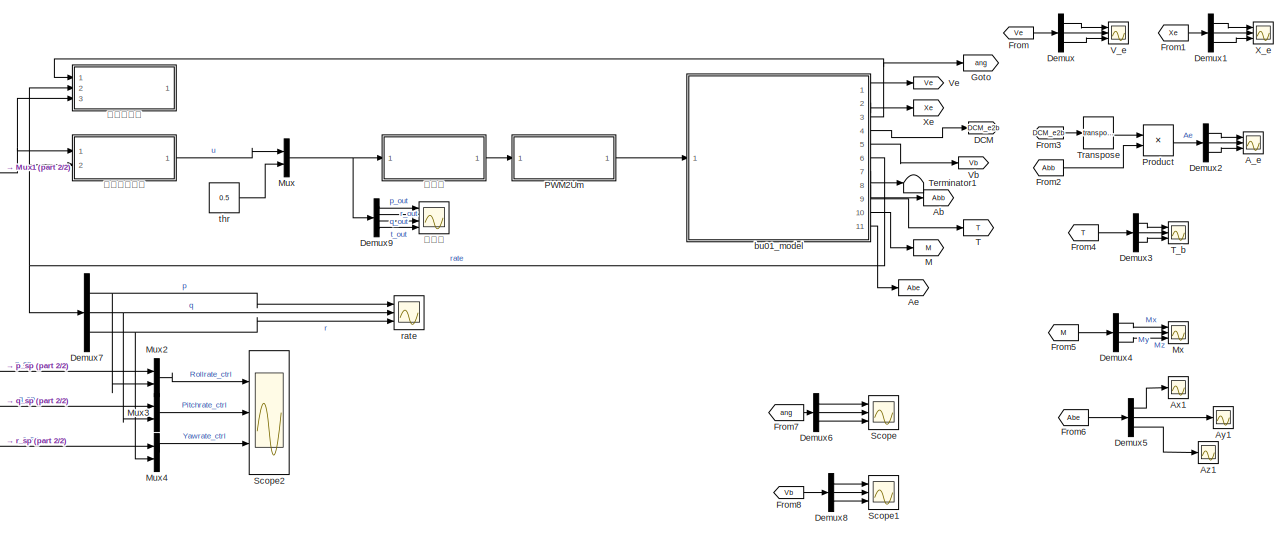
[diagram: root canvas - part 1/2, most of the canvas]
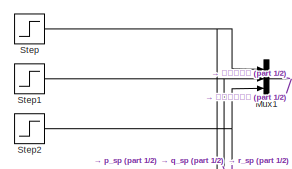
[diagram: root canvas - part 2/2, middle left region]
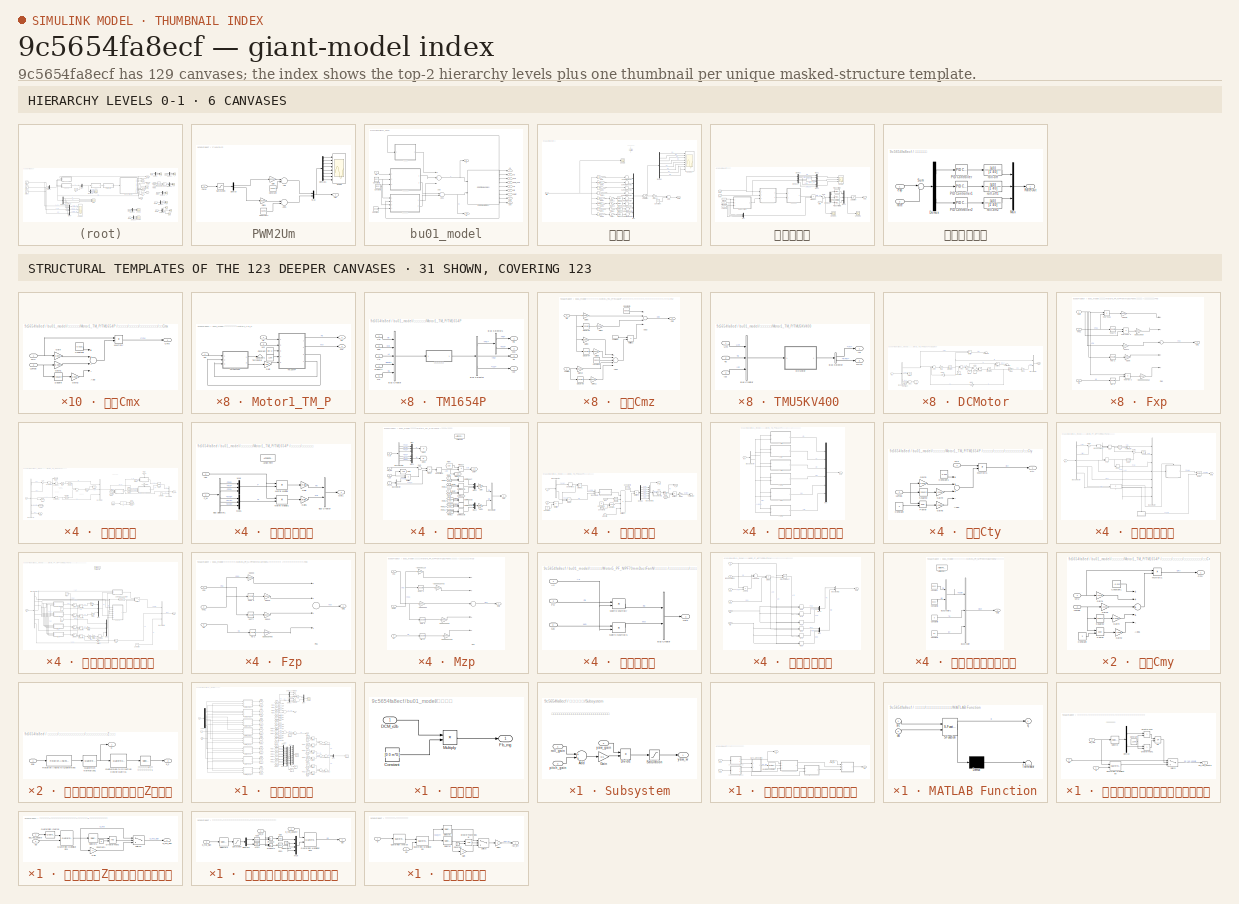
[diagram: thumbnail index - top-2 hierarchy levels (6 canvases) + 31 structural-template representatives of the remaining 123 canvases]
MODEL slx_9c5654fa8ecf
KIND model
CONFIG AbsTol = auto
CONFIG EnableMultiTasking = off
CONFIG FixedStep = 0.02
CONFIG MaxStep = auto
CONFIG MinStep = auto
CONFIG RelTol = 1e-3
CONFIG SampleTimeConstraint = Unconstrained
CONFIG Solver = FixedStepAuto
CONFIG SolverName = FixedStepAuto
CONFIG StartTime = 0.0
CONFIG StopTime = 10
WORKSPACE source: MAT-file member
WORKSPACE Ixx = 0.8
BLOCK [Scope] A_e
  Floating = off
  NumInputPorts = 3
  Ports = [3]
  ScopeSpecificationString = Simulink.scopes.TimeScopeBlockCfg('CurrentConfiguration', extmgr.ConfigurationSet(extmgr.Configuration('Core','General UI',true),extmgr.Configuration('Core','Source UI',true),extmgr.Configuration('Sources','WiredSimulink',true,'DataLoggingVariableName','ScopeData1'),extmgr.Configuration('Visuals','Time Domain',true,'SerializedDisplays',{struct('MinYLimReal','-30.05152','MaxYLimReal','6.60923','YLa...<+2733ch>
BLOCK [Goto] Ab
  GotoTag = Abb
BLOCK [Goto] Ae
  GotoTag = Abe
BLOCK [Scope] Ax1
  Floating = off
  NumInputPorts = 1
  Ports = [1]
  ScopeSpecificationString = Simulink.scopes.TimeScopeBlockCfg('CurrentConfiguration', extmgr.ConfigurationSet(extmgr.Configuration('Core','General UI',true),extmgr.Configuration('Core','Source UI',true),extmgr.Configuration('Sources','WiredSimulink',true,'DataLoggingVariableName','ScopeData15'),extmgr.Configuration('Visuals','Time Domain',true,'SerializedDisplays',{struct('MinYLimReal','-0.00675','MaxYLimReal','0.00075','YLa...<+1368ch>
BLOCK [Scope] Ay1
  Floating = off
  NumInputPorts = 1
  Ports = [1]
  ScopeSpecificationString = Simulink.scopes.TimeScopeBlockCfg('CurrentConfiguration', extmgr.ConfigurationSet(extmgr.Configuration('Core','General UI',true),extmgr.Configuration('Core','Source UI',true),extmgr.Configuration('Sources','WiredSimulink',true,'DataLoggingVariableName','ScopeData16'),extmgr.Configuration('Visuals','Time Domain',true,'SerializedDisplays',{struct('MinYLimReal','-0.00021','MaxYLimReal','0.00014','YLa...<+1368ch>
BLOCK [Scope] Az1
  Floating = off
  NumInputPorts = 1
  Ports = [1]
  ScopeSpecificationString = Simulink.scopes.TimeScopeBlockCfg('CurrentConfiguration', extmgr.ConfigurationSet(extmgr.Configuration('Core','General UI',true),extmgr.Configuration('Core','Source UI',true),extmgr.Configuration('Sources','WiredSimulink',true,'DataLoggingVariableName','ScopeData17'),extmgr.Configuration('Visuals','Time Domain',true,'SerializedDisplays',{struct('MinYLimReal','-0.27081','MaxYLimReal','-0.26842','YL...<+1398ch>
BLOCK [Goto] DCM
  GotoTag = DCM_e2b
BLOCK [Demux] Demux
  DisplayOption = bar
  Outputs = 3
  Ports = [1, 3]
BLOCK [Demux] Demux1
  DisplayOption = bar
  Outputs = 3
  Ports = [1, 3]
BLOCK [Demux] Demux2
  DisplayOption = bar
  Outputs = 3
  Ports = [1, 3]
BLOCK [Demux] Demux3
  DisplayOption = bar
  Outputs = 3
  Ports = [1, 3]
BLOCK [Demux] Demux4
  DisplayOption = bar
  Outputs = 3
  Ports = [1, 3]
BLOCK [Demux] Demux5
  DisplayOption = bar
  Outputs = 3
  Ports = [1, 3]
BLOCK [Demux] Demux6
  DisplayOption = bar
  Outputs = 3
  Ports = [1, 3]
BLOCK [Demux] Demux7
  DisplayOption = bar
  Outputs = 3
  Ports = [1, 3]
BLOCK [Demux] Demux8
  DisplayOption = bar
  Outputs = 3
  Ports = [1, 3]
BLOCK [Demux] Demux9
  DisplayOption = bar
  Ports = [1, 4]
BLOCK [From] From
  GotoTag = Ve
BLOCK [From] From1
  GotoTag = Xe
BLOCK [From] From2
  GotoTag = Abb
BLOCK [From] From3
  GotoTag = DCM_e2b
BLOCK [From] From4
  GotoTag = T
BLOCK [From] From5
  GotoTag = M
BLOCK [From] From6
  GotoTag = Abe
BLOCK [From] From7
  GotoTag = ang
BLOCK [From] From8
  GotoTag = Vb
BLOCK [Goto] Goto
  GotoTag = ang
BLOCK [Goto] M
  GotoTag = M
BLOCK [Mux] Mux
  DisplayOption = bar
  Inputs = 2
  Ports = [2, 1]
BLOCK [Mux] Mux1
  DisplayOption = bar
  Inputs = 3
  Ports = [3, 1]
BLOCK [Mux] Mux2
  DisplayOption = bar
  Inputs = 2
  Ports = [2, 1]
BLOCK [Mux] Mux3
  DisplayOption = bar
  Inputs = 2
  Ports = [2, 1]
BLOCK [Mux] Mux4
  DisplayOption = bar
  Inputs = 2
  Ports = [2, 1]
BLOCK [Scope] Mx
  Floating = off
  NumInputPorts = 3
  Ports = [3]
  ScopeSpecificationString = Simulink.scopes.TimeScopeBlockCfg('CurrentConfiguration', extmgr.ConfigurationSet(extmgr.Configuration('Core','General UI',true),extmgr.Configuration('Core','Source UI',true),extmgr.Configuration('Sources','WiredSimulink',true,'DataLoggingVariableName','ScopeData12'),extmgr.Configuration('Visuals','Time Domain',true,'SerializedDisplays',{struct('MinYLimReal','-0.18652','MaxYLimReal','0.41957','YLa...<+2772ch>
BLOCK [SubSystem] PWM2Um
  Ports = [1, 1]
  RequestExecContextInheritance = off
BLOCK [Sum] PWM2Um/Add
  InputSameDT = off
  Inputs = +-
  OutDataTypeStr = Inherit: Inherit via internal rule
  Ports = [2, 1]
  SaturateOnIntegerOverflow = off
BLOCK [Sum] PWM2Um/Add1
  InputSameDT = off
  Inputs = +-
  OutDataTypeStr = Inherit: Inherit via internal rule
  Ports = [2, 1]
  SaturateOnIntegerOverflow = off
BLOCK [Constant] PWM2Um/Constant
  Value = 36.092
BLOCK [Constant] PWM2Um/Constant1
  Value = 36.491
BLOCK [Demux] PWM2Um/Demux
  DisplayOption = bar
  Outputs = 2
  Ports = [1, 2]
BLOCK [Demux] PWM2Um/Demux1
  DisplayOption = bar
  Outputs = 8
  Ports = [1, 8]
BLOCK [Gain] PWM2Um/Gain
  Gain = 0.0333
  OutDataTypeStr = Inherit: Inherit via internal rule
  ParamDataTypeStr = Inherit: Inherit via internal rule
  SaturateOnIntegerOverflow = off
BLOCK [Gain] PWM2Um/Gain1
  Gain = 0.0355
  OutDataTypeStr = Inherit: Inherit via internal rule
  ParamDataTypeStr = Inherit: Inherit via internal rule
  SaturateOnIntegerOverflow = off
BLOCK [Mux] PWM2Um/Mux
  DisplayOption = bar
  Inputs = 2
  Ports = [2, 1]
BLOCK [Inport] PWM2Um/PWM
  IconDisplay = Port number
BLOCK [Saturate] PWM2Um/Saturation
  InputPortMap = u0
  LowerLimit = 1200
  Ports = [1, 1]
  UpperLimit = 1900
BLOCK [Scope] PWM2Um/Scope
  Floating = off
  NumInputPorts = 8
  Ports = [8]
  ScopeSpecificationString = Simulink.scopes.TimeScopeBlockCfg('CurrentConfiguration', extmgr.ConfigurationSet(extmgr.Configuration('Core','General UI',true),extmgr.Configuration('Core','Source UI',true),extmgr.Configuration('Sources','WiredSimulink',true,'DataLoggingVariableName','ScopeData2'),extmgr.Configuration('Visuals','Time Domain',true,'SerializedDisplays',{struct('MinYLimReal','13.83477','MaxYLimReal','24.04917','YLa...<+6323ch>
BLOCK [Outport] PWM2Um/Um
  IconDisplay = Port number
BLOCK [Product] Product
  InputSameDT = off
  Multiplication = Matrix(*)
  OutDataTypeStr = Inherit: Inherit via internal rule
  Ports = [2, 1]
  RndMeth = Floor
  SaturateOnIntegerOverflow = off
BLOCK [Scope] Scope
  Floating = off
  NumInputPorts = 3
  Ports = [3]
  ScopeSpecificationString = Simulink.scopes.TimeScopeBlockCfg('CurrentConfiguration', extmgr.ConfigurationSet(extmgr.Configuration('Core','General UI',true),extmgr.Configuration('Core','Source UI',true),extmgr.Configuration('Sources','WiredSimulink',true,'DataLoggingVariableName','ScopeData1'),extmgr.Configuration('Visuals','Time Domain',true,'SerializedDisplays',{struct('MinYLimReal','-3.91592','MaxYLimReal','3.90545','YLab...<+2719ch>
BLOCK [Scope] Scope1
  Floating = off
  NumInputPorts = 3
  Ports = [3]
  ScopeSpecificationString = Simulink.scopes.TimeScopeBlockCfg('CurrentConfiguration', extmgr.ConfigurationSet(extmgr.Configuration('Core','General UI',true),extmgr.Configuration('Core','Source UI',true),extmgr.Configuration('Sources','WiredSimulink',true,'DataLoggingVariableName','ScopeData1'),extmgr.Configuration('Visuals','Time Domain',true,'SerializedDisplays',{struct('MinYLimReal','-20.6611','MaxYLimReal','22.34725','YLa...<+2778ch>
BLOCK [Scope] Scope2
  Floating = off
  NumInputPorts = 3
  Ports = [3]
  ScopeSpecificationString = Simulink.scopes.TimeScopeBlockCfg('CurrentConfiguration', extmgr.ConfigurationSet(extmgr.Configuration('Core','General UI',true),extmgr.Configuration('Core','Source UI',true),extmgr.Configuration('Sources','WiredSimulink',true,'DataLoggingVariableName','ScopeData3'),extmgr.Configuration('Visuals','Time Domain',true,'SerializedDisplays',{struct('MinYLimReal','-0.14462','MaxYLimReal','1.2887','YLabe...<+3170ch>
BLOCK [Step] Step
  SampleTime = 0
BLOCK [Step] Step1
  SampleTime = 0
BLOCK [Step] Step2
  SampleTime = 0
BLOCK [Goto] T
  GotoTag = T
BLOCK [Scope] T_b
  Floating = off
  NumInputPorts = 3
  Ports = [3]
  ScopeSpecificationString = Simulink.scopes.TimeScopeBlockCfg('CurrentConfiguration', extmgr.ConfigurationSet(extmgr.Configuration('Core','General UI',true),extmgr.Configuration('Core','Source UI',true),extmgr.Configuration('Sources','WiredSimulink',true,'DataLoggingVariableName','ScopeData9'),extmgr.Configuration('Visuals','Time Domain',true,'SerializedDisplays',{struct('MinYLimReal','-11.82298','MaxYLimReal','98.62459','YL...<+2732ch>
BLOCK [Terminator] Terminator1
BLOCK [Math] Transpose
  Operator = transpose
  Ports = [1, 1]
BLOCK [Scope] V_e
  Floating = off
  NumInputPorts = 3
  Ports = [3]
  ScopeSpecificationString = Simulink.scopes.TimeScopeBlockCfg('CurrentConfiguration', extmgr.ConfigurationSet(extmgr.Configuration('Core','General UI',true),extmgr.Configuration('Core','Source UI',true),extmgr.Configuration('Sources','WiredSimulink',true),extmgr.Configuration('Visuals','Time Domain',true),extmgr.Configuration('Tools','Plot Navigation',true),extmgr.Configuration('Tools','Measurements',true)),'Version','2018b'...<+1ch>
BLOCK [Goto] Vb
  GotoTag = Vb
BLOCK [Goto] Ve
  GotoTag = Ve
BLOCK [Scope] X_e
  Floating = off
  NumInputPorts = 3
  Ports = [3]
  ScopeSpecificationString = Simulink.scopes.TimeScopeBlockCfg('CurrentConfiguration', extmgr.ConfigurationSet(extmgr.Configuration('Core','General UI',true),extmgr.Configuration('Core','Source UI',true),extmgr.Configuration('Sources','WiredSimulink',true,'DataLoggingVariableName','ScopeData5'),extmgr.Configuration('Visuals','Time Domain',true),extmgr.Configuration('Tools','Plot Navigation',true),extmgr.Configuration('Tools',...<+40ch>
BLOCK [Goto] Xe
  GotoTag = Xe
BLOCK [SubSystem] bu01_model
  Ports = [1, 11]
  RequestExecContextInheritance = off
BLOCK [Reference] bu01_model/6DOF (Quaternion)  REF=shared6dof/6DOF (Euler Angles)
  Ports = [2, 9]
  SourceBlock = shared6dof/6DOF (Euler Angles)
  SourceProductBaseCode = AE
  SourceProductName = Aerospace Blockset
  SourceType = 6DOF EoM (Body Axis)
BLOCK [Outport] bu01_model/Abb
  IconDisplay = Port number
  Port = 8
BLOCK [Outport] bu01_model/Abe
  IconDisplay = Port number
  Port = 11
BLOCK [Sum] bu01_model/Add
  InputSameDT = off
  Inputs = 3
  OutDataTypeStr = Inherit: Inherit via internal rule
  Ports = [3, 1]
  SaturateOnIntegerOverflow = off
BLOCK [Sum] bu01_model/Add1
  InputSameDT = off
  OutDataTypeStr = Inherit: Inherit via internal rule
  Ports = [2, 1]
  SaturateOnIntegerOverflow = off
BLOCK [Constant] bu01_model/Constant
  Value = Density
BLOCK [Constant] bu01_model/Constant1
  Value = [0 0 0]
BLOCK [Constant] bu01_model/Constant2
  Value = [0 0 0]
BLOCK [Outport] bu01_model/DCM_e2b
  IconDisplay = Port number
  Port = 4
BLOCK [Outport] bu01_model/M
  IconDisplay = Port number
  Port = 10
BLOCK [Outport] bu01_model/T
  IconDisplay = Port number
  Port = 9
BLOCK [Inport] bu01_model/Um
  IconDisplay = Port number
BLOCK [Outport] bu01_model/Vb
  IconDisplay = Port number
  Port = 5
BLOCK [Outport] bu01_model/Ve
  IconDisplay = Port number
BLOCK [Outport] bu01_model/Wb
  IconDisplay = Port number
  Port = 6
BLOCK [Outport] bu01_model/Xe
  IconDisplay = Port number
  Port = 2
BLOCK [Outport] bu01_model/ang
  IconDisplay = Port number
  Port = 3
BLOCK [Outport] bu01_model/dw//dt
  IconDisplay = Port number
  Port = 7
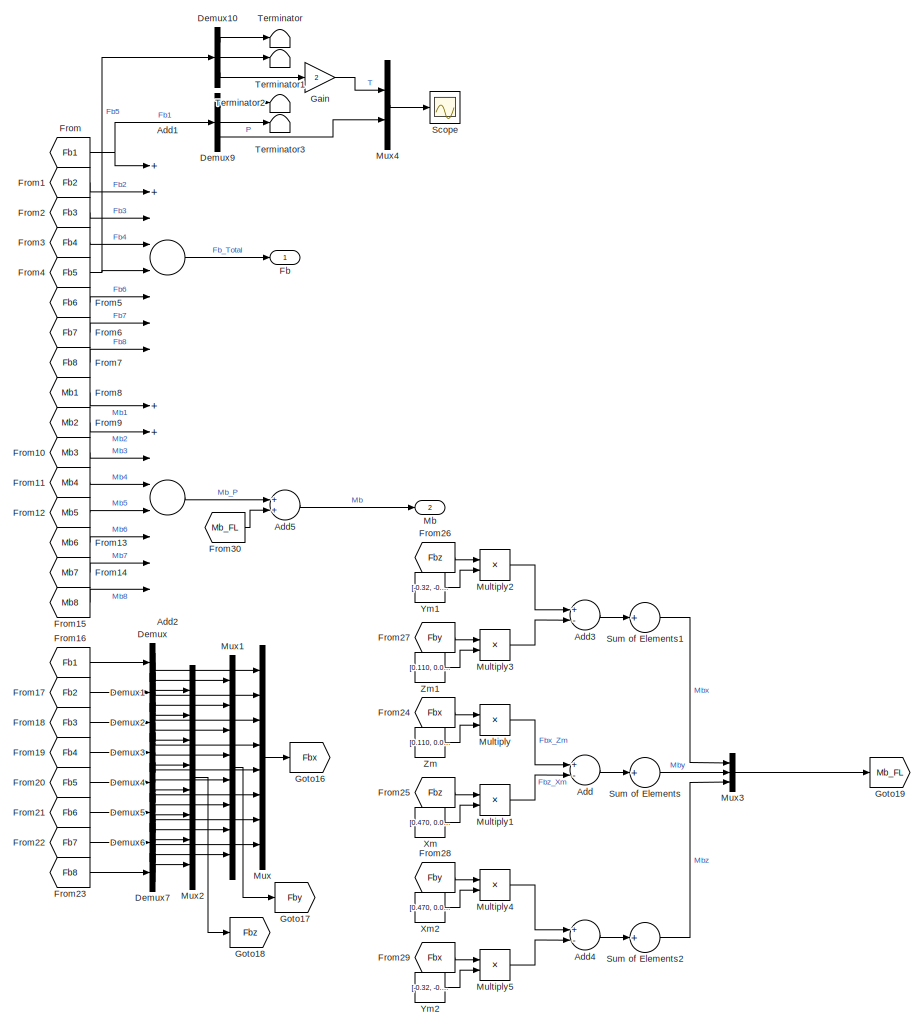
[diagram: bu01_model/动力系统模型 - part 1/2, right side, full height]
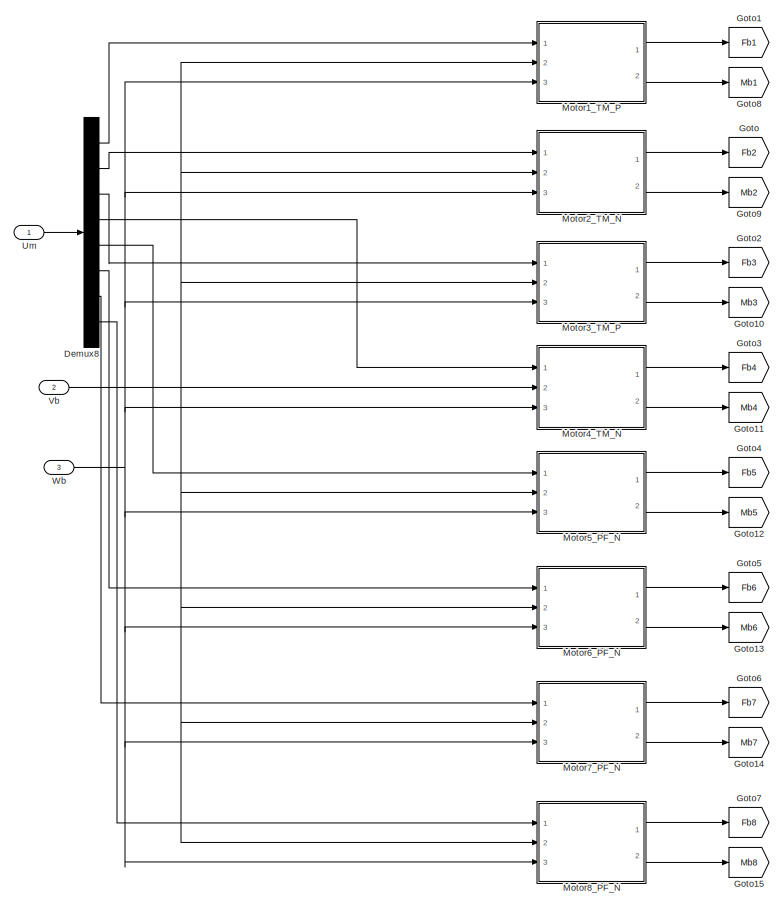
[diagram: bu01_model/动力系统模型 - part 2/2, left side, full height]
BLOCK [SubSystem] bu01_model/动力系统模型
  Ports = [3, 2]
  RequestExecContextInheritance = off
BLOCK [Sum] bu01_model/动力系统模型/Add
  InputSameDT = off
  Inputs = +-
  OutDataTypeStr = Inherit: Inherit via internal rule
  Ports = [2, 1]
  SaturateOnIntegerOverflow = off
BLOCK [Sum] bu01_model/动力系统模型/Add1
  InputSameDT = off
  Inputs = 8
  OutDataTypeStr = Inherit: Inherit via internal rule
  Ports = [8, 1]
  SaturateOnIntegerOverflow = off
BLOCK [Sum] bu01_model/动力系统模型/Add2
  InputSameDT = off
  Inputs = 8
  OutDataTypeStr = Inherit: Inherit via internal rule
  Ports = [8, 1]
  SaturateOnIntegerOverflow = off
BLOCK [Sum] bu01_model/动力系统模型/Add3
  InputSameDT = off
  Inputs = +-
  OutDataTypeStr = Inherit: Inherit via internal rule
  Ports = [2, 1]
  SaturateOnIntegerOverflow = off
BLOCK [Sum] bu01_model/动力系统模型/Add4
  InputSameDT = off
  Inputs = +-
  OutDataTypeStr = Inherit: Inherit via internal rule
  Ports = [2, 1]
  SaturateOnIntegerOverflow = off
BLOCK [Sum] bu01_model/动力系统模型/Add5
  InputSameDT = off
  OutDataTypeStr = Inherit: Inherit via internal rule
  Ports = [2, 1]
  SaturateOnIntegerOverflow = off
BLOCK [Demux] bu01_model/动力系统模型/Demux
  DisplayOption = bar
  Outputs = 3
  Ports = [1, 3]
BLOCK [Demux] bu01_model/动力系统模型/Demux1
  DisplayOption = bar
  Outputs = 3
  Ports = [1, 3]
BLOCK [Demux] bu01_model/动力系统模型/Demux10
  DisplayOption = bar
  Outputs = 3
  Ports = [1, 3]
BLOCK [Demux] bu01_model/动力系统模型/Demux2
  DisplayOption = bar
  Outputs = 3
  Ports = [1, 3]
BLOCK [Demux] bu01_model/动力系统模型/Demux3
  DisplayOption = bar
  Outputs = 3
  Ports = [1, 3]
BLOCK [Demux] bu01_model/动力系统模型/Demux4
  DisplayOption = bar
  Outputs = 3
  Ports = [1, 3]
BLOCK [Demux] bu01_model/动力系统模型/Demux5
  DisplayOption = bar
  Outputs = 3
  Ports = [1, 3]
BLOCK [Demux] bu01_model/动力系统模型/Demux6
  DisplayOption = bar
  Outputs = 3
  Ports = [1, 3]
BLOCK [Demux] bu01_model/动力系统模型/Demux7
  DisplayOption = bar
  Outputs = 3
  Ports = [1, 3]
BLOCK [Demux] bu01_model/动力系统模型/Demux8
  DisplayOption = bar
  Outputs = 8
  Ports = [1, 8]
BLOCK [Demux] bu01_model/动力系统模型/Demux9
  DisplayOption = bar
  Outputs = 3
  Ports = [1, 3]
BLOCK [Outport] bu01_model/动力系统模型/Fb
  IconDisplay = Port number
BLOCK [From] bu01_model/动力系统模型/From
  GotoTag = Fb1
BLOCK [From] bu01_model/动力系统模型/From1
  GotoTag = Fb2
BLOCK [From] bu01_model/动力系统模型/From10
  GotoTag = Mb3
BLOCK [From] bu01_model/动力系统模型/From11
  GotoTag = Mb4
BLOCK [From] bu01_model/动力系统模型/From12
  GotoTag = Mb5
BLOCK [From] bu01_model/动力系统模型/From13
  GotoTag = Mb6
BLOCK [From] bu01_model/动力系统模型/From14
  GotoTag = Mb7
BLOCK [From] bu01_model/动力系统模型/From15
  GotoTag = Mb8
BLOCK [From] bu01_model/动力系统模型/From16
  GotoTag = Fb1
BLOCK [From] bu01_model/动力系统模型/From17
  GotoTag = Fb2
BLOCK [From] bu01_model/动力系统模型/From18
  GotoTag = Fb3
BLOCK [From] bu01_model/动力系统模型/From19
  GotoTag = Fb4
BLOCK [From] bu01_model/动力系统模型/From2
  GotoTag = Fb3
BLOCK [From] bu01_model/动力系统模型/From20
  GotoTag = Fb5
BLOCK [From] bu01_model/动力系统模型/From21
  GotoTag = Fb6
BLOCK [From] bu01_model/动力系统模型/From22
  GotoTag = Fb7
BLOCK [From] bu01_model/动力系统模型/From23
  GotoTag = Fb8
BLOCK [From] bu01_model/动力系统模型/From24
  GotoTag = Fbx
BLOCK [From] bu01_model/动力系统模型/From25
  GotoTag = Fbz
BLOCK [From] bu01_model/动力系统模型/From26
  GotoTag = Fbz
BLOCK [From] bu01_model/动力系统模型/From27
  GotoTag = Fby
BLOCK [From] bu01_model/动力系统模型/From28
  GotoTag = Fby
BLOCK [From] bu01_model/动力系统模型/From29
  GotoTag = Fbx
BLOCK [From] bu01_model/动力系统模型/From3
  GotoTag = Fb4
BLOCK [From] bu01_model/动力系统模型/From30
  GotoTag = Mb_FL
BLOCK [From] bu01_model/动力系统模型/From4
  GotoTag = Fb5
BLOCK [From] bu01_model/动力系统模型/From5
  GotoTag = Fb6
BLOCK [From] bu01_model/动力系统模型/From6
  GotoTag = Fb7
BLOCK [From] bu01_model/动力系统模型/From7
  GotoTag = Fb8
BLOCK [From] bu01_model/动力系统模型/From8
  GotoTag = Mb1
BLOCK [From] bu01_model/动力系统模型/From9
  GotoTag = Mb2
BLOCK [Gain] bu01_model/动力系统模型/Gain
  Gain = 2
  OutDataTypeStr = Inherit: Inherit via internal rule
  ParamDataTypeStr = Inherit: Inherit via internal rule
  SaturateOnIntegerOverflow = off
BLOCK [Goto] bu01_model/动力系统模型/Goto
  GotoTag = Fb2
BLOCK [Goto] bu01_model/动力系统模型/Goto1
  GotoTag = Fb1
BLOCK [Goto] bu01_model/动力系统模型/Goto10
  GotoTag = Mb3
BLOCK [Goto] bu01_model/动力系统模型/Goto11
  GotoTag = Mb4
BLOCK [Goto] bu01_model/动力系统模型/Goto12
  GotoTag = Mb5
BLOCK [Goto] bu01_model/动力系统模型/Goto13
  GotoTag = Mb6
BLOCK [Goto] bu01_model/动力系统模型/Goto14
  GotoTag = Mb7
BLOCK [Goto] bu01_model/动力系统模型/Goto15
  GotoTag = Mb8
BLOCK [Goto] bu01_model/动力系统模型/Goto16
  GotoTag = Fbx
BLOCK [Goto] bu01_model/动力系统模型/Goto17
  GotoTag = Fby
BLOCK [Goto] bu01_model/动力系统模型/Goto18
  GotoTag = Fbz
BLOCK [Goto] bu01_model/动力系统模型/Goto19
  GotoTag = Mb_FL
BLOCK [Goto] bu01_model/动力系统模型/Goto2
  GotoTag = Fb3
BLOCK [Goto] bu01_model/动力系统模型/Goto3
  GotoTag = Fb4
BLOCK [Goto] bu01_model/动力系统模型/Goto4
  GotoTag = Fb5
BLOCK [Goto] bu01_model/动力系统模型/Goto5
  GotoTag = Fb6
BLOCK [Goto] bu01_model/动力系统模型/Goto6
  GotoTag = Fb7
BLOCK [Goto] bu01_model/动力系统模型/Goto7
  GotoTag = Fb8
BLOCK [Goto] bu01_model/动力系统模型/Goto8
  GotoTag = Mb1
BLOCK [Goto] bu01_model/动力系统模型/Goto9
  GotoTag = Mb2
BLOCK [Outport] bu01_model/动力系统模型/Mb
  IconDisplay = Port number
  Port = 2
BLOCK [SubSystem] bu01_model/动力系统模型/Motor1_TM_P
  Ports = [3, 2]
  RequestExecContextInheritance = off
BLOCK [Constant] bu01_model/动力系统模型/Motor1_TM_P/Constant
  Value = [0 0 -1]
BLOCK [Constant] bu01_model/动力系统模型/Motor1_TM_P/Constant1
  Value = 1.185
BLOCK [Outport] bu01_model/动力系统模型/Motor1_TM_P/Fb
  IconDisplay = Port number
BLOCK [Gain] bu01_model/动力系统模型/Motor1_TM_P/Gain
  Gain = 1/60
  OutDataTypeStr = Inherit: Inherit via internal rule
  ParamDataTypeStr = Inherit: Inherit via internal rule
  SaturateOnIntegerOverflow = off
BLOCK [Outport] bu01_model/动力系统模型/Motor1_TM_P/Mb
  IconDisplay = Port number
  Port = 2
BLOCK [SubSystem] bu01_model/动力系统模型/Motor1_TM_P/TM1654P 
  Ports = [5, 4]
  RequestExecContextInheritance = off
BLOCK [Inport] bu01_model/动力系统模型/Motor1_TM_P/TM1654P /Ax
  IconDisplay = Port number
  Port = 3
  PortDimensions = 3
BLOCK [BusCreator] bu01_model/动力系统模型/Motor1_TM_P/TM1654P /Bus Creator
  DisplayOption = bar
  InheritFromInputs = on
  Inputs = 5
  Ports = [5, 1]
BLOCK [BusSelector] bu01_model/动力系统模型/Motor1_TM_P/TM1654P /Bus Selector
  OutputAsBus = off
  OutputSignals = FM,Tq,Izz
  Ports = [1, 3]
BLOCK [BusSelector] bu01_model/动力系统模型/Motor1_TM_P/TM1654P /Bus Selector1
  OutputAsBus = off
  OutputSignals = Fb,Mb
  Ports = [1, 2]
BLOCK [Inport] bu01_model/动力系统模型/Motor1_TM_P/TM1654P /Density
  IconDisplay = Port number
  Port = 4
  PortDimensions = 1
BLOCK [Outport] bu01_model/动力系统模型/Motor1_TM_P/TM1654P /Fb
  IconDisplay = Port number
BLOCK [Outport] bu01_model/动力系统模型/Motor1_TM_P/TM1654P /Izz
  IconDisplay = Port number
  Port = 4
BLOCK [Outport] bu01_model/动力系统模型/Motor1_TM_P/TM1654P /Mb
  IconDisplay = Port number
  Port = 2
BLOCK [Inport] bu01_model/动力系统模型/Motor1_TM_P/TM1654P /Ns
  IconDisplay = Port number
  Port = 5
  PortDimensions = 1
BLOCK [Outport] bu01_model/动力系统模型/Motor1_TM_P/TM1654P /Tq
  IconDisplay = Port number
  Port = 3
BLOCK [Inport] bu01_model/动力系统模型/Motor1_TM_P/TM1654P /Vb
  IconDisplay = Port number
  PortDimensions = 3
BLOCK [Inport] bu01_model/动力系统模型/Motor1_TM_P/TM1654P /Wb
  IconDisplay = Port number
  Port = 2
  PortDimensions = 3
BLOCK [SubSystem] bu01_model/动力系统模型/Motor1_TM_P/TM1654P /螺旋桨模型
  Ports = [1, 1]
  RequestExecContextInheritance = off
BLOCK [Sum] bu01_model/动力系统模型/Motor1_TM_P/TM1654P /螺旋桨模型/Add
  InputSameDT = off
  Inputs = +-
  OutDataTypeStr = Inherit: Inherit via internal rule
  Ports = [2, 1]
  SaturateOnIntegerOverflow = off
BLOCK [BusCreator] bu01_model/动力系统模型/Motor1_TM_P/TM1654P /螺旋桨模型/Bus Creator
  DisplayOption = bar
  InheritFromInputs = on
  Inputs = 3
  Ports = [3, 1]
BLOCK [BusCreator] bu01_model/动力系统模型/Motor1_TM_P/TM1654P /螺旋桨模型/Bus Creator1
  DisplayOption = bar
  InheritFromInputs = on
  Inputs = 3
  Ports = [3, 1]
BLOCK [BusSelector] bu01_model/动力系统模型/Motor1_TM_P/TM1654P /螺旋桨模型/Bus Selector
  OutputAsBus = off
  OutputSignals = Vb,Wb,Ax,Density,Ns
  Ports = [1, 5]
BLOCK [Constant] bu01_model/动力系统模型/Motor1_TM_P/TM1654P /螺旋桨模型/Constant
  OutDataTypeStr = double
  Value = Izz
BLOCK [DotProduct] bu01_model/动力系统模型/Motor1_TM_P/TM1654P /螺旋桨模型/Dot Product
  OutDataTypeStr = Inherit: Inherit via internal rule
BLOCK [DotProduct] bu01_model/动力系统模型/Motor1_TM_P/TM1654P /螺旋桨模型/Dot Product1
  OutDataTypeStr = Inherit: Inherit via internal rule
BLOCK [From] bu01_model/动力系统模型/Motor1_TM_P/TM1654P /螺旋桨模型/From
  GotoTag = Ns
BLOCK [From] bu01_model/动力系统模型/Motor1_TM_P/TM1654P /螺旋桨模型/From1
  GotoTag = Vel_ba
BLOCK [From] bu01_model/动力系统模型/Motor1_TM_P/TM1654P /螺旋桨模型/From2
  GotoTag = Azb
BLOCK [From] bu01_model/动力系统模型/Motor1_TM_P/TM1654P /螺旋桨模型/From3
  GotoTag = density
BLOCK [From] bu01_model/动力系统模型/Motor1_TM_P/TM1654P /螺旋桨模型/From4
  GotoTag = Azb
BLOCK [From] bu01_model/动力系统模型/Motor1_TM_P/TM1654P /螺旋桨模型/From5
  GotoTag = Vha
BLOCK [From] bu01_model/动力系统模型/Motor1_TM_P/TM1654P /螺旋桨模型/From6
  GotoTag = Vha_Zero
BLOCK [From] bu01_model/动力系统模型/Motor1_TM_P/TM1654P /螺旋桨模型/From7
  GotoTag = Vha_NoZero
BLOCK [Goto] bu01_model/动力系统模型/Motor1_TM_P/TM1654P /螺旋桨模型/Goto
  GotoTag = Ns
BLOCK [Goto] bu01_model/动力系统模型/Motor1_TM_P/TM1654P /螺旋桨模型/Goto1
  GotoTag = density
BLOCK [Goto] bu01_model/动力系统模型/Motor1_TM_P/TM1654P /螺旋桨模型/Goto2
  GotoTag = Vel_ba
BLOCK [Goto] bu01_model/动力系统模型/Motor1_TM_P/TM1654P /螺旋桨模型/Goto3
  GotoTag = Azb
BLOCK [Goto] bu01_model/动力系统模型/Motor1_TM_P/TM1654P /螺旋桨模型/Goto4
  GotoTag = Vha
BLOCK [Goto] bu01_model/动力系统模型/Motor1_TM_P/TM1654P /螺旋桨模型/Goto5
  GotoTag = Vha_Zero
BLOCK [Goto] bu01_model/动力系统模型/Motor1_TM_P/TM1654P /螺旋桨模型/Goto6
  GotoTag = Vha_NoZero
BLOCK [If] bu01_model/动力系统模型/Motor1_TM_P/TM1654P /螺旋桨模型/If
  IfExpression = u1 < 0.001
  Ports = [1, 2]
BLOCK [Inport] bu01_model/动力系统模型/Motor1_TM_P/TM1654P /螺旋桨模型/In1
  IconDisplay = Port number
BLOCK [Merge] bu01_model/动力系统模型/Motor1_TM_P/TM1654P /螺旋桨模型/Merge
  Ports = [2, 1]
BLOCK [Sqrt] bu01_model/动力系统模型/Motor1_TM_P/TM1654P /螺旋桨模型/Sqrt
BLOCK [Sqrt] bu01_model/动力系统模型/Motor1_TM_P/TM1654P /螺旋桨模型/Sqrt1
BLOCK [Math] bu01_model/动力系统模型/Motor1_TM_P/TM1654P /螺旋桨模型/Square
  Operator = square
  Ports = [1, 1]
BLOCK [Math] bu01_model/动力系统模型/Motor1_TM_P/TM1654P /螺旋桨模型/Square1
  Operator = square
  Ports = [1, 1]
BLOCK [Sum] bu01_model/动力系统模型/Motor1_TM_P/TM1654P /螺旋桨模型/Sum
  IconShape = round
  InputSameDT = off
  Inputs = |+-
  OutDataTypeStr = Inherit: Inherit via internal rule
  Ports = [2, 1]
  SaturateOnIntegerOverflow = off
BLOCK [Outport] bu01_model/动力系统模型/Motor1_TM_P/TM1654P /螺旋桨模型/TM_OUT
  IconDisplay = Port number
BLOCK [UnaryMinus] bu01_model/动力系统模型/Motor1_TM_P/TM1654P /螺旋桨模型/Unary Minus
BLOCK [SubSystem] bu01_model/动力系统模型/Motor1_TM_P/TM1654P /螺旋桨模型/不做坐标转换
  Ports = [2, 1, 0, 0, 0, 0, 0, 1]
  RequestExecContextInheritance = off
BLOCK [ActionPort] bu01_model/动力系统模型/Motor1_TM_P/TM1654P /螺旋桨模型/不做坐标转换/Action Port
  ActionType = then
BLOCK [Inport] bu01_model/动力系统模型/Motor1_TM_P/TM1654P /螺旋桨模型/不做坐标转换/Azb
  IconDisplay = Port number
  Port = 2
BLOCK [BusCreator] bu01_model/动力系统模型/Motor1_TM_P/TM1654P /螺旋桨模型/不做坐标转换/Bus Creator
  DisplayOption = bar
  InheritFromInputs = on
  Inputs = 2
  Ports = [2, 1]
BLOCK [BusSelector] bu01_model/动力系统模型/Motor1_TM_P/TM1654P /螺旋桨模型/不做坐标转换/Bus Selector1
  OutputAsBus = off
  OutputSignals = Fxp,Fyp,Fzp,Mxp,Myp,Mzp
  Ports = [1, 6]
BLOCK [Inport] bu01_model/动力系统模型/Motor1_TM_P/TM1654P /螺旋桨模型/不做坐标转换/F_M
  IconDisplay = Port number
BLOCK [Gain] bu01_model/动力系统模型/Motor1_TM_P/TM1654P /螺旋桨模型/不做坐标转换/Gain
  Gain = Fratio
  OutDataTypeStr = Inherit: Inherit via internal rule
  ParamDataTypeStr = Inherit: Inherit via internal rule
  SaturateOnIntegerOverflow = off
BLOCK [Gain] bu01_model/动力系统模型/Motor1_TM_P/TM1654P /螺旋桨模型/不做坐标转换/Gain1
  Gain = Mratio
  OutDataTypeStr = Inherit: Inherit via internal rule
  ParamDataTypeStr = Inherit: Inherit via internal rule
  SaturateOnIntegerOverflow = off
BLOCK [Product] bu01_model/动力系统模型/Motor1_TM_P/TM1654P /螺旋桨模型/不做坐标转换/Matrix Multiply
  InputSameDT = off
  OutDataTypeStr = Inherit: Inherit via internal rule
  Ports = [2, 1]
  RndMeth = Floor
  SaturateOnIntegerOverflow = off
BLOCK [Product] bu01_model/动力系统模型/Motor1_TM_P/TM1654P /螺旋桨模型/不做坐标转换/Matrix Multiply1
  InputSameDT = off
  OutDataTypeStr = Inherit: Inherit via internal rule
  Ports = [2, 1]
  RndMeth = Floor
  SaturateOnIntegerOverflow = off
BLOCK [Mux] bu01_model/动力系统模型/Motor1_TM_P/TM1654P /螺旋桨模型/不做坐标转换/Mux
  DisplayOption = bar
  Inputs = 3
  Ports = [3, 1]
BLOCK [Mux] bu01_model/动力系统模型/Motor1_TM_P/TM1654P /螺旋桨模型/不做坐标转换/Mux1
  DisplayOption = bar
  Inputs = 3
  Ports = [3, 1]
BLOCK [Outport] bu01_model/动力系统模型/Motor1_TM_P/TM1654P /螺旋桨模型/不做坐标转换/Out1
  IconDisplay = Port number
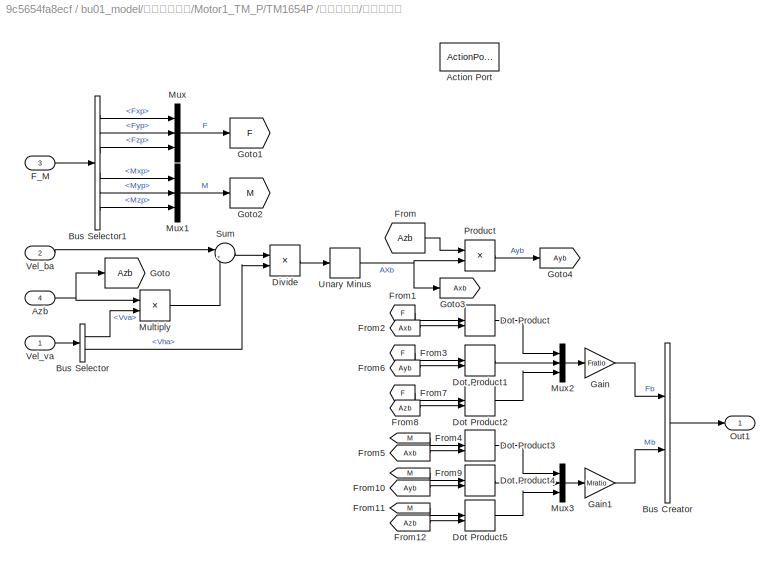
BLOCK [SubSystem] bu01_model/动力系统模型/Motor1_TM_P/TM1654P /螺旋桨模型/坐标系转换
  Ports = [4, 1, 0, 0, 0, 0, 0, 1]
  RequestExecContextInheritance = off
BLOCK [ActionPort] bu01_model/动力系统模型/Motor1_TM_P/TM1654P /螺旋桨模型/坐标系转换/Action Port
  ActionType = else
BLOCK [Inport] bu01_model/动力系统模型/Motor1_TM_P/TM1654P /螺旋桨模型/坐标系转换/Azb
  IconDisplay = Port number
  Port = 4
BLOCK [BusCreator] bu01_model/动力系统模型/Motor1_TM_P/TM1654P /螺旋桨模型/坐标系转换/Bus Creator
  DisplayOption = bar
  InheritFromInputs = on
  Inputs = 2
  Ports = [2, 1]
BLOCK [BusSelector] bu01_model/动力系统模型/Motor1_TM_P/TM1654P /螺旋桨模型/坐标系转换/Bus Selector
  OutputAsBus = off
  OutputSignals = Vva,Vha
  Ports = [1, 2]
BLOCK [BusSelector] bu01_model/动力系统模型/Motor1_TM_P/TM1654P /螺旋桨模型/坐标系转换/Bus Selector1
  OutputAsBus = off
  OutputSignals = Fxp,Fyp,Fzp,Mxp,Myp,Mzp
  Ports = [1, 6]
BLOCK [Product] bu01_model/动力系统模型/Motor1_TM_P/TM1654P /螺旋桨模型/坐标系转换/Divide
  InputSameDT = off
  Inputs = */
  OutDataTypeStr = Inherit: Inherit via internal rule
  Ports = [2, 1]
  RndMeth = Floor
  SaturateOnIntegerOverflow = off
BLOCK [DotProduct] bu01_model/动力系统模型/Motor1_TM_P/TM1654P /螺旋桨模型/坐标系转换/Dot Product
  OutDataTypeStr = Inherit: Inherit via internal rule
BLOCK [DotProduct] bu01_model/动力系统模型/Motor1_TM_P/TM1654P /螺旋桨模型/坐标系转换/Dot Product1
  OutDataTypeStr = Inherit: Inherit via internal rule
BLOCK [DotProduct] bu01_model/动力系统模型/Motor1_TM_P/TM1654P /螺旋桨模型/坐标系转换/Dot Product2
  OutDataTypeStr = Inherit: Inherit via internal rule
BLOCK [DotProduct] bu01_model/动力系统模型/Motor1_TM_P/TM1654P /螺旋桨模型/坐标系转换/Dot Product3
  OutDataTypeStr = Inherit: Inherit via internal rule
BLOCK [DotProduct] bu01_model/动力系统模型/Motor1_TM_P/TM1654P /螺旋桨模型/坐标系转换/Dot Product4
  OutDataTypeStr = Inherit: Inherit via internal rule
BLOCK [DotProduct] bu01_model/动力系统模型/Motor1_TM_P/TM1654P /螺旋桨模型/坐标系转换/Dot Product5
  OutDataTypeStr = Inherit: Inherit via internal rule
BLOCK [Inport] bu01_model/动力系统模型/Motor1_TM_P/TM1654P /螺旋桨模型/坐标系转换/F_M
  IconDisplay = Port number
  Port = 3
BLOCK [From] bu01_model/动力系统模型/Motor1_TM_P/TM1654P /螺旋桨模型/坐标系转换/From
  GotoTag = Azb
BLOCK [From] bu01_model/动力系统模型/Motor1_TM_P/TM1654P /螺旋桨模型/坐标系转换/From1
  GotoTag = F
BLOCK [From] bu01_model/动力系统模型/Motor1_TM_P/TM1654P /螺旋桨模型/坐标系转换/From10
  GotoTag = Ayb
BLOCK [From] bu01_model/动力系统模型/Motor1_TM_P/TM1654P /螺旋桨模型/坐标系转换/From11
  GotoTag = M
BLOCK [From] bu01_model/动力系统模型/Motor1_TM_P/TM1654P /螺旋桨模型/坐标系转换/From12
  GotoTag = Azb
BLOCK [From] bu01_model/动力系统模型/Motor1_TM_P/TM1654P /螺旋桨模型/坐标系转换/From2
  GotoTag = Axb
BLOCK [From] bu01_model/动力系统模型/Motor1_TM_P/TM1654P /螺旋桨模型/坐标系转换/From3
  GotoTag = F
BLOCK [From] bu01_model/动力系统模型/Motor1_TM_P/TM1654P /螺旋桨模型/坐标系转换/From4
  GotoTag = M
BLOCK [From] bu01_model/动力系统模型/Motor1_TM_P/TM1654P /螺旋桨模型/坐标系转换/From5
  GotoTag = Axb
BLOCK [From] bu01_model/动力系统模型/Motor1_TM_P/TM1654P /螺旋桨模型/坐标系转换/From6
  GotoTag = Ayb
BLOCK [From] bu01_model/动力系统模型/Motor1_TM_P/TM1654P /螺旋桨模型/坐标系转换/From7
  GotoTag = F
BLOCK [From] bu01_model/动力系统模型/Motor1_TM_P/TM1654P /螺旋桨模型/坐标系转换/From8
  GotoTag = Azb
BLOCK [From] bu01_model/动力系统模型/Motor1_TM_P/TM1654P /螺旋桨模型/坐标系转换/From9
  GotoTag = M
BLOCK [Gain] bu01_model/动力系统模型/Motor1_TM_P/TM1654P /螺旋桨模型/坐标系转换/Gain
  Gain = Fratio
  OutDataTypeStr = Inherit: Inherit via internal rule
  ParamDataTypeStr = Inherit: Inherit via internal rule
  SaturateOnIntegerOverflow = off
BLOCK [Gain] bu01_model/动力系统模型/Motor1_TM_P/TM1654P /螺旋桨模型/坐标系转换/Gain1
  Gain = Mratio
  OutDataTypeStr = Inherit: Inherit via internal rule
  ParamDataTypeStr = Inherit: Inherit via internal rule
  SaturateOnIntegerOverflow = off
BLOCK [Goto] bu01_model/动力系统模型/Motor1_TM_P/TM1654P /螺旋桨模型/坐标系转换/Goto
  GotoTag = Azb
BLOCK [Goto] bu01_model/动力系统模型/Motor1_TM_P/TM1654P /螺旋桨模型/坐标系转换/Goto1
  GotoTag = F
BLOCK [Goto] bu01_model/动力系统模型/Motor1_TM_P/TM1654P /螺旋桨模型/坐标系转换/Goto2
  GotoTag = M
BLOCK [Goto] bu01_model/动力系统模型/Motor1_TM_P/TM1654P /螺旋桨模型/坐标系转换/Goto3
  GotoTag = Axb
BLOCK [Goto] bu01_model/动力系统模型/Motor1_TM_P/TM1654P /螺旋桨模型/坐标系转换/Goto4
  GotoTag = Ayb
BLOCK [Product] bu01_model/动力系统模型/Motor1_TM_P/TM1654P /螺旋桨模型/坐标系转换/Multiply
  InputSameDT = off
  OutDataTypeStr = Inherit: Inherit via internal rule
  Ports = [2, 1]
  RndMeth = Floor
  SaturateOnIntegerOverflow = off
BLOCK [Mux] bu01_model/动力系统模型/Motor1_TM_P/TM1654P /螺旋桨模型/坐标系转换/Mux
  DisplayOption = bar
  Inputs = 3
  Ports = [3, 1]
BLOCK [Mux] bu01_model/动力系统模型/Motor1_TM_P/TM1654P /螺旋桨模型/坐标系转换/Mux1
  DisplayOption = bar
  Inputs = 3
  Ports = [3, 1]
BLOCK [Mux] bu01_model/动力系统模型/Motor1_TM_P/TM1654P /螺旋桨模型/坐标系转换/Mux2
  DisplayOption = bar
  Inputs = 3
  Ports = [3, 1]
BLOCK [Mux] bu01_model/动力系统模型/Motor1_TM_P/TM1654P /螺旋桨模型/坐标系转换/Mux3
  DisplayOption = bar
  Inputs = 3
  Ports = [3, 1]
BLOCK [Outport] bu01_model/动力系统模型/Motor1_TM_P/TM1654P /螺旋桨模型/坐标系转换/Out1
  IconDisplay = Port number
BLOCK [Product] bu01_model/动力系统模型/Motor1_TM_P/TM1654P /螺旋桨模型/坐标系转换/Product
  InputSameDT = off
  OutDataTypeStr = Inherit: Inherit via internal rule
  Ports = [2, 1]
  RndMeth = Floor
  SaturateOnIntegerOverflow = off
BLOCK [Sum] bu01_model/动力系统模型/Motor1_TM_P/TM1654P /螺旋桨模型/坐标系转换/Sum
  IconShape = round
  InputSameDT = off
  Inputs = |+-
  OutDataTypeStr = Inherit: Inherit via internal rule
  Ports = [2, 1]
  SaturateOnIntegerOverflow = off
BLOCK [UnaryMinus] bu01_model/动力系统模型/Motor1_TM_P/TM1654P /螺旋桨模型/坐标系转换/Unary Minus
BLOCK [Inport] bu01_model/动力系统模型/Motor1_TM_P/TM1654P /螺旋桨模型/坐标系转换/Vel_ba
  IconDisplay = Port number
  Port = 2
BLOCK [Inport] bu01_model/动力系统模型/Motor1_TM_P/TM1654P /螺旋桨模型/坐标系转换/Vel_va
  IconDisplay = Port number
BLOCK [SubSystem] bu01_model/动力系统模型/Motor1_TM_P/TM1654P /螺旋桨模型/螺旋桨气动
  Ports = [3, 2]
  RequestExecContextInheritance = off
BLOCK [Abs] bu01_model/动力系统模型/Motor1_TM_P/TM1654P /螺旋桨模型/螺旋桨气动/Abs
  SaturateOnIntegerOverflow = off
BLOCK [BusCreator] bu01_model/动力系统模型/Motor1_TM_P/TM1654P /螺旋桨模型/螺旋桨气动/Bus Creator
  DisplayOption = bar
  InheritFromInputs = on
  Inputs = 2
  Ports = [2, 1]
BLOCK [BusCreator] bu01_model/动力系统模型/Motor1_TM_P/TM1654P /螺旋桨模型/螺旋桨气动/Bus Creator1
  DisplayOption = bar
  InheritFromInputs = on
  Inputs = 6
  Ports = [6, 1]
BLOCK [BusSelector] bu01_model/动力系统模型/Motor1_TM_P/TM1654P /螺旋桨模型/螺旋桨气动/Bus Selector
  OutputAsBus = off
  OutputSignals = Vva,Vha
  Ports = [1, 2]
BLOCK [BusSelector] bu01_model/动力系统模型/Motor1_TM_P/TM1654P /螺旋桨模型/螺旋桨气动/Bus Selector1
  OutputAsBus = off
  OutputSignals = Mzp
  Ports = [1, 1]
BLOCK [Constant] bu01_model/动力系统模型/Motor1_TM_P/TM1654P /螺旋桨模型/螺旋桨气动/Constant
  Value = D
BLOCK [Constant] bu01_model/动力系统模型/Motor1_TM_P/TM1654P /螺旋桨模型/螺旋桨气动/Constant1
  Value = D
BLOCK [Constant] bu01_model/动力系统模型/Motor1_TM_P/TM1654P /螺旋桨模型/螺旋桨气动/Constant2
  Value = 4
BLOCK [Constant] bu01_model/动力系统模型/Motor1_TM_P/TM1654P /螺旋桨模型/螺旋桨气动/Constant3
  Value = [1;1; 1; D; D; D]
BLOCK [Demux] bu01_model/动力系统模型/Motor1_TM_P/TM1654P /螺旋桨模型/螺旋桨气动/Demux
  DisplayOption = bar
  Outputs = 6
  Ports = [1, 6]
BLOCK [Product] bu01_model/动力系统模型/Motor1_TM_P/TM1654P /螺旋桨模型/螺旋桨气动/Divide
  InputSameDT = off
  Inputs = */
  OutDataTypeStr = Inherit: Inherit via internal rule
  Ports = [2, 1]
  RndMeth = Floor
  SaturateOnIntegerOverflow = off
BLOCK [Product] bu01_model/动力系统模型/Motor1_TM_P/TM1654P /螺旋桨模型/螺旋桨气动/Divide1
  InputSameDT = off
  Inputs = */
  OutDataTypeStr = Inherit: Inherit via internal rule
  Ports = [2, 1]
  RndMeth = Floor
  SaturateOnIntegerOverflow = off
BLOCK [Outport] bu01_model/动力系统模型/Motor1_TM_P/TM1654P /螺旋桨模型/螺旋桨气动/F_M
  IconDisplay = Port number
BLOCK [Gain] bu01_model/动力系统模型/Motor1_TM_P/TM1654P /螺旋桨模型/螺旋桨气动/Gain
  Gain = Mratio
  OutDataTypeStr = Inherit: Inherit via internal rule
  ParamDataTypeStr = Inherit: Inherit via internal rule
  SaturateOnIntegerOverflow = off
BLOCK [Gain] bu01_model/动力系统模型/Motor1_TM_P/TM1654P /螺旋桨模型/螺旋桨气动/Gain1
  Gain = 2*pi
  OutDataTypeStr = Inherit: Inherit via internal rule
  ParamDataTypeStr = Inherit: Inherit via internal rule
  SaturateOnIntegerOverflow = off
BLOCK [Product] bu01_model/动力系统模型/Motor1_TM_P/TM1654P /螺旋桨模型/螺旋桨气动/Multiply
  InputSameDT = off
  OutDataTypeStr = Inherit: Inherit via internal rule
  Ports = [2, 1]
  RndMeth = Floor
  SaturateOnIntegerOverflow = off
BLOCK [Product] bu01_model/动力系统模型/Motor1_TM_P/TM1654P /螺旋桨模型/螺旋桨气动/Multiply1
  InputSameDT = off
  Inputs = 4
  OutDataTypeStr = Inherit: Inherit via internal rule
  Ports = [4, 1]
  RndMeth = Floor
  SaturateOnIntegerOverflow = off
BLOCK [Product] bu01_model/动力系统模型/Motor1_TM_P/TM1654P /螺旋桨模型/螺旋桨气动/Multiply2
  InputSameDT = off
  OutDataTypeStr = Inherit: Inherit via internal rule
  Ports = [2, 1]
  RndMeth = Floor
  SaturateOnIntegerOverflow = off
BLOCK [Product] bu01_model/动力系统模型/Motor1_TM_P/TM1654P /螺旋桨模型/螺旋桨气动/Multiply3
  InputSameDT = off
  OutDataTypeStr = Inherit: Inherit via internal rule
  Ports = [2, 1]
  RndMeth = Floor
  SaturateOnIntegerOverflow = off
BLOCK [Inport] bu01_model/动力系统模型/Motor1_TM_P/TM1654P /螺旋桨模型/螺旋桨气动/Ns
  IconDisplay = Port number
  Port = 2
BLOCK [InportShadow] bu01_model/动力系统模型/Motor1_TM_P/TM1654P /螺旋桨模型/螺旋桨气动/Ns1
  IconDisplay = Port number
  Port = 2
BLOCK [InportShadow] bu01_model/动力系统模型/Motor1_TM_P/TM1654P /螺旋桨模型/螺旋桨气动/Ns2
  IconDisplay = Port number
  Port = 2
BLOCK [Math] bu01_model/动力系统模型/Motor1_TM_P/TM1654P /螺旋桨模型/螺旋桨气动/Square
  Operator = square
  Ports = [1, 1]
BLOCK [Math] bu01_model/动力系统模型/Motor1_TM_P/TM1654P /螺旋桨模型/螺旋桨气动/Square1
  Operator = pow
  OutputSignalType = real
  Ports = [2, 1]
BLOCK [Outport] bu01_model/动力系统模型/Motor1_TM_P/TM1654P /螺旋桨模型/螺旋桨气动/T_q
  IconDisplay = Port number
  Port = 2
BLOCK [Terminator] bu01_model/动力系统模型/Motor1_TM_P/TM1654P /螺旋桨模型/螺旋桨气动/Terminator
BLOCK [UnaryMinus] bu01_model/动力系统模型/Motor1_TM_P/TM1654P /螺旋桨模型/螺旋桨气动/Unary Minus
BLOCK [Inport] bu01_model/动力系统模型/Motor1_TM_P/TM1654P /螺旋桨模型/螺旋桨气动/V
  IconDisplay = Port number
BLOCK [Inport] bu01_model/动力系统模型/Motor1_TM_P/TM1654P /螺旋桨模型/螺旋桨气动/density
  IconDisplay = Port number
  Port = 3
BLOCK [SubSystem] bu01_model/动力系统模型/Motor1_TM_P/TM1654P /螺旋桨模型/螺旋桨气动/计算螺旋桨气动系数
  Ports = [1, 1]
  RequestExecContextInheritance = off
BLOCK [BusSelector] bu01_model/动力系统模型/Motor1_TM_P/TM1654P /螺旋桨模型/螺旋桨气动/计算螺旋桨气动系数/Bus Selector
  OutputAsBus = off
  OutputSignals = Miu,Lumda
  Ports = [1, 2]
BLOCK [Inport] bu01_model/动力系统模型/Motor1_TM_P/TM1654P /螺旋桨模型/螺旋桨气动/计算螺旋桨气动系数/In1
  IconDisplay = Port number
BLOCK [Mux] bu01_model/动力系统模型/Motor1_TM_P/TM1654P /螺旋桨模型/螺旋桨气动/计算螺旋桨气动系数/Mux
  DisplayOption = bar
  Inputs = 6
  Ports = [6, 1]
BLOCK [Outport] bu01_model/动力系统模型/Motor1_TM_P/TM1654P /螺旋桨模型/螺旋桨气动/计算螺旋桨气动系数/Out1
  IconDisplay = Port number
BLOCK [SubSystem] bu01_model/动力系统模型/Motor1_TM_P/TM1654P /螺旋桨模型/螺旋桨气动/计算螺旋桨气动系数/计算Cmx
  Ports = [2, 1]
  RequestExecContextInheritance = off
BLOCK [Sum] bu01_model/动力系统模型/Motor1_TM_P/TM1654P /螺旋桨模型/螺旋桨气动/计算螺旋桨气动系数/计算Cmx/Add
  InputSameDT = off
  Inputs = ++--
  OutDataTypeStr = Inherit: Inherit via internal rule
  Ports = [4, 1]
  SaturateOnIntegerOverflow = off
BLOCK [Outport] bu01_model/动力系统模型/Motor1_TM_P/TM1654P /螺旋桨模型/螺旋桨气动/计算螺旋桨气动系数/计算Cmx/Cmx
  IconDisplay = Port number
BLOCK [Constant] bu01_model/动力系统模型/Motor1_TM_P/TM1654P /螺旋桨模型/螺旋桨气动/计算螺旋桨气动系数/计算Cmx/Constant
  Value = 0.0101
BLOCK [Gain] bu01_model/动力系统模型/Motor1_TM_P/TM1654P /螺旋桨模型/螺旋桨气动/计算螺旋桨气动系数/计算Cmx/Gain
  Gain = 0.0041
  OutDataTypeStr = Inherit: Inherit via internal rule
  ParamDataTypeStr = Inherit: Inherit via internal rule
  SaturateOnIntegerOverflow = off
BLOCK [Gain] bu01_model/动力系统模型/Motor1_TM_P/TM1654P /螺旋桨模型/螺旋桨气动/计算螺旋桨气动系数/计算Cmx/Gain1
  Gain = 0.009
  OutDataTypeStr = Inherit: Inherit via internal rule
  ParamDataTypeStr = Inherit: Inherit via internal rule
  SaturateOnIntegerOverflow = off
BLOCK [Gain] bu01_model/动力系统模型/Motor1_TM_P/TM1654P /螺旋桨模型/螺旋桨气动/计算螺旋桨气动系数/计算Cmx/Gain2
  Gain = 0.0032
  OutDataTypeStr = Inherit: Inherit via internal rule
  ParamDataTypeStr = Inherit: Inherit via internal rule
  SaturateOnIntegerOverflow = off
BLOCK [Inport] bu01_model/动力系统模型/Motor1_TM_P/TM1654P /螺旋桨模型/螺旋桨气动/计算螺旋桨气动系数/计算Cmx/Lumda
  IconDisplay = Port number
  Port = 2
BLOCK [Inport] bu01_model/动力系统模型/Motor1_TM_P/TM1654P /螺旋桨模型/螺旋桨气动/计算螺旋桨气动系数/计算Cmx/Miu
  IconDisplay = Port number
BLOCK [Product] bu01_model/动力系统模型/Motor1_TM_P/TM1654P /螺旋桨模型/螺旋桨气动/计算螺旋桨气动系数/计算Cmx/Multiply
  InputSameDT = off
  OutDataTypeStr = Inherit: Inherit via internal rule
  Ports = [2, 1]
  RndMeth = Floor
  SaturateOnIntegerOverflow = off
BLOCK [Math] bu01_model/动力系统模型/Motor1_TM_P/TM1654P /螺旋桨模型/螺旋桨气动/计算螺旋桨气动系数/计算Cmx/Square
  Operator = square
  Ports = [1, 1]
BLOCK [SubSystem] bu01_model/动力系统模型/Motor1_TM_P/TM1654P /螺旋桨模型/螺旋桨气动/计算螺旋桨气动系数/计算Cmy
  Ports = [2, 1]
  RequestExecContextInheritance = off
BLOCK [Sum] bu01_model/动力系统模型/Motor1_TM_P/TM1654P /螺旋桨模型/螺旋桨气动/计算螺旋桨气动系数/计算Cmy/Add1
  InputSameDT = off
  Inputs = ++++-
  OutDataTypeStr = Inherit: Inherit via internal rule
  Ports = [5, 1]
  SaturateOnIntegerOverflow = off
BLOCK [Outport] bu01_model/动力系统模型/Motor1_TM_P/TM1654P /螺旋桨模型/螺旋桨气动/计算螺旋桨气动系数/计算Cmy/Cmy
  IconDisplay = Port number
BLOCK [Constant] bu01_model/动力系统模型/Motor1_TM_P/TM1654P /螺旋桨模型/螺旋桨气动/计算螺旋桨气动系数/计算Cmy/Constant
  Value = 3
BLOCK [Constant] bu01_model/动力系统模型/Motor1_TM_P/TM1654P /螺旋桨模型/螺旋桨气动/计算螺旋桨气动系数/计算Cmy/Constant1
  Value = -0.015
BLOCK [Gain] bu01_model/动力系统模型/Motor1_TM_P/TM1654P /螺旋桨模型/螺旋桨气动/计算螺旋桨气动系数/计算Cmy/Gain1
  Gain = 0.0115
  OutDataTypeStr = Inherit: Inherit via internal rule
  ParamDataTypeStr = Inherit: Inherit via internal rule
  SaturateOnIntegerOverflow = off
BLOCK [Gain] bu01_model/动力系统模型/Motor1_TM_P/TM1654P /螺旋桨模型/螺旋桨气动/计算螺旋桨气动系数/计算Cmy/Gain2
  Gain = 0.1908
  OutDataTypeStr = Inherit: Inherit via internal rule
  ParamDataTypeStr = Inherit: Inherit via internal rule
  SaturateOnIntegerOverflow = off
BLOCK [Gain] bu01_model/动力系统模型/Motor1_TM_P/TM1654P /螺旋桨模型/螺旋桨气动/计算螺旋桨气动系数/计算Cmy/Gain3
  Gain = 0.0146
  OutDataTypeStr = Inherit: Inherit via internal rule
  ParamDataTypeStr = Inherit: Inherit via internal rule
  SaturateOnIntegerOverflow = off
BLOCK [Gain] bu01_model/动力系统模型/Motor1_TM_P/TM1654P /螺旋桨模型/螺旋桨气动/计算螺旋桨气动系数/计算Cmy/Gain4
  Gain = 0.0484
  OutDataTypeStr = Inherit: Inherit via internal rule
  ParamDataTypeStr = Inherit: Inherit via internal rule
  SaturateOnIntegerOverflow = off
BLOCK [Inport] bu01_model/动力系统模型/Motor1_TM_P/TM1654P /螺旋桨模型/螺旋桨气动/计算螺旋桨气动系数/计算Cmy/Lumda
  IconDisplay = Port number
  Port = 2
BLOCK [Inport] bu01_model/动力系统模型/Motor1_TM_P/TM1654P /螺旋桨模型/螺旋桨气动/计算螺旋桨气动系数/计算Cmy/Miu
  IconDisplay = Port number
BLOCK [Product] bu01_model/动力系统模型/Motor1_TM_P/TM1654P /螺旋桨模型/螺旋桨气动/计算螺旋桨气动系数/计算Cmy/Multiply1
  InputSameDT = off
  OutDataTypeStr = Inherit: Inherit via internal rule
  Ports = [2, 1]
  RndMeth = Floor
  SaturateOnIntegerOverflow = off
BLOCK [Math] bu01_model/动力系统模型/Motor1_TM_P/TM1654P /螺旋桨模型/螺旋桨气动/计算螺旋桨气动系数/计算Cmy/Power
  Operator = pow
  Ports = [2, 1]
BLOCK [Math] bu01_model/动力系统模型/Motor1_TM_P/TM1654P /螺旋桨模型/螺旋桨气动/计算螺旋桨气动系数/计算Cmy/Square2
  Operator = square
  Ports = [1, 1]
BLOCK [SubSystem] bu01_model/动力系统模型/Motor1_TM_P/TM1654P /螺旋桨模型/螺旋桨气动/计算螺旋桨气动系数/计算Cmz
  Ports = [2, 1]
  RequestExecContextInheritance = off
BLOCK [Sum] bu01_model/动力系统模型/Motor1_TM_P/TM1654P /螺旋桨模型/螺旋桨气动/计算螺旋桨气动系数/计算Cmz/Add2
  InputSameDT = off
  Inputs = +-+--
  OutDataTypeStr = Inherit: Inherit via internal rule
  Ports = [5, 1]
  SaturateOnIntegerOverflow = off
BLOCK [Sum] bu01_model/动力系统模型/Motor1_TM_P/TM1654P /螺旋桨模型/螺旋桨气动/计算螺旋桨气动系数/计算Cmz/Add3
  InputSameDT = off
  Inputs = +-++
  OutDataTypeStr = Inherit: Inherit via internal rule
  Ports = [4, 1]
  SaturateOnIntegerOverflow = off
BLOCK [Outport] bu01_model/动力系统模型/Motor1_TM_P/TM1654P /螺旋桨模型/螺旋桨气动/计算螺旋桨气动系数/计算Cmz/Cmz
  IconDisplay = Port number
BLOCK [Constant] bu01_model/动力系统模型/Motor1_TM_P/TM1654P /螺旋桨模型/螺旋桨气动/计算螺旋桨气动系数/计算Cmz/Constant3
  Value = 0.0036
BLOCK [Constant] bu01_model/动力系统模型/Motor1_TM_P/TM1654P /螺旋桨模型/螺旋桨气动/计算螺旋桨气动系数/计算Cmz/Constant4
  Value = 0.0023
BLOCK [Gain] bu01_model/动力系统模型/Motor1_TM_P/TM1654P /螺旋桨模型/螺旋桨气动/计算螺旋桨气动系数/计算Cmz/Gain10
  Gain = 0.0105
  OutDataTypeStr = Inherit: Inherit via internal rule
  ParamDataTypeStr = Inherit: Inherit via internal rule
  SaturateOnIntegerOverflow = off
BLOCK [Gain] bu01_model/动力系统模型/Motor1_TM_P/TM1654P /螺旋桨模型/螺旋桨气动/计算螺旋桨气动系数/计算Cmz/Gain11
  Gain = 0.0078
  OutDataTypeStr = Inherit: Inherit via internal rule
  ParamDataTypeStr = Inherit: Inherit via internal rule
  SaturateOnIntegerOverflow = off
BLOCK [Gain] bu01_model/动力系统模型/Motor1_TM_P/TM1654P /螺旋桨模型/螺旋桨气动/计算螺旋桨气动系数/计算Cmz/Gain6
  Gain = 0.0006554
  OutDataTypeStr = Inherit: Inherit via internal rule
  ParamDataTypeStr = Inherit: Inherit via internal rule
  SaturateOnIntegerOverflow = off
BLOCK [Gain] bu01_model/动力系统模型/Motor1_TM_P/TM1654P /螺旋桨模型/螺旋桨气动/计算螺旋桨气动系数/计算Cmz/Gain7
  Gain = 0.00080732
  OutDataTypeStr = Inherit: Inherit via internal rule
  ParamDataTypeStr = Inherit: Inherit via internal rule
  SaturateOnIntegerOverflow = off
BLOCK [Gain] bu01_model/动力系统模型/Motor1_TM_P/TM1654P /螺旋桨模型/螺旋桨气动/计算螺旋桨气动系数/计算Cmz/Gain8
  Gain = 0.006
  OutDataTypeStr = Inherit: Inherit via internal rule
  ParamDataTypeStr = Inherit: Inherit via internal rule
  SaturateOnIntegerOverflow = off
BLOCK [Gain] bu01_model/动力系统模型/Motor1_TM_P/TM1654P /螺旋桨模型/螺旋桨气动/计算螺旋桨气动系数/计算Cmz/Gain9
  Gain = 0.0043
  OutDataTypeStr = Inherit: Inherit via internal rule
  ParamDataTypeStr = Inherit: Inherit via internal rule
  SaturateOnIntegerOverflow = off
BLOCK [Inport] bu01_model/动力系统模型/Motor1_TM_P/TM1654P /螺旋桨模型/螺旋桨气动/计算螺旋桨气动系数/计算Cmz/Lumda
  IconDisplay = Port number
  Port = 2
BLOCK [InportShadow] bu01_model/动力系统模型/Motor1_TM_P/TM1654P /螺旋桨模型/螺旋桨气动/计算螺旋桨气动系数/计算Cmz/Lumda1
  IconDisplay = Port number
  Port = 2
BLOCK [Inport] bu01_model/动力系统模型/Motor1_TM_P/TM1654P /螺旋桨模型/螺旋桨气动/计算螺旋桨气动系数/计算Cmz/Miu
  IconDisplay = Port number
BLOCK [Product] bu01_model/动力系统模型/Motor1_TM_P/TM1654P /螺旋桨模型/螺旋桨气动/计算螺旋桨气动系数/计算Cmz/Multiply2
  InputSameDT = off
  OutDataTypeStr = Inherit: Inherit via internal rule
  Ports = [2, 1]
  RndMeth = Floor
  SaturateOnIntegerOverflow = off
BLOCK [Math] bu01_model/动力系统模型/Motor1_TM_P/TM1654P /螺旋桨模型/螺旋桨气动/计算螺旋桨气动系数/计算Cmz/Square3
  Operator = square
  Ports = [1, 1]
BLOCK [Math] bu01_model/动力系统模型/Motor1_TM_P/TM1654P /螺旋桨模型/螺旋桨气动/计算螺旋桨气动系数/计算Cmz/Square4
  Operator = square
  Ports = [1, 1]
BLOCK [Math] bu01_model/动力系统模型/Motor1_TM_P/TM1654P /螺旋桨模型/螺旋桨气动/计算螺旋桨气动系数/计算Cmz/Square5
  Operator = square
  Ports = [1, 1]
BLOCK [SubSystem] bu01_model/动力系统模型/Motor1_TM_P/TM1654P /螺旋桨模型/螺旋桨气动/计算螺旋桨气动系数/计算Ctx
  Ports = [2, 1]
  RequestExecContextInheritance = off
  ShowPortLabels = FromPortBlockName
  TreatAsAtomicUnit = on
BLOCK [Sum] bu01_model/动力系统模型/Motor1_TM_P/TM1654P /螺旋桨模型/螺旋桨气动/计算螺旋桨气动系数/计算Ctx/Add
  InputSameDT = off
  Inputs = ++-+
  OutDataTypeStr = Inherit: Inherit via internal rule
  Ports = [4, 1]
  SaturateOnIntegerOverflow = off
BLOCK [Constant] bu01_model/动力系统模型/Motor1_TM_P/TM1654P /螺旋桨模型/螺旋桨气动/计算螺旋桨气动系数/计算Ctx/Constant
  Value = -0.0074
BLOCK [Outport] bu01_model/动力系统模型/Motor1_TM_P/TM1654P /螺旋桨模型/螺旋桨气动/计算螺旋桨气动系数/计算Ctx/Ctx
  IconDisplay = Port number
BLOCK [Gain] bu01_model/动力系统模型/Motor1_TM_P/TM1654P /螺旋桨模型/螺旋桨气动/计算螺旋桨气动系数/计算Ctx/Gain
  Gain = 0.00051704
  OutDataTypeStr = Inherit: Inherit via internal rule
  ParamDataTypeStr = Inherit: Inherit via internal rule
  SaturateOnIntegerOverflow = off
BLOCK [Gain] bu01_model/动力系统模型/Motor1_TM_P/TM1654P /螺旋桨模型/螺旋桨气动/计算螺旋桨气动系数/计算Ctx/Gain1
  Gain = 0.0073
  OutDataTypeStr = Inherit: Inherit via internal rule
  ParamDataTypeStr = Inherit: Inherit via internal rule
  SaturateOnIntegerOverflow = off
BLOCK [Gain] bu01_model/动力系统模型/Motor1_TM_P/TM1654P /螺旋桨模型/螺旋桨气动/计算螺旋桨气动系数/计算Ctx/Gain2
  Gain = 0.018
  OutDataTypeStr = Inherit: Inherit via internal rule
  ParamDataTypeStr = Inherit: Inherit via internal rule
  SaturateOnIntegerOverflow = off
BLOCK [Inport] bu01_model/动力系统模型/Motor1_TM_P/TM1654P /螺旋桨模型/螺旋桨气动/计算螺旋桨气动系数/计算Ctx/Lumda
  IconDisplay = Port number
  Port = 2
BLOCK [Inport] bu01_model/动力系统模型/Motor1_TM_P/TM1654P /螺旋桨模型/螺旋桨气动/计算螺旋桨气动系数/计算Ctx/Miu
  IconDisplay = Port number
BLOCK [Product] bu01_model/动力系统模型/Motor1_TM_P/TM1654P /螺旋桨模型/螺旋桨气动/计算螺旋桨气动系数/计算Ctx/Multiply
  InputSameDT = off
  OutDataTypeStr = Inherit: Inherit via internal rule
  Ports = [2, 1]
  RndMeth = Floor
  SaturateOnIntegerOverflow = off
BLOCK [Math] bu01_model/动力系统模型/Motor1_TM_P/TM1654P /螺旋桨模型/螺旋桨气动/计算螺旋桨气动系数/计算Ctx/Square
  Operator = square
  Ports = [1, 1]
BLOCK [SubSystem] bu01_model/动力系统模型/Motor1_TM_P/TM1654P /螺旋桨模型/螺旋桨气动/计算螺旋桨气动系数/计算Cty
  Ports = [2, 1]
  RequestExecContextInheritance = off
BLOCK [Sum] bu01_model/动力系统模型/Motor1_TM_P/TM1654P /螺旋桨模型/螺旋桨气动/计算螺旋桨气动系数/计算Cty/Add1
  InputSameDT = off
  Inputs = +++-
  OutDataTypeStr = Inherit: Inherit via internal rule
  Ports = [4, 1]
  SaturateOnIntegerOverflow = off
BLOCK [Constant] bu01_model/动力系统模型/Motor1_TM_P/TM1654P /螺旋桨模型/螺旋桨气动/计算螺旋桨气动系数/计算Cty/Constant
  Value = 3
BLOCK [Constant] bu01_model/动力系统模型/Motor1_TM_P/TM1654P /螺旋桨模型/螺旋桨气动/计算螺旋桨气动系数/计算Cty/Constant1
  OutDataTypeStr = double
  Value = -0.002
BLOCK [Outport] bu01_model/动力系统模型/Motor1_TM_P/TM1654P /螺旋桨模型/螺旋桨气动/计算螺旋桨气动系数/计算Cty/Cty
  IconDisplay = Port number
BLOCK [Gain] bu01_model/动力系统模型/Motor1_TM_P/TM1654P /螺旋桨模型/螺旋桨气动/计算螺旋桨气动系数/计算Cty/Gain3
  Gain = 0.0103
  OutDataTypeStr = Inherit: Inherit via internal rule
  ParamDataTypeStr = Inherit: Inherit via internal rule
  SaturateOnIntegerOverflow = off
BLOCK [Gain] bu01_model/动力系统模型/Motor1_TM_P/TM1654P /螺旋桨模型/螺旋桨气动/计算螺旋桨气动系数/计算Cty/Gain4
  Gain = 0.0168
  OutDataTypeStr = Inherit: Inherit via internal rule
  ParamDataTypeStr = Inherit: Inherit via internal rule
  SaturateOnIntegerOverflow = off
BLOCK [Gain] bu01_model/动力系统模型/Motor1_TM_P/TM1654P /螺旋桨模型/螺旋桨气动/计算螺旋桨气动系数/计算Cty/Gain5
  Gain = 0.0897
  OutDataTypeStr = Inherit: Inherit via internal rule
  ParamDataTypeStr = Inherit: Inherit via internal rule
  SaturateOnIntegerOverflow = off
BLOCK [Inport] bu01_model/动力系统模型/Motor1_TM_P/TM1654P /螺旋桨模型/螺旋桨气动/计算螺旋桨气动系数/计算Cty/Lumda
  IconDisplay = Port number
  Port = 2
BLOCK [Inport] bu01_model/动力系统模型/Motor1_TM_P/TM1654P /螺旋桨模型/螺旋桨气动/计算螺旋桨气动系数/计算Cty/Miu
  IconDisplay = Port number
BLOCK [Product] bu01_model/动力系统模型/Motor1_TM_P/TM1654P /螺旋桨模型/螺旋桨气动/计算螺旋桨气动系数/计算Cty/Multiply1
  InputSameDT = off
  OutDataTypeStr = Inherit: Inherit via internal rule
  Ports = [2, 1]
  RndMeth = Floor
  SaturateOnIntegerOverflow = off
BLOCK [Math] bu01_model/动力系统模型/Motor1_TM_P/TM1654P /螺旋桨模型/螺旋桨气动/计算螺旋桨气动系数/计算Cty/Power
  Operator = pow
  Ports = [2, 1]
BLOCK [Math] bu01_model/动力系统模型/Motor1_TM_P/TM1654P /螺旋桨模型/螺旋桨气动/计算螺旋桨气动系数/计算Cty/Square2
  Operator = square
  Ports = [1, 1]
BLOCK [SubSystem] bu01_model/动力系统模型/Motor1_TM_P/TM1654P /螺旋桨模型/螺旋桨气动/计算螺旋桨气动系数/计算Ctz
  Ports = [2, 1]
  RequestExecContextInheritance = off
BLOCK [Sum] bu01_model/动力系统模型/Motor1_TM_P/TM1654P /螺旋桨模型/螺旋桨气动/计算螺旋桨气动系数/计算Ctz/Add2
  InputSameDT = off
  Inputs = ++-+-
  OutDataTypeStr = Inherit: Inherit via internal rule
  Ports = [5, 1]
  SaturateOnIntegerOverflow = off
BLOCK [Sum] bu01_model/动力系统模型/Motor1_TM_P/TM1654P /螺旋桨模型/螺旋桨气动/计算螺旋桨气动系数/计算Ctz/Add3
  InputSameDT = off
  Inputs = ++-+
  OutDataTypeStr = Inherit: Inherit via internal rule
  Ports = [4, 1]
  SaturateOnIntegerOverflow = off
BLOCK [Constant] bu01_model/动力系统模型/Motor1_TM_P/TM1654P /螺旋桨模型/螺旋桨气动/计算螺旋桨气动系数/计算Ctz/Constant3
  Value = 0.0651
BLOCK [Constant] bu01_model/动力系统模型/Motor1_TM_P/TM1654P /螺旋桨模型/螺旋桨气动/计算螺旋桨气动系数/计算Ctz/Constant4
  Value = 0.0845
BLOCK [Outport] bu01_model/动力系统模型/Motor1_TM_P/TM1654P /螺旋桨模型/螺旋桨气动/计算螺旋桨气动系数/计算Ctz/Ctz
  IconDisplay = Port number
BLOCK [Gain] bu01_model/动力系统模型/Motor1_TM_P/TM1654P /螺旋桨模型/螺旋桨气动/计算螺旋桨气动系数/计算Ctz/Gain10
  Gain = 0.0583
  OutDataTypeStr = Inherit: Inherit via internal rule
  ParamDataTypeStr = Inherit: Inherit via internal rule
  SaturateOnIntegerOverflow = off
BLOCK [Gain] bu01_model/动力系统模型/Motor1_TM_P/TM1654P /螺旋桨模型/螺旋桨气动/计算螺旋桨气动系数/计算Ctz/Gain11
  Gain = 0.3529
  OutDataTypeStr = Inherit: Inherit via internal rule
  ParamDataTypeStr = Inherit: Inherit via internal rule
  SaturateOnIntegerOverflow = off
BLOCK [Gain] bu01_model/动力系统模型/Motor1_TM_P/TM1654P /螺旋桨模型/螺旋桨气动/计算螺旋桨气动系数/计算Ctz/Gain6
  Gain = 0.0579
  OutDataTypeStr = Inherit: Inherit via internal rule
  ParamDataTypeStr = Inherit: Inherit via internal rule
  SaturateOnIntegerOverflow = off
BLOCK [Gain] bu01_model/动力系统模型/Motor1_TM_P/TM1654P /螺旋桨模型/螺旋桨气动/计算螺旋桨气动系数/计算Ctz/Gain7
  Gain = 0.0066
  OutDataTypeStr = Inherit: Inherit via internal rule
  ParamDataTypeStr = Inherit: Inherit via internal rule
  SaturateOnIntegerOverflow = off
BLOCK [Gain] bu01_model/动力系统模型/Motor1_TM_P/TM1654P /螺旋桨模型/螺旋桨气动/计算螺旋桨气动系数/计算Ctz/Gain8
  Gain = -0.2325
  OutDataTypeStr = Inherit: Inherit via internal rule
  ParamDataTypeStr = Inherit: Inherit via internal rule
  SaturateOnIntegerOverflow = off
BLOCK [Gain] bu01_model/动力系统模型/Motor1_TM_P/TM1654P /螺旋桨模型/螺旋桨气动/计算螺旋桨气动系数/计算Ctz/Gain9
  Gain = 0.1346
  OutDataTypeStr = Inherit: Inherit via internal rule
  ParamDataTypeStr = Inherit: Inherit via internal rule
  SaturateOnIntegerOverflow = off
BLOCK [Inport] bu01_model/动力系统模型/Motor1_TM_P/TM1654P /螺旋桨模型/螺旋桨气动/计算螺旋桨气动系数/计算Ctz/Lumda
  IconDisplay = Port number
  Port = 2
BLOCK [InportShadow] bu01_model/动力系统模型/Motor1_TM_P/TM1654P /螺旋桨模型/螺旋桨气动/计算螺旋桨气动系数/计算Ctz/Lumda1
  IconDisplay = Port number
  Port = 2
BLOCK [Inport] bu01_model/动力系统模型/Motor1_TM_P/TM1654P /螺旋桨模型/螺旋桨气动/计算螺旋桨气动系数/计算Ctz/Miu
  IconDisplay = Port number
BLOCK [Product] bu01_model/动力系统模型/Motor1_TM_P/TM1654P /螺旋桨模型/螺旋桨气动/计算螺旋桨气动系数/计算Ctz/Multiply2
  InputSameDT = off
  OutDataTypeStr = Inherit: Inherit via internal rule
  Ports = [2, 1]
  RndMeth = Floor
  SaturateOnIntegerOverflow = off
BLOCK [Math] bu01_model/动力系统模型/Motor1_TM_P/TM1654P /螺旋桨模型/螺旋桨气动/计算螺旋桨气动系数/计算Ctz/Square3
  Operator = square
  Ports = [1, 1]
BLOCK [Math] bu01_model/动力系统模型/Motor1_TM_P/TM1654P /螺旋桨模型/螺旋桨气动/计算螺旋桨气动系数/计算Ctz/Square4
  Operator = square
  Ports = [1, 1]
BLOCK [Math] bu01_model/动力系统模型/Motor1_TM_P/TM1654P /螺旋桨模型/螺旋桨气动/计算螺旋桨气动系数/计算Ctz/Square5
  Operator = square
  Ports = [1, 1]
BLOCK [SubSystem] bu01_model/动力系统模型/Motor1_TM_P/TMU5KV400 
  Ports = [3, 2]
  RequestExecContextInheritance = off
BLOCK [BusCreator] bu01_model/动力系统模型/Motor1_TM_P/TMU5KV400 /Bus Creator
  DisplayOption = bar
  InheritFromInputs = on
  Inputs = 3
  Ports = [3, 1]
BLOCK [BusSelector] bu01_model/动力系统模型/Motor1_TM_P/TMU5KV400 /Bus Selector
  OutputAsBus = off
  OutputSignals = Im,RPM
  Ports = [1, 2]
BLOCK [SubSystem] bu01_model/动力系统模型/Motor1_TM_P/TMU5KV400 /DCMotor
  Ports = [1, 1]
  RequestExecContextInheritance = off
BLOCK [Sum] bu01_model/动力系统模型/Motor1_TM_P/TMU5KV400 /DCMotor/Add
  InputSameDT = off
  Inputs = +--
  OutDataTypeStr = Inherit: Inherit via internal rule
  Ports = [3, 1]
  SaturateOnIntegerOverflow = off
BLOCK [Sum] bu01_model/动力系统模型/Motor1_TM_P/TMU5KV400 /DCMotor/Add1
  InputSameDT = off
  Inputs = +-
  OutDataTypeStr = Inherit: Inherit via internal rule
  Ports = [2, 1]
  SaturateOnIntegerOverflow = off
BLOCK [Sum] bu01_model/动力系统模型/Motor1_TM_P/TMU5KV400 /DCMotor/Add2
  InputSameDT = off
  OutDataTypeStr = Inherit: Inherit via internal rule
  Ports = [2, 1]
  SaturateOnIntegerOverflow = off
BLOCK [Sum] bu01_model/动力系统模型/Motor1_TM_P/TMU5KV400 /DCMotor/Add3
  InputSameDT = off
  Inputs = +-
  OutDataTypeStr = Inherit: Inherit via internal rule
  Ports = [2, 1]
  SaturateOnIntegerOverflow = off
BLOCK [BusCreator] bu01_model/动力系统模型/Motor1_TM_P/TMU5KV400 /DCMotor/Bus Creator
  DisplayOption = bar
  InheritFromInputs = on
  Inputs = 2
  Ports = [2, 1]
BLOCK [BusSelector] bu01_model/动力系统模型/Motor1_TM_P/TMU5KV400 /DCMotor/Bus Selector
  OutputAsBus = off
  OutputSignals = Um,Tq,Izz
  Ports = [1, 3]
BLOCK [Constant] bu01_model/动力系统模型/Motor1_TM_P/TMU5KV400 /DCMotor/Constant
  Value = Imzz
BLOCK [Constant] bu01_model/动力系统模型/Motor1_TM_P/TMU5KV400 /DCMotor/Constant1
  Value = I0
BLOCK [Product] bu01_model/动力系统模型/Motor1_TM_P/TMU5KV400 /DCMotor/Divide
  InputSameDT = off
  Inputs = */
  OutDataTypeStr = Inherit: Inherit via internal rule
  Ports = [2, 1]
  RndMeth = Floor
  SaturateOnIntegerOverflow = off
BLOCK [From] bu01_model/动力系统模型/Motor1_TM_P/TMU5KV400 /DCMotor/From
  GotoTag = J
BLOCK [From] bu01_model/动力系统模型/Motor1_TM_P/TMU5KV400 /DCMotor/From2
  GotoTag = Tq
BLOCK [Gain] bu01_model/动力系统模型/Motor1_TM_P/TMU5KV400 /DCMotor/Gain
  Gain = 1/L
  OutDataTypeStr = Inherit: Inherit via internal rule
  ParamDataTypeStr = Inherit: Inherit via internal rule
  SaturateOnIntegerOverflow = off
BLOCK [Gain] bu01_model/动力系统模型/Motor1_TM_P/TMU5KV400 /DCMotor/Gain1
  Gain = Km
  OutDataTypeStr = Inherit: Inherit via internal rule
  ParamDataTypeStr = Inherit: Inherit via internal rule
  SaturateOnIntegerOverflow = off
BLOCK [Gain] bu01_model/动力系统模型/Motor1_TM_P/TMU5KV400 /DCMotor/Gain3
  Gain = Kemf
  OutDataTypeStr = Inherit: Inherit via internal rule
  ParamDataTypeStr = Inherit: Inherit via internal rule
  SaturateOnIntegerOverflow = off
BLOCK [Gain] bu01_model/动力系统模型/Motor1_TM_P/TMU5KV400 /DCMotor/Gain4
  Gain = Ra
  OutDataTypeStr = Inherit: Inherit via internal rule
  ParamDataTypeStr = Inherit: Inherit via internal rule
  SaturateOnIntegerOverflow = off
BLOCK [Gain] bu01_model/动力系统模型/Motor1_TM_P/TMU5KV400 /DCMotor/Gain5
  Gain = 1/(2*pi)
  OutDataTypeStr = Inherit: Inherit via internal rule
  ParamDataTypeStr = Inherit: Inherit via internal rule
  SaturateOnIntegerOverflow = off
BLOCK [Gain] bu01_model/动力系统模型/Motor1_TM_P/TMU5KV400 /DCMotor/Gain6
  Gain = 60
  OutDataTypeStr = Inherit: Inherit via internal rule
  ParamDataTypeStr = Inherit: Inherit via internal rule
  SaturateOnIntegerOverflow = off
BLOCK [Goto] bu01_model/动力系统模型/Motor1_TM_P/TMU5KV400 /DCMotor/Goto
  GotoTag = J
BLOCK [Goto] bu01_model/动力系统模型/Motor1_TM_P/TMU5KV400 /DCMotor/Goto1
  GotoTag = Tq
BLOCK [Inport] bu01_model/动力系统模型/Motor1_TM_P/TMU5KV400 /DCMotor/In1
  IconDisplay = Port number
BLOCK [Integrator] bu01_model/动力系统模型/Motor1_TM_P/TMU5KV400 /DCMotor/Integrator
  InitialCondition = 0.0001
  Ports = [1, 1]
BLOCK [Integrator] bu01_model/动力系统模型/Motor1_TM_P/TMU5KV400 /DCMotor/Integrator1
  InitialCondition = 0.0001
  Ports = [1, 1]
BLOCK [Product] bu01_model/动力系统模型/Motor1_TM_P/TMU5KV400 /DCMotor/Multiply
  InputSameDT = off
  OutDataTypeStr = Inherit: Inherit via internal rule
  Ports = [2, 1]
  RndMeth = Floor
  SaturateOnIntegerOverflow = off
BLOCK [Product] bu01_model/动力系统模型/Motor1_TM_P/TMU5KV400 /DCMotor/Multiply1
  InputSameDT = off
  OutDataTypeStr = Inherit: Inherit via internal rule
  Ports = [2, 1]
  RndMeth = Floor
  SaturateOnIntegerOverflow = off
BLOCK [Outport] bu01_model/动力系统模型/Motor1_TM_P/TMU5KV400 /DCMotor/Out1
  IconDisplay = Port number
BLOCK [Terminator] bu01_model/动力系统模型/Motor1_TM_P/TMU5KV400 /DCMotor/Terminator
BLOCK [Terminator] bu01_model/动力系统模型/Motor1_TM_P/TMU5KV400 /DCMotor/Terminator1
BLOCK [Outport] bu01_model/动力系统模型/Motor1_TM_P/TMU5KV400 /Im
  IconDisplay = Port number
BLOCK [Inport] bu01_model/动力系统模型/Motor1_TM_P/TMU5KV400 /Izz
  IconDisplay = Port number
  Port = 3
  PortDimensions = 1
BLOCK [Outport] bu01_model/动力系统模型/Motor1_TM_P/TMU5KV400 /RPM
  IconDisplay = Port number
  Port = 2
BLOCK [Inport] bu01_model/动力系统模型/Motor1_TM_P/TMU5KV400 /Tq
  IconDisplay = Port number
  Port = 2
  PortDimensions = 1
BLOCK [Inport] bu01_model/动力系统模型/Motor1_TM_P/TMU5KV400 /Um
  IconDisplay = Port number
  PortDimensions = 1
BLOCK [Terminator] bu01_model/动力系统模型/Motor1_TM_P/Terminator
BLOCK [Inport] bu01_model/动力系统模型/Motor1_TM_P/Um
  IconDisplay = Port number
BLOCK [Inport] bu01_model/动力系统模型/Motor1_TM_P/Vb
  IconDisplay = Port number
  Port = 2
BLOCK [Inport] bu01_model/动力系统模型/Motor1_TM_P/Wb
  IconDisplay = Port number
  Port = 3
BLOCK [SubSystem] bu01_model/动力系统模型/Motor2_TM_N
  Ports = [3, 2]
  RequestExecContextInheritance = off
BLOCK [Constant] bu01_model/动力系统模型/Motor2_TM_N/Constant2
  Value = [0 0 -1]
BLOCK [Constant] bu01_model/动力系统模型/Motor2_TM_N/Constant3
  Value = 1.185
BLOCK [Outport] bu01_model/动力系统模型/Motor2_TM_N/Fb
  IconDisplay = Port number
BLOCK [Gain] bu01_model/动力系统模型/Motor2_TM_N/Gain1
  Gain = 1/60
  OutDataTypeStr = Inherit: Inherit via internal rule
  ParamDataTypeStr = Inherit: Inherit via internal rule
  SaturateOnIntegerOverflow = off
BLOCK [Outport] bu01_model/动力系统模型/Motor2_TM_N/Mb
  IconDisplay = Port number
  Port = 2
BLOCK [SubSystem] bu01_model/动力系统模型/Motor2_TM_N/TM1654N 
  Ports = [5, 4]
  RequestExecContextInheritance = off
BLOCK [Inport] bu01_model/动力系统模型/Motor2_TM_N/TM1654N /Ax
  IconDisplay = Port number
  Port = 3
  PortDimensions = 3
BLOCK [BusCreator] bu01_model/动力系统模型/Motor2_TM_N/TM1654N /Bus Creator
  DisplayOption = bar
  InheritFromInputs = on
  Inputs = 5
  Ports = [5, 1]
BLOCK [BusSelector] bu01_model/动力系统模型/Motor2_TM_N/TM1654N /Bus Selector
  OutputAsBus = off
  OutputSignals = FM,Tq,Izz
  Ports = [1, 3]
BLOCK [BusSelector] bu01_model/动力系统模型/Motor2_TM_N/TM1654N /Bus Selector1
  OutputAsBus = off
  OutputSignals = Fb,Mb
  Ports = [1, 2]
BLOCK [Inport] bu01_model/动力系统模型/Motor2_TM_N/TM1654N /Density
  IconDisplay = Port number
  Port = 4
  PortDimensions = 1
BLOCK [Outport] bu01_model/动力系统模型/Motor2_TM_N/TM1654N /Fb
  IconDisplay = Port number
BLOCK [Outport] bu01_model/动力系统模型/Motor2_TM_N/TM1654N /Izz
  IconDisplay = Port number
  Port = 4
BLOCK [Outport] bu01_model/动力系统模型/Motor2_TM_N/TM1654N /Mb
  IconDisplay = Port number
  Port = 2
BLOCK [Inport] bu01_model/动力系统模型/Motor2_TM_N/TM1654N /Ns
  IconDisplay = Port number
  Port = 5
  PortDimensions = 1
BLOCK [Outport] bu01_model/动力系统模型/Motor2_TM_N/TM1654N /Tq
  IconDisplay = Port number
  Port = 3
BLOCK [Inport] bu01_model/动力系统模型/Motor2_TM_N/TM1654N /Vb
  IconDisplay = Port number
  PortDimensions = 3
BLOCK [Inport] bu01_model/动力系统模型/Motor2_TM_N/TM1654N /Wb
  IconDisplay = Port number
  Port = 2
  PortDimensions = 3
BLOCK [SubSystem] bu01_model/动力系统模型/Motor2_TM_N/TM1654N /螺旋桨模型
  Ports = [1, 1]
  RequestExecContextInheritance = off
BLOCK [Sum] bu01_model/动力系统模型/Motor2_TM_N/TM1654N /螺旋桨模型/Add
  InputSameDT = off
  OutDataTypeStr = Inherit: Inherit via internal rule
  Ports = [2, 1]
  SaturateOnIntegerOverflow = off
BLOCK [BusCreator] bu01_model/动力系统模型/Motor2_TM_N/TM1654N /螺旋桨模型/Bus Creator
  DisplayOption = bar
  InheritFromInputs = on
  Inputs = 3
  Ports = [3, 1]
BLOCK [BusCreator] bu01_model/动力系统模型/Motor2_TM_N/TM1654N /螺旋桨模型/Bus Creator1
  DisplayOption = bar
  InheritFromInputs = on
  Inputs = 3
  Ports = [3, 1]
BLOCK [BusSelector] bu01_model/动力系统模型/Motor2_TM_N/TM1654N /螺旋桨模型/Bus Selector
  OutputAsBus = off
  OutputSignals = Vb,Wb,Ax,Density,Ns
  Ports = [1, 5]
BLOCK [Constant] bu01_model/动力系统模型/Motor2_TM_N/TM1654N /螺旋桨模型/Constant
  OutDataTypeStr = double
  Value = Izz
BLOCK [DotProduct] bu01_model/动力系统模型/Motor2_TM_N/TM1654N /螺旋桨模型/Dot Product
  OutDataTypeStr = Inherit: Inherit via internal rule
BLOCK [DotProduct] bu01_model/动力系统模型/Motor2_TM_N/TM1654N /螺旋桨模型/Dot Product1
  OutDataTypeStr = Inherit: Inherit via internal rule
BLOCK [From] bu01_model/动力系统模型/Motor2_TM_N/TM1654N /螺旋桨模型/From
  GotoTag = Ns
BLOCK [From] bu01_model/动力系统模型/Motor2_TM_N/TM1654N /螺旋桨模型/From1
  GotoTag = Vel_ba
BLOCK [From] bu01_model/动力系统模型/Motor2_TM_N/TM1654N /螺旋桨模型/From2
  GotoTag = Azb
BLOCK [From] bu01_model/动力系统模型/Motor2_TM_N/TM1654N /螺旋桨模型/From3
  GotoTag = density
BLOCK [From] bu01_model/动力系统模型/Motor2_TM_N/TM1654N /螺旋桨模型/From4
  GotoTag = Azb
BLOCK [From] bu01_model/动力系统模型/Motor2_TM_N/TM1654N /螺旋桨模型/From5
  GotoTag = Vha
BLOCK [From] bu01_model/动力系统模型/Motor2_TM_N/TM1654N /螺旋桨模型/From6
  GotoTag = Vha_Zero
BLOCK [From] bu01_model/动力系统模型/Motor2_TM_N/TM1654N /螺旋桨模型/From7
  GotoTag = Vha_NoZero
BLOCK [Goto] bu01_model/动力系统模型/Motor2_TM_N/TM1654N /螺旋桨模型/Goto
  GotoTag = Ns
BLOCK [Goto] bu01_model/动力系统模型/Motor2_TM_N/TM1654N /螺旋桨模型/Goto1
  GotoTag = density
BLOCK [Goto] bu01_model/动力系统模型/Motor2_TM_N/TM1654N /螺旋桨模型/Goto2
  GotoTag = Vel_ba
BLOCK [Goto] bu01_model/动力系统模型/Motor2_TM_N/TM1654N /螺旋桨模型/Goto3
  GotoTag = Azb
BLOCK [Goto] bu01_model/动力系统模型/Motor2_TM_N/TM1654N /螺旋桨模型/Goto4
  GotoTag = Vha
BLOCK [Goto] bu01_model/动力系统模型/Motor2_TM_N/TM1654N /螺旋桨模型/Goto5
  GotoTag = Vha_Zero
BLOCK [Goto] bu01_model/动力系统模型/Motor2_TM_N/TM1654N /螺旋桨模型/Goto6
  GotoTag = Vha_NoZero
BLOCK [If] bu01_model/动力系统模型/Motor2_TM_N/TM1654N /螺旋桨模型/If
  IfExpression = u1 < 0.001
  Ports = [1, 2]
BLOCK [Inport] bu01_model/动力系统模型/Motor2_TM_N/TM1654N /螺旋桨模型/In1
  IconDisplay = Port number
BLOCK [Merge] bu01_model/动力系统模型/Motor2_TM_N/TM1654N /螺旋桨模型/Merge
  Ports = [2, 1]
BLOCK [Sqrt] bu01_model/动力系统模型/Motor2_TM_N/TM1654N /螺旋桨模型/Sqrt
BLOCK [Sqrt] bu01_model/动力系统模型/Motor2_TM_N/TM1654N /螺旋桨模型/Sqrt1
BLOCK [Math] bu01_model/动力系统模型/Motor2_TM_N/TM1654N /螺旋桨模型/Square
  Operator = square
  Ports = [1, 1]
BLOCK [Math] bu01_model/动力系统模型/Motor2_TM_N/TM1654N /螺旋桨模型/Square1
  Operator = square
  Ports = [1, 1]
BLOCK [Sum] bu01_model/动力系统模型/Motor2_TM_N/TM1654N /螺旋桨模型/Sum
  IconShape = round
  InputSameDT = off
  Inputs = |+-
  OutDataTypeStr = Inherit: Inherit via internal rule
  Ports = [2, 1]
  SaturateOnIntegerOverflow = off
BLOCK [Outport] bu01_model/动力系统模型/Motor2_TM_N/TM1654N /螺旋桨模型/TM_OUT
  IconDisplay = Port number
BLOCK [UnaryMinus] bu01_model/动力系统模型/Motor2_TM_N/TM1654N /螺旋桨模型/Unary Minus
BLOCK [SubSystem] bu01_model/动力系统模型/Motor2_TM_N/TM1654N /螺旋桨模型/不做坐标转换
  Ports = [2, 1, 0, 0, 0, 0, 0, 1]
  RequestExecContextInheritance = off
BLOCK [ActionPort] bu01_model/动力系统模型/Motor2_TM_N/TM1654N /螺旋桨模型/不做坐标转换/Action Port
  ActionType = then
BLOCK [Inport] bu01_model/动力系统模型/Motor2_TM_N/TM1654N /螺旋桨模型/不做坐标转换/Azb
  IconDisplay = Port number
  Port = 2
BLOCK [BusCreator] bu01_model/动力系统模型/Motor2_TM_N/TM1654N /螺旋桨模型/不做坐标转换/Bus Creator
  DisplayOption = bar
  InheritFromInputs = on
  Inputs = 2
  Ports = [2, 1]
BLOCK [BusSelector] bu01_model/动力系统模型/Motor2_TM_N/TM1654N /螺旋桨模型/不做坐标转换/Bus Selector1
  OutputAsBus = off
  OutputSignals = Fxp,Fyp,Fzp,Mxp,Myp,Mzp
  Ports = [1, 6]
BLOCK [Inport] bu01_model/动力系统模型/Motor2_TM_N/TM1654N /螺旋桨模型/不做坐标转换/F_M
  IconDisplay = Port number
BLOCK [Gain] bu01_model/动力系统模型/Motor2_TM_N/TM1654N /螺旋桨模型/不做坐标转换/Gain
  Gain = Fratio
  OutDataTypeStr = Inherit: Inherit via internal rule
  ParamDataTypeStr = Inherit: Inherit via internal rule
  SaturateOnIntegerOverflow = off
BLOCK [Gain] bu01_model/动力系统模型/Motor2_TM_N/TM1654N /螺旋桨模型/不做坐标转换/Gain1
  Gain = Mratio
  OutDataTypeStr = Inherit: Inherit via internal rule
  ParamDataTypeStr = Inherit: Inherit via internal rule
  SaturateOnIntegerOverflow = off
BLOCK [Product] bu01_model/动力系统模型/Motor2_TM_N/TM1654N /螺旋桨模型/不做坐标转换/Matrix Multiply
  InputSameDT = off
  OutDataTypeStr = Inherit: Inherit via internal rule
  Ports = [2, 1]
  RndMeth = Floor
  SaturateOnIntegerOverflow = off
BLOCK [Product] bu01_model/动力系统模型/Motor2_TM_N/TM1654N /螺旋桨模型/不做坐标转换/Matrix Multiply1
  InputSameDT = off
  OutDataTypeStr = Inherit: Inherit via internal rule
  Ports = [2, 1]
  RndMeth = Floor
  SaturateOnIntegerOverflow = off
BLOCK [Mux] bu01_model/动力系统模型/Motor2_TM_N/TM1654N /螺旋桨模型/不做坐标转换/Mux
  DisplayOption = bar
  Inputs = 3
  Ports = [3, 1]
BLOCK [Mux] bu01_model/动力系统模型/Motor2_TM_N/TM1654N /螺旋桨模型/不做坐标转换/Mux1
  DisplayOption = bar
  Inputs = 3
  Ports = [3, 1]
BLOCK [Outport] bu01_model/动力系统模型/Motor2_TM_N/TM1654N /螺旋桨模型/不做坐标转换/Out1
  IconDisplay = Port number
BLOCK [SubSystem] bu01_model/动力系统模型/Motor2_TM_N/TM1654N /螺旋桨模型/坐标系转换
  Ports = [4, 1, 0, 0, 0, 0, 0, 1]
  RequestExecContextInheritance = off
BLOCK [ActionPort] bu01_model/动力系统模型/Motor2_TM_N/TM1654N /螺旋桨模型/坐标系转换/Action Port
  ActionType = else
BLOCK [Inport] bu01_model/动力系统模型/Motor2_TM_N/TM1654N /螺旋桨模型/坐标系转换/Azb
  IconDisplay = Port number
  Port = 4
BLOCK [BusCreator] bu01_model/动力系统模型/Motor2_TM_N/TM1654N /螺旋桨模型/坐标系转换/Bus Creator
  DisplayOption = bar
  InheritFromInputs = on
  Inputs = 2
  Ports = [2, 1]
BLOCK [BusSelector] bu01_model/动力系统模型/Motor2_TM_N/TM1654N /螺旋桨模型/坐标系转换/Bus Selector
  OutputAsBus = off
  OutputSignals = Vva,Vha
  Ports = [1, 2]
BLOCK [BusSelector] bu01_model/动力系统模型/Motor2_TM_N/TM1654N /螺旋桨模型/坐标系转换/Bus Selector1
  OutputAsBus = off
  OutputSignals = Fxp,Fyp,Fzp,Mxp,Myp,Mzp
  Ports = [1, 6]
BLOCK [Product] bu01_model/动力系统模型/Motor2_TM_N/TM1654N /螺旋桨模型/坐标系转换/Divide
  InputSameDT = off
  Inputs = */
  OutDataTypeStr = Inherit: Inherit via internal rule
  Ports = [2, 1]
  RndMeth = Floor
  SaturateOnIntegerOverflow = off
BLOCK [DotProduct] bu01_model/动力系统模型/Motor2_TM_N/TM1654N /螺旋桨模型/坐标系转换/Dot Product
  OutDataTypeStr = Inherit: Inherit via internal rule
BLOCK [DotProduct] bu01_model/动力系统模型/Motor2_TM_N/TM1654N /螺旋桨模型/坐标系转换/Dot Product1
  OutDataTypeStr = Inherit: Inherit via internal rule
BLOCK [DotProduct] bu01_model/动力系统模型/Motor2_TM_N/TM1654N /螺旋桨模型/坐标系转换/Dot Product2
  OutDataTypeStr = Inherit: Inherit via internal rule
BLOCK [DotProduct] bu01_model/动力系统模型/Motor2_TM_N/TM1654N /螺旋桨模型/坐标系转换/Dot Product3
  OutDataTypeStr = Inherit: Inherit via internal rule
BLOCK [DotProduct] bu01_model/动力系统模型/Motor2_TM_N/TM1654N /螺旋桨模型/坐标系转换/Dot Product4
  OutDataTypeStr = Inherit: Inherit via internal rule
BLOCK [DotProduct] bu01_model/动力系统模型/Motor2_TM_N/TM1654N /螺旋桨模型/坐标系转换/Dot Product5
  OutDataTypeStr = Inherit: Inherit via internal rule
BLOCK [Inport] bu01_model/动力系统模型/Motor2_TM_N/TM1654N /螺旋桨模型/坐标系转换/F_M
  IconDisplay = Port number
  Port = 3
BLOCK [From] bu01_model/动力系统模型/Motor2_TM_N/TM1654N /螺旋桨模型/坐标系转换/From
  GotoTag = Azb
BLOCK [From] bu01_model/动力系统模型/Motor2_TM_N/TM1654N /螺旋桨模型/坐标系转换/From1
  GotoTag = F
BLOCK [From] bu01_model/动力系统模型/Motor2_TM_N/TM1654N /螺旋桨模型/坐标系转换/From10
  GotoTag = Ayb
BLOCK [From] bu01_model/动力系统模型/Motor2_TM_N/TM1654N /螺旋桨模型/坐标系转换/From11
  GotoTag = M
BLOCK [From] bu01_model/动力系统模型/Motor2_TM_N/TM1654N /螺旋桨模型/坐标系转换/From12
  GotoTag = Azb
BLOCK [From] bu01_model/动力系统模型/Motor2_TM_N/TM1654N /螺旋桨模型/坐标系转换/From2
  GotoTag = Axb
BLOCK [From] bu01_model/动力系统模型/Motor2_TM_N/TM1654N /螺旋桨模型/坐标系转换/From3
  GotoTag = F
BLOCK [From] bu01_model/动力系统模型/Motor2_TM_N/TM1654N /螺旋桨模型/坐标系转换/From4
  GotoTag = M
BLOCK [From] bu01_model/动力系统模型/Motor2_TM_N/TM1654N /螺旋桨模型/坐标系转换/From5
  GotoTag = Axb
BLOCK [From] bu01_model/动力系统模型/Motor2_TM_N/TM1654N /螺旋桨模型/坐标系转换/From6
  GotoTag = Ayb
BLOCK [From] bu01_model/动力系统模型/Motor2_TM_N/TM1654N /螺旋桨模型/坐标系转换/From7
  GotoTag = F
BLOCK [From] bu01_model/动力系统模型/Motor2_TM_N/TM1654N /螺旋桨模型/坐标系转换/From8
  GotoTag = Azb
BLOCK [From] bu01_model/动力系统模型/Motor2_TM_N/TM1654N /螺旋桨模型/坐标系转换/From9
  GotoTag = M
BLOCK [Gain] bu01_model/动力系统模型/Motor2_TM_N/TM1654N /螺旋桨模型/坐标系转换/Gain
  Gain = Fratio
  OutDataTypeStr = Inherit: Inherit via internal rule
  ParamDataTypeStr = Inherit: Inherit via internal rule
  SaturateOnIntegerOverflow = off
BLOCK [Gain] bu01_model/动力系统模型/Motor2_TM_N/TM1654N /螺旋桨模型/坐标系转换/Gain1
  Gain = Mratio
  OutDataTypeStr = Inherit: Inherit via internal rule
  ParamDataTypeStr = Inherit: Inherit via internal rule
  SaturateOnIntegerOverflow = off
BLOCK [Goto] bu01_model/动力系统模型/Motor2_TM_N/TM1654N /螺旋桨模型/坐标系转换/Goto
  GotoTag = Azb
BLOCK [Goto] bu01_model/动力系统模型/Motor2_TM_N/TM1654N /螺旋桨模型/坐标系转换/Goto1
  GotoTag = F
BLOCK [Goto] bu01_model/动力系统模型/Motor2_TM_N/TM1654N /螺旋桨模型/坐标系转换/Goto2
  GotoTag = M
BLOCK [Goto] bu01_model/动力系统模型/Motor2_TM_N/TM1654N /螺旋桨模型/坐标系转换/Goto3
  GotoTag = Axb
BLOCK [Goto] bu01_model/动力系统模型/Motor2_TM_N/TM1654N /螺旋桨模型/坐标系转换/Goto4
  GotoTag = Ayb
BLOCK [Product] bu01_model/动力系统模型/Motor2_TM_N/TM1654N /螺旋桨模型/坐标系转换/Multiply
  InputSameDT = off
  OutDataTypeStr = Inherit: Inherit via internal rule
  Ports = [2, 1]
  RndMeth = Floor
  SaturateOnIntegerOverflow = off
BLOCK [Mux] bu01_model/动力系统模型/Motor2_TM_N/TM1654N /螺旋桨模型/坐标系转换/Mux
  DisplayOption = bar
  Inputs = 3
  Ports = [3, 1]
BLOCK [Mux] bu01_model/动力系统模型/Motor2_TM_N/TM1654N /螺旋桨模型/坐标系转换/Mux1
  DisplayOption = bar
  Inputs = 3
  Ports = [3, 1]
BLOCK [Mux] bu01_model/动力系统模型/Motor2_TM_N/TM1654N /螺旋桨模型/坐标系转换/Mux2
  DisplayOption = bar
  Inputs = 3
  Ports = [3, 1]
BLOCK [Mux] bu01_model/动力系统模型/Motor2_TM_N/TM1654N /螺旋桨模型/坐标系转换/Mux3
  DisplayOption = bar
  Inputs = 3
  Ports = [3, 1]
BLOCK [Outport] bu01_model/动力系统模型/Motor2_TM_N/TM1654N /螺旋桨模型/坐标系转换/Out1
  IconDisplay = Port number
BLOCK [Product] bu01_model/动力系统模型/Motor2_TM_N/TM1654N /螺旋桨模型/坐标系转换/Product
  InputSameDT = off
  OutDataTypeStr = Inherit: Inherit via internal rule
  Ports = [2, 1]
  RndMeth = Floor
  SaturateOnIntegerOverflow = off
BLOCK [Sum] bu01_model/动力系统模型/Motor2_TM_N/TM1654N /螺旋桨模型/坐标系转换/Sum
  IconShape = round
  InputSameDT = off
  Inputs = |+-
  OutDataTypeStr = Inherit: Inherit via internal rule
  Ports = [2, 1]
  SaturateOnIntegerOverflow = off
BLOCK [UnaryMinus] bu01_model/动力系统模型/Motor2_TM_N/TM1654N /螺旋桨模型/坐标系转换/Unary Minus
BLOCK [Inport] bu01_model/动力系统模型/Motor2_TM_N/TM1654N /螺旋桨模型/坐标系转换/Vel_ba
  IconDisplay = Port number
  Port = 2
BLOCK [Inport] bu01_model/动力系统模型/Motor2_TM_N/TM1654N /螺旋桨模型/坐标系转换/Vel_va
  IconDisplay = Port number
BLOCK [SubSystem] bu01_model/动力系统模型/Motor2_TM_N/TM1654N /螺旋桨模型/螺旋桨气动
  Ports = [3, 2]
  RequestExecContextInheritance = off
BLOCK [Abs] bu01_model/动力系统模型/Motor2_TM_N/TM1654N /螺旋桨模型/螺旋桨气动/Abs
  SaturateOnIntegerOverflow = off
BLOCK [BusCreator] bu01_model/动力系统模型/Motor2_TM_N/TM1654N /螺旋桨模型/螺旋桨气动/Bus Creator
  DisplayOption = bar
  InheritFromInputs = on
  Inputs = 2
  Ports = [2, 1]
BLOCK [BusCreator] bu01_model/动力系统模型/Motor2_TM_N/TM1654N /螺旋桨模型/螺旋桨气动/Bus Creator1
  DisplayOption = bar
  InheritFromInputs = on
  Inputs = 6
  Ports = [6, 1]
BLOCK [BusSelector] bu01_model/动力系统模型/Motor2_TM_N/TM1654N /螺旋桨模型/螺旋桨气动/Bus Selector
  OutputAsBus = off
  OutputSignals = Vva,Vha
  Ports = [1, 2]
BLOCK [BusSelector] bu01_model/动力系统模型/Motor2_TM_N/TM1654N /螺旋桨模型/螺旋桨气动/Bus Selector1
  OutputAsBus = off
  OutputSignals = Mzp
  Ports = [1, 1]
BLOCK [Constant] bu01_model/动力系统模型/Motor2_TM_N/TM1654N /螺旋桨模型/螺旋桨气动/Constant
  Value = D
BLOCK [Constant] bu01_model/动力系统模型/Motor2_TM_N/TM1654N /螺旋桨模型/螺旋桨气动/Constant1
  Value = D
BLOCK [Constant] bu01_model/动力系统模型/Motor2_TM_N/TM1654N /螺旋桨模型/螺旋桨气动/Constant2
  Value = 4
BLOCK [Constant] bu01_model/动力系统模型/Motor2_TM_N/TM1654N /螺旋桨模型/螺旋桨气动/Constant3
  Value = [1;-1; 1; -D; D; -D]
BLOCK [Demux] bu01_model/动力系统模型/Motor2_TM_N/TM1654N /螺旋桨模型/螺旋桨气动/Demux
  DisplayOption = bar
  Outputs = 6
  Ports = [1, 6]
BLOCK [Product] bu01_model/动力系统模型/Motor2_TM_N/TM1654N /螺旋桨模型/螺旋桨气动/Divide
  InputSameDT = off
  Inputs = */
  OutDataTypeStr = Inherit: Inherit via internal rule
  Ports = [2, 1]
  RndMeth = Floor
  SaturateOnIntegerOverflow = off
BLOCK [Product] bu01_model/动力系统模型/Motor2_TM_N/TM1654N /螺旋桨模型/螺旋桨气动/Divide1
  InputSameDT = off
  Inputs = */
  OutDataTypeStr = Inherit: Inherit via internal rule
  Ports = [2, 1]
  RndMeth = Floor
  SaturateOnIntegerOverflow = off
BLOCK [Outport] bu01_model/动力系统模型/Motor2_TM_N/TM1654N /螺旋桨模型/螺旋桨气动/F_M
  IconDisplay = Port number
BLOCK [Gain] bu01_model/动力系统模型/Motor2_TM_N/TM1654N /螺旋桨模型/螺旋桨气动/Gain
  Gain = Mratio
  OutDataTypeStr = Inherit: Inherit via internal rule
  ParamDataTypeStr = Inherit: Inherit via internal rule
  SaturateOnIntegerOverflow = off
BLOCK [Gain] bu01_model/动力系统模型/Motor2_TM_N/TM1654N /螺旋桨模型/螺旋桨气动/Gain1
  Gain = 2*pi
  OutDataTypeStr = Inherit: Inherit via internal rule
  ParamDataTypeStr = Inherit: Inherit via internal rule
  SaturateOnIntegerOverflow = off
BLOCK [Product] bu01_model/动力系统模型/Motor2_TM_N/TM1654N /螺旋桨模型/螺旋桨气动/Multiply
  InputSameDT = off
  OutDataTypeStr = Inherit: Inherit via internal rule
  Ports = [2, 1]
  RndMeth = Floor
  SaturateOnIntegerOverflow = off
BLOCK [Product] bu01_model/动力系统模型/Motor2_TM_N/TM1654N /螺旋桨模型/螺旋桨气动/Multiply1
  InputSameDT = off
  Inputs = 4
  OutDataTypeStr = Inherit: Inherit via internal rule
  Ports = [4, 1]
  RndMeth = Floor
  SaturateOnIntegerOverflow = off
BLOCK [Product] bu01_model/动力系统模型/Motor2_TM_N/TM1654N /螺旋桨模型/螺旋桨气动/Multiply2
  InputSameDT = off
  OutDataTypeStr = Inherit: Inherit via internal rule
  Ports = [2, 1]
  RndMeth = Floor
  SaturateOnIntegerOverflow = off
BLOCK [Product] bu01_model/动力系统模型/Motor2_TM_N/TM1654N /螺旋桨模型/螺旋桨气动/Multiply3
  InputSameDT = off
  OutDataTypeStr = Inherit: Inherit via internal rule
  Ports = [2, 1]
  RndMeth = Floor
  SaturateOnIntegerOverflow = off
BLOCK [Inport] bu01_model/动力系统模型/Motor2_TM_N/TM1654N /螺旋桨模型/螺旋桨气动/Ns
  IconDisplay = Port number
  Port = 2
BLOCK [InportShadow] bu01_model/动力系统模型/Motor2_TM_N/TM1654N /螺旋桨模型/螺旋桨气动/Ns1
  IconDisplay = Port number
  Port = 2
BLOCK [InportShadow] bu01_model/动力系统模型/Motor2_TM_N/TM1654N /螺旋桨模型/螺旋桨气动/Ns2
  IconDisplay = Port number
  Port = 2
BLOCK [Math] bu01_model/动力系统模型/Motor2_TM_N/TM1654N /螺旋桨模型/螺旋桨气动/Square
  Operator = square
  Ports = [1, 1]
BLOCK [Math] bu01_model/动力系统模型/Motor2_TM_N/TM1654N /螺旋桨模型/螺旋桨气动/Square1
  Operator = pow
  OutputSignalType = real
  Ports = [2, 1]
BLOCK [Outport] bu01_model/动力系统模型/Motor2_TM_N/TM1654N /螺旋桨模型/螺旋桨气动/T_q
  IconDisplay = Port number
  Port = 2
BLOCK [Terminator] bu01_model/动力系统模型/Motor2_TM_N/TM1654N /螺旋桨模型/螺旋桨气动/Terminator
BLOCK [UnaryMinus] bu01_model/动力系统模型/Motor2_TM_N/TM1654N /螺旋桨模型/螺旋桨气动/Unary Minus
BLOCK [Inport] bu01_model/动力系统模型/Motor2_TM_N/TM1654N /螺旋桨模型/螺旋桨气动/V
  IconDisplay = Port number
BLOCK [Inport] bu01_model/动力系统模型/Motor2_TM_N/TM1654N /螺旋桨模型/螺旋桨气动/density
  IconDisplay = Port number
  Port = 3
BLOCK [SubSystem] bu01_model/动力系统模型/Motor2_TM_N/TM1654N /螺旋桨模型/螺旋桨气动/计算螺旋桨气动系数
  Ports = [1, 1]
  RequestExecContextInheritance = off
BLOCK [BusSelector] bu01_model/动力系统模型/Motor2_TM_N/TM1654N /螺旋桨模型/螺旋桨气动/计算螺旋桨气动系数/Bus Selector
  OutputAsBus = off
  OutputSignals = Miu,Lumda
  Ports = [1, 2]
BLOCK [Inport] bu01_model/动力系统模型/Motor2_TM_N/TM1654N /螺旋桨模型/螺旋桨气动/计算螺旋桨气动系数/In1
  IconDisplay = Port number
BLOCK [Mux] bu01_model/动力系统模型/Motor2_TM_N/TM1654N /螺旋桨模型/螺旋桨气动/计算螺旋桨气动系数/Mux
  DisplayOption = bar
  Inputs = 6
  Ports = [6, 1]
BLOCK [Outport] bu01_model/动力系统模型/Motor2_TM_N/TM1654N /螺旋桨模型/螺旋桨气动/计算螺旋桨气动系数/Out1
  IconDisplay = Port number
BLOCK [SubSystem] bu01_model/动力系统模型/Motor2_TM_N/TM1654N /螺旋桨模型/螺旋桨气动/计算螺旋桨气动系数/计算Cmx
  Ports = [2, 1]
  RequestExecContextInheritance = off
BLOCK [Sum] bu01_model/动力系统模型/Motor2_TM_N/TM1654N /螺旋桨模型/螺旋桨气动/计算螺旋桨气动系数/计算Cmx/Add
  InputSameDT = off
  Inputs = ++--
  OutDataTypeStr = Inherit: Inherit via internal rule
  Ports = [4, 1]
  SaturateOnIntegerOverflow = off
BLOCK [Outport] bu01_model/动力系统模型/Motor2_TM_N/TM1654N /螺旋桨模型/螺旋桨气动/计算螺旋桨气动系数/计算Cmx/Cmx
  IconDisplay = Port number
BLOCK [Constant] bu01_model/动力系统模型/Motor2_TM_N/TM1654N /螺旋桨模型/螺旋桨气动/计算螺旋桨气动系数/计算Cmx/Constant
  Value = 0.0101
BLOCK [Gain] bu01_model/动力系统模型/Motor2_TM_N/TM1654N /螺旋桨模型/螺旋桨气动/计算螺旋桨气动系数/计算Cmx/Gain
  Gain = 0.0041
  OutDataTypeStr = Inherit: Inherit via internal rule
  ParamDataTypeStr = Inherit: Inherit via internal rule
  SaturateOnIntegerOverflow = off
BLOCK [Gain] bu01_model/动力系统模型/Motor2_TM_N/TM1654N /螺旋桨模型/螺旋桨气动/计算螺旋桨气动系数/计算Cmx/Gain1
  Gain = 0.009
  OutDataTypeStr = Inherit: Inherit via internal rule
  ParamDataTypeStr = Inherit: Inherit via internal rule
  SaturateOnIntegerOverflow = off
BLOCK [Gain] bu01_model/动力系统模型/Motor2_TM_N/TM1654N /螺旋桨模型/螺旋桨气动/计算螺旋桨气动系数/计算Cmx/Gain2
  Gain = 0.0032
  OutDataTypeStr = Inherit: Inherit via internal rule
  ParamDataTypeStr = Inherit: Inherit via internal rule
  SaturateOnIntegerOverflow = off
BLOCK [Inport] bu01_model/动力系统模型/Motor2_TM_N/TM1654N /螺旋桨模型/螺旋桨气动/计算螺旋桨气动系数/计算Cmx/Lumda
  IconDisplay = Port number
  Port = 2
BLOCK [Inport] bu01_model/动力系统模型/Motor2_TM_N/TM1654N /螺旋桨模型/螺旋桨气动/计算螺旋桨气动系数/计算Cmx/Miu
  IconDisplay = Port number
BLOCK [Product] bu01_model/动力系统模型/Motor2_TM_N/TM1654N /螺旋桨模型/螺旋桨气动/计算螺旋桨气动系数/计算Cmx/Multiply
  InputSameDT = off
  OutDataTypeStr = Inherit: Inherit via internal rule
  Ports = [2, 1]
  RndMeth = Floor
  SaturateOnIntegerOverflow = off
BLOCK [Math] bu01_model/动力系统模型/Motor2_TM_N/TM1654N /螺旋桨模型/螺旋桨气动/计算螺旋桨气动系数/计算Cmx/Square
  Operator = square
  Ports = [1, 1]
BLOCK [SubSystem] bu01_model/动力系统模型/Motor2_TM_N/TM1654N /螺旋桨模型/螺旋桨气动/计算螺旋桨气动系数/计算Cmy
  Ports = [2, 1]
  RequestExecContextInheritance = off
BLOCK [Sum] bu01_model/动力系统模型/Motor2_TM_N/TM1654N /螺旋桨模型/螺旋桨气动/计算螺旋桨气动系数/计算Cmy/Add1
  InputSameDT = off
  Inputs = ++--
  OutDataTypeStr = Inherit: Inherit via internal rule
  Ports = [4, 1]
  SaturateOnIntegerOverflow = off
BLOCK [Outport] bu01_model/动力系统模型/Motor2_TM_N/TM1654N /螺旋桨模型/螺旋桨气动/计算螺旋桨气动系数/计算Cmy/Cmy
  IconDisplay = Port number
BLOCK [Constant] bu01_model/动力系统模型/Motor2_TM_N/TM1654N /螺旋桨模型/螺旋桨气动/计算螺旋桨气动系数/计算Cmy/Constant1
  Value = 0.0101
BLOCK [Gain] bu01_model/动力系统模型/Motor2_TM_N/TM1654N /螺旋桨模型/螺旋桨气动/计算螺旋桨气动系数/计算Cmy/Gain1
  Gain = 0.0041
  OutDataTypeStr = Inherit: Inherit via internal rule
  ParamDataTypeStr = Inherit: Inherit via internal rule
  SaturateOnIntegerOverflow = off
BLOCK [Gain] bu01_model/动力系统模型/Motor2_TM_N/TM1654N /螺旋桨模型/螺旋桨气动/计算螺旋桨气动系数/计算Cmy/Gain3
  Gain = 0.009
  OutDataTypeStr = Inherit: Inherit via internal rule
  ParamDataTypeStr = Inherit: Inherit via internal rule
  SaturateOnIntegerOverflow = off
BLOCK [Gain] bu01_model/动力系统模型/Motor2_TM_N/TM1654N /螺旋桨模型/螺旋桨气动/计算螺旋桨气动系数/计算Cmy/Gain4
  Gain = 0.0032
  OutDataTypeStr = Inherit: Inherit via internal rule
  ParamDataTypeStr = Inherit: Inherit via internal rule
  SaturateOnIntegerOverflow = off
BLOCK [Inport] bu01_model/动力系统模型/Motor2_TM_N/TM1654N /螺旋桨模型/螺旋桨气动/计算螺旋桨气动系数/计算Cmy/Lumda
  IconDisplay = Port number
  Port = 2
BLOCK [Inport] bu01_model/动力系统模型/Motor2_TM_N/TM1654N /螺旋桨模型/螺旋桨气动/计算螺旋桨气动系数/计算Cmy/Miu
  IconDisplay = Port number
BLOCK [Product] bu01_model/动力系统模型/Motor2_TM_N/TM1654N /螺旋桨模型/螺旋桨气动/计算螺旋桨气动系数/计算Cmy/Multiply1
  InputSameDT = off
  OutDataTypeStr = Inherit: Inherit via internal rule
  Ports = [2, 1]
  RndMeth = Floor
  SaturateOnIntegerOverflow = off
BLOCK [Math] bu01_model/动力系统模型/Motor2_TM_N/TM1654N /螺旋桨模型/螺旋桨气动/计算螺旋桨气动系数/计算Cmy/Square2
  Operator = square
  Ports = [1, 1]
BLOCK [SubSystem] bu01_model/动力系统模型/Motor2_TM_N/TM1654N /螺旋桨模型/螺旋桨气动/计算螺旋桨气动系数/计算Cmz
  Ports = [2, 1]
  RequestExecContextInheritance = off
BLOCK [Sum] bu01_model/动力系统模型/Motor2_TM_N/TM1654N /螺旋桨模型/螺旋桨气动/计算螺旋桨气动系数/计算Cmz/Add2
  InputSameDT = off
  Inputs = +-+--
  OutDataTypeStr = Inherit: Inherit via internal rule
  Ports = [5, 1]
  SaturateOnIntegerOverflow = off
BLOCK [Sum] bu01_model/动力系统模型/Motor2_TM_N/TM1654N /螺旋桨模型/螺旋桨气动/计算螺旋桨气动系数/计算Cmz/Add3
  InputSameDT = off
  Inputs = +-++
  OutDataTypeStr = Inherit: Inherit via internal rule
  Ports = [4, 1]
  SaturateOnIntegerOverflow = off
BLOCK [Outport] bu01_model/动力系统模型/Motor2_TM_N/TM1654N /螺旋桨模型/螺旋桨气动/计算螺旋桨气动系数/计算Cmz/Cmz
  IconDisplay = Port number
BLOCK [Constant] bu01_model/动力系统模型/Motor2_TM_N/TM1654N /螺旋桨模型/螺旋桨气动/计算螺旋桨气动系数/计算Cmz/Constant3
  Value = 0.0036
BLOCK [Constant] bu01_model/动力系统模型/Motor2_TM_N/TM1654N /螺旋桨模型/螺旋桨气动/计算螺旋桨气动系数/计算Cmz/Constant4
  Value = 0.0023
BLOCK [Gain] bu01_model/动力系统模型/Motor2_TM_N/TM1654N /螺旋桨模型/螺旋桨气动/计算螺旋桨气动系数/计算Cmz/Gain10
  Gain = 0.0105
  OutDataTypeStr = Inherit: Inherit via internal rule
  ParamDataTypeStr = Inherit: Inherit via internal rule
  SaturateOnIntegerOverflow = off
BLOCK [Gain] bu01_model/动力系统模型/Motor2_TM_N/TM1654N /螺旋桨模型/螺旋桨气动/计算螺旋桨气动系数/计算Cmz/Gain11
  Gain = 0.0078
  OutDataTypeStr = Inherit: Inherit via internal rule
  ParamDataTypeStr = Inherit: Inherit via internal rule
  SaturateOnIntegerOverflow = off
BLOCK [Gain] bu01_model/动力系统模型/Motor2_TM_N/TM1654N /螺旋桨模型/螺旋桨气动/计算螺旋桨气动系数/计算Cmz/Gain6
  Gain = 0.0006554
  OutDataTypeStr = Inherit: Inherit via internal rule
  ParamDataTypeStr = Inherit: Inherit via internal rule
  SaturateOnIntegerOverflow = off
BLOCK [Gain] bu01_model/动力系统模型/Motor2_TM_N/TM1654N /螺旋桨模型/螺旋桨气动/计算螺旋桨气动系数/计算Cmz/Gain7
  Gain = 0.00080732
  OutDataTypeStr = Inherit: Inherit via internal rule
  ParamDataTypeStr = Inherit: Inherit via internal rule
  SaturateOnIntegerOverflow = off
BLOCK [Gain] bu01_model/动力系统模型/Motor2_TM_N/TM1654N /螺旋桨模型/螺旋桨气动/计算螺旋桨气动系数/计算Cmz/Gain8
  Gain = 0.006
  OutDataTypeStr = Inherit: Inherit via internal rule
  ParamDataTypeStr = Inherit: Inherit via internal rule
  SaturateOnIntegerOverflow = off
BLOCK [Gain] bu01_model/动力系统模型/Motor2_TM_N/TM1654N /螺旋桨模型/螺旋桨气动/计算螺旋桨气动系数/计算Cmz/Gain9
  Gain = 0.0043
  OutDataTypeStr = Inherit: Inherit via internal rule
  ParamDataTypeStr = Inherit: Inherit via internal rule
  SaturateOnIntegerOverflow = off
BLOCK [Inport] bu01_model/动力系统模型/Motor2_TM_N/TM1654N /螺旋桨模型/螺旋桨气动/计算螺旋桨气动系数/计算Cmz/Lumda
  IconDisplay = Port number
  Port = 2
BLOCK [InportShadow] bu01_model/动力系统模型/Motor2_TM_N/TM1654N /螺旋桨模型/螺旋桨气动/计算螺旋桨气动系数/计算Cmz/Lumda1
  IconDisplay = Port number
  Port = 2
BLOCK [Inport] bu01_model/动力系统模型/Motor2_TM_N/TM1654N /螺旋桨模型/螺旋桨气动/计算螺旋桨气动系数/计算Cmz/Miu
  IconDisplay = Port number
BLOCK [Product] bu01_model/动力系统模型/Motor2_TM_N/TM1654N /螺旋桨模型/螺旋桨气动/计算螺旋桨气动系数/计算Cmz/Multiply2
  InputSameDT = off
  OutDataTypeStr = Inherit: Inherit via internal rule
  Ports = [2, 1]
  RndMeth = Floor
  SaturateOnIntegerOverflow = off
BLOCK [Math] bu01_model/动力系统模型/Motor2_TM_N/TM1654N /螺旋桨模型/螺旋桨气动/计算螺旋桨气动系数/计算Cmz/Square3
  Operator = square
  Ports = [1, 1]
BLOCK [Math] bu01_model/动力系统模型/Motor2_TM_N/TM1654N /螺旋桨模型/螺旋桨气动/计算螺旋桨气动系数/计算Cmz/Square4
  Operator = square
  Ports = [1, 1]
BLOCK [Math] bu01_model/动力系统模型/Motor2_TM_N/TM1654N /螺旋桨模型/螺旋桨气动/计算螺旋桨气动系数/计算Cmz/Square5
  Operator = square
  Ports = [1, 1]
BLOCK [SubSystem] bu01_model/动力系统模型/Motor2_TM_N/TM1654N /螺旋桨模型/螺旋桨气动/计算螺旋桨气动系数/计算Ctx
  Ports = [2, 1]
  RequestExecContextInheritance = off
BLOCK [Sum] bu01_model/动力系统模型/Motor2_TM_N/TM1654N /螺旋桨模型/螺旋桨气动/计算螺旋桨气动系数/计算Ctx/Add
  InputSameDT = off
  Inputs = ++-+
  OutDataTypeStr = Inherit: Inherit via internal rule
  Ports = [4, 1]
  SaturateOnIntegerOverflow = off
BLOCK [Constant] bu01_model/动力系统模型/Motor2_TM_N/TM1654N /螺旋桨模型/螺旋桨气动/计算螺旋桨气动系数/计算Ctx/Constant
  Value = -0.0074
BLOCK [Outport] bu01_model/动力系统模型/Motor2_TM_N/TM1654N /螺旋桨模型/螺旋桨气动/计算螺旋桨气动系数/计算Ctx/Ctx
  IconDisplay = Port number
BLOCK [Gain] bu01_model/动力系统模型/Motor2_TM_N/TM1654N /螺旋桨模型/螺旋桨气动/计算螺旋桨气动系数/计算Ctx/Gain
  Gain = 0.00051704
  OutDataTypeStr = Inherit: Inherit via internal rule
  ParamDataTypeStr = Inherit: Inherit via internal rule
  SaturateOnIntegerOverflow = off
BLOCK [Gain] bu01_model/动力系统模型/Motor2_TM_N/TM1654N /螺旋桨模型/螺旋桨气动/计算螺旋桨气动系数/计算Ctx/Gain1
  Gain = 0.0073
  OutDataTypeStr = Inherit: Inherit via internal rule
  ParamDataTypeStr = Inherit: Inherit via internal rule
  SaturateOnIntegerOverflow = off
BLOCK [Gain] bu01_model/动力系统模型/Motor2_TM_N/TM1654N /螺旋桨模型/螺旋桨气动/计算螺旋桨气动系数/计算Ctx/Gain2
  Gain = 0.018
  OutDataTypeStr = Inherit: Inherit via internal rule
  ParamDataTypeStr = Inherit: Inherit via internal rule
  SaturateOnIntegerOverflow = off
BLOCK [Inport] bu01_model/动力系统模型/Motor2_TM_N/TM1654N /螺旋桨模型/螺旋桨气动/计算螺旋桨气动系数/计算Ctx/Lumda
  IconDisplay = Port number
  Port = 2
BLOCK [Inport] bu01_model/动力系统模型/Motor2_TM_N/TM1654N /螺旋桨模型/螺旋桨气动/计算螺旋桨气动系数/计算Ctx/Miu
  IconDisplay = Port number
BLOCK [Product] bu01_model/动力系统模型/Motor2_TM_N/TM1654N /螺旋桨模型/螺旋桨气动/计算螺旋桨气动系数/计算Ctx/Multiply
  InputSameDT = off
  OutDataTypeStr = Inherit: Inherit via internal rule
  Ports = [2, 1]
  RndMeth = Floor
  SaturateOnIntegerOverflow = off
BLOCK [Math] bu01_model/动力系统模型/Motor2_TM_N/TM1654N /螺旋桨模型/螺旋桨气动/计算螺旋桨气动系数/计算Ctx/Square
  Operator = square
  Ports = [1, 1]
BLOCK [SubSystem] bu01_model/动力系统模型/Motor2_TM_N/TM1654N /螺旋桨模型/螺旋桨气动/计算螺旋桨气动系数/计算Cty
  Ports = [2, 1]
  RequestExecContextInheritance = off
BLOCK [Sum] bu01_model/动力系统模型/Motor2_TM_N/TM1654N /螺旋桨模型/螺旋桨气动/计算螺旋桨气动系数/计算Cty/Add1
  InputSameDT = off
  Inputs = +++-
  OutDataTypeStr = Inherit: Inherit via internal rule
  Ports = [4, 1]
  SaturateOnIntegerOverflow = off
BLOCK [Constant] bu01_model/动力系统模型/Motor2_TM_N/TM1654N /螺旋桨模型/螺旋桨气动/计算螺旋桨气动系数/计算Cty/Constant
  Value = 3
BLOCK [Constant] bu01_model/动力系统模型/Motor2_TM_N/TM1654N /螺旋桨模型/螺旋桨气动/计算螺旋桨气动系数/计算Cty/Constant1
  OutDataTypeStr = double
  Value = -0.002
BLOCK [Outport] bu01_model/动力系统模型/Motor2_TM_N/TM1654N /螺旋桨模型/螺旋桨气动/计算螺旋桨气动系数/计算Cty/Cty
  IconDisplay = Port number
BLOCK [Gain] bu01_model/动力系统模型/Motor2_TM_N/TM1654N /螺旋桨模型/螺旋桨气动/计算螺旋桨气动系数/计算Cty/Gain3
  Gain = 0.0103
  OutDataTypeStr = Inherit: Inherit via internal rule
  ParamDataTypeStr = Inherit: Inherit via internal rule
  SaturateOnIntegerOverflow = off
BLOCK [Gain] bu01_model/动力系统模型/Motor2_TM_N/TM1654N /螺旋桨模型/螺旋桨气动/计算螺旋桨气动系数/计算Cty/Gain4
  Gain = 0.0168
  OutDataTypeStr = Inherit: Inherit via internal rule
  ParamDataTypeStr = Inherit: Inherit via internal rule
  SaturateOnIntegerOverflow = off
BLOCK [Gain] bu01_model/动力系统模型/Motor2_TM_N/TM1654N /螺旋桨模型/螺旋桨气动/计算螺旋桨气动系数/计算Cty/Gain5
  Gain = 0.0897
  OutDataTypeStr = Inherit: Inherit via internal rule
  ParamDataTypeStr = Inherit: Inherit via internal rule
  SaturateOnIntegerOverflow = off
BLOCK [Inport] bu01_model/动力系统模型/Motor2_TM_N/TM1654N /螺旋桨模型/螺旋桨气动/计算螺旋桨气动系数/计算Cty/Lumda
  IconDisplay = Port number
  Port = 2
BLOCK [Inport] bu01_model/动力系统模型/Motor2_TM_N/TM1654N /螺旋桨模型/螺旋桨气动/计算螺旋桨气动系数/计算Cty/Miu
  IconDisplay = Port number
BLOCK [Product] bu01_model/动力系统模型/Motor2_TM_N/TM1654N /螺旋桨模型/螺旋桨气动/计算螺旋桨气动系数/计算Cty/Multiply1
  InputSameDT = off
  OutDataTypeStr = Inherit: Inherit via internal rule
  Ports = [2, 1]
  RndMeth = Floor
  SaturateOnIntegerOverflow = off
BLOCK [Math] bu01_model/动力系统模型/Motor2_TM_N/TM1654N /螺旋桨模型/螺旋桨气动/计算螺旋桨气动系数/计算Cty/Power
  Operator = pow
  Ports = [2, 1]
BLOCK [Math] bu01_model/动力系统模型/Motor2_TM_N/TM1654N /螺旋桨模型/螺旋桨气动/计算螺旋桨气动系数/计算Cty/Square2
  Operator = square
  Ports = [1, 1]
BLOCK [SubSystem] bu01_model/动力系统模型/Motor2_TM_N/TM1654N /螺旋桨模型/螺旋桨气动/计算螺旋桨气动系数/计算Ctz
  Ports = [2, 1]
  RequestExecContextInheritance = off
BLOCK [Sum] bu01_model/动力系统模型/Motor2_TM_N/TM1654N /螺旋桨模型/螺旋桨气动/计算螺旋桨气动系数/计算Ctz/Add2
  InputSameDT = off
  Inputs = ++-+-
  OutDataTypeStr = Inherit: Inherit via internal rule
  Ports = [5, 1]
  SaturateOnIntegerOverflow = off
BLOCK [Sum] bu01_model/动力系统模型/Motor2_TM_N/TM1654N /螺旋桨模型/螺旋桨气动/计算螺旋桨气动系数/计算Ctz/Add3
  InputSameDT = off
  Inputs = ++-+
  OutDataTypeStr = Inherit: Inherit via internal rule
  Ports = [4, 1]
  SaturateOnIntegerOverflow = off
BLOCK [Constant] bu01_model/动力系统模型/Motor2_TM_N/TM1654N /螺旋桨模型/螺旋桨气动/计算螺旋桨气动系数/计算Ctz/Constant3
  Value = 0.0651
BLOCK [Constant] bu01_model/动力系统模型/Motor2_TM_N/TM1654N /螺旋桨模型/螺旋桨气动/计算螺旋桨气动系数/计算Ctz/Constant4
  Value = 0.0845
BLOCK [Outport] bu01_model/动力系统模型/Motor2_TM_N/TM1654N /螺旋桨模型/螺旋桨气动/计算螺旋桨气动系数/计算Ctz/Ctz
  IconDisplay = Port number
BLOCK [Gain] bu01_model/动力系统模型/Motor2_TM_N/TM1654N /螺旋桨模型/螺旋桨气动/计算螺旋桨气动系数/计算Ctz/Gain10
  Gain = 0.0583
  OutDataTypeStr = Inherit: Inherit via internal rule
  ParamDataTypeStr = Inherit: Inherit via internal rule
  SaturateOnIntegerOverflow = off
BLOCK [Gain] bu01_model/动力系统模型/Motor2_TM_N/TM1654N /螺旋桨模型/螺旋桨气动/计算螺旋桨气动系数/计算Ctz/Gain11
  Gain = 0.3529
  OutDataTypeStr = Inherit: Inherit via internal rule
  ParamDataTypeStr = Inherit: Inherit via internal rule
  SaturateOnIntegerOverflow = off
BLOCK [Gain] bu01_model/动力系统模型/Motor2_TM_N/TM1654N /螺旋桨模型/螺旋桨气动/计算螺旋桨气动系数/计算Ctz/Gain6
  Gain = 0.0579
  OutDataTypeStr = Inherit: Inherit via internal rule
  ParamDataTypeStr = Inherit: Inherit via internal rule
  SaturateOnIntegerOverflow = off
BLOCK [Gain] bu01_model/动力系统模型/Motor2_TM_N/TM1654N /螺旋桨模型/螺旋桨气动/计算螺旋桨气动系数/计算Ctz/Gain7
  Gain = 0.0066
  OutDataTypeStr = Inherit: Inherit via internal rule
  ParamDataTypeStr = Inherit: Inherit via internal rule
  SaturateOnIntegerOverflow = off
BLOCK [Gain] bu01_model/动力系统模型/Motor2_TM_N/TM1654N /螺旋桨模型/螺旋桨气动/计算螺旋桨气动系数/计算Ctz/Gain8
  Gain = -0.2325
  OutDataTypeStr = Inherit: Inherit via internal rule
  ParamDataTypeStr = Inherit: Inherit via internal rule
  SaturateOnIntegerOverflow = off
BLOCK [Gain] bu01_model/动力系统模型/Motor2_TM_N/TM1654N /螺旋桨模型/螺旋桨气动/计算螺旋桨气动系数/计算Ctz/Gain9
  Gain = 0.1346
  OutDataTypeStr = Inherit: Inherit via internal rule
  ParamDataTypeStr = Inherit: Inherit via internal rule
  SaturateOnIntegerOverflow = off
BLOCK [Inport] bu01_model/动力系统模型/Motor2_TM_N/TM1654N /螺旋桨模型/螺旋桨气动/计算螺旋桨气动系数/计算Ctz/Lumda
  IconDisplay = Port number
  Port = 2
BLOCK [InportShadow] bu01_model/动力系统模型/Motor2_TM_N/TM1654N /螺旋桨模型/螺旋桨气动/计算螺旋桨气动系数/计算Ctz/Lumda1
  IconDisplay = Port number
  Port = 2
BLOCK [Inport] bu01_model/动力系统模型/Motor2_TM_N/TM1654N /螺旋桨模型/螺旋桨气动/计算螺旋桨气动系数/计算Ctz/Miu
  IconDisplay = Port number
BLOCK [Product] bu01_model/动力系统模型/Motor2_TM_N/TM1654N /螺旋桨模型/螺旋桨气动/计算螺旋桨气动系数/计算Ctz/Multiply2
  InputSameDT = off
  OutDataTypeStr = Inherit: Inherit via internal rule
  Ports = [2, 1]
  RndMeth = Floor
  SaturateOnIntegerOverflow = off
BLOCK [Math] bu01_model/动力系统模型/Motor2_TM_N/TM1654N /螺旋桨模型/螺旋桨气动/计算螺旋桨气动系数/计算Ctz/Square3
  Operator = square
  Ports = [1, 1]
BLOCK [Math] bu01_model/动力系统模型/Motor2_TM_N/TM1654N /螺旋桨模型/螺旋桨气动/计算螺旋桨气动系数/计算Ctz/Square4
  Operator = square
  Ports = [1, 1]
BLOCK [Math] bu01_model/动力系统模型/Motor2_TM_N/TM1654N /螺旋桨模型/螺旋桨气动/计算螺旋桨气动系数/计算Ctz/Square5
  Operator = square
  Ports = [1, 1]
BLOCK [SubSystem] bu01_model/动力系统模型/Motor2_TM_N/TMU5KV400 
  Ports = [3, 2]
  RequestExecContextInheritance = off
BLOCK [BusCreator] bu01_model/动力系统模型/Motor2_TM_N/TMU5KV400 /Bus Creator
  DisplayOption = bar
  InheritFromInputs = on
  Inputs = 3
  Ports = [3, 1]
BLOCK [BusSelector] bu01_model/动力系统模型/Motor2_TM_N/TMU5KV400 /Bus Selector
  OutputAsBus = off
  OutputSignals = Im,RPM
  Ports = [1, 2]
BLOCK [SubSystem] bu01_model/动力系统模型/Motor2_TM_N/TMU5KV400 /DCMotor
  Ports = [1, 1]
  RequestExecContextInheritance = off
BLOCK [Sum] bu01_model/动力系统模型/Motor2_TM_N/TMU5KV400 /DCMotor/Add
  InputSameDT = off
  Inputs = +--
  OutDataTypeStr = Inherit: Inherit via internal rule
  Ports = [3, 1]
  SaturateOnIntegerOverflow = off
BLOCK [Sum] bu01_model/动力系统模型/Motor2_TM_N/TMU5KV400 /DCMotor/Add1
  InputSameDT = off
  Inputs = +-
  OutDataTypeStr = Inherit: Inherit via internal rule
  Ports = [2, 1]
  SaturateOnIntegerOverflow = off
BLOCK [Sum] bu01_model/动力系统模型/Motor2_TM_N/TMU5KV400 /DCMotor/Add2
  InputSameDT = off
  OutDataTypeStr = Inherit: Inherit via internal rule
  Ports = [2, 1]
  SaturateOnIntegerOverflow = off
BLOCK [Sum] bu01_model/动力系统模型/Motor2_TM_N/TMU5KV400 /DCMotor/Add3
  InputSameDT = off
  Inputs = +-
  OutDataTypeStr = Inherit: Inherit via internal rule
  Ports = [2, 1]
  SaturateOnIntegerOverflow = off
BLOCK [BusCreator] bu01_model/动力系统模型/Motor2_TM_N/TMU5KV400 /DCMotor/Bus Creator
  DisplayOption = bar
  InheritFromInputs = on
  Inputs = 2
  Ports = [2, 1]
BLOCK [BusSelector] bu01_model/动力系统模型/Motor2_TM_N/TMU5KV400 /DCMotor/Bus Selector
  OutputAsBus = off
  OutputSignals = Um,Tq,Izz
  Ports = [1, 3]
BLOCK [Constant] bu01_model/动力系统模型/Motor2_TM_N/TMU5KV400 /DCMotor/Constant
  Value = Imzz
BLOCK [Constant] bu01_model/动力系统模型/Motor2_TM_N/TMU5KV400 /DCMotor/Constant1
  Value = I0
BLOCK [Product] bu01_model/动力系统模型/Motor2_TM_N/TMU5KV400 /DCMotor/Divide
  InputSameDT = off
  Inputs = */
  OutDataTypeStr = Inherit: Inherit via internal rule
  Ports = [2, 1]
  RndMeth = Floor
  SaturateOnIntegerOverflow = off
BLOCK [From] bu01_model/动力系统模型/Motor2_TM_N/TMU5KV400 /DCMotor/From
  GotoTag = J
BLOCK [From] bu01_model/动力系统模型/Motor2_TM_N/TMU5KV400 /DCMotor/From2
  GotoTag = Tq
BLOCK [Gain] bu01_model/动力系统模型/Motor2_TM_N/TMU5KV400 /DCMotor/Gain
  Gain = 1/L
  OutDataTypeStr = Inherit: Inherit via internal rule
  ParamDataTypeStr = Inherit: Inherit via internal rule
  SaturateOnIntegerOverflow = off
BLOCK [Gain] bu01_model/动力系统模型/Motor2_TM_N/TMU5KV400 /DCMotor/Gain1
  Gain = Km
  OutDataTypeStr = Inherit: Inherit via internal rule
  ParamDataTypeStr = Inherit: Inherit via internal rule
  SaturateOnIntegerOverflow = off
BLOCK [Gain] bu01_model/动力系统模型/Motor2_TM_N/TMU5KV400 /DCMotor/Gain3
  Gain = Kemf
  OutDataTypeStr = Inherit: Inherit via internal rule
  ParamDataTypeStr = Inherit: Inherit via internal rule
  SaturateOnIntegerOverflow = off
BLOCK [Gain] bu01_model/动力系统模型/Motor2_TM_N/TMU5KV400 /DCMotor/Gain4
  Gain = Ra
  OutDataTypeStr = Inherit: Inherit via internal rule
  ParamDataTypeStr = Inherit: Inherit via internal rule
  SaturateOnIntegerOverflow = off
BLOCK [Gain] bu01_model/动力系统模型/Motor2_TM_N/TMU5KV400 /DCMotor/Gain5
  Gain = 1/(2*pi)
  OutDataTypeStr = Inherit: Inherit via internal rule
  ParamDataTypeStr = Inherit: Inherit via internal rule
  SaturateOnIntegerOverflow = off
BLOCK [Gain] bu01_model/动力系统模型/Motor2_TM_N/TMU5KV400 /DCMotor/Gain6
  Gain = 60
  OutDataTypeStr = Inherit: Inherit via internal rule
  ParamDataTypeStr = Inherit: Inherit via internal rule
  SaturateOnIntegerOverflow = off
BLOCK [Goto] bu01_model/动力系统模型/Motor2_TM_N/TMU5KV400 /DCMotor/Goto
  GotoTag = J
BLOCK [Goto] bu01_model/动力系统模型/Motor2_TM_N/TMU5KV400 /DCMotor/Goto1
  GotoTag = Tq
BLOCK [Inport] bu01_model/动力系统模型/Motor2_TM_N/TMU5KV400 /DCMotor/In1
  IconDisplay = Port number
BLOCK [Integrator] bu01_model/动力系统模型/Motor2_TM_N/TMU5KV400 /DCMotor/Integrator
  InitialCondition = 0.0001
  Ports = [1, 1]
BLOCK [Integrator] bu01_model/动力系统模型/Motor2_TM_N/TMU5KV400 /DCMotor/Integrator1
  InitialCondition = 0.0001
  Ports = [1, 1]
BLOCK [Product] bu01_model/动力系统模型/Motor2_TM_N/TMU5KV400 /DCMotor/Multiply
  InputSameDT = off
  OutDataTypeStr = Inherit: Inherit via internal rule
  Ports = [2, 1]
  RndMeth = Floor
  SaturateOnIntegerOverflow = off
BLOCK [Product] bu01_model/动力系统模型/Motor2_TM_N/TMU5KV400 /DCMotor/Multiply1
  InputSameDT = off
  OutDataTypeStr = Inherit: Inherit via internal rule
  Ports = [2, 1]
  RndMeth = Floor
  SaturateOnIntegerOverflow = off
BLOCK [Outport] bu01_model/动力系统模型/Motor2_TM_N/TMU5KV400 /DCMotor/Out1
  IconDisplay = Port number
BLOCK [Terminator] bu01_model/动力系统模型/Motor2_TM_N/TMU5KV400 /DCMotor/Terminator
BLOCK [Terminator] bu01_model/动力系统模型/Motor2_TM_N/TMU5KV400 /DCMotor/Terminator1
BLOCK [Outport] bu01_model/动力系统模型/Motor2_TM_N/TMU5KV400 /Im
  IconDisplay = Port number
BLOCK [Inport] bu01_model/动力系统模型/Motor2_TM_N/TMU5KV400 /Izz
  IconDisplay = Port number
  Port = 3
  PortDimensions = 1
BLOCK [Outport] bu01_model/动力系统模型/Motor2_TM_N/TMU5KV400 /RPM
  IconDisplay = Port number
  Port = 2
BLOCK [Inport] bu01_model/动力系统模型/Motor2_TM_N/TMU5KV400 /Tq
  IconDisplay = Port number
  Port = 2
  PortDimensions = 1
BLOCK [Inport] bu01_model/动力系统模型/Motor2_TM_N/TMU5KV400 /Um
  IconDisplay = Port number
  PortDimensions = 1
BLOCK [Terminator] bu01_model/动力系统模型/Motor2_TM_N/Terminator1
BLOCK [Inport] bu01_model/动力系统模型/Motor2_TM_N/Um
  IconDisplay = Port number
BLOCK [Inport] bu01_model/动力系统模型/Motor2_TM_N/Vb
  IconDisplay = Port number
  Port = 2
BLOCK [Inport] bu01_model/动力系统模型/Motor2_TM_N/Wb
  IconDisplay = Port number
  Port = 3
BLOCK [SubSystem] bu01_model/动力系统模型/Motor3_TM_P
  Ports = [3, 2]
  RequestExecContextInheritance = off
BLOCK [Constant] bu01_model/动力系统模型/Motor3_TM_P/Constant
  Value = [0 0 -1]
BLOCK [Constant] bu01_model/动力系统模型/Motor3_TM_P/Constant1
  Value = 1.185
BLOCK [Outport] bu01_model/动力系统模型/Motor3_TM_P/Fb
  IconDisplay = Port number
BLOCK [Gain] bu01_model/动力系统模型/Motor3_TM_P/Gain
  Gain = 1/60
  OutDataTypeStr = Inherit: Inherit via internal rule
  ParamDataTypeStr = Inherit: Inherit via internal rule
  SaturateOnIntegerOverflow = off
BLOCK [Outport] bu01_model/动力系统模型/Motor3_TM_P/Mb
  IconDisplay = Port number
  Port = 2
BLOCK [SubSystem] bu01_model/动力系统模型/Motor3_TM_P/TM1654P 
  Ports = [5, 4]
  RequestExecContextInheritance = off
BLOCK [Inport] bu01_model/动力系统模型/Motor3_TM_P/TM1654P /Ax
  IconDisplay = Port number
  Port = 3
  PortDimensions = 3
BLOCK [BusCreator] bu01_model/动力系统模型/Motor3_TM_P/TM1654P /Bus Creator
  DisplayOption = bar
  InheritFromInputs = on
  Inputs = 5
  Ports = [5, 1]
BLOCK [BusSelector] bu01_model/动力系统模型/Motor3_TM_P/TM1654P /Bus Selector
  OutputAsBus = off
  OutputSignals = FM,Tq,Izz
  Ports = [1, 3]
BLOCK [BusSelector] bu01_model/动力系统模型/Motor3_TM_P/TM1654P /Bus Selector1
  OutputAsBus = off
  OutputSignals = Fb,Mb
  Ports = [1, 2]
BLOCK [Inport] bu01_model/动力系统模型/Motor3_TM_P/TM1654P /Density
  IconDisplay = Port number
  Port = 4
  PortDimensions = 1
BLOCK [Outport] bu01_model/动力系统模型/Motor3_TM_P/TM1654P /Fb
  IconDisplay = Port number
BLOCK [Outport] bu01_model/动力系统模型/Motor3_TM_P/TM1654P /Izz
  IconDisplay = Port number
  Port = 4
BLOCK [Outport] bu01_model/动力系统模型/Motor3_TM_P/TM1654P /Mb
  IconDisplay = Port number
  Port = 2
BLOCK [Inport] bu01_model/动力系统模型/Motor3_TM_P/TM1654P /Ns
  IconDisplay = Port number
  Port = 5
  PortDimensions = 1
BLOCK [Outport] bu01_model/动力系统模型/Motor3_TM_P/TM1654P /Tq
  IconDisplay = Port number
  Port = 3
BLOCK [Inport] bu01_model/动力系统模型/Motor3_TM_P/TM1654P /Vb
  IconDisplay = Port number
  PortDimensions = 3
BLOCK [Inport] bu01_model/动力系统模型/Motor3_TM_P/TM1654P /Wb
  IconDisplay = Port number
  Port = 2
  PortDimensions = 3
BLOCK [SubSystem] bu01_model/动力系统模型/Motor3_TM_P/TM1654P /螺旋桨模型
  Ports = [1, 1]
  RequestExecContextInheritance = off
BLOCK [Sum] bu01_model/动力系统模型/Motor3_TM_P/TM1654P /螺旋桨模型/Add
  InputSameDT = off
  Inputs = +-
  OutDataTypeStr = Inherit: Inherit via internal rule
  Ports = [2, 1]
  SaturateOnIntegerOverflow = off
BLOCK [BusCreator] bu01_model/动力系统模型/Motor3_TM_P/TM1654P /螺旋桨模型/Bus Creator
  DisplayOption = bar
  InheritFromInputs = on
  Inputs = 3
  Ports = [3, 1]
BLOCK [BusCreator] bu01_model/动力系统模型/Motor3_TM_P/TM1654P /螺旋桨模型/Bus Creator1
  DisplayOption = bar
  InheritFromInputs = on
  Inputs = 3
  Ports = [3, 1]
BLOCK [BusSelector] bu01_model/动力系统模型/Motor3_TM_P/TM1654P /螺旋桨模型/Bus Selector
  OutputAsBus = off
  OutputSignals = Vb,Wb,Ax,Density,Ns
  Ports = [1, 5]
BLOCK [Constant] bu01_model/动力系统模型/Motor3_TM_P/TM1654P /螺旋桨模型/Constant
  OutDataTypeStr = double
  Value = Izz
BLOCK [DotProduct] bu01_model/动力系统模型/Motor3_TM_P/TM1654P /螺旋桨模型/Dot Product
  OutDataTypeStr = Inherit: Inherit via internal rule
BLOCK [DotProduct] bu01_model/动力系统模型/Motor3_TM_P/TM1654P /螺旋桨模型/Dot Product1
  OutDataTypeStr = Inherit: Inherit via internal rule
BLOCK [From] bu01_model/动力系统模型/Motor3_TM_P/TM1654P /螺旋桨模型/From
  GotoTag = Ns
BLOCK [From] bu01_model/动力系统模型/Motor3_TM_P/TM1654P /螺旋桨模型/From1
  GotoTag = Vel_ba
BLOCK [From] bu01_model/动力系统模型/Motor3_TM_P/TM1654P /螺旋桨模型/From2
  GotoTag = Azb
BLOCK [From] bu01_model/动力系统模型/Motor3_TM_P/TM1654P /螺旋桨模型/From3
  GotoTag = density
BLOCK [From] bu01_model/动力系统模型/Motor3_TM_P/TM1654P /螺旋桨模型/From4
  GotoTag = Azb
BLOCK [From] bu01_model/动力系统模型/Motor3_TM_P/TM1654P /螺旋桨模型/From5
  GotoTag = Vha
BLOCK [From] bu01_model/动力系统模型/Motor3_TM_P/TM1654P /螺旋桨模型/From6
  GotoTag = Vha_Zero
BLOCK [From] bu01_model/动力系统模型/Motor3_TM_P/TM1654P /螺旋桨模型/From7
  GotoTag = Vha_NoZero
BLOCK [Goto] bu01_model/动力系统模型/Motor3_TM_P/TM1654P /螺旋桨模型/Goto
  GotoTag = Ns
BLOCK [Goto] bu01_model/动力系统模型/Motor3_TM_P/TM1654P /螺旋桨模型/Goto1
  GotoTag = density
BLOCK [Goto] bu01_model/动力系统模型/Motor3_TM_P/TM1654P /螺旋桨模型/Goto2
  GotoTag = Vel_ba
BLOCK [Goto] bu01_model/动力系统模型/Motor3_TM_P/TM1654P /螺旋桨模型/Goto3
  GotoTag = Azb
BLOCK [Goto] bu01_model/动力系统模型/Motor3_TM_P/TM1654P /螺旋桨模型/Goto4
  GotoTag = Vha
BLOCK [Goto] bu01_model/动力系统模型/Motor3_TM_P/TM1654P /螺旋桨模型/Goto5
  GotoTag = Vha_Zero
BLOCK [Goto] bu01_model/动力系统模型/Motor3_TM_P/TM1654P /螺旋桨模型/Goto6
  GotoTag = Vha_NoZero
BLOCK [If] bu01_model/动力系统模型/Motor3_TM_P/TM1654P /螺旋桨模型/If
  IfExpression = u1 < 0.001
  Ports = [1, 2]
BLOCK [Inport] bu01_model/动力系统模型/Motor3_TM_P/TM1654P /螺旋桨模型/In1
  IconDisplay = Port number
BLOCK [Merge] bu01_model/动力系统模型/Motor3_TM_P/TM1654P /螺旋桨模型/Merge
  Ports = [2, 1]
BLOCK [Sqrt] bu01_model/动力系统模型/Motor3_TM_P/TM1654P /螺旋桨模型/Sqrt
BLOCK [Sqrt] bu01_model/动力系统模型/Motor3_TM_P/TM1654P /螺旋桨模型/Sqrt1
BLOCK [Math] bu01_model/动力系统模型/Motor3_TM_P/TM1654P /螺旋桨模型/Square
  Operator = square
  Ports = [1, 1]
BLOCK [Math] bu01_model/动力系统模型/Motor3_TM_P/TM1654P /螺旋桨模型/Square1
  Operator = square
  Ports = [1, 1]
BLOCK [Sum] bu01_model/动力系统模型/Motor3_TM_P/TM1654P /螺旋桨模型/Sum
  IconShape = round
  InputSameDT = off
  Inputs = |+-
  OutDataTypeStr = Inherit: Inherit via internal rule
  Ports = [2, 1]
  SaturateOnIntegerOverflow = off
BLOCK [Outport] bu01_model/动力系统模型/Motor3_TM_P/TM1654P /螺旋桨模型/TM_OUT
  IconDisplay = Port number
BLOCK [UnaryMinus] bu01_model/动力系统模型/Motor3_TM_P/TM1654P /螺旋桨模型/Unary Minus
BLOCK [SubSystem] bu01_model/动力系统模型/Motor3_TM_P/TM1654P /螺旋桨模型/不做坐标转换
  Ports = [2, 1, 0, 0, 0, 0, 0, 1]
  RequestExecContextInheritance = off
BLOCK [ActionPort] bu01_model/动力系统模型/Motor3_TM_P/TM1654P /螺旋桨模型/不做坐标转换/Action Port
  ActionType = then
BLOCK [Inport] bu01_model/动力系统模型/Motor3_TM_P/TM1654P /螺旋桨模型/不做坐标转换/Azb
  IconDisplay = Port number
  Port = 2
BLOCK [BusCreator] bu01_model/动力系统模型/Motor3_TM_P/TM1654P /螺旋桨模型/不做坐标转换/Bus Creator
  DisplayOption = bar
  InheritFromInputs = on
  Inputs = 2
  Ports = [2, 1]
BLOCK [BusSelector] bu01_model/动力系统模型/Motor3_TM_P/TM1654P /螺旋桨模型/不做坐标转换/Bus Selector1
  OutputAsBus = off
  OutputSignals = Fxp,Fyp,Fzp,Mxp,Myp,Mzp
  Ports = [1, 6]
BLOCK [Inport] bu01_model/动力系统模型/Motor3_TM_P/TM1654P /螺旋桨模型/不做坐标转换/F_M
  IconDisplay = Port number
BLOCK [Gain] bu01_model/动力系统模型/Motor3_TM_P/TM1654P /螺旋桨模型/不做坐标转换/Gain
  Gain = Fratio
  OutDataTypeStr = Inherit: Inherit via internal rule
  ParamDataTypeStr = Inherit: Inherit via internal rule
  SaturateOnIntegerOverflow = off
BLOCK [Gain] bu01_model/动力系统模型/Motor3_TM_P/TM1654P /螺旋桨模型/不做坐标转换/Gain1
  Gain = Mratio
  OutDataTypeStr = Inherit: Inherit via internal rule
  ParamDataTypeStr = Inherit: Inherit via internal rule
  SaturateOnIntegerOverflow = off
BLOCK [Product] bu01_model/动力系统模型/Motor3_TM_P/TM1654P /螺旋桨模型/不做坐标转换/Matrix Multiply
  InputSameDT = off
  OutDataTypeStr = Inherit: Inherit via internal rule
  Ports = [2, 1]
  RndMeth = Floor
  SaturateOnIntegerOverflow = off
BLOCK [Product] bu01_model/动力系统模型/Motor3_TM_P/TM1654P /螺旋桨模型/不做坐标转换/Matrix Multiply1
  InputSameDT = off
  OutDataTypeStr = Inherit: Inherit via internal rule
  Ports = [2, 1]
  RndMeth = Floor
  SaturateOnIntegerOverflow = off
BLOCK [Mux] bu01_model/动力系统模型/Motor3_TM_P/TM1654P /螺旋桨模型/不做坐标转换/Mux
  DisplayOption = bar
  Inputs = 3
  Ports = [3, 1]
BLOCK [Mux] bu01_model/动力系统模型/Motor3_TM_P/TM1654P /螺旋桨模型/不做坐标转换/Mux1
  DisplayOption = bar
  Inputs = 3
  Ports = [3, 1]
BLOCK [Outport] bu01_model/动力系统模型/Motor3_TM_P/TM1654P /螺旋桨模型/不做坐标转换/Out1
  IconDisplay = Port number
BLOCK [SubSystem] bu01_model/动力系统模型/Motor3_TM_P/TM1654P /螺旋桨模型/坐标系转换
  Ports = [4, 1, 0, 0, 0, 0, 0, 1]
  RequestExecContextInheritance = off
BLOCK [ActionPort] bu01_model/动力系统模型/Motor3_TM_P/TM1654P /螺旋桨模型/坐标系转换/Action Port
  ActionType = else
BLOCK [Inport] bu01_model/动力系统模型/Motor3_TM_P/TM1654P /螺旋桨模型/坐标系转换/Azb
  IconDisplay = Port number
  Port = 4
BLOCK [BusCreator] bu01_model/动力系统模型/Motor3_TM_P/TM1654P /螺旋桨模型/坐标系转换/Bus Creator
  DisplayOption = bar
  InheritFromInputs = on
  Inputs = 2
  Ports = [2, 1]
BLOCK [BusSelector] bu01_model/动力系统模型/Motor3_TM_P/TM1654P /螺旋桨模型/坐标系转换/Bus Selector
  OutputAsBus = off
  OutputSignals = Vva,Vha
  Ports = [1, 2]
BLOCK [BusSelector] bu01_model/动力系统模型/Motor3_TM_P/TM1654P /螺旋桨模型/坐标系转换/Bus Selector1
  OutputAsBus = off
  OutputSignals = Fxp,Fyp,Fzp,Mxp,Myp,Mzp
  Ports = [1, 6]
BLOCK [Product] bu01_model/动力系统模型/Motor3_TM_P/TM1654P /螺旋桨模型/坐标系转换/Divide
  InputSameDT = off
  Inputs = */
  OutDataTypeStr = Inherit: Inherit via internal rule
  Ports = [2, 1]
  RndMeth = Floor
  SaturateOnIntegerOverflow = off
BLOCK [DotProduct] bu01_model/动力系统模型/Motor3_TM_P/TM1654P /螺旋桨模型/坐标系转换/Dot Product
  OutDataTypeStr = Inherit: Inherit via internal rule
BLOCK [DotProduct] bu01_model/动力系统模型/Motor3_TM_P/TM1654P /螺旋桨模型/坐标系转换/Dot Product1
  OutDataTypeStr = Inherit: Inherit via internal rule
BLOCK [DotProduct] bu01_model/动力系统模型/Motor3_TM_P/TM1654P /螺旋桨模型/坐标系转换/Dot Product2
  OutDataTypeStr = Inherit: Inherit via internal rule
BLOCK [DotProduct] bu01_model/动力系统模型/Motor3_TM_P/TM1654P /螺旋桨模型/坐标系转换/Dot Product3
  OutDataTypeStr = Inherit: Inherit via internal rule
BLOCK [DotProduct] bu01_model/动力系统模型/Motor3_TM_P/TM1654P /螺旋桨模型/坐标系转换/Dot Product4
  OutDataTypeStr = Inherit: Inherit via internal rule
BLOCK [DotProduct] bu01_model/动力系统模型/Motor3_TM_P/TM1654P /螺旋桨模型/坐标系转换/Dot Product5
  OutDataTypeStr = Inherit: Inherit via internal rule
BLOCK [Inport] bu01_model/动力系统模型/Motor3_TM_P/TM1654P /螺旋桨模型/坐标系转换/F_M
  IconDisplay = Port number
  Port = 3
BLOCK [From] bu01_model/动力系统模型/Motor3_TM_P/TM1654P /螺旋桨模型/坐标系转换/From
  GotoTag = Azb
BLOCK [From] bu01_model/动力系统模型/Motor3_TM_P/TM1654P /螺旋桨模型/坐标系转换/From1
  GotoTag = F
BLOCK [From] bu01_model/动力系统模型/Motor3_TM_P/TM1654P /螺旋桨模型/坐标系转换/From10
  GotoTag = Ayb
BLOCK [From] bu01_model/动力系统模型/Motor3_TM_P/TM1654P /螺旋桨模型/坐标系转换/From11
  GotoTag = M
BLOCK [From] bu01_model/动力系统模型/Motor3_TM_P/TM1654P /螺旋桨模型/坐标系转换/From12
  GotoTag = Azb
BLOCK [From] bu01_model/动力系统模型/Motor3_TM_P/TM1654P /螺旋桨模型/坐标系转换/From2
  GotoTag = Axb
BLOCK [From] bu01_model/动力系统模型/Motor3_TM_P/TM1654P /螺旋桨模型/坐标系转换/From3
  GotoTag = F
BLOCK [From] bu01_model/动力系统模型/Motor3_TM_P/TM1654P /螺旋桨模型/坐标系转换/From4
  GotoTag = M
BLOCK [From] bu01_model/动力系统模型/Motor3_TM_P/TM1654P /螺旋桨模型/坐标系转换/From5
  GotoTag = Axb
BLOCK [From] bu01_model/动力系统模型/Motor3_TM_P/TM1654P /螺旋桨模型/坐标系转换/From6
  GotoTag = Ayb
BLOCK [From] bu01_model/动力系统模型/Motor3_TM_P/TM1654P /螺旋桨模型/坐标系转换/From7
  GotoTag = F
BLOCK [From] bu01_model/动力系统模型/Motor3_TM_P/TM1654P /螺旋桨模型/坐标系转换/From8
  GotoTag = Azb
BLOCK [From] bu01_model/动力系统模型/Motor3_TM_P/TM1654P /螺旋桨模型/坐标系转换/From9
  GotoTag = M
BLOCK [Gain] bu01_model/动力系统模型/Motor3_TM_P/TM1654P /螺旋桨模型/坐标系转换/Gain
  Gain = Fratio
  OutDataTypeStr = Inherit: Inherit via internal rule
  ParamDataTypeStr = Inherit: Inherit via internal rule
  SaturateOnIntegerOverflow = off
BLOCK [Gain] bu01_model/动力系统模型/Motor3_TM_P/TM1654P /螺旋桨模型/坐标系转换/Gain1
  Gain = Mratio
  OutDataTypeStr = Inherit: Inherit via internal rule
  ParamDataTypeStr = Inherit: Inherit via internal rule
  SaturateOnIntegerOverflow = off
BLOCK [Goto] bu01_model/动力系统模型/Motor3_TM_P/TM1654P /螺旋桨模型/坐标系转换/Goto
  GotoTag = Azb
BLOCK [Goto] bu01_model/动力系统模型/Motor3_TM_P/TM1654P /螺旋桨模型/坐标系转换/Goto1
  GotoTag = F
BLOCK [Goto] bu01_model/动力系统模型/Motor3_TM_P/TM1654P /螺旋桨模型/坐标系转换/Goto2
  GotoTag = M
BLOCK [Goto] bu01_model/动力系统模型/Motor3_TM_P/TM1654P /螺旋桨模型/坐标系转换/Goto3
  GotoTag = Axb
BLOCK [Goto] bu01_model/动力系统模型/Motor3_TM_P/TM1654P /螺旋桨模型/坐标系转换/Goto4
  GotoTag = Ayb
BLOCK [Product] bu01_model/动力系统模型/Motor3_TM_P/TM1654P /螺旋桨模型/坐标系转换/Multiply
  InputSameDT = off
  OutDataTypeStr = Inherit: Inherit via internal rule
  Ports = [2, 1]
  RndMeth = Floor
  SaturateOnIntegerOverflow = off
BLOCK [Mux] bu01_model/动力系统模型/Motor3_TM_P/TM1654P /螺旋桨模型/坐标系转换/Mux
  DisplayOption = bar
  Inputs = 3
  Ports = [3, 1]
BLOCK [Mux] bu01_model/动力系统模型/Motor3_TM_P/TM1654P /螺旋桨模型/坐标系转换/Mux1
  DisplayOption = bar
  Inputs = 3
  Ports = [3, 1]
BLOCK [Mux] bu01_model/动力系统模型/Motor3_TM_P/TM1654P /螺旋桨模型/坐标系转换/Mux2
  DisplayOption = bar
  Inputs = 3
  Ports = [3, 1]
BLOCK [Mux] bu01_model/动力系统模型/Motor3_TM_P/TM1654P /螺旋桨模型/坐标系转换/Mux3
  DisplayOption = bar
  Inputs = 3
  Ports = [3, 1]
BLOCK [Outport] bu01_model/动力系统模型/Motor3_TM_P/TM1654P /螺旋桨模型/坐标系转换/Out1
  IconDisplay = Port number
BLOCK [Product] bu01_model/动力系统模型/Motor3_TM_P/TM1654P /螺旋桨模型/坐标系转换/Product
  InputSameDT = off
  OutDataTypeStr = Inherit: Inherit via internal rule
  Ports = [2, 1]
  RndMeth = Floor
  SaturateOnIntegerOverflow = off
BLOCK [Sum] bu01_model/动力系统模型/Motor3_TM_P/TM1654P /螺旋桨模型/坐标系转换/Sum
  IconShape = round
  InputSameDT = off
  Inputs = |+-
  OutDataTypeStr = Inherit: Inherit via internal rule
  Ports = [2, 1]
  SaturateOnIntegerOverflow = off
BLOCK [UnaryMinus] bu01_model/动力系统模型/Motor3_TM_P/TM1654P /螺旋桨模型/坐标系转换/Unary Minus
BLOCK [Inport] bu01_model/动力系统模型/Motor3_TM_P/TM1654P /螺旋桨模型/坐标系转换/Vel_ba
  IconDisplay = Port number
  Port = 2
BLOCK [Inport] bu01_model/动力系统模型/Motor3_TM_P/TM1654P /螺旋桨模型/坐标系转换/Vel_va
  IconDisplay = Port number
BLOCK [SubSystem] bu01_model/动力系统模型/Motor3_TM_P/TM1654P /螺旋桨模型/螺旋桨气动
  Ports = [3, 2]
  RequestExecContextInheritance = off
BLOCK [Abs] bu01_model/动力系统模型/Motor3_TM_P/TM1654P /螺旋桨模型/螺旋桨气动/Abs
  SaturateOnIntegerOverflow = off
BLOCK [BusCreator] bu01_model/动力系统模型/Motor3_TM_P/TM1654P /螺旋桨模型/螺旋桨气动/Bus Creator
  DisplayOption = bar
  InheritFromInputs = on
  Inputs = 2
  Ports = [2, 1]
BLOCK [BusCreator] bu01_model/动力系统模型/Motor3_TM_P/TM1654P /螺旋桨模型/螺旋桨气动/Bus Creator1
  DisplayOption = bar
  InheritFromInputs = on
  Inputs = 6
  Ports = [6, 1]
BLOCK [BusSelector] bu01_model/动力系统模型/Motor3_TM_P/TM1654P /螺旋桨模型/螺旋桨气动/Bus Selector
  OutputAsBus = off
  OutputSignals = Vva,Vha
  Ports = [1, 2]
BLOCK [BusSelector] bu01_model/动力系统模型/Motor3_TM_P/TM1654P /螺旋桨模型/螺旋桨气动/Bus Selector1
  OutputAsBus = off
  OutputSignals = Mzp
  Ports = [1, 1]
BLOCK [Constant] bu01_model/动力系统模型/Motor3_TM_P/TM1654P /螺旋桨模型/螺旋桨气动/Constant
  Value = D
BLOCK [Constant] bu01_model/动力系统模型/Motor3_TM_P/TM1654P /螺旋桨模型/螺旋桨气动/Constant1
  Value = D
BLOCK [Constant] bu01_model/动力系统模型/Motor3_TM_P/TM1654P /螺旋桨模型/螺旋桨气动/Constant2
  Value = 4
BLOCK [Constant] bu01_model/动力系统模型/Motor3_TM_P/TM1654P /螺旋桨模型/螺旋桨气动/Constant3
  Value = [1;1; 1; D; D; D]
BLOCK [Demux] bu01_model/动力系统模型/Motor3_TM_P/TM1654P /螺旋桨模型/螺旋桨气动/Demux
  DisplayOption = bar
  Outputs = 6
  Ports = [1, 6]
BLOCK [Product] bu01_model/动力系统模型/Motor3_TM_P/TM1654P /螺旋桨模型/螺旋桨气动/Divide
  InputSameDT = off
  Inputs = */
  OutDataTypeStr = Inherit: Inherit via internal rule
  Ports = [2, 1]
  RndMeth = Floor
  SaturateOnIntegerOverflow = off
BLOCK [Product] bu01_model/动力系统模型/Motor3_TM_P/TM1654P /螺旋桨模型/螺旋桨气动/Divide1
  InputSameDT = off
  Inputs = */
  OutDataTypeStr = Inherit: Inherit via internal rule
  Ports = [2, 1]
  RndMeth = Floor
  SaturateOnIntegerOverflow = off
BLOCK [Outport] bu01_model/动力系统模型/Motor3_TM_P/TM1654P /螺旋桨模型/螺旋桨气动/F_M
  IconDisplay = Port number
BLOCK [Gain] bu01_model/动力系统模型/Motor3_TM_P/TM1654P /螺旋桨模型/螺旋桨气动/Gain
  Gain = Mratio
  OutDataTypeStr = Inherit: Inherit via internal rule
  ParamDataTypeStr = Inherit: Inherit via internal rule
  SaturateOnIntegerOverflow = off
BLOCK [Gain] bu01_model/动力系统模型/Motor3_TM_P/TM1654P /螺旋桨模型/螺旋桨气动/Gain1
  Gain = 2*pi
  OutDataTypeStr = Inherit: Inherit via internal rule
  ParamDataTypeStr = Inherit: Inherit via internal rule
  SaturateOnIntegerOverflow = off
BLOCK [Product] bu01_model/动力系统模型/Motor3_TM_P/TM1654P /螺旋桨模型/螺旋桨气动/Multiply
  InputSameDT = off
  OutDataTypeStr = Inherit: Inherit via internal rule
  Ports = [2, 1]
  RndMeth = Floor
  SaturateOnIntegerOverflow = off
BLOCK [Product] bu01_model/动力系统模型/Motor3_TM_P/TM1654P /螺旋桨模型/螺旋桨气动/Multiply1
  InputSameDT = off
  Inputs = 4
  OutDataTypeStr = Inherit: Inherit via internal rule
  Ports = [4, 1]
  RndMeth = Floor
  SaturateOnIntegerOverflow = off
BLOCK [Product] bu01_model/动力系统模型/Motor3_TM_P/TM1654P /螺旋桨模型/螺旋桨气动/Multiply2
  InputSameDT = off
  OutDataTypeStr = Inherit: Inherit via internal rule
  Ports = [2, 1]
  RndMeth = Floor
  SaturateOnIntegerOverflow = off
BLOCK [Product] bu01_model/动力系统模型/Motor3_TM_P/TM1654P /螺旋桨模型/螺旋桨气动/Multiply3
  InputSameDT = off
  OutDataTypeStr = Inherit: Inherit via internal rule
  Ports = [2, 1]
  RndMeth = Floor
  SaturateOnIntegerOverflow = off
BLOCK [Inport] bu01_model/动力系统模型/Motor3_TM_P/TM1654P /螺旋桨模型/螺旋桨气动/Ns
  IconDisplay = Port number
  Port = 2
BLOCK [InportShadow] bu01_model/动力系统模型/Motor3_TM_P/TM1654P /螺旋桨模型/螺旋桨气动/Ns1
  IconDisplay = Port number
  Port = 2
BLOCK [InportShadow] bu01_model/动力系统模型/Motor3_TM_P/TM1654P /螺旋桨模型/螺旋桨气动/Ns2
  IconDisplay = Port number
  Port = 2
BLOCK [Math] bu01_model/动力系统模型/Motor3_TM_P/TM1654P /螺旋桨模型/螺旋桨气动/Square
  Operator = square
  Ports = [1, 1]
BLOCK [Math] bu01_model/动力系统模型/Motor3_TM_P/TM1654P /螺旋桨模型/螺旋桨气动/Square1
  Operator = pow
  OutputSignalType = real
  Ports = [2, 1]
BLOCK [Outport] bu01_model/动力系统模型/Motor3_TM_P/TM1654P /螺旋桨模型/螺旋桨气动/T_q
  IconDisplay = Port number
  Port = 2
BLOCK [Terminator] bu01_model/动力系统模型/Motor3_TM_P/TM1654P /螺旋桨模型/螺旋桨气动/Terminator
BLOCK [UnaryMinus] bu01_model/动力系统模型/Motor3_TM_P/TM1654P /螺旋桨模型/螺旋桨气动/Unary Minus
BLOCK [Inport] bu01_model/动力系统模型/Motor3_TM_P/TM1654P /螺旋桨模型/螺旋桨气动/V
  IconDisplay = Port number
BLOCK [Inport] bu01_model/动力系统模型/Motor3_TM_P/TM1654P /螺旋桨模型/螺旋桨气动/density
  IconDisplay = Port number
  Port = 3
BLOCK [SubSystem] bu01_model/动力系统模型/Motor3_TM_P/TM1654P /螺旋桨模型/螺旋桨气动/计算螺旋桨气动系数
  Ports = [1, 1]
  RequestExecContextInheritance = off
BLOCK [BusSelector] bu01_model/动力系统模型/Motor3_TM_P/TM1654P /螺旋桨模型/螺旋桨气动/计算螺旋桨气动系数/Bus Selector
  OutputAsBus = off
  OutputSignals = Miu,Lumda
  Ports = [1, 2]
BLOCK [Inport] bu01_model/动力系统模型/Motor3_TM_P/TM1654P /螺旋桨模型/螺旋桨气动/计算螺旋桨气动系数/In1
  IconDisplay = Port number
BLOCK [Mux] bu01_model/动力系统模型/Motor3_TM_P/TM1654P /螺旋桨模型/螺旋桨气动/计算螺旋桨气动系数/Mux
  DisplayOption = bar
  Inputs = 6
  Ports = [6, 1]
BLOCK [Outport] bu01_model/动力系统模型/Motor3_TM_P/TM1654P /螺旋桨模型/螺旋桨气动/计算螺旋桨气动系数/Out1
  IconDisplay = Port number
BLOCK [SubSystem] bu01_model/动力系统模型/Motor3_TM_P/TM1654P /螺旋桨模型/螺旋桨气动/计算螺旋桨气动系数/计算Cmx
  Ports = [2, 1]
  RequestExecContextInheritance = off
BLOCK [Sum] bu01_model/动力系统模型/Motor3_TM_P/TM1654P /螺旋桨模型/螺旋桨气动/计算螺旋桨气动系数/计算Cmx/Add
  InputSameDT = off
  Inputs = ++--
  OutDataTypeStr = Inherit: Inherit via internal rule
  Ports = [4, 1]
  SaturateOnIntegerOverflow = off
BLOCK [Outport] bu01_model/动力系统模型/Motor3_TM_P/TM1654P /螺旋桨模型/螺旋桨气动/计算螺旋桨气动系数/计算Cmx/Cmx
  IconDisplay = Port number
BLOCK [Constant] bu01_model/动力系统模型/Motor3_TM_P/TM1654P /螺旋桨模型/螺旋桨气动/计算螺旋桨气动系数/计算Cmx/Constant
  Value = 0.0101
BLOCK [Gain] bu01_model/动力系统模型/Motor3_TM_P/TM1654P /螺旋桨模型/螺旋桨气动/计算螺旋桨气动系数/计算Cmx/Gain
  Gain = 0.0041
  OutDataTypeStr = Inherit: Inherit via internal rule
  ParamDataTypeStr = Inherit: Inherit via internal rule
  SaturateOnIntegerOverflow = off
BLOCK [Gain] bu01_model/动力系统模型/Motor3_TM_P/TM1654P /螺旋桨模型/螺旋桨气动/计算螺旋桨气动系数/计算Cmx/Gain1
  Gain = 0.009
  OutDataTypeStr = Inherit: Inherit via internal rule
  ParamDataTypeStr = Inherit: Inherit via internal rule
  SaturateOnIntegerOverflow = off
BLOCK [Gain] bu01_model/动力系统模型/Motor3_TM_P/TM1654P /螺旋桨模型/螺旋桨气动/计算螺旋桨气动系数/计算Cmx/Gain2
  Gain = 0.0032
  OutDataTypeStr = Inherit: Inherit via internal rule
  ParamDataTypeStr = Inherit: Inherit via internal rule
  SaturateOnIntegerOverflow = off
BLOCK [Inport] bu01_model/动力系统模型/Motor3_TM_P/TM1654P /螺旋桨模型/螺旋桨气动/计算螺旋桨气动系数/计算Cmx/Lumda
  IconDisplay = Port number
  Port = 2
BLOCK [Inport] bu01_model/动力系统模型/Motor3_TM_P/TM1654P /螺旋桨模型/螺旋桨气动/计算螺旋桨气动系数/计算Cmx/Miu
  IconDisplay = Port number
BLOCK [Product] bu01_model/动力系统模型/Motor3_TM_P/TM1654P /螺旋桨模型/螺旋桨气动/计算螺旋桨气动系数/计算Cmx/Multiply
  InputSameDT = off
  OutDataTypeStr = Inherit: Inherit via internal rule
  Ports = [2, 1]
  RndMeth = Floor
  SaturateOnIntegerOverflow = off
BLOCK [Math] bu01_model/动力系统模型/Motor3_TM_P/TM1654P /螺旋桨模型/螺旋桨气动/计算螺旋桨气动系数/计算Cmx/Square
  Operator = square
  Ports = [1, 1]
BLOCK [SubSystem] bu01_model/动力系统模型/Motor3_TM_P/TM1654P /螺旋桨模型/螺旋桨气动/计算螺旋桨气动系数/计算Cmy
  Ports = [2, 1]
  RequestExecContextInheritance = off
BLOCK [Sum] bu01_model/动力系统模型/Motor3_TM_P/TM1654P /螺旋桨模型/螺旋桨气动/计算螺旋桨气动系数/计算Cmy/Add1
  InputSameDT = off
  Inputs = ++++-
  OutDataTypeStr = Inherit: Inherit via internal rule
  Ports = [5, 1]
  SaturateOnIntegerOverflow = off
BLOCK [Outport] bu01_model/动力系统模型/Motor3_TM_P/TM1654P /螺旋桨模型/螺旋桨气动/计算螺旋桨气动系数/计算Cmy/Cmy
  IconDisplay = Port number
BLOCK [Constant] bu01_model/动力系统模型/Motor3_TM_P/TM1654P /螺旋桨模型/螺旋桨气动/计算螺旋桨气动系数/计算Cmy/Constant
  Value = 3
BLOCK [Constant] bu01_model/动力系统模型/Motor3_TM_P/TM1654P /螺旋桨模型/螺旋桨气动/计算螺旋桨气动系数/计算Cmy/Constant1
  Value = -0.015
BLOCK [Gain] bu01_model/动力系统模型/Motor3_TM_P/TM1654P /螺旋桨模型/螺旋桨气动/计算螺旋桨气动系数/计算Cmy/Gain1
  Gain = 0.0115
  OutDataTypeStr = Inherit: Inherit via internal rule
  ParamDataTypeStr = Inherit: Inherit via internal rule
  SaturateOnIntegerOverflow = off
BLOCK [Gain] bu01_model/动力系统模型/Motor3_TM_P/TM1654P /螺旋桨模型/螺旋桨气动/计算螺旋桨气动系数/计算Cmy/Gain2
  Gain = 0.1908
  OutDataTypeStr = Inherit: Inherit via internal rule
  ParamDataTypeStr = Inherit: Inherit via internal rule
  SaturateOnIntegerOverflow = off
BLOCK [Gain] bu01_model/动力系统模型/Motor3_TM_P/TM1654P /螺旋桨模型/螺旋桨气动/计算螺旋桨气动系数/计算Cmy/Gain3
  Gain = 0.0146
  OutDataTypeStr = Inherit: Inherit via internal rule
  ParamDataTypeStr = Inherit: Inherit via internal rule
  SaturateOnIntegerOverflow = off
BLOCK [Gain] bu01_model/动力系统模型/Motor3_TM_P/TM1654P /螺旋桨模型/螺旋桨气动/计算螺旋桨气动系数/计算Cmy/Gain4
  Gain = 0.0484
  OutDataTypeStr = Inherit: Inherit via internal rule
  ParamDataTypeStr = Inherit: Inherit via internal rule
  SaturateOnIntegerOverflow = off
BLOCK [Inport] bu01_model/动力系统模型/Motor3_TM_P/TM1654P /螺旋桨模型/螺旋桨气动/计算螺旋桨气动系数/计算Cmy/Lumda
  IconDisplay = Port number
  Port = 2
BLOCK [Inport] bu01_model/动力系统模型/Motor3_TM_P/TM1654P /螺旋桨模型/螺旋桨气动/计算螺旋桨气动系数/计算Cmy/Miu
  IconDisplay = Port number
BLOCK [Product] bu01_model/动力系统模型/Motor3_TM_P/TM1654P /螺旋桨模型/螺旋桨气动/计算螺旋桨气动系数/计算Cmy/Multiply1
  InputSameDT = off
  OutDataTypeStr = Inherit: Inherit via internal rule
  Ports = [2, 1]
  RndMeth = Floor
  SaturateOnIntegerOverflow = off
BLOCK [Math] bu01_model/动力系统模型/Motor3_TM_P/TM1654P /螺旋桨模型/螺旋桨气动/计算螺旋桨气动系数/计算Cmy/Power
  Operator = pow
  Ports = [2, 1]
BLOCK [Math] bu01_model/动力系统模型/Motor3_TM_P/TM1654P /螺旋桨模型/螺旋桨气动/计算螺旋桨气动系数/计算Cmy/Square2
  Operator = square
  Ports = [1, 1]
BLOCK [SubSystem] bu01_model/动力系统模型/Motor3_TM_P/TM1654P /螺旋桨模型/螺旋桨气动/计算螺旋桨气动系数/计算Cmz
  Ports = [2, 1]
  RequestExecContextInheritance = off
BLOCK [Sum] bu01_model/动力系统模型/Motor3_TM_P/TM1654P /螺旋桨模型/螺旋桨气动/计算螺旋桨气动系数/计算Cmz/Add2
  InputSameDT = off
  Inputs = +-+--
  OutDataTypeStr = Inherit: Inherit via internal rule
  Ports = [5, 1]
  SaturateOnIntegerOverflow = off
BLOCK [Sum] bu01_model/动力系统模型/Motor3_TM_P/TM1654P /螺旋桨模型/螺旋桨气动/计算螺旋桨气动系数/计算Cmz/Add3
  InputSameDT = off
  Inputs = +-++
  OutDataTypeStr = Inherit: Inherit via internal rule
  Ports = [4, 1]
  SaturateOnIntegerOverflow = off
BLOCK [Outport] bu01_model/动力系统模型/Motor3_TM_P/TM1654P /螺旋桨模型/螺旋桨气动/计算螺旋桨气动系数/计算Cmz/Cmz
  IconDisplay = Port number
BLOCK [Constant] bu01_model/动力系统模型/Motor3_TM_P/TM1654P /螺旋桨模型/螺旋桨气动/计算螺旋桨气动系数/计算Cmz/Constant3
  Value = 0.0036
BLOCK [Constant] bu01_model/动力系统模型/Motor3_TM_P/TM1654P /螺旋桨模型/螺旋桨气动/计算螺旋桨气动系数/计算Cmz/Constant4
  Value = 0.0023
BLOCK [Gain] bu01_model/动力系统模型/Motor3_TM_P/TM1654P /螺旋桨模型/螺旋桨气动/计算螺旋桨气动系数/计算Cmz/Gain10
  Gain = 0.0105
  OutDataTypeStr = Inherit: Inherit via internal rule
  ParamDataTypeStr = Inherit: Inherit via internal rule
  SaturateOnIntegerOverflow = off
BLOCK [Gain] bu01_model/动力系统模型/Motor3_TM_P/TM1654P /螺旋桨模型/螺旋桨气动/计算螺旋桨气动系数/计算Cmz/Gain11
  Gain = 0.0078
  OutDataTypeStr = Inherit: Inherit via internal rule
  ParamDataTypeStr = Inherit: Inherit via internal rule
  SaturateOnIntegerOverflow = off
BLOCK [Gain] bu01_model/动力系统模型/Motor3_TM_P/TM1654P /螺旋桨模型/螺旋桨气动/计算螺旋桨气动系数/计算Cmz/Gain6
  Gain = 0.0006554
  OutDataTypeStr = Inherit: Inherit via internal rule
  ParamDataTypeStr = Inherit: Inherit via internal rule
  SaturateOnIntegerOverflow = off
BLOCK [Gain] bu01_model/动力系统模型/Motor3_TM_P/TM1654P /螺旋桨模型/螺旋桨气动/计算螺旋桨气动系数/计算Cmz/Gain7
  Gain = 0.00080732
  OutDataTypeStr = Inherit: Inherit via internal rule
  ParamDataTypeStr = Inherit: Inherit via internal rule
  SaturateOnIntegerOverflow = off
BLOCK [Gain] bu01_model/动力系统模型/Motor3_TM_P/TM1654P /螺旋桨模型/螺旋桨气动/计算螺旋桨气动系数/计算Cmz/Gain8
  Gain = 0.006
  OutDataTypeStr = Inherit: Inherit via internal rule
  ParamDataTypeStr = Inherit: Inherit via internal rule
  SaturateOnIntegerOverflow = off
BLOCK [Gain] bu01_model/动力系统模型/Motor3_TM_P/TM1654P /螺旋桨模型/螺旋桨气动/计算螺旋桨气动系数/计算Cmz/Gain9
  Gain = 0.0043
  OutDataTypeStr = Inherit: Inherit via internal rule
  ParamDataTypeStr = Inherit: Inherit via internal rule
  SaturateOnIntegerOverflow = off
BLOCK [Inport] bu01_model/动力系统模型/Motor3_TM_P/TM1654P /螺旋桨模型/螺旋桨气动/计算螺旋桨气动系数/计算Cmz/Lumda
  IconDisplay = Port number
  Port = 2
BLOCK [InportShadow] bu01_model/动力系统模型/Motor3_TM_P/TM1654P /螺旋桨模型/螺旋桨气动/计算螺旋桨气动系数/计算Cmz/Lumda1
  IconDisplay = Port number
  Port = 2
BLOCK [Inport] bu01_model/动力系统模型/Motor3_TM_P/TM1654P /螺旋桨模型/螺旋桨气动/计算螺旋桨气动系数/计算Cmz/Miu
  IconDisplay = Port number
BLOCK [Product] bu01_model/动力系统模型/Motor3_TM_P/TM1654P /螺旋桨模型/螺旋桨气动/计算螺旋桨气动系数/计算Cmz/Multiply2
  InputSameDT = off
  OutDataTypeStr = Inherit: Inherit via internal rule
  Ports = [2, 1]
  RndMeth = Floor
  SaturateOnIntegerOverflow = off
BLOCK [Math] bu01_model/动力系统模型/Motor3_TM_P/TM1654P /螺旋桨模型/螺旋桨气动/计算螺旋桨气动系数/计算Cmz/Square3
  Operator = square
  Ports = [1, 1]
BLOCK [Math] bu01_model/动力系统模型/Motor3_TM_P/TM1654P /螺旋桨模型/螺旋桨气动/计算螺旋桨气动系数/计算Cmz/Square4
  Operator = square
  Ports = [1, 1]
BLOCK [Math] bu01_model/动力系统模型/Motor3_TM_P/TM1654P /螺旋桨模型/螺旋桨气动/计算螺旋桨气动系数/计算Cmz/Square5
  Operator = square
  Ports = [1, 1]
BLOCK [SubSystem] bu01_model/动力系统模型/Motor3_TM_P/TM1654P /螺旋桨模型/螺旋桨气动/计算螺旋桨气动系数/计算Ctx
  Ports = [2, 1]
  RequestExecContextInheritance = off
  ShowPortLabels = FromPortBlockName
  TreatAsAtomicUnit = on
BLOCK [Sum] bu01_model/动力系统模型/Motor3_TM_P/TM1654P /螺旋桨模型/螺旋桨气动/计算螺旋桨气动系数/计算Ctx/Add
  InputSameDT = off
  Inputs = ++-+
  OutDataTypeStr = Inherit: Inherit via internal rule
  Ports = [4, 1]
  SaturateOnIntegerOverflow = off
BLOCK [Constant] bu01_model/动力系统模型/Motor3_TM_P/TM1654P /螺旋桨模型/螺旋桨气动/计算螺旋桨气动系数/计算Ctx/Constant
  Value = -0.0074
BLOCK [Outport] bu01_model/动力系统模型/Motor3_TM_P/TM1654P /螺旋桨模型/螺旋桨气动/计算螺旋桨气动系数/计算Ctx/Ctx
  IconDisplay = Port number
BLOCK [Gain] bu01_model/动力系统模型/Motor3_TM_P/TM1654P /螺旋桨模型/螺旋桨气动/计算螺旋桨气动系数/计算Ctx/Gain
  Gain = 0.00051704
  OutDataTypeStr = Inherit: Inherit via internal rule
  ParamDataTypeStr = Inherit: Inherit via internal rule
  SaturateOnIntegerOverflow = off
BLOCK [Gain] bu01_model/动力系统模型/Motor3_TM_P/TM1654P /螺旋桨模型/螺旋桨气动/计算螺旋桨气动系数/计算Ctx/Gain1
  Gain = 0.0073
  OutDataTypeStr = Inherit: Inherit via internal rule
  ParamDataTypeStr = Inherit: Inherit via internal rule
  SaturateOnIntegerOverflow = off
BLOCK [Gain] bu01_model/动力系统模型/Motor3_TM_P/TM1654P /螺旋桨模型/螺旋桨气动/计算螺旋桨气动系数/计算Ctx/Gain2
  Gain = 0.018
  OutDataTypeStr = Inherit: Inherit via internal rule
  ParamDataTypeStr = Inherit: Inherit via internal rule
  SaturateOnIntegerOverflow = off
BLOCK [Inport] bu01_model/动力系统模型/Motor3_TM_P/TM1654P /螺旋桨模型/螺旋桨气动/计算螺旋桨气动系数/计算Ctx/Lumda
  IconDisplay = Port number
  Port = 2
BLOCK [Inport] bu01_model/动力系统模型/Motor3_TM_P/TM1654P /螺旋桨模型/螺旋桨气动/计算螺旋桨气动系数/计算Ctx/Miu
  IconDisplay = Port number
BLOCK [Product] bu01_model/动力系统模型/Motor3_TM_P/TM1654P /螺旋桨模型/螺旋桨气动/计算螺旋桨气动系数/计算Ctx/Multiply
  InputSameDT = off
  OutDataTypeStr = Inherit: Inherit via internal rule
  Ports = [2, 1]
  RndMeth = Floor
  SaturateOnIntegerOverflow = off
BLOCK [Math] bu01_model/动力系统模型/Motor3_TM_P/TM1654P /螺旋桨模型/螺旋桨气动/计算螺旋桨气动系数/计算Ctx/Square
  Operator = square
  Ports = [1, 1]
BLOCK [SubSystem] bu01_model/动力系统模型/Motor3_TM_P/TM1654P /螺旋桨模型/螺旋桨气动/计算螺旋桨气动系数/计算Cty
  Ports = [2, 1]
  RequestExecContextInheritance = off
BLOCK [Sum] bu01_model/动力系统模型/Motor3_TM_P/TM1654P /螺旋桨模型/螺旋桨气动/计算螺旋桨气动系数/计算Cty/Add1
  InputSameDT = off
  Inputs = +++-
  OutDataTypeStr = Inherit: Inherit via internal rule
  Ports = [4, 1]
  SaturateOnIntegerOverflow = off
BLOCK [Constant] bu01_model/动力系统模型/Motor3_TM_P/TM1654P /螺旋桨模型/螺旋桨气动/计算螺旋桨气动系数/计算Cty/Constant
  Value = 3
BLOCK [Constant] bu01_model/动力系统模型/Motor3_TM_P/TM1654P /螺旋桨模型/螺旋桨气动/计算螺旋桨气动系数/计算Cty/Constant1
  OutDataTypeStr = double
  Value = -0.002
BLOCK [Outport] bu01_model/动力系统模型/Motor3_TM_P/TM1654P /螺旋桨模型/螺旋桨气动/计算螺旋桨气动系数/计算Cty/Cty
  IconDisplay = Port number
BLOCK [Gain] bu01_model/动力系统模型/Motor3_TM_P/TM1654P /螺旋桨模型/螺旋桨气动/计算螺旋桨气动系数/计算Cty/Gain3
  Gain = 0.0103
  OutDataTypeStr = Inherit: Inherit via internal rule
  ParamDataTypeStr = Inherit: Inherit via internal rule
  SaturateOnIntegerOverflow = off
BLOCK [Gain] bu01_model/动力系统模型/Motor3_TM_P/TM1654P /螺旋桨模型/螺旋桨气动/计算螺旋桨气动系数/计算Cty/Gain4
  Gain = 0.0168
  OutDataTypeStr = Inherit: Inherit via internal rule
  ParamDataTypeStr = Inherit: Inherit via internal rule
  SaturateOnIntegerOverflow = off
BLOCK [Gain] bu01_model/动力系统模型/Motor3_TM_P/TM1654P /螺旋桨模型/螺旋桨气动/计算螺旋桨气动系数/计算Cty/Gain5
  Gain = 0.0897
  OutDataTypeStr = Inherit: Inherit via internal rule
  ParamDataTypeStr = Inherit: Inherit via internal rule
  SaturateOnIntegerOverflow = off
BLOCK [Inport] bu01_model/动力系统模型/Motor3_TM_P/TM1654P /螺旋桨模型/螺旋桨气动/计算螺旋桨气动系数/计算Cty/Lumda
  IconDisplay = Port number
  Port = 2
BLOCK [Inport] bu01_model/动力系统模型/Motor3_TM_P/TM1654P /螺旋桨模型/螺旋桨气动/计算螺旋桨气动系数/计算Cty/Miu
  IconDisplay = Port number
BLOCK [Product] bu01_model/动力系统模型/Motor3_TM_P/TM1654P /螺旋桨模型/螺旋桨气动/计算螺旋桨气动系数/计算Cty/Multiply1
  InputSameDT = off
  OutDataTypeStr = Inherit: Inherit via internal rule
  Ports = [2, 1]
  RndMeth = Floor
  SaturateOnIntegerOverflow = off
BLOCK [Math] bu01_model/动力系统模型/Motor3_TM_P/TM1654P /螺旋桨模型/螺旋桨气动/计算螺旋桨气动系数/计算Cty/Power
  Operator = pow
  Ports = [2, 1]
BLOCK [Math] bu01_model/动力系统模型/Motor3_TM_P/TM1654P /螺旋桨模型/螺旋桨气动/计算螺旋桨气动系数/计算Cty/Square2
  Operator = square
  Ports = [1, 1]
BLOCK [SubSystem] bu01_model/动力系统模型/Motor3_TM_P/TM1654P /螺旋桨模型/螺旋桨气动/计算螺旋桨气动系数/计算Ctz
  Ports = [2, 1]
  RequestExecContextInheritance = off
BLOCK [Sum] bu01_model/动力系统模型/Motor3_TM_P/TM1654P /螺旋桨模型/螺旋桨气动/计算螺旋桨气动系数/计算Ctz/Add2
  InputSameDT = off
  Inputs = ++-+-
  OutDataTypeStr = Inherit: Inherit via internal rule
  Ports = [5, 1]
  SaturateOnIntegerOverflow = off
BLOCK [Sum] bu01_model/动力系统模型/Motor3_TM_P/TM1654P /螺旋桨模型/螺旋桨气动/计算螺旋桨气动系数/计算Ctz/Add3
  InputSameDT = off
  Inputs = ++-+
  OutDataTypeStr = Inherit: Inherit via internal rule
  Ports = [4, 1]
  SaturateOnIntegerOverflow = off
BLOCK [Constant] bu01_model/动力系统模型/Motor3_TM_P/TM1654P /螺旋桨模型/螺旋桨气动/计算螺旋桨气动系数/计算Ctz/Constant3
  Value = 0.0651
BLOCK [Constant] bu01_model/动力系统模型/Motor3_TM_P/TM1654P /螺旋桨模型/螺旋桨气动/计算螺旋桨气动系数/计算Ctz/Constant4
  Value = 0.0845
BLOCK [Outport] bu01_model/动力系统模型/Motor3_TM_P/TM1654P /螺旋桨模型/螺旋桨气动/计算螺旋桨气动系数/计算Ctz/Ctz
  IconDisplay = Port number
BLOCK [Gain] bu01_model/动力系统模型/Motor3_TM_P/TM1654P /螺旋桨模型/螺旋桨气动/计算螺旋桨气动系数/计算Ctz/Gain10
  Gain = 0.0583
  OutDataTypeStr = Inherit: Inherit via internal rule
  ParamDataTypeStr = Inherit: Inherit via internal rule
  SaturateOnIntegerOverflow = off
BLOCK [Gain] bu01_model/动力系统模型/Motor3_TM_P/TM1654P /螺旋桨模型/螺旋桨气动/计算螺旋桨气动系数/计算Ctz/Gain11
  Gain = 0.3529
  OutDataTypeStr = Inherit: Inherit via internal rule
  ParamDataTypeStr = Inherit: Inherit via internal rule
  SaturateOnIntegerOverflow = off
BLOCK [Gain] bu01_model/动力系统模型/Motor3_TM_P/TM1654P /螺旋桨模型/螺旋桨气动/计算螺旋桨气动系数/计算Ctz/Gain6
  Gain = 0.0579
  OutDataTypeStr = Inherit: Inherit via internal rule
  ParamDataTypeStr = Inherit: Inherit via internal rule
  SaturateOnIntegerOverflow = off
BLOCK [Gain] bu01_model/动力系统模型/Motor3_TM_P/TM1654P /螺旋桨模型/螺旋桨气动/计算螺旋桨气动系数/计算Ctz/Gain7
  Gain = 0.0066
  OutDataTypeStr = Inherit: Inherit via internal rule
  ParamDataTypeStr = Inherit: Inherit via internal rule
  SaturateOnIntegerOverflow = off
BLOCK [Gain] bu01_model/动力系统模型/Motor3_TM_P/TM1654P /螺旋桨模型/螺旋桨气动/计算螺旋桨气动系数/计算Ctz/Gain8
  Gain = -0.2325
  OutDataTypeStr = Inherit: Inherit via internal rule
  ParamDataTypeStr = Inherit: Inherit via internal rule
  SaturateOnIntegerOverflow = off
BLOCK [Gain] bu01_model/动力系统模型/Motor3_TM_P/TM1654P /螺旋桨模型/螺旋桨气动/计算螺旋桨气动系数/计算Ctz/Gain9
  Gain = 0.1346
  OutDataTypeStr = Inherit: Inherit via internal rule
  ParamDataTypeStr = Inherit: Inherit via internal rule
  SaturateOnIntegerOverflow = off
BLOCK [Inport] bu01_model/动力系统模型/Motor3_TM_P/TM1654P /螺旋桨模型/螺旋桨气动/计算螺旋桨气动系数/计算Ctz/Lumda
  IconDisplay = Port number
  Port = 2
BLOCK [InportShadow] bu01_model/动力系统模型/Motor3_TM_P/TM1654P /螺旋桨模型/螺旋桨气动/计算螺旋桨气动系数/计算Ctz/Lumda1
  IconDisplay = Port number
  Port = 2
BLOCK [Inport] bu01_model/动力系统模型/Motor3_TM_P/TM1654P /螺旋桨模型/螺旋桨气动/计算螺旋桨气动系数/计算Ctz/Miu
  IconDisplay = Port number
BLOCK [Product] bu01_model/动力系统模型/Motor3_TM_P/TM1654P /螺旋桨模型/螺旋桨气动/计算螺旋桨气动系数/计算Ctz/Multiply2
  InputSameDT = off
  OutDataTypeStr = Inherit: Inherit via internal rule
  Ports = [2, 1]
  RndMeth = Floor
  SaturateOnIntegerOverflow = off
BLOCK [Math] bu01_model/动力系统模型/Motor3_TM_P/TM1654P /螺旋桨模型/螺旋桨气动/计算螺旋桨气动系数/计算Ctz/Square3
  Operator = square
  Ports = [1, 1]
BLOCK [Math] bu01_model/动力系统模型/Motor3_TM_P/TM1654P /螺旋桨模型/螺旋桨气动/计算螺旋桨气动系数/计算Ctz/Square4
  Operator = square
  Ports = [1, 1]
BLOCK [Math] bu01_model/动力系统模型/Motor3_TM_P/TM1654P /螺旋桨模型/螺旋桨气动/计算螺旋桨气动系数/计算Ctz/Square5
  Operator = square
  Ports = [1, 1]
BLOCK [SubSystem] bu01_model/动力系统模型/Motor3_TM_P/TMU5KV400 
  Ports = [3, 2]
  RequestExecContextInheritance = off
BLOCK [BusCreator] bu01_model/动力系统模型/Motor3_TM_P/TMU5KV400 /Bus Creator
  DisplayOption = bar
  InheritFromInputs = on
  Inputs = 3
  Ports = [3, 1]
BLOCK [BusSelector] bu01_model/动力系统模型/Motor3_TM_P/TMU5KV400 /Bus Selector
  OutputAsBus = off
  OutputSignals = Im,RPM
  Ports = [1, 2]
BLOCK [SubSystem] bu01_model/动力系统模型/Motor3_TM_P/TMU5KV400 /DCMotor
  Ports = [1, 1]
  RequestExecContextInheritance = off
BLOCK [Sum] bu01_model/动力系统模型/Motor3_TM_P/TMU5KV400 /DCMotor/Add
  InputSameDT = off
  Inputs = +--
  OutDataTypeStr = Inherit: Inherit via internal rule
  Ports = [3, 1]
  SaturateOnIntegerOverflow = off
BLOCK [Sum] bu01_model/动力系统模型/Motor3_TM_P/TMU5KV400 /DCMotor/Add1
  InputSameDT = off
  Inputs = +-
  OutDataTypeStr = Inherit: Inherit via internal rule
  Ports = [2, 1]
  SaturateOnIntegerOverflow = off
BLOCK [Sum] bu01_model/动力系统模型/Motor3_TM_P/TMU5KV400 /DCMotor/Add2
  InputSameDT = off
  OutDataTypeStr = Inherit: Inherit via internal rule
  Ports = [2, 1]
  SaturateOnIntegerOverflow = off
BLOCK [Sum] bu01_model/动力系统模型/Motor3_TM_P/TMU5KV400 /DCMotor/Add3
  InputSameDT = off
  Inputs = +-
  OutDataTypeStr = Inherit: Inherit via internal rule
  Ports = [2, 1]
  SaturateOnIntegerOverflow = off
BLOCK [BusCreator] bu01_model/动力系统模型/Motor3_TM_P/TMU5KV400 /DCMotor/Bus Creator
  DisplayOption = bar
  InheritFromInputs = on
  Inputs = 2
  Ports = [2, 1]
BLOCK [BusSelector] bu01_model/动力系统模型/Motor3_TM_P/TMU5KV400 /DCMotor/Bus Selector
  OutputAsBus = off
  OutputSignals = Um,Tq,Izz
  Ports = [1, 3]
BLOCK [Constant] bu01_model/动力系统模型/Motor3_TM_P/TMU5KV400 /DCMotor/Constant
  Value = Imzz
BLOCK [Constant] bu01_model/动力系统模型/Motor3_TM_P/TMU5KV400 /DCMotor/Constant1
  Value = I0
BLOCK [Product] bu01_model/动力系统模型/Motor3_TM_P/TMU5KV400 /DCMotor/Divide
  InputSameDT = off
  Inputs = */
  OutDataTypeStr = Inherit: Inherit via internal rule
  Ports = [2, 1]
  RndMeth = Floor
  SaturateOnIntegerOverflow = off
BLOCK [From] bu01_model/动力系统模型/Motor3_TM_P/TMU5KV400 /DCMotor/From
  GotoTag = J
BLOCK [From] bu01_model/动力系统模型/Motor3_TM_P/TMU5KV400 /DCMotor/From2
  GotoTag = Tq
BLOCK [Gain] bu01_model/动力系统模型/Motor3_TM_P/TMU5KV400 /DCMotor/Gain
  Gain = 1/L
  OutDataTypeStr = Inherit: Inherit via internal rule
  ParamDataTypeStr = Inherit: Inherit via internal rule
  SaturateOnIntegerOverflow = off
BLOCK [Gain] bu01_model/动力系统模型/Motor3_TM_P/TMU5KV400 /DCMotor/Gain1
  Gain = Km
  OutDataTypeStr = Inherit: Inherit via internal rule
  ParamDataTypeStr = Inherit: Inherit via internal rule
  SaturateOnIntegerOverflow = off
BLOCK [Gain] bu01_model/动力系统模型/Motor3_TM_P/TMU5KV400 /DCMotor/Gain3
  Gain = Kemf
  OutDataTypeStr = Inherit: Inherit via internal rule
  ParamDataTypeStr = Inherit: Inherit via internal rule
  SaturateOnIntegerOverflow = off
BLOCK [Gain] bu01_model/动力系统模型/Motor3_TM_P/TMU5KV400 /DCMotor/Gain4
  Gain = Ra
  OutDataTypeStr = Inherit: Inherit via internal rule
  ParamDataTypeStr = Inherit: Inherit via internal rule
  SaturateOnIntegerOverflow = off
BLOCK [Gain] bu01_model/动力系统模型/Motor3_TM_P/TMU5KV400 /DCMotor/Gain5
  Gain = 1/(2*pi)
  OutDataTypeStr = Inherit: Inherit via internal rule
  ParamDataTypeStr = Inherit: Inherit via internal rule
  SaturateOnIntegerOverflow = off
BLOCK [Gain] bu01_model/动力系统模型/Motor3_TM_P/TMU5KV400 /DCMotor/Gain6
  Gain = 60
  OutDataTypeStr = Inherit: Inherit via internal rule
  ParamDataTypeStr = Inherit: Inherit via internal rule
  SaturateOnIntegerOverflow = off
BLOCK [Goto] bu01_model/动力系统模型/Motor3_TM_P/TMU5KV400 /DCMotor/Goto
  GotoTag = J
BLOCK [Goto] bu01_model/动力系统模型/Motor3_TM_P/TMU5KV400 /DCMotor/Goto1
  GotoTag = Tq
BLOCK [Inport] bu01_model/动力系统模型/Motor3_TM_P/TMU5KV400 /DCMotor/In1
  IconDisplay = Port number
BLOCK [Integrator] bu01_model/动力系统模型/Motor3_TM_P/TMU5KV400 /DCMotor/Integrator
  InitialCondition = 0.0001
  Ports = [1, 1]
BLOCK [Integrator] bu01_model/动力系统模型/Motor3_TM_P/TMU5KV400 /DCMotor/Integrator1
  InitialCondition = 0.0001
  Ports = [1, 1]
BLOCK [Product] bu01_model/动力系统模型/Motor3_TM_P/TMU5KV400 /DCMotor/Multiply
  InputSameDT = off
  OutDataTypeStr = Inherit: Inherit via internal rule
  Ports = [2, 1]
  RndMeth = Floor
  SaturateOnIntegerOverflow = off
BLOCK [Product] bu01_model/动力系统模型/Motor3_TM_P/TMU5KV400 /DCMotor/Multiply1
  InputSameDT = off
  OutDataTypeStr = Inherit: Inherit via internal rule
  Ports = [2, 1]
  RndMeth = Floor
  SaturateOnIntegerOverflow = off
BLOCK [Outport] bu01_model/动力系统模型/Motor3_TM_P/TMU5KV400 /DCMotor/Out1
  IconDisplay = Port number
BLOCK [Terminator] bu01_model/动力系统模型/Motor3_TM_P/TMU5KV400 /DCMotor/Terminator
BLOCK [Terminator] bu01_model/动力系统模型/Motor3_TM_P/TMU5KV400 /DCMotor/Terminator1
BLOCK [Outport] bu01_model/动力系统模型/Motor3_TM_P/TMU5KV400 /Im
  IconDisplay = Port number
BLOCK [Inport] bu01_model/动力系统模型/Motor3_TM_P/TMU5KV400 /Izz
  IconDisplay = Port number
  Port = 3
  PortDimensions = 1
BLOCK [Outport] bu01_model/动力系统模型/Motor3_TM_P/TMU5KV400 /RPM
  IconDisplay = Port number
  Port = 2
BLOCK [Inport] bu01_model/动力系统模型/Motor3_TM_P/TMU5KV400 /Tq
  IconDisplay = Port number
  Port = 2
  PortDimensions = 1
BLOCK [Inport] bu01_model/动力系统模型/Motor3_TM_P/TMU5KV400 /Um
  IconDisplay = Port number
  PortDimensions = 1
BLOCK [Terminator] bu01_model/动力系统模型/Motor3_TM_P/Terminator
BLOCK [Inport] bu01_model/动力系统模型/Motor3_TM_P/Um
  IconDisplay = Port number
BLOCK [Inport] bu01_model/动力系统模型/Motor3_TM_P/Vb
  IconDisplay = Port number
  Port = 2
BLOCK [Inport] bu01_model/动力系统模型/Motor3_TM_P/Wb
  IconDisplay = Port number
  Port = 3
BLOCK [SubSystem] bu01_model/动力系统模型/Motor4_TM_N
  Ports = [3, 2]
  RequestExecContextInheritance = off
BLOCK [Constant] bu01_model/动力系统模型/Motor4_TM_N/Constant
  Value = [0 0 -1]
BLOCK [Constant] bu01_model/动力系统模型/Motor4_TM_N/Constant3
  Value = 1.185
BLOCK [Outport] bu01_model/动力系统模型/Motor4_TM_N/Fb
  IconDisplay = Port number
BLOCK [Gain] bu01_model/动力系统模型/Motor4_TM_N/Gain1
  Gain = 1/60
  OutDataTypeStr = Inherit: Inherit via internal rule
  ParamDataTypeStr = Inherit: Inherit via internal rule
  SaturateOnIntegerOverflow = off
BLOCK [Outport] bu01_model/动力系统模型/Motor4_TM_N/Mb
  IconDisplay = Port number
  Port = 2
BLOCK [SubSystem] bu01_model/动力系统模型/Motor4_TM_N/TM1654N 
  Ports = [5, 4]
  RequestExecContextInheritance = off
BLOCK [Inport] bu01_model/动力系统模型/Motor4_TM_N/TM1654N /Ax
  IconDisplay = Port number
  Port = 3
  PortDimensions = 3
BLOCK [BusCreator] bu01_model/动力系统模型/Motor4_TM_N/TM1654N /Bus Creator
  DisplayOption = bar
  InheritFromInputs = on
  Inputs = 5
  Ports = [5, 1]
BLOCK [BusSelector] bu01_model/动力系统模型/Motor4_TM_N/TM1654N /Bus Selector
  OutputAsBus = off
  OutputSignals = FM,Tq,Izz
  Ports = [1, 3]
BLOCK [BusSelector] bu01_model/动力系统模型/Motor4_TM_N/TM1654N /Bus Selector1
  OutputAsBus = off
  OutputSignals = Fb,Mb
  Ports = [1, 2]
BLOCK [Inport] bu01_model/动力系统模型/Motor4_TM_N/TM1654N /Density
  IconDisplay = Port number
  Port = 4
  PortDimensions = 1
BLOCK [Outport] bu01_model/动力系统模型/Motor4_TM_N/TM1654N /Fb
  IconDisplay = Port number
BLOCK [Outport] bu01_model/动力系统模型/Motor4_TM_N/TM1654N /Izz
  IconDisplay = Port number
  Port = 4
BLOCK [Outport] bu01_model/动力系统模型/Motor4_TM_N/TM1654N /Mb
  IconDisplay = Port number
  Port = 2
BLOCK [Inport] bu01_model/动力系统模型/Motor4_TM_N/TM1654N /Ns
  IconDisplay = Port number
  Port = 5
  PortDimensions = 1
BLOCK [Outport] bu01_model/动力系统模型/Motor4_TM_N/TM1654N /Tq
  IconDisplay = Port number
  Port = 3
BLOCK [Inport] bu01_model/动力系统模型/Motor4_TM_N/TM1654N /Vb
  IconDisplay = Port number
  PortDimensions = 3
BLOCK [Inport] bu01_model/动力系统模型/Motor4_TM_N/TM1654N /Wb
  IconDisplay = Port number
  Port = 2
  PortDimensions = 3
BLOCK [SubSystem] bu01_model/动力系统模型/Motor4_TM_N/TM1654N /螺旋桨模型
  Ports = [1, 1]
  RequestExecContextInheritance = off
BLOCK [Sum] bu01_model/动力系统模型/Motor4_TM_N/TM1654N /螺旋桨模型/Add
  InputSameDT = off
  OutDataTypeStr = Inherit: Inherit via internal rule
  Ports = [2, 1]
  SaturateOnIntegerOverflow = off
BLOCK [BusCreator] bu01_model/动力系统模型/Motor4_TM_N/TM1654N /螺旋桨模型/Bus Creator
  DisplayOption = bar
  InheritFromInputs = on
  Inputs = 3
  Ports = [3, 1]
BLOCK [BusCreator] bu01_model/动力系统模型/Motor4_TM_N/TM1654N /螺旋桨模型/Bus Creator1
  DisplayOption = bar
  InheritFromInputs = on
  Inputs = 3
  Ports = [3, 1]
BLOCK [BusSelector] bu01_model/动力系统模型/Motor4_TM_N/TM1654N /螺旋桨模型/Bus Selector
  OutputAsBus = off
  OutputSignals = Vb,Wb,Ax,Density,Ns
  Ports = [1, 5]
BLOCK [Constant] bu01_model/动力系统模型/Motor4_TM_N/TM1654N /螺旋桨模型/Constant
  OutDataTypeStr = double
  Value = Izz
BLOCK [DotProduct] bu01_model/动力系统模型/Motor4_TM_N/TM1654N /螺旋桨模型/Dot Product
  OutDataTypeStr = Inherit: Inherit via internal rule
BLOCK [DotProduct] bu01_model/动力系统模型/Motor4_TM_N/TM1654N /螺旋桨模型/Dot Product1
  OutDataTypeStr = Inherit: Inherit via internal rule
BLOCK [From] bu01_model/动力系统模型/Motor4_TM_N/TM1654N /螺旋桨模型/From
  GotoTag = Ns
BLOCK [From] bu01_model/动力系统模型/Motor4_TM_N/TM1654N /螺旋桨模型/From1
  GotoTag = Vel_ba
BLOCK [From] bu01_model/动力系统模型/Motor4_TM_N/TM1654N /螺旋桨模型/From2
  GotoTag = Azb
BLOCK [From] bu01_model/动力系统模型/Motor4_TM_N/TM1654N /螺旋桨模型/From3
  GotoTag = density
BLOCK [From] bu01_model/动力系统模型/Motor4_TM_N/TM1654N /螺旋桨模型/From4
  GotoTag = Azb
BLOCK [From] bu01_model/动力系统模型/Motor4_TM_N/TM1654N /螺旋桨模型/From5
  GotoTag = Vha
BLOCK [From] bu01_model/动力系统模型/Motor4_TM_N/TM1654N /螺旋桨模型/From6
  GotoTag = Vha_Zero
BLOCK [From] bu01_model/动力系统模型/Motor4_TM_N/TM1654N /螺旋桨模型/From7
  GotoTag = Vha_NoZero
BLOCK [Goto] bu01_model/动力系统模型/Motor4_TM_N/TM1654N /螺旋桨模型/Goto
  GotoTag = Ns
BLOCK [Goto] bu01_model/动力系统模型/Motor4_TM_N/TM1654N /螺旋桨模型/Goto1
  GotoTag = density
BLOCK [Goto] bu01_model/动力系统模型/Motor4_TM_N/TM1654N /螺旋桨模型/Goto2
  GotoTag = Vel_ba
BLOCK [Goto] bu01_model/动力系统模型/Motor4_TM_N/TM1654N /螺旋桨模型/Goto3
  GotoTag = Azb
BLOCK [Goto] bu01_model/动力系统模型/Motor4_TM_N/TM1654N /螺旋桨模型/Goto4
  GotoTag = Vha
BLOCK [Goto] bu01_model/动力系统模型/Motor4_TM_N/TM1654N /螺旋桨模型/Goto5
  GotoTag = Vha_Zero
BLOCK [Goto] bu01_model/动力系统模型/Motor4_TM_N/TM1654N /螺旋桨模型/Goto6
  GotoTag = Vha_NoZero
BLOCK [If] bu01_model/动力系统模型/Motor4_TM_N/TM1654N /螺旋桨模型/If
  IfExpression = u1 < 0.001
  Ports = [1, 2]
BLOCK [Inport] bu01_model/动力系统模型/Motor4_TM_N/TM1654N /螺旋桨模型/In1
  IconDisplay = Port number
BLOCK [Merge] bu01_model/动力系统模型/Motor4_TM_N/TM1654N /螺旋桨模型/Merge
  Ports = [2, 1]
BLOCK [Sqrt] bu01_model/动力系统模型/Motor4_TM_N/TM1654N /螺旋桨模型/Sqrt
BLOCK [Sqrt] bu01_model/动力系统模型/Motor4_TM_N/TM1654N /螺旋桨模型/Sqrt1
BLOCK [Math] bu01_model/动力系统模型/Motor4_TM_N/TM1654N /螺旋桨模型/Square
  Operator = square
  Ports = [1, 1]
BLOCK [Math] bu01_model/动力系统模型/Motor4_TM_N/TM1654N /螺旋桨模型/Square1
  Operator = square
  Ports = [1, 1]
BLOCK [Sum] bu01_model/动力系统模型/Motor4_TM_N/TM1654N /螺旋桨模型/Sum
  IconShape = round
  InputSameDT = off
  Inputs = |+-
  OutDataTypeStr = Inherit: Inherit via internal rule
  Ports = [2, 1]
  SaturateOnIntegerOverflow = off
BLOCK [Outport] bu01_model/动力系统模型/Motor4_TM_N/TM1654N /螺旋桨模型/TM_OUT
  IconDisplay = Port number
BLOCK [UnaryMinus] bu01_model/动力系统模型/Motor4_TM_N/TM1654N /螺旋桨模型/Unary Minus
BLOCK [SubSystem] bu01_model/动力系统模型/Motor4_TM_N/TM1654N /螺旋桨模型/不做坐标转换
  Ports = [2, 1, 0, 0, 0, 0, 0, 1]
  RequestExecContextInheritance = off
BLOCK [ActionPort] bu01_model/动力系统模型/Motor4_TM_N/TM1654N /螺旋桨模型/不做坐标转换/Action Port
  ActionType = then
BLOCK [Inport] bu01_model/动力系统模型/Motor4_TM_N/TM1654N /螺旋桨模型/不做坐标转换/Azb
  IconDisplay = Port number
  Port = 2
BLOCK [BusCreator] bu01_model/动力系统模型/Motor4_TM_N/TM1654N /螺旋桨模型/不做坐标转换/Bus Creator
  DisplayOption = bar
  InheritFromInputs = on
  Inputs = 2
  Ports = [2, 1]
BLOCK [BusSelector] bu01_model/动力系统模型/Motor4_TM_N/TM1654N /螺旋桨模型/不做坐标转换/Bus Selector1
  OutputAsBus = off
  OutputSignals = Fxp,Fyp,Fzp,Mxp,Myp,Mzp
  Ports = [1, 6]
BLOCK [Inport] bu01_model/动力系统模型/Motor4_TM_N/TM1654N /螺旋桨模型/不做坐标转换/F_M
  IconDisplay = Port number
BLOCK [Gain] bu01_model/动力系统模型/Motor4_TM_N/TM1654N /螺旋桨模型/不做坐标转换/Gain
  Gain = Fratio
  OutDataTypeStr = Inherit: Inherit via internal rule
  ParamDataTypeStr = Inherit: Inherit via internal rule
  SaturateOnIntegerOverflow = off
BLOCK [Gain] bu01_model/动力系统模型/Motor4_TM_N/TM1654N /螺旋桨模型/不做坐标转换/Gain1
  Gain = Mratio
  OutDataTypeStr = Inherit: Inherit via internal rule
  ParamDataTypeStr = Inherit: Inherit via internal rule
  SaturateOnIntegerOverflow = off
BLOCK [Product] bu01_model/动力系统模型/Motor4_TM_N/TM1654N /螺旋桨模型/不做坐标转换/Matrix Multiply
  InputSameDT = off
  OutDataTypeStr = Inherit: Inherit via internal rule
  Ports = [2, 1]
  RndMeth = Floor
  SaturateOnIntegerOverflow = off
BLOCK [Product] bu01_model/动力系统模型/Motor4_TM_N/TM1654N /螺旋桨模型/不做坐标转换/Matrix Multiply1
  InputSameDT = off
  OutDataTypeStr = Inherit: Inherit via internal rule
  Ports = [2, 1]
  RndMeth = Floor
  SaturateOnIntegerOverflow = off
BLOCK [Mux] bu01_model/动力系统模型/Motor4_TM_N/TM1654N /螺旋桨模型/不做坐标转换/Mux
  DisplayOption = bar
  Inputs = 3
  Ports = [3, 1]
BLOCK [Mux] bu01_model/动力系统模型/Motor4_TM_N/TM1654N /螺旋桨模型/不做坐标转换/Mux1
  DisplayOption = bar
  Inputs = 3
  Ports = [3, 1]
BLOCK [Outport] bu01_model/动力系统模型/Motor4_TM_N/TM1654N /螺旋桨模型/不做坐标转换/Out1
  IconDisplay = Port number
BLOCK [SubSystem] bu01_model/动力系统模型/Motor4_TM_N/TM1654N /螺旋桨模型/坐标系转换
  Ports = [4, 1, 0, 0, 0, 0, 0, 1]
  RequestExecContextInheritance = off
BLOCK [ActionPort] bu01_model/动力系统模型/Motor4_TM_N/TM1654N /螺旋桨模型/坐标系转换/Action Port
  ActionType = else
BLOCK [Inport] bu01_model/动力系统模型/Motor4_TM_N/TM1654N /螺旋桨模型/坐标系转换/Azb
  IconDisplay = Port number
  Port = 4
BLOCK [BusCreator] bu01_model/动力系统模型/Motor4_TM_N/TM1654N /螺旋桨模型/坐标系转换/Bus Creator
  DisplayOption = bar
  InheritFromInputs = on
  Inputs = 2
  Ports = [2, 1]
BLOCK [BusSelector] bu01_model/动力系统模型/Motor4_TM_N/TM1654N /螺旋桨模型/坐标系转换/Bus Selector
  OutputAsBus = off
  OutputSignals = Vva,Vha
  Ports = [1, 2]
BLOCK [BusSelector] bu01_model/动力系统模型/Motor4_TM_N/TM1654N /螺旋桨模型/坐标系转换/Bus Selector1
  OutputAsBus = off
  OutputSignals = Fxp,Fyp,Fzp,Mxp,Myp,Mzp
  Ports = [1, 6]
BLOCK [Product] bu01_model/动力系统模型/Motor4_TM_N/TM1654N /螺旋桨模型/坐标系转换/Divide
  InputSameDT = off
  Inputs = */
  OutDataTypeStr = Inherit: Inherit via internal rule
  Ports = [2, 1]
  RndMeth = Floor
  SaturateOnIntegerOverflow = off
BLOCK [DotProduct] bu01_model/动力系统模型/Motor4_TM_N/TM1654N /螺旋桨模型/坐标系转换/Dot Product
  OutDataTypeStr = Inherit: Inherit via internal rule
BLOCK [DotProduct] bu01_model/动力系统模型/Motor4_TM_N/TM1654N /螺旋桨模型/坐标系转换/Dot Product1
  OutDataTypeStr = Inherit: Inherit via internal rule
BLOCK [DotProduct] bu01_model/动力系统模型/Motor4_TM_N/TM1654N /螺旋桨模型/坐标系转换/Dot Product2
  OutDataTypeStr = Inherit: Inherit via internal rule
BLOCK [DotProduct] bu01_model/动力系统模型/Motor4_TM_N/TM1654N /螺旋桨模型/坐标系转换/Dot Product3
  OutDataTypeStr = Inherit: Inherit via internal rule
BLOCK [DotProduct] bu01_model/动力系统模型/Motor4_TM_N/TM1654N /螺旋桨模型/坐标系转换/Dot Product4
  OutDataTypeStr = Inherit: Inherit via internal rule
BLOCK [DotProduct] bu01_model/动力系统模型/Motor4_TM_N/TM1654N /螺旋桨模型/坐标系转换/Dot Product5
  OutDataTypeStr = Inherit: Inherit via internal rule
BLOCK [Inport] bu01_model/动力系统模型/Motor4_TM_N/TM1654N /螺旋桨模型/坐标系转换/F_M
  IconDisplay = Port number
  Port = 3
BLOCK [From] bu01_model/动力系统模型/Motor4_TM_N/TM1654N /螺旋桨模型/坐标系转换/From
  GotoTag = Azb
BLOCK [From] bu01_model/动力系统模型/Motor4_TM_N/TM1654N /螺旋桨模型/坐标系转换/From1
  GotoTag = F
BLOCK [From] bu01_model/动力系统模型/Motor4_TM_N/TM1654N /螺旋桨模型/坐标系转换/From10
  GotoTag = Ayb
BLOCK [From] bu01_model/动力系统模型/Motor4_TM_N/TM1654N /螺旋桨模型/坐标系转换/From11
  GotoTag = M
BLOCK [From] bu01_model/动力系统模型/Motor4_TM_N/TM1654N /螺旋桨模型/坐标系转换/From12
  GotoTag = Azb
BLOCK [From] bu01_model/动力系统模型/Motor4_TM_N/TM1654N /螺旋桨模型/坐标系转换/From2
  GotoTag = Axb
BLOCK [From] bu01_model/动力系统模型/Motor4_TM_N/TM1654N /螺旋桨模型/坐标系转换/From3
  GotoTag = F
BLOCK [From] bu01_model/动力系统模型/Motor4_TM_N/TM1654N /螺旋桨模型/坐标系转换/From4
  GotoTag = M
BLOCK [From] bu01_model/动力系统模型/Motor4_TM_N/TM1654N /螺旋桨模型/坐标系转换/From5
  GotoTag = Axb
BLOCK [From] bu01_model/动力系统模型/Motor4_TM_N/TM1654N /螺旋桨模型/坐标系转换/From6
  GotoTag = Ayb
BLOCK [From] bu01_model/动力系统模型/Motor4_TM_N/TM1654N /螺旋桨模型/坐标系转换/From7
  GotoTag = F
BLOCK [From] bu01_model/动力系统模型/Motor4_TM_N/TM1654N /螺旋桨模型/坐标系转换/From8
  GotoTag = Azb
BLOCK [From] bu01_model/动力系统模型/Motor4_TM_N/TM1654N /螺旋桨模型/坐标系转换/From9
  GotoTag = M
BLOCK [Gain] bu01_model/动力系统模型/Motor4_TM_N/TM1654N /螺旋桨模型/坐标系转换/Gain
  Gain = Fratio
  OutDataTypeStr = Inherit: Inherit via internal rule
  ParamDataTypeStr = Inherit: Inherit via internal rule
  SaturateOnIntegerOverflow = off
BLOCK [Gain] bu01_model/动力系统模型/Motor4_TM_N/TM1654N /螺旋桨模型/坐标系转换/Gain1
  Gain = Mratio
  OutDataTypeStr = Inherit: Inherit via internal rule
  ParamDataTypeStr = Inherit: Inherit via internal rule
  SaturateOnIntegerOverflow = off
BLOCK [Goto] bu01_model/动力系统模型/Motor4_TM_N/TM1654N /螺旋桨模型/坐标系转换/Goto
  GotoTag = Azb
BLOCK [Goto] bu01_model/动力系统模型/Motor4_TM_N/TM1654N /螺旋桨模型/坐标系转换/Goto1
  GotoTag = F
BLOCK [Goto] bu01_model/动力系统模型/Motor4_TM_N/TM1654N /螺旋桨模型/坐标系转换/Goto2
  GotoTag = M
BLOCK [Goto] bu01_model/动力系统模型/Motor4_TM_N/TM1654N /螺旋桨模型/坐标系转换/Goto3
  GotoTag = Axb
BLOCK [Goto] bu01_model/动力系统模型/Motor4_TM_N/TM1654N /螺旋桨模型/坐标系转换/Goto4
  GotoTag = Ayb
BLOCK [Product] bu01_model/动力系统模型/Motor4_TM_N/TM1654N /螺旋桨模型/坐标系转换/Multiply
  InputSameDT = off
  OutDataTypeStr = Inherit: Inherit via internal rule
  Ports = [2, 1]
  RndMeth = Floor
  SaturateOnIntegerOverflow = off
BLOCK [Mux] bu01_model/动力系统模型/Motor4_TM_N/TM1654N /螺旋桨模型/坐标系转换/Mux
  DisplayOption = bar
  Inputs = 3
  Ports = [3, 1]
BLOCK [Mux] bu01_model/动力系统模型/Motor4_TM_N/TM1654N /螺旋桨模型/坐标系转换/Mux1
  DisplayOption = bar
  Inputs = 3
  Ports = [3, 1]
BLOCK [Mux] bu01_model/动力系统模型/Motor4_TM_N/TM1654N /螺旋桨模型/坐标系转换/Mux2
  DisplayOption = bar
  Inputs = 3
  Ports = [3, 1]
BLOCK [Mux] bu01_model/动力系统模型/Motor4_TM_N/TM1654N /螺旋桨模型/坐标系转换/Mux3
  DisplayOption = bar
  Inputs = 3
  Ports = [3, 1]
BLOCK [Outport] bu01_model/动力系统模型/Motor4_TM_N/TM1654N /螺旋桨模型/坐标系转换/Out1
  IconDisplay = Port number
BLOCK [Product] bu01_model/动力系统模型/Motor4_TM_N/TM1654N /螺旋桨模型/坐标系转换/Product
  InputSameDT = off
  OutDataTypeStr = Inherit: Inherit via internal rule
  Ports = [2, 1]
  RndMeth = Floor
  SaturateOnIntegerOverflow = off
BLOCK [Sum] bu01_model/动力系统模型/Motor4_TM_N/TM1654N /螺旋桨模型/坐标系转换/Sum
  IconShape = round
  InputSameDT = off
  Inputs = |+-
  OutDataTypeStr = Inherit: Inherit via internal rule
  Ports = [2, 1]
  SaturateOnIntegerOverflow = off
BLOCK [UnaryMinus] bu01_model/动力系统模型/Motor4_TM_N/TM1654N /螺旋桨模型/坐标系转换/Unary Minus
BLOCK [Inport] bu01_model/动力系统模型/Motor4_TM_N/TM1654N /螺旋桨模型/坐标系转换/Vel_ba
  IconDisplay = Port number
  Port = 2
BLOCK [Inport] bu01_model/动力系统模型/Motor4_TM_N/TM1654N /螺旋桨模型/坐标系转换/Vel_va
  IconDisplay = Port number
BLOCK [SubSystem] bu01_model/动力系统模型/Motor4_TM_N/TM1654N /螺旋桨模型/螺旋桨气动
  Ports = [3, 2]
  RequestExecContextInheritance = off
BLOCK [Abs] bu01_model/动力系统模型/Motor4_TM_N/TM1654N /螺旋桨模型/螺旋桨气动/Abs
  SaturateOnIntegerOverflow = off
BLOCK [BusCreator] bu01_model/动力系统模型/Motor4_TM_N/TM1654N /螺旋桨模型/螺旋桨气动/Bus Creator
  DisplayOption = bar
  InheritFromInputs = on
  Inputs = 2
  Ports = [2, 1]
BLOCK [BusCreator] bu01_model/动力系统模型/Motor4_TM_N/TM1654N /螺旋桨模型/螺旋桨气动/Bus Creator1
  DisplayOption = bar
  InheritFromInputs = on
  Inputs = 6
  Ports = [6, 1]
BLOCK [BusSelector] bu01_model/动力系统模型/Motor4_TM_N/TM1654N /螺旋桨模型/螺旋桨气动/Bus Selector
  OutputAsBus = off
  OutputSignals = Vva,Vha
  Ports = [1, 2]
BLOCK [BusSelector] bu01_model/动力系统模型/Motor4_TM_N/TM1654N /螺旋桨模型/螺旋桨气动/Bus Selector1
  OutputAsBus = off
  OutputSignals = Mzp
  Ports = [1, 1]
BLOCK [Constant] bu01_model/动力系统模型/Motor4_TM_N/TM1654N /螺旋桨模型/螺旋桨气动/Constant
  Value = D
BLOCK [Constant] bu01_model/动力系统模型/Motor4_TM_N/TM1654N /螺旋桨模型/螺旋桨气动/Constant1
  Value = D
BLOCK [Constant] bu01_model/动力系统模型/Motor4_TM_N/TM1654N /螺旋桨模型/螺旋桨气动/Constant2
  Value = 4
BLOCK [Constant] bu01_model/动力系统模型/Motor4_TM_N/TM1654N /螺旋桨模型/螺旋桨气动/Constant3
  Value = [1;-1; 1; -D; D; -D]
BLOCK [Demux] bu01_model/动力系统模型/Motor4_TM_N/TM1654N /螺旋桨模型/螺旋桨气动/Demux
  DisplayOption = bar
  Outputs = 6
  Ports = [1, 6]
BLOCK [Product] bu01_model/动力系统模型/Motor4_TM_N/TM1654N /螺旋桨模型/螺旋桨气动/Divide
  InputSameDT = off
  Inputs = */
  OutDataTypeStr = Inherit: Inherit via internal rule
  Ports = [2, 1]
  RndMeth = Floor
  SaturateOnIntegerOverflow = off
BLOCK [Product] bu01_model/动力系统模型/Motor4_TM_N/TM1654N /螺旋桨模型/螺旋桨气动/Divide1
  InputSameDT = off
  Inputs = */
  OutDataTypeStr = Inherit: Inherit via internal rule
  Ports = [2, 1]
  RndMeth = Floor
  SaturateOnIntegerOverflow = off
BLOCK [Outport] bu01_model/动力系统模型/Motor4_TM_N/TM1654N /螺旋桨模型/螺旋桨气动/F_M
  IconDisplay = Port number
BLOCK [Gain] bu01_model/动力系统模型/Motor4_TM_N/TM1654N /螺旋桨模型/螺旋桨气动/Gain
  Gain = Mratio
  OutDataTypeStr = Inherit: Inherit via internal rule
  ParamDataTypeStr = Inherit: Inherit via internal rule
  SaturateOnIntegerOverflow = off
BLOCK [Gain] bu01_model/动力系统模型/Motor4_TM_N/TM1654N /螺旋桨模型/螺旋桨气动/Gain1
  Gain = 2*pi
  OutDataTypeStr = Inherit: Inherit via internal rule
  ParamDataTypeStr = Inherit: Inherit via internal rule
  SaturateOnIntegerOverflow = off
BLOCK [Product] bu01_model/动力系统模型/Motor4_TM_N/TM1654N /螺旋桨模型/螺旋桨气动/Multiply
  InputSameDT = off
  OutDataTypeStr = Inherit: Inherit via internal rule
  Ports = [2, 1]
  RndMeth = Floor
  SaturateOnIntegerOverflow = off
BLOCK [Product] bu01_model/动力系统模型/Motor4_TM_N/TM1654N /螺旋桨模型/螺旋桨气动/Multiply1
  InputSameDT = off
  Inputs = 4
  OutDataTypeStr = Inherit: Inherit via internal rule
  Ports = [4, 1]
  RndMeth = Floor
  SaturateOnIntegerOverflow = off
BLOCK [Product] bu01_model/动力系统模型/Motor4_TM_N/TM1654N /螺旋桨模型/螺旋桨气动/Multiply2
  InputSameDT = off
  OutDataTypeStr = Inherit: Inherit via internal rule
  Ports = [2, 1]
  RndMeth = Floor
  SaturateOnIntegerOverflow = off
BLOCK [Product] bu01_model/动力系统模型/Motor4_TM_N/TM1654N /螺旋桨模型/螺旋桨气动/Multiply3
  InputSameDT = off
  OutDataTypeStr = Inherit: Inherit via internal rule
  Ports = [2, 1]
  RndMeth = Floor
  SaturateOnIntegerOverflow = off
BLOCK [Inport] bu01_model/动力系统模型/Motor4_TM_N/TM1654N /螺旋桨模型/螺旋桨气动/Ns
  IconDisplay = Port number
  Port = 2
BLOCK [InportShadow] bu01_model/动力系统模型/Motor4_TM_N/TM1654N /螺旋桨模型/螺旋桨气动/Ns1
  IconDisplay = Port number
  Port = 2
BLOCK [InportShadow] bu01_model/动力系统模型/Motor4_TM_N/TM1654N /螺旋桨模型/螺旋桨气动/Ns2
  IconDisplay = Port number
  Port = 2
BLOCK [Math] bu01_model/动力系统模型/Motor4_TM_N/TM1654N /螺旋桨模型/螺旋桨气动/Square
  Operator = square
  Ports = [1, 1]
BLOCK [Math] bu01_model/动力系统模型/Motor4_TM_N/TM1654N /螺旋桨模型/螺旋桨气动/Square1
  Operator = pow
  OutputSignalType = real
  Ports = [2, 1]
BLOCK [Outport] bu01_model/动力系统模型/Motor4_TM_N/TM1654N /螺旋桨模型/螺旋桨气动/T_q
  IconDisplay = Port number
  Port = 2
BLOCK [Terminator] bu01_model/动力系统模型/Motor4_TM_N/TM1654N /螺旋桨模型/螺旋桨气动/Terminator
BLOCK [UnaryMinus] bu01_model/动力系统模型/Motor4_TM_N/TM1654N /螺旋桨模型/螺旋桨气动/Unary Minus
BLOCK [Inport] bu01_model/动力系统模型/Motor4_TM_N/TM1654N /螺旋桨模型/螺旋桨气动/V
  IconDisplay = Port number
BLOCK [Inport] bu01_model/动力系统模型/Motor4_TM_N/TM1654N /螺旋桨模型/螺旋桨气动/density
  IconDisplay = Port number
  Port = 3
BLOCK [SubSystem] bu01_model/动力系统模型/Motor4_TM_N/TM1654N /螺旋桨模型/螺旋桨气动/计算螺旋桨气动系数
  Ports = [1, 1]
  RequestExecContextInheritance = off
BLOCK [BusSelector] bu01_model/动力系统模型/Motor4_TM_N/TM1654N /螺旋桨模型/螺旋桨气动/计算螺旋桨气动系数/Bus Selector
  OutputAsBus = off
  OutputSignals = Miu,Lumda
  Ports = [1, 2]
BLOCK [Inport] bu01_model/动力系统模型/Motor4_TM_N/TM1654N /螺旋桨模型/螺旋桨气动/计算螺旋桨气动系数/In1
  IconDisplay = Port number
BLOCK [Mux] bu01_model/动力系统模型/Motor4_TM_N/TM1654N /螺旋桨模型/螺旋桨气动/计算螺旋桨气动系数/Mux
  DisplayOption = bar
  Inputs = 6
  Ports = [6, 1]
BLOCK [Outport] bu01_model/动力系统模型/Motor4_TM_N/TM1654N /螺旋桨模型/螺旋桨气动/计算螺旋桨气动系数/Out1
  IconDisplay = Port number
BLOCK [SubSystem] bu01_model/动力系统模型/Motor4_TM_N/TM1654N /螺旋桨模型/螺旋桨气动/计算螺旋桨气动系数/计算Cmx
  Ports = [2, 1]
  RequestExecContextInheritance = off
BLOCK [Sum] bu01_model/动力系统模型/Motor4_TM_N/TM1654N /螺旋桨模型/螺旋桨气动/计算螺旋桨气动系数/计算Cmx/Add
  InputSameDT = off
  Inputs = ++--
  OutDataTypeStr = Inherit: Inherit via internal rule
  Ports = [4, 1]
  SaturateOnIntegerOverflow = off
BLOCK [Outport] bu01_model/动力系统模型/Motor4_TM_N/TM1654N /螺旋桨模型/螺旋桨气动/计算螺旋桨气动系数/计算Cmx/Cmx
  IconDisplay = Port number
BLOCK [Constant] bu01_model/动力系统模型/Motor4_TM_N/TM1654N /螺旋桨模型/螺旋桨气动/计算螺旋桨气动系数/计算Cmx/Constant
  Value = 0.0101
BLOCK [Gain] bu01_model/动力系统模型/Motor4_TM_N/TM1654N /螺旋桨模型/螺旋桨气动/计算螺旋桨气动系数/计算Cmx/Gain
  Gain = 0.0041
  OutDataTypeStr = Inherit: Inherit via internal rule
  ParamDataTypeStr = Inherit: Inherit via internal rule
  SaturateOnIntegerOverflow = off
BLOCK [Gain] bu01_model/动力系统模型/Motor4_TM_N/TM1654N /螺旋桨模型/螺旋桨气动/计算螺旋桨气动系数/计算Cmx/Gain1
  Gain = 0.009
  OutDataTypeStr = Inherit: Inherit via internal rule
  ParamDataTypeStr = Inherit: Inherit via internal rule
  SaturateOnIntegerOverflow = off
BLOCK [Gain] bu01_model/动力系统模型/Motor4_TM_N/TM1654N /螺旋桨模型/螺旋桨气动/计算螺旋桨气动系数/计算Cmx/Gain2
  Gain = 0.0032
  OutDataTypeStr = Inherit: Inherit via internal rule
  ParamDataTypeStr = Inherit: Inherit via internal rule
  SaturateOnIntegerOverflow = off
BLOCK [Inport] bu01_model/动力系统模型/Motor4_TM_N/TM1654N /螺旋桨模型/螺旋桨气动/计算螺旋桨气动系数/计算Cmx/Lumda
  IconDisplay = Port number
  Port = 2
BLOCK [Inport] bu01_model/动力系统模型/Motor4_TM_N/TM1654N /螺旋桨模型/螺旋桨气动/计算螺旋桨气动系数/计算Cmx/Miu
  IconDisplay = Port number
BLOCK [Product] bu01_model/动力系统模型/Motor4_TM_N/TM1654N /螺旋桨模型/螺旋桨气动/计算螺旋桨气动系数/计算Cmx/Multiply
  InputSameDT = off
  OutDataTypeStr = Inherit: Inherit via internal rule
  Ports = [2, 1]
  RndMeth = Floor
  SaturateOnIntegerOverflow = off
BLOCK [Math] bu01_model/动力系统模型/Motor4_TM_N/TM1654N /螺旋桨模型/螺旋桨气动/计算螺旋桨气动系数/计算Cmx/Square
  Operator = square
  Ports = [1, 1]
BLOCK [SubSystem] bu01_model/动力系统模型/Motor4_TM_N/TM1654N /螺旋桨模型/螺旋桨气动/计算螺旋桨气动系数/计算Cmy
  Ports = [2, 1]
  RequestExecContextInheritance = off
BLOCK [Sum] bu01_model/动力系统模型/Motor4_TM_N/TM1654N /螺旋桨模型/螺旋桨气动/计算螺旋桨气动系数/计算Cmy/Add1
  InputSameDT = off
  Inputs = ++--
  OutDataTypeStr = Inherit: Inherit via internal rule
  Ports = [4, 1]
  SaturateOnIntegerOverflow = off
BLOCK [Outport] bu01_model/动力系统模型/Motor4_TM_N/TM1654N /螺旋桨模型/螺旋桨气动/计算螺旋桨气动系数/计算Cmy/Cmy
  IconDisplay = Port number
BLOCK [Constant] bu01_model/动力系统模型/Motor4_TM_N/TM1654N /螺旋桨模型/螺旋桨气动/计算螺旋桨气动系数/计算Cmy/Constant1
  Value = 0.0101
BLOCK [Gain] bu01_model/动力系统模型/Motor4_TM_N/TM1654N /螺旋桨模型/螺旋桨气动/计算螺旋桨气动系数/计算Cmy/Gain1
  Gain = 0.0041
  OutDataTypeStr = Inherit: Inherit via internal rule
  ParamDataTypeStr = Inherit: Inherit via internal rule
  SaturateOnIntegerOverflow = off
BLOCK [Gain] bu01_model/动力系统模型/Motor4_TM_N/TM1654N /螺旋桨模型/螺旋桨气动/计算螺旋桨气动系数/计算Cmy/Gain3
  Gain = 0.009
  OutDataTypeStr = Inherit: Inherit via internal rule
  ParamDataTypeStr = Inherit: Inherit via internal rule
  SaturateOnIntegerOverflow = off
BLOCK [Gain] bu01_model/动力系统模型/Motor4_TM_N/TM1654N /螺旋桨模型/螺旋桨气动/计算螺旋桨气动系数/计算Cmy/Gain4
  Gain = 0.0032
  OutDataTypeStr = Inherit: Inherit via internal rule
  ParamDataTypeStr = Inherit: Inherit via internal rule
  SaturateOnIntegerOverflow = off
BLOCK [Inport] bu01_model/动力系统模型/Motor4_TM_N/TM1654N /螺旋桨模型/螺旋桨气动/计算螺旋桨气动系数/计算Cmy/Lumda
  IconDisplay = Port number
  Port = 2
BLOCK [Inport] bu01_model/动力系统模型/Motor4_TM_N/TM1654N /螺旋桨模型/螺旋桨气动/计算螺旋桨气动系数/计算Cmy/Miu
  IconDisplay = Port number
BLOCK [Product] bu01_model/动力系统模型/Motor4_TM_N/TM1654N /螺旋桨模型/螺旋桨气动/计算螺旋桨气动系数/计算Cmy/Multiply1
  InputSameDT = off
  OutDataTypeStr = Inherit: Inherit via internal rule
  Ports = [2, 1]
  RndMeth = Floor
  SaturateOnIntegerOverflow = off
BLOCK [Math] bu01_model/动力系统模型/Motor4_TM_N/TM1654N /螺旋桨模型/螺旋桨气动/计算螺旋桨气动系数/计算Cmy/Square2
  Operator = square
  Ports = [1, 1]
BLOCK [SubSystem] bu01_model/动力系统模型/Motor4_TM_N/TM1654N /螺旋桨模型/螺旋桨气动/计算螺旋桨气动系数/计算Cmz
  Ports = [2, 1]
  RequestExecContextInheritance = off
BLOCK [Sum] bu01_model/动力系统模型/Motor4_TM_N/TM1654N /螺旋桨模型/螺旋桨气动/计算螺旋桨气动系数/计算Cmz/Add2
  InputSameDT = off
  Inputs = +-+--
  OutDataTypeStr = Inherit: Inherit via internal rule
  Ports = [5, 1]
  SaturateOnIntegerOverflow = off
BLOCK [Sum] bu01_model/动力系统模型/Motor4_TM_N/TM1654N /螺旋桨模型/螺旋桨气动/计算螺旋桨气动系数/计算Cmz/Add3
  InputSameDT = off
  Inputs = +-++
  OutDataTypeStr = Inherit: Inherit via internal rule
  Ports = [4, 1]
  SaturateOnIntegerOverflow = off
BLOCK [Outport] bu01_model/动力系统模型/Motor4_TM_N/TM1654N /螺旋桨模型/螺旋桨气动/计算螺旋桨气动系数/计算Cmz/Cmz
  IconDisplay = Port number
BLOCK [Constant] bu01_model/动力系统模型/Motor4_TM_N/TM1654N /螺旋桨模型/螺旋桨气动/计算螺旋桨气动系数/计算Cmz/Constant3
  Value = 0.0036
BLOCK [Constant] bu01_model/动力系统模型/Motor4_TM_N/TM1654N /螺旋桨模型/螺旋桨气动/计算螺旋桨气动系数/计算Cmz/Constant4
  Value = 0.0023
BLOCK [Gain] bu01_model/动力系统模型/Motor4_TM_N/TM1654N /螺旋桨模型/螺旋桨气动/计算螺旋桨气动系数/计算Cmz/Gain10
  Gain = 0.0105
  OutDataTypeStr = Inherit: Inherit via internal rule
  ParamDataTypeStr = Inherit: Inherit via internal rule
  SaturateOnIntegerOverflow = off
BLOCK [Gain] bu01_model/动力系统模型/Motor4_TM_N/TM1654N /螺旋桨模型/螺旋桨气动/计算螺旋桨气动系数/计算Cmz/Gain11
  Gain = 0.0078
  OutDataTypeStr = Inherit: Inherit via internal rule
  ParamDataTypeStr = Inherit: Inherit via internal rule
  SaturateOnIntegerOverflow = off
BLOCK [Gain] bu01_model/动力系统模型/Motor4_TM_N/TM1654N /螺旋桨模型/螺旋桨气动/计算螺旋桨气动系数/计算Cmz/Gain6
  Gain = 0.0006554
  OutDataTypeStr = Inherit: Inherit via internal rule
  ParamDataTypeStr = Inherit: Inherit via internal rule
  SaturateOnIntegerOverflow = off
BLOCK [Gain] bu01_model/动力系统模型/Motor4_TM_N/TM1654N /螺旋桨模型/螺旋桨气动/计算螺旋桨气动系数/计算Cmz/Gain7
  Gain = 0.00080732
  OutDataTypeStr = Inherit: Inherit via internal rule
  ParamDataTypeStr = Inherit: Inherit via internal rule
  SaturateOnIntegerOverflow = off
BLOCK [Gain] bu01_model/动力系统模型/Motor4_TM_N/TM1654N /螺旋桨模型/螺旋桨气动/计算螺旋桨气动系数/计算Cmz/Gain8
  Gain = 0.006
  OutDataTypeStr = Inherit: Inherit via internal rule
  ParamDataTypeStr = Inherit: Inherit via internal rule
  SaturateOnIntegerOverflow = off
BLOCK [Gain] bu01_model/动力系统模型/Motor4_TM_N/TM1654N /螺旋桨模型/螺旋桨气动/计算螺旋桨气动系数/计算Cmz/Gain9
  Gain = 0.0043
  OutDataTypeStr = Inherit: Inherit via internal rule
  ParamDataTypeStr = Inherit: Inherit via internal rule
  SaturateOnIntegerOverflow = off
BLOCK [Inport] bu01_model/动力系统模型/Motor4_TM_N/TM1654N /螺旋桨模型/螺旋桨气动/计算螺旋桨气动系数/计算Cmz/Lumda
  IconDisplay = Port number
  Port = 2
BLOCK [InportShadow] bu01_model/动力系统模型/Motor4_TM_N/TM1654N /螺旋桨模型/螺旋桨气动/计算螺旋桨气动系数/计算Cmz/Lumda1
  IconDisplay = Port number
  Port = 2
BLOCK [Inport] bu01_model/动力系统模型/Motor4_TM_N/TM1654N /螺旋桨模型/螺旋桨气动/计算螺旋桨气动系数/计算Cmz/Miu
  IconDisplay = Port number
BLOCK [Product] bu01_model/动力系统模型/Motor4_TM_N/TM1654N /螺旋桨模型/螺旋桨气动/计算螺旋桨气动系数/计算Cmz/Multiply2
  InputSameDT = off
  OutDataTypeStr = Inherit: Inherit via internal rule
  Ports = [2, 1]
  RndMeth = Floor
  SaturateOnIntegerOverflow = off
BLOCK [Math] bu01_model/动力系统模型/Motor4_TM_N/TM1654N /螺旋桨模型/螺旋桨气动/计算螺旋桨气动系数/计算Cmz/Square3
  Operator = square
  Ports = [1, 1]
BLOCK [Math] bu01_model/动力系统模型/Motor4_TM_N/TM1654N /螺旋桨模型/螺旋桨气动/计算螺旋桨气动系数/计算Cmz/Square4
  Operator = square
  Ports = [1, 1]
BLOCK [Math] bu01_model/动力系统模型/Motor4_TM_N/TM1654N /螺旋桨模型/螺旋桨气动/计算螺旋桨气动系数/计算Cmz/Square5
  Operator = square
  Ports = [1, 1]
BLOCK [SubSystem] bu01_model/动力系统模型/Motor4_TM_N/TM1654N /螺旋桨模型/螺旋桨气动/计算螺旋桨气动系数/计算Ctx
  Ports = [2, 1]
  RequestExecContextInheritance = off
BLOCK [Sum] bu01_model/动力系统模型/Motor4_TM_N/TM1654N /螺旋桨模型/螺旋桨气动/计算螺旋桨气动系数/计算Ctx/Add
  InputSameDT = off
  Inputs = ++-+
  OutDataTypeStr = Inherit: Inherit via internal rule
  Ports = [4, 1]
  SaturateOnIntegerOverflow = off
BLOCK [Constant] bu01_model/动力系统模型/Motor4_TM_N/TM1654N /螺旋桨模型/螺旋桨气动/计算螺旋桨气动系数/计算Ctx/Constant
  Value = -0.0074
BLOCK [Outport] bu01_model/动力系统模型/Motor4_TM_N/TM1654N /螺旋桨模型/螺旋桨气动/计算螺旋桨气动系数/计算Ctx/Ctx
  IconDisplay = Port number
BLOCK [Gain] bu01_model/动力系统模型/Motor4_TM_N/TM1654N /螺旋桨模型/螺旋桨气动/计算螺旋桨气动系数/计算Ctx/Gain
  Gain = 0.00051704
  OutDataTypeStr = Inherit: Inherit via internal rule
  ParamDataTypeStr = Inherit: Inherit via internal rule
  SaturateOnIntegerOverflow = off
BLOCK [Gain] bu01_model/动力系统模型/Motor4_TM_N/TM1654N /螺旋桨模型/螺旋桨气动/计算螺旋桨气动系数/计算Ctx/Gain1
  Gain = 0.0073
  OutDataTypeStr = Inherit: Inherit via internal rule
  ParamDataTypeStr = Inherit: Inherit via internal rule
  SaturateOnIntegerOverflow = off
BLOCK [Gain] bu01_model/动力系统模型/Motor4_TM_N/TM1654N /螺旋桨模型/螺旋桨气动/计算螺旋桨气动系数/计算Ctx/Gain2
  Gain = 0.018
  OutDataTypeStr = Inherit: Inherit via internal rule
  ParamDataTypeStr = Inherit: Inherit via internal rule
  SaturateOnIntegerOverflow = off
BLOCK [Inport] bu01_model/动力系统模型/Motor4_TM_N/TM1654N /螺旋桨模型/螺旋桨气动/计算螺旋桨气动系数/计算Ctx/Lumda
  IconDisplay = Port number
  Port = 2
BLOCK [Inport] bu01_model/动力系统模型/Motor4_TM_N/TM1654N /螺旋桨模型/螺旋桨气动/计算螺旋桨气动系数/计算Ctx/Miu
  IconDisplay = Port number
BLOCK [Product] bu01_model/动力系统模型/Motor4_TM_N/TM1654N /螺旋桨模型/螺旋桨气动/计算螺旋桨气动系数/计算Ctx/Multiply
  InputSameDT = off
  OutDataTypeStr = Inherit: Inherit via internal rule
  Ports = [2, 1]
  RndMeth = Floor
  SaturateOnIntegerOverflow = off
BLOCK [Math] bu01_model/动力系统模型/Motor4_TM_N/TM1654N /螺旋桨模型/螺旋桨气动/计算螺旋桨气动系数/计算Ctx/Square
  Operator = square
  Ports = [1, 1]
BLOCK [SubSystem] bu01_model/动力系统模型/Motor4_TM_N/TM1654N /螺旋桨模型/螺旋桨气动/计算螺旋桨气动系数/计算Cty
  Ports = [2, 1]
  RequestExecContextInheritance = off
BLOCK [Sum] bu01_model/动力系统模型/Motor4_TM_N/TM1654N /螺旋桨模型/螺旋桨气动/计算螺旋桨气动系数/计算Cty/Add1
  InputSameDT = off
  Inputs = +++-
  OutDataTypeStr = Inherit: Inherit via internal rule
  Ports = [4, 1]
  SaturateOnIntegerOverflow = off
BLOCK [Constant] bu01_model/动力系统模型/Motor4_TM_N/TM1654N /螺旋桨模型/螺旋桨气动/计算螺旋桨气动系数/计算Cty/Constant
  Value = 3
BLOCK [Constant] bu01_model/动力系统模型/Motor4_TM_N/TM1654N /螺旋桨模型/螺旋桨气动/计算螺旋桨气动系数/计算Cty/Constant1
  OutDataTypeStr = double
  Value = -0.002
BLOCK [Outport] bu01_model/动力系统模型/Motor4_TM_N/TM1654N /螺旋桨模型/螺旋桨气动/计算螺旋桨气动系数/计算Cty/Cty
  IconDisplay = Port number
BLOCK [Gain] bu01_model/动力系统模型/Motor4_TM_N/TM1654N /螺旋桨模型/螺旋桨气动/计算螺旋桨气动系数/计算Cty/Gain3
  Gain = 0.0103
  OutDataTypeStr = Inherit: Inherit via internal rule
  ParamDataTypeStr = Inherit: Inherit via internal rule
  SaturateOnIntegerOverflow = off
BLOCK [Gain] bu01_model/动力系统模型/Motor4_TM_N/TM1654N /螺旋桨模型/螺旋桨气动/计算螺旋桨气动系数/计算Cty/Gain4
  Gain = 0.0168
  OutDataTypeStr = Inherit: Inherit via internal rule
  ParamDataTypeStr = Inherit: Inherit via internal rule
  SaturateOnIntegerOverflow = off
BLOCK [Gain] bu01_model/动力系统模型/Motor4_TM_N/TM1654N /螺旋桨模型/螺旋桨气动/计算螺旋桨气动系数/计算Cty/Gain5
  Gain = 0.0897
  OutDataTypeStr = Inherit: Inherit via internal rule
  ParamDataTypeStr = Inherit: Inherit via internal rule
  SaturateOnIntegerOverflow = off
BLOCK [Inport] bu01_model/动力系统模型/Motor4_TM_N/TM1654N /螺旋桨模型/螺旋桨气动/计算螺旋桨气动系数/计算Cty/Lumda
  IconDisplay = Port number
  Port = 2
BLOCK [Inport] bu01_model/动力系统模型/Motor4_TM_N/TM1654N /螺旋桨模型/螺旋桨气动/计算螺旋桨气动系数/计算Cty/Miu
  IconDisplay = Port number
BLOCK [Product] bu01_model/动力系统模型/Motor4_TM_N/TM1654N /螺旋桨模型/螺旋桨气动/计算螺旋桨气动系数/计算Cty/Multiply1
  InputSameDT = off
  OutDataTypeStr = Inherit: Inherit via internal rule
  Ports = [2, 1]
  RndMeth = Floor
  SaturateOnIntegerOverflow = off
BLOCK [Math] bu01_model/动力系统模型/Motor4_TM_N/TM1654N /螺旋桨模型/螺旋桨气动/计算螺旋桨气动系数/计算Cty/Power
  Operator = pow
  Ports = [2, 1]
BLOCK [Math] bu01_model/动力系统模型/Motor4_TM_N/TM1654N /螺旋桨模型/螺旋桨气动/计算螺旋桨气动系数/计算Cty/Square2
  Operator = square
  Ports = [1, 1]
BLOCK [SubSystem] bu01_model/动力系统模型/Motor4_TM_N/TM1654N /螺旋桨模型/螺旋桨气动/计算螺旋桨气动系数/计算Ctz
  Ports = [2, 1]
  RequestExecContextInheritance = off
BLOCK [Sum] bu01_model/动力系统模型/Motor4_TM_N/TM1654N /螺旋桨模型/螺旋桨气动/计算螺旋桨气动系数/计算Ctz/Add2
  InputSameDT = off
  Inputs = ++-+-
  OutDataTypeStr = Inherit: Inherit via internal rule
  Ports = [5, 1]
  SaturateOnIntegerOverflow = off
BLOCK [Sum] bu01_model/动力系统模型/Motor4_TM_N/TM1654N /螺旋桨模型/螺旋桨气动/计算螺旋桨气动系数/计算Ctz/Add3
  InputSameDT = off
  Inputs = ++-+
  OutDataTypeStr = Inherit: Inherit via internal rule
  Ports = [4, 1]
  SaturateOnIntegerOverflow = off
BLOCK [Constant] bu01_model/动力系统模型/Motor4_TM_N/TM1654N /螺旋桨模型/螺旋桨气动/计算螺旋桨气动系数/计算Ctz/Constant3
  Value = 0.0651
BLOCK [Constant] bu01_model/动力系统模型/Motor4_TM_N/TM1654N /螺旋桨模型/螺旋桨气动/计算螺旋桨气动系数/计算Ctz/Constant4
  Value = 0.0845
BLOCK [Outport] bu01_model/动力系统模型/Motor4_TM_N/TM1654N /螺旋桨模型/螺旋桨气动/计算螺旋桨气动系数/计算Ctz/Ctz
  IconDisplay = Port number
BLOCK [Gain] bu01_model/动力系统模型/Motor4_TM_N/TM1654N /螺旋桨模型/螺旋桨气动/计算螺旋桨气动系数/计算Ctz/Gain10
  Gain = 0.0583
  OutDataTypeStr = Inherit: Inherit via internal rule
  ParamDataTypeStr = Inherit: Inherit via internal rule
  SaturateOnIntegerOverflow = off
BLOCK [Gain] bu01_model/动力系统模型/Motor4_TM_N/TM1654N /螺旋桨模型/螺旋桨气动/计算螺旋桨气动系数/计算Ctz/Gain11
  Gain = 0.3529
  OutDataTypeStr = Inherit: Inherit via internal rule
  ParamDataTypeStr = Inherit: Inherit via internal rule
  SaturateOnIntegerOverflow = off
BLOCK [Gain] bu01_model/动力系统模型/Motor4_TM_N/TM1654N /螺旋桨模型/螺旋桨气动/计算螺旋桨气动系数/计算Ctz/Gain6
  Gain = 0.0579
  OutDataTypeStr = Inherit: Inherit via internal rule
  ParamDataTypeStr = Inherit: Inherit via internal rule
  SaturateOnIntegerOverflow = off
BLOCK [Gain] bu01_model/动力系统模型/Motor4_TM_N/TM1654N /螺旋桨模型/螺旋桨气动/计算螺旋桨气动系数/计算Ctz/Gain7
  Gain = 0.0066
  OutDataTypeStr = Inherit: Inherit via internal rule
  ParamDataTypeStr = Inherit: Inherit via internal rule
  SaturateOnIntegerOverflow = off
BLOCK [Gain] bu01_model/动力系统模型/Motor4_TM_N/TM1654N /螺旋桨模型/螺旋桨气动/计算螺旋桨气动系数/计算Ctz/Gain8
  Gain = -0.2325
  OutDataTypeStr = Inherit: Inherit via internal rule
  ParamDataTypeStr = Inherit: Inherit via internal rule
  SaturateOnIntegerOverflow = off
BLOCK [Gain] bu01_model/动力系统模型/Motor4_TM_N/TM1654N /螺旋桨模型/螺旋桨气动/计算螺旋桨气动系数/计算Ctz/Gain9
  Gain = 0.1346
  OutDataTypeStr = Inherit: Inherit via internal rule
  ParamDataTypeStr = Inherit: Inherit via internal rule
  SaturateOnIntegerOverflow = off
BLOCK [Inport] bu01_model/动力系统模型/Motor4_TM_N/TM1654N /螺旋桨模型/螺旋桨气动/计算螺旋桨气动系数/计算Ctz/Lumda
  IconDisplay = Port number
  Port = 2
BLOCK [InportShadow] bu01_model/动力系统模型/Motor4_TM_N/TM1654N /螺旋桨模型/螺旋桨气动/计算螺旋桨气动系数/计算Ctz/Lumda1
  IconDisplay = Port number
  Port = 2
BLOCK [Inport] bu01_model/动力系统模型/Motor4_TM_N/TM1654N /螺旋桨模型/螺旋桨气动/计算螺旋桨气动系数/计算Ctz/Miu
  IconDisplay = Port number
BLOCK [Product] bu01_model/动力系统模型/Motor4_TM_N/TM1654N /螺旋桨模型/螺旋桨气动/计算螺旋桨气动系数/计算Ctz/Multiply2
  InputSameDT = off
  OutDataTypeStr = Inherit: Inherit via internal rule
  Ports = [2, 1]
  RndMeth = Floor
  SaturateOnIntegerOverflow = off
BLOCK [Math] bu01_model/动力系统模型/Motor4_TM_N/TM1654N /螺旋桨模型/螺旋桨气动/计算螺旋桨气动系数/计算Ctz/Square3
  Operator = square
  Ports = [1, 1]
BLOCK [Math] bu01_model/动力系统模型/Motor4_TM_N/TM1654N /螺旋桨模型/螺旋桨气动/计算螺旋桨气动系数/计算Ctz/Square4
  Operator = square
  Ports = [1, 1]
BLOCK [Math] bu01_model/动力系统模型/Motor4_TM_N/TM1654N /螺旋桨模型/螺旋桨气动/计算螺旋桨气动系数/计算Ctz/Square5
  Operator = square
  Ports = [1, 1]
BLOCK [SubSystem] bu01_model/动力系统模型/Motor4_TM_N/TMU5KV400 
  Ports = [3, 2]
  RequestExecContextInheritance = off
BLOCK [BusCreator] bu01_model/动力系统模型/Motor4_TM_N/TMU5KV400 /Bus Creator
  DisplayOption = bar
  InheritFromInputs = on
  Inputs = 3
  Ports = [3, 1]
BLOCK [BusSelector] bu01_model/动力系统模型/Motor4_TM_N/TMU5KV400 /Bus Selector
  OutputAsBus = off
  OutputSignals = Im,RPM
  Ports = [1, 2]
BLOCK [SubSystem] bu01_model/动力系统模型/Motor4_TM_N/TMU5KV400 /DCMotor
  Ports = [1, 1]
  RequestExecContextInheritance = off
BLOCK [Sum] bu01_model/动力系统模型/Motor4_TM_N/TMU5KV400 /DCMotor/Add
  InputSameDT = off
  Inputs = +--
  OutDataTypeStr = Inherit: Inherit via internal rule
  Ports = [3, 1]
  SaturateOnIntegerOverflow = off
BLOCK [Sum] bu01_model/动力系统模型/Motor4_TM_N/TMU5KV400 /DCMotor/Add1
  InputSameDT = off
  Inputs = +-
  OutDataTypeStr = Inherit: Inherit via internal rule
  Ports = [2, 1]
  SaturateOnIntegerOverflow = off
BLOCK [Sum] bu01_model/动力系统模型/Motor4_TM_N/TMU5KV400 /DCMotor/Add2
  InputSameDT = off
  OutDataTypeStr = Inherit: Inherit via internal rule
  Ports = [2, 1]
  SaturateOnIntegerOverflow = off
BLOCK [Sum] bu01_model/动力系统模型/Motor4_TM_N/TMU5KV400 /DCMotor/Add3
  InputSameDT = off
  Inputs = +-
  OutDataTypeStr = Inherit: Inherit via internal rule
  Ports = [2, 1]
  SaturateOnIntegerOverflow = off
BLOCK [BusCreator] bu01_model/动力系统模型/Motor4_TM_N/TMU5KV400 /DCMotor/Bus Creator
  DisplayOption = bar
  InheritFromInputs = on
  Inputs = 2
  Ports = [2, 1]
BLOCK [BusSelector] bu01_model/动力系统模型/Motor4_TM_N/TMU5KV400 /DCMotor/Bus Selector
  OutputAsBus = off
  OutputSignals = Um,Tq,Izz
  Ports = [1, 3]
BLOCK [Constant] bu01_model/动力系统模型/Motor4_TM_N/TMU5KV400 /DCMotor/Constant
  Value = Imzz
BLOCK [Constant] bu01_model/动力系统模型/Motor4_TM_N/TMU5KV400 /DCMotor/Constant1
  Value = I0
BLOCK [Product] bu01_model/动力系统模型/Motor4_TM_N/TMU5KV400 /DCMotor/Divide
  InputSameDT = off
  Inputs = */
  OutDataTypeStr = Inherit: Inherit via internal rule
  Ports = [2, 1]
  RndMeth = Floor
  SaturateOnIntegerOverflow = off
BLOCK [From] bu01_model/动力系统模型/Motor4_TM_N/TMU5KV400 /DCMotor/From
  GotoTag = J
BLOCK [From] bu01_model/动力系统模型/Motor4_TM_N/TMU5KV400 /DCMotor/From2
  GotoTag = Tq
BLOCK [Gain] bu01_model/动力系统模型/Motor4_TM_N/TMU5KV400 /DCMotor/Gain
  Gain = 1/L
  OutDataTypeStr = Inherit: Inherit via internal rule
  ParamDataTypeStr = Inherit: Inherit via internal rule
  SaturateOnIntegerOverflow = off
BLOCK [Gain] bu01_model/动力系统模型/Motor4_TM_N/TMU5KV400 /DCMotor/Gain1
  Gain = Km
  OutDataTypeStr = Inherit: Inherit via internal rule
  ParamDataTypeStr = Inherit: Inherit via internal rule
  SaturateOnIntegerOverflow = off
BLOCK [Gain] bu01_model/动力系统模型/Motor4_TM_N/TMU5KV400 /DCMotor/Gain3
  Gain = Kemf
  OutDataTypeStr = Inherit: Inherit via internal rule
  ParamDataTypeStr = Inherit: Inherit via internal rule
  SaturateOnIntegerOverflow = off
BLOCK [Gain] bu01_model/动力系统模型/Motor4_TM_N/TMU5KV400 /DCMotor/Gain4
  Gain = Ra
  OutDataTypeStr = Inherit: Inherit via internal rule
  ParamDataTypeStr = Inherit: Inherit via internal rule
  SaturateOnIntegerOverflow = off
BLOCK [Gain] bu01_model/动力系统模型/Motor4_TM_N/TMU5KV400 /DCMotor/Gain5
  Gain = 1/(2*pi)
  OutDataTypeStr = Inherit: Inherit via internal rule
  ParamDataTypeStr = Inherit: Inherit via internal rule
  SaturateOnIntegerOverflow = off
BLOCK [Gain] bu01_model/动力系统模型/Motor4_TM_N/TMU5KV400 /DCMotor/Gain6
  Gain = 60
  OutDataTypeStr = Inherit: Inherit via internal rule
  ParamDataTypeStr = Inherit: Inherit via internal rule
  SaturateOnIntegerOverflow = off
BLOCK [Goto] bu01_model/动力系统模型/Motor4_TM_N/TMU5KV400 /DCMotor/Goto
  GotoTag = J
BLOCK [Goto] bu01_model/动力系统模型/Motor4_TM_N/TMU5KV400 /DCMotor/Goto1
  GotoTag = Tq
BLOCK [Inport] bu01_model/动力系统模型/Motor4_TM_N/TMU5KV400 /DCMotor/In1
  IconDisplay = Port number
BLOCK [Integrator] bu01_model/动力系统模型/Motor4_TM_N/TMU5KV400 /DCMotor/Integrator
  InitialCondition = 0.0001
  Ports = [1, 1]
BLOCK [Integrator] bu01_model/动力系统模型/Motor4_TM_N/TMU5KV400 /DCMotor/Integrator1
  InitialCondition = 0.0001
  Ports = [1, 1]
BLOCK [Product] bu01_model/动力系统模型/Motor4_TM_N/TMU5KV400 /DCMotor/Multiply
  InputSameDT = off
  OutDataTypeStr = Inherit: Inherit via internal rule
  Ports = [2, 1]
  RndMeth = Floor
  SaturateOnIntegerOverflow = off
BLOCK [Product] bu01_model/动力系统模型/Motor4_TM_N/TMU5KV400 /DCMotor/Multiply1
  InputSameDT = off
  OutDataTypeStr = Inherit: Inherit via internal rule
  Ports = [2, 1]
  RndMeth = Floor
  SaturateOnIntegerOverflow = off
BLOCK [Outport] bu01_model/动力系统模型/Motor4_TM_N/TMU5KV400 /DCMotor/Out1
  IconDisplay = Port number
BLOCK [Terminator] bu01_model/动力系统模型/Motor4_TM_N/TMU5KV400 /DCMotor/Terminator
BLOCK [Terminator] bu01_model/动力系统模型/Motor4_TM_N/TMU5KV400 /DCMotor/Terminator1
BLOCK [Outport] bu01_model/动力系统模型/Motor4_TM_N/TMU5KV400 /Im
  IconDisplay = Port number
BLOCK [Inport] bu01_model/动力系统模型/Motor4_TM_N/TMU5KV400 /Izz
  IconDisplay = Port number
  Port = 3
  PortDimensions = 1
BLOCK [Outport] bu01_model/动力系统模型/Motor4_TM_N/TMU5KV400 /RPM
  IconDisplay = Port number
  Port = 2
BLOCK [Inport] bu01_model/动力系统模型/Motor4_TM_N/TMU5KV400 /Tq
  IconDisplay = Port number
  Port = 2
  PortDimensions = 1
BLOCK [Inport] bu01_model/动力系统模型/Motor4_TM_N/TMU5KV400 /Um
  IconDisplay = Port number
  PortDimensions = 1
BLOCK [Terminator] bu01_model/动力系统模型/Motor4_TM_N/Terminator1
BLOCK [Inport] bu01_model/动力系统模型/Motor4_TM_N/Um
  IconDisplay = Port number
BLOCK [Inport] bu01_model/动力系统模型/Motor4_TM_N/Vb
  IconDisplay = Port number
  Port = 2
BLOCK [Inport] bu01_model/动力系统模型/Motor4_TM_N/Wb
  IconDisplay = Port number
  Port = 3
BLOCK [SubSystem] bu01_model/动力系统模型/Motor5_PF_N
  Ports = [3, 2]
  RequestExecContextInheritance = off
BLOCK [Constant] bu01_model/动力系统模型/Motor5_PF_N/Constant
  Value = [0 0 -1]
BLOCK [Constant] bu01_model/动力系统模型/Motor5_PF_N/Constant1
  Value = 1.185
BLOCK [Outport] bu01_model/动力系统模型/Motor5_PF_N/Fb
  IconDisplay = Port number
BLOCK [Gain] bu01_model/动力系统模型/Motor5_PF_N/Gain
  Gain = 1/60
  OutDataTypeStr = Inherit: Inherit via internal rule
  ParamDataTypeStr = Inherit: Inherit via internal rule
  SaturateOnIntegerOverflow = off
BLOCK [Outport] bu01_model/动力系统模型/Motor5_PF_N/Mb
  IconDisplay = Port number
  Port = 2
BLOCK [SubSystem] bu01_model/动力系统模型/Motor5_PF_N/PF70mmDuctFanN
  Ports = [5, 4]
  RequestExecContextInheritance = off
BLOCK [Inport] bu01_model/动力系统模型/Motor5_PF_N/PF70mmDuctFanN/Ax_ip
  IconDisplay = Port number
  Port = 3
  PortDimensions = 3
BLOCK [BusCreator] bu01_model/动力系统模型/Motor5_PF_N/PF70mmDuctFanN/Bus Creator
  DisplayOption = bar
  InheritFromInputs = on
  Inputs = 5
  Ports = [5, 1]
BLOCK [BusSelector] bu01_model/动力系统模型/Motor5_PF_N/PF70mmDuctFanN/Bus Selector
  OutputAsBus = off
  OutputSignals = Fb&Mb,Tq,Izz
  Ports = [1, 3]
BLOCK [BusSelector] bu01_model/动力系统模型/Motor5_PF_N/PF70mmDuctFanN/Bus Selector1
  OutputAsBus = off
  OutputSignals = Fb,Mb
  Ports = [1, 2]
BLOCK [Outport] bu01_model/动力系统模型/Motor5_PF_N/PF70mmDuctFanN/Fb
  IconDisplay = Port number
BLOCK [Outport] bu01_model/动力系统模型/Motor5_PF_N/PF70mmDuctFanN/Izz
  IconDisplay = Port number
  Port = 4
BLOCK [Outport] bu01_model/动力系统模型/Motor5_PF_N/PF70mmDuctFanN/Mb
  IconDisplay = Port number
  Port = 2
BLOCK [Inport] bu01_model/动力系统模型/Motor5_PF_N/PF70mmDuctFanN/Ns_ip
  IconDisplay = Port number
  Port = 4
  PortDimensions = 1
BLOCK [Inport] bu01_model/动力系统模型/Motor5_PF_N/PF70mmDuctFanN/Pro
  IconDisplay = Port number
  Port = 5
  PortDimensions = 1
BLOCK [Outport] bu01_model/动力系统模型/Motor5_PF_N/PF70mmDuctFanN/Tq
  IconDisplay = Port number
  Port = 3
BLOCK [Inport] bu01_model/动力系统模型/Motor5_PF_N/PF70mmDuctFanN/Vb_ip
  IconDisplay = Port number
  PortDimensions = 3
BLOCK [Inport] bu01_model/动力系统模型/Motor5_PF_N/PF70mmDuctFanN/Wb_ip
  IconDisplay = Port number
  Port = 2
  PortDimensions = 3
BLOCK [SubSystem] bu01_model/动力系统模型/Motor5_PF_N/PF70mmDuctFanN/涵道风扇模型 
  Ports = [1, 1]
  RequestExecContextInheritance = off
BLOCK [BusCreator] bu01_model/动力系统模型/Motor5_PF_N/PF70mmDuctFanN/涵道风扇模型 /Bus Creator
  DisplayOption = bar
  InheritFromInputs = on
  Inputs = 7
  Ports = [7, 1]
BLOCK [BusSelector] bu01_model/动力系统模型/Motor5_PF_N/PF70mmDuctFanN/涵道风扇模型 /Bus Selector
  OutputAsBus = off
  OutputSignals = Vb,Wb,Ax,Ns,Pro
  Ports = [1, 5]
BLOCK [If] bu01_model/动力系统模型/Motor5_PF_N/PF70mmDuctFanN/涵道风扇模型 /If
  IfExpression = u1 > 1
  Ports = [1, 2]
BLOCK [Inport] bu01_model/动力系统模型/Motor5_PF_N/PF70mmDuctFanN/涵道风扇模型 /In1
  IconDisplay = Port number
BLOCK [Merge] bu01_model/动力系统模型/Motor5_PF_N/PF70mmDuctFanN/涵道风扇模型 /Merge
  Ports = [2, 1]
BLOCK [Outport] bu01_model/动力系统模型/Motor5_PF_N/PF70mmDuctFanN/涵道风扇模型 /Out1
  IconDisplay = Port number
BLOCK [Sum] bu01_model/动力系统模型/Motor5_PF_N/PF70mmDuctFanN/涵道风扇模型 /Sum
  IconShape = round
  InputSameDT = off
  Inputs = |+-
  OutDataTypeStr = Inherit: Inherit via internal rule
  Ports = [2, 1]
  SaturateOnIntegerOverflow = off
BLOCK [Sum] bu01_model/动力系统模型/Motor5_PF_N/PF70mmDuctFanN/涵道风扇模型 /Sum1
  IconShape = round
  InputSameDT = off
  Inputs = |+-
  OutDataTypeStr = Inherit: Inherit via internal rule
  Ports = [2, 1]
  SaturateOnIntegerOverflow = off
BLOCK [Terminator] bu01_model/动力系统模型/Motor5_PF_N/PF70mmDuctFanN/涵道风扇模型 /Terminator
BLOCK [Sqrt] bu01_model/动力系统模型/Motor5_PF_N/PF70mmDuctFanN/涵道风扇模型 /Va
BLOCK [DotProduct] bu01_model/动力系统模型/Motor5_PF_N/PF70mmDuctFanN/涵道风扇模型 /Va^2
  OutDataTypeStr = Inherit: Inherit via internal rule
BLOCK [Sqrt] bu01_model/动力系统模型/Motor5_PF_N/PF70mmDuctFanN/涵道风扇模型 /Vha
BLOCK [DotProduct] bu01_model/动力系统模型/Motor5_PF_N/PF70mmDuctFanN/涵道风扇模型 /Vva
  OutDataTypeStr = Inherit: Inherit via internal rule
BLOCK [UnaryMinus] bu01_model/动力系统模型/Motor5_PF_N/PF70mmDuctFanN/涵道风扇模型 /Vva1
BLOCK [Math] bu01_model/动力系统模型/Motor5_PF_N/PF70mmDuctFanN/涵道风扇模型 /Vva^2
  Operator = square
  Ports = [1, 1]
BLOCK [UnaryMinus] bu01_model/动力系统模型/Motor5_PF_N/PF70mmDuctFanN/涵道风扇模型 /[Uba,Vba,Wba]
BLOCK [SubSystem] bu01_model/动力系统模型/Motor5_PF_N/PF70mmDuctFanN/涵道风扇模型 /求解涵道风扇气动载荷
  Ports = [1, 1, 0, 0, 0, 0, 0, 1]
  RequestExecContextInheritance = off
  TreatAsAtomicUnit = on
BLOCK [Abs] bu01_model/动力系统模型/Motor5_PF_N/PF70mmDuctFanN/涵道风扇模型 /求解涵道风扇气动载荷/Abs
  SaturateOnIntegerOverflow = off
BLOCK [ActionPort] bu01_model/动力系统模型/Motor5_PF_N/PF70mmDuctFanN/涵道风扇模型 /求解涵道风扇气动载荷/Action Port
  ActionType = then
BLOCK [BusCreator] bu01_model/动力系统模型/Motor5_PF_N/PF70mmDuctFanN/涵道风扇模型 /求解涵道风扇气动载荷/Bus Creator
  DisplayOption = bar
  InheritFromInputs = on
  Inputs = 3
  Ports = [3, 1]
BLOCK [BusSelector] bu01_model/动力系统模型/Motor5_PF_N/PF70mmDuctFanN/涵道风扇模型 /求解涵道风扇气动载荷/Bus Selector
  OutputAsBus = off
  OutputSignals = Vba,Vha,Vva1,Ax,Ns,Pro,Vva
  Ports = [1, 7]
BLOCK [Reference] bu01_model/动力系统模型/Motor5_PF_N/PF70mmDuctFanN/涵道风扇模型 /求解涵道风扇气动载荷/Compare To Constant  REF=simulink/Logic and Bit
Operations/Compare
To Constant
  Ports = [1, 1]
  SourceBlock = simulink/Logic and Bit\nOperations/Compare\nTo Constant
  SourceProductBaseCode = SL
  SourceProductName = Simulink
  SourceType = Compare To Constant
BLOCK [Constant] bu01_model/动力系统模型/Motor5_PF_N/PF70mmDuctFanN/涵道风扇模型 /求解涵道风扇气动载荷/Constant
  Value = Izz
BLOCK [Product] bu01_model/动力系统模型/Motor5_PF_N/PF70mmDuctFanN/涵道风扇模型 /求解涵道风扇气动载荷/Divide
  InputSameDT = off
  Inputs = */
  OutDataTypeStr = Inherit: Inherit via internal rule
  Ports = [2, 1]
  RndMeth = Floor
  SaturateOnIntegerOverflow = off
BLOCK [Product] bu01_model/动力系统模型/Motor5_PF_N/PF70mmDuctFanN/涵道风扇模型 /求解涵道风扇气动载荷/Divide1
  InputSameDT = off
  Inputs = */
  OutDataTypeStr = Inherit: Inherit via internal rule
  Ports = [2, 1]
  RndMeth = Floor
  SaturateOnIntegerOverflow = off
BLOCK [Product] bu01_model/动力系统模型/Motor5_PF_N/PF70mmDuctFanN/涵道风扇模型 /求解涵道风扇气动载荷/Divide2
  InputSameDT = off
  Inputs = */
  OutDataTypeStr = Inherit: Inherit via internal rule
  Ports = [2, 1]
  RndMeth = Floor
  SaturateOnIntegerOverflow = off
BLOCK [Product] bu01_model/动力系统模型/Motor5_PF_N/PF70mmDuctFanN/涵道风扇模型 /求解涵道风扇气动载荷/Divide3
  InputSameDT = off
  Inputs = */
  OutDataTypeStr = Inherit: Inherit via internal rule
  Ports = [2, 1]
  RndMeth = Floor
  SaturateOnIntegerOverflow = off
BLOCK [Gain] bu01_model/动力系统模型/Motor5_PF_N/PF70mmDuctFanN/涵道风扇模型 /求解涵道风扇气动载荷/Fratio
  Gain = Fratio
  OutDataTypeStr = Inherit: Inherit via internal rule
  ParamDataTypeStr = Inherit: Inherit via internal rule
  SaturateOnIntegerOverflow = off
BLOCK [Gain] bu01_model/动力系统模型/Motor5_PF_N/PF70mmDuctFanN/涵道风扇模型 /求解涵道风扇气动载荷/Fratio1
  Gain = Fratio
  OutDataTypeStr = Inherit: Inherit via internal rule
  ParamDataTypeStr = Inherit: Inherit via internal rule
  SaturateOnIntegerOverflow = off
BLOCK [SubSystem] bu01_model/动力系统模型/Motor5_PF_N/PF70mmDuctFanN/涵道风扇模型 /求解涵道风扇气动载荷/Fxp
  Ports = [3, 1]
  RequestExecContextInheritance = off
BLOCK [Gain] bu01_model/动力系统模型/Motor5_PF_N/PF70mmDuctFanN/涵道风扇模型 /求解涵道风扇气动载荷/Fxp/-0.00000028262
  Gain = -0.00000028262
  OutDataTypeStr = Inherit: Inherit via internal rule
  ParamDataTypeStr = Inherit: Inherit via internal rule
  SaturateOnIntegerOverflow = off
BLOCK [Gain] bu01_model/动力系统模型/Motor5_PF_N/PF70mmDuctFanN/涵道风扇模型 /求解涵道风扇气动载荷/Fxp/-0.0038
  Gain = -0.0038
  OutDataTypeStr = Inherit: Inherit via internal rule
  ParamDataTypeStr = Inherit: Inherit via internal rule
  SaturateOnIntegerOverflow = off
BLOCK [Gain] bu01_model/动力系统模型/Motor5_PF_N/PF70mmDuctFanN/涵道风扇模型 /求解涵道风扇气动载荷/Fxp/-0.005
  Gain = -0.005
  OutDataTypeStr = Inherit: Inherit via internal rule
  ParamDataTypeStr = Inherit: Inherit via internal rule
  SaturateOnIntegerOverflow = off
BLOCK [Gain] bu01_model/动力系统模型/Motor5_PF_N/PF70mmDuctFanN/涵道风扇模型 /求解涵道风扇气动载荷/Fxp/-0.1371
  Gain = -0.1371
  OutDataTypeStr = Inherit: Inherit via internal rule
  ParamDataTypeStr = Inherit: Inherit via internal rule
  SaturateOnIntegerOverflow = off
BLOCK [Gain] bu01_model/动力系统模型/Motor5_PF_N/PF70mmDuctFanN/涵道风扇模型 /求解涵道风扇气动载荷/Fxp/0.00019569
  Gain = 0.00019569
  OutDataTypeStr = Inherit: Inherit via internal rule
  ParamDataTypeStr = Inherit: Inherit via internal rule
  SaturateOnIntegerOverflow = off
BLOCK [Inport] bu01_model/动力系统模型/Motor5_PF_N/PF70mmDuctFanN/涵道风扇模型 /求解涵道风扇气动载荷/Fxp/Ns
  IconDisplay = Port number
  Port = 3
BLOCK [Math] bu01_model/动力系统模型/Motor5_PF_N/PF70mmDuctFanN/涵道风扇模型 /求解涵道风扇气动载荷/Fxp/Ns^2
  Operator = square
  Ports = [1, 1]
BLOCK [Outport] bu01_model/动力系统模型/Motor5_PF_N/PF70mmDuctFanN/涵道风扇模型 /求解涵道风扇气动载荷/Fxp/Out1
  IconDisplay = Port number
BLOCK [Sum] bu01_model/动力系统模型/Motor5_PF_N/PF70mmDuctFanN/涵道风扇模型 /求解涵道风扇气动载荷/Fxp/Plus
  InputSameDT = off
  Inputs = +++++
  OutDataTypeStr = Inherit: Inherit via internal rule
  Ports = [5, 1]
  SaturateOnIntegerOverflow = off
BLOCK [Inport] bu01_model/动力系统模型/Motor5_PF_N/PF70mmDuctFanN/涵道风扇模型 /求解涵道风扇气动载荷/Fxp/Vha
  IconDisplay = Port number
BLOCK [Product] bu01_model/动力系统模型/Motor5_PF_N/PF70mmDuctFanN/涵道风扇模型 /求解涵道风扇气动载荷/Fxp/Vha*Ns^2
  InputSameDT = off
  OutDataTypeStr = Inherit: Inherit via internal rule
  Ports = [2, 1]
  RndMeth = Floor
  SaturateOnIntegerOverflow = off
BLOCK [Product] bu01_model/动力系统模型/Motor5_PF_N/PF70mmDuctFanN/涵道风扇模型 /求解涵道风扇气动载荷/Fxp/Vha*Vva1
  InputSameDT = off
  OutDataTypeStr = Inherit: Inherit via internal rule
  Ports = [2, 1]
  RndMeth = Floor
  SaturateOnIntegerOverflow = off
BLOCK [Product] bu01_model/动力系统模型/Motor5_PF_N/PF70mmDuctFanN/涵道风扇模型 /求解涵道风扇气动载荷/Fxp/Vha*Vva1^2
  InputSameDT = off
  OutDataTypeStr = Inherit: Inherit via internal rule
  Ports = [2, 1]
  RndMeth = Floor
  SaturateOnIntegerOverflow = off
BLOCK [Math] bu01_model/动力系统模型/Motor5_PF_N/PF70mmDuctFanN/涵道风扇模型 /求解涵道风扇气动载荷/Fxp/Vha^2
  Operator = square
  Ports = [1, 1]
BLOCK [Inport] bu01_model/动力系统模型/Motor5_PF_N/PF70mmDuctFanN/涵道风扇模型 /求解涵道风扇气动载荷/Fxp/Vva1
  IconDisplay = Port number
  Port = 2
BLOCK [Math] bu01_model/动力系统模型/Motor5_PF_N/PF70mmDuctFanN/涵道风扇模型 /求解涵道风扇气动载荷/Fxp/Vva1^2
  Operator = square
  Ports = [1, 1]
BLOCK [Product] bu01_model/动力系统模型/Motor5_PF_N/PF70mmDuctFanN/涵道风扇模型 /求解涵道风扇气动载荷/Fxp1*Pro
  InputSameDT = off
  OutDataTypeStr = Inherit: Inherit via internal rule
  Ports = [2, 1]
  RndMeth = Floor
  SaturateOnIntegerOverflow = off
BLOCK [Constant] bu01_model/动力系统模型/Motor5_PF_N/PF70mmDuctFanN/涵道风扇模型 /求解涵道风扇气动载荷/Fyp
  Value = 0
BLOCK [SubSystem] bu01_model/动力系统模型/Motor5_PF_N/PF70mmDuctFanN/涵道风扇模型 /求解涵道风扇气动载荷/Fzp
  Ports = [3, 1]
  RequestExecContextInheritance = off
BLOCK [Gain] bu01_model/动力系统模型/Motor5_PF_N/PF70mmDuctFanN/涵道风扇模型 /求解涵道风扇气动载荷/Fzp/-0.3033
  Gain = -0.3033
  OutDataTypeStr = Inherit: Inherit via internal rule
  ParamDataTypeStr = Inherit: Inherit via internal rule
  SaturateOnIntegerOverflow = off
BLOCK [Gain] bu01_model/动力系统模型/Motor5_PF_N/PF70mmDuctFanN/涵道风扇模型 /求解涵道风扇气动载荷/Fzp/0.000030466
  Gain = 0.000030466
  OutDataTypeStr = Inherit: Inherit via internal rule
  ParamDataTypeStr = Inherit: Inherit via internal rule
  SaturateOnIntegerOverflow = off
BLOCK [Gain] bu01_model/动力系统模型/Motor5_PF_N/PF70mmDuctFanN/涵道风扇模型 /求解涵道风扇气动载荷/Fzp/0.0019
  Gain = 0.0019
  OutDataTypeStr = Inherit: Inherit via internal rule
  ParamDataTypeStr = Inherit: Inherit via internal rule
  SaturateOnIntegerOverflow = off
BLOCK [Gain] bu01_model/动力系统模型/Motor5_PF_N/PF70mmDuctFanN/涵道风扇模型 /求解涵道风扇气动载荷/Fzp/0.0043
  Gain = 0.0043
  OutDataTypeStr = Inherit: Inherit via internal rule
  ParamDataTypeStr = Inherit: Inherit via internal rule
  SaturateOnIntegerOverflow = off
BLOCK [Inport] bu01_model/动力系统模型/Motor5_PF_N/PF70mmDuctFanN/涵道风扇模型 /求解涵道风扇气动载荷/Fzp/Ns
  IconDisplay = Port number
  Port = 3
BLOCK [Math] bu01_model/动力系统模型/Motor5_PF_N/PF70mmDuctFanN/涵道风扇模型 /求解涵道风扇气动载荷/Fzp/Ns^2
  Operator = square
  Ports = [1, 1]
BLOCK [Outport] bu01_model/动力系统模型/Motor5_PF_N/PF70mmDuctFanN/涵道风扇模型 /求解涵道风扇气动载荷/Fzp/Out1
  IconDisplay = Port number
BLOCK [Sum] bu01_model/动力系统模型/Motor5_PF_N/PF70mmDuctFanN/涵道风扇模型 /求解涵道风扇气动载荷/Fzp/Plus
  InputSameDT = off
  Inputs = ++++
  OutDataTypeStr = Inherit: Inherit via internal rule
  Ports = [4, 1]
  SaturateOnIntegerOverflow = off
BLOCK [Inport] bu01_model/动力系统模型/Motor5_PF_N/PF70mmDuctFanN/涵道风扇模型 /求解涵道风扇气动载荷/Fzp/Vha
  IconDisplay = Port number
BLOCK [Math] bu01_model/动力系统模型/Motor5_PF_N/PF70mmDuctFanN/涵道风扇模型 /求解涵道风扇气动载荷/Fzp/Vha^2
  Operator = square
  Ports = [1, 1]
BLOCK [Inport] bu01_model/动力系统模型/Motor5_PF_N/PF70mmDuctFanN/涵道风扇模型 /求解涵道风扇气动载荷/Fzp/Vva1
  IconDisplay = Port number
  Port = 2
BLOCK [Math] bu01_model/动力系统模型/Motor5_PF_N/PF70mmDuctFanN/涵道风扇模型 /求解涵道风扇气动载荷/Fzp/Vva1^2
  Operator = square
  Ports = [1, 1]
BLOCK [Product] bu01_model/动力系统模型/Motor5_PF_N/PF70mmDuctFanN/涵道风扇模型 /求解涵道风扇气动载荷/Fzp1*Pro
  InputSameDT = off
  OutDataTypeStr = Inherit: Inherit via internal rule
  Ports = [2, 1]
  RndMeth = Floor
  SaturateOnIntegerOverflow = off
BLOCK [Inport] bu01_model/动力系统模型/Motor5_PF_N/PF70mmDuctFanN/涵道风扇模型 /求解涵道风扇气动载荷/In1
  IconDisplay = Port number
BLOCK [Gain] bu01_model/动力系统模型/Motor5_PF_N/PF70mmDuctFanN/涵道风扇模型 /求解涵道风扇气动载荷/Mratio
  Gain = Mratio
  OutDataTypeStr = Inherit: Inherit via internal rule
  ParamDataTypeStr = Inherit: Inherit via internal rule
  SaturateOnIntegerOverflow = off
BLOCK [Gain] bu01_model/动力系统模型/Motor5_PF_N/PF70mmDuctFanN/涵道风扇模型 /求解涵道风扇气动载荷/Mratio1
  Gain = Mratio
  OutDataTypeStr = Inherit: Inherit via internal rule
  ParamDataTypeStr = Inherit: Inherit via internal rule
  SaturateOnIntegerOverflow = off
BLOCK [Gain] bu01_model/动力系统模型/Motor5_PF_N/PF70mmDuctFanN/涵道风扇模型 /求解涵道风扇气动载荷/Mratio2
  Gain = Mratio
  OutDataTypeStr = Inherit: Inherit via internal rule
  ParamDataTypeStr = Inherit: Inherit via internal rule
  SaturateOnIntegerOverflow = off
BLOCK [Mux] bu01_model/动力系统模型/Motor5_PF_N/PF70mmDuctFanN/涵道风扇模型 /求解涵道风扇气动载荷/Mux
  DisplayOption = bar
  Inputs = 3
  Ports = [3, 1]
BLOCK [Mux] bu01_model/动力系统模型/Motor5_PF_N/PF70mmDuctFanN/涵道风扇模型 /求解涵道风扇气动载荷/Mux1
  DisplayOption = bar
  Inputs = 3
  Ports = [3, 1]
BLOCK [Constant] bu01_model/动力系统模型/Motor5_PF_N/PF70mmDuctFanN/涵道风扇模型 /求解涵道风扇气动载荷/Mxp
  Value = 0
BLOCK [SubSystem] bu01_model/动力系统模型/Motor5_PF_N/PF70mmDuctFanN/涵道风扇模型 /求解涵道风扇气动载荷/Myp
  Ports = [3, 1]
  RequestExecContextInheritance = off
BLOCK [Gain] bu01_model/动力系统模型/Motor5_PF_N/PF70mmDuctFanN/涵道风扇模型 /求解涵道风扇气动载荷/Myp/-0.000000034015
  Gain = -0.000000034015
  OutDataTypeStr = Inherit: Inherit via internal rule
  ParamDataTypeStr = Inherit: Inherit via internal rule
  SaturateOnIntegerOverflow = off
BLOCK [Gain] bu01_model/动力系统模型/Motor5_PF_N/PF70mmDuctFanN/涵道风扇模型 /求解涵道风扇气动载荷/Myp/-0.0000031711
  Gain = -0.0000031711
  OutDataTypeStr = Inherit: Inherit via internal rule
  ParamDataTypeStr = Inherit: Inherit via internal rule
  SaturateOnIntegerOverflow = off
BLOCK [Gain] bu01_model/动力系统模型/Motor5_PF_N/PF70mmDuctFanN/涵道风扇模型 /求解涵道风扇气动载荷/Myp/-0.0158
  Gain = -0.0158
  OutDataTypeStr = Inherit: Inherit via internal rule
  ParamDataTypeStr = Inherit: Inherit via internal rule
  SaturateOnIntegerOverflow = off
BLOCK [Gain] bu01_model/动力系统模型/Motor5_PF_N/PF70mmDuctFanN/涵道风扇模型 /求解涵道风扇气动载荷/Myp/0.000063804
  Gain = 0.000063804
  OutDataTypeStr = Inherit: Inherit via internal rule
  ParamDataTypeStr = Inherit: Inherit via internal rule
  SaturateOnIntegerOverflow = off
BLOCK [Gain] bu01_model/动力系统模型/Motor5_PF_N/PF70mmDuctFanN/涵道风扇模型 /求解涵道风扇气动载荷/Myp/0.00011649
  Gain = 0.00011649
  OutDataTypeStr = Inherit: Inherit via internal rule
  ParamDataTypeStr = Inherit: Inherit via internal rule
  SaturateOnIntegerOverflow = off
BLOCK [Inport] bu01_model/动力系统模型/Motor5_PF_N/PF70mmDuctFanN/涵道风扇模型 /求解涵道风扇气动载荷/Myp/Ns
  IconDisplay = Port number
  Port = 3
BLOCK [Math] bu01_model/动力系统模型/Motor5_PF_N/PF70mmDuctFanN/涵道风扇模型 /求解涵道风扇气动载荷/Myp/Ns^2
  Operator = square
  Ports = [1, 1]
BLOCK [Outport] bu01_model/动力系统模型/Motor5_PF_N/PF70mmDuctFanN/涵道风扇模型 /求解涵道风扇气动载荷/Myp/Out1
  IconDisplay = Port number
BLOCK [Sum] bu01_model/动力系统模型/Motor5_PF_N/PF70mmDuctFanN/涵道风扇模型 /求解涵道风扇气动载荷/Myp/Plus
  InputSameDT = off
  Inputs = +++++
  OutDataTypeStr = Inherit: Inherit via internal rule
  Ports = [5, 1]
  SaturateOnIntegerOverflow = off
BLOCK [Inport] bu01_model/动力系统模型/Motor5_PF_N/PF70mmDuctFanN/涵道风扇模型 /求解涵道风扇气动载荷/Myp/Vha
  IconDisplay = Port number
BLOCK [Product] bu01_model/动力系统模型/Motor5_PF_N/PF70mmDuctFanN/涵道风扇模型 /求解涵道风扇气动载荷/Myp/Vha*Ns^2
  InputSameDT = off
  OutDataTypeStr = Inherit: Inherit via internal rule
  Ports = [2, 1]
  RndMeth = Floor
  SaturateOnIntegerOverflow = off
BLOCK [Product] bu01_model/动力系统模型/Motor5_PF_N/PF70mmDuctFanN/涵道风扇模型 /求解涵道风扇气动载荷/Myp/Vha*Vva1
  InputSameDT = off
  OutDataTypeStr = Inherit: Inherit via internal rule
  Ports = [2, 1]
  RndMeth = Floor
  SaturateOnIntegerOverflow = off
BLOCK [Product] bu01_model/动力系统模型/Motor5_PF_N/PF70mmDuctFanN/涵道风扇模型 /求解涵道风扇气动载荷/Myp/Vha*Vva1^2
  InputSameDT = off
  OutDataTypeStr = Inherit: Inherit via internal rule
  Ports = [2, 1]
  RndMeth = Floor
  SaturateOnIntegerOverflow = off
BLOCK [Math] bu01_model/动力系统模型/Motor5_PF_N/PF70mmDuctFanN/涵道风扇模型 /求解涵道风扇气动载荷/Myp/Vha^2
  Operator = square
  Ports = [1, 1]
BLOCK [Inport] bu01_model/动力系统模型/Motor5_PF_N/PF70mmDuctFanN/涵道风扇模型 /求解涵道风扇气动载荷/Myp/Vva
  IconDisplay = Port number
  Port = 2
BLOCK [Math] bu01_model/动力系统模型/Motor5_PF_N/PF70mmDuctFanN/涵道风扇模型 /求解涵道风扇气动载荷/Myp/Vva1^2
  Operator = square
  Ports = [1, 1]
BLOCK [Product] bu01_model/动力系统模型/Motor5_PF_N/PF70mmDuctFanN/涵道风扇模型 /求解涵道风扇气动载荷/Myp1*Pro
  InputSameDT = off
  OutDataTypeStr = Inherit: Inherit via internal rule
  Ports = [2, 1]
  RndMeth = Floor
  SaturateOnIntegerOverflow = off
BLOCK [SubSystem] bu01_model/动力系统模型/Motor5_PF_N/PF70mmDuctFanN/涵道风扇模型 /求解涵道风扇气动载荷/Mzp
  Ports = [3, 1]
  RequestExecContextInheritance = off
BLOCK [Gain] bu01_model/动力系统模型/Motor5_PF_N/PF70mmDuctFanN/涵道风扇模型 /求解涵道风扇气动载荷/Mzp/-0.0000028793
  Gain = -0.0000028793
  OutDataTypeStr = Inherit: Inherit via internal rule
  ParamDataTypeStr = Inherit: Inherit via internal rule
  SaturateOnIntegerOverflow = off
BLOCK [Gain] bu01_model/动力系统模型/Motor5_PF_N/PF70mmDuctFanN/涵道风扇模型 /求解涵道风扇气动载荷/Mzp/-0.0002934
  Gain = -0.0002934
  OutDataTypeStr = Inherit: Inherit via internal rule
  ParamDataTypeStr = Inherit: Inherit via internal rule
  SaturateOnIntegerOverflow = off
BLOCK [Gain] bu01_model/动力系统模型/Motor5_PF_N/PF70mmDuctFanN/涵道风扇模型 /求解涵道风扇气动载荷/Mzp/-0.00035119
  Gain = -0.00035119
  OutDataTypeStr = Inherit: Inherit via internal rule
  ParamDataTypeStr = Inherit: Inherit via internal rule
  SaturateOnIntegerOverflow = off
BLOCK [Gain] bu01_model/动力系统模型/Motor5_PF_N/PF70mmDuctFanN/涵道风扇模型 /求解涵道风扇气动载荷/Mzp/0.0000003498 
  Gain = 0.0000003498
  OutDataTypeStr = Inherit: Inherit via internal rule
  ParamDataTypeStr = Inherit: Inherit via internal rule
  SaturateOnIntegerOverflow = off
BLOCK [Gain] bu01_model/动力系统模型/Motor5_PF_N/PF70mmDuctFanN/涵道风扇模型 /求解涵道风扇气动载荷/Mzp/0.000020926
  Gain = 0.000020926
  OutDataTypeStr = Inherit: Inherit via internal rule
  ParamDataTypeStr = Inherit: Inherit via internal rule
  SaturateOnIntegerOverflow = off
BLOCK [Inport] bu01_model/动力系统模型/Motor5_PF_N/PF70mmDuctFanN/涵道风扇模型 /求解涵道风扇气动载荷/Mzp/Ns
  IconDisplay = Port number
  Port = 3
BLOCK [Math] bu01_model/动力系统模型/Motor5_PF_N/PF70mmDuctFanN/涵道风扇模型 /求解涵道风扇气动载荷/Mzp/Ns^2
  Operator = square
  Ports = [1, 1]
BLOCK [Outport] bu01_model/动力系统模型/Motor5_PF_N/PF70mmDuctFanN/涵道风扇模型 /求解涵道风扇气动载荷/Mzp/Out1
  IconDisplay = Port number
BLOCK [Sum] bu01_model/动力系统模型/Motor5_PF_N/PF70mmDuctFanN/涵道风扇模型 /求解涵道风扇气动载荷/Mzp/Plus
  InputSameDT = off
  Inputs = +++++
  OutDataTypeStr = Inherit: Inherit via internal rule
  Ports = [5, 1]
  SaturateOnIntegerOverflow = off
BLOCK [Inport] bu01_model/动力系统模型/Motor5_PF_N/PF70mmDuctFanN/涵道风扇模型 /求解涵道风扇气动载荷/Mzp/Vha
  IconDisplay = Port number
BLOCK [Math] bu01_model/动力系统模型/Motor5_PF_N/PF70mmDuctFanN/涵道风扇模型 /求解涵道风扇气动载荷/Mzp/Vha^2
  Operator = square
  Ports = [1, 1]
BLOCK [Inport] bu01_model/动力系统模型/Motor5_PF_N/PF70mmDuctFanN/涵道风扇模型 /求解涵道风扇气动载荷/Mzp/Vva1
  IconDisplay = Port number
  Port = 2
BLOCK [Math] bu01_model/动力系统模型/Motor5_PF_N/PF70mmDuctFanN/涵道风扇模型 /求解涵道风扇气动载荷/Mzp/Vva1^2
  Operator = square
  Ports = [1, 1]
BLOCK [Product] bu01_model/动力系统模型/Motor5_PF_N/PF70mmDuctFanN/涵道风扇模型 /求解涵道风扇气动载荷/Mzp1*Pro
  InputSameDT = off
  OutDataTypeStr = Inherit: Inherit via internal rule
  Ports = [2, 1]
  RndMeth = Floor
  SaturateOnIntegerOverflow = off
BLOCK [Outport] bu01_model/动力系统模型/Motor5_PF_N/PF70mmDuctFanN/涵道风扇模型 /求解涵道风扇气动载荷/Out1
  IconDisplay = Port number
BLOCK [Constant] bu01_model/动力系统模型/Motor5_PF_N/PF70mmDuctFanN/涵道风扇模型 /求解涵道风扇气动载荷/Pro0
  Value = 1.185
BLOCK [Switch] bu01_model/动力系统模型/Motor5_PF_N/PF70mmDuctFanN/涵道风扇模型 /求解涵道风扇气动载荷/Switch
  Criteria = u2 > Threshold
  InputSameDT = off
  SaturateOnIntegerOverflow = off
BLOCK [Gain] bu01_model/动力系统模型/Motor5_PF_N/PF70mmDuctFanN/涵道风扇模型 /求解涵道风扇气动载荷/Tqratio
  Gain = Tqratio
  OutDataTypeStr = Inherit: Inherit via internal rule
  ParamDataTypeStr = Inherit: Inherit via internal rule
  SaturateOnIntegerOverflow = off
BLOCK [UnaryMinus] bu01_model/动力系统模型/Motor5_PF_N/PF70mmDuctFanN/涵道风扇模型 /求解涵道风扇气动载荷/Unary Minus
BLOCK [SubSystem] bu01_model/动力系统模型/Motor5_PF_N/PF70mmDuctFanN/涵道风扇模型 /求解涵道风扇气动载荷/切向速度低
  Ports = [3, 1]
  RequestExecContextInheritance = off
BLOCK [Inport] bu01_model/动力系统模型/Motor5_PF_N/PF70mmDuctFanN/涵道风扇模型 /求解涵道风扇气动载荷/切向速度低/Ax
  IconDisplay = Port number
BLOCK [BusCreator] bu01_model/动力系统模型/Motor5_PF_N/PF70mmDuctFanN/涵道风扇模型 /求解涵道风扇气动载荷/切向速度低/Bus Creator
  DisplayOption = bar
  InheritFromInputs = on
  Inputs = 2
  Ports = [2, 1]
BLOCK [Inport] bu01_model/动力系统模型/Motor5_PF_N/PF70mmDuctFanN/涵道风扇模型 /求解涵道风扇气动载荷/切向速度低/Fp
  IconDisplay = Port number
  Port = 2
BLOCK [Product] bu01_model/动力系统模型/Motor5_PF_N/PF70mmDuctFanN/涵道风扇模型 /求解涵道风扇气动载荷/切向速度低/Matrix Multiply
  InputSameDT = off
  OutDataTypeStr = Inherit: Inherit via internal rule
  Ports = [2, 1]
  RndMeth = Floor
  SaturateOnIntegerOverflow = off
BLOCK [Product] bu01_model/动力系统模型/Motor5_PF_N/PF70mmDuctFanN/涵道风扇模型 /求解涵道风扇气动载荷/切向速度低/Matrix Multiply1
  InputSameDT = off
  OutDataTypeStr = Inherit: Inherit via internal rule
  Ports = [2, 1]
  RndMeth = Floor
  SaturateOnIntegerOverflow = off
BLOCK [Inport] bu01_model/动力系统模型/Motor5_PF_N/PF70mmDuctFanN/涵道风扇模型 /求解涵道风扇气动载荷/切向速度低/Mp
  IconDisplay = Port number
  Port = 3
BLOCK [Outport] bu01_model/动力系统模型/Motor5_PF_N/PF70mmDuctFanN/涵道风扇模型 /求解涵道风扇气动载荷/切向速度低/Out1
  IconDisplay = Port number
BLOCK [SubSystem] bu01_model/动力系统模型/Motor5_PF_N/PF70mmDuctFanN/涵道风扇模型 /求解涵道风扇气动载荷/需要坐标转换
  Ports = [6, 1]
  RequestExecContextInheritance = off
BLOCK [Inport] bu01_model/动力系统模型/Motor5_PF_N/PF70mmDuctFanN/涵道风扇模型 /求解涵道风扇气动载荷/需要坐标转换/Az
  IconDisplay = Port number
BLOCK [Product] bu01_model/动力系统模型/Motor5_PF_N/PF70mmDuctFanN/涵道风扇模型 /求解涵道风扇气动载荷/需要坐标转换/Az*Vva
  InputSameDT = off
  OutDataTypeStr = Inherit: Inherit via internal rule
  Ports = [2, 1]
  RndMeth = Floor
  SaturateOnIntegerOverflow = off
BLOCK [Sum] bu01_model/动力系统模型/Motor5_PF_N/PF70mmDuctFanN/涵道风扇模型 /求解涵道风扇气动载荷/需要坐标转换/Az*Vva-Vb
  InputSameDT = off
  Inputs = +-
  OutDataTypeStr = Inherit: Inherit via internal rule
  Ports = [2, 1]
  SaturateOnIntegerOverflow = off
BLOCK [BusCreator] bu01_model/动力系统模型/Motor5_PF_N/PF70mmDuctFanN/涵道风扇模型 /求解涵道风扇气动载荷/需要坐标转换/Bus Creator2
  DisplayOption = bar
  InheritFromInputs = on
  Inputs = 2
  Ports = [2, 1]
BLOCK [Reference] bu01_model/动力系统模型/Motor5_PF_N/PF70mmDuctFanN/涵道风扇模型 /求解涵道风扇气动载荷/需要坐标转换/Cross Product  REF=vrlib/Utilities/Cross Product
  Ports = [2, 1]
  SourceBlock = vrlib/Utilities/Cross Product
  SourceProductBaseCode = VR
  SourceProductName = Simulink 3D Animation
  SourceType = Cross Product
BLOCK [Product] bu01_model/动力系统模型/Motor5_PF_N/PF70mmDuctFanN/涵道风扇模型 /求解涵道风扇气动载荷/需要坐标转换/Divide
  InputSameDT = off
  Inputs = */
  OutDataTypeStr = Inherit: Inherit via internal rule
  Ports = [2, 1]
  RndMeth = Floor
  SaturateOnIntegerOverflow = off
BLOCK [Inport] bu01_model/动力系统模型/Motor5_PF_N/PF70mmDuctFanN/涵道风扇模型 /求解涵道风扇气动载荷/需要坐标转换/Fp
  IconDisplay = Port number
  Port = 5
BLOCK [DotProduct] bu01_model/动力系统模型/Motor5_PF_N/PF70mmDuctFanN/涵道风扇模型 /求解涵道风扇气动载荷/需要坐标转换/Fxb
  OutDataTypeStr = Inherit: Inherit via internal rule
BLOCK [DotProduct] bu01_model/动力系统模型/Motor5_PF_N/PF70mmDuctFanN/涵道风扇模型 /求解涵道风扇气动载荷/需要坐标转换/Fyb
  OutDataTypeStr = Inherit: Inherit via internal rule
BLOCK [DotProduct] bu01_model/动力系统模型/Motor5_PF_N/PF70mmDuctFanN/涵道风扇模型 /求解涵道风扇气动载荷/需要坐标转换/Fzb
  OutDataTypeStr = Inherit: Inherit via internal rule
BLOCK [Inport] bu01_model/动力系统模型/Motor5_PF_N/PF70mmDuctFanN/涵道风扇模型 /求解涵道风扇气动载荷/需要坐标转换/Mp
  IconDisplay = Port number
  Port = 6
BLOCK [Mux] bu01_model/动力系统模型/Motor5_PF_N/PF70mmDuctFanN/涵道风扇模型 /求解涵道风扇气动载荷/需要坐标转换/Mux
  DisplayOption = bar
  Inputs = 3
  Ports = [3, 1]
BLOCK [Mux] bu01_model/动力系统模型/Motor5_PF_N/PF70mmDuctFanN/涵道风扇模型 /求解涵道风扇气动载荷/需要坐标转换/Mux1
  DisplayOption = bar
  Inputs = 3
  Ports = [3, 1]
BLOCK [DotProduct] bu01_model/动力系统模型/Motor5_PF_N/PF70mmDuctFanN/涵道风扇模型 /求解涵道风扇气动载荷/需要坐标转换/Mxb
  OutDataTypeStr = Inherit: Inherit via internal rule
BLOCK [DotProduct] bu01_model/动力系统模型/Motor5_PF_N/PF70mmDuctFanN/涵道风扇模型 /求解涵道风扇气动载荷/需要坐标转换/Myb
  OutDataTypeStr = Inherit: Inherit via internal rule
BLOCK [DotProduct] bu01_model/动力系统模型/Motor5_PF_N/PF70mmDuctFanN/涵道风扇模型 /求解涵道风扇气动载荷/需要坐标转换/Mzb
  OutDataTypeStr = Inherit: Inherit via internal rule
BLOCK [Outport] bu01_model/动力系统模型/Motor5_PF_N/PF70mmDuctFanN/涵道风扇模型 /求解涵道风扇气动载荷/需要坐标转换/Out1
  IconDisplay = Port number
BLOCK [Inport] bu01_model/动力系统模型/Motor5_PF_N/PF70mmDuctFanN/涵道风扇模型 /求解涵道风扇气动载荷/需要坐标转换/Vha
  IconDisplay = Port number
  Port = 4
BLOCK [Inport] bu01_model/动力系统模型/Motor5_PF_N/PF70mmDuctFanN/涵道风扇模型 /求解涵道风扇气动载荷/需要坐标转换/Vva
  IconDisplay = Port number
  Port = 3
BLOCK [Inport] bu01_model/动力系统模型/Motor5_PF_N/PF70mmDuctFanN/涵道风扇模型 /求解涵道风扇气动载荷/需要坐标转换/[Uba, Vba, Wba]
  IconDisplay = Port number
  Port = 2
BLOCK [SubSystem] bu01_model/动力系统模型/Motor5_PF_N/PF70mmDuctFanN/涵道风扇模型 /转速太低无载荷输出
  Ports = [0, 1, 0, 0, 0, 0, 0, 1]
  RequestExecContextInheritance = off
  TreatAsAtomicUnit = on
BLOCK [ActionPort] bu01_model/动力系统模型/Motor5_PF_N/PF70mmDuctFanN/涵道风扇模型 /转速太低无载荷输出/Action Port
  ActionType = else
BLOCK [BusCreator] bu01_model/动力系统模型/Motor5_PF_N/PF70mmDuctFanN/涵道风扇模型 /转速太低无载荷输出/Bus Creator
  DisplayOption = bar
  InheritFromInputs = on
  Inputs = 3
  Ports = [3, 1]
BLOCK [BusCreator] bu01_model/动力系统模型/Motor5_PF_N/PF70mmDuctFanN/涵道风扇模型 /转速太低无载荷输出/Bus Creator1
  DisplayOption = bar
  InheritFromInputs = on
  Inputs = 2
  Ports = [2, 1]
BLOCK [Constant] bu01_model/动力系统模型/Motor5_PF_N/PF70mmDuctFanN/涵道风扇模型 /转速太低无载荷输出/Constant
  Value = [0 0 0]
BLOCK [Constant] bu01_model/动力系统模型/Motor5_PF_N/PF70mmDuctFanN/涵道风扇模型 /转速太低无载荷输出/Constant3
  Value = [0 0 0]
BLOCK [Constant] bu01_model/动力系统模型/Motor5_PF_N/PF70mmDuctFanN/涵道风扇模型 /转速太低无载荷输出/Constant6
  Value = 0
BLOCK [Constant] bu01_model/动力系统模型/Motor5_PF_N/PF70mmDuctFanN/涵道风扇模型 /转速太低无载荷输出/Constant7
  Value = Izz
BLOCK [Outport] bu01_model/动力系统模型/Motor5_PF_N/PF70mmDuctFanN/涵道风扇模型 /转速太低无载荷输出/Out1
  IconDisplay = Port number
BLOCK [SubSystem] bu01_model/动力系统模型/Motor5_PF_N/PFKV2300
  Ports = [3, 2]
  RequestExecContextInheritance = off
BLOCK [BusCreator] bu01_model/动力系统模型/Motor5_PF_N/PFKV2300/Bus Creator
  DisplayOption = bar
  InheritFromInputs = on
  Inputs = 3
  Ports = [3, 1]
BLOCK [BusSelector] bu01_model/动力系统模型/Motor5_PF_N/PFKV2300/Bus Selector
  OutputAsBus = off
  OutputSignals = Im,RPM
  Ports = [1, 2]
BLOCK [SubSystem] bu01_model/动力系统模型/Motor5_PF_N/PFKV2300/DCMotor
  Ports = [1, 1]
  RequestExecContextInheritance = off
BLOCK [Sum] bu01_model/动力系统模型/Motor5_PF_N/PFKV2300/DCMotor/Add
  InputSameDT = off
  Inputs = +--
  OutDataTypeStr = Inherit: Inherit via internal rule
  Ports = [3, 1]
  SaturateOnIntegerOverflow = off
BLOCK [Sum] bu01_model/动力系统模型/Motor5_PF_N/PFKV2300/DCMotor/Add1
  InputSameDT = off
  Inputs = +-
  OutDataTypeStr = Inherit: Inherit via internal rule
  Ports = [2, 1]
  SaturateOnIntegerOverflow = off
BLOCK [Sum] bu01_model/动力系统模型/Motor5_PF_N/PFKV2300/DCMotor/Add2
  InputSameDT = off
  OutDataTypeStr = Inherit: Inherit via internal rule
  Ports = [2, 1]
  SaturateOnIntegerOverflow = off
BLOCK [Sum] bu01_model/动力系统模型/Motor5_PF_N/PFKV2300/DCMotor/Add3
  InputSameDT = off
  Inputs = +-
  OutDataTypeStr = Inherit: Inherit via internal rule
  Ports = [2, 1]
  SaturateOnIntegerOverflow = off
BLOCK [BusCreator] bu01_model/动力系统模型/Motor5_PF_N/PFKV2300/DCMotor/Bus Creator
  DisplayOption = bar
  InheritFromInputs = on
  Inputs = 2
  Ports = [2, 1]
BLOCK [BusSelector] bu01_model/动力系统模型/Motor5_PF_N/PFKV2300/DCMotor/Bus Selector
  OutputAsBus = off
  OutputSignals = Um,Tq,Izz
  Ports = [1, 3]
BLOCK [Constant] bu01_model/动力系统模型/Motor5_PF_N/PFKV2300/DCMotor/Constant
  Value = Imzz
BLOCK [Constant] bu01_model/动力系统模型/Motor5_PF_N/PFKV2300/DCMotor/Constant1
  Value = I0
BLOCK [Product] bu01_model/动力系统模型/Motor5_PF_N/PFKV2300/DCMotor/Divide
  InputSameDT = off
  Inputs = */
  OutDataTypeStr = Inherit: Inherit via internal rule
  Ports = [2, 1]
  RndMeth = Floor
  SaturateOnIntegerOverflow = off
BLOCK [From] bu01_model/动力系统模型/Motor5_PF_N/PFKV2300/DCMotor/From
  GotoTag = J
BLOCK [From] bu01_model/动力系统模型/Motor5_PF_N/PFKV2300/DCMotor/From2
  GotoTag = Tq
BLOCK [Gain] bu01_model/动力系统模型/Motor5_PF_N/PFKV2300/DCMotor/Gain
  Gain = 1/L
  OutDataTypeStr = Inherit: Inherit via internal rule
  ParamDataTypeStr = Inherit: Inherit via internal rule
  SaturateOnIntegerOverflow = off
BLOCK [Gain] bu01_model/动力系统模型/Motor5_PF_N/PFKV2300/DCMotor/Gain1
  Gain = Km
  OutDataTypeStr = Inherit: Inherit via internal rule
  ParamDataTypeStr = Inherit: Inherit via internal rule
  SaturateOnIntegerOverflow = off
BLOCK [Gain] bu01_model/动力系统模型/Motor5_PF_N/PFKV2300/DCMotor/Gain3
  Gain = Kemf
  OutDataTypeStr = Inherit: Inherit via internal rule
  ParamDataTypeStr = Inherit: Inherit via internal rule
  SaturateOnIntegerOverflow = off
BLOCK [Gain] bu01_model/动力系统模型/Motor5_PF_N/PFKV2300/DCMotor/Gain4
  Gain = Ra
  OutDataTypeStr = Inherit: Inherit via internal rule
  ParamDataTypeStr = Inherit: Inherit via internal rule
  SaturateOnIntegerOverflow = off
BLOCK [Gain] bu01_model/动力系统模型/Motor5_PF_N/PFKV2300/DCMotor/Gain5
  Gain = 1/(2*pi)
  OutDataTypeStr = Inherit: Inherit via internal rule
  ParamDataTypeStr = Inherit: Inherit via internal rule
  SaturateOnIntegerOverflow = off
BLOCK [Gain] bu01_model/动力系统模型/Motor5_PF_N/PFKV2300/DCMotor/Gain6
  Gain = 60
  OutDataTypeStr = Inherit: Inherit via internal rule
  ParamDataTypeStr = Inherit: Inherit via internal rule
  SaturateOnIntegerOverflow = off
BLOCK [Goto] bu01_model/动力系统模型/Motor5_PF_N/PFKV2300/DCMotor/Goto
  GotoTag = J
BLOCK [Goto] bu01_model/动力系统模型/Motor5_PF_N/PFKV2300/DCMotor/Goto1
  GotoTag = Tq
BLOCK [Inport] bu01_model/动力系统模型/Motor5_PF_N/PFKV2300/DCMotor/In1
  IconDisplay = Port number
BLOCK [Integrator] bu01_model/动力系统模型/Motor5_PF_N/PFKV2300/DCMotor/Integrator
  Ports = [1, 1]
BLOCK [Integrator] bu01_model/动力系统模型/Motor5_PF_N/PFKV2300/DCMotor/Integrator1
  Ports = [1, 1]
BLOCK [Product] bu01_model/动力系统模型/Motor5_PF_N/PFKV2300/DCMotor/Multiply
  InputSameDT = off
  OutDataTypeStr = Inherit: Inherit via internal rule
  Ports = [2, 1]
  RndMeth = Floor
  SaturateOnIntegerOverflow = off
BLOCK [Product] bu01_model/动力系统模型/Motor5_PF_N/PFKV2300/DCMotor/Multiply1
  InputSameDT = off
  OutDataTypeStr = Inherit: Inherit via internal rule
  Ports = [2, 1]
  RndMeth = Floor
  SaturateOnIntegerOverflow = off
BLOCK [Outport] bu01_model/动力系统模型/Motor5_PF_N/PFKV2300/DCMotor/Out1
  IconDisplay = Port number
BLOCK [Terminator] bu01_model/动力系统模型/Motor5_PF_N/PFKV2300/DCMotor/Terminator
BLOCK [Terminator] bu01_model/动力系统模型/Motor5_PF_N/PFKV2300/DCMotor/Terminator1
BLOCK [Outport] bu01_model/动力系统模型/Motor5_PF_N/PFKV2300/Im
  IconDisplay = Port number
BLOCK [Inport] bu01_model/动力系统模型/Motor5_PF_N/PFKV2300/Izz
  IconDisplay = Port number
  Port = 3
  PortDimensions = 1
BLOCK [Outport] bu01_model/动力系统模型/Motor5_PF_N/PFKV2300/RPM
  IconDisplay = Port number
  Port = 2
BLOCK [Inport] bu01_model/动力系统模型/Motor5_PF_N/PFKV2300/Tq
  IconDisplay = Port number
  Port = 2
  PortDimensions = 1
BLOCK [Inport] bu01_model/动力系统模型/Motor5_PF_N/PFKV2300/Um
  IconDisplay = Port number
  PortDimensions = 1
BLOCK [Terminator] bu01_model/动力系统模型/Motor5_PF_N/Terminator
BLOCK [Inport] bu01_model/动力系统模型/Motor5_PF_N/Um
  IconDisplay = Port number
BLOCK [Inport] bu01_model/动力系统模型/Motor5_PF_N/Vb
  IconDisplay = Port number
  Port = 2
BLOCK [Inport] bu01_model/动力系统模型/Motor5_PF_N/Wb
  IconDisplay = Port number
  Port = 3
BLOCK [SubSystem] bu01_model/动力系统模型/Motor6_PF_N
  Ports = [3, 2]
  RequestExecContextInheritance = off
BLOCK [Constant] bu01_model/动力系统模型/Motor6_PF_N/Constant
  Value = [0 0 -1]
BLOCK [Constant] bu01_model/动力系统模型/Motor6_PF_N/Constant1
  Value = 1.185
BLOCK [Outport] bu01_model/动力系统模型/Motor6_PF_N/Fb
  IconDisplay = Port number
BLOCK [Gain] bu01_model/动力系统模型/Motor6_PF_N/Gain
  Gain = 1/60
  OutDataTypeStr = Inherit: Inherit via internal rule
  ParamDataTypeStr = Inherit: Inherit via internal rule
  SaturateOnIntegerOverflow = off
BLOCK [Outport] bu01_model/动力系统模型/Motor6_PF_N/Mb
  IconDisplay = Port number
  Port = 2
BLOCK [SubSystem] bu01_model/动力系统模型/Motor6_PF_N/PF70mmDuctFanN
  Ports = [5, 4]
  RequestExecContextInheritance = off
BLOCK [Inport] bu01_model/动力系统模型/Motor6_PF_N/PF70mmDuctFanN/Ax_ip
  IconDisplay = Port number
  Port = 3
  PortDimensions = 3
BLOCK [BusCreator] bu01_model/动力系统模型/Motor6_PF_N/PF70mmDuctFanN/Bus Creator
  DisplayOption = bar
  InheritFromInputs = on
  Inputs = 5
  Ports = [5, 1]
BLOCK [BusSelector] bu01_model/动力系统模型/Motor6_PF_N/PF70mmDuctFanN/Bus Selector
  OutputAsBus = off
  OutputSignals = Fb&Mb,Tq,Izz
  Ports = [1, 3]
BLOCK [BusSelector] bu01_model/动力系统模型/Motor6_PF_N/PF70mmDuctFanN/Bus Selector1
  OutputAsBus = off
  OutputSignals = Fb,Mb
  Ports = [1, 2]
BLOCK [Outport] bu01_model/动力系统模型/Motor6_PF_N/PF70mmDuctFanN/Fb
  IconDisplay = Port number
BLOCK [Outport] bu01_model/动力系统模型/Motor6_PF_N/PF70mmDuctFanN/Izz
  IconDisplay = Port number
  Port = 4
BLOCK [Outport] bu01_model/动力系统模型/Motor6_PF_N/PF70mmDuctFanN/Mb
  IconDisplay = Port number
  Port = 2
BLOCK [Inport] bu01_model/动力系统模型/Motor6_PF_N/PF70mmDuctFanN/Ns_ip
  IconDisplay = Port number
  Port = 4
  PortDimensions = 1
BLOCK [Inport] bu01_model/动力系统模型/Motor6_PF_N/PF70mmDuctFanN/Pro
  IconDisplay = Port number
  Port = 5
  PortDimensions = 1
BLOCK [Outport] bu01_model/动力系统模型/Motor6_PF_N/PF70mmDuctFanN/Tq
  IconDisplay = Port number
  Port = 3
BLOCK [Inport] bu01_model/动力系统模型/Motor6_PF_N/PF70mmDuctFanN/Vb_ip
  IconDisplay = Port number
  PortDimensions = 3
BLOCK [Inport] bu01_model/动力系统模型/Motor6_PF_N/PF70mmDuctFanN/Wb_ip
  IconDisplay = Port number
  Port = 2
  PortDimensions = 3
BLOCK [SubSystem] bu01_model/动力系统模型/Motor6_PF_N/PF70mmDuctFanN/涵道风扇模型 
  Ports = [1, 1]
  RequestExecContextInheritance = off
BLOCK [BusCreator] bu01_model/动力系统模型/Motor6_PF_N/PF70mmDuctFanN/涵道风扇模型 /Bus Creator
  DisplayOption = bar
  InheritFromInputs = on
  Inputs = 7
  Ports = [7, 1]
BLOCK [BusSelector] bu01_model/动力系统模型/Motor6_PF_N/PF70mmDuctFanN/涵道风扇模型 /Bus Selector
  OutputAsBus = off
  OutputSignals = Vb,Wb,Ax,Ns,Pro
  Ports = [1, 5]
BLOCK [If] bu01_model/动力系统模型/Motor6_PF_N/PF70mmDuctFanN/涵道风扇模型 /If
  IfExpression = u1 > 1
  Ports = [1, 2]
BLOCK [Inport] bu01_model/动力系统模型/Motor6_PF_N/PF70mmDuctFanN/涵道风扇模型 /In1
  IconDisplay = Port number
BLOCK [Merge] bu01_model/动力系统模型/Motor6_PF_N/PF70mmDuctFanN/涵道风扇模型 /Merge
  Ports = [2, 1]
BLOCK [Outport] bu01_model/动力系统模型/Motor6_PF_N/PF70mmDuctFanN/涵道风扇模型 /Out1
  IconDisplay = Port number
BLOCK [Sum] bu01_model/动力系统模型/Motor6_PF_N/PF70mmDuctFanN/涵道风扇模型 /Sum
  IconShape = round
  InputSameDT = off
  Inputs = |+-
  OutDataTypeStr = Inherit: Inherit via internal rule
  Ports = [2, 1]
  SaturateOnIntegerOverflow = off
BLOCK [Sum] bu01_model/动力系统模型/Motor6_PF_N/PF70mmDuctFanN/涵道风扇模型 /Sum1
  IconShape = round
  InputSameDT = off
  Inputs = |+-
  OutDataTypeStr = Inherit: Inherit via internal rule
  Ports = [2, 1]
  SaturateOnIntegerOverflow = off
BLOCK [Terminator] bu01_model/动力系统模型/Motor6_PF_N/PF70mmDuctFanN/涵道风扇模型 /Terminator
BLOCK [Sqrt] bu01_model/动力系统模型/Motor6_PF_N/PF70mmDuctFanN/涵道风扇模型 /Va
BLOCK [DotProduct] bu01_model/动力系统模型/Motor6_PF_N/PF70mmDuctFanN/涵道风扇模型 /Va^2
  OutDataTypeStr = Inherit: Inherit via internal rule
BLOCK [Sqrt] bu01_model/动力系统模型/Motor6_PF_N/PF70mmDuctFanN/涵道风扇模型 /Vha
BLOCK [DotProduct] bu01_model/动力系统模型/Motor6_PF_N/PF70mmDuctFanN/涵道风扇模型 /Vva
  OutDataTypeStr = Inherit: Inherit via internal rule
BLOCK [UnaryMinus] bu01_model/动力系统模型/Motor6_PF_N/PF70mmDuctFanN/涵道风扇模型 /Vva1
BLOCK [Math] bu01_model/动力系统模型/Motor6_PF_N/PF70mmDuctFanN/涵道风扇模型 /Vva^2
  Operator = square
  Ports = [1, 1]
BLOCK [UnaryMinus] bu01_model/动力系统模型/Motor6_PF_N/PF70mmDuctFanN/涵道风扇模型 /[Uba,Vba,Wba]
BLOCK [SubSystem] bu01_model/动力系统模型/Motor6_PF_N/PF70mmDuctFanN/涵道风扇模型 /求解涵道风扇气动载荷
  Ports = [1, 1, 0, 0, 0, 0, 0, 1]
  RequestExecContextInheritance = off
  TreatAsAtomicUnit = on
BLOCK [Abs] bu01_model/动力系统模型/Motor6_PF_N/PF70mmDuctFanN/涵道风扇模型 /求解涵道风扇气动载荷/Abs
  SaturateOnIntegerOverflow = off
BLOCK [ActionPort] bu01_model/动力系统模型/Motor6_PF_N/PF70mmDuctFanN/涵道风扇模型 /求解涵道风扇气动载荷/Action Port
  ActionType = then
BLOCK [BusCreator] bu01_model/动力系统模型/Motor6_PF_N/PF70mmDuctFanN/涵道风扇模型 /求解涵道风扇气动载荷/Bus Creator
  DisplayOption = bar
  InheritFromInputs = on
  Inputs = 3
  Ports = [3, 1]
BLOCK [BusSelector] bu01_model/动力系统模型/Motor6_PF_N/PF70mmDuctFanN/涵道风扇模型 /求解涵道风扇气动载荷/Bus Selector
  OutputAsBus = off
  OutputSignals = Vba,Vha,Vva1,Ax,Ns,Pro,Vva
  Ports = [1, 7]
BLOCK [Reference] bu01_model/动力系统模型/Motor6_PF_N/PF70mmDuctFanN/涵道风扇模型 /求解涵道风扇气动载荷/Compare To Constant  REF=simulink/Logic and Bit
Operations/Compare
To Constant
  Ports = [1, 1]
  SourceBlock = simulink/Logic and Bit\nOperations/Compare\nTo Constant
  SourceProductBaseCode = SL
  SourceProductName = Simulink
  SourceType = Compare To Constant
BLOCK [Constant] bu01_model/动力系统模型/Motor6_PF_N/PF70mmDuctFanN/涵道风扇模型 /求解涵道风扇气动载荷/Constant
  Value = Izz
BLOCK [Product] bu01_model/动力系统模型/Motor6_PF_N/PF70mmDuctFanN/涵道风扇模型 /求解涵道风扇气动载荷/Divide
  InputSameDT = off
  Inputs = */
  OutDataTypeStr = Inherit: Inherit via internal rule
  Ports = [2, 1]
  RndMeth = Floor
  SaturateOnIntegerOverflow = off
BLOCK [Product] bu01_model/动力系统模型/Motor6_PF_N/PF70mmDuctFanN/涵道风扇模型 /求解涵道风扇气动载荷/Divide1
  InputSameDT = off
  Inputs = */
  OutDataTypeStr = Inherit: Inherit via internal rule
  Ports = [2, 1]
  RndMeth = Floor
  SaturateOnIntegerOverflow = off
BLOCK [Product] bu01_model/动力系统模型/Motor6_PF_N/PF70mmDuctFanN/涵道风扇模型 /求解涵道风扇气动载荷/Divide2
  InputSameDT = off
  Inputs = */
  OutDataTypeStr = Inherit: Inherit via internal rule
  Ports = [2, 1]
  RndMeth = Floor
  SaturateOnIntegerOverflow = off
BLOCK [Product] bu01_model/动力系统模型/Motor6_PF_N/PF70mmDuctFanN/涵道风扇模型 /求解涵道风扇气动载荷/Divide3
  InputSameDT = off
  Inputs = */
  OutDataTypeStr = Inherit: Inherit via internal rule
  Ports = [2, 1]
  RndMeth = Floor
  SaturateOnIntegerOverflow = off
BLOCK [Gain] bu01_model/动力系统模型/Motor6_PF_N/PF70mmDuctFanN/涵道风扇模型 /求解涵道风扇气动载荷/Fratio
  Gain = Fratio
  OutDataTypeStr = Inherit: Inherit via internal rule
  ParamDataTypeStr = Inherit: Inherit via internal rule
  SaturateOnIntegerOverflow = off
BLOCK [Gain] bu01_model/动力系统模型/Motor6_PF_N/PF70mmDuctFanN/涵道风扇模型 /求解涵道风扇气动载荷/Fratio1
  Gain = Fratio
  OutDataTypeStr = Inherit: Inherit via internal rule
  ParamDataTypeStr = Inherit: Inherit via internal rule
  SaturateOnIntegerOverflow = off
BLOCK [SubSystem] bu01_model/动力系统模型/Motor6_PF_N/PF70mmDuctFanN/涵道风扇模型 /求解涵道风扇气动载荷/Fxp
  Ports = [3, 1]
  RequestExecContextInheritance = off
BLOCK [Gain] bu01_model/动力系统模型/Motor6_PF_N/PF70mmDuctFanN/涵道风扇模型 /求解涵道风扇气动载荷/Fxp/-0.00000028262
  Gain = -0.00000028262
  OutDataTypeStr = Inherit: Inherit via internal rule
  ParamDataTypeStr = Inherit: Inherit via internal rule
  SaturateOnIntegerOverflow = off
BLOCK [Gain] bu01_model/动力系统模型/Motor6_PF_N/PF70mmDuctFanN/涵道风扇模型 /求解涵道风扇气动载荷/Fxp/-0.0038
  Gain = -0.0038
  OutDataTypeStr = Inherit: Inherit via internal rule
  ParamDataTypeStr = Inherit: Inherit via internal rule
  SaturateOnIntegerOverflow = off
BLOCK [Gain] bu01_model/动力系统模型/Motor6_PF_N/PF70mmDuctFanN/涵道风扇模型 /求解涵道风扇气动载荷/Fxp/-0.005
  Gain = -0.005
  OutDataTypeStr = Inherit: Inherit via internal rule
  ParamDataTypeStr = Inherit: Inherit via internal rule
  SaturateOnIntegerOverflow = off
BLOCK [Gain] bu01_model/动力系统模型/Motor6_PF_N/PF70mmDuctFanN/涵道风扇模型 /求解涵道风扇气动载荷/Fxp/-0.1371
  Gain = -0.1371
  OutDataTypeStr = Inherit: Inherit via internal rule
  ParamDataTypeStr = Inherit: Inherit via internal rule
  SaturateOnIntegerOverflow = off
BLOCK [Gain] bu01_model/动力系统模型/Motor6_PF_N/PF70mmDuctFanN/涵道风扇模型 /求解涵道风扇气动载荷/Fxp/0.00019569
  Gain = 0.00019569
  OutDataTypeStr = Inherit: Inherit via internal rule
  ParamDataTypeStr = Inherit: Inherit via internal rule
  SaturateOnIntegerOverflow = off
BLOCK [Inport] bu01_model/动力系统模型/Motor6_PF_N/PF70mmDuctFanN/涵道风扇模型 /求解涵道风扇气动载荷/Fxp/Ns
  IconDisplay = Port number
  Port = 3
BLOCK [Math] bu01_model/动力系统模型/Motor6_PF_N/PF70mmDuctFanN/涵道风扇模型 /求解涵道风扇气动载荷/Fxp/Ns^2
  Operator = square
  Ports = [1, 1]
BLOCK [Outport] bu01_model/动力系统模型/Motor6_PF_N/PF70mmDuctFanN/涵道风扇模型 /求解涵道风扇气动载荷/Fxp/Out1
  IconDisplay = Port number
BLOCK [Sum] bu01_model/动力系统模型/Motor6_PF_N/PF70mmDuctFanN/涵道风扇模型 /求解涵道风扇气动载荷/Fxp/Plus
  InputSameDT = off
  Inputs = +++++
  OutDataTypeStr = Inherit: Inherit via internal rule
  Ports = [5, 1]
  SaturateOnIntegerOverflow = off
BLOCK [Inport] bu01_model/动力系统模型/Motor6_PF_N/PF70mmDuctFanN/涵道风扇模型 /求解涵道风扇气动载荷/Fxp/Vha
  IconDisplay = Port number
BLOCK [Product] bu01_model/动力系统模型/Motor6_PF_N/PF70mmDuctFanN/涵道风扇模型 /求解涵道风扇气动载荷/Fxp/Vha*Ns^2
  InputSameDT = off
  OutDataTypeStr = Inherit: Inherit via internal rule
  Ports = [2, 1]
  RndMeth = Floor
  SaturateOnIntegerOverflow = off
BLOCK [Product] bu01_model/动力系统模型/Motor6_PF_N/PF70mmDuctFanN/涵道风扇模型 /求解涵道风扇气动载荷/Fxp/Vha*Vva1
  InputSameDT = off
  OutDataTypeStr = Inherit: Inherit via internal rule
  Ports = [2, 1]
  RndMeth = Floor
  SaturateOnIntegerOverflow = off
BLOCK [Product] bu01_model/动力系统模型/Motor6_PF_N/PF70mmDuctFanN/涵道风扇模型 /求解涵道风扇气动载荷/Fxp/Vha*Vva1^2
  InputSameDT = off
  OutDataTypeStr = Inherit: Inherit via internal rule
  Ports = [2, 1]
  RndMeth = Floor
  SaturateOnIntegerOverflow = off
BLOCK [Math] bu01_model/动力系统模型/Motor6_PF_N/PF70mmDuctFanN/涵道风扇模型 /求解涵道风扇气动载荷/Fxp/Vha^2
  Operator = square
  Ports = [1, 1]
BLOCK [Inport] bu01_model/动力系统模型/Motor6_PF_N/PF70mmDuctFanN/涵道风扇模型 /求解涵道风扇气动载荷/Fxp/Vva1
  IconDisplay = Port number
  Port = 2
BLOCK [Math] bu01_model/动力系统模型/Motor6_PF_N/PF70mmDuctFanN/涵道风扇模型 /求解涵道风扇气动载荷/Fxp/Vva1^2
  Operator = square
  Ports = [1, 1]
BLOCK [Product] bu01_model/动力系统模型/Motor6_PF_N/PF70mmDuctFanN/涵道风扇模型 /求解涵道风扇气动载荷/Fxp1*Pro
  InputSameDT = off
  OutDataTypeStr = Inherit: Inherit via internal rule
  Ports = [2, 1]
  RndMeth = Floor
  SaturateOnIntegerOverflow = off
BLOCK [Constant] bu01_model/动力系统模型/Motor6_PF_N/PF70mmDuctFanN/涵道风扇模型 /求解涵道风扇气动载荷/Fyp
  Value = 0
BLOCK [SubSystem] bu01_model/动力系统模型/Motor6_PF_N/PF70mmDuctFanN/涵道风扇模型 /求解涵道风扇气动载荷/Fzp
  Ports = [3, 1]
  RequestExecContextInheritance = off
BLOCK [Gain] bu01_model/动力系统模型/Motor6_PF_N/PF70mmDuctFanN/涵道风扇模型 /求解涵道风扇气动载荷/Fzp/-0.3033
  Gain = -0.3033
  OutDataTypeStr = Inherit: Inherit via internal rule
  ParamDataTypeStr = Inherit: Inherit via internal rule
  SaturateOnIntegerOverflow = off
BLOCK [Gain] bu01_model/动力系统模型/Motor6_PF_N/PF70mmDuctFanN/涵道风扇模型 /求解涵道风扇气动载荷/Fzp/0.000030466
  Gain = 0.000030466
  OutDataTypeStr = Inherit: Inherit via internal rule
  ParamDataTypeStr = Inherit: Inherit via internal rule
  SaturateOnIntegerOverflow = off
BLOCK [Gain] bu01_model/动力系统模型/Motor6_PF_N/PF70mmDuctFanN/涵道风扇模型 /求解涵道风扇气动载荷/Fzp/0.0019
  Gain = 0.0019
  OutDataTypeStr = Inherit: Inherit via internal rule
  ParamDataTypeStr = Inherit: Inherit via internal rule
  SaturateOnIntegerOverflow = off
BLOCK [Gain] bu01_model/动力系统模型/Motor6_PF_N/PF70mmDuctFanN/涵道风扇模型 /求解涵道风扇气动载荷/Fzp/0.0043
  Gain = 0.0043
  OutDataTypeStr = Inherit: Inherit via internal rule
  ParamDataTypeStr = Inherit: Inherit via internal rule
  SaturateOnIntegerOverflow = off
BLOCK [Inport] bu01_model/动力系统模型/Motor6_PF_N/PF70mmDuctFanN/涵道风扇模型 /求解涵道风扇气动载荷/Fzp/Ns
  IconDisplay = Port number
  Port = 3
BLOCK [Math] bu01_model/动力系统模型/Motor6_PF_N/PF70mmDuctFanN/涵道风扇模型 /求解涵道风扇气动载荷/Fzp/Ns^2
  Operator = square
  Ports = [1, 1]
BLOCK [Outport] bu01_model/动力系统模型/Motor6_PF_N/PF70mmDuctFanN/涵道风扇模型 /求解涵道风扇气动载荷/Fzp/Out1
  IconDisplay = Port number
BLOCK [Sum] bu01_model/动力系统模型/Motor6_PF_N/PF70mmDuctFanN/涵道风扇模型 /求解涵道风扇气动载荷/Fzp/Plus
  InputSameDT = off
  Inputs = ++++
  OutDataTypeStr = Inherit: Inherit via internal rule
  Ports = [4, 1]
  SaturateOnIntegerOverflow = off
BLOCK [Inport] bu01_model/动力系统模型/Motor6_PF_N/PF70mmDuctFanN/涵道风扇模型 /求解涵道风扇气动载荷/Fzp/Vha
  IconDisplay = Port number
BLOCK [Math] bu01_model/动力系统模型/Motor6_PF_N/PF70mmDuctFanN/涵道风扇模型 /求解涵道风扇气动载荷/Fzp/Vha^2
  Operator = square
  Ports = [1, 1]
BLOCK [Inport] bu01_model/动力系统模型/Motor6_PF_N/PF70mmDuctFanN/涵道风扇模型 /求解涵道风扇气动载荷/Fzp/Vva1
  IconDisplay = Port number
  Port = 2
BLOCK [Math] bu01_model/动力系统模型/Motor6_PF_N/PF70mmDuctFanN/涵道风扇模型 /求解涵道风扇气动载荷/Fzp/Vva1^2
  Operator = square
  Ports = [1, 1]
BLOCK [Product] bu01_model/动力系统模型/Motor6_PF_N/PF70mmDuctFanN/涵道风扇模型 /求解涵道风扇气动载荷/Fzp1*Pro
  InputSameDT = off
  OutDataTypeStr = Inherit: Inherit via internal rule
  Ports = [2, 1]
  RndMeth = Floor
  SaturateOnIntegerOverflow = off
BLOCK [Inport] bu01_model/动力系统模型/Motor6_PF_N/PF70mmDuctFanN/涵道风扇模型 /求解涵道风扇气动载荷/In1
  IconDisplay = Port number
BLOCK [Gain] bu01_model/动力系统模型/Motor6_PF_N/PF70mmDuctFanN/涵道风扇模型 /求解涵道风扇气动载荷/Mratio
  Gain = Mratio
  OutDataTypeStr = Inherit: Inherit via internal rule
  ParamDataTypeStr = Inherit: Inherit via internal rule
  SaturateOnIntegerOverflow = off
BLOCK [Gain] bu01_model/动力系统模型/Motor6_PF_N/PF70mmDuctFanN/涵道风扇模型 /求解涵道风扇气动载荷/Mratio1
  Gain = Mratio
  OutDataTypeStr = Inherit: Inherit via internal rule
  ParamDataTypeStr = Inherit: Inherit via internal rule
  SaturateOnIntegerOverflow = off
BLOCK [Gain] bu01_model/动力系统模型/Motor6_PF_N/PF70mmDuctFanN/涵道风扇模型 /求解涵道风扇气动载荷/Mratio2
  Gain = Mratio
  OutDataTypeStr = Inherit: Inherit via internal rule
  ParamDataTypeStr = Inherit: Inherit via internal rule
  SaturateOnIntegerOverflow = off
BLOCK [Mux] bu01_model/动力系统模型/Motor6_PF_N/PF70mmDuctFanN/涵道风扇模型 /求解涵道风扇气动载荷/Mux
  DisplayOption = bar
  Inputs = 3
  Ports = [3, 1]
BLOCK [Mux] bu01_model/动力系统模型/Motor6_PF_N/PF70mmDuctFanN/涵道风扇模型 /求解涵道风扇气动载荷/Mux1
  DisplayOption = bar
  Inputs = 3
  Ports = [3, 1]
BLOCK [Constant] bu01_model/动力系统模型/Motor6_PF_N/PF70mmDuctFanN/涵道风扇模型 /求解涵道风扇气动载荷/Mxp
  Value = 0
BLOCK [SubSystem] bu01_model/动力系统模型/Motor6_PF_N/PF70mmDuctFanN/涵道风扇模型 /求解涵道风扇气动载荷/Myp
  Ports = [3, 1]
  RequestExecContextInheritance = off
BLOCK [Gain] bu01_model/动力系统模型/Motor6_PF_N/PF70mmDuctFanN/涵道风扇模型 /求解涵道风扇气动载荷/Myp/-0.000000034015
  Gain = -0.000000034015
  OutDataTypeStr = Inherit: Inherit via internal rule
  ParamDataTypeStr = Inherit: Inherit via internal rule
  SaturateOnIntegerOverflow = off
BLOCK [Gain] bu01_model/动力系统模型/Motor6_PF_N/PF70mmDuctFanN/涵道风扇模型 /求解涵道风扇气动载荷/Myp/-0.0000031711
  Gain = -0.0000031711
  OutDataTypeStr = Inherit: Inherit via internal rule
  ParamDataTypeStr = Inherit: Inherit via internal rule
  SaturateOnIntegerOverflow = off
BLOCK [Gain] bu01_model/动力系统模型/Motor6_PF_N/PF70mmDuctFanN/涵道风扇模型 /求解涵道风扇气动载荷/Myp/-0.0158
  Gain = -0.0158
  OutDataTypeStr = Inherit: Inherit via internal rule
  ParamDataTypeStr = Inherit: Inherit via internal rule
  SaturateOnIntegerOverflow = off
BLOCK [Gain] bu01_model/动力系统模型/Motor6_PF_N/PF70mmDuctFanN/涵道风扇模型 /求解涵道风扇气动载荷/Myp/0.000063804
  Gain = 0.000063804
  OutDataTypeStr = Inherit: Inherit via internal rule
  ParamDataTypeStr = Inherit: Inherit via internal rule
  SaturateOnIntegerOverflow = off
BLOCK [Gain] bu01_model/动力系统模型/Motor6_PF_N/PF70mmDuctFanN/涵道风扇模型 /求解涵道风扇气动载荷/Myp/0.00011649
  Gain = 0.00011649
  OutDataTypeStr = Inherit: Inherit via internal rule
  ParamDataTypeStr = Inherit: Inherit via internal rule
  SaturateOnIntegerOverflow = off
BLOCK [Inport] bu01_model/动力系统模型/Motor6_PF_N/PF70mmDuctFanN/涵道风扇模型 /求解涵道风扇气动载荷/Myp/Ns
  IconDisplay = Port number
  Port = 3
BLOCK [Math] bu01_model/动力系统模型/Motor6_PF_N/PF70mmDuctFanN/涵道风扇模型 /求解涵道风扇气动载荷/Myp/Ns^2
  Operator = square
  Ports = [1, 1]
BLOCK [Outport] bu01_model/动力系统模型/Motor6_PF_N/PF70mmDuctFanN/涵道风扇模型 /求解涵道风扇气动载荷/Myp/Out1
  IconDisplay = Port number
BLOCK [Sum] bu01_model/动力系统模型/Motor6_PF_N/PF70mmDuctFanN/涵道风扇模型 /求解涵道风扇气动载荷/Myp/Plus
  InputSameDT = off
  Inputs = +++++
  OutDataTypeStr = Inherit: Inherit via internal rule
  Ports = [5, 1]
  SaturateOnIntegerOverflow = off
BLOCK [Inport] bu01_model/动力系统模型/Motor6_PF_N/PF70mmDuctFanN/涵道风扇模型 /求解涵道风扇气动载荷/Myp/Vha
  IconDisplay = Port number
BLOCK [Product] bu01_model/动力系统模型/Motor6_PF_N/PF70mmDuctFanN/涵道风扇模型 /求解涵道风扇气动载荷/Myp/Vha*Ns^2
  InputSameDT = off
  OutDataTypeStr = Inherit: Inherit via internal rule
  Ports = [2, 1]
  RndMeth = Floor
  SaturateOnIntegerOverflow = off
BLOCK [Product] bu01_model/动力系统模型/Motor6_PF_N/PF70mmDuctFanN/涵道风扇模型 /求解涵道风扇气动载荷/Myp/Vha*Vva1
  InputSameDT = off
  OutDataTypeStr = Inherit: Inherit via internal rule
  Ports = [2, 1]
  RndMeth = Floor
  SaturateOnIntegerOverflow = off
BLOCK [Product] bu01_model/动力系统模型/Motor6_PF_N/PF70mmDuctFanN/涵道风扇模型 /求解涵道风扇气动载荷/Myp/Vha*Vva1^2
  InputSameDT = off
  OutDataTypeStr = Inherit: Inherit via internal rule
  Ports = [2, 1]
  RndMeth = Floor
  SaturateOnIntegerOverflow = off
BLOCK [Math] bu01_model/动力系统模型/Motor6_PF_N/PF70mmDuctFanN/涵道风扇模型 /求解涵道风扇气动载荷/Myp/Vha^2
  Operator = square
  Ports = [1, 1]
BLOCK [Inport] bu01_model/动力系统模型/Motor6_PF_N/PF70mmDuctFanN/涵道风扇模型 /求解涵道风扇气动载荷/Myp/Vva
  IconDisplay = Port number
  Port = 2
BLOCK [Math] bu01_model/动力系统模型/Motor6_PF_N/PF70mmDuctFanN/涵道风扇模型 /求解涵道风扇气动载荷/Myp/Vva1^2
  Operator = square
  Ports = [1, 1]
BLOCK [Product] bu01_model/动力系统模型/Motor6_PF_N/PF70mmDuctFanN/涵道风扇模型 /求解涵道风扇气动载荷/Myp1*Pro
  InputSameDT = off
  OutDataTypeStr = Inherit: Inherit via internal rule
  Ports = [2, 1]
  RndMeth = Floor
  SaturateOnIntegerOverflow = off
BLOCK [SubSystem] bu01_model/动力系统模型/Motor6_PF_N/PF70mmDuctFanN/涵道风扇模型 /求解涵道风扇气动载荷/Mzp
  Ports = [3, 1]
  RequestExecContextInheritance = off
BLOCK [Gain] bu01_model/动力系统模型/Motor6_PF_N/PF70mmDuctFanN/涵道风扇模型 /求解涵道风扇气动载荷/Mzp/-0.0000028793
  Gain = -0.0000028793
  OutDataTypeStr = Inherit: Inherit via internal rule
  ParamDataTypeStr = Inherit: Inherit via internal rule
  SaturateOnIntegerOverflow = off
BLOCK [Gain] bu01_model/动力系统模型/Motor6_PF_N/PF70mmDuctFanN/涵道风扇模型 /求解涵道风扇气动载荷/Mzp/-0.0002934
  Gain = -0.0002934
  OutDataTypeStr = Inherit: Inherit via internal rule
  ParamDataTypeStr = Inherit: Inherit via internal rule
  SaturateOnIntegerOverflow = off
BLOCK [Gain] bu01_model/动力系统模型/Motor6_PF_N/PF70mmDuctFanN/涵道风扇模型 /求解涵道风扇气动载荷/Mzp/-0.00035119
  Gain = -0.00035119
  OutDataTypeStr = Inherit: Inherit via internal rule
  ParamDataTypeStr = Inherit: Inherit via internal rule
  SaturateOnIntegerOverflow = off
BLOCK [Gain] bu01_model/动力系统模型/Motor6_PF_N/PF70mmDuctFanN/涵道风扇模型 /求解涵道风扇气动载荷/Mzp/0.0000003498 
  Gain = 0.0000003498
  OutDataTypeStr = Inherit: Inherit via internal rule
  ParamDataTypeStr = Inherit: Inherit via internal rule
  SaturateOnIntegerOverflow = off
BLOCK [Gain] bu01_model/动力系统模型/Motor6_PF_N/PF70mmDuctFanN/涵道风扇模型 /求解涵道风扇气动载荷/Mzp/0.000020926
  Gain = 0.000020926
  OutDataTypeStr = Inherit: Inherit via internal rule
  ParamDataTypeStr = Inherit: Inherit via internal rule
  SaturateOnIntegerOverflow = off
BLOCK [Inport] bu01_model/动力系统模型/Motor6_PF_N/PF70mmDuctFanN/涵道风扇模型 /求解涵道风扇气动载荷/Mzp/Ns
  IconDisplay = Port number
  Port = 3
BLOCK [Math] bu01_model/动力系统模型/Motor6_PF_N/PF70mmDuctFanN/涵道风扇模型 /求解涵道风扇气动载荷/Mzp/Ns^2
  Operator = square
  Ports = [1, 1]
BLOCK [Outport] bu01_model/动力系统模型/Motor6_PF_N/PF70mmDuctFanN/涵道风扇模型 /求解涵道风扇气动载荷/Mzp/Out1
  IconDisplay = Port number
BLOCK [Sum] bu01_model/动力系统模型/Motor6_PF_N/PF70mmDuctFanN/涵道风扇模型 /求解涵道风扇气动载荷/Mzp/Plus
  InputSameDT = off
  Inputs = +++++
  OutDataTypeStr = Inherit: Inherit via internal rule
  Ports = [5, 1]
  SaturateOnIntegerOverflow = off
BLOCK [Inport] bu01_model/动力系统模型/Motor6_PF_N/PF70mmDuctFanN/涵道风扇模型 /求解涵道风扇气动载荷/Mzp/Vha
  IconDisplay = Port number
BLOCK [Math] bu01_model/动力系统模型/Motor6_PF_N/PF70mmDuctFanN/涵道风扇模型 /求解涵道风扇气动载荷/Mzp/Vha^2
  Operator = square
  Ports = [1, 1]
BLOCK [Inport] bu01_model/动力系统模型/Motor6_PF_N/PF70mmDuctFanN/涵道风扇模型 /求解涵道风扇气动载荷/Mzp/Vva1
  IconDisplay = Port number
  Port = 2
BLOCK [Math] bu01_model/动力系统模型/Motor6_PF_N/PF70mmDuctFanN/涵道风扇模型 /求解涵道风扇气动载荷/Mzp/Vva1^2
  Operator = square
  Ports = [1, 1]
BLOCK [Product] bu01_model/动力系统模型/Motor6_PF_N/PF70mmDuctFanN/涵道风扇模型 /求解涵道风扇气动载荷/Mzp1*Pro
  InputSameDT = off
  OutDataTypeStr = Inherit: Inherit via internal rule
  Ports = [2, 1]
  RndMeth = Floor
  SaturateOnIntegerOverflow = off
BLOCK [Outport] bu01_model/动力系统模型/Motor6_PF_N/PF70mmDuctFanN/涵道风扇模型 /求解涵道风扇气动载荷/Out1
  IconDisplay = Port number
BLOCK [Constant] bu01_model/动力系统模型/Motor6_PF_N/PF70mmDuctFanN/涵道风扇模型 /求解涵道风扇气动载荷/Pro0
  Value = 1.185
BLOCK [Switch] bu01_model/动力系统模型/Motor6_PF_N/PF70mmDuctFanN/涵道风扇模型 /求解涵道风扇气动载荷/Switch
  Criteria = u2 > Threshold
  InputSameDT = off
  SaturateOnIntegerOverflow = off
BLOCK [Gain] bu01_model/动力系统模型/Motor6_PF_N/PF70mmDuctFanN/涵道风扇模型 /求解涵道风扇气动载荷/Tqratio
  Gain = Tqratio
  OutDataTypeStr = Inherit: Inherit via internal rule
  ParamDataTypeStr = Inherit: Inherit via internal rule
  SaturateOnIntegerOverflow = off
BLOCK [UnaryMinus] bu01_model/动力系统模型/Motor6_PF_N/PF70mmDuctFanN/涵道风扇模型 /求解涵道风扇气动载荷/Unary Minus
BLOCK [SubSystem] bu01_model/动力系统模型/Motor6_PF_N/PF70mmDuctFanN/涵道风扇模型 /求解涵道风扇气动载荷/切向速度低
  Ports = [3, 1]
  RequestExecContextInheritance = off
BLOCK [Inport] bu01_model/动力系统模型/Motor6_PF_N/PF70mmDuctFanN/涵道风扇模型 /求解涵道风扇气动载荷/切向速度低/Ax
  IconDisplay = Port number
BLOCK [BusCreator] bu01_model/动力系统模型/Motor6_PF_N/PF70mmDuctFanN/涵道风扇模型 /求解涵道风扇气动载荷/切向速度低/Bus Creator
  DisplayOption = bar
  InheritFromInputs = on
  Inputs = 2
  Ports = [2, 1]
BLOCK [Inport] bu01_model/动力系统模型/Motor6_PF_N/PF70mmDuctFanN/涵道风扇模型 /求解涵道风扇气动载荷/切向速度低/Fp
  IconDisplay = Port number
  Port = 2
BLOCK [Product] bu01_model/动力系统模型/Motor6_PF_N/PF70mmDuctFanN/涵道风扇模型 /求解涵道风扇气动载荷/切向速度低/Matrix Multiply
  InputSameDT = off
  OutDataTypeStr = Inherit: Inherit via internal rule
  Ports = [2, 1]
  RndMeth = Floor
  SaturateOnIntegerOverflow = off
BLOCK [Product] bu01_model/动力系统模型/Motor6_PF_N/PF70mmDuctFanN/涵道风扇模型 /求解涵道风扇气动载荷/切向速度低/Matrix Multiply1
  InputSameDT = off
  OutDataTypeStr = Inherit: Inherit via internal rule
  Ports = [2, 1]
  RndMeth = Floor
  SaturateOnIntegerOverflow = off
BLOCK [Inport] bu01_model/动力系统模型/Motor6_PF_N/PF70mmDuctFanN/涵道风扇模型 /求解涵道风扇气动载荷/切向速度低/Mp
  IconDisplay = Port number
  Port = 3
BLOCK [Outport] bu01_model/动力系统模型/Motor6_PF_N/PF70mmDuctFanN/涵道风扇模型 /求解涵道风扇气动载荷/切向速度低/Out1
  IconDisplay = Port number
BLOCK [SubSystem] bu01_model/动力系统模型/Motor6_PF_N/PF70mmDuctFanN/涵道风扇模型 /求解涵道风扇气动载荷/需要坐标转换
  Ports = [6, 1]
  RequestExecContextInheritance = off
BLOCK [Inport] bu01_model/动力系统模型/Motor6_PF_N/PF70mmDuctFanN/涵道风扇模型 /求解涵道风扇气动载荷/需要坐标转换/Az
  IconDisplay = Port number
BLOCK [Product] bu01_model/动力系统模型/Motor6_PF_N/PF70mmDuctFanN/涵道风扇模型 /求解涵道风扇气动载荷/需要坐标转换/Az*Vva
  InputSameDT = off
  OutDataTypeStr = Inherit: Inherit via internal rule
  Ports = [2, 1]
  RndMeth = Floor
  SaturateOnIntegerOverflow = off
BLOCK [Sum] bu01_model/动力系统模型/Motor6_PF_N/PF70mmDuctFanN/涵道风扇模型 /求解涵道风扇气动载荷/需要坐标转换/Az*Vva-Vb
  InputSameDT = off
  Inputs = +-
  OutDataTypeStr = Inherit: Inherit via internal rule
  Ports = [2, 1]
  SaturateOnIntegerOverflow = off
BLOCK [BusCreator] bu01_model/动力系统模型/Motor6_PF_N/PF70mmDuctFanN/涵道风扇模型 /求解涵道风扇气动载荷/需要坐标转换/Bus Creator2
  DisplayOption = bar
  InheritFromInputs = on
  Inputs = 2
  Ports = [2, 1]
BLOCK [Reference] bu01_model/动力系统模型/Motor6_PF_N/PF70mmDuctFanN/涵道风扇模型 /求解涵道风扇气动载荷/需要坐标转换/Cross Product  REF=vrlib/Utilities/Cross Product
  Ports = [2, 1]
  SourceBlock = vrlib/Utilities/Cross Product
  SourceProductBaseCode = VR
  SourceProductName = Simulink 3D Animation
  SourceType = Cross Product
BLOCK [Product] bu01_model/动力系统模型/Motor6_PF_N/PF70mmDuctFanN/涵道风扇模型 /求解涵道风扇气动载荷/需要坐标转换/Divide
  InputSameDT = off
  Inputs = */
  OutDataTypeStr = Inherit: Inherit via internal rule
  Ports = [2, 1]
  RndMeth = Floor
  SaturateOnIntegerOverflow = off
BLOCK [Inport] bu01_model/动力系统模型/Motor6_PF_N/PF70mmDuctFanN/涵道风扇模型 /求解涵道风扇气动载荷/需要坐标转换/Fp
  IconDisplay = Port number
  Port = 5
BLOCK [DotProduct] bu01_model/动力系统模型/Motor6_PF_N/PF70mmDuctFanN/涵道风扇模型 /求解涵道风扇气动载荷/需要坐标转换/Fxb
  OutDataTypeStr = Inherit: Inherit via internal rule
BLOCK [DotProduct] bu01_model/动力系统模型/Motor6_PF_N/PF70mmDuctFanN/涵道风扇模型 /求解涵道风扇气动载荷/需要坐标转换/Fyb
  OutDataTypeStr = Inherit: Inherit via internal rule
BLOCK [DotProduct] bu01_model/动力系统模型/Motor6_PF_N/PF70mmDuctFanN/涵道风扇模型 /求解涵道风扇气动载荷/需要坐标转换/Fzb
  OutDataTypeStr = Inherit: Inherit via internal rule
BLOCK [Inport] bu01_model/动力系统模型/Motor6_PF_N/PF70mmDuctFanN/涵道风扇模型 /求解涵道风扇气动载荷/需要坐标转换/Mp
  IconDisplay = Port number
  Port = 6
BLOCK [Mux] bu01_model/动力系统模型/Motor6_PF_N/PF70mmDuctFanN/涵道风扇模型 /求解涵道风扇气动载荷/需要坐标转换/Mux
  DisplayOption = bar
  Inputs = 3
  Ports = [3, 1]
BLOCK [Mux] bu01_model/动力系统模型/Motor6_PF_N/PF70mmDuctFanN/涵道风扇模型 /求解涵道风扇气动载荷/需要坐标转换/Mux1
  DisplayOption = bar
  Inputs = 3
  Ports = [3, 1]
BLOCK [DotProduct] bu01_model/动力系统模型/Motor6_PF_N/PF70mmDuctFanN/涵道风扇模型 /求解涵道风扇气动载荷/需要坐标转换/Mxb
  OutDataTypeStr = Inherit: Inherit via internal rule
BLOCK [DotProduct] bu01_model/动力系统模型/Motor6_PF_N/PF70mmDuctFanN/涵道风扇模型 /求解涵道风扇气动载荷/需要坐标转换/Myb
  OutDataTypeStr = Inherit: Inherit via internal rule
BLOCK [DotProduct] bu01_model/动力系统模型/Motor6_PF_N/PF70mmDuctFanN/涵道风扇模型 /求解涵道风扇气动载荷/需要坐标转换/Mzb
  OutDataTypeStr = Inherit: Inherit via internal rule
BLOCK [Outport] bu01_model/动力系统模型/Motor6_PF_N/PF70mmDuctFanN/涵道风扇模型 /求解涵道风扇气动载荷/需要坐标转换/Out1
  IconDisplay = Port number
BLOCK [Inport] bu01_model/动力系统模型/Motor6_PF_N/PF70mmDuctFanN/涵道风扇模型 /求解涵道风扇气动载荷/需要坐标转换/Vha
  IconDisplay = Port number
  Port = 4
BLOCK [Inport] bu01_model/动力系统模型/Motor6_PF_N/PF70mmDuctFanN/涵道风扇模型 /求解涵道风扇气动载荷/需要坐标转换/Vva
  IconDisplay = Port number
  Port = 3
BLOCK [Inport] bu01_model/动力系统模型/Motor6_PF_N/PF70mmDuctFanN/涵道风扇模型 /求解涵道风扇气动载荷/需要坐标转换/[Uba, Vba, Wba]
  IconDisplay = Port number
  Port = 2
BLOCK [SubSystem] bu01_model/动力系统模型/Motor6_PF_N/PF70mmDuctFanN/涵道风扇模型 /转速太低无载荷输出
  Ports = [0, 1, 0, 0, 0, 0, 0, 1]
  RequestExecContextInheritance = off
  TreatAsAtomicUnit = on
BLOCK [ActionPort] bu01_model/动力系统模型/Motor6_PF_N/PF70mmDuctFanN/涵道风扇模型 /转速太低无载荷输出/Action Port
  ActionType = else
BLOCK [BusCreator] bu01_model/动力系统模型/Motor6_PF_N/PF70mmDuctFanN/涵道风扇模型 /转速太低无载荷输出/Bus Creator
  DisplayOption = bar
  InheritFromInputs = on
  Inputs = 3
  Ports = [3, 1]
BLOCK [BusCreator] bu01_model/动力系统模型/Motor6_PF_N/PF70mmDuctFanN/涵道风扇模型 /转速太低无载荷输出/Bus Creator1
  DisplayOption = bar
  InheritFromInputs = on
  Inputs = 2
  Ports = [2, 1]
BLOCK [Constant] bu01_model/动力系统模型/Motor6_PF_N/PF70mmDuctFanN/涵道风扇模型 /转速太低无载荷输出/Constant
  Value = [0 0 0]
BLOCK [Constant] bu01_model/动力系统模型/Motor6_PF_N/PF70mmDuctFanN/涵道风扇模型 /转速太低无载荷输出/Constant3
  Value = [0 0 0]
BLOCK [Constant] bu01_model/动力系统模型/Motor6_PF_N/PF70mmDuctFanN/涵道风扇模型 /转速太低无载荷输出/Constant6
  Value = 0
BLOCK [Constant] bu01_model/动力系统模型/Motor6_PF_N/PF70mmDuctFanN/涵道风扇模型 /转速太低无载荷输出/Constant7
  Value = Izz
BLOCK [Outport] bu01_model/动力系统模型/Motor6_PF_N/PF70mmDuctFanN/涵道风扇模型 /转速太低无载荷输出/Out1
  IconDisplay = Port number
BLOCK [SubSystem] bu01_model/动力系统模型/Motor6_PF_N/PFKV2300
  Ports = [3, 2]
  RequestExecContextInheritance = off
BLOCK [BusCreator] bu01_model/动力系统模型/Motor6_PF_N/PFKV2300/Bus Creator
  DisplayOption = bar
  InheritFromInputs = on
  Inputs = 3
  Ports = [3, 1]
BLOCK [BusSelector] bu01_model/动力系统模型/Motor6_PF_N/PFKV2300/Bus Selector
  OutputAsBus = off
  OutputSignals = Im,RPM
  Ports = [1, 2]
BLOCK [SubSystem] bu01_model/动力系统模型/Motor6_PF_N/PFKV2300/DCMotor
  Ports = [1, 1]
  RequestExecContextInheritance = off
BLOCK [Sum] bu01_model/动力系统模型/Motor6_PF_N/PFKV2300/DCMotor/Add
  InputSameDT = off
  Inputs = +--
  OutDataTypeStr = Inherit: Inherit via internal rule
  Ports = [3, 1]
  SaturateOnIntegerOverflow = off
BLOCK [Sum] bu01_model/动力系统模型/Motor6_PF_N/PFKV2300/DCMotor/Add1
  InputSameDT = off
  Inputs = +-
  OutDataTypeStr = Inherit: Inherit via internal rule
  Ports = [2, 1]
  SaturateOnIntegerOverflow = off
BLOCK [Sum] bu01_model/动力系统模型/Motor6_PF_N/PFKV2300/DCMotor/Add2
  InputSameDT = off
  OutDataTypeStr = Inherit: Inherit via internal rule
  Ports = [2, 1]
  SaturateOnIntegerOverflow = off
BLOCK [Sum] bu01_model/动力系统模型/Motor6_PF_N/PFKV2300/DCMotor/Add3
  InputSameDT = off
  Inputs = +-
  OutDataTypeStr = Inherit: Inherit via internal rule
  Ports = [2, 1]
  SaturateOnIntegerOverflow = off
BLOCK [BusCreator] bu01_model/动力系统模型/Motor6_PF_N/PFKV2300/DCMotor/Bus Creator
  DisplayOption = bar
  InheritFromInputs = on
  Inputs = 2
  Ports = [2, 1]
BLOCK [BusSelector] bu01_model/动力系统模型/Motor6_PF_N/PFKV2300/DCMotor/Bus Selector
  OutputAsBus = off
  OutputSignals = Um,Tq,Izz
  Ports = [1, 3]
BLOCK [Constant] bu01_model/动力系统模型/Motor6_PF_N/PFKV2300/DCMotor/Constant
  Value = Imzz
BLOCK [Constant] bu01_model/动力系统模型/Motor6_PF_N/PFKV2300/DCMotor/Constant1
  Value = I0
BLOCK [Product] bu01_model/动力系统模型/Motor6_PF_N/PFKV2300/DCMotor/Divide
  InputSameDT = off
  Inputs = */
  OutDataTypeStr = Inherit: Inherit via internal rule
  Ports = [2, 1]
  RndMeth = Floor
  SaturateOnIntegerOverflow = off
BLOCK [From] bu01_model/动力系统模型/Motor6_PF_N/PFKV2300/DCMotor/From
  GotoTag = J
BLOCK [From] bu01_model/动力系统模型/Motor6_PF_N/PFKV2300/DCMotor/From2
  GotoTag = Tq
BLOCK [Gain] bu01_model/动力系统模型/Motor6_PF_N/PFKV2300/DCMotor/Gain
  Gain = 1/L
  OutDataTypeStr = Inherit: Inherit via internal rule
  ParamDataTypeStr = Inherit: Inherit via internal rule
  SaturateOnIntegerOverflow = off
BLOCK [Gain] bu01_model/动力系统模型/Motor6_PF_N/PFKV2300/DCMotor/Gain1
  Gain = Km
  OutDataTypeStr = Inherit: Inherit via internal rule
  ParamDataTypeStr = Inherit: Inherit via internal rule
  SaturateOnIntegerOverflow = off
BLOCK [Gain] bu01_model/动力系统模型/Motor6_PF_N/PFKV2300/DCMotor/Gain3
  Gain = Kemf
  OutDataTypeStr = Inherit: Inherit via internal rule
  ParamDataTypeStr = Inherit: Inherit via internal rule
  SaturateOnIntegerOverflow = off
BLOCK [Gain] bu01_model/动力系统模型/Motor6_PF_N/PFKV2300/DCMotor/Gain4
  Gain = Ra
  OutDataTypeStr = Inherit: Inherit via internal rule
  ParamDataTypeStr = Inherit: Inherit via internal rule
  SaturateOnIntegerOverflow = off
BLOCK [Gain] bu01_model/动力系统模型/Motor6_PF_N/PFKV2300/DCMotor/Gain5
  Gain = 1/(2*pi)
  OutDataTypeStr = Inherit: Inherit via internal rule
  ParamDataTypeStr = Inherit: Inherit via internal rule
  SaturateOnIntegerOverflow = off
BLOCK [Gain] bu01_model/动力系统模型/Motor6_PF_N/PFKV2300/DCMotor/Gain6
  Gain = 60
  OutDataTypeStr = Inherit: Inherit via internal rule
  ParamDataTypeStr = Inherit: Inherit via internal rule
  SaturateOnIntegerOverflow = off
BLOCK [Goto] bu01_model/动力系统模型/Motor6_PF_N/PFKV2300/DCMotor/Goto
  GotoTag = J
BLOCK [Goto] bu01_model/动力系统模型/Motor6_PF_N/PFKV2300/DCMotor/Goto1
  GotoTag = Tq
BLOCK [Inport] bu01_model/动力系统模型/Motor6_PF_N/PFKV2300/DCMotor/In1
  IconDisplay = Port number
BLOCK [Integrator] bu01_model/动力系统模型/Motor6_PF_N/PFKV2300/DCMotor/Integrator
  Ports = [1, 1]
BLOCK [Integrator] bu01_model/动力系统模型/Motor6_PF_N/PFKV2300/DCMotor/Integrator1
  Ports = [1, 1]
BLOCK [Product] bu01_model/动力系统模型/Motor6_PF_N/PFKV2300/DCMotor/Multiply
  InputSameDT = off
  OutDataTypeStr = Inherit: Inherit via internal rule
  Ports = [2, 1]
  RndMeth = Floor
  SaturateOnIntegerOverflow = off
BLOCK [Product] bu01_model/动力系统模型/Motor6_PF_N/PFKV2300/DCMotor/Multiply1
  InputSameDT = off
  OutDataTypeStr = Inherit: Inherit via internal rule
  Ports = [2, 1]
  RndMeth = Floor
  SaturateOnIntegerOverflow = off
BLOCK [Outport] bu01_model/动力系统模型/Motor6_PF_N/PFKV2300/DCMotor/Out1
  IconDisplay = Port number
BLOCK [Terminator] bu01_model/动力系统模型/Motor6_PF_N/PFKV2300/DCMotor/Terminator
BLOCK [Terminator] bu01_model/动力系统模型/Motor6_PF_N/PFKV2300/DCMotor/Terminator1
BLOCK [Outport] bu01_model/动力系统模型/Motor6_PF_N/PFKV2300/Im
  IconDisplay = Port number
BLOCK [Inport] bu01_model/动力系统模型/Motor6_PF_N/PFKV2300/Izz
  IconDisplay = Port number
  Port = 3
  PortDimensions = 1
BLOCK [Outport] bu01_model/动力系统模型/Motor6_PF_N/PFKV2300/RPM
  IconDisplay = Port number
  Port = 2
BLOCK [Inport] bu01_model/动力系统模型/Motor6_PF_N/PFKV2300/Tq
  IconDisplay = Port number
  Port = 2
  PortDimensions = 1
BLOCK [Inport] bu01_model/动力系统模型/Motor6_PF_N/PFKV2300/Um
  IconDisplay = Port number
  PortDimensions = 1
BLOCK [Terminator] bu01_model/动力系统模型/Motor6_PF_N/Terminator
BLOCK [Inport] bu01_model/动力系统模型/Motor6_PF_N/Um
  IconDisplay = Port number
BLOCK [Inport] bu01_model/动力系统模型/Motor6_PF_N/Vb
  IconDisplay = Port number
  Port = 2
BLOCK [Inport] bu01_model/动力系统模型/Motor6_PF_N/Wb
  IconDisplay = Port number
  Port = 3
BLOCK [SubSystem] bu01_model/动力系统模型/Motor7_PF_N
  Ports = [3, 2]
  RequestExecContextInheritance = off
BLOCK [Constant] bu01_model/动力系统模型/Motor7_PF_N/Constant
  Value = [0 0 -1]
BLOCK [Constant] bu01_model/动力系统模型/Motor7_PF_N/Constant1
  Value = 1.185
BLOCK [Outport] bu01_model/动力系统模型/Motor7_PF_N/Fb
  IconDisplay = Port number
BLOCK [Gain] bu01_model/动力系统模型/Motor7_PF_N/Gain
  Gain = 1/60
  OutDataTypeStr = Inherit: Inherit via internal rule
  ParamDataTypeStr = Inherit: Inherit via internal rule
  SaturateOnIntegerOverflow = off
BLOCK [Outport] bu01_model/动力系统模型/Motor7_PF_N/Mb
  IconDisplay = Port number
  Port = 2
BLOCK [SubSystem] bu01_model/动力系统模型/Motor7_PF_N/PF70mmDuctFanN
  Ports = [5, 4]
  RequestExecContextInheritance = off
BLOCK [Inport] bu01_model/动力系统模型/Motor7_PF_N/PF70mmDuctFanN/Ax_ip
  IconDisplay = Port number
  Port = 3
  PortDimensions = 3
BLOCK [BusCreator] bu01_model/动力系统模型/Motor7_PF_N/PF70mmDuctFanN/Bus Creator
  DisplayOption = bar
  InheritFromInputs = on
  Inputs = 5
  Ports = [5, 1]
BLOCK [BusSelector] bu01_model/动力系统模型/Motor7_PF_N/PF70mmDuctFanN/Bus Selector
  OutputAsBus = off
  OutputSignals = Fb&Mb,Tq,Izz
  Ports = [1, 3]
BLOCK [BusSelector] bu01_model/动力系统模型/Motor7_PF_N/PF70mmDuctFanN/Bus Selector1
  OutputAsBus = off
  OutputSignals = Fb,Mb
  Ports = [1, 2]
BLOCK [Outport] bu01_model/动力系统模型/Motor7_PF_N/PF70mmDuctFanN/Fb
  IconDisplay = Port number
BLOCK [Outport] bu01_model/动力系统模型/Motor7_PF_N/PF70mmDuctFanN/Izz
  IconDisplay = Port number
  Port = 4
BLOCK [Outport] bu01_model/动力系统模型/Motor7_PF_N/PF70mmDuctFanN/Mb
  IconDisplay = Port number
  Port = 2
BLOCK [Inport] bu01_model/动力系统模型/Motor7_PF_N/PF70mmDuctFanN/Ns_ip
  IconDisplay = Port number
  Port = 4
  PortDimensions = 1
BLOCK [Inport] bu01_model/动力系统模型/Motor7_PF_N/PF70mmDuctFanN/Pro
  IconDisplay = Port number
  Port = 5
  PortDimensions = 1
BLOCK [Outport] bu01_model/动力系统模型/Motor7_PF_N/PF70mmDuctFanN/Tq
  IconDisplay = Port number
  Port = 3
BLOCK [Inport] bu01_model/动力系统模型/Motor7_PF_N/PF70mmDuctFanN/Vb_ip
  IconDisplay = Port number
  PortDimensions = 3
BLOCK [Inport] bu01_model/动力系统模型/Motor7_PF_N/PF70mmDuctFanN/Wb_ip
  IconDisplay = Port number
  Port = 2
  PortDimensions = 3
BLOCK [SubSystem] bu01_model/动力系统模型/Motor7_PF_N/PF70mmDuctFanN/涵道风扇模型 
  Ports = [1, 1]
  RequestExecContextInheritance = off
BLOCK [BusCreator] bu01_model/动力系统模型/Motor7_PF_N/PF70mmDuctFanN/涵道风扇模型 /Bus Creator
  DisplayOption = bar
  InheritFromInputs = on
  Inputs = 7
  Ports = [7, 1]
BLOCK [BusSelector] bu01_model/动力系统模型/Motor7_PF_N/PF70mmDuctFanN/涵道风扇模型 /Bus Selector
  OutputAsBus = off
  OutputSignals = Vb,Wb,Ax,Ns,Pro
  Ports = [1, 5]
BLOCK [If] bu01_model/动力系统模型/Motor7_PF_N/PF70mmDuctFanN/涵道风扇模型 /If
  IfExpression = u1 > 1
  Ports = [1, 2]
BLOCK [Inport] bu01_model/动力系统模型/Motor7_PF_N/PF70mmDuctFanN/涵道风扇模型 /In1
  IconDisplay = Port number
BLOCK [Merge] bu01_model/动力系统模型/Motor7_PF_N/PF70mmDuctFanN/涵道风扇模型 /Merge
  Ports = [2, 1]
BLOCK [Outport] bu01_model/动力系统模型/Motor7_PF_N/PF70mmDuctFanN/涵道风扇模型 /Out1
  IconDisplay = Port number
BLOCK [Sum] bu01_model/动力系统模型/Motor7_PF_N/PF70mmDuctFanN/涵道风扇模型 /Sum
  IconShape = round
  InputSameDT = off
  Inputs = |+-
  OutDataTypeStr = Inherit: Inherit via internal rule
  Ports = [2, 1]
  SaturateOnIntegerOverflow = off
BLOCK [Sum] bu01_model/动力系统模型/Motor7_PF_N/PF70mmDuctFanN/涵道风扇模型 /Sum1
  IconShape = round
  InputSameDT = off
  Inputs = |+-
  OutDataTypeStr = Inherit: Inherit via internal rule
  Ports = [2, 1]
  SaturateOnIntegerOverflow = off
BLOCK [Terminator] bu01_model/动力系统模型/Motor7_PF_N/PF70mmDuctFanN/涵道风扇模型 /Terminator
BLOCK [Sqrt] bu01_model/动力系统模型/Motor7_PF_N/PF70mmDuctFanN/涵道风扇模型 /Va
BLOCK [DotProduct] bu01_model/动力系统模型/Motor7_PF_N/PF70mmDuctFanN/涵道风扇模型 /Va^2
  OutDataTypeStr = Inherit: Inherit via internal rule
BLOCK [Sqrt] bu01_model/动力系统模型/Motor7_PF_N/PF70mmDuctFanN/涵道风扇模型 /Vha
BLOCK [DotProduct] bu01_model/动力系统模型/Motor7_PF_N/PF70mmDuctFanN/涵道风扇模型 /Vva
  OutDataTypeStr = Inherit: Inherit via internal rule
BLOCK [UnaryMinus] bu01_model/动力系统模型/Motor7_PF_N/PF70mmDuctFanN/涵道风扇模型 /Vva1
BLOCK [Math] bu01_model/动力系统模型/Motor7_PF_N/PF70mmDuctFanN/涵道风扇模型 /Vva^2
  Operator = square
  Ports = [1, 1]
BLOCK [UnaryMinus] bu01_model/动力系统模型/Motor7_PF_N/PF70mmDuctFanN/涵道风扇模型 /[Uba,Vba,Wba]
BLOCK [SubSystem] bu01_model/动力系统模型/Motor7_PF_N/PF70mmDuctFanN/涵道风扇模型 /求解涵道风扇气动载荷
  Ports = [1, 1, 0, 0, 0, 0, 0, 1]
  RequestExecContextInheritance = off
  TreatAsAtomicUnit = on
BLOCK [Abs] bu01_model/动力系统模型/Motor7_PF_N/PF70mmDuctFanN/涵道风扇模型 /求解涵道风扇气动载荷/Abs
  SaturateOnIntegerOverflow = off
BLOCK [ActionPort] bu01_model/动力系统模型/Motor7_PF_N/PF70mmDuctFanN/涵道风扇模型 /求解涵道风扇气动载荷/Action Port
  ActionType = then
BLOCK [BusCreator] bu01_model/动力系统模型/Motor7_PF_N/PF70mmDuctFanN/涵道风扇模型 /求解涵道风扇气动载荷/Bus Creator
  DisplayOption = bar
  InheritFromInputs = on
  Inputs = 3
  Ports = [3, 1]
BLOCK [BusSelector] bu01_model/动力系统模型/Motor7_PF_N/PF70mmDuctFanN/涵道风扇模型 /求解涵道风扇气动载荷/Bus Selector
  OutputAsBus = off
  OutputSignals = Vba,Vha,Vva1,Ax,Ns,Pro,Vva
  Ports = [1, 7]
BLOCK [Reference] bu01_model/动力系统模型/Motor7_PF_N/PF70mmDuctFanN/涵道风扇模型 /求解涵道风扇气动载荷/Compare To Constant  REF=simulink/Logic and Bit
Operations/Compare
To Constant
  Ports = [1, 1]
  SourceBlock = simulink/Logic and Bit\nOperations/Compare\nTo Constant
  SourceProductBaseCode = SL
  SourceProductName = Simulink
  SourceType = Compare To Constant
BLOCK [Constant] bu01_model/动力系统模型/Motor7_PF_N/PF70mmDuctFanN/涵道风扇模型 /求解涵道风扇气动载荷/Constant
  Value = Izz
BLOCK [Product] bu01_model/动力系统模型/Motor7_PF_N/PF70mmDuctFanN/涵道风扇模型 /求解涵道风扇气动载荷/Divide
  InputSameDT = off
  Inputs = */
  OutDataTypeStr = Inherit: Inherit via internal rule
  Ports = [2, 1]
  RndMeth = Floor
  SaturateOnIntegerOverflow = off
BLOCK [Product] bu01_model/动力系统模型/Motor7_PF_N/PF70mmDuctFanN/涵道风扇模型 /求解涵道风扇气动载荷/Divide1
  InputSameDT = off
  Inputs = */
  OutDataTypeStr = Inherit: Inherit via internal rule
  Ports = [2, 1]
  RndMeth = Floor
  SaturateOnIntegerOverflow = off
BLOCK [Product] bu01_model/动力系统模型/Motor7_PF_N/PF70mmDuctFanN/涵道风扇模型 /求解涵道风扇气动载荷/Divide2
  InputSameDT = off
  Inputs = */
  OutDataTypeStr = Inherit: Inherit via internal rule
  Ports = [2, 1]
  RndMeth = Floor
  SaturateOnIntegerOverflow = off
BLOCK [Product] bu01_model/动力系统模型/Motor7_PF_N/PF70mmDuctFanN/涵道风扇模型 /求解涵道风扇气动载荷/Divide3
  InputSameDT = off
  Inputs = */
  OutDataTypeStr = Inherit: Inherit via internal rule
  Ports = [2, 1]
  RndMeth = Floor
  SaturateOnIntegerOverflow = off
BLOCK [Gain] bu01_model/动力系统模型/Motor7_PF_N/PF70mmDuctFanN/涵道风扇模型 /求解涵道风扇气动载荷/Fratio
  Gain = Fratio
  OutDataTypeStr = Inherit: Inherit via internal rule
  ParamDataTypeStr = Inherit: Inherit via internal rule
  SaturateOnIntegerOverflow = off
BLOCK [Gain] bu01_model/动力系统模型/Motor7_PF_N/PF70mmDuctFanN/涵道风扇模型 /求解涵道风扇气动载荷/Fratio1
  Gain = Fratio
  OutDataTypeStr = Inherit: Inherit via internal rule
  ParamDataTypeStr = Inherit: Inherit via internal rule
  SaturateOnIntegerOverflow = off
BLOCK [SubSystem] bu01_model/动力系统模型/Motor7_PF_N/PF70mmDuctFanN/涵道风扇模型 /求解涵道风扇气动载荷/Fxp
  Ports = [3, 1]
  RequestExecContextInheritance = off
BLOCK [Gain] bu01_model/动力系统模型/Motor7_PF_N/PF70mmDuctFanN/涵道风扇模型 /求解涵道风扇气动载荷/Fxp/-0.00000028262
  Gain = -0.00000028262
  OutDataTypeStr = Inherit: Inherit via internal rule
  ParamDataTypeStr = Inherit: Inherit via internal rule
  SaturateOnIntegerOverflow = off
BLOCK [Gain] bu01_model/动力系统模型/Motor7_PF_N/PF70mmDuctFanN/涵道风扇模型 /求解涵道风扇气动载荷/Fxp/-0.0038
  Gain = -0.0038
  OutDataTypeStr = Inherit: Inherit via internal rule
  ParamDataTypeStr = Inherit: Inherit via internal rule
  SaturateOnIntegerOverflow = off
BLOCK [Gain] bu01_model/动力系统模型/Motor7_PF_N/PF70mmDuctFanN/涵道风扇模型 /求解涵道风扇气动载荷/Fxp/-0.005
  Gain = -0.005
  OutDataTypeStr = Inherit: Inherit via internal rule
  ParamDataTypeStr = Inherit: Inherit via internal rule
  SaturateOnIntegerOverflow = off
BLOCK [Gain] bu01_model/动力系统模型/Motor7_PF_N/PF70mmDuctFanN/涵道风扇模型 /求解涵道风扇气动载荷/Fxp/-0.1371
  Gain = -0.1371
  OutDataTypeStr = Inherit: Inherit via internal rule
  ParamDataTypeStr = Inherit: Inherit via internal rule
  SaturateOnIntegerOverflow = off
BLOCK [Gain] bu01_model/动力系统模型/Motor7_PF_N/PF70mmDuctFanN/涵道风扇模型 /求解涵道风扇气动载荷/Fxp/0.00019569
  Gain = 0.00019569
  OutDataTypeStr = Inherit: Inherit via internal rule
  ParamDataTypeStr = Inherit: Inherit via internal rule
  SaturateOnIntegerOverflow = off
BLOCK [Inport] bu01_model/动力系统模型/Motor7_PF_N/PF70mmDuctFanN/涵道风扇模型 /求解涵道风扇气动载荷/Fxp/Ns
  IconDisplay = Port number
  Port = 3
BLOCK [Math] bu01_model/动力系统模型/Motor7_PF_N/PF70mmDuctFanN/涵道风扇模型 /求解涵道风扇气动载荷/Fxp/Ns^2
  Operator = square
  Ports = [1, 1]
BLOCK [Outport] bu01_model/动力系统模型/Motor7_PF_N/PF70mmDuctFanN/涵道风扇模型 /求解涵道风扇气动载荷/Fxp/Out1
  IconDisplay = Port number
BLOCK [Sum] bu01_model/动力系统模型/Motor7_PF_N/PF70mmDuctFanN/涵道风扇模型 /求解涵道风扇气动载荷/Fxp/Plus
  InputSameDT = off
  Inputs = +++++
  OutDataTypeStr = Inherit: Inherit via internal rule
  Ports = [5, 1]
  SaturateOnIntegerOverflow = off
BLOCK [Inport] bu01_model/动力系统模型/Motor7_PF_N/PF70mmDuctFanN/涵道风扇模型 /求解涵道风扇气动载荷/Fxp/Vha
  IconDisplay = Port number
BLOCK [Product] bu01_model/动力系统模型/Motor7_PF_N/PF70mmDuctFanN/涵道风扇模型 /求解涵道风扇气动载荷/Fxp/Vha*Ns^2
  InputSameDT = off
  OutDataTypeStr = Inherit: Inherit via internal rule
  Ports = [2, 1]
  RndMeth = Floor
  SaturateOnIntegerOverflow = off
BLOCK [Product] bu01_model/动力系统模型/Motor7_PF_N/PF70mmDuctFanN/涵道风扇模型 /求解涵道风扇气动载荷/Fxp/Vha*Vva1
  InputSameDT = off
  OutDataTypeStr = Inherit: Inherit via internal rule
  Ports = [2, 1]
  RndMeth = Floor
  SaturateOnIntegerOverflow = off
BLOCK [Product] bu01_model/动力系统模型/Motor7_PF_N/PF70mmDuctFanN/涵道风扇模型 /求解涵道风扇气动载荷/Fxp/Vha*Vva1^2
  InputSameDT = off
  OutDataTypeStr = Inherit: Inherit via internal rule
  Ports = [2, 1]
  RndMeth = Floor
  SaturateOnIntegerOverflow = off
BLOCK [Math] bu01_model/动力系统模型/Motor7_PF_N/PF70mmDuctFanN/涵道风扇模型 /求解涵道风扇气动载荷/Fxp/Vha^2
  Operator = square
  Ports = [1, 1]
BLOCK [Inport] bu01_model/动力系统模型/Motor7_PF_N/PF70mmDuctFanN/涵道风扇模型 /求解涵道风扇气动载荷/Fxp/Vva1
  IconDisplay = Port number
  Port = 2
BLOCK [Math] bu01_model/动力系统模型/Motor7_PF_N/PF70mmDuctFanN/涵道风扇模型 /求解涵道风扇气动载荷/Fxp/Vva1^2
  Operator = square
  Ports = [1, 1]
BLOCK [Product] bu01_model/动力系统模型/Motor7_PF_N/PF70mmDuctFanN/涵道风扇模型 /求解涵道风扇气动载荷/Fxp1*Pro
  InputSameDT = off
  OutDataTypeStr = Inherit: Inherit via internal rule
  Ports = [2, 1]
  RndMeth = Floor
  SaturateOnIntegerOverflow = off
BLOCK [Constant] bu01_model/动力系统模型/Motor7_PF_N/PF70mmDuctFanN/涵道风扇模型 /求解涵道风扇气动载荷/Fyp
  Value = 0
BLOCK [SubSystem] bu01_model/动力系统模型/Motor7_PF_N/PF70mmDuctFanN/涵道风扇模型 /求解涵道风扇气动载荷/Fzp
  Ports = [3, 1]
  RequestExecContextInheritance = off
BLOCK [Gain] bu01_model/动力系统模型/Motor7_PF_N/PF70mmDuctFanN/涵道风扇模型 /求解涵道风扇气动载荷/Fzp/-0.3033
  Gain = -0.3033
  OutDataTypeStr = Inherit: Inherit via internal rule
  ParamDataTypeStr = Inherit: Inherit via internal rule
  SaturateOnIntegerOverflow = off
BLOCK [Gain] bu01_model/动力系统模型/Motor7_PF_N/PF70mmDuctFanN/涵道风扇模型 /求解涵道风扇气动载荷/Fzp/0.000030466
  Gain = 0.000030466
  OutDataTypeStr = Inherit: Inherit via internal rule
  ParamDataTypeStr = Inherit: Inherit via internal rule
  SaturateOnIntegerOverflow = off
BLOCK [Gain] bu01_model/动力系统模型/Motor7_PF_N/PF70mmDuctFanN/涵道风扇模型 /求解涵道风扇气动载荷/Fzp/0.0019
  Gain = 0.0019
  OutDataTypeStr = Inherit: Inherit via internal rule
  ParamDataTypeStr = Inherit: Inherit via internal rule
  SaturateOnIntegerOverflow = off
BLOCK [Gain] bu01_model/动力系统模型/Motor7_PF_N/PF70mmDuctFanN/涵道风扇模型 /求解涵道风扇气动载荷/Fzp/0.0043
  Gain = 0.0043
  OutDataTypeStr = Inherit: Inherit via internal rule
  ParamDataTypeStr = Inherit: Inherit via internal rule
  SaturateOnIntegerOverflow = off
BLOCK [Inport] bu01_model/动力系统模型/Motor7_PF_N/PF70mmDuctFanN/涵道风扇模型 /求解涵道风扇气动载荷/Fzp/Ns
  IconDisplay = Port number
  Port = 3
BLOCK [Math] bu01_model/动力系统模型/Motor7_PF_N/PF70mmDuctFanN/涵道风扇模型 /求解涵道风扇气动载荷/Fzp/Ns^2
  Operator = square
  Ports = [1, 1]
BLOCK [Outport] bu01_model/动力系统模型/Motor7_PF_N/PF70mmDuctFanN/涵道风扇模型 /求解涵道风扇气动载荷/Fzp/Out1
  IconDisplay = Port number
BLOCK [Sum] bu01_model/动力系统模型/Motor7_PF_N/PF70mmDuctFanN/涵道风扇模型 /求解涵道风扇气动载荷/Fzp/Plus
  InputSameDT = off
  Inputs = ++++
  OutDataTypeStr = Inherit: Inherit via internal rule
  Ports = [4, 1]
  SaturateOnIntegerOverflow = off
BLOCK [Inport] bu01_model/动力系统模型/Motor7_PF_N/PF70mmDuctFanN/涵道风扇模型 /求解涵道风扇气动载荷/Fzp/Vha
  IconDisplay = Port number
BLOCK [Math] bu01_model/动力系统模型/Motor7_PF_N/PF70mmDuctFanN/涵道风扇模型 /求解涵道风扇气动载荷/Fzp/Vha^2
  Operator = square
  Ports = [1, 1]
BLOCK [Inport] bu01_model/动力系统模型/Motor7_PF_N/PF70mmDuctFanN/涵道风扇模型 /求解涵道风扇气动载荷/Fzp/Vva1
  IconDisplay = Port number
  Port = 2
BLOCK [Math] bu01_model/动力系统模型/Motor7_PF_N/PF70mmDuctFanN/涵道风扇模型 /求解涵道风扇气动载荷/Fzp/Vva1^2
  Operator = square
  Ports = [1, 1]
BLOCK [Product] bu01_model/动力系统模型/Motor7_PF_N/PF70mmDuctFanN/涵道风扇模型 /求解涵道风扇气动载荷/Fzp1*Pro
  InputSameDT = off
  OutDataTypeStr = Inherit: Inherit via internal rule
  Ports = [2, 1]
  RndMeth = Floor
  SaturateOnIntegerOverflow = off
BLOCK [Inport] bu01_model/动力系统模型/Motor7_PF_N/PF70mmDuctFanN/涵道风扇模型 /求解涵道风扇气动载荷/In1
  IconDisplay = Port number
BLOCK [Gain] bu01_model/动力系统模型/Motor7_PF_N/PF70mmDuctFanN/涵道风扇模型 /求解涵道风扇气动载荷/Mratio
  Gain = Mratio
  OutDataTypeStr = Inherit: Inherit via internal rule
  ParamDataTypeStr = Inherit: Inherit via internal rule
  SaturateOnIntegerOverflow = off
BLOCK [Gain] bu01_model/动力系统模型/Motor7_PF_N/PF70mmDuctFanN/涵道风扇模型 /求解涵道风扇气动载荷/Mratio1
  Gain = Mratio
  OutDataTypeStr = Inherit: Inherit via internal rule
  ParamDataTypeStr = Inherit: Inherit via internal rule
  SaturateOnIntegerOverflow = off
BLOCK [Gain] bu01_model/动力系统模型/Motor7_PF_N/PF70mmDuctFanN/涵道风扇模型 /求解涵道风扇气动载荷/Mratio2
  Gain = Mratio
  OutDataTypeStr = Inherit: Inherit via internal rule
  ParamDataTypeStr = Inherit: Inherit via internal rule
  SaturateOnIntegerOverflow = off
BLOCK [Mux] bu01_model/动力系统模型/Motor7_PF_N/PF70mmDuctFanN/涵道风扇模型 /求解涵道风扇气动载荷/Mux
  DisplayOption = bar
  Inputs = 3
  Ports = [3, 1]
BLOCK [Mux] bu01_model/动力系统模型/Motor7_PF_N/PF70mmDuctFanN/涵道风扇模型 /求解涵道风扇气动载荷/Mux1
  DisplayOption = bar
  Inputs = 3
  Ports = [3, 1]
BLOCK [Constant] bu01_model/动力系统模型/Motor7_PF_N/PF70mmDuctFanN/涵道风扇模型 /求解涵道风扇气动载荷/Mxp
  Value = 0
BLOCK [SubSystem] bu01_model/动力系统模型/Motor7_PF_N/PF70mmDuctFanN/涵道风扇模型 /求解涵道风扇气动载荷/Myp
  Ports = [3, 1]
  RequestExecContextInheritance = off
BLOCK [Gain] bu01_model/动力系统模型/Motor7_PF_N/PF70mmDuctFanN/涵道风扇模型 /求解涵道风扇气动载荷/Myp/-0.000000034015
  Gain = -0.000000034015
  OutDataTypeStr = Inherit: Inherit via internal rule
  ParamDataTypeStr = Inherit: Inherit via internal rule
  SaturateOnIntegerOverflow = off
BLOCK [Gain] bu01_model/动力系统模型/Motor7_PF_N/PF70mmDuctFanN/涵道风扇模型 /求解涵道风扇气动载荷/Myp/-0.0000031711
  Gain = -0.0000031711
  OutDataTypeStr = Inherit: Inherit via internal rule
  ParamDataTypeStr = Inherit: Inherit via internal rule
  SaturateOnIntegerOverflow = off
BLOCK [Gain] bu01_model/动力系统模型/Motor7_PF_N/PF70mmDuctFanN/涵道风扇模型 /求解涵道风扇气动载荷/Myp/-0.0158
  Gain = -0.0158
  OutDataTypeStr = Inherit: Inherit via internal rule
  ParamDataTypeStr = Inherit: Inherit via internal rule
  SaturateOnIntegerOverflow = off
BLOCK [Gain] bu01_model/动力系统模型/Motor7_PF_N/PF70mmDuctFanN/涵道风扇模型 /求解涵道风扇气动载荷/Myp/0.000063804
  Gain = 0.000063804
  OutDataTypeStr = Inherit: Inherit via internal rule
  ParamDataTypeStr = Inherit: Inherit via internal rule
  SaturateOnIntegerOverflow = off
BLOCK [Gain] bu01_model/动力系统模型/Motor7_PF_N/PF70mmDuctFanN/涵道风扇模型 /求解涵道风扇气动载荷/Myp/0.00011649
  Gain = 0.00011649
  OutDataTypeStr = Inherit: Inherit via internal rule
  ParamDataTypeStr = Inherit: Inherit via internal rule
  SaturateOnIntegerOverflow = off
BLOCK [Inport] bu01_model/动力系统模型/Motor7_PF_N/PF70mmDuctFanN/涵道风扇模型 /求解涵道风扇气动载荷/Myp/Ns
  IconDisplay = Port number
  Port = 3
BLOCK [Math] bu01_model/动力系统模型/Motor7_PF_N/PF70mmDuctFanN/涵道风扇模型 /求解涵道风扇气动载荷/Myp/Ns^2
  Operator = square
  Ports = [1, 1]
BLOCK [Outport] bu01_model/动力系统模型/Motor7_PF_N/PF70mmDuctFanN/涵道风扇模型 /求解涵道风扇气动载荷/Myp/Out1
  IconDisplay = Port number
BLOCK [Sum] bu01_model/动力系统模型/Motor7_PF_N/PF70mmDuctFanN/涵道风扇模型 /求解涵道风扇气动载荷/Myp/Plus
  InputSameDT = off
  Inputs = +++++
  OutDataTypeStr = Inherit: Inherit via internal rule
  Ports = [5, 1]
  SaturateOnIntegerOverflow = off
BLOCK [Inport] bu01_model/动力系统模型/Motor7_PF_N/PF70mmDuctFanN/涵道风扇模型 /求解涵道风扇气动载荷/Myp/Vha
  IconDisplay = Port number
BLOCK [Product] bu01_model/动力系统模型/Motor7_PF_N/PF70mmDuctFanN/涵道风扇模型 /求解涵道风扇气动载荷/Myp/Vha*Ns^2
  InputSameDT = off
  OutDataTypeStr = Inherit: Inherit via internal rule
  Ports = [2, 1]
  RndMeth = Floor
  SaturateOnIntegerOverflow = off
BLOCK [Product] bu01_model/动力系统模型/Motor7_PF_N/PF70mmDuctFanN/涵道风扇模型 /求解涵道风扇气动载荷/Myp/Vha*Vva1
  InputSameDT = off
  OutDataTypeStr = Inherit: Inherit via internal rule
  Ports = [2, 1]
  RndMeth = Floor
  SaturateOnIntegerOverflow = off
BLOCK [Product] bu01_model/动力系统模型/Motor7_PF_N/PF70mmDuctFanN/涵道风扇模型 /求解涵道风扇气动载荷/Myp/Vha*Vva1^2
  InputSameDT = off
  OutDataTypeStr = Inherit: Inherit via internal rule
  Ports = [2, 1]
  RndMeth = Floor
  SaturateOnIntegerOverflow = off
BLOCK [Math] bu01_model/动力系统模型/Motor7_PF_N/PF70mmDuctFanN/涵道风扇模型 /求解涵道风扇气动载荷/Myp/Vha^2
  Operator = square
  Ports = [1, 1]
BLOCK [Inport] bu01_model/动力系统模型/Motor7_PF_N/PF70mmDuctFanN/涵道风扇模型 /求解涵道风扇气动载荷/Myp/Vva
  IconDisplay = Port number
  Port = 2
BLOCK [Math] bu01_model/动力系统模型/Motor7_PF_N/PF70mmDuctFanN/涵道风扇模型 /求解涵道风扇气动载荷/Myp/Vva1^2
  Operator = square
  Ports = [1, 1]
BLOCK [Product] bu01_model/动力系统模型/Motor7_PF_N/PF70mmDuctFanN/涵道风扇模型 /求解涵道风扇气动载荷/Myp1*Pro
  InputSameDT = off
  OutDataTypeStr = Inherit: Inherit via internal rule
  Ports = [2, 1]
  RndMeth = Floor
  SaturateOnIntegerOverflow = off
BLOCK [SubSystem] bu01_model/动力系统模型/Motor7_PF_N/PF70mmDuctFanN/涵道风扇模型 /求解涵道风扇气动载荷/Mzp
  Ports = [3, 1]
  RequestExecContextInheritance = off
BLOCK [Gain] bu01_model/动力系统模型/Motor7_PF_N/PF70mmDuctFanN/涵道风扇模型 /求解涵道风扇气动载荷/Mzp/-0.0000028793
  Gain = -0.0000028793
  OutDataTypeStr = Inherit: Inherit via internal rule
  ParamDataTypeStr = Inherit: Inherit via internal rule
  SaturateOnIntegerOverflow = off
BLOCK [Gain] bu01_model/动力系统模型/Motor7_PF_N/PF70mmDuctFanN/涵道风扇模型 /求解涵道风扇气动载荷/Mzp/-0.0002934
  Gain = -0.0002934
  OutDataTypeStr = Inherit: Inherit via internal rule
  ParamDataTypeStr = Inherit: Inherit via internal rule
  SaturateOnIntegerOverflow = off
BLOCK [Gain] bu01_model/动力系统模型/Motor7_PF_N/PF70mmDuctFanN/涵道风扇模型 /求解涵道风扇气动载荷/Mzp/-0.00035119
  Gain = -0.00035119
  OutDataTypeStr = Inherit: Inherit via internal rule
  ParamDataTypeStr = Inherit: Inherit via internal rule
  SaturateOnIntegerOverflow = off
BLOCK [Gain] bu01_model/动力系统模型/Motor7_PF_N/PF70mmDuctFanN/涵道风扇模型 /求解涵道风扇气动载荷/Mzp/0.0000003498 
  Gain = 0.0000003498
  OutDataTypeStr = Inherit: Inherit via internal rule
  ParamDataTypeStr = Inherit: Inherit via internal rule
  SaturateOnIntegerOverflow = off
BLOCK [Gain] bu01_model/动力系统模型/Motor7_PF_N/PF70mmDuctFanN/涵道风扇模型 /求解涵道风扇气动载荷/Mzp/0.000020926
  Gain = 0.000020926
  OutDataTypeStr = Inherit: Inherit via internal rule
  ParamDataTypeStr = Inherit: Inherit via internal rule
  SaturateOnIntegerOverflow = off
BLOCK [Inport] bu01_model/动力系统模型/Motor7_PF_N/PF70mmDuctFanN/涵道风扇模型 /求解涵道风扇气动载荷/Mzp/Ns
  IconDisplay = Port number
  Port = 3
BLOCK [Math] bu01_model/动力系统模型/Motor7_PF_N/PF70mmDuctFanN/涵道风扇模型 /求解涵道风扇气动载荷/Mzp/Ns^2
  Operator = square
  Ports = [1, 1]
BLOCK [Outport] bu01_model/动力系统模型/Motor7_PF_N/PF70mmDuctFanN/涵道风扇模型 /求解涵道风扇气动载荷/Mzp/Out1
  IconDisplay = Port number
BLOCK [Sum] bu01_model/动力系统模型/Motor7_PF_N/PF70mmDuctFanN/涵道风扇模型 /求解涵道风扇气动载荷/Mzp/Plus
  InputSameDT = off
  Inputs = +++++
  OutDataTypeStr = Inherit: Inherit via internal rule
  Ports = [5, 1]
  SaturateOnIntegerOverflow = off
BLOCK [Inport] bu01_model/动力系统模型/Motor7_PF_N/PF70mmDuctFanN/涵道风扇模型 /求解涵道风扇气动载荷/Mzp/Vha
  IconDisplay = Port number
BLOCK [Math] bu01_model/动力系统模型/Motor7_PF_N/PF70mmDuctFanN/涵道风扇模型 /求解涵道风扇气动载荷/Mzp/Vha^2
  Operator = square
  Ports = [1, 1]
BLOCK [Inport] bu01_model/动力系统模型/Motor7_PF_N/PF70mmDuctFanN/涵道风扇模型 /求解涵道风扇气动载荷/Mzp/Vva1
  IconDisplay = Port number
  Port = 2
BLOCK [Math] bu01_model/动力系统模型/Motor7_PF_N/PF70mmDuctFanN/涵道风扇模型 /求解涵道风扇气动载荷/Mzp/Vva1^2
  Operator = square
  Ports = [1, 1]
BLOCK [Product] bu01_model/动力系统模型/Motor7_PF_N/PF70mmDuctFanN/涵道风扇模型 /求解涵道风扇气动载荷/Mzp1*Pro
  InputSameDT = off
  OutDataTypeStr = Inherit: Inherit via internal rule
  Ports = [2, 1]
  RndMeth = Floor
  SaturateOnIntegerOverflow = off
BLOCK [Outport] bu01_model/动力系统模型/Motor7_PF_N/PF70mmDuctFanN/涵道风扇模型 /求解涵道风扇气动载荷/Out1
  IconDisplay = Port number
BLOCK [Constant] bu01_model/动力系统模型/Motor7_PF_N/PF70mmDuctFanN/涵道风扇模型 /求解涵道风扇气动载荷/Pro0
  Value = 1.185
BLOCK [Switch] bu01_model/动力系统模型/Motor7_PF_N/PF70mmDuctFanN/涵道风扇模型 /求解涵道风扇气动载荷/Switch
  Criteria = u2 > Threshold
  InputSameDT = off
  SaturateOnIntegerOverflow = off
BLOCK [Gain] bu01_model/动力系统模型/Motor7_PF_N/PF70mmDuctFanN/涵道风扇模型 /求解涵道风扇气动载荷/Tqratio
  Gain = Tqratio
  OutDataTypeStr = Inherit: Inherit via internal rule
  ParamDataTypeStr = Inherit: Inherit via internal rule
  SaturateOnIntegerOverflow = off
BLOCK [UnaryMinus] bu01_model/动力系统模型/Motor7_PF_N/PF70mmDuctFanN/涵道风扇模型 /求解涵道风扇气动载荷/Unary Minus
BLOCK [SubSystem] bu01_model/动力系统模型/Motor7_PF_N/PF70mmDuctFanN/涵道风扇模型 /求解涵道风扇气动载荷/切向速度低
  Ports = [3, 1]
  RequestExecContextInheritance = off
BLOCK [Inport] bu01_model/动力系统模型/Motor7_PF_N/PF70mmDuctFanN/涵道风扇模型 /求解涵道风扇气动载荷/切向速度低/Ax
  IconDisplay = Port number
BLOCK [BusCreator] bu01_model/动力系统模型/Motor7_PF_N/PF70mmDuctFanN/涵道风扇模型 /求解涵道风扇气动载荷/切向速度低/Bus Creator
  DisplayOption = bar
  InheritFromInputs = on
  Inputs = 2
  Ports = [2, 1]
BLOCK [Inport] bu01_model/动力系统模型/Motor7_PF_N/PF70mmDuctFanN/涵道风扇模型 /求解涵道风扇气动载荷/切向速度低/Fp
  IconDisplay = Port number
  Port = 2
BLOCK [Product] bu01_model/动力系统模型/Motor7_PF_N/PF70mmDuctFanN/涵道风扇模型 /求解涵道风扇气动载荷/切向速度低/Matrix Multiply
  InputSameDT = off
  OutDataTypeStr = Inherit: Inherit via internal rule
  Ports = [2, 1]
  RndMeth = Floor
  SaturateOnIntegerOverflow = off
BLOCK [Product] bu01_model/动力系统模型/Motor7_PF_N/PF70mmDuctFanN/涵道风扇模型 /求解涵道风扇气动载荷/切向速度低/Matrix Multiply1
  InputSameDT = off
  OutDataTypeStr = Inherit: Inherit via internal rule
  Ports = [2, 1]
  RndMeth = Floor
  SaturateOnIntegerOverflow = off
BLOCK [Inport] bu01_model/动力系统模型/Motor7_PF_N/PF70mmDuctFanN/涵道风扇模型 /求解涵道风扇气动载荷/切向速度低/Mp
  IconDisplay = Port number
  Port = 3
BLOCK [Outport] bu01_model/动力系统模型/Motor7_PF_N/PF70mmDuctFanN/涵道风扇模型 /求解涵道风扇气动载荷/切向速度低/Out1
  IconDisplay = Port number
BLOCK [SubSystem] bu01_model/动力系统模型/Motor7_PF_N/PF70mmDuctFanN/涵道风扇模型 /求解涵道风扇气动载荷/需要坐标转换
  Ports = [6, 1]
  RequestExecContextInheritance = off
BLOCK [Inport] bu01_model/动力系统模型/Motor7_PF_N/PF70mmDuctFanN/涵道风扇模型 /求解涵道风扇气动载荷/需要坐标转换/Az
  IconDisplay = Port number
BLOCK [Product] bu01_model/动力系统模型/Motor7_PF_N/PF70mmDuctFanN/涵道风扇模型 /求解涵道风扇气动载荷/需要坐标转换/Az*Vva
  InputSameDT = off
  OutDataTypeStr = Inherit: Inherit via internal rule
  Ports = [2, 1]
  RndMeth = Floor
  SaturateOnIntegerOverflow = off
BLOCK [Sum] bu01_model/动力系统模型/Motor7_PF_N/PF70mmDuctFanN/涵道风扇模型 /求解涵道风扇气动载荷/需要坐标转换/Az*Vva-Vb
  InputSameDT = off
  Inputs = +-
  OutDataTypeStr = Inherit: Inherit via internal rule
  Ports = [2, 1]
  SaturateOnIntegerOverflow = off
BLOCK [BusCreator] bu01_model/动力系统模型/Motor7_PF_N/PF70mmDuctFanN/涵道风扇模型 /求解涵道风扇气动载荷/需要坐标转换/Bus Creator2
  DisplayOption = bar
  InheritFromInputs = on
  Inputs = 2
  Ports = [2, 1]
BLOCK [Reference] bu01_model/动力系统模型/Motor7_PF_N/PF70mmDuctFanN/涵道风扇模型 /求解涵道风扇气动载荷/需要坐标转换/Cross Product  REF=vrlib/Utilities/Cross Product
  Ports = [2, 1]
  SourceBlock = vrlib/Utilities/Cross Product
  SourceProductBaseCode = VR
  SourceProductName = Simulink 3D Animation
  SourceType = Cross Product
BLOCK [Product] bu01_model/动力系统模型/Motor7_PF_N/PF70mmDuctFanN/涵道风扇模型 /求解涵道风扇气动载荷/需要坐标转换/Divide
  InputSameDT = off
  Inputs = */
  OutDataTypeStr = Inherit: Inherit via internal rule
  Ports = [2, 1]
  RndMeth = Floor
  SaturateOnIntegerOverflow = off
BLOCK [Inport] bu01_model/动力系统模型/Motor7_PF_N/PF70mmDuctFanN/涵道风扇模型 /求解涵道风扇气动载荷/需要坐标转换/Fp
  IconDisplay = Port number
  Port = 5
BLOCK [DotProduct] bu01_model/动力系统模型/Motor7_PF_N/PF70mmDuctFanN/涵道风扇模型 /求解涵道风扇气动载荷/需要坐标转换/Fxb
  OutDataTypeStr = Inherit: Inherit via internal rule
BLOCK [DotProduct] bu01_model/动力系统模型/Motor7_PF_N/PF70mmDuctFanN/涵道风扇模型 /求解涵道风扇气动载荷/需要坐标转换/Fyb
  OutDataTypeStr = Inherit: Inherit via internal rule
BLOCK [DotProduct] bu01_model/动力系统模型/Motor7_PF_N/PF70mmDuctFanN/涵道风扇模型 /求解涵道风扇气动载荷/需要坐标转换/Fzb
  OutDataTypeStr = Inherit: Inherit via internal rule
BLOCK [Inport] bu01_model/动力系统模型/Motor7_PF_N/PF70mmDuctFanN/涵道风扇模型 /求解涵道风扇气动载荷/需要坐标转换/Mp
  IconDisplay = Port number
  Port = 6
BLOCK [Mux] bu01_model/动力系统模型/Motor7_PF_N/PF70mmDuctFanN/涵道风扇模型 /求解涵道风扇气动载荷/需要坐标转换/Mux
  DisplayOption = bar
  Inputs = 3
  Ports = [3, 1]
BLOCK [Mux] bu01_model/动力系统模型/Motor7_PF_N/PF70mmDuctFanN/涵道风扇模型 /求解涵道风扇气动载荷/需要坐标转换/Mux1
  DisplayOption = bar
  Inputs = 3
  Ports = [3, 1]
BLOCK [DotProduct] bu01_model/动力系统模型/Motor7_PF_N/PF70mmDuctFanN/涵道风扇模型 /求解涵道风扇气动载荷/需要坐标转换/Mxb
  OutDataTypeStr = Inherit: Inherit via internal rule
BLOCK [DotProduct] bu01_model/动力系统模型/Motor7_PF_N/PF70mmDuctFanN/涵道风扇模型 /求解涵道风扇气动载荷/需要坐标转换/Myb
  OutDataTypeStr = Inherit: Inherit via internal rule
BLOCK [DotProduct] bu01_model/动力系统模型/Motor7_PF_N/PF70mmDuctFanN/涵道风扇模型 /求解涵道风扇气动载荷/需要坐标转换/Mzb
  OutDataTypeStr = Inherit: Inherit via internal rule
BLOCK [Outport] bu01_model/动力系统模型/Motor7_PF_N/PF70mmDuctFanN/涵道风扇模型 /求解涵道风扇气动载荷/需要坐标转换/Out1
  IconDisplay = Port number
BLOCK [Inport] bu01_model/动力系统模型/Motor7_PF_N/PF70mmDuctFanN/涵道风扇模型 /求解涵道风扇气动载荷/需要坐标转换/Vha
  IconDisplay = Port number
  Port = 4
BLOCK [Inport] bu01_model/动力系统模型/Motor7_PF_N/PF70mmDuctFanN/涵道风扇模型 /求解涵道风扇气动载荷/需要坐标转换/Vva
  IconDisplay = Port number
  Port = 3
BLOCK [Inport] bu01_model/动力系统模型/Motor7_PF_N/PF70mmDuctFanN/涵道风扇模型 /求解涵道风扇气动载荷/需要坐标转换/[Uba, Vba, Wba]
  IconDisplay = Port number
  Port = 2
BLOCK [SubSystem] bu01_model/动力系统模型/Motor7_PF_N/PF70mmDuctFanN/涵道风扇模型 /转速太低无载荷输出
  Ports = [0, 1, 0, 0, 0, 0, 0, 1]
  RequestExecContextInheritance = off
  TreatAsAtomicUnit = on
BLOCK [ActionPort] bu01_model/动力系统模型/Motor7_PF_N/PF70mmDuctFanN/涵道风扇模型 /转速太低无载荷输出/Action Port
  ActionType = else
BLOCK [BusCreator] bu01_model/动力系统模型/Motor7_PF_N/PF70mmDuctFanN/涵道风扇模型 /转速太低无载荷输出/Bus Creator
  DisplayOption = bar
  InheritFromInputs = on
  Inputs = 3
  Ports = [3, 1]
BLOCK [BusCreator] bu01_model/动力系统模型/Motor7_PF_N/PF70mmDuctFanN/涵道风扇模型 /转速太低无载荷输出/Bus Creator1
  DisplayOption = bar
  InheritFromInputs = on
  Inputs = 2
  Ports = [2, 1]
BLOCK [Constant] bu01_model/动力系统模型/Motor7_PF_N/PF70mmDuctFanN/涵道风扇模型 /转速太低无载荷输出/Constant
  Value = [0 0 0]
BLOCK [Constant] bu01_model/动力系统模型/Motor7_PF_N/PF70mmDuctFanN/涵道风扇模型 /转速太低无载荷输出/Constant3
  Value = [0 0 0]
BLOCK [Constant] bu01_model/动力系统模型/Motor7_PF_N/PF70mmDuctFanN/涵道风扇模型 /转速太低无载荷输出/Constant6
  Value = 0
BLOCK [Constant] bu01_model/动力系统模型/Motor7_PF_N/PF70mmDuctFanN/涵道风扇模型 /转速太低无载荷输出/Constant7
  Value = Izz
BLOCK [Outport] bu01_model/动力系统模型/Motor7_PF_N/PF70mmDuctFanN/涵道风扇模型 /转速太低无载荷输出/Out1
  IconDisplay = Port number
BLOCK [SubSystem] bu01_model/动力系统模型/Motor7_PF_N/PFKV2300
  Ports = [3, 2]
  RequestExecContextInheritance = off
BLOCK [BusCreator] bu01_model/动力系统模型/Motor7_PF_N/PFKV2300/Bus Creator
  DisplayOption = bar
  InheritFromInputs = on
  Inputs = 3
  Ports = [3, 1]
BLOCK [BusSelector] bu01_model/动力系统模型/Motor7_PF_N/PFKV2300/Bus Selector
  OutputAsBus = off
  OutputSignals = Im,RPM
  Ports = [1, 2]
BLOCK [SubSystem] bu01_model/动力系统模型/Motor7_PF_N/PFKV2300/DCMotor
  Ports = [1, 1]
  RequestExecContextInheritance = off
BLOCK [Sum] bu01_model/动力系统模型/Motor7_PF_N/PFKV2300/DCMotor/Add
  InputSameDT = off
  Inputs = +--
  OutDataTypeStr = Inherit: Inherit via internal rule
  Ports = [3, 1]
  SaturateOnIntegerOverflow = off
BLOCK [Sum] bu01_model/动力系统模型/Motor7_PF_N/PFKV2300/DCMotor/Add1
  InputSameDT = off
  Inputs = +-
  OutDataTypeStr = Inherit: Inherit via internal rule
  Ports = [2, 1]
  SaturateOnIntegerOverflow = off
BLOCK [Sum] bu01_model/动力系统模型/Motor7_PF_N/PFKV2300/DCMotor/Add2
  InputSameDT = off
  OutDataTypeStr = Inherit: Inherit via internal rule
  Ports = [2, 1]
  SaturateOnIntegerOverflow = off
BLOCK [Sum] bu01_model/动力系统模型/Motor7_PF_N/PFKV2300/DCMotor/Add3
  InputSameDT = off
  Inputs = +-
  OutDataTypeStr = Inherit: Inherit via internal rule
  Ports = [2, 1]
  SaturateOnIntegerOverflow = off
BLOCK [BusCreator] bu01_model/动力系统模型/Motor7_PF_N/PFKV2300/DCMotor/Bus Creator
  DisplayOption = bar
  InheritFromInputs = on
  Inputs = 2
  Ports = [2, 1]
BLOCK [BusSelector] bu01_model/动力系统模型/Motor7_PF_N/PFKV2300/DCMotor/Bus Selector
  OutputAsBus = off
  OutputSignals = Um,Tq,Izz
  Ports = [1, 3]
BLOCK [Constant] bu01_model/动力系统模型/Motor7_PF_N/PFKV2300/DCMotor/Constant
  Value = Imzz
BLOCK [Constant] bu01_model/动力系统模型/Motor7_PF_N/PFKV2300/DCMotor/Constant1
  Value = I0
BLOCK [Product] bu01_model/动力系统模型/Motor7_PF_N/PFKV2300/DCMotor/Divide
  InputSameDT = off
  Inputs = */
  OutDataTypeStr = Inherit: Inherit via internal rule
  Ports = [2, 1]
  RndMeth = Floor
  SaturateOnIntegerOverflow = off
BLOCK [From] bu01_model/动力系统模型/Motor7_PF_N/PFKV2300/DCMotor/From
  GotoTag = J
BLOCK [From] bu01_model/动力系统模型/Motor7_PF_N/PFKV2300/DCMotor/From2
  GotoTag = Tq
BLOCK [Gain] bu01_model/动力系统模型/Motor7_PF_N/PFKV2300/DCMotor/Gain
  Gain = 1/L
  OutDataTypeStr = Inherit: Inherit via internal rule
  ParamDataTypeStr = Inherit: Inherit via internal rule
  SaturateOnIntegerOverflow = off
BLOCK [Gain] bu01_model/动力系统模型/Motor7_PF_N/PFKV2300/DCMotor/Gain1
  Gain = Km
  OutDataTypeStr = Inherit: Inherit via internal rule
  ParamDataTypeStr = Inherit: Inherit via internal rule
  SaturateOnIntegerOverflow = off
BLOCK [Gain] bu01_model/动力系统模型/Motor7_PF_N/PFKV2300/DCMotor/Gain3
  Gain = Kemf
  OutDataTypeStr = Inherit: Inherit via internal rule
  ParamDataTypeStr = Inherit: Inherit via internal rule
  SaturateOnIntegerOverflow = off
BLOCK [Gain] bu01_model/动力系统模型/Motor7_PF_N/PFKV2300/DCMotor/Gain4
  Gain = Ra
  OutDataTypeStr = Inherit: Inherit via internal rule
  ParamDataTypeStr = Inherit: Inherit via internal rule
  SaturateOnIntegerOverflow = off
BLOCK [Gain] bu01_model/动力系统模型/Motor7_PF_N/PFKV2300/DCMotor/Gain5
  Gain = 1/(2*pi)
  OutDataTypeStr = Inherit: Inherit via internal rule
  ParamDataTypeStr = Inherit: Inherit via internal rule
  SaturateOnIntegerOverflow = off
BLOCK [Gain] bu01_model/动力系统模型/Motor7_PF_N/PFKV2300/DCMotor/Gain6
  Gain = 60
  OutDataTypeStr = Inherit: Inherit via internal rule
  ParamDataTypeStr = Inherit: Inherit via internal rule
  SaturateOnIntegerOverflow = off
BLOCK [Goto] bu01_model/动力系统模型/Motor7_PF_N/PFKV2300/DCMotor/Goto
  GotoTag = J
BLOCK [Goto] bu01_model/动力系统模型/Motor7_PF_N/PFKV2300/DCMotor/Goto1
  GotoTag = Tq
BLOCK [Inport] bu01_model/动力系统模型/Motor7_PF_N/PFKV2300/DCMotor/In1
  IconDisplay = Port number
BLOCK [Integrator] bu01_model/动力系统模型/Motor7_PF_N/PFKV2300/DCMotor/Integrator
  Ports = [1, 1]
BLOCK [Integrator] bu01_model/动力系统模型/Motor7_PF_N/PFKV2300/DCMotor/Integrator1
  Ports = [1, 1]
BLOCK [Product] bu01_model/动力系统模型/Motor7_PF_N/PFKV2300/DCMotor/Multiply
  InputSameDT = off
  OutDataTypeStr = Inherit: Inherit via internal rule
  Ports = [2, 1]
  RndMeth = Floor
  SaturateOnIntegerOverflow = off
BLOCK [Product] bu01_model/动力系统模型/Motor7_PF_N/PFKV2300/DCMotor/Multiply1
  InputSameDT = off
  OutDataTypeStr = Inherit: Inherit via internal rule
  Ports = [2, 1]
  RndMeth = Floor
  SaturateOnIntegerOverflow = off
BLOCK [Outport] bu01_model/动力系统模型/Motor7_PF_N/PFKV2300/DCMotor/Out1
  IconDisplay = Port number
BLOCK [Terminator] bu01_model/动力系统模型/Motor7_PF_N/PFKV2300/DCMotor/Terminator
BLOCK [Terminator] bu01_model/动力系统模型/Motor7_PF_N/PFKV2300/DCMotor/Terminator1
BLOCK [Outport] bu01_model/动力系统模型/Motor7_PF_N/PFKV2300/Im
  IconDisplay = Port number
BLOCK [Inport] bu01_model/动力系统模型/Motor7_PF_N/PFKV2300/Izz
  IconDisplay = Port number
  Port = 3
  PortDimensions = 1
BLOCK [Outport] bu01_model/动力系统模型/Motor7_PF_N/PFKV2300/RPM
  IconDisplay = Port number
  Port = 2
BLOCK [Inport] bu01_model/动力系统模型/Motor7_PF_N/PFKV2300/Tq
  IconDisplay = Port number
  Port = 2
  PortDimensions = 1
BLOCK [Inport] bu01_model/动力系统模型/Motor7_PF_N/PFKV2300/Um
  IconDisplay = Port number
  PortDimensions = 1
BLOCK [Terminator] bu01_model/动力系统模型/Motor7_PF_N/Terminator
BLOCK [Inport] bu01_model/动力系统模型/Motor7_PF_N/Um
  IconDisplay = Port number
BLOCK [Inport] bu01_model/动力系统模型/Motor7_PF_N/Vb
  IconDisplay = Port number
  Port = 2
BLOCK [Inport] bu01_model/动力系统模型/Motor7_PF_N/Wb
  IconDisplay = Port number
  Port = 3
BLOCK [SubSystem] bu01_model/动力系统模型/Motor8_PF_N
  Ports = [3, 2]
  RequestExecContextInheritance = off
BLOCK [Constant] bu01_model/动力系统模型/Motor8_PF_N/Constant
  Value = [0 0 -1]
BLOCK [Constant] bu01_model/动力系统模型/Motor8_PF_N/Constant1
  Value = 1.185
BLOCK [Outport] bu01_model/动力系统模型/Motor8_PF_N/Fb
  IconDisplay = Port number
BLOCK [Gain] bu01_model/动力系统模型/Motor8_PF_N/Gain
  Gain = 1/60
  OutDataTypeStr = Inherit: Inherit via internal rule
  ParamDataTypeStr = Inherit: Inherit via internal rule
  SaturateOnIntegerOverflow = off
BLOCK [Outport] bu01_model/动力系统模型/Motor8_PF_N/Mb
  IconDisplay = Port number
  Port = 2
BLOCK [SubSystem] bu01_model/动力系统模型/Motor8_PF_N/PF70mmDuctFanN
  Ports = [5, 4]
  RequestExecContextInheritance = off
BLOCK [Inport] bu01_model/动力系统模型/Motor8_PF_N/PF70mmDuctFanN/Ax_ip
  IconDisplay = Port number
  Port = 3
  PortDimensions = 3
BLOCK [BusCreator] bu01_model/动力系统模型/Motor8_PF_N/PF70mmDuctFanN/Bus Creator
  DisplayOption = bar
  InheritFromInputs = on
  Inputs = 5
  Ports = [5, 1]
BLOCK [BusSelector] bu01_model/动力系统模型/Motor8_PF_N/PF70mmDuctFanN/Bus Selector
  OutputAsBus = off
  OutputSignals = Fb&Mb,Tq,Izz
  Ports = [1, 3]
BLOCK [BusSelector] bu01_model/动力系统模型/Motor8_PF_N/PF70mmDuctFanN/Bus Selector1
  OutputAsBus = off
  OutputSignals = Fb,Mb
  Ports = [1, 2]
BLOCK [Outport] bu01_model/动力系统模型/Motor8_PF_N/PF70mmDuctFanN/Fb
  IconDisplay = Port number
BLOCK [Outport] bu01_model/动力系统模型/Motor8_PF_N/PF70mmDuctFanN/Izz
  IconDisplay = Port number
  Port = 4
BLOCK [Outport] bu01_model/动力系统模型/Motor8_PF_N/PF70mmDuctFanN/Mb
  IconDisplay = Port number
  Port = 2
BLOCK [Inport] bu01_model/动力系统模型/Motor8_PF_N/PF70mmDuctFanN/Ns_ip
  IconDisplay = Port number
  Port = 4
  PortDimensions = 1
BLOCK [Inport] bu01_model/动力系统模型/Motor8_PF_N/PF70mmDuctFanN/Pro
  IconDisplay = Port number
  Port = 5
  PortDimensions = 1
BLOCK [Outport] bu01_model/动力系统模型/Motor8_PF_N/PF70mmDuctFanN/Tq
  IconDisplay = Port number
  Port = 3
BLOCK [Inport] bu01_model/动力系统模型/Motor8_PF_N/PF70mmDuctFanN/Vb_ip
  IconDisplay = Port number
  PortDimensions = 3
BLOCK [Inport] bu01_model/动力系统模型/Motor8_PF_N/PF70mmDuctFanN/Wb_ip
  IconDisplay = Port number
  Port = 2
  PortDimensions = 3
BLOCK [SubSystem] bu01_model/动力系统模型/Motor8_PF_N/PF70mmDuctFanN/涵道风扇模型 
  Ports = [1, 1]
  RequestExecContextInheritance = off
BLOCK [BusCreator] bu01_model/动力系统模型/Motor8_PF_N/PF70mmDuctFanN/涵道风扇模型 /Bus Creator
  DisplayOption = bar
  InheritFromInputs = on
  Inputs = 7
  Ports = [7, 1]
BLOCK [BusSelector] bu01_model/动力系统模型/Motor8_PF_N/PF70mmDuctFanN/涵道风扇模型 /Bus Selector
  OutputAsBus = off
  OutputSignals = Vb,Wb,Ax,Ns,Pro
  Ports = [1, 5]
BLOCK [If] bu01_model/动力系统模型/Motor8_PF_N/PF70mmDuctFanN/涵道风扇模型 /If
  IfExpression = u1 > 1
  Ports = [1, 2]
BLOCK [Inport] bu01_model/动力系统模型/Motor8_PF_N/PF70mmDuctFanN/涵道风扇模型 /In1
  IconDisplay = Port number
BLOCK [Merge] bu01_model/动力系统模型/Motor8_PF_N/PF70mmDuctFanN/涵道风扇模型 /Merge
  Ports = [2, 1]
BLOCK [Outport] bu01_model/动力系统模型/Motor8_PF_N/PF70mmDuctFanN/涵道风扇模型 /Out1
  IconDisplay = Port number
BLOCK [Sum] bu01_model/动力系统模型/Motor8_PF_N/PF70mmDuctFanN/涵道风扇模型 /Sum
  IconShape = round
  InputSameDT = off
  Inputs = |+-
  OutDataTypeStr = Inherit: Inherit via internal rule
  Ports = [2, 1]
  SaturateOnIntegerOverflow = off
BLOCK [Sum] bu01_model/动力系统模型/Motor8_PF_N/PF70mmDuctFanN/涵道风扇模型 /Sum1
  IconShape = round
  InputSameDT = off
  Inputs = |+-
  OutDataTypeStr = Inherit: Inherit via internal rule
  Ports = [2, 1]
  SaturateOnIntegerOverflow = off
BLOCK [Terminator] bu01_model/动力系统模型/Motor8_PF_N/PF70mmDuctFanN/涵道风扇模型 /Terminator
BLOCK [Sqrt] bu01_model/动力系统模型/Motor8_PF_N/PF70mmDuctFanN/涵道风扇模型 /Va
BLOCK [DotProduct] bu01_model/动力系统模型/Motor8_PF_N/PF70mmDuctFanN/涵道风扇模型 /Va^2
  OutDataTypeStr = Inherit: Inherit via internal rule
BLOCK [Sqrt] bu01_model/动力系统模型/Motor8_PF_N/PF70mmDuctFanN/涵道风扇模型 /Vha
BLOCK [DotProduct] bu01_model/动力系统模型/Motor8_PF_N/PF70mmDuctFanN/涵道风扇模型 /Vva
  OutDataTypeStr = Inherit: Inherit via internal rule
BLOCK [UnaryMinus] bu01_model/动力系统模型/Motor8_PF_N/PF70mmDuctFanN/涵道风扇模型 /Vva1
BLOCK [Math] bu01_model/动力系统模型/Motor8_PF_N/PF70mmDuctFanN/涵道风扇模型 /Vva^2
  Operator = square
  Ports = [1, 1]
BLOCK [UnaryMinus] bu01_model/动力系统模型/Motor8_PF_N/PF70mmDuctFanN/涵道风扇模型 /[Uba,Vba,Wba]
BLOCK [SubSystem] bu01_model/动力系统模型/Motor8_PF_N/PF70mmDuctFanN/涵道风扇模型 /求解涵道风扇气动载荷
  Ports = [1, 1, 0, 0, 0, 0, 0, 1]
  RequestExecContextInheritance = off
  TreatAsAtomicUnit = on
BLOCK [Abs] bu01_model/动力系统模型/Motor8_PF_N/PF70mmDuctFanN/涵道风扇模型 /求解涵道风扇气动载荷/Abs
  SaturateOnIntegerOverflow = off
BLOCK [ActionPort] bu01_model/动力系统模型/Motor8_PF_N/PF70mmDuctFanN/涵道风扇模型 /求解涵道风扇气动载荷/Action Port
  ActionType = then
BLOCK [BusCreator] bu01_model/动力系统模型/Motor8_PF_N/PF70mmDuctFanN/涵道风扇模型 /求解涵道风扇气动载荷/Bus Creator
  DisplayOption = bar
  InheritFromInputs = on
  Inputs = 3
  Ports = [3, 1]
BLOCK [BusSelector] bu01_model/动力系统模型/Motor8_PF_N/PF70mmDuctFanN/涵道风扇模型 /求解涵道风扇气动载荷/Bus Selector
  OutputAsBus = off
  OutputSignals = Vba,Vha,Vva1,Ax,Ns,Pro,Vva
  Ports = [1, 7]
BLOCK [Reference] bu01_model/动力系统模型/Motor8_PF_N/PF70mmDuctFanN/涵道风扇模型 /求解涵道风扇气动载荷/Compare To Constant  REF=simulink/Logic and Bit
Operations/Compare
To Constant
  Ports = [1, 1]
  SourceBlock = simulink/Logic and Bit\nOperations/Compare\nTo Constant
  SourceProductBaseCode = SL
  SourceProductName = Simulink
  SourceType = Compare To Constant
BLOCK [Constant] bu01_model/动力系统模型/Motor8_PF_N/PF70mmDuctFanN/涵道风扇模型 /求解涵道风扇气动载荷/Constant
  Value = Izz
BLOCK [Product] bu01_model/动力系统模型/Motor8_PF_N/PF70mmDuctFanN/涵道风扇模型 /求解涵道风扇气动载荷/Divide
  InputSameDT = off
  Inputs = */
  OutDataTypeStr = Inherit: Inherit via internal rule
  Ports = [2, 1]
  RndMeth = Floor
  SaturateOnIntegerOverflow = off
BLOCK [Product] bu01_model/动力系统模型/Motor8_PF_N/PF70mmDuctFanN/涵道风扇模型 /求解涵道风扇气动载荷/Divide1
  InputSameDT = off
  Inputs = */
  OutDataTypeStr = Inherit: Inherit via internal rule
  Ports = [2, 1]
  RndMeth = Floor
  SaturateOnIntegerOverflow = off
BLOCK [Product] bu01_model/动力系统模型/Motor8_PF_N/PF70mmDuctFanN/涵道风扇模型 /求解涵道风扇气动载荷/Divide2
  InputSameDT = off
  Inputs = */
  OutDataTypeStr = Inherit: Inherit via internal rule
  Ports = [2, 1]
  RndMeth = Floor
  SaturateOnIntegerOverflow = off
BLOCK [Product] bu01_model/动力系统模型/Motor8_PF_N/PF70mmDuctFanN/涵道风扇模型 /求解涵道风扇气动载荷/Divide3
  InputSameDT = off
  Inputs = */
  OutDataTypeStr = Inherit: Inherit via internal rule
  Ports = [2, 1]
  RndMeth = Floor
  SaturateOnIntegerOverflow = off
BLOCK [Gain] bu01_model/动力系统模型/Motor8_PF_N/PF70mmDuctFanN/涵道风扇模型 /求解涵道风扇气动载荷/Fratio
  Gain = Fratio
  OutDataTypeStr = Inherit: Inherit via internal rule
  ParamDataTypeStr = Inherit: Inherit via internal rule
  SaturateOnIntegerOverflow = off
BLOCK [Gain] bu01_model/动力系统模型/Motor8_PF_N/PF70mmDuctFanN/涵道风扇模型 /求解涵道风扇气动载荷/Fratio1
  Gain = Fratio
  OutDataTypeStr = Inherit: Inherit via internal rule
  ParamDataTypeStr = Inherit: Inherit via internal rule
  SaturateOnIntegerOverflow = off
BLOCK [SubSystem] bu01_model/动力系统模型/Motor8_PF_N/PF70mmDuctFanN/涵道风扇模型 /求解涵道风扇气动载荷/Fxp
  Ports = [3, 1]
  RequestExecContextInheritance = off
BLOCK [Gain] bu01_model/动力系统模型/Motor8_PF_N/PF70mmDuctFanN/涵道风扇模型 /求解涵道风扇气动载荷/Fxp/-0.00000028262
  Gain = -0.00000028262
  OutDataTypeStr = Inherit: Inherit via internal rule
  ParamDataTypeStr = Inherit: Inherit via internal rule
  SaturateOnIntegerOverflow = off
BLOCK [Gain] bu01_model/动力系统模型/Motor8_PF_N/PF70mmDuctFanN/涵道风扇模型 /求解涵道风扇气动载荷/Fxp/-0.0038
  Gain = -0.0038
  OutDataTypeStr = Inherit: Inherit via internal rule
  ParamDataTypeStr = Inherit: Inherit via internal rule
  SaturateOnIntegerOverflow = off
BLOCK [Gain] bu01_model/动力系统模型/Motor8_PF_N/PF70mmDuctFanN/涵道风扇模型 /求解涵道风扇气动载荷/Fxp/-0.005
  Gain = -0.005
  OutDataTypeStr = Inherit: Inherit via internal rule
  ParamDataTypeStr = Inherit: Inherit via internal rule
  SaturateOnIntegerOverflow = off
BLOCK [Gain] bu01_model/动力系统模型/Motor8_PF_N/PF70mmDuctFanN/涵道风扇模型 /求解涵道风扇气动载荷/Fxp/-0.1371
  Gain = -0.1371
  OutDataTypeStr = Inherit: Inherit via internal rule
  ParamDataTypeStr = Inherit: Inherit via internal rule
  SaturateOnIntegerOverflow = off
BLOCK [Gain] bu01_model/动力系统模型/Motor8_PF_N/PF70mmDuctFanN/涵道风扇模型 /求解涵道风扇气动载荷/Fxp/0.00019569
  Gain = 0.00019569
  OutDataTypeStr = Inherit: Inherit via internal rule
  ParamDataTypeStr = Inherit: Inherit via internal rule
  SaturateOnIntegerOverflow = off
BLOCK [Inport] bu01_model/动力系统模型/Motor8_PF_N/PF70mmDuctFanN/涵道风扇模型 /求解涵道风扇气动载荷/Fxp/Ns
  IconDisplay = Port number
  Port = 3
BLOCK [Math] bu01_model/动力系统模型/Motor8_PF_N/PF70mmDuctFanN/涵道风扇模型 /求解涵道风扇气动载荷/Fxp/Ns^2
  Operator = square
  Ports = [1, 1]
BLOCK [Outport] bu01_model/动力系统模型/Motor8_PF_N/PF70mmDuctFanN/涵道风扇模型 /求解涵道风扇气动载荷/Fxp/Out1
  IconDisplay = Port number
BLOCK [Sum] bu01_model/动力系统模型/Motor8_PF_N/PF70mmDuctFanN/涵道风扇模型 /求解涵道风扇气动载荷/Fxp/Plus
  InputSameDT = off
  Inputs = +++++
  OutDataTypeStr = Inherit: Inherit via internal rule
  Ports = [5, 1]
  SaturateOnIntegerOverflow = off
BLOCK [Inport] bu01_model/动力系统模型/Motor8_PF_N/PF70mmDuctFanN/涵道风扇模型 /求解涵道风扇气动载荷/Fxp/Vha
  IconDisplay = Port number
BLOCK [Product] bu01_model/动力系统模型/Motor8_PF_N/PF70mmDuctFanN/涵道风扇模型 /求解涵道风扇气动载荷/Fxp/Vha*Ns^2
  InputSameDT = off
  OutDataTypeStr = Inherit: Inherit via internal rule
  Ports = [2, 1]
  RndMeth = Floor
  SaturateOnIntegerOverflow = off
BLOCK [Product] bu01_model/动力系统模型/Motor8_PF_N/PF70mmDuctFanN/涵道风扇模型 /求解涵道风扇气动载荷/Fxp/Vha*Vva1
  InputSameDT = off
  OutDataTypeStr = Inherit: Inherit via internal rule
  Ports = [2, 1]
  RndMeth = Floor
  SaturateOnIntegerOverflow = off
BLOCK [Product] bu01_model/动力系统模型/Motor8_PF_N/PF70mmDuctFanN/涵道风扇模型 /求解涵道风扇气动载荷/Fxp/Vha*Vva1^2
  InputSameDT = off
  OutDataTypeStr = Inherit: Inherit via internal rule
  Ports = [2, 1]
  RndMeth = Floor
  SaturateOnIntegerOverflow = off
BLOCK [Math] bu01_model/动力系统模型/Motor8_PF_N/PF70mmDuctFanN/涵道风扇模型 /求解涵道风扇气动载荷/Fxp/Vha^2
  Operator = square
  Ports = [1, 1]
BLOCK [Inport] bu01_model/动力系统模型/Motor8_PF_N/PF70mmDuctFanN/涵道风扇模型 /求解涵道风扇气动载荷/Fxp/Vva1
  IconDisplay = Port number
  Port = 2
BLOCK [Math] bu01_model/动力系统模型/Motor8_PF_N/PF70mmDuctFanN/涵道风扇模型 /求解涵道风扇气动载荷/Fxp/Vva1^2
  Operator = square
  Ports = [1, 1]
BLOCK [Product] bu01_model/动力系统模型/Motor8_PF_N/PF70mmDuctFanN/涵道风扇模型 /求解涵道风扇气动载荷/Fxp1*Pro
  InputSameDT = off
  OutDataTypeStr = Inherit: Inherit via internal rule
  Ports = [2, 1]
  RndMeth = Floor
  SaturateOnIntegerOverflow = off
BLOCK [Constant] bu01_model/动力系统模型/Motor8_PF_N/PF70mmDuctFanN/涵道风扇模型 /求解涵道风扇气动载荷/Fyp
  Value = 0
BLOCK [SubSystem] bu01_model/动力系统模型/Motor8_PF_N/PF70mmDuctFanN/涵道风扇模型 /求解涵道风扇气动载荷/Fzp
  Ports = [3, 1]
  RequestExecContextInheritance = off
BLOCK [Gain] bu01_model/动力系统模型/Motor8_PF_N/PF70mmDuctFanN/涵道风扇模型 /求解涵道风扇气动载荷/Fzp/-0.3033
  Gain = -0.3033
  OutDataTypeStr = Inherit: Inherit via internal rule
  ParamDataTypeStr = Inherit: Inherit via internal rule
  SaturateOnIntegerOverflow = off
BLOCK [Gain] bu01_model/动力系统模型/Motor8_PF_N/PF70mmDuctFanN/涵道风扇模型 /求解涵道风扇气动载荷/Fzp/0.000030466
  Gain = 0.000030466
  OutDataTypeStr = Inherit: Inherit via internal rule
  ParamDataTypeStr = Inherit: Inherit via internal rule
  SaturateOnIntegerOverflow = off
BLOCK [Gain] bu01_model/动力系统模型/Motor8_PF_N/PF70mmDuctFanN/涵道风扇模型 /求解涵道风扇气动载荷/Fzp/0.0019
  Gain = 0.0019
  OutDataTypeStr = Inherit: Inherit via internal rule
  ParamDataTypeStr = Inherit: Inherit via internal rule
  SaturateOnIntegerOverflow = off
BLOCK [Gain] bu01_model/动力系统模型/Motor8_PF_N/PF70mmDuctFanN/涵道风扇模型 /求解涵道风扇气动载荷/Fzp/0.0043
  Gain = 0.0043
  OutDataTypeStr = Inherit: Inherit via internal rule
  ParamDataTypeStr = Inherit: Inherit via internal rule
  SaturateOnIntegerOverflow = off
BLOCK [Inport] bu01_model/动力系统模型/Motor8_PF_N/PF70mmDuctFanN/涵道风扇模型 /求解涵道风扇气动载荷/Fzp/Ns
  IconDisplay = Port number
  Port = 3
BLOCK [Math] bu01_model/动力系统模型/Motor8_PF_N/PF70mmDuctFanN/涵道风扇模型 /求解涵道风扇气动载荷/Fzp/Ns^2
  Operator = square
  Ports = [1, 1]
BLOCK [Outport] bu01_model/动力系统模型/Motor8_PF_N/PF70mmDuctFanN/涵道风扇模型 /求解涵道风扇气动载荷/Fzp/Out1
  IconDisplay = Port number
BLOCK [Sum] bu01_model/动力系统模型/Motor8_PF_N/PF70mmDuctFanN/涵道风扇模型 /求解涵道风扇气动载荷/Fzp/Plus
  InputSameDT = off
  Inputs = ++++
  OutDataTypeStr = Inherit: Inherit via internal rule
  Ports = [4, 1]
  SaturateOnIntegerOverflow = off
BLOCK [Inport] bu01_model/动力系统模型/Motor8_PF_N/PF70mmDuctFanN/涵道风扇模型 /求解涵道风扇气动载荷/Fzp/Vha
  IconDisplay = Port number
BLOCK [Math] bu01_model/动力系统模型/Motor8_PF_N/PF70mmDuctFanN/涵道风扇模型 /求解涵道风扇气动载荷/Fzp/Vha^2
  Operator = square
  Ports = [1, 1]
BLOCK [Inport] bu01_model/动力系统模型/Motor8_PF_N/PF70mmDuctFanN/涵道风扇模型 /求解涵道风扇气动载荷/Fzp/Vva1
  IconDisplay = Port number
  Port = 2
BLOCK [Math] bu01_model/动力系统模型/Motor8_PF_N/PF70mmDuctFanN/涵道风扇模型 /求解涵道风扇气动载荷/Fzp/Vva1^2
  Operator = square
  Ports = [1, 1]
BLOCK [Product] bu01_model/动力系统模型/Motor8_PF_N/PF70mmDuctFanN/涵道风扇模型 /求解涵道风扇气动载荷/Fzp1*Pro
  InputSameDT = off
  OutDataTypeStr = Inherit: Inherit via internal rule
  Ports = [2, 1]
  RndMeth = Floor
  SaturateOnIntegerOverflow = off
BLOCK [Inport] bu01_model/动力系统模型/Motor8_PF_N/PF70mmDuctFanN/涵道风扇模型 /求解涵道风扇气动载荷/In1
  IconDisplay = Port number
BLOCK [Gain] bu01_model/动力系统模型/Motor8_PF_N/PF70mmDuctFanN/涵道风扇模型 /求解涵道风扇气动载荷/Mratio
  Gain = Mratio
  OutDataTypeStr = Inherit: Inherit via internal rule
  ParamDataTypeStr = Inherit: Inherit via internal rule
  SaturateOnIntegerOverflow = off
BLOCK [Gain] bu01_model/动力系统模型/Motor8_PF_N/PF70mmDuctFanN/涵道风扇模型 /求解涵道风扇气动载荷/Mratio1
  Gain = Mratio
  OutDataTypeStr = Inherit: Inherit via internal rule
  ParamDataTypeStr = Inherit: Inherit via internal rule
  SaturateOnIntegerOverflow = off
BLOCK [Gain] bu01_model/动力系统模型/Motor8_PF_N/PF70mmDuctFanN/涵道风扇模型 /求解涵道风扇气动载荷/Mratio2
  Gain = Mratio
  OutDataTypeStr = Inherit: Inherit via internal rule
  ParamDataTypeStr = Inherit: Inherit via internal rule
  SaturateOnIntegerOverflow = off
BLOCK [Mux] bu01_model/动力系统模型/Motor8_PF_N/PF70mmDuctFanN/涵道风扇模型 /求解涵道风扇气动载荷/Mux
  DisplayOption = bar
  Inputs = 3
  Ports = [3, 1]
BLOCK [Mux] bu01_model/动力系统模型/Motor8_PF_N/PF70mmDuctFanN/涵道风扇模型 /求解涵道风扇气动载荷/Mux1
  DisplayOption = bar
  Inputs = 3
  Ports = [3, 1]
BLOCK [Constant] bu01_model/动力系统模型/Motor8_PF_N/PF70mmDuctFanN/涵道风扇模型 /求解涵道风扇气动载荷/Mxp
  Value = 0
BLOCK [SubSystem] bu01_model/动力系统模型/Motor8_PF_N/PF70mmDuctFanN/涵道风扇模型 /求解涵道风扇气动载荷/Myp
  Ports = [3, 1]
  RequestExecContextInheritance = off
BLOCK [Gain] bu01_model/动力系统模型/Motor8_PF_N/PF70mmDuctFanN/涵道风扇模型 /求解涵道风扇气动载荷/Myp/-0.000000034015
  Gain = -0.000000034015
  OutDataTypeStr = Inherit: Inherit via internal rule
  ParamDataTypeStr = Inherit: Inherit via internal rule
  SaturateOnIntegerOverflow = off
BLOCK [Gain] bu01_model/动力系统模型/Motor8_PF_N/PF70mmDuctFanN/涵道风扇模型 /求解涵道风扇气动载荷/Myp/-0.0000031711
  Gain = -0.0000031711
  OutDataTypeStr = Inherit: Inherit via internal rule
  ParamDataTypeStr = Inherit: Inherit via internal rule
  SaturateOnIntegerOverflow = off
BLOCK [Gain] bu01_model/动力系统模型/Motor8_PF_N/PF70mmDuctFanN/涵道风扇模型 /求解涵道风扇气动载荷/Myp/-0.0158
  Gain = -0.0158
  OutDataTypeStr = Inherit: Inherit via internal rule
  ParamDataTypeStr = Inherit: Inherit via internal rule
  SaturateOnIntegerOverflow = off
BLOCK [Gain] bu01_model/动力系统模型/Motor8_PF_N/PF70mmDuctFanN/涵道风扇模型 /求解涵道风扇气动载荷/Myp/0.000063804
  Gain = 0.000063804
  OutDataTypeStr = Inherit: Inherit via internal rule
  ParamDataTypeStr = Inherit: Inherit via internal rule
  SaturateOnIntegerOverflow = off
BLOCK [Gain] bu01_model/动力系统模型/Motor8_PF_N/PF70mmDuctFanN/涵道风扇模型 /求解涵道风扇气动载荷/Myp/0.00011649
  Gain = 0.00011649
  OutDataTypeStr = Inherit: Inherit via internal rule
  ParamDataTypeStr = Inherit: Inherit via internal rule
  SaturateOnIntegerOverflow = off
BLOCK [Inport] bu01_model/动力系统模型/Motor8_PF_N/PF70mmDuctFanN/涵道风扇模型 /求解涵道风扇气动载荷/Myp/Ns
  IconDisplay = Port number
  Port = 3
BLOCK [Math] bu01_model/动力系统模型/Motor8_PF_N/PF70mmDuctFanN/涵道风扇模型 /求解涵道风扇气动载荷/Myp/Ns^2
  Operator = square
  Ports = [1, 1]
BLOCK [Outport] bu01_model/动力系统模型/Motor8_PF_N/PF70mmDuctFanN/涵道风扇模型 /求解涵道风扇气动载荷/Myp/Out1
  IconDisplay = Port number
BLOCK [Sum] bu01_model/动力系统模型/Motor8_PF_N/PF70mmDuctFanN/涵道风扇模型 /求解涵道风扇气动载荷/Myp/Plus
  InputSameDT = off
  Inputs = +++++
  OutDataTypeStr = Inherit: Inherit via internal rule
  Ports = [5, 1]
  SaturateOnIntegerOverflow = off
BLOCK [Inport] bu01_model/动力系统模型/Motor8_PF_N/PF70mmDuctFanN/涵道风扇模型 /求解涵道风扇气动载荷/Myp/Vha
  IconDisplay = Port number
BLOCK [Product] bu01_model/动力系统模型/Motor8_PF_N/PF70mmDuctFanN/涵道风扇模型 /求解涵道风扇气动载荷/Myp/Vha*Ns^2
  InputSameDT = off
  OutDataTypeStr = Inherit: Inherit via internal rule
  Ports = [2, 1]
  RndMeth = Floor
  SaturateOnIntegerOverflow = off
BLOCK [Product] bu01_model/动力系统模型/Motor8_PF_N/PF70mmDuctFanN/涵道风扇模型 /求解涵道风扇气动载荷/Myp/Vha*Vva1
  InputSameDT = off
  OutDataTypeStr = Inherit: Inherit via internal rule
  Ports = [2, 1]
  RndMeth = Floor
  SaturateOnIntegerOverflow = off
BLOCK [Product] bu01_model/动力系统模型/Motor8_PF_N/PF70mmDuctFanN/涵道风扇模型 /求解涵道风扇气动载荷/Myp/Vha*Vva1^2
  InputSameDT = off
  OutDataTypeStr = Inherit: Inherit via internal rule
  Ports = [2, 1]
  RndMeth = Floor
  SaturateOnIntegerOverflow = off
BLOCK [Math] bu01_model/动力系统模型/Motor8_PF_N/PF70mmDuctFanN/涵道风扇模型 /求解涵道风扇气动载荷/Myp/Vha^2
  Operator = square
  Ports = [1, 1]
BLOCK [Inport] bu01_model/动力系统模型/Motor8_PF_N/PF70mmDuctFanN/涵道风扇模型 /求解涵道风扇气动载荷/Myp/Vva
  IconDisplay = Port number
  Port = 2
BLOCK [Math] bu01_model/动力系统模型/Motor8_PF_N/PF70mmDuctFanN/涵道风扇模型 /求解涵道风扇气动载荷/Myp/Vva1^2
  Operator = square
  Ports = [1, 1]
BLOCK [Product] bu01_model/动力系统模型/Motor8_PF_N/PF70mmDuctFanN/涵道风扇模型 /求解涵道风扇气动载荷/Myp1*Pro
  InputSameDT = off
  OutDataTypeStr = Inherit: Inherit via internal rule
  Ports = [2, 1]
  RndMeth = Floor
  SaturateOnIntegerOverflow = off
BLOCK [SubSystem] bu01_model/动力系统模型/Motor8_PF_N/PF70mmDuctFanN/涵道风扇模型 /求解涵道风扇气动载荷/Mzp
  Ports = [3, 1]
  RequestExecContextInheritance = off
BLOCK [Gain] bu01_model/动力系统模型/Motor8_PF_N/PF70mmDuctFanN/涵道风扇模型 /求解涵道风扇气动载荷/Mzp/-0.0000028793
  Gain = -0.0000028793
  OutDataTypeStr = Inherit: Inherit via internal rule
  ParamDataTypeStr = Inherit: Inherit via internal rule
  SaturateOnIntegerOverflow = off
BLOCK [Gain] bu01_model/动力系统模型/Motor8_PF_N/PF70mmDuctFanN/涵道风扇模型 /求解涵道风扇气动载荷/Mzp/-0.0002934
  Gain = -0.0002934
  OutDataTypeStr = Inherit: Inherit via internal rule
  ParamDataTypeStr = Inherit: Inherit via internal rule
  SaturateOnIntegerOverflow = off
BLOCK [Gain] bu01_model/动力系统模型/Motor8_PF_N/PF70mmDuctFanN/涵道风扇模型 /求解涵道风扇气动载荷/Mzp/-0.00035119
  Gain = -0.00035119
  OutDataTypeStr = Inherit: Inherit via internal rule
  ParamDataTypeStr = Inherit: Inherit via internal rule
  SaturateOnIntegerOverflow = off
BLOCK [Gain] bu01_model/动力系统模型/Motor8_PF_N/PF70mmDuctFanN/涵道风扇模型 /求解涵道风扇气动载荷/Mzp/0.0000003498 
  Gain = 0.0000003498
  OutDataTypeStr = Inherit: Inherit via internal rule
  ParamDataTypeStr = Inherit: Inherit via internal rule
  SaturateOnIntegerOverflow = off
BLOCK [Gain] bu01_model/动力系统模型/Motor8_PF_N/PF70mmDuctFanN/涵道风扇模型 /求解涵道风扇气动载荷/Mzp/0.000020926
  Gain = 0.000020926
  OutDataTypeStr = Inherit: Inherit via internal rule
  ParamDataTypeStr = Inherit: Inherit via internal rule
  SaturateOnIntegerOverflow = off
BLOCK [Inport] bu01_model/动力系统模型/Motor8_PF_N/PF70mmDuctFanN/涵道风扇模型 /求解涵道风扇气动载荷/Mzp/Ns
  IconDisplay = Port number
  Port = 3
BLOCK [Math] bu01_model/动力系统模型/Motor8_PF_N/PF70mmDuctFanN/涵道风扇模型 /求解涵道风扇气动载荷/Mzp/Ns^2
  Operator = square
  Ports = [1, 1]
BLOCK [Outport] bu01_model/动力系统模型/Motor8_PF_N/PF70mmDuctFanN/涵道风扇模型 /求解涵道风扇气动载荷/Mzp/Out1
  IconDisplay = Port number
BLOCK [Sum] bu01_model/动力系统模型/Motor8_PF_N/PF70mmDuctFanN/涵道风扇模型 /求解涵道风扇气动载荷/Mzp/Plus
  InputSameDT = off
  Inputs = +++++
  OutDataTypeStr = Inherit: Inherit via internal rule
  Ports = [5, 1]
  SaturateOnIntegerOverflow = off
BLOCK [Inport] bu01_model/动力系统模型/Motor8_PF_N/PF70mmDuctFanN/涵道风扇模型 /求解涵道风扇气动载荷/Mzp/Vha
  IconDisplay = Port number
BLOCK [Math] bu01_model/动力系统模型/Motor8_PF_N/PF70mmDuctFanN/涵道风扇模型 /求解涵道风扇气动载荷/Mzp/Vha^2
  Operator = square
  Ports = [1, 1]
BLOCK [Inport] bu01_model/动力系统模型/Motor8_PF_N/PF70mmDuctFanN/涵道风扇模型 /求解涵道风扇气动载荷/Mzp/Vva1
  IconDisplay = Port number
  Port = 2
BLOCK [Math] bu01_model/动力系统模型/Motor8_PF_N/PF70mmDuctFanN/涵道风扇模型 /求解涵道风扇气动载荷/Mzp/Vva1^2
  Operator = square
  Ports = [1, 1]
BLOCK [Product] bu01_model/动力系统模型/Motor8_PF_N/PF70mmDuctFanN/涵道风扇模型 /求解涵道风扇气动载荷/Mzp1*Pro
  InputSameDT = off
  OutDataTypeStr = Inherit: Inherit via internal rule
  Ports = [2, 1]
  RndMeth = Floor
  SaturateOnIntegerOverflow = off
BLOCK [Outport] bu01_model/动力系统模型/Motor8_PF_N/PF70mmDuctFanN/涵道风扇模型 /求解涵道风扇气动载荷/Out1
  IconDisplay = Port number
BLOCK [Constant] bu01_model/动力系统模型/Motor8_PF_N/PF70mmDuctFanN/涵道风扇模型 /求解涵道风扇气动载荷/Pro0
  Value = 1.185
BLOCK [Switch] bu01_model/动力系统模型/Motor8_PF_N/PF70mmDuctFanN/涵道风扇模型 /求解涵道风扇气动载荷/Switch
  Criteria = u2 > Threshold
  InputSameDT = off
  SaturateOnIntegerOverflow = off
BLOCK [Gain] bu01_model/动力系统模型/Motor8_PF_N/PF70mmDuctFanN/涵道风扇模型 /求解涵道风扇气动载荷/Tqratio
  Gain = Tqratio
  OutDataTypeStr = Inherit: Inherit via internal rule
  ParamDataTypeStr = Inherit: Inherit via internal rule
  SaturateOnIntegerOverflow = off
BLOCK [UnaryMinus] bu01_model/动力系统模型/Motor8_PF_N/PF70mmDuctFanN/涵道风扇模型 /求解涵道风扇气动载荷/Unary Minus
BLOCK [SubSystem] bu01_model/动力系统模型/Motor8_PF_N/PF70mmDuctFanN/涵道风扇模型 /求解涵道风扇气动载荷/切向速度低
  Ports = [3, 1]
  RequestExecContextInheritance = off
BLOCK [Inport] bu01_model/动力系统模型/Motor8_PF_N/PF70mmDuctFanN/涵道风扇模型 /求解涵道风扇气动载荷/切向速度低/Ax
  IconDisplay = Port number
BLOCK [BusCreator] bu01_model/动力系统模型/Motor8_PF_N/PF70mmDuctFanN/涵道风扇模型 /求解涵道风扇气动载荷/切向速度低/Bus Creator
  DisplayOption = bar
  InheritFromInputs = on
  Inputs = 2
  Ports = [2, 1]
BLOCK [Inport] bu01_model/动力系统模型/Motor8_PF_N/PF70mmDuctFanN/涵道风扇模型 /求解涵道风扇气动载荷/切向速度低/Fp
  IconDisplay = Port number
  Port = 2
BLOCK [Product] bu01_model/动力系统模型/Motor8_PF_N/PF70mmDuctFanN/涵道风扇模型 /求解涵道风扇气动载荷/切向速度低/Matrix Multiply
  InputSameDT = off
  OutDataTypeStr = Inherit: Inherit via internal rule
  Ports = [2, 1]
  RndMeth = Floor
  SaturateOnIntegerOverflow = off
BLOCK [Product] bu01_model/动力系统模型/Motor8_PF_N/PF70mmDuctFanN/涵道风扇模型 /求解涵道风扇气动载荷/切向速度低/Matrix Multiply1
  InputSameDT = off
  OutDataTypeStr = Inherit: Inherit via internal rule
  Ports = [2, 1]
  RndMeth = Floor
  SaturateOnIntegerOverflow = off
BLOCK [Inport] bu01_model/动力系统模型/Motor8_PF_N/PF70mmDuctFanN/涵道风扇模型 /求解涵道风扇气动载荷/切向速度低/Mp
  IconDisplay = Port number
  Port = 3
BLOCK [Outport] bu01_model/动力系统模型/Motor8_PF_N/PF70mmDuctFanN/涵道风扇模型 /求解涵道风扇气动载荷/切向速度低/Out1
  IconDisplay = Port number
BLOCK [SubSystem] bu01_model/动力系统模型/Motor8_PF_N/PF70mmDuctFanN/涵道风扇模型 /求解涵道风扇气动载荷/需要坐标转换
  Ports = [6, 1]
  RequestExecContextInheritance = off
BLOCK [Inport] bu01_model/动力系统模型/Motor8_PF_N/PF70mmDuctFanN/涵道风扇模型 /求解涵道风扇气动载荷/需要坐标转换/Az
  IconDisplay = Port number
BLOCK [Product] bu01_model/动力系统模型/Motor8_PF_N/PF70mmDuctFanN/涵道风扇模型 /求解涵道风扇气动载荷/需要坐标转换/Az*Vva
  InputSameDT = off
  OutDataTypeStr = Inherit: Inherit via internal rule
  Ports = [2, 1]
  RndMeth = Floor
  SaturateOnIntegerOverflow = off
BLOCK [Sum] bu01_model/动力系统模型/Motor8_PF_N/PF70mmDuctFanN/涵道风扇模型 /求解涵道风扇气动载荷/需要坐标转换/Az*Vva-Vb
  InputSameDT = off
  Inputs = +-
  OutDataTypeStr = Inherit: Inherit via internal rule
  Ports = [2, 1]
  SaturateOnIntegerOverflow = off
BLOCK [BusCreator] bu01_model/动力系统模型/Motor8_PF_N/PF70mmDuctFanN/涵道风扇模型 /求解涵道风扇气动载荷/需要坐标转换/Bus Creator2
  DisplayOption = bar
  InheritFromInputs = on
  Inputs = 2
  Ports = [2, 1]
BLOCK [Reference] bu01_model/动力系统模型/Motor8_PF_N/PF70mmDuctFanN/涵道风扇模型 /求解涵道风扇气动载荷/需要坐标转换/Cross Product  REF=vrlib/Utilities/Cross Product
  Ports = [2, 1]
  SourceBlock = vrlib/Utilities/Cross Product
  SourceProductBaseCode = VR
  SourceProductName = Simulink 3D Animation
  SourceType = Cross Product
BLOCK [Product] bu01_model/动力系统模型/Motor8_PF_N/PF70mmDuctFanN/涵道风扇模型 /求解涵道风扇气动载荷/需要坐标转换/Divide
  InputSameDT = off
  Inputs = */
  OutDataTypeStr = Inherit: Inherit via internal rule
  Ports = [2, 1]
  RndMeth = Floor
  SaturateOnIntegerOverflow = off
BLOCK [Inport] bu01_model/动力系统模型/Motor8_PF_N/PF70mmDuctFanN/涵道风扇模型 /求解涵道风扇气动载荷/需要坐标转换/Fp
  IconDisplay = Port number
  Port = 5
BLOCK [DotProduct] bu01_model/动力系统模型/Motor8_PF_N/PF70mmDuctFanN/涵道风扇模型 /求解涵道风扇气动载荷/需要坐标转换/Fxb
  OutDataTypeStr = Inherit: Inherit via internal rule
BLOCK [DotProduct] bu01_model/动力系统模型/Motor8_PF_N/PF70mmDuctFanN/涵道风扇模型 /求解涵道风扇气动载荷/需要坐标转换/Fyb
  OutDataTypeStr = Inherit: Inherit via internal rule
BLOCK [DotProduct] bu01_model/动力系统模型/Motor8_PF_N/PF70mmDuctFanN/涵道风扇模型 /求解涵道风扇气动载荷/需要坐标转换/Fzb
  OutDataTypeStr = Inherit: Inherit via internal rule
BLOCK [Inport] bu01_model/动力系统模型/Motor8_PF_N/PF70mmDuctFanN/涵道风扇模型 /求解涵道风扇气动载荷/需要坐标转换/Mp
  IconDisplay = Port number
  Port = 6
BLOCK [Mux] bu01_model/动力系统模型/Motor8_PF_N/PF70mmDuctFanN/涵道风扇模型 /求解涵道风扇气动载荷/需要坐标转换/Mux
  DisplayOption = bar
  Inputs = 3
  Ports = [3, 1]
BLOCK [Mux] bu01_model/动力系统模型/Motor8_PF_N/PF70mmDuctFanN/涵道风扇模型 /求解涵道风扇气动载荷/需要坐标转换/Mux1
  DisplayOption = bar
  Inputs = 3
  Ports = [3, 1]
BLOCK [DotProduct] bu01_model/动力系统模型/Motor8_PF_N/PF70mmDuctFanN/涵道风扇模型 /求解涵道风扇气动载荷/需要坐标转换/Mxb
  OutDataTypeStr = Inherit: Inherit via internal rule
BLOCK [DotProduct] bu01_model/动力系统模型/Motor8_PF_N/PF70mmDuctFanN/涵道风扇模型 /求解涵道风扇气动载荷/需要坐标转换/Myb
  OutDataTypeStr = Inherit: Inherit via internal rule
BLOCK [DotProduct] bu01_model/动力系统模型/Motor8_PF_N/PF70mmDuctFanN/涵道风扇模型 /求解涵道风扇气动载荷/需要坐标转换/Mzb
  OutDataTypeStr = Inherit: Inherit via internal rule
BLOCK [Outport] bu01_model/动力系统模型/Motor8_PF_N/PF70mmDuctFanN/涵道风扇模型 /求解涵道风扇气动载荷/需要坐标转换/Out1
  IconDisplay = Port number
BLOCK [Inport] bu01_model/动力系统模型/Motor8_PF_N/PF70mmDuctFanN/涵道风扇模型 /求解涵道风扇气动载荷/需要坐标转换/Vha
  IconDisplay = Port number
  Port = 4
BLOCK [Inport] bu01_model/动力系统模型/Motor8_PF_N/PF70mmDuctFanN/涵道风扇模型 /求解涵道风扇气动载荷/需要坐标转换/Vva
  IconDisplay = Port number
  Port = 3
BLOCK [Inport] bu01_model/动力系统模型/Motor8_PF_N/PF70mmDuctFanN/涵道风扇模型 /求解涵道风扇气动载荷/需要坐标转换/[Uba, Vba, Wba]
  IconDisplay = Port number
  Port = 2
BLOCK [SubSystem] bu01_model/动力系统模型/Motor8_PF_N/PF70mmDuctFanN/涵道风扇模型 /转速太低无载荷输出
  Ports = [0, 1, 0, 0, 0, 0, 0, 1]
  RequestExecContextInheritance = off
  TreatAsAtomicUnit = on
BLOCK [ActionPort] bu01_model/动力系统模型/Motor8_PF_N/PF70mmDuctFanN/涵道风扇模型 /转速太低无载荷输出/Action Port
  ActionType = else
BLOCK [BusCreator] bu01_model/动力系统模型/Motor8_PF_N/PF70mmDuctFanN/涵道风扇模型 /转速太低无载荷输出/Bus Creator
  DisplayOption = bar
  InheritFromInputs = on
  Inputs = 3
  Ports = [3, 1]
BLOCK [BusCreator] bu01_model/动力系统模型/Motor8_PF_N/PF70mmDuctFanN/涵道风扇模型 /转速太低无载荷输出/Bus Creator1
  DisplayOption = bar
  InheritFromInputs = on
  Inputs = 2
  Ports = [2, 1]
BLOCK [Constant] bu01_model/动力系统模型/Motor8_PF_N/PF70mmDuctFanN/涵道风扇模型 /转速太低无载荷输出/Constant
  Value = [0 0 0]
BLOCK [Constant] bu01_model/动力系统模型/Motor8_PF_N/PF70mmDuctFanN/涵道风扇模型 /转速太低无载荷输出/Constant3
  Value = [0 0 0]
BLOCK [Constant] bu01_model/动力系统模型/Motor8_PF_N/PF70mmDuctFanN/涵道风扇模型 /转速太低无载荷输出/Constant6
  Value = 0
BLOCK [Constant] bu01_model/动力系统模型/Motor8_PF_N/PF70mmDuctFanN/涵道风扇模型 /转速太低无载荷输出/Constant7
  Value = Izz
BLOCK [Outport] bu01_model/动力系统模型/Motor8_PF_N/PF70mmDuctFanN/涵道风扇模型 /转速太低无载荷输出/Out1
  IconDisplay = Port number
BLOCK [SubSystem] bu01_model/动力系统模型/Motor8_PF_N/PFKV2300
  Ports = [3, 2]
  RequestExecContextInheritance = off
BLOCK [BusCreator] bu01_model/动力系统模型/Motor8_PF_N/PFKV2300/Bus Creator
  DisplayOption = bar
  InheritFromInputs = on
  Inputs = 3
  Ports = [3, 1]
BLOCK [BusSelector] bu01_model/动力系统模型/Motor8_PF_N/PFKV2300/Bus Selector
  OutputAsBus = off
  OutputSignals = Im,RPM
  Ports = [1, 2]
BLOCK [SubSystem] bu01_model/动力系统模型/Motor8_PF_N/PFKV2300/DCMotor
  Ports = [1, 1]
  RequestExecContextInheritance = off
BLOCK [Sum] bu01_model/动力系统模型/Motor8_PF_N/PFKV2300/DCMotor/Add
  InputSameDT = off
  Inputs = +--
  OutDataTypeStr = Inherit: Inherit via internal rule
  Ports = [3, 1]
  SaturateOnIntegerOverflow = off
BLOCK [Sum] bu01_model/动力系统模型/Motor8_PF_N/PFKV2300/DCMotor/Add1
  InputSameDT = off
  Inputs = +-
  OutDataTypeStr = Inherit: Inherit via internal rule
  Ports = [2, 1]
  SaturateOnIntegerOverflow = off
BLOCK [Sum] bu01_model/动力系统模型/Motor8_PF_N/PFKV2300/DCMotor/Add2
  InputSameDT = off
  OutDataTypeStr = Inherit: Inherit via internal rule
  Ports = [2, 1]
  SaturateOnIntegerOverflow = off
BLOCK [Sum] bu01_model/动力系统模型/Motor8_PF_N/PFKV2300/DCMotor/Add3
  InputSameDT = off
  Inputs = +-
  OutDataTypeStr = Inherit: Inherit via internal rule
  Ports = [2, 1]
  SaturateOnIntegerOverflow = off
BLOCK [BusCreator] bu01_model/动力系统模型/Motor8_PF_N/PFKV2300/DCMotor/Bus Creator
  DisplayOption = bar
  InheritFromInputs = on
  Inputs = 2
  Ports = [2, 1]
BLOCK [BusSelector] bu01_model/动力系统模型/Motor8_PF_N/PFKV2300/DCMotor/Bus Selector
  OutputAsBus = off
  OutputSignals = Um,Tq,Izz
  Ports = [1, 3]
BLOCK [Constant] bu01_model/动力系统模型/Motor8_PF_N/PFKV2300/DCMotor/Constant
  Value = Imzz
BLOCK [Constant] bu01_model/动力系统模型/Motor8_PF_N/PFKV2300/DCMotor/Constant1
  Value = I0
BLOCK [Product] bu01_model/动力系统模型/Motor8_PF_N/PFKV2300/DCMotor/Divide
  InputSameDT = off
  Inputs = */
  OutDataTypeStr = Inherit: Inherit via internal rule
  Ports = [2, 1]
  RndMeth = Floor
  SaturateOnIntegerOverflow = off
BLOCK [From] bu01_model/动力系统模型/Motor8_PF_N/PFKV2300/DCMotor/From
  GotoTag = J
BLOCK [From] bu01_model/动力系统模型/Motor8_PF_N/PFKV2300/DCMotor/From2
  GotoTag = Tq
BLOCK [Gain] bu01_model/动力系统模型/Motor8_PF_N/PFKV2300/DCMotor/Gain
  Gain = 1/L
  OutDataTypeStr = Inherit: Inherit via internal rule
  ParamDataTypeStr = Inherit: Inherit via internal rule
  SaturateOnIntegerOverflow = off
BLOCK [Gain] bu01_model/动力系统模型/Motor8_PF_N/PFKV2300/DCMotor/Gain1
  Gain = Km
  OutDataTypeStr = Inherit: Inherit via internal rule
  ParamDataTypeStr = Inherit: Inherit via internal rule
  SaturateOnIntegerOverflow = off
BLOCK [Gain] bu01_model/动力系统模型/Motor8_PF_N/PFKV2300/DCMotor/Gain3
  Gain = Kemf
  OutDataTypeStr = Inherit: Inherit via internal rule
  ParamDataTypeStr = Inherit: Inherit via internal rule
  SaturateOnIntegerOverflow = off
BLOCK [Gain] bu01_model/动力系统模型/Motor8_PF_N/PFKV2300/DCMotor/Gain4
  Gain = Ra
  OutDataTypeStr = Inherit: Inherit via internal rule
  ParamDataTypeStr = Inherit: Inherit via internal rule
  SaturateOnIntegerOverflow = off
BLOCK [Gain] bu01_model/动力系统模型/Motor8_PF_N/PFKV2300/DCMotor/Gain5
  Gain = 1/(2*pi)
  OutDataTypeStr = Inherit: Inherit via internal rule
  ParamDataTypeStr = Inherit: Inherit via internal rule
  SaturateOnIntegerOverflow = off
BLOCK [Gain] bu01_model/动力系统模型/Motor8_PF_N/PFKV2300/DCMotor/Gain6
  Gain = 60
  OutDataTypeStr = Inherit: Inherit via internal rule
  ParamDataTypeStr = Inherit: Inherit via internal rule
  SaturateOnIntegerOverflow = off
BLOCK [Goto] bu01_model/动力系统模型/Motor8_PF_N/PFKV2300/DCMotor/Goto
  GotoTag = J
BLOCK [Goto] bu01_model/动力系统模型/Motor8_PF_N/PFKV2300/DCMotor/Goto1
  GotoTag = Tq
BLOCK [Inport] bu01_model/动力系统模型/Motor8_PF_N/PFKV2300/DCMotor/In1
  IconDisplay = Port number
BLOCK [Integrator] bu01_model/动力系统模型/Motor8_PF_N/PFKV2300/DCMotor/Integrator
  Ports = [1, 1]
BLOCK [Integrator] bu01_model/动力系统模型/Motor8_PF_N/PFKV2300/DCMotor/Integrator1
  Ports = [1, 1]
BLOCK [Product] bu01_model/动力系统模型/Motor8_PF_N/PFKV2300/DCMotor/Multiply
  InputSameDT = off
  OutDataTypeStr = Inherit: Inherit via internal rule
  Ports = [2, 1]
  RndMeth = Floor
  SaturateOnIntegerOverflow = off
BLOCK [Product] bu01_model/动力系统模型/Motor8_PF_N/PFKV2300/DCMotor/Multiply1
  InputSameDT = off
  OutDataTypeStr = Inherit: Inherit via internal rule
  Ports = [2, 1]
  RndMeth = Floor
  SaturateOnIntegerOverflow = off
BLOCK [Outport] bu01_model/动力系统模型/Motor8_PF_N/PFKV2300/DCMotor/Out1
  IconDisplay = Port number
BLOCK [Terminator] bu01_model/动力系统模型/Motor8_PF_N/PFKV2300/DCMotor/Terminator
BLOCK [Terminator] bu01_model/动力系统模型/Motor8_PF_N/PFKV2300/DCMotor/Terminator1
BLOCK [Outport] bu01_model/动力系统模型/Motor8_PF_N/PFKV2300/Im
  IconDisplay = Port number
BLOCK [Inport] bu01_model/动力系统模型/Motor8_PF_N/PFKV2300/Izz
  IconDisplay = Port number
  Port = 3
  PortDimensions = 1
BLOCK [Outport] bu01_model/动力系统模型/Motor8_PF_N/PFKV2300/RPM
  IconDisplay = Port number
  Port = 2
BLOCK [Inport] bu01_model/动力系统模型/Motor8_PF_N/PFKV2300/Tq
  IconDisplay = Port number
  Port = 2
  PortDimensions = 1
BLOCK [Inport] bu01_model/动力系统模型/Motor8_PF_N/PFKV2300/Um
  IconDisplay = Port number
  PortDimensions = 1
BLOCK [Terminator] bu01_model/动力系统模型/Motor8_PF_N/Terminator
BLOCK [Inport] bu01_model/动力系统模型/Motor8_PF_N/Um
  IconDisplay = Port number
BLOCK [Inport] bu01_model/动力系统模型/Motor8_PF_N/Vb
  IconDisplay = Port number
  Port = 2
BLOCK [Inport] bu01_model/动力系统模型/Motor8_PF_N/Wb
  IconDisplay = Port number
  Port = 3
BLOCK [Product] bu01_model/动力系统模型/Multiply
  InputSameDT = off
  OutDataTypeStr = Inherit: Inherit via internal rule
  Ports = [2, 1]
  RndMeth = Floor
  SaturateOnIntegerOverflow = off
BLOCK [Product] bu01_model/动力系统模型/Multiply1
  InputSameDT = off
  OutDataTypeStr = Inherit: Inherit via internal rule
  Ports = [2, 1]
  RndMeth = Floor
  SaturateOnIntegerOverflow = off
BLOCK [Product] bu01_model/动力系统模型/Multiply2
  InputSameDT = off
  OutDataTypeStr = Inherit: Inherit via internal rule
  Ports = [2, 1]
  RndMeth = Floor
  SaturateOnIntegerOverflow = off
BLOCK [Product] bu01_model/动力系统模型/Multiply3
  InputSameDT = off
  OutDataTypeStr = Inherit: Inherit via internal rule
  Ports = [2, 1]
  RndMeth = Floor
  SaturateOnIntegerOverflow = off
BLOCK [Product] bu01_model/动力系统模型/Multiply4
  InputSameDT = off
  OutDataTypeStr = Inherit: Inherit via internal rule
  Ports = [2, 1]
  RndMeth = Floor
  SaturateOnIntegerOverflow = off
BLOCK [Product] bu01_model/动力系统模型/Multiply5
  InputSameDT = off
  OutDataTypeStr = Inherit: Inherit via internal rule
  Ports = [2, 1]
  RndMeth = Floor
  SaturateOnIntegerOverflow = off
BLOCK [Mux] bu01_model/动力系统模型/Mux
  DisplayOption = bar
  Inputs = 8
  Ports = [8, 1]
BLOCK [Mux] bu01_model/动力系统模型/Mux1
  DisplayOption = bar
  Inputs = 8
  Ports = [8, 1]
BLOCK [Mux] bu01_model/动力系统模型/Mux2
  DisplayOption = bar
  Inputs = 8
  Ports = [8, 1]
BLOCK [Mux] bu01_model/动力系统模型/Mux3
  DisplayOption = bar
  Inputs = 3
  Ports = [3, 1]
BLOCK [Mux] bu01_model/动力系统模型/Mux4
  DisplayOption = bar
  Inputs = 2
  Ports = [2, 1]
BLOCK [Scope] bu01_model/动力系统模型/Scope
  Floating = off
  NumInputPorts = 1
  Ports = [1]
  ScopeSpecificationString = Simulink.scopes.TimeScopeBlockCfg('CurrentConfiguration', extmgr.ConfigurationSet(extmgr.Configuration('Core','General UI',true),extmgr.Configuration('Core','Source UI',true),extmgr.Configuration('Sources','WiredSimulink',true),extmgr.Configuration('Visuals','Time Domain',true,'SerializedDisplays',{struct('MinYLimReal','-68.43412','MaxYLimReal','1.55435','YLabelReal','','MinYLimMag','0.00000','Max...<+1373ch>
BLOCK [Sum] bu01_model/动力系统模型/Sum of Elements
  InputSameDT = off
  Inputs = +
  OutDataTypeStr = Inherit: Inherit via internal rule
  Ports = [1, 1]
  SaturateOnIntegerOverflow = off
BLOCK [Sum] bu01_model/动力系统模型/Sum of Elements1
  InputSameDT = off
  Inputs = +
  OutDataTypeStr = Inherit: Inherit via internal rule
  Ports = [1, 1]
  SaturateOnIntegerOverflow = off
BLOCK [Sum] bu01_model/动力系统模型/Sum of Elements2
  InputSameDT = off
  Inputs = +
  OutDataTypeStr = Inherit: Inherit via internal rule
  Ports = [1, 1]
  SaturateOnIntegerOverflow = off
BLOCK [Terminator] bu01_model/动力系统模型/Terminator
BLOCK [Terminator] bu01_model/动力系统模型/Terminator1
BLOCK [Terminator] bu01_model/动力系统模型/Terminator2
BLOCK [Terminator] bu01_model/动力系统模型/Terminator3
BLOCK [Inport] bu01_model/动力系统模型/Um 
  IconDisplay = Port number
BLOCK [Inport] bu01_model/动力系统模型/Vb
  IconDisplay = Port number
  Port = 2
BLOCK [Inport] bu01_model/动力系统模型/Wb
  IconDisplay = Port number
  Port = 3
BLOCK [Constant] bu01_model/动力系统模型/Xm
  Value = [0.470, 0.000, 0.00, 0.47, -0.467, -0.450, -0.45, -0.467]
BLOCK [Constant] bu01_model/动力系统模型/Xm2
  Value = [0.470, 0.000, 0.00, 0.47, -0.467, -0.450, -0.45, -0.467]
BLOCK [Constant] bu01_model/动力系统模型/Ym1
  Value = [-0.32, -0.32, 0.32, 0.32, -0.236, -0.129, 0.129, 0.2360]
BLOCK [Constant] bu01_model/动力系统模型/Ym2
  Value = [-0.32, -0.32, 0.32, 0.32, -0.236, -0.129, 0.129, 0.2360]
BLOCK [Constant] bu01_model/动力系统模型/Zm
  Value = [0.110, 0.080, 0.08, 0.11, 0.0040, 0.0240, 0.024, 0.0040]
BLOCK [Constant] bu01_model/动力系统模型/Zm1
  Value = [0.110, 0.080, 0.08, 0.11, 0.0040, 0.0240, 0.024, 0.0040]
BLOCK [ModelReference] bu01_model/空气动力模型
  ModelNameDialog = BU01AM.slx
  ModelReferenceVersion = 1.55
  Ports = [4, 2]
BLOCK [SubSystem] bu01_model/重力模型
  Ports = [1, 1]
  RequestExecContextInheritance = off
BLOCK [Constant] bu01_model/重力模型/Constant
  Value = [0 0 m*G]
BLOCK [Inport] bu01_model/重力模型/DCM_e2b
  IconDisplay = Port number
BLOCK [Outport] bu01_model/重力模型/Fb_mg
  IconDisplay = Port number
BLOCK [Product] bu01_model/重力模型/Multiply
  InputSameDT = off
  Multiplication = Matrix(*)
  OutDataTypeStr = Inherit: Inherit via internal rule
  Ports = [2, 1]
  RndMeth = Floor
  SaturateOnIntegerOverflow = off
BLOCK [Scope] rate
  Floating = off
  NumInputPorts = 3
  Ports = [3]
  ScopeSpecificationString = Simulink.scopes.TimeScopeBlockCfg('CurrentConfiguration', extmgr.ConfigurationSet(extmgr.Configuration('Core','General UI',true),extmgr.Configuration('Core','Source UI',true),extmgr.Configuration('Sources','WiredSimulink',true,'DataLoggingVariableName','ScopeData1'),extmgr.Configuration('Visuals','Time Domain',true,'SerializedDisplays',{struct('MinYLimReal','-0.14611','MaxYLimReal','1.29973','YLab...<+2725ch>
BLOCK [Constant] thr
  Value = 0.5
BLOCK [Scope] 控制量
  Floating = off
  NumInputPorts = 4
  Ports = [4]
  ScopeSpecificationString = Simulink.scopes.TimeScopeBlockCfg('CurrentConfiguration', extmgr.ConfigurationSet(extmgr.Configuration('Core','General UI',true),extmgr.Configuration('Core','Source UI',true),extmgr.Configuration('Sources','WiredSimulink',true,'DataLoggingVariableName','ScopeData4'),extmgr.Configuration('Visuals','Time Domain',true,'SerializedDisplays',{struct('MinYLimReal','-0.04238','MaxYLimReal','0.02417','YLab...<+3407ch>
BLOCK [SubSystem] 混控器
  Ports = [1, 1]
  RequestExecContextInheritance = off
BLOCK [Sum] 混控器/Add
  InputSameDT = off
  OutDataTypeStr = Inherit: Inherit via internal rule
  Ports = [2, 1]
  SaturateOnIntegerOverflow = off
BLOCK [Bias] 混控器/Bias1
  Bias = [0 b 0 b]
  SaturateOnIntegerOverflow = off
BLOCK [Bias] 混控器/Bias2
  Bias = [0 b 0 b]
  SaturateOnIntegerOverflow = off
BLOCK [Bias] 混控器/Bias3
  Bias = [0 b 0 b]
  SaturateOnIntegerOverflow = off
BLOCK [Bias] 混控器/Bias4
  Bias = [0 b 0 b]
  SaturateOnIntegerOverflow = off
BLOCK [Constant] 混控器/Constant
  Value = 1200
BLOCK [Inport] 混控器/CtrlIn
  IconDisplay = Port number
BLOCK [Demux] 混控器/Demux
  DisplayOption = bar
  Outputs = 8
  Ports = [1, 8]
BLOCK [Gain] 混控器/Gain
  Gain = [1 1  -1 1]
  OutDataTypeStr = Inherit: Inherit via internal rule
  ParamDataTypeStr = Inherit: Inherit via internal rule
  SaturateOnIntegerOverflow = off
BLOCK [Gain] 混控器/Gain1
  Gain = [1 0  1 1]
  OutDataTypeStr = Inherit: Inherit via internal rule
  ParamDataTypeStr = Inherit: Inherit via internal rule
  SaturateOnIntegerOverflow = off
BLOCK [Gain] 混控器/Gain10
  Gain = K
  OutDataTypeStr = Inherit: Inherit via internal rule
  ParamDataTypeStr = Inherit: Inherit via internal rule
  SaturateOnIntegerOverflow = off
BLOCK [Gain] 混控器/Gain11
  Gain = K
  OutDataTypeStr = Inherit: Inherit via internal rule
  ParamDataTypeStr = Inherit: Inherit via internal rule
  SaturateOnIntegerOverflow = off
BLOCK [Gain] 混控器/Gain12
  Gain = 700
  OutDataTypeStr = Inherit: Inherit via internal rule
  ParamDataTypeStr = Inherit: Inherit via internal rule
  SaturateOnIntegerOverflow = off
BLOCK [Gain] 混控器/Gain2
  Gain = [-1 0 -1 1]
  OutDataTypeStr = Inherit: Inherit via internal rule
  ParamDataTypeStr = Inherit: Inherit via internal rule
  SaturateOnIntegerOverflow = off
BLOCK [Gain] 混控器/Gain3
  Gain = [-1 1 1 1]
  OutDataTypeStr = Inherit: Inherit via internal rule
  ParamDataTypeStr = Inherit: Inherit via internal rule
  SaturateOnIntegerOverflow = off
BLOCK [Gain] 混控器/Gain4
  Gain = [0 -1 0 1]
  OutDataTypeStr = Inherit: Inherit via internal rule
  ParamDataTypeStr = Inherit: Inherit via internal rule
  SaturateOnIntegerOverflow = off
BLOCK [Gain] 混控器/Gain5
  Gain = [0 -1 0 1]
  OutDataTypeStr = Inherit: Inherit via internal rule
  ParamDataTypeStr = Inherit: Inherit via internal rule
  SaturateOnIntegerOverflow = off
BLOCK [Gain] 混控器/Gain6
  Gain = [0 -1 0 1]
  OutDataTypeStr = Inherit: Inherit via internal rule
  ParamDataTypeStr = Inherit: Inherit via internal rule
  SaturateOnIntegerOverflow = off
BLOCK [Gain] 混控器/Gain7
  Gain = K
  OutDataTypeStr = Inherit: Inherit via internal rule
  ParamDataTypeStr = Inherit: Inherit via internal rule
  SaturateOnIntegerOverflow = off
BLOCK [Gain] 混控器/Gain8
  Gain = [0 -1 0 1]
  OutDataTypeStr = Inherit: Inherit via internal rule
  ParamDataTypeStr = Inherit: Inherit via internal rule
  SaturateOnIntegerOverflow = off
BLOCK [Gain] 混控器/Gain9
  Gain = K
  OutDataTypeStr = Inherit: Inherit via internal rule
  ParamDataTypeStr = Inherit: Inherit via internal rule
  SaturateOnIntegerOverflow = off
BLOCK [Mux] 混控器/Mux
  DisplayOption = bar
  Inputs = 8
  Ports = [8, 1]
BLOCK [Outport] 混控器/PWM
  IconDisplay = Port number
BLOCK [Saturate] 混控器/Saturation
  InputPortMap = u0
  LowerLimit = 0
  Ports = [1, 1]
  UpperLimit = 1
BLOCK [Scope] 混控器/Scope
  Floating = off
  NumInputPorts = 1
  Ports = [1]
  ScopeSpecificationString = Simulink.scopes.TimeScopeBlockCfg('CurrentConfiguration', extmgr.ConfigurationSet(extmgr.Configuration('Core','General UI',true),extmgr.Configuration('Core','Source UI',true),extmgr.Configuration('Sources','WiredSimulink',true,'DataLoggingVariableName','ScopeData21'),extmgr.Configuration('Visuals','Time Domain',true,'SerializedDisplays',{struct('MinYLimReal','-157.24651','MaxYLimReal','1369.63319'...<+1521ch>
BLOCK [Scope] 混控器/Scope1
  Floating = off
  NumInputPorts = 8
  Ports = [8]
  ScopeSpecificationString = Simulink.scopes.TimeScopeBlockCfg('CurrentConfiguration', extmgr.ConfigurationSet(extmgr.Configuration('Core','General UI',true),extmgr.Configuration('Core','Source UI',true),extmgr.Configuration('Sources','WiredSimulink',true,'DataLoggingVariableName','ScopeData22'),extmgr.Configuration('Visuals','Time Domain',true,'SerializedDisplays',{struct('MinYLimReal','0.42758','MaxYLimReal','0.86577','YLab...<+6234ch>
BLOCK [Sum] 混控器/Sum of Elements
  InputSameDT = off
  Inputs = +
  OutDataTypeStr = Inherit: Inherit via internal rule
  Ports = [1, 1]
  SaturateOnIntegerOverflow = off
BLOCK [Sum] 混控器/Sum of Elements1
  InputSameDT = off
  Inputs = +
  OutDataTypeStr = Inherit: Inherit via internal rule
  Ports = [1, 1]
  SaturateOnIntegerOverflow = off
BLOCK [Sum] 混控器/Sum of Elements2
  InputSameDT = off
  Inputs = +
  OutDataTypeStr = Inherit: Inherit via internal rule
  Ports = [1, 1]
  SaturateOnIntegerOverflow = off
BLOCK [Sum] 混控器/Sum of Elements3
  InputSameDT = off
  Inputs = +
  OutDataTypeStr = Inherit: Inherit via internal rule
  Ports = [1, 1]
  SaturateOnIntegerOverflow = off
BLOCK [Sum] 混控器/Sum of Elements4
  InputSameDT = off
  Inputs = +
  OutDataTypeStr = Inherit: Inherit via internal rule
  Ports = [1, 1]
  SaturateOnIntegerOverflow = off
BLOCK [Sum] 混控器/Sum of Elements5
  InputSameDT = off
  Inputs = +
  OutDataTypeStr = Inherit: Inherit via internal rule
  Ports = [1, 1]
  SaturateOnIntegerOverflow = off
BLOCK [Sum] 混控器/Sum of Elements6
  InputSameDT = off
  Inputs = +
  OutDataTypeStr = Inherit: Inherit via internal rule
  Ports = [1, 1]
  SaturateOnIntegerOverflow = off
BLOCK [Sum] 混控器/Sum of Elements7
  InputSameDT = off
  Inputs = +
  OutDataTypeStr = Inherit: Inherit via internal rule
  Ports = [1, 1]
  SaturateOnIntegerOverflow = off
BLOCK [SubSystem] 角度控制器
  Commented = on
  Ports = [3, 1]
  RequestExecContextInheritance = off
BLOCK [Demux] 角度控制器/Demux
  DisplayOption = bar
  Outputs = 3
  Ports = [1, 3]
BLOCK [Demux] 角度控制器/Demux1
  DisplayOption = bar
  Outputs = 3
  Ports = [1, 3]
BLOCK [Demux] 角度控制器/Demux2
  DisplayOption = bar
  Outputs = 3
  Ports = [1, 3]
BLOCK [Mux] 角度控制器/Mux
  DisplayOption = bar
  Inputs = 3
  Ports = [3, 1]
BLOCK [Mux] 角度控制器/Mux1
  DisplayOption = bar
  Inputs = 2
  Ports = [2, 1]
BLOCK [Mux] 角度控制器/Mux2
  DisplayOption = bar
  Inputs = 2
  Ports = [2, 1]
BLOCK [Mux] 角度控制器/Mux3
  DisplayOption = bar
  Inputs = 2
  Ports = [2, 1]
BLOCK [Mux] 角度控制器/Mux4
  DisplayOption = bar
  Inputs = 3
  Ports = [3, 1]
BLOCK [Outport] 角度控制器/Out1
  IconDisplay = Port number
BLOCK [Reference] 角度控制器/PID Controller  REF=simulink/Continuous/PID Controller
  Ports = [1, 1]
  SourceBlock = simulink/Continuous/PID Controller
  SourceProductBaseCode = SL
  SourceProductName = Simulink
  SourceType = PID 1dof
BLOCK [Reference] 角度控制器/PID Controller1  REF=simulink/Continuous/PID Controller
  Ports = [1, 1]
  SourceBlock = simulink/Continuous/PID Controller
  SourceProductBaseCode = SL
  SourceProductName = Simulink
  SourceType = PID 1dof
BLOCK [Reference] 角度控制器/PID Controller2  REF=simulink/Continuous/PID Controller
  Ports = [1, 1]
  SourceBlock = simulink/Continuous/PID Controller
  SourceProductBaseCode = SL
  SourceProductName = Simulink
  SourceType = PID 1dof
BLOCK [Product] 角度控制器/Product
  InputSameDT = off
  OutDataTypeStr = Inherit: Inherit via internal rule
  Ports = [2, 1]
  RndMeth = Floor
  SaturateOnIntegerOverflow = off
BLOCK [Saturate] 角度控制器/Saturation
  InputPortMap = u0
  LowerLimit = -1
  Ports = [1, 1]
  UpperLimit = 1
BLOCK [Scope] 角度控制器/Scope
  Floating = off
  NumInputPorts = 3
  Ports = [3]
  ScopeSpecificationString = Simulink.scopes.TimeScopeBlockCfg('CurrentConfiguration', extmgr.ConfigurationSet(extmgr.Configuration('Core','General UI',true),extmgr.Configuration('Core','Source UI',true),extmgr.Configuration('Sources','WiredSimulink',true,'DataLoggingVariableName','ScopeData18'),extmgr.Configuration('Visuals','Time Domain',true,'SerializedDisplays',{struct('MinYLimReal','-0.38075','MaxYLimReal','3.36888','YLa...<+2758ch>
BLOCK [Scope] 角度控制器/Scope1
  Floating = off
  NumInputPorts = 1
  Ports = [1]
  ScopeSpecificationString = Simulink.scopes.TimeScopeBlockCfg('CurrentConfiguration', extmgr.ConfigurationSet(extmgr.Configuration('Core','General UI',true),extmgr.Configuration('Core','Source UI',true),extmgr.Configuration('Sources','WiredSimulink',true,'DataLoggingVariableName','ScopeData19'),extmgr.Configuration('Visuals','Time Domain',true,'SerializedDisplays',{struct('MinYLimReal','-0.08249','MaxYLimReal','0.34124','YLa...<+1379ch>
BLOCK [Scope] 角度控制器/Scope2
  Floating = off
  NumInputPorts = 1
  Ports = [1]
  ScopeSpecificationString = Simulink.scopes.TimeScopeBlockCfg('CurrentConfiguration', extmgr.ConfigurationSet(extmgr.Configuration('Core','General UI',true),extmgr.Configuration('Core','Source UI',true),extmgr.Configuration('Sources','WiredSimulink',true,'DataLoggingVariableName','ScopeData20'),extmgr.Configuration('Visuals','Time Domain',true,'SerializedDisplays',{struct('MinYLimReal','-0.05315','MaxYLimReal','0.03911','YLa...<+1410ch>
BLOCK [SubSystem] 角度控制器/Subsystem
  Ports = [3, 1]
  RequestExecContextInheritance = off
BLOCK [Sum] 角度控制器/Subsystem/Add
  InputSameDT = off
  OutDataTypeStr = Inherit: Inherit via internal rule
  Ports = [2, 1]
  SaturateOnIntegerOverflow = off
BLOCK [Product] 角度控制器/Subsystem/Divide
  InputSameDT = off
  Inputs = */
  OutDataTypeStr = Inherit: Inherit via internal rule
  Ports = [2, 1]
  RndMeth = Floor
  SaturateOnIntegerOverflow = off
BLOCK [Gain] 角度控制器/Subsystem/Gain
  Gain = 0.5
  OutDataTypeStr = Inherit: Inherit via internal rule
  ParamDataTypeStr = Inherit: Inherit via internal rule
  SaturateOnIntegerOverflow = off
BLOCK [Saturate] 角度控制器/Subsystem/Saturation
  InputPortMap = u0
  LowerLimit = 0
  Ports = [1, 1]
  UpperLimit = 1
BLOCK [Inport] 角度控制器/Subsystem/pitch_gain 
  IconDisplay = Port number
  Port = 2
BLOCK [Inport] 角度控制器/Subsystem/roll_gain
  IconDisplay = Port number
BLOCK [Inport] 角度控制器/Subsystem/yaw_gain
  IconDisplay = Port number
  Port = 3
BLOCK [Outport] 角度控制器/Subsystem/yaw_w
  IconDisplay = Port number
BLOCK [Sum] 角度控制器/Sum
  IconShape = round
  InputSameDT = off
  Inputs = |+-
  OutDataTypeStr = Inherit: Inherit via internal rule
  Ports = [2, 1]
  SaturateOnIntegerOverflow = off
BLOCK [Inport] 角度控制器/ang
  IconDisplay = Port number
BLOCK [Inport] 角度控制器/exp
  IconDisplay = Port number
  Port = 3
BLOCK [Constant] 角度控制器/pitch gain
BLOCK [Inport] 角度控制器/rate
  IconDisplay = Port number
  Port = 2
BLOCK [Constant] 角度控制器/roll gain
BLOCK [Constant] 角度控制器/yaw gain
BLOCK [SubSystem] 角度控制器/求取航向衰减后的期望四元数
  Ports = [3, 2]
  RequestExecContextInheritance = off
BLOCK [SubSystem] 角度控制器/求取航向衰减后的期望四元数/MATLAB Function
  ErrorFcn = Stateflow.Translate.translate
  PermitHierarchicalResolution = ExplicitOnly
  Ports = [2, 1]
  RequestExecContextInheritance = off
  SFBlockType = MATLAB Function
  TreatAsAtomicUnit = on
BLOCK [Demux] 角度控制器/求取航向衰减后的期望四元数/MATLAB Function/ Demux 
  Outputs = 1
  Ports = [1, 1]
BLOCK [S-Function] 角度控制器/求取航向衰减后的期望四元数/MATLAB Function/ SFunction 
  EnableBusSupport = on
  FunctionName = sf_sfun
  PortCounts = [2 2]
  Ports = [2, 2]
  SFcnIsStateOwnerBlock = off
  SFunctionDeploymentMode = off
  Tag = Stateflow S-Function test_bu01_2018b 73
BLOCK [Terminator] 角度控制器/求取航向衰减后的期望四元数/MATLAB Function/ Terminator 
BLOCK [Inport] 角度控制器/求取航向衰减后的期望四元数/MATLAB Function/dst
  IconDisplay = Port number
  Port = 2
BLOCK [Outport] 角度控制器/求取航向衰减后的期望四元数/MATLAB Function/q
  IconDisplay = Port number
BLOCK [Inport] 角度控制器/求取航向衰减后的期望四元数/MATLAB Function/src
  IconDisplay = Port number
BLOCK [Reference] 角度控制器/求取航向衰减后的期望四元数/Quaternion Normalize  REF=sharedutil/Quaternion
Normalize
  Ports = [1, 1]
  SourceBlock = sharedutil/Quaternion\nNormalize
  SourceProductBaseCode = AE
  SourceProductName = Aerospace Blockset
  SourceType = Quaternion Normalize
BLOCK [Inport] 角度控制器/求取航向衰减后的期望四元数/ang
  IconDisplay = Port number
BLOCK [Inport] 角度控制器/求取航向衰减后的期望四元数/exp
  IconDisplay = Port number
  Port = 2
BLOCK [Outport] 角度控制器/求取航向衰减后的期望四元数/q
  IconDisplay = Port number
BLOCK [Outport] 角度控制器/求取航向衰减后的期望四元数/qd
  IconDisplay = Port number
  Port = 2
BLOCK [Inport] 角度控制器/求取航向衰减后的期望四元数/yaw_w 
  IconDisplay = Port number
  Port = 3
BLOCK [SubSystem] 角度控制器/求取航向衰减后的期望四元数/求取只要倾斜的运动的期望四元数
  Ports = [3, 1]
  RequestExecContextInheritance = off
BLOCK [Constant] 角度控制器/求取航向衰减后的期望四元数/求取只要倾斜的运动的期望四元数/Constant
  Value = 1-1e-5
BLOCK [Demux] 角度控制器/求取航向衰减后的期望四元数/求取只要倾斜的运动的期望四元数/Demux
  DisplayOption = bar
  Outputs = 2
  Ports = [1, 2]
BLOCK [RelationalOperator] 角度控制器/求取航向衰减后的期望四元数/求取只要倾斜的运动的期望四元数/GreaterThan
  InputSameDT = off
  Operator = >
  OutDataTypeStr = boolean
  Ports = [2, 1]
  RndMeth = Simplest
BLOCK [RelationalOperator] 角度控制器/求取航向衰减后的期望四元数/求取只要倾斜的运动的期望四元数/GreaterThan1
  InputSameDT = off
  Operator = >
  OutDataTypeStr = boolean
  Ports = [2, 1]
  RndMeth = Simplest
BLOCK [Logic] 角度控制器/求取航向衰减后的期望四元数/求取只要倾斜的运动的期望四元数/OR
  AllPortsSameDT = off
  IconShape = distinctive
  Operator = OR
  OutDataTypeStr = boolean
  Ports = [2, 1]
BLOCK [Reference] 角度控制器/求取航向衰减后的期望四元数/求取只要倾斜的运动的期望四元数/Quaternion Multiplication  REF=aerolibutil/Quaternion
Multiplication
  Ports = [2, 1]
  SourceBlock = aerolibutil/Quaternion\nMultiplication
  SourceProductBaseCode = AE
  SourceProductName = Aerospace Blockset
  SourceType = Quaternion Multiplication
BLOCK [Selector] 角度控制器/求取航向衰减后的期望四元数/求取只要倾斜的运动的期望四元数/Selector
  IndexOptions = Index vector (dialog)
  Indices = [2 3]
  InputPortWidth = 4
  OutputSizes = 1
  Ports = [1, 1]
BLOCK [Switch] 角度控制器/求取航向衰减后的期望四元数/求取只要倾斜的运动的期望四元数/Switch
  Criteria = u2 > Threshold
  InputSameDT = off
  SaturateOnIntegerOverflow = off
BLOCK [Inport] 角度控制器/求取航向衰减后的期望四元数/求取只要倾斜的运动的期望四元数/q
  IconDisplay = Port number
BLOCK [Inport] 角度控制器/求取航向衰减后的期望四元数/求取只要倾斜的运动的期望四元数/qd
  IconDisplay = Port number
  Port = 3
BLOCK [Inport] 角度控制器/求取航向衰减后的期望四元数/求取只要倾斜的运动的期望四元数/qd_red
  IconDisplay = Port number
  Port = 2
BLOCK [Outport] 角度控制器/求取航向衰减后的期望四元数/求取只要倾斜的运动的期望四元数/qd_red_update
  IconDisplay = Port number
BLOCK [SubSystem] 角度控制器/求取航向衰减后的期望四元数/求取绕机体Z轴旋转的误差四元数
  Ports = [2, 1]
  RequestExecContextInheritance = off
BLOCK [Constant] 角度控制器/求取航向衰减后的期望四元数/求取绕机体Z轴旋转的误差四元数/Constant1
  Value = 0
BLOCK [Gain] 角度控制器/求取航向衰减后的期望四元数/求取绕机体Z轴旋转的误差四元数/Gain
  Gain = -1
  OutDataTypeStr = Inherit: Inherit via internal rule
  ParamDataTypeStr = Inherit: Inherit via internal rule
  SaturateOnIntegerOverflow = off
BLOCK [RelationalOperator] 角度控制器/求取航向衰减后的期望四元数/求取绕机体Z轴旋转的误差四元数/GreaterThan2
  InputSameDT = off
  OutDataTypeStr = boolean
  Ports = [2, 1]
  RndMeth = Simplest
BLOCK [Reference] 角度控制器/求取航向衰减后的期望四元数/求取绕机体Z轴旋转的误差四元数/Quaternion Inverse  REF=aerolibutil/Quaternion
Inverse
  Ports = [1, 1]
  SourceBlock = aerolibutil/Quaternion\nInverse
  SourceProductBaseCode = AE
  SourceProductName = Aerospace Blockset
  SourceType = Quaternion Inverse
BLOCK [Reference] 角度控制器/求取航向衰减后的期望四元数/求取绕机体Z轴旋转的误差四元数/Quaternion Multiplication1  REF=aerolibutil/Quaternion
Multiplication
  Ports = [2, 1]
  SourceBlock = aerolibutil/Quaternion\nMultiplication
  SourceProductBaseCode = AE
  SourceProductName = Aerospace Blockset
  SourceType = Quaternion Multiplication
BLOCK [Selector] 角度控制器/求取航向衰减后的期望四元数/求取绕机体Z轴旋转的误差四元数/Selector1
  IndexOptions = Index vector (dialog)
  Indices = 1
  InputPortWidth = 4
  OutputSizes = 1
  Ports = [1, 1]
BLOCK [Switch] 角度控制器/求取航向衰减后的期望四元数/求取绕机体Z轴旋转的误差四元数/Switch1
  Criteria = u2 > Threshold
  InputSameDT = off
  SaturateOnIntegerOverflow = off
BLOCK [Outport] 角度控制器/求取航向衰减后的期望四元数/求取绕机体Z轴旋转的误差四元数/q_mix_sign
  IconDisplay = Port number
BLOCK [Inport] 角度控制器/求取航向衰减后的期望四元数/求取绕机体Z轴旋转的误差四元数/qd
  IconDisplay = Port number
  Port = 2
BLOCK [Inport] 角度控制器/求取航向衰减后的期望四元数/求取绕机体Z轴旋转的误差四元数/qd_red_update
  IconDisplay = Port number
BLOCK [SubSystem] 角度控制器/求取航向衰减后的期望四元数/获取地球系下当前机体系Z轴矢量
  Ports = [1, 2]
  RequestExecContextInheritance = off
BLOCK [Reference] 角度控制器/求取航向衰减后的期望四元数/获取地球系下当前机体系Z轴矢量/Quaternion Normalize1  REF=sharedutil/Quaternion
Normalize
  Ports = [1, 1]
  SourceBlock = sharedutil/Quaternion\nNormalize
  SourceProductBaseCode = AE
  SourceProductName = Aerospace Blockset
  SourceType = Quaternion Normalize
BLOCK [Reference] 角度控制器/求取航向衰减后的期望四元数/获取地球系下当前机体系Z轴矢量/Quaternions to Direction Cosine Matrix1  REF=sharedtransform/Quaternions to 
Direction Cosine Matrix
  Ports = [1, 1]
  SourceBlock = sharedtransform/Quaternions to \nDirection Cosine Matrix
  SourceProductBaseCode = AE
  SourceProductName = Aerospace Blockset
  SourceType = Quaternion2DCM
BLOCK [Reference] 角度控制器/求取航向衰减后的期望四元数/获取地球系下当前机体系Z轴矢量/Rotation Angles to Quaternions  REF=sharedtransform/Rotation Angles to Quaternions
  AttributesFormatString = Rotation Order: %<rotationOrder>
  Ports = [1, 1]
  SourceBlock = sharedtransform/Rotation Angles to Quaternions
  SourceProductBaseCode = AE
  SourceProductName = Aerospace Blockset
  SourceType = Ang2Quat
BLOCK [Inport] 角度控制器/求取航向衰减后的期望四元数/获取地球系下当前机体系Z轴矢量/ang
  IconDisplay = Port number
BLOCK [Outport] 角度控制器/求取航向衰减后的期望四元数/获取地球系下当前机体系Z轴矢量/e_z
  IconDisplay = Port number
  Port = 2
BLOCK [Outport] 角度控制器/求取航向衰减后的期望四元数/获取地球系下当前机体系Z轴矢量/q
  IconDisplay = Port number
BLOCK [Selector] 角度控制器/求取航向衰减后的期望四元数/获取地球系下当前机体系Z轴矢量/提取机体系Z轴在 导航系下的矢量1
  IndexOptions = Index vector (dialog),Index vector (dialog)
  Indices = 3,[1 2 3]
  InputPortWidth = 3
  NumberOfDimensions = 2
  OutputSizes = 1,1
  Ports = [1, 1]
BLOCK [SubSystem] 角度控制器/求取航向衰减后的期望四元数/获取地球系下期望机体系Z轴矢量
  Ports = [1, 2]
  RequestExecContextInheritance = off
BLOCK [Reference] 角度控制器/求取航向衰减后的期望四元数/获取地球系下期望机体系Z轴矢量/Quaternion Normalize  REF=sharedutil/Quaternion
Normalize
  Ports = [1, 1]
  SourceBlock = sharedutil/Quaternion\nNormalize
  SourceProductBaseCode = AE
  SourceProductName = Aerospace Blockset
  SourceType = Quaternion Normalize
BLOCK [Reference] 角度控制器/求取航向衰减后的期望四元数/获取地球系下期望机体系Z轴矢量/Quaternions to Direction Cosine Matrix  REF=sharedtransform/Quaternions to 
Direction Cosine Matrix
  Ports = [1, 1]
  SourceBlock = sharedtransform/Quaternions to \nDirection Cosine Matrix
  SourceProductBaseCode = AE
  SourceProductName = Aerospace Blockset
  SourceType = Quaternion2DCM
BLOCK [Reference] 角度控制器/求取航向衰减后的期望四元数/获取地球系下期望机体系Z轴矢量/Rotation Angles to Quaternions1  REF=sharedtransform/Rotation Angles to Quaternions
  AttributesFormatString = Rotation Order: %<rotationOrder>
  Ports = [1, 1]
  SourceBlock = sharedtransform/Rotation Angles to Quaternions
  SourceProductBaseCode = AE
  SourceProductName = Aerospace Blockset
  SourceType = Ang2Quat
BLOCK [Outport] 角度控制器/求取航向衰减后的期望四元数/获取地球系下期望机体系Z轴矢量/e_z_d
  IconDisplay = Port number
BLOCK [Inport] 角度控制器/求取航向衰减后的期望四元数/获取地球系下期望机体系Z轴矢量/exp
  IconDisplay = Port number
BLOCK [Outport] 角度控制器/求取航向衰减后的期望四元数/获取地球系下期望机体系Z轴矢量/qd 
  IconDisplay = Port number
  Port = 2
BLOCK [Selector] 角度控制器/求取航向衰减后的期望四元数/获取地球系下期望机体系Z轴矢量/提取机体系Z轴在 导航系下的矢量
  IndexOptions = Index vector (dialog),Index vector (dialog)
  Indices = 3,[1 2 3]
  InputPortWidth = 3
  NumberOfDimensions = 2
  OutputSizes = 1,1
  Ports = [1, 1]
BLOCK [SubSystem] 角度控制器/求取航向衰减后的期望四元数/计算航向衰减后的期望四元数
  Ports = [3, 1]
  RequestExecContextInheritance = off
BLOCK [Trigonometry] 角度控制器/求取航向衰减后的期望四元数/计算航向衰减后的期望四元数/Acos
  Operator = acos
  Ports = [1, 1]
BLOCK [Trigonometry] 角度控制器/求取航向衰减后的期望四元数/计算航向衰减后的期望四元数/Acos1
  Operator = asin
  Ports = [1, 1]
BLOCK [Constant] 角度控制器/求取航向衰减后的期望四元数/计算航向衰减后的期望四元数/Constant3
  Value = 0
BLOCK [Trigonometry] 角度控制器/求取航向衰减后的期望四元数/计算航向衰减后的期望四元数/Cos
  Operator = cos
  Ports = [1, 1]
BLOCK [Trigonometry] 角度控制器/求取航向衰减后的期望四元数/计算航向衰减后的期望四元数/Cos1
  Ports = [1, 1]
BLOCK [Demux] 角度控制器/求取航向衰减后的期望四元数/计算航向衰减后的期望四元数/Demux1
  DisplayOption = bar
  Outputs = 2
  Ports = [1, 2]
BLOCK [Mux] 角度控制器/求取航向衰减后的期望四元数/计算航向衰减后的期望四元数/Mux
  DisplayOption = bar
  Ports = [4, 1]
BLOCK [Product] 角度控制器/求取航向衰减后的期望四元数/计算航向衰减后的期望四元数/Product
  InputSameDT = off
  OutDataTypeStr = Inherit: Inherit via internal rule
  Ports = [2, 1]
  RndMeth = Floor
  SaturateOnIntegerOverflow = off
BLOCK [Product] 角度控制器/求取航向衰减后的期望四元数/计算航向衰减后的期望四元数/Product1
  InputSameDT = off
  OutDataTypeStr = Inherit: Inherit via internal rule
  Ports = [2, 1]
  RndMeth = Floor
  SaturateOnIntegerOverflow = off
BLOCK [Reference] 角度控制器/求取航向衰减后的期望四元数/计算航向衰减后的期望四元数/Quaternion Multiplication2  REF=aerolibutil/Quaternion
Multiplication
  Ports = [2, 1]
  SourceBlock = aerolibutil/Quaternion\nMultiplication
  SourceProductBaseCode = AE
  SourceProductName = Aerospace Blockset
  SourceType = Quaternion Multiplication
BLOCK [Saturate] 角度控制器/求取航向衰减后的期望四元数/计算航向衰减后的期望四元数/Saturation
  InputPortMap = u0
  LowerLimit = -1
  Ports = [1, 1]
  UpperLimit = 1
BLOCK [Selector] 角度控制器/求取航向衰减后的期望四元数/计算航向衰减后的期望四元数/Selector2
  IndexOptions = Index vector (dialog)
  Indices = [1 4]
  InputPortWidth = 4
  OutputSizes = 1
  Ports = [1, 1]
BLOCK [Inport] 角度控制器/求取航向衰减后的期望四元数/计算航向衰减后的期望四元数/q_mix_sign
  IconDisplay = Port number
  Port = 3
BLOCK [Inport] 角度控制器/求取航向衰减后的期望四元数/计算航向衰减后的期望四元数/q_red_update
  IconDisplay = Port number
  Port = 2
BLOCK [Outport] 角度控制器/求取航向衰减后的期望四元数/计算航向衰减后的期望四元数/qd
  IconDisplay = Port number
BLOCK [Inport] 角度控制器/求取航向衰减后的期望四元数/计算航向衰减后的期望四元数/yaw_w
  IconDisplay = Port number
BLOCK [SubSystem] 角度控制器/求取角度误差
  Ports = [2, 1]
  RequestExecContextInheritance = off
BLOCK [Constant] 角度控制器/求取角度误差/Constant
  Value = 0
BLOCK [Gain] 角度控制器/求取角度误差/Gain
  Gain = -1
  OutDataTypeStr = Inherit: Inherit via internal rule
  ParamDataTypeStr = Inherit: Inherit via internal rule
  SaturateOnIntegerOverflow = off
BLOCK [Gain] 角度控制器/求取角度误差/Gain1
  Gain = 2
  OutDataTypeStr = Inherit: Inherit via internal rule
  ParamDataTypeStr = Inherit: Inherit via internal rule
  SaturateOnIntegerOverflow = off
BLOCK [RelationalOperator] 角度控制器/求取角度误差/GreaterThanOrEqual
  InputSameDT = off
  OutDataTypeStr = boolean
  Ports = [2, 1]
  RndMeth = Simplest
BLOCK [Reference] 角度控制器/求取角度误差/Quaternion Inverse  REF=aerolibutil/Quaternion
Inverse
  Ports = [1, 1]
  SourceBlock = aerolibutil/Quaternion\nInverse
  SourceProductBaseCode = AE
  SourceProductName = Aerospace Blockset
  SourceType = Quaternion Inverse
BLOCK [Reference] 角度控制器/求取角度误差/Quaternion Multiplication  REF=aerolibutil/Quaternion
Multiplication
  Ports = [2, 1]
  SourceBlock = aerolibutil/Quaternion\nMultiplication
  SourceProductBaseCode = AE
  SourceProductName = Aerospace Blockset
  SourceType = Quaternion Multiplication
BLOCK [Selector] 角度控制器/求取角度误差/Selector
  IndexOptions = Index vector (dialog)
  Indices = 1
  InputPortWidth = 4
  OutputSizes = 1
  Ports = [1, 1]
BLOCK [Selector] 角度控制器/求取角度误差/Selector1
  IndexOptions = Index vector (dialog)
  Indices = [2 3 4]
  InputPortWidth = 4
  OutputSizes = 1
  Ports = [1, 1]
BLOCK [Switch] 角度控制器/求取角度误差/Switch
  Criteria = u2 > Threshold
  InputSameDT = off
  SaturateOnIntegerOverflow = off
BLOCK [Inport] 角度控制器/求取角度误差/q
  IconDisplay = Port number
BLOCK [Inport] 角度控制器/求取角度误差/qd
  IconDisplay = Port number
  Port = 2
BLOCK [Outport] 角度控制器/求取角度误差/rpy_err
  IconDisplay = Port number
BLOCK [SubSystem] 角速率控制器
  Ports = [2, 1]
  RequestExecContextInheritance = off
BLOCK [TransferFcn] 角速率控制器/ roll-off
  Denominator = [1 40]
  Numerator = [40]
BLOCK [TransferFcn] 角速率控制器/ roll-off1
  Denominator = [1 40]
  Numerator = [40]
BLOCK [TransferFcn] 角速率控制器/ roll-off2
  Denominator = [1 40]
  Numerator = [40]
BLOCK [Demux] 角速率控制器/Demux
  DisplayOption = bar
  Outputs = 3
  Ports = [1, 3]
BLOCK [Mux] 角速率控制器/Mux
  DisplayOption = bar
  Inputs = 3
  Ports = [3, 1]
BLOCK [Reference] 角速率控制器/PID Controller  REF=simulink/Continuous/PID Controller
  Ports = [1, 1]
  SourceBlock = simulink/Continuous/PID Controller
  SourceProductBaseCode = SL
  SourceProductName = Simulink
  SourceType = PID 1dof
BLOCK [Reference] 角速率控制器/PID Controller1  REF=simulink/Continuous/PID Controller
  Ports = [1, 1]
  SourceBlock = simulink/Continuous/PID Controller
  SourceProductBaseCode = SL
  SourceProductName = Simulink
  SourceType = PID 1dof
BLOCK [Reference] 角速率控制器/PID Controller2  REF=simulink/Continuous/PID Controller
  Ports = [1, 1]
  SourceBlock = simulink/Continuous/PID Controller
  SourceProductBaseCode = SL
  SourceProductName = Simulink
  SourceType = PID 1dof
BLOCK [Outport] 角速率控制器/RateOut
  IconDisplay = Port number
BLOCK [Sum] 角速率控制器/Sum
  IconShape = round
  InputSameDT = off
  Inputs = |+-
  OutDataTypeStr = Inherit: Inherit via internal rule
  Ports = [2, 1]
  SaturateOnIntegerOverflow = off
BLOCK [Inport] 角速率控制器/exp
  IconDisplay = Port number
BLOCK [Inport] 角速率控制器/rate
  IconDisplay = Port number
  Port = 2
ANNOTATION bu01_model/动力系统模型/Motor1_TM_P/TM1654P /螺旋桨模型: 未考虑低转速情况
ANNOTATION bu01_model/动力系统模型/Motor1_TM_P/TM1654P /螺旋桨模型: 求解切向速度
ANNOTATION bu01_model/动力系统模型/Motor1_TM_P/TM1654P /螺旋桨模型: 求解合速度
ANNOTATION bu01_model/动力系统模型/Motor1_TM_P/TM1654P /螺旋桨模型: 求解轴向速度
ANNOTATION bu01_model/动力系统模型/Motor2_TM_N/TM1654N /螺旋桨模型: 未考虑低转速情况
ANNOTATION bu01_model/动力系统模型/Motor2_TM_N/TM1654N /螺旋桨模型: 求解切向速度
ANNOTATION bu01_model/动力系统模型/Motor2_TM_N/TM1654N /螺旋桨模型: 求解合速度
ANNOTATION bu01_model/动力系统模型/Motor2_TM_N/TM1654N /螺旋桨模型: 求解轴向速度
ANNOTATION bu01_model/动力系统模型/Motor3_TM_P/TM1654P /螺旋桨模型: 未考虑低转速情况
ANNOTATION bu01_model/动力系统模型/Motor3_TM_P/TM1654P /螺旋桨模型: 求解切向速度
ANNOTATION bu01_model/动力系统模型/Motor3_TM_P/TM1654P /螺旋桨模型: 求解合速度
ANNOTATION bu01_model/动力系统模型/Motor3_TM_P/TM1654P /螺旋桨模型: 求解轴向速度
ANNOTATION bu01_model/动力系统模型/Motor4_TM_N/TM1654N /螺旋桨模型: 未考虑低转速情况
ANNOTATION bu01_model/动力系统模型/Motor4_TM_N/TM1654N /螺旋桨模型: 求解切向速度
ANNOTATION bu01_model/动力系统模型/Motor4_TM_N/TM1654N /螺旋桨模型: 求解合速度
ANNOTATION bu01_model/动力系统模型/Motor4_TM_N/TM1654N /螺旋桨模型: 求解轴向速度
ANNOTATION 混控器: 机体构型描述： ^ || 1P - || - 4N 2N - || - 3P || || ------------------- 5N 6N 7N 8N
ANNOTATION 角度控制器/Subsystem: 将比例增益当做系统时间常数，用其比例关系作为控制器衰减比例
ANNOTATION 角度控制器/求取航向衰减后的期望四元数/求取只要倾斜的运动的期望四元数: 没有航向旋转的情况
LINE Demux1:1 -> X_e:1
LINE Demux1:2 -> X_e:2
LINE Demux1:3 -> X_e:3
LINE Demux2:1 -> A_e:1
LINE Demux2:2 -> A_e:2
LINE Demux2:3 -> A_e:3
LINE Demux3:1 -> T_b:1
LINE Demux3:2 -> T_b:2
LINE Demux3:3 -> T_b:3
LINE Demux4:1 -> Mx:1
LINE Demux4:2 -> Mx:2
LINE Demux4:3 -> Mx:3
LINE Demux5:1 -> Ax1:1
LINE Demux5:2 -> Ay1:1
LINE Demux5:3 -> Az1:1
LINE Demux6:1 -> Scope:1
LINE Demux6:2 -> Scope:2
LINE Demux6:3 -> Scope:3
NET Demux7:1 -> Mux2:2, rate:1
NET Demux7:2 -> Mux3:2, rate:2
NET Demux7:3 -> Mux4:2, rate:3
LINE Demux8:1 -> Scope1:1
LINE Demux8:2 -> Scope1:2
LINE Demux8:3 -> Scope1:3
LINE Demux9:1 -> 控制量:1
LINE Demux9:2 -> 控制量:2
LINE Demux9:3 -> 控制量:3
LINE Demux9:4 -> 控制量:4
LINE Demux:1 -> V_e:1
LINE Demux:2 -> V_e:2
LINE Demux:3 -> V_e:3
LINE From1:1 -> Demux1:1
LINE From2:1 -> Product:2
LINE From3:1 -> Transpose:1
LINE From4:1 -> Demux3:1
LINE From5:1 -> Demux4:1
LINE From6:1 -> Demux5:1
LINE From7:1 -> Demux6:1
LINE From8:1 -> Demux8:1
LINE From:1 -> Demux:1
NET Mux1:1 -> 角度控制器:3, 角速率控制器:1
LINE Mux2:1 -> Scope2:1
LINE Mux3:1 -> Scope2:2
LINE Mux4:1 -> Scope2:3
NET Mux:1 -> Demux9:1, 混控器:1
LINE PWM2Um/Add1:1 -> PWM2Um/Mux:2
LINE PWM2Um/Add:1 -> PWM2Um/Mux:1
LINE PWM2Um/Constant1:1 -> PWM2Um/Add1:2
LINE PWM2Um/Constant:1 -> PWM2Um/Add:2
LINE PWM2Um/Demux1:1 -> PWM2Um/Scope:1
LINE PWM2Um/Demux1:2 -> PWM2Um/Scope:2
LINE PWM2Um/Demux1:3 -> PWM2Um/Scope:3
LINE PWM2Um/Demux1:4 -> PWM2Um/Scope:4
LINE PWM2Um/Demux1:5 -> PWM2Um/Scope:5
LINE PWM2Um/Demux1:6 -> PWM2Um/Scope:6
LINE PWM2Um/Demux1:7 -> PWM2Um/Scope:7
LINE PWM2Um/Demux1:8 -> PWM2Um/Scope:8
LINE PWM2Um/Demux:1 -> PWM2Um/Gain:1
LINE PWM2Um/Demux:2 -> PWM2Um/Gain1:1
LINE PWM2Um/Gain1:1 -> PWM2Um/Add1:1
LINE PWM2Um/Gain:1 -> PWM2Um/Add:1
NET PWM2Um/Mux:1 -> PWM2Um/Demux1:1, PWM2Um/Um:1
LINE PWM2Um/PWM:1 -> PWM2Um/Saturation:1
LINE PWM2Um/Saturation:1 -> PWM2Um/Demux:1
LINE PWM2Um:1 -> bu01_model:1
LINE Product:1 -> Demux2:1
NET Step1:1 -> Mux1:2, Mux3:1
NET Step2:1 -> Mux1:3, Mux4:1
NET Step:1 -> Mux1:1, Mux2:1
LINE Transpose:1 -> Product:1
LINE bu01_model/6DOF (Quaternion):1 -> bu01_model/Ve:1
LINE bu01_model/6DOF (Quaternion):2 -> bu01_model/Xe:1
LINE bu01_model/6DOF (Quaternion):3 -> bu01_model/ang:1
NET bu01_model/6DOF (Quaternion):4 -> bu01_model/DCM_e2b:1, bu01_model/重力模型:1
LINE bu01_model/6DOF (Quaternion):5 -> bu01_model/Vb:1
NET bu01_model/6DOF (Quaternion):6 -> bu01_model/Wb:1, bu01_model/空气动力模型:2
LINE bu01_model/6DOF (Quaternion):7 -> bu01_model/dw//dt:1
LINE bu01_model/6DOF (Quaternion):8 -> bu01_model/Abb:1
LINE bu01_model/6DOF (Quaternion):9 -> bu01_model/Abe:1
NET bu01_model/Add1:1 -> bu01_model/6DOF (Quaternion):2, bu01_model/M:1
NET bu01_model/Add:1 -> bu01_model/6DOF (Quaternion):1, bu01_model/T:1
NET bu01_model/Constant1:1 -> bu01_model/动力系统模型:3, bu01_model/空气动力模型:3
NET bu01_model/Constant2:1 -> bu01_model/动力系统模型:2, bu01_model/空气动力模型:1
LINE bu01_model/Constant:1 -> bu01_model/空气动力模型:4
LINE bu01_model/Um:1 -> bu01_model/动力系统模型:1
LINE bu01_model/动力系统模型/Add1:1 -> bu01_model/动力系统模型/Fb:1
LINE bu01_model/动力系统模型/Add2:1 -> bu01_model/动力系统模型/Add5:1
LINE bu01_model/动力系统模型/Add3:1 -> bu01_model/动力系统模型/Sum of Elements1:1
LINE bu01_model/动力系统模型/Add4:1 -> bu01_model/动力系统模型/Sum of Elements2:1
LINE bu01_model/动力系统模型/Add5:1 -> bu01_model/动力系统模型/Mb:1
LINE bu01_model/动力系统模型/Add:1 -> bu01_model/动力系统模型/Sum of Elements:1
LINE bu01_model/动力系统模型/Demux10:1 -> bu01_model/动力系统模型/Terminator:1
LINE bu01_model/动力系统模型/Demux10:2 -> bu01_model/动力系统模型/Terminator1:1
LINE bu01_model/动力系统模型/Demux10:3 -> bu01_model/动力系统模型/Gain:1
LINE bu01_model/动力系统模型/Demux1:1 -> bu01_model/动力系统模型/Mux:2
LINE bu01_model/动力系统模型/Demux1:2 -> bu01_model/动力系统模型/Mux1:2
LINE bu01_model/动力系统模型/Demux1:3 -> bu01_model/动力系统模型/Mux2:2
LINE bu01_model/动力系统模型/Demux2:1 -> bu01_model/动力系统模型/Mux:3
LINE bu01_model/动力系统模型/Demux2:2 -> bu01_model/动力系统模型/Mux1:3
LINE bu01_model/动力系统模型/Demux2:3 -> bu01_model/动力系统模型/Mux2:3
LINE bu01_model/动力系统模型/Demux3:1 -> bu01_model/动力系统模型/Mux:4
LINE bu01_model/动力系统模型/Demux3:2 -> bu01_model/动力系统模型/Mux1:4
LINE bu01_model/动力系统模型/Demux3:3 -> bu01_model/动力系统模型/Mux2:4
LINE bu01_model/动力系统模型/Demux4:1 -> bu01_model/动力系统模型/Mux:5
LINE bu01_model/动力系统模型/Demux4:2 -> bu01_model/动力系统模型/Mux1:5
LINE bu01_model/动力系统模型/Demux4:3 -> bu01_model/动力系统模型/Mux2:5
LINE bu01_model/动力系统模型/Demux5:1 -> bu01_model/动力系统模型/Mux:6
LINE bu01_model/动力系统模型/Demux5:2 -> bu01_model/动力系统模型/Mux1:6
LINE bu01_model/动力系统模型/Demux5:3 -> bu01_model/动力系统模型/Mux2:6
LINE bu01_model/动力系统模型/Demux6:1 -> bu01_model/动力系统模型/Mux:7
LINE bu01_model/动力系统模型/Demux6:2 -> bu01_model/动力系统模型/Mux1:7
LINE bu01_model/动力系统模型/Demux6:3 -> bu01_model/动力系统模型/Mux2:7
LINE bu01_model/动力系统模型/Demux7:1 -> bu01_model/动力系统模型/Mux:8
LINE bu01_model/动力系统模型/Demux7:2 -> bu01_model/动力系统模型/Mux1:8
LINE bu01_model/动力系统模型/Demux7:3 -> bu01_model/动力系统模型/Mux2:8
LINE bu01_model/动力系统模型/Demux8:1 -> bu01_model/动力系统模型/Motor1_TM_P:1
LINE bu01_model/动力系统模型/Demux8:2 -> bu01_model/动力系统模型/Motor2_TM_N:1
LINE bu01_model/动力系统模型/Demux8:3 -> bu01_model/动力系统模型/Motor3_TM_P:1
LINE bu01_model/动力系统模型/Demux8:4 -> bu01_model/动力系统模型/Motor4_TM_N:1
LINE bu01_model/动力系统模型/Demux8:5 -> bu01_model/动力系统模型/Motor5_PF_N:1
LINE bu01_model/动力系统模型/Demux8:6 -> bu01_model/动力系统模型/Motor6_PF_N:1
LINE bu01_model/动力系统模型/Demux8:7 -> bu01_model/动力系统模型/Motor7_PF_N:1
LINE bu01_model/动力系统模型/Demux8:8 -> bu01_model/动力系统模型/Motor8_PF_N:1
LINE bu01_model/动力系统模型/Demux9:1 -> bu01_model/动力系统模型/Terminator2:1
LINE bu01_model/动力系统模型/Demux9:2 -> bu01_model/动力系统模型/Terminator3:1
LINE bu01_model/动力系统模型/Demux9:3 -> bu01_model/动力系统模型/Mux4:2
LINE bu01_model/动力系统模型/Demux:1 -> bu01_model/动力系统模型/Mux:1
LINE bu01_model/动力系统模型/Demux:2 -> bu01_model/动力系统模型/Mux1:1
LINE bu01_model/动力系统模型/Demux:3 -> bu01_model/动力系统模型/Mux2:1
LINE bu01_model/动力系统模型/From10:1 -> bu01_model/动力系统模型/Add2:3
LINE bu01_model/动力系统模型/From11:1 -> bu01_model/动力系统模型/Add2:4
LINE bu01_model/动力系统模型/From12:1 -> bu01_model/动力系统模型/Add2:5
LINE bu01_model/动力系统模型/From13:1 -> bu01_model/动力系统模型/Add2:6
LINE bu01_model/动力系统模型/From14:1 -> bu01_model/动力系统模型/Add2:7
LINE bu01_model/动力系统模型/From15:1 -> bu01_model/动力系统模型/Add2:8
LINE bu01_model/动力系统模型/From16:1 -> bu01_model/动力系统模型/Demux:1
LINE bu01_model/动力系统模型/From17:1 -> bu01_model/动力系统模型/Demux1:1
LINE bu01_model/动力系统模型/From18:1 -> bu01_model/动力系统模型/Demux2:1
LINE bu01_model/动力系统模型/From19:1 -> bu01_model/动力系统模型/Demux3:1
LINE bu01_model/动力系统模型/From1:1 -> bu01_model/动力系统模型/Add1:2
LINE bu01_model/动力系统模型/From20:1 -> bu01_model/动力系统模型/Demux4:1
LINE bu01_model/动力系统模型/From21:1 -> bu01_model/动力系统模型/Demux5:1
LINE bu01_model/动力系统模型/From22:1 -> bu01_model/动力系统模型/Demux6:1
LINE bu01_model/动力系统模型/From23:1 -> bu01_model/动力系统模型/Demux7:1
LINE bu01_model/动力系统模型/From24:1 -> bu01_model/动力系统模型/Multiply:1
LINE bu01_model/动力系统模型/From25:1 -> bu01_model/动力系统模型/Multiply1:1
LINE bu01_model/动力系统模型/From26:1 -> bu01_model/动力系统模型/Multiply2:1
LINE bu01_model/动力系统模型/From27:1 -> bu01_model/动力系统模型/Multiply3:1
LINE bu01_model/动力系统模型/From28:1 -> bu01_model/动力系统模型/Multiply4:1
LINE bu01_model/动力系统模型/From29:1 -> bu01_model/动力系统模型/Multiply5:1
LINE bu01_model/动力系统模型/From2:1 -> bu01_model/动力系统模型/Add1:3
LINE bu01_model/动力系统模型/From30:1 -> bu01_model/动力系统模型/Add5:2
LINE bu01_model/动力系统模型/From3:1 -> bu01_model/动力系统模型/Add1:4
NET bu01_model/动力系统模型/From4:1 -> bu01_model/动力系统模型/Add1:5, bu01_model/动力系统模型/Demux10:1
LINE bu01_model/动力系统模型/From5:1 -> bu01_model/动力系统模型/Add1:6
LINE bu01_model/动力系统模型/From6:1 -> bu01_model/动力系统模型/Add1:7
LINE bu01_model/动力系统模型/From7:1 -> bu01_model/动力系统模型/Add1:8
LINE bu01_model/动力系统模型/From8:1 -> bu01_model/动力系统模型/Add2:1
LINE bu01_model/动力系统模型/From9:1 -> bu01_model/动力系统模型/Add2:2
NET bu01_model/动力系统模型/From:1 -> bu01_model/动力系统模型/Add1:1, bu01_model/动力系统模型/Demux9:1
LINE bu01_model/动力系统模型/Gain:1 -> bu01_model/动力系统模型/Mux4:1
LINE bu01_model/动力系统模型/Motor1_TM_P/Constant1:1 -> bu01_model/动力系统模型/Motor1_TM_P/TM1654P :4
LINE bu01_model/动力系统模型/Motor1_TM_P/Constant:1 -> bu01_model/动力系统模型/Motor1_TM_P/TM1654P :3
LINE bu01_model/动力系统模型/Motor1_TM_P/Gain:1 -> bu01_model/动力系统模型/Motor1_TM_P/TM1654P :5
LINE bu01_model/动力系统模型/Motor1_TM_P/TM1654P /Ax:1 -> bu01_model/动力系统模型/Motor1_TM_P/TM1654P /Bus Creator:3
LINE bu01_model/动力系统模型/Motor1_TM_P/TM1654P /Bus Creator:1 -> bu01_model/动力系统模型/Motor1_TM_P/TM1654P /螺旋桨模型:1
LINE bu01_model/动力系统模型/Motor1_TM_P/TM1654P /Bus Selector1:1 -> bu01_model/动力系统模型/Motor1_TM_P/TM1654P /Fb:1
LINE bu01_model/动力系统模型/Motor1_TM_P/TM1654P /Bus Selector1:2 -> bu01_model/动力系统模型/Motor1_TM_P/TM1654P /Mb:1
LINE bu01_model/动力系统模型/Motor1_TM_P/TM1654P /Bus Selector:1 -> bu01_model/动力系统模型/Motor1_TM_P/TM1654P /Bus Selector1:1
LINE bu01_model/动力系统模型/Motor1_TM_P/TM1654P /Bus Selector:2 -> bu01_model/动力系统模型/Motor1_TM_P/TM1654P /Tq:1
LINE bu01_model/动力系统模型/Motor1_TM_P/TM1654P /Bus Selector:3 -> bu01_model/动力系统模型/Motor1_TM_P/TM1654P /Izz:1
LINE bu01_model/动力系统模型/Motor1_TM_P/TM1654P /Density:1 -> bu01_model/动力系统模型/Motor1_TM_P/TM1654P /Bus Creator:4
LINE bu01_model/动力系统模型/Motor1_TM_P/TM1654P /Ns:1 -> bu01_model/动力系统模型/Motor1_TM_P/TM1654P /Bus Creator:5
LINE bu01_model/动力系统模型/Motor1_TM_P/TM1654P /Vb:1 -> bu01_model/动力系统模型/Motor1_TM_P/TM1654P /Bus Creator:1
LINE bu01_model/动力系统模型/Motor1_TM_P/TM1654P /Wb:1 -> bu01_model/动力系统模型/Motor1_TM_P/TM1654P /Bus Creator:2
LINE bu01_model/动力系统模型/Motor1_TM_P/TM1654P /螺旋桨模型/Add:1 -> bu01_model/动力系统模型/Motor1_TM_P/TM1654P /螺旋桨模型/Sqrt1:1
LINE bu01_model/动力系统模型/Motor1_TM_P/TM1654P /螺旋桨模型/Bus Creator1:1 -> bu01_model/动力系统模型/Motor1_TM_P/TM1654P /螺旋桨模型/TM_OUT:1
NET bu01_model/动力系统模型/Motor1_TM_P/TM1654P /螺旋桨模型/Bus Creator:1 -> bu01_model/动力系统模型/Motor1_TM_P/TM1654P /螺旋桨模型/坐标系转换:1, bu01_model/动力系统模型/Motor1_TM_P/TM1654P /螺旋桨模型/螺旋桨气动:1
LINE bu01_model/动力系统模型/Motor1_TM_P/TM1654P /螺旋桨模型/Bus Selector:1 -> bu01_model/动力系统模型/Motor1_TM_P/TM1654P /螺旋桨模型/Sum:1
LINE bu01_model/动力系统模型/Motor1_TM_P/TM1654P /螺旋桨模型/Bus Selector:2 -> bu01_model/动力系统模型/Motor1_TM_P/TM1654P /螺旋桨模型/Sum:2
NET bu01_model/动力系统模型/Motor1_TM_P/TM1654P /螺旋桨模型/Bus Selector:3 -> bu01_model/动力系统模型/Motor1_TM_P/TM1654P /螺旋桨模型/Dot Product1:2, bu01_model/动力系统模型/Motor1_TM_P/TM1654P /螺旋桨模型/Goto3:1
LINE bu01_model/动力系统模型/Motor1_TM_P/TM1654P /螺旋桨模型/Bus Selector:4 -> bu01_model/动力系统模型/Motor1_TM_P/TM1654P /螺旋桨模型/Goto1:1
LINE bu01_model/动力系统模型/Motor1_TM_P/TM1654P /螺旋桨模型/Bus Selector:5 -> bu01_model/动力系统模型/Motor1_TM_P/TM1654P /螺旋桨模型/Goto:1
LINE bu01_model/动力系统模型/Motor1_TM_P/TM1654P /螺旋桨模型/Constant:1 -> bu01_model/动力系统模型/Motor1_TM_P/TM1654P /螺旋桨模型/Bus Creator1:3
NET bu01_model/动力系统模型/Motor1_TM_P/TM1654P /螺旋桨模型/Dot Product1:1 -> bu01_model/动力系统模型/Motor1_TM_P/TM1654P /螺旋桨模型/Bus Creator:3, bu01_model/动力系统模型/Motor1_TM_P/TM1654P /螺旋桨模型/Square1:1
LINE bu01_model/动力系统模型/Motor1_TM_P/TM1654P /螺旋桨模型/Dot Product:1 -> bu01_model/动力系统模型/Motor1_TM_P/TM1654P /螺旋桨模型/Sqrt:1
LINE bu01_model/动力系统模型/Motor1_TM_P/TM1654P /螺旋桨模型/From1:1 -> bu01_model/动力系统模型/Motor1_TM_P/TM1654P /螺旋桨模型/坐标系转换:2
LINE bu01_model/动力系统模型/Motor1_TM_P/TM1654P /螺旋桨模型/From2:1 -> bu01_model/动力系统模型/Motor1_TM_P/TM1654P /螺旋桨模型/坐标系转换:4
LINE bu01_model/动力系统模型/Motor1_TM_P/TM1654P /螺旋桨模型/From3:1 -> bu01_model/动力系统模型/Motor1_TM_P/TM1654P /螺旋桨模型/螺旋桨气动:3
LINE bu01_model/动力系统模型/Motor1_TM_P/TM1654P /螺旋桨模型/From4:1 -> bu01_model/动力系统模型/Motor1_TM_P/TM1654P /螺旋桨模型/不做坐标转换:2
LINE bu01_model/动力系统模型/Motor1_TM_P/TM1654P /螺旋桨模型/From5:1 -> bu01_model/动力系统模型/Motor1_TM_P/TM1654P /螺旋桨模型/If:1
LINE bu01_model/动力系统模型/Motor1_TM_P/TM1654P /螺旋桨模型/From6:1 -> bu01_model/动力系统模型/Motor1_TM_P/TM1654P /螺旋桨模型/不做坐标转换:ifaction
LINE bu01_model/动力系统模型/Motor1_TM_P/TM1654P /螺旋桨模型/From7:1 -> bu01_model/动力系统模型/Motor1_TM_P/TM1654P /螺旋桨模型/坐标系转换:ifaction
LINE bu01_model/动力系统模型/Motor1_TM_P/TM1654P /螺旋桨模型/From:1 -> bu01_model/动力系统模型/Motor1_TM_P/TM1654P /螺旋桨模型/螺旋桨气动:2
LINE bu01_model/动力系统模型/Motor1_TM_P/TM1654P /螺旋桨模型/If:1 -> bu01_model/动力系统模型/Motor1_TM_P/TM1654P /螺旋桨模型/Goto5:1
LINE bu01_model/动力系统模型/Motor1_TM_P/TM1654P /螺旋桨模型/If:2 -> bu01_model/动力系统模型/Motor1_TM_P/TM1654P /螺旋桨模型/Goto6:1
LINE bu01_model/动力系统模型/Motor1_TM_P/TM1654P /螺旋桨模型/In1:1 -> bu01_model/动力系统模型/Motor1_TM_P/TM1654P /螺旋桨模型/Bus Selector:1
LINE bu01_model/动力系统模型/Motor1_TM_P/TM1654P /螺旋桨模型/Merge:1 -> bu01_model/动力系统模型/Motor1_TM_P/TM1654P /螺旋桨模型/Bus Creator1:1
NET bu01_model/动力系统模型/Motor1_TM_P/TM1654P /螺旋桨模型/Sqrt1:1 -> bu01_model/动力系统模型/Motor1_TM_P/TM1654P /螺旋桨模型/Bus Creator:2, bu01_model/动力系统模型/Motor1_TM_P/TM1654P /螺旋桨模型/Goto4:1
NET bu01_model/动力系统模型/Motor1_TM_P/TM1654P /螺旋桨模型/Sqrt:1 -> bu01_model/动力系统模型/Motor1_TM_P/TM1654P /螺旋桨模型/Bus Creator:1, bu01_model/动力系统模型/Motor1_TM_P/TM1654P /螺旋桨模型/Square:1
LINE bu01_model/动力系统模型/Motor1_TM_P/TM1654P /螺旋桨模型/Square1:1 -> bu01_model/动力系统模型/Motor1_TM_P/TM1654P /螺旋桨模型/Add:2
LINE bu01_model/动力系统模型/Motor1_TM_P/TM1654P /螺旋桨模型/Square:1 -> bu01_model/动力系统模型/Motor1_TM_P/TM1654P /螺旋桨模型/Add:1
LINE bu01_model/动力系统模型/Motor1_TM_P/TM1654P /螺旋桨模型/Sum:1 -> bu01_model/动力系统模型/Motor1_TM_P/TM1654P /螺旋桨模型/Unary Minus:1
NET bu01_model/动力系统模型/Motor1_TM_P/TM1654P /螺旋桨模型/Unary Minus:1 -> bu01_model/动力系统模型/Motor1_TM_P/TM1654P /螺旋桨模型/Dot Product1:1, bu01_model/动力系统模型/Motor1_TM_P/TM1654P /螺旋桨模型/Dot Product:1, bu01_model/动力系统模型/Motor1_TM_P/TM1654P /螺旋桨模型/Dot Product:2, bu01_model/动力系统模型/Motor1_TM_P/TM1654P /螺旋桨模型/Goto2:1
NET bu01_model/动力系统模型/Motor1_TM_P/TM1654P /螺旋桨模型/不做坐标转换/Azb:1 -> bu01_model/动力系统模型/Motor1_TM_P/TM1654P /螺旋桨模型/不做坐标转换/Matrix Multiply1:1, bu01_model/动力系统模型/Motor1_TM_P/TM1654P /螺旋桨模型/不做坐标转换/Matrix Multiply:1
LINE bu01_model/动力系统模型/Motor1_TM_P/TM1654P /螺旋桨模型/不做坐标转换/Bus Creator:1 -> bu01_model/动力系统模型/Motor1_TM_P/TM1654P /螺旋桨模型/不做坐标转换/Out1:1
LINE bu01_model/动力系统模型/Motor1_TM_P/TM1654P /螺旋桨模型/不做坐标转换/Bus Selector1:1 -> bu01_model/动力系统模型/Motor1_TM_P/TM1654P /螺旋桨模型/不做坐标转换/Mux:1
LINE bu01_model/动力系统模型/Motor1_TM_P/TM1654P /螺旋桨模型/不做坐标转换/Bus Selector1:2 -> bu01_model/动力系统模型/Motor1_TM_P/TM1654P /螺旋桨模型/不做坐标转换/Mux:2
LINE bu01_model/动力系统模型/Motor1_TM_P/TM1654P /螺旋桨模型/不做坐标转换/Bus Selector1:3 -> bu01_model/动力系统模型/Motor1_TM_P/TM1654P /螺旋桨模型/不做坐标转换/Mux:3
LINE bu01_model/动力系统模型/Motor1_TM_P/TM1654P /螺旋桨模型/不做坐标转换/Bus Selector1:4 -> bu01_model/动力系统模型/Motor1_TM_P/TM1654P /螺旋桨模型/不做坐标转换/Mux1:1
LINE bu01_model/动力系统模型/Motor1_TM_P/TM1654P /螺旋桨模型/不做坐标转换/Bus Selector1:5 -> bu01_model/动力系统模型/Motor1_TM_P/TM1654P /螺旋桨模型/不做坐标转换/Mux1:2
LINE bu01_model/动力系统模型/Motor1_TM_P/TM1654P /螺旋桨模型/不做坐标转换/Bus Selector1:6 -> bu01_model/动力系统模型/Motor1_TM_P/TM1654P /螺旋桨模型/不做坐标转换/Mux1:3
LINE bu01_model/动力系统模型/Motor1_TM_P/TM1654P /螺旋桨模型/不做坐标转换/F_M:1 -> bu01_model/动力系统模型/Motor1_TM_P/TM1654P /螺旋桨模型/不做坐标转换/Bus Selector1:1
LINE bu01_model/动力系统模型/Motor1_TM_P/TM1654P /螺旋桨模型/不做坐标转换/Gain1:1 -> bu01_model/动力系统模型/Motor1_TM_P/TM1654P /螺旋桨模型/不做坐标转换/Bus Creator:2
LINE bu01_model/动力系统模型/Motor1_TM_P/TM1654P /螺旋桨模型/不做坐标转换/Gain:1 -> bu01_model/动力系统模型/Motor1_TM_P/TM1654P /螺旋桨模型/不做坐标转换/Bus Creator:1
LINE bu01_model/动力系统模型/Motor1_TM_P/TM1654P /螺旋桨模型/不做坐标转换/Matrix Multiply1:1 -> bu01_model/动力系统模型/Motor1_TM_P/TM1654P /螺旋桨模型/不做坐标转换/Gain1:1
LINE bu01_model/动力系统模型/Motor1_TM_P/TM1654P /螺旋桨模型/不做坐标转换/Matrix Multiply:1 -> bu01_model/动力系统模型/Motor1_TM_P/TM1654P /螺旋桨模型/不做坐标转换/Gain:1
LINE bu01_model/动力系统模型/Motor1_TM_P/TM1654P /螺旋桨模型/不做坐标转换/Mux1:1 -> bu01_model/动力系统模型/Motor1_TM_P/TM1654P /螺旋桨模型/不做坐标转换/Matrix Multiply1:2
LINE bu01_model/动力系统模型/Motor1_TM_P/TM1654P /螺旋桨模型/不做坐标转换/Mux:1 -> bu01_model/动力系统模型/Motor1_TM_P/TM1654P /螺旋桨模型/不做坐标转换/Matrix Multiply:2
LINE bu01_model/动力系统模型/Motor1_TM_P/TM1654P /螺旋桨模型/不做坐标转换:1 -> bu01_model/动力系统模型/Motor1_TM_P/TM1654P /螺旋桨模型/Merge:1
NET bu01_model/动力系统模型/Motor1_TM_P/TM1654P /螺旋桨模型/坐标系转换/Azb:1 -> bu01_model/动力系统模型/Motor1_TM_P/TM1654P /螺旋桨模型/坐标系转换/Goto:1, bu01_model/动力系统模型/Motor1_TM_P/TM1654P /螺旋桨模型/坐标系转换/Multiply:1
LINE bu01_model/动力系统模型/Motor1_TM_P/TM1654P /螺旋桨模型/坐标系转换/Bus Creator:1 -> bu01_model/动力系统模型/Motor1_TM_P/TM1654P /螺旋桨模型/坐标系转换/Out1:1
LINE bu01_model/动力系统模型/Motor1_TM_P/TM1654P /螺旋桨模型/坐标系转换/Bus Selector1:1 -> bu01_model/动力系统模型/Motor1_TM_P/TM1654P /螺旋桨模型/坐标系转换/Mux:1
LINE bu01_model/动力系统模型/Motor1_TM_P/TM1654P /螺旋桨模型/坐标系转换/Bus Selector1:2 -> bu01_model/动力系统模型/Motor1_TM_P/TM1654P /螺旋桨模型/坐标系转换/Mux:2
LINE bu01_model/动力系统模型/Motor1_TM_P/TM1654P /螺旋桨模型/坐标系转换/Bus Selector1:3 -> bu01_model/动力系统模型/Motor1_TM_P/TM1654P /螺旋桨模型/坐标系转换/Mux:3
LINE bu01_model/动力系统模型/Motor1_TM_P/TM1654P /螺旋桨模型/坐标系转换/Bus Selector1:4 -> bu01_model/动力系统模型/Motor1_TM_P/TM1654P /螺旋桨模型/坐标系转换/Mux1:1
LINE bu01_model/动力系统模型/Motor1_TM_P/TM1654P /螺旋桨模型/坐标系转换/Bus Selector1:5 -> bu01_model/动力系统模型/Motor1_TM_P/TM1654P /螺旋桨模型/坐标系转换/Mux1:2
LINE bu01_model/动力系统模型/Motor1_TM_P/TM1654P /螺旋桨模型/坐标系转换/Bus Selector1:6 -> bu01_model/动力系统模型/Motor1_TM_P/TM1654P /螺旋桨模型/坐标系转换/Mux1:3
LINE bu01_model/动力系统模型/Motor1_TM_P/TM1654P /螺旋桨模型/坐标系转换/Bus Selector:1 -> bu01_model/动力系统模型/Motor1_TM_P/TM1654P /螺旋桨模型/坐标系转换/Multiply:2
LINE bu01_model/动力系统模型/Motor1_TM_P/TM1654P /螺旋桨模型/坐标系转换/Bus Selector:2 -> bu01_model/动力系统模型/Motor1_TM_P/TM1654P /螺旋桨模型/坐标系转换/Divide:2
LINE bu01_model/动力系统模型/Motor1_TM_P/TM1654P /螺旋桨模型/坐标系转换/Divide:1 -> bu01_model/动力系统模型/Motor1_TM_P/TM1654P /螺旋桨模型/坐标系转换/Unary Minus:1
LINE bu01_model/动力系统模型/Motor1_TM_P/TM1654P /螺旋桨模型/坐标系转换/Dot Product1:1 -> bu01_model/动力系统模型/Motor1_TM_P/TM1654P /螺旋桨模型/坐标系转换/Mux2:2
LINE bu01_model/动力系统模型/Motor1_TM_P/TM1654P /螺旋桨模型/坐标系转换/Dot Product2:1 -> bu01_model/动力系统模型/Motor1_TM_P/TM1654P /螺旋桨模型/坐标系转换/Mux2:3
LINE bu01_model/动力系统模型/Motor1_TM_P/TM1654P /螺旋桨模型/坐标系转换/Dot Product3:1 -> bu01_model/动力系统模型/Motor1_TM_P/TM1654P /螺旋桨模型/坐标系转换/Mux3:1
LINE bu01_model/动力系统模型/Motor1_TM_P/TM1654P /螺旋桨模型/坐标系转换/Dot Product4:1 -> bu01_model/动力系统模型/Motor1_TM_P/TM1654P /螺旋桨模型/坐标系转换/Mux3:2
LINE bu01_model/动力系统模型/Motor1_TM_P/TM1654P /螺旋桨模型/坐标系转换/Dot Product5:1 -> bu01_model/动力系统模型/Motor1_TM_P/TM1654P /螺旋桨模型/坐标系转换/Mux3:3
LINE bu01_model/动力系统模型/Motor1_TM_P/TM1654P /螺旋桨模型/坐标系转换/Dot Product:1 -> bu01_model/动力系统模型/Motor1_TM_P/TM1654P /螺旋桨模型/坐标系转换/Mux2:1
LINE bu01_model/动力系统模型/Motor1_TM_P/TM1654P /螺旋桨模型/坐标系转换/F_M:1 -> bu01_model/动力系统模型/Motor1_TM_P/TM1654P /螺旋桨模型/坐标系转换/Bus Selector1:1
LINE bu01_model/动力系统模型/Motor1_TM_P/TM1654P /螺旋桨模型/坐标系转换/From10:1 -> bu01_model/动力系统模型/Motor1_TM_P/TM1654P /螺旋桨模型/坐标系转换/Dot Product4:2
LINE bu01_model/动力系统模型/Motor1_TM_P/TM1654P /螺旋桨模型/坐标系转换/From11:1 -> bu01_model/动力系统模型/Motor1_TM_P/TM1654P /螺旋桨模型/坐标系转换/Dot Product5:1
LINE bu01_model/动力系统模型/Motor1_TM_P/TM1654P /螺旋桨模型/坐标系转换/From12:1 -> bu01_model/动力系统模型/Motor1_TM_P/TM1654P /螺旋桨模型/坐标系转换/Dot Product5:2
LINE bu01_model/动力系统模型/Motor1_TM_P/TM1654P /螺旋桨模型/坐标系转换/From1:1 -> bu01_model/动力系统模型/Motor1_TM_P/TM1654P /螺旋桨模型/坐标系转换/Dot Product:1
LINE bu01_model/动力系统模型/Motor1_TM_P/TM1654P /螺旋桨模型/坐标系转换/From2:1 -> bu01_model/动力系统模型/Motor1_TM_P/TM1654P /螺旋桨模型/坐标系转换/Dot Product:2
LINE bu01_model/动力系统模型/Motor1_TM_P/TM1654P /螺旋桨模型/坐标系转换/From3:1 -> bu01_model/动力系统模型/Motor1_TM_P/TM1654P /螺旋桨模型/坐标系转换/Dot Product1:1
LINE bu01_model/动力系统模型/Motor1_TM_P/TM1654P /螺旋桨模型/坐标系转换/From4:1 -> bu01_model/动力系统模型/Motor1_TM_P/TM1654P /螺旋桨模型/坐标系转换/Dot Product3:1
LINE bu01_model/动力系统模型/Motor1_TM_P/TM1654P /螺旋桨模型/坐标系转换/From5:1 -> bu01_model/动力系统模型/Motor1_TM_P/TM1654P /螺旋桨模型/坐标系转换/Dot Product3:2
LINE bu01_model/动力系统模型/Motor1_TM_P/TM1654P /螺旋桨模型/坐标系转换/From6:1 -> bu01_model/动力系统模型/Motor1_TM_P/TM1654P /螺旋桨模型/坐标系转换/Dot Product1:2
LINE bu01_model/动力系统模型/Motor1_TM_P/TM1654P /螺旋桨模型/坐标系转换/From7:1 -> bu01_model/动力系统模型/Motor1_TM_P/TM1654P /螺旋桨模型/坐标系转换/Dot Product2:1
LINE bu01_model/动力系统模型/Motor1_TM_P/TM1654P /螺旋桨模型/坐标系转换/From8:1 -> bu01_model/动力系统模型/Motor1_TM_P/TM1654P /螺旋桨模型/坐标系转换/Dot Product2:2
LINE bu01_model/动力系统模型/Motor1_TM_P/TM1654P /螺旋桨模型/坐标系转换/From9:1 -> bu01_model/动力系统模型/Motor1_TM_P/TM1654P /螺旋桨模型/坐标系转换/Dot Product4:1
LINE bu01_model/动力系统模型/Motor1_TM_P/TM1654P /螺旋桨模型/坐标系转换/From:1 -> bu01_model/动力系统模型/Motor1_TM_P/TM1654P /螺旋桨模型/坐标系转换/Product:1
LINE bu01_model/动力系统模型/Motor1_TM_P/TM1654P /螺旋桨模型/坐标系转换/Gain1:1 -> bu01_model/动力系统模型/Motor1_TM_P/TM1654P /螺旋桨模型/坐标系转换/Bus Creator:2
LINE bu01_model/动力系统模型/Motor1_TM_P/TM1654P /螺旋桨模型/坐标系转换/Gain:1 -> bu01_model/动力系统模型/Motor1_TM_P/TM1654P /螺旋桨模型/坐标系转换/Bus Creator:1
LINE bu01_model/动力系统模型/Motor1_TM_P/TM1654P /螺旋桨模型/坐标系转换/Multiply:1 -> bu01_model/动力系统模型/Motor1_TM_P/TM1654P /螺旋桨模型/坐标系转换/Sum:2
LINE bu01_model/动力系统模型/Motor1_TM_P/TM1654P /螺旋桨模型/坐标系转换/Mux1:1 -> bu01_model/动力系统模型/Motor1_TM_P/TM1654P /螺旋桨模型/坐标系转换/Goto2:1
LINE bu01_model/动力系统模型/Motor1_TM_P/TM1654P /螺旋桨模型/坐标系转换/Mux2:1 -> bu01_model/动力系统模型/Motor1_TM_P/TM1654P /螺旋桨模型/坐标系转换/Gain:1
LINE bu01_model/动力系统模型/Motor1_TM_P/TM1654P /螺旋桨模型/坐标系转换/Mux3:1 -> bu01_model/动力系统模型/Motor1_TM_P/TM1654P /螺旋桨模型/坐标系转换/Gain1:1
LINE bu01_model/动力系统模型/Motor1_TM_P/TM1654P /螺旋桨模型/坐标系转换/Mux:1 -> bu01_model/动力系统模型/Motor1_TM_P/TM1654P /螺旋桨模型/坐标系转换/Goto1:1
LINE bu01_model/动力系统模型/Motor1_TM_P/TM1654P /螺旋桨模型/坐标系转换/Product:1 -> bu01_model/动力系统模型/Motor1_TM_P/TM1654P /螺旋桨模型/坐标系转换/Goto4:1
LINE bu01_model/动力系统模型/Motor1_TM_P/TM1654P /螺旋桨模型/坐标系转换/Sum:1 -> bu01_model/动力系统模型/Motor1_TM_P/TM1654P /螺旋桨模型/坐标系转换/Divide:1
NET bu01_model/动力系统模型/Motor1_TM_P/TM1654P /螺旋桨模型/坐标系转换/Unary Minus:1 -> bu01_model/动力系统模型/Motor1_TM_P/TM1654P /螺旋桨模型/坐标系转换/Goto3:1, bu01_model/动力系统模型/Motor1_TM_P/TM1654P /螺旋桨模型/坐标系转换/Product:2
LINE bu01_model/动力系统模型/Motor1_TM_P/TM1654P /螺旋桨模型/坐标系转换/Vel_ba:1 -> bu01_model/动力系统模型/Motor1_TM_P/TM1654P /螺旋桨模型/坐标系转换/Sum:1
LINE bu01_model/动力系统模型/Motor1_TM_P/TM1654P /螺旋桨模型/坐标系转换/Vel_va:1 -> bu01_model/动力系统模型/Motor1_TM_P/TM1654P /螺旋桨模型/坐标系转换/Bus Selector:1
LINE bu01_model/动力系统模型/Motor1_TM_P/TM1654P /螺旋桨模型/坐标系转换:1 -> bu01_model/动力系统模型/Motor1_TM_P/TM1654P /螺旋桨模型/Merge:2
LINE bu01_model/动力系统模型/Motor1_TM_P/TM1654P /螺旋桨模型/螺旋桨气动/Abs:1 -> bu01_model/动力系统模型/Motor1_TM_P/TM1654P /螺旋桨模型/螺旋桨气动/Gain:1
NET bu01_model/动力系统模型/Motor1_TM_P/TM1654P /螺旋桨模型/螺旋桨气动/Bus Creator1:1 -> bu01_model/动力系统模型/Motor1_TM_P/TM1654P /螺旋桨模型/螺旋桨气动/Bus Selector1:1, bu01_model/动力系统模型/Motor1_TM_P/TM1654P /螺旋桨模型/螺旋桨气动/F_M:1
LINE bu01_model/动力系统模型/Motor1_TM_P/TM1654P /螺旋桨模型/螺旋桨气动/Bus Creator:1 -> bu01_model/动力系统模型/Motor1_TM_P/TM1654P /螺旋桨模型/螺旋桨气动/计算螺旋桨气动系数:1
LINE bu01_model/动力系统模型/Motor1_TM_P/TM1654P /螺旋桨模型/螺旋桨气动/Bus Selector1:1 -> bu01_model/动力系统模型/Motor1_TM_P/TM1654P /螺旋桨模型/螺旋桨气动/Abs:1
LINE bu01_model/动力系统模型/Motor1_TM_P/TM1654P /螺旋桨模型/螺旋桨气动/Bus Selector:1 -> bu01_model/动力系统模型/Motor1_TM_P/TM1654P /螺旋桨模型/螺旋桨气动/Unary Minus:1
LINE bu01_model/动力系统模型/Motor1_TM_P/TM1654P /螺旋桨模型/螺旋桨气动/Bus Selector:2 -> bu01_model/动力系统模型/Motor1_TM_P/TM1654P /螺旋桨模型/螺旋桨气动/Divide:1
LINE bu01_model/动力系统模型/Motor1_TM_P/TM1654P /螺旋桨模型/螺旋桨气动/Constant1:1 -> bu01_model/动力系统模型/Motor1_TM_P/TM1654P /螺旋桨模型/螺旋桨气动/Square1:1
LINE bu01_model/动力系统模型/Motor1_TM_P/TM1654P /螺旋桨模型/螺旋桨气动/Constant2:1 -> bu01_model/动力系统模型/Motor1_TM_P/TM1654P /螺旋桨模型/螺旋桨气动/Square1:2
LINE bu01_model/动力系统模型/Motor1_TM_P/TM1654P /螺旋桨模型/螺旋桨气动/Constant3:1 -> bu01_model/动力系统模型/Motor1_TM_P/TM1654P /螺旋桨模型/螺旋桨气动/Multiply2:1
LINE bu01_model/动力系统模型/Motor1_TM_P/TM1654P /螺旋桨模型/螺旋桨气动/Constant:1 -> bu01_model/动力系统模型/Motor1_TM_P/TM1654P /螺旋桨模型/螺旋桨气动/Multiply:2
LINE bu01_model/动力系统模型/Motor1_TM_P/TM1654P /螺旋桨模型/螺旋桨气动/Demux:1 -> bu01_model/动力系统模型/Motor1_TM_P/TM1654P /螺旋桨模型/螺旋桨气动/Bus Creator1:1
LINE bu01_model/动力系统模型/Motor1_TM_P/TM1654P /螺旋桨模型/螺旋桨气动/Demux:2 -> bu01_model/动力系统模型/Motor1_TM_P/TM1654P /螺旋桨模型/螺旋桨气动/Bus Creator1:2
LINE bu01_model/动力系统模型/Motor1_TM_P/TM1654P /螺旋桨模型/螺旋桨气动/Demux:3 -> bu01_model/动力系统模型/Motor1_TM_P/TM1654P /螺旋桨模型/螺旋桨气动/Bus Creator1:3
LINE bu01_model/动力系统模型/Motor1_TM_P/TM1654P /螺旋桨模型/螺旋桨气动/Demux:4 -> bu01_model/动力系统模型/Motor1_TM_P/TM1654P /螺旋桨模型/螺旋桨气动/Bus Creator1:4
LINE bu01_model/动力系统模型/Motor1_TM_P/TM1654P /螺旋桨模型/螺旋桨气动/Demux:5 -> bu01_model/动力系统模型/Motor1_TM_P/TM1654P /螺旋桨模型/螺旋桨气动/Bus Creator1:5
LINE bu01_model/动力系统模型/Motor1_TM_P/TM1654P /螺旋桨模型/螺旋桨气动/Demux:6 -> bu01_model/动力系统模型/Motor1_TM_P/TM1654P /螺旋桨模型/螺旋桨气动/Bus Creator1:6
LINE bu01_model/动力系统模型/Motor1_TM_P/TM1654P /螺旋桨模型/螺旋桨气动/Divide1:1 -> bu01_model/动力系统模型/Motor1_TM_P/TM1654P /螺旋桨模型/螺旋桨气动/Bus Creator:1
LINE bu01_model/动力系统模型/Motor1_TM_P/TM1654P /螺旋桨模型/螺旋桨气动/Divide:1 -> bu01_model/动力系统模型/Motor1_TM_P/TM1654P /螺旋桨模型/螺旋桨气动/Bus Creator:2
LINE bu01_model/动力系统模型/Motor1_TM_P/TM1654P /螺旋桨模型/螺旋桨气动/Gain1:1 -> bu01_model/动力系统模型/Motor1_TM_P/TM1654P /螺旋桨模型/螺旋桨气动/Terminator:1
NET bu01_model/动力系统模型/Motor1_TM_P/TM1654P /螺旋桨模型/螺旋桨气动/Gain:1 -> bu01_model/动力系统模型/Motor1_TM_P/TM1654P /螺旋桨模型/螺旋桨气动/Multiply3:1, bu01_model/动力系统模型/Motor1_TM_P/TM1654P /螺旋桨模型/螺旋桨气动/T_q:1
LINE bu01_model/动力系统模型/Motor1_TM_P/TM1654P /螺旋桨模型/螺旋桨气动/Multiply1:1 -> bu01_model/动力系统模型/Motor1_TM_P/TM1654P /螺旋桨模型/螺旋桨气动/Multiply2:2
LINE bu01_model/动力系统模型/Motor1_TM_P/TM1654P /螺旋桨模型/螺旋桨气动/Multiply2:1 -> bu01_model/动力系统模型/Motor1_TM_P/TM1654P /螺旋桨模型/螺旋桨气动/Demux:1
LINE bu01_model/动力系统模型/Motor1_TM_P/TM1654P /螺旋桨模型/螺旋桨气动/Multiply3:1 -> bu01_model/动力系统模型/Motor1_TM_P/TM1654P /螺旋桨模型/螺旋桨气动/Gain1:1
NET bu01_model/动力系统模型/Motor1_TM_P/TM1654P /螺旋桨模型/螺旋桨气动/Multiply:1 -> bu01_model/动力系统模型/Motor1_TM_P/TM1654P /螺旋桨模型/螺旋桨气动/Divide1:2, bu01_model/动力系统模型/Motor1_TM_P/TM1654P /螺旋桨模型/螺旋桨气动/Divide:2
LINE bu01_model/动力系统模型/Motor1_TM_P/TM1654P /螺旋桨模型/螺旋桨气动/Ns1:1 -> bu01_model/动力系统模型/Motor1_TM_P/TM1654P /螺旋桨模型/螺旋桨气动/Square:1
LINE bu01_model/动力系统模型/Motor1_TM_P/TM1654P /螺旋桨模型/螺旋桨气动/Ns2:1 -> bu01_model/动力系统模型/Motor1_TM_P/TM1654P /螺旋桨模型/螺旋桨气动/Multiply3:2
LINE bu01_model/动力系统模型/Motor1_TM_P/TM1654P /螺旋桨模型/螺旋桨气动/Ns:1 -> bu01_model/动力系统模型/Motor1_TM_P/TM1654P /螺旋桨模型/螺旋桨气动/Multiply:1
LINE bu01_model/动力系统模型/Motor1_TM_P/TM1654P /螺旋桨模型/螺旋桨气动/Square1:1 -> bu01_model/动力系统模型/Motor1_TM_P/TM1654P /螺旋桨模型/螺旋桨气动/Multiply1:3
LINE bu01_model/动力系统模型/Motor1_TM_P/TM1654P /螺旋桨模型/螺旋桨气动/Square:1 -> bu01_model/动力系统模型/Motor1_TM_P/TM1654P /螺旋桨模型/螺旋桨气动/Multiply1:2
LINE bu01_model/动力系统模型/Motor1_TM_P/TM1654P /螺旋桨模型/螺旋桨气动/Unary Minus:1 -> bu01_model/动力系统模型/Motor1_TM_P/TM1654P /螺旋桨模型/螺旋桨气动/Divide1:1
LINE bu01_model/动力系统模型/Motor1_TM_P/TM1654P /螺旋桨模型/螺旋桨气动/V:1 -> bu01_model/动力系统模型/Motor1_TM_P/TM1654P /螺旋桨模型/螺旋桨气动/Bus Selector:1
LINE bu01_model/动力系统模型/Motor1_TM_P/TM1654P /螺旋桨模型/螺旋桨气动/density:1 -> bu01_model/动力系统模型/Motor1_TM_P/TM1654P /螺旋桨模型/螺旋桨气动/Multiply1:4
NET bu01_model/动力系统模型/Motor1_TM_P/TM1654P /螺旋桨模型/螺旋桨气动/计算螺旋桨气动系数/Bus Selector:1 -> bu01_model/动力系统模型/Motor1_TM_P/TM1654P /螺旋桨模型/螺旋桨气动/计算螺旋桨气动系数/计算Cmx:1, bu01_model/动力系统模型/Motor1_TM_P/TM1654P /螺旋桨模型/螺旋桨气动/计算螺旋桨气动系数/计算Cmy:1, bu01_model/动力系统模型/Motor1_TM_P/TM1654P /螺旋桨模型/螺旋桨气动/计算螺旋桨气动系数/计算Cmz:1, bu01_model/动力系统模型/Motor1_TM_P/TM1654P /螺旋桨模型/螺旋桨气动/计算螺旋桨气动系数/计算Ctx:1, bu01_model/动力系统模型/Motor1_TM_P/TM1654P /螺旋桨模型/螺旋桨气动/计算螺旋桨气动系数/计算Cty:1, bu01_model/动力系统模型/Motor1_TM_P/TM1654P /螺旋桨模型/螺旋桨气动/计算螺旋桨气动系数/计算Ctz:1
NET bu01_model/动力系统模型/Motor1_TM_P/TM1654P /螺旋桨模型/螺旋桨气动/计算螺旋桨气动系数/Bus Selector:2 -> bu01_model/动力系统模型/Motor1_TM_P/TM1654P /螺旋桨模型/螺旋桨气动/计算螺旋桨气动系数/计算Cmx:2, bu01_model/动力系统模型/Motor1_TM_P/TM1654P /螺旋桨模型/螺旋桨气动/计算螺旋桨气动系数/计算Cmy:2, bu01_model/动力系统模型/Motor1_TM_P/TM1654P /螺旋桨模型/螺旋桨气动/计算螺旋桨气动系数/计算Cmz:2, bu01_model/动力系统模型/Motor1_TM_P/TM1654P /螺旋桨模型/螺旋桨气动/计算螺旋桨气动系数/计算Ctx:2, bu01_model/动力系统模型/Motor1_TM_P/TM1654P /螺旋桨模型/螺旋桨气动/计算螺旋桨气动系数/计算Cty:2, bu01_model/动力系统模型/Motor1_TM_P/TM1654P /螺旋桨模型/螺旋桨气动/计算螺旋桨气动系数/计算Ctz:2
LINE bu01_model/动力系统模型/Motor1_TM_P/TM1654P /螺旋桨模型/螺旋桨气动/计算螺旋桨气动系数/In1:1 -> bu01_model/动力系统模型/Motor1_TM_P/TM1654P /螺旋桨模型/螺旋桨气动/计算螺旋桨气动系数/Bus Selector:1
LINE bu01_model/动力系统模型/Motor1_TM_P/TM1654P /螺旋桨模型/螺旋桨气动/计算螺旋桨气动系数/Mux:1 -> bu01_model/动力系统模型/Motor1_TM_P/TM1654P /螺旋桨模型/螺旋桨气动/计算螺旋桨气动系数/Out1:1
LINE bu01_model/动力系统模型/Motor1_TM_P/TM1654P /螺旋桨模型/螺旋桨气动/计算螺旋桨气动系数/计算Cmx/Add:1 -> bu01_model/动力系统模型/Motor1_TM_P/TM1654P /螺旋桨模型/螺旋桨气动/计算螺旋桨气动系数/计算Cmx/Multiply:2
LINE bu01_model/动力系统模型/Motor1_TM_P/TM1654P /螺旋桨模型/螺旋桨气动/计算螺旋桨气动系数/计算Cmx/Constant:1 -> bu01_model/动力系统模型/Motor1_TM_P/TM1654P /螺旋桨模型/螺旋桨气动/计算螺旋桨气动系数/计算Cmx/Add:1
LINE bu01_model/动力系统模型/Motor1_TM_P/TM1654P /螺旋桨模型/螺旋桨气动/计算螺旋桨气动系数/计算Cmx/Gain1:1 -> bu01_model/动力系统模型/Motor1_TM_P/TM1654P /螺旋桨模型/螺旋桨气动/计算螺旋桨气动系数/计算Cmx/Add:3
LINE bu01_model/动力系统模型/Motor1_TM_P/TM1654P /螺旋桨模型/螺旋桨气动/计算螺旋桨气动系数/计算Cmx/Gain2:1 -> bu01_model/动力系统模型/Motor1_TM_P/TM1654P /螺旋桨模型/螺旋桨气动/计算螺旋桨气动系数/计算Cmx/Add:4
LINE bu01_model/动力系统模型/Motor1_TM_P/TM1654P /螺旋桨模型/螺旋桨气动/计算螺旋桨气动系数/计算Cmx/Gain:1 -> bu01_model/动力系统模型/Motor1_TM_P/TM1654P /螺旋桨模型/螺旋桨气动/计算螺旋桨气动系数/计算Cmx/Add:2
NET bu01_model/动力系统模型/Motor1_TM_P/TM1654P /螺旋桨模型/螺旋桨气动/计算螺旋桨气动系数/计算Cmx/Lumda:1 -> bu01_model/动力系统模型/Motor1_TM_P/TM1654P /螺旋桨模型/螺旋桨气动/计算螺旋桨气动系数/计算Cmx/Gain1:1, bu01_model/动力系统模型/Motor1_TM_P/TM1654P /螺旋桨模型/螺旋桨气动/计算螺旋桨气动系数/计算Cmx/Square:1
NET bu01_model/动力系统模型/Motor1_TM_P/TM1654P /螺旋桨模型/螺旋桨气动/计算螺旋桨气动系数/计算Cmx/Miu:1 -> bu01_model/动力系统模型/Motor1_TM_P/TM1654P /螺旋桨模型/螺旋桨气动/计算螺旋桨气动系数/计算Cmx/Gain:1, bu01_model/动力系统模型/Motor1_TM_P/TM1654P /螺旋桨模型/螺旋桨气动/计算螺旋桨气动系数/计算Cmx/Multiply:1
LINE bu01_model/动力系统模型/Motor1_TM_P/TM1654P /螺旋桨模型/螺旋桨气动/计算螺旋桨气动系数/计算Cmx/Multiply:1 -> bu01_model/动力系统模型/Motor1_TM_P/TM1654P /螺旋桨模型/螺旋桨气动/计算螺旋桨气动系数/计算Cmx/Cmx:1
LINE bu01_model/动力系统模型/Motor1_TM_P/TM1654P /螺旋桨模型/螺旋桨气动/计算螺旋桨气动系数/计算Cmx/Square:1 -> bu01_model/动力系统模型/Motor1_TM_P/TM1654P /螺旋桨模型/螺旋桨气动/计算螺旋桨气动系数/计算Cmx/Gain2:1
LINE bu01_model/动力系统模型/Motor1_TM_P/TM1654P /螺旋桨模型/螺旋桨气动/计算螺旋桨气动系数/计算Cmx:1 -> bu01_model/动力系统模型/Motor1_TM_P/TM1654P /螺旋桨模型/螺旋桨气动/计算螺旋桨气动系数/Mux:4
LINE bu01_model/动力系统模型/Motor1_TM_P/TM1654P /螺旋桨模型/螺旋桨气动/计算螺旋桨气动系数/计算Cmy/Add1:1 -> bu01_model/动力系统模型/Motor1_TM_P/TM1654P /螺旋桨模型/螺旋桨气动/计算螺旋桨气动系数/计算Cmy/Multiply1:2
LINE bu01_model/动力系统模型/Motor1_TM_P/TM1654P /螺旋桨模型/螺旋桨气动/计算螺旋桨气动系数/计算Cmy/Constant1:1 -> bu01_model/动力系统模型/Motor1_TM_P/TM1654P /螺旋桨模型/螺旋桨气动/计算螺旋桨气动系数/计算Cmy/Add1:1
LINE bu01_model/动力系统模型/Motor1_TM_P/TM1654P /螺旋桨模型/螺旋桨气动/计算螺旋桨气动系数/计算Cmy/Constant:1 -> bu01_model/动力系统模型/Motor1_TM_P/TM1654P /螺旋桨模型/螺旋桨气动/计算螺旋桨气动系数/计算Cmy/Power:2
LINE bu01_model/动力系统模型/Motor1_TM_P/TM1654P /螺旋桨模型/螺旋桨气动/计算螺旋桨气动系数/计算Cmy/Gain1:1 -> bu01_model/动力系统模型/Motor1_TM_P/TM1654P /螺旋桨模型/螺旋桨气动/计算螺旋桨气动系数/计算Cmy/Add1:2
LINE bu01_model/动力系统模型/Motor1_TM_P/TM1654P /螺旋桨模型/螺旋桨气动/计算螺旋桨气动系数/计算Cmy/Gain2:1 -> bu01_model/动力系统模型/Motor1_TM_P/TM1654P /螺旋桨模型/螺旋桨气动/计算螺旋桨气动系数/计算Cmy/Add1:5
LINE bu01_model/动力系统模型/Motor1_TM_P/TM1654P /螺旋桨模型/螺旋桨气动/计算螺旋桨气动系数/计算Cmy/Gain3:1 -> bu01_model/动力系统模型/Motor1_TM_P/TM1654P /螺旋桨模型/螺旋桨气动/计算螺旋桨气动系数/计算Cmy/Add1:3
LINE bu01_model/动力系统模型/Motor1_TM_P/TM1654P /螺旋桨模型/螺旋桨气动/计算螺旋桨气动系数/计算Cmy/Gain4:1 -> bu01_model/动力系统模型/Motor1_TM_P/TM1654P /螺旋桨模型/螺旋桨气动/计算螺旋桨气动系数/计算Cmy/Add1:4
NET bu01_model/动力系统模型/Motor1_TM_P/TM1654P /螺旋桨模型/螺旋桨气动/计算螺旋桨气动系数/计算Cmy/Lumda:1 -> bu01_model/动力系统模型/Motor1_TM_P/TM1654P /螺旋桨模型/螺旋桨气动/计算螺旋桨气动系数/计算Cmy/Gain3:1, bu01_model/动力系统模型/Motor1_TM_P/TM1654P /螺旋桨模型/螺旋桨气动/计算螺旋桨气动系数/计算Cmy/Power:1, bu01_model/动力系统模型/Motor1_TM_P/TM1654P /螺旋桨模型/螺旋桨气动/计算螺旋桨气动系数/计算Cmy/Square2:1
NET bu01_model/动力系统模型/Motor1_TM_P/TM1654P /螺旋桨模型/螺旋桨气动/计算螺旋桨气动系数/计算Cmy/Miu:1 -> bu01_model/动力系统模型/Motor1_TM_P/TM1654P /螺旋桨模型/螺旋桨气动/计算螺旋桨气动系数/计算Cmy/Gain1:1, bu01_model/动力系统模型/Motor1_TM_P/TM1654P /螺旋桨模型/螺旋桨气动/计算螺旋桨气动系数/计算Cmy/Multiply1:1
LINE bu01_model/动力系统模型/Motor1_TM_P/TM1654P /螺旋桨模型/螺旋桨气动/计算螺旋桨气动系数/计算Cmy/Multiply1:1 -> bu01_model/动力系统模型/Motor1_TM_P/TM1654P /螺旋桨模型/螺旋桨气动/计算螺旋桨气动系数/计算Cmy/Cmy:1
LINE bu01_model/动力系统模型/Motor1_TM_P/TM1654P /螺旋桨模型/螺旋桨气动/计算螺旋桨气动系数/计算Cmy/Power:1 -> bu01_model/动力系统模型/Motor1_TM_P/TM1654P /螺旋桨模型/螺旋桨气动/计算螺旋桨气动系数/计算Cmy/Gain2:1
LINE bu01_model/动力系统模型/Motor1_TM_P/TM1654P /螺旋桨模型/螺旋桨气动/计算螺旋桨气动系数/计算Cmy/Square2:1 -> bu01_model/动力系统模型/Motor1_TM_P/TM1654P /螺旋桨模型/螺旋桨气动/计算螺旋桨气动系数/计算Cmy/Gain4:1
LINE bu01_model/动力系统模型/Motor1_TM_P/TM1654P /螺旋桨模型/螺旋桨气动/计算螺旋桨气动系数/计算Cmy:1 -> bu01_model/动力系统模型/Motor1_TM_P/TM1654P /螺旋桨模型/螺旋桨气动/计算螺旋桨气动系数/Mux:5
LINE bu01_model/动力系统模型/Motor1_TM_P/TM1654P /螺旋桨模型/螺旋桨气动/计算螺旋桨气动系数/计算Cmz/Add2:1 -> bu01_model/动力系统模型/Motor1_TM_P/TM1654P /螺旋桨模型/螺旋桨气动/计算螺旋桨气动系数/计算Cmz/Multiply2:2
LINE bu01_model/动力系统模型/Motor1_TM_P/TM1654P /螺旋桨模型/螺旋桨气动/计算螺旋桨气动系数/计算Cmz/Add3:1 -> bu01_model/动力系统模型/Motor1_TM_P/TM1654P /螺旋桨模型/螺旋桨气动/计算螺旋桨气动系数/计算Cmz/Cmz:1
LINE bu01_model/动力系统模型/Motor1_TM_P/TM1654P /螺旋桨模型/螺旋桨气动/计算螺旋桨气动系数/计算Cmz/Constant3:1 -> bu01_model/动力系统模型/Motor1_TM_P/TM1654P /螺旋桨模型/螺旋桨气动/计算螺旋桨气动系数/计算Cmz/Add3:1
LINE bu01_model/动力系统模型/Motor1_TM_P/TM1654P /螺旋桨模型/螺旋桨气动/计算螺旋桨气动系数/计算Cmz/Constant4:1 -> bu01_model/动力系统模型/Motor1_TM_P/TM1654P /螺旋桨模型/螺旋桨气动/计算螺旋桨气动系数/计算Cmz/Add2:3
LINE bu01_model/动力系统模型/Motor1_TM_P/TM1654P /螺旋桨模型/螺旋桨气动/计算螺旋桨气动系数/计算Cmz/Gain10:1 -> bu01_model/动力系统模型/Motor1_TM_P/TM1654P /螺旋桨模型/螺旋桨气动/计算螺旋桨气动系数/计算Cmz/Add2:4
LINE bu01_model/动力系统模型/Motor1_TM_P/TM1654P /螺旋桨模型/螺旋桨气动/计算螺旋桨气动系数/计算Cmz/Gain11:1 -> bu01_model/动力系统模型/Motor1_TM_P/TM1654P /螺旋桨模型/螺旋桨气动/计算螺旋桨气动系数/计算Cmz/Add2:5
LINE bu01_model/动力系统模型/Motor1_TM_P/TM1654P /螺旋桨模型/螺旋桨气动/计算螺旋桨气动系数/计算Cmz/Gain6:1 -> bu01_model/动力系统模型/Motor1_TM_P/TM1654P /螺旋桨模型/螺旋桨气动/计算螺旋桨气动系数/计算Cmz/Add3:2
LINE bu01_model/动力系统模型/Motor1_TM_P/TM1654P /螺旋桨模型/螺旋桨气动/计算螺旋桨气动系数/计算Cmz/Gain7:1 -> bu01_model/动力系统模型/Motor1_TM_P/TM1654P /螺旋桨模型/螺旋桨气动/计算螺旋桨气动系数/计算Cmz/Add3:3
LINE bu01_model/动力系统模型/Motor1_TM_P/TM1654P /螺旋桨模型/螺旋桨气动/计算螺旋桨气动系数/计算Cmz/Gain8:1 -> bu01_model/动力系统模型/Motor1_TM_P/TM1654P /螺旋桨模型/螺旋桨气动/计算螺旋桨气动系数/计算Cmz/Add2:1
LINE bu01_model/动力系统模型/Motor1_TM_P/TM1654P /螺旋桨模型/螺旋桨气动/计算螺旋桨气动系数/计算Cmz/Gain9:1 -> bu01_model/动力系统模型/Motor1_TM_P/TM1654P /螺旋桨模型/螺旋桨气动/计算螺旋桨气动系数/计算Cmz/Add2:2
LINE bu01_model/动力系统模型/Motor1_TM_P/TM1654P /螺旋桨模型/螺旋桨气动/计算螺旋桨气动系数/计算Cmz/Lumda1:1 -> bu01_model/动力系统模型/Motor1_TM_P/TM1654P /螺旋桨模型/螺旋桨气动/计算螺旋桨气动系数/计算Cmz/Multiply2:1
NET bu01_model/动力系统模型/Motor1_TM_P/TM1654P /螺旋桨模型/螺旋桨气动/计算螺旋桨气动系数/计算Cmz/Lumda:1 -> bu01_model/动力系统模型/Motor1_TM_P/TM1654P /螺旋桨模型/螺旋桨气动/计算螺旋桨气动系数/计算Cmz/Gain10:1, bu01_model/动力系统模型/Motor1_TM_P/TM1654P /螺旋桨模型/螺旋桨气动/计算螺旋桨气动系数/计算Cmz/Square5:1
NET bu01_model/动力系统模型/Motor1_TM_P/TM1654P /螺旋桨模型/螺旋桨气动/计算螺旋桨气动系数/计算Cmz/Miu:1 -> bu01_model/动力系统模型/Motor1_TM_P/TM1654P /螺旋桨模型/螺旋桨气动/计算螺旋桨气动系数/计算Cmz/Gain6:1, bu01_model/动力系统模型/Motor1_TM_P/TM1654P /螺旋桨模型/螺旋桨气动/计算螺旋桨气动系数/计算Cmz/Gain8:1, bu01_model/动力系统模型/Motor1_TM_P/TM1654P /螺旋桨模型/螺旋桨气动/计算螺旋桨气动系数/计算Cmz/Square3:1, bu01_model/动力系统模型/Motor1_TM_P/TM1654P /螺旋桨模型/螺旋桨气动/计算螺旋桨气动系数/计算Cmz/Square4:1
LINE bu01_model/动力系统模型/Motor1_TM_P/TM1654P /螺旋桨模型/螺旋桨气动/计算螺旋桨气动系数/计算Cmz/Multiply2:1 -> bu01_model/动力系统模型/Motor1_TM_P/TM1654P /螺旋桨模型/螺旋桨气动/计算螺旋桨气动系数/计算Cmz/Add3:4
LINE bu01_model/动力系统模型/Motor1_TM_P/TM1654P /螺旋桨模型/螺旋桨气动/计算螺旋桨气动系数/计算Cmz/Square3:1 -> bu01_model/动力系统模型/Motor1_TM_P/TM1654P /螺旋桨模型/螺旋桨气动/计算螺旋桨气动系数/计算Cmz/Gain7:1
LINE bu01_model/动力系统模型/Motor1_TM_P/TM1654P /螺旋桨模型/螺旋桨气动/计算螺旋桨气动系数/计算Cmz/Square4:1 -> bu01_model/动力系统模型/Motor1_TM_P/TM1654P /螺旋桨模型/螺旋桨气动/计算螺旋桨气动系数/计算Cmz/Gain9:1
LINE bu01_model/动力系统模型/Motor1_TM_P/TM1654P /螺旋桨模型/螺旋桨气动/计算螺旋桨气动系数/计算Cmz/Square5:1 -> bu01_model/动力系统模型/Motor1_TM_P/TM1654P /螺旋桨模型/螺旋桨气动/计算螺旋桨气动系数/计算Cmz/Gain11:1
LINE bu01_model/动力系统模型/Motor1_TM_P/TM1654P /螺旋桨模型/螺旋桨气动/计算螺旋桨气动系数/计算Cmz:1 -> bu01_model/动力系统模型/Motor1_TM_P/TM1654P /螺旋桨模型/螺旋桨气动/计算螺旋桨气动系数/Mux:6
LINE bu01_model/动力系统模型/Motor1_TM_P/TM1654P /螺旋桨模型/螺旋桨气动/计算螺旋桨气动系数/计算Ctx/Add:1 -> bu01_model/动力系统模型/Motor1_TM_P/TM1654P /螺旋桨模型/螺旋桨气动/计算螺旋桨气动系数/计算Ctx/Multiply:2
LINE bu01_model/动力系统模型/Motor1_TM_P/TM1654P /螺旋桨模型/螺旋桨气动/计算螺旋桨气动系数/计算Ctx/Constant:1 -> bu01_model/动力系统模型/Motor1_TM_P/TM1654P /螺旋桨模型/螺旋桨气动/计算螺旋桨气动系数/计算Ctx/Add:1
LINE bu01_model/动力系统模型/Motor1_TM_P/TM1654P /螺旋桨模型/螺旋桨气动/计算螺旋桨气动系数/计算Ctx/Gain1:1 -> bu01_model/动力系统模型/Motor1_TM_P/TM1654P /螺旋桨模型/螺旋桨气动/计算螺旋桨气动系数/计算Ctx/Add:3
LINE bu01_model/动力系统模型/Motor1_TM_P/TM1654P /螺旋桨模型/螺旋桨气动/计算螺旋桨气动系数/计算Ctx/Gain2:1 -> bu01_model/动力系统模型/Motor1_TM_P/TM1654P /螺旋桨模型/螺旋桨气动/计算螺旋桨气动系数/计算Ctx/Add:4
LINE bu01_model/动力系统模型/Motor1_TM_P/TM1654P /螺旋桨模型/螺旋桨气动/计算螺旋桨气动系数/计算Ctx/Gain:1 -> bu01_model/动力系统模型/Motor1_TM_P/TM1654P /螺旋桨模型/螺旋桨气动/计算螺旋桨气动系数/计算Ctx/Add:2
NET bu01_model/动力系统模型/Motor1_TM_P/TM1654P /螺旋桨模型/螺旋桨气动/计算螺旋桨气动系数/计算Ctx/Lumda:1 -> bu01_model/动力系统模型/Motor1_TM_P/TM1654P /螺旋桨模型/螺旋桨气动/计算螺旋桨气动系数/计算Ctx/Gain1:1, bu01_model/动力系统模型/Motor1_TM_P/TM1654P /螺旋桨模型/螺旋桨气动/计算螺旋桨气动系数/计算Ctx/Square:1
NET bu01_model/动力系统模型/Motor1_TM_P/TM1654P /螺旋桨模型/螺旋桨气动/计算螺旋桨气动系数/计算Ctx/Miu:1 -> bu01_model/动力系统模型/Motor1_TM_P/TM1654P /螺旋桨模型/螺旋桨气动/计算螺旋桨气动系数/计算Ctx/Gain:1, bu01_model/动力系统模型/Motor1_TM_P/TM1654P /螺旋桨模型/螺旋桨气动/计算螺旋桨气动系数/计算Ctx/Multiply:1
LINE bu01_model/动力系统模型/Motor1_TM_P/TM1654P /螺旋桨模型/螺旋桨气动/计算螺旋桨气动系数/计算Ctx/Multiply:1 -> bu01_model/动力系统模型/Motor1_TM_P/TM1654P /螺旋桨模型/螺旋桨气动/计算螺旋桨气动系数/计算Ctx/Ctx:1
LINE bu01_model/动力系统模型/Motor1_TM_P/TM1654P /螺旋桨模型/螺旋桨气动/计算螺旋桨气动系数/计算Ctx/Square:1 -> bu01_model/动力系统模型/Motor1_TM_P/TM1654P /螺旋桨模型/螺旋桨气动/计算螺旋桨气动系数/计算Ctx/Gain2:1
LINE bu01_model/动力系统模型/Motor1_TM_P/TM1654P /螺旋桨模型/螺旋桨气动/计算螺旋桨气动系数/计算Ctx:1 -> bu01_model/动力系统模型/Motor1_TM_P/TM1654P /螺旋桨模型/螺旋桨气动/计算螺旋桨气动系数/Mux:1
LINE bu01_model/动力系统模型/Motor1_TM_P/TM1654P /螺旋桨模型/螺旋桨气动/计算螺旋桨气动系数/计算Cty/Add1:1 -> bu01_model/动力系统模型/Motor1_TM_P/TM1654P /螺旋桨模型/螺旋桨气动/计算螺旋桨气动系数/计算Cty/Multiply1:2
LINE bu01_model/动力系统模型/Motor1_TM_P/TM1654P /螺旋桨模型/螺旋桨气动/计算螺旋桨气动系数/计算Cty/Constant1:1 -> bu01_model/动力系统模型/Motor1_TM_P/TM1654P /螺旋桨模型/螺旋桨气动/计算螺旋桨气动系数/计算Cty/Add1:1
LINE bu01_model/动力系统模型/Motor1_TM_P/TM1654P /螺旋桨模型/螺旋桨气动/计算螺旋桨气动系数/计算Cty/Constant:1 -> bu01_model/动力系统模型/Motor1_TM_P/TM1654P /螺旋桨模型/螺旋桨气动/计算螺旋桨气动系数/计算Cty/Power:2
LINE bu01_model/动力系统模型/Motor1_TM_P/TM1654P /螺旋桨模型/螺旋桨气动/计算螺旋桨气动系数/计算Cty/Gain3:1 -> bu01_model/动力系统模型/Motor1_TM_P/TM1654P /螺旋桨模型/螺旋桨气动/计算螺旋桨气动系数/计算Cty/Add1:2
LINE bu01_model/动力系统模型/Motor1_TM_P/TM1654P /螺旋桨模型/螺旋桨气动/计算螺旋桨气动系数/计算Cty/Gain4:1 -> bu01_model/动力系统模型/Motor1_TM_P/TM1654P /螺旋桨模型/螺旋桨气动/计算螺旋桨气动系数/计算Cty/Add1:3
LINE bu01_model/动力系统模型/Motor1_TM_P/TM1654P /螺旋桨模型/螺旋桨气动/计算螺旋桨气动系数/计算Cty/Gain5:1 -> bu01_model/动力系统模型/Motor1_TM_P/TM1654P /螺旋桨模型/螺旋桨气动/计算螺旋桨气动系数/计算Cty/Add1:4
NET bu01_model/动力系统模型/Motor1_TM_P/TM1654P /螺旋桨模型/螺旋桨气动/计算螺旋桨气动系数/计算Cty/Lumda:1 -> bu01_model/动力系统模型/Motor1_TM_P/TM1654P /螺旋桨模型/螺旋桨气动/计算螺旋桨气动系数/计算Cty/Gain3:1, bu01_model/动力系统模型/Motor1_TM_P/TM1654P /螺旋桨模型/螺旋桨气动/计算螺旋桨气动系数/计算Cty/Power:1, bu01_model/动力系统模型/Motor1_TM_P/TM1654P /螺旋桨模型/螺旋桨气动/计算螺旋桨气动系数/计算Cty/Square2:1
LINE bu01_model/动力系统模型/Motor1_TM_P/TM1654P /螺旋桨模型/螺旋桨气动/计算螺旋桨气动系数/计算Cty/Miu:1 -> bu01_model/动力系统模型/Motor1_TM_P/TM1654P /螺旋桨模型/螺旋桨气动/计算螺旋桨气动系数/计算Cty/Multiply1:1
LINE bu01_model/动力系统模型/Motor1_TM_P/TM1654P /螺旋桨模型/螺旋桨气动/计算螺旋桨气动系数/计算Cty/Multiply1:1 -> bu01_model/动力系统模型/Motor1_TM_P/TM1654P /螺旋桨模型/螺旋桨气动/计算螺旋桨气动系数/计算Cty/Cty:1
LINE bu01_model/动力系统模型/Motor1_TM_P/TM1654P /螺旋桨模型/螺旋桨气动/计算螺旋桨气动系数/计算Cty/Power:1 -> bu01_model/动力系统模型/Motor1_TM_P/TM1654P /螺旋桨模型/螺旋桨气动/计算螺旋桨气动系数/计算Cty/Gain5:1
LINE bu01_model/动力系统模型/Motor1_TM_P/TM1654P /螺旋桨模型/螺旋桨气动/计算螺旋桨气动系数/计算Cty/Square2:1 -> bu01_model/动力系统模型/Motor1_TM_P/TM1654P /螺旋桨模型/螺旋桨气动/计算螺旋桨气动系数/计算Cty/Gain4:1
LINE bu01_model/动力系统模型/Motor1_TM_P/TM1654P /螺旋桨模型/螺旋桨气动/计算螺旋桨气动系数/计算Cty:1 -> bu01_model/动力系统模型/Motor1_TM_P/TM1654P /螺旋桨模型/螺旋桨气动/计算螺旋桨气动系数/Mux:2
LINE bu01_model/动力系统模型/Motor1_TM_P/TM1654P /螺旋桨模型/螺旋桨气动/计算螺旋桨气动系数/计算Ctz/Add2:1 -> bu01_model/动力系统模型/Motor1_TM_P/TM1654P /螺旋桨模型/螺旋桨气动/计算螺旋桨气动系数/计算Ctz/Multiply2:2
LINE bu01_model/动力系统模型/Motor1_TM_P/TM1654P /螺旋桨模型/螺旋桨气动/计算螺旋桨气动系数/计算Ctz/Add3:1 -> bu01_model/动力系统模型/Motor1_TM_P/TM1654P /螺旋桨模型/螺旋桨气动/计算螺旋桨气动系数/计算Ctz/Ctz:1
LINE bu01_model/动力系统模型/Motor1_TM_P/TM1654P /螺旋桨模型/螺旋桨气动/计算螺旋桨气动系数/计算Ctz/Constant3:1 -> bu01_model/动力系统模型/Motor1_TM_P/TM1654P /螺旋桨模型/螺旋桨气动/计算螺旋桨气动系数/计算Ctz/Add3:1
LINE bu01_model/动力系统模型/Motor1_TM_P/TM1654P /螺旋桨模型/螺旋桨气动/计算螺旋桨气动系数/计算Ctz/Constant4:1 -> bu01_model/动力系统模型/Motor1_TM_P/TM1654P /螺旋桨模型/螺旋桨气动/计算螺旋桨气动系数/计算Ctz/Add2:3
LINE bu01_model/动力系统模型/Motor1_TM_P/TM1654P /螺旋桨模型/螺旋桨气动/计算螺旋桨气动系数/计算Ctz/Gain10:1 -> bu01_model/动力系统模型/Motor1_TM_P/TM1654P /螺旋桨模型/螺旋桨气动/计算螺旋桨气动系数/计算Ctz/Add2:4
LINE bu01_model/动力系统模型/Motor1_TM_P/TM1654P /螺旋桨模型/螺旋桨气动/计算螺旋桨气动系数/计算Ctz/Gain11:1 -> bu01_model/动力系统模型/Motor1_TM_P/TM1654P /螺旋桨模型/螺旋桨气动/计算螺旋桨气动系数/计算Ctz/Add2:5
LINE bu01_model/动力系统模型/Motor1_TM_P/TM1654P /螺旋桨模型/螺旋桨气动/计算螺旋桨气动系数/计算Ctz/Gain6:1 -> bu01_model/动力系统模型/Motor1_TM_P/TM1654P /螺旋桨模型/螺旋桨气动/计算螺旋桨气动系数/计算Ctz/Add3:2
LINE bu01_model/动力系统模型/Motor1_TM_P/TM1654P /螺旋桨模型/螺旋桨气动/计算螺旋桨气动系数/计算Ctz/Gain7:1 -> bu01_model/动力系统模型/Motor1_TM_P/TM1654P /螺旋桨模型/螺旋桨气动/计算螺旋桨气动系数/计算Ctz/Add3:3
LINE bu01_model/动力系统模型/Motor1_TM_P/TM1654P /螺旋桨模型/螺旋桨气动/计算螺旋桨气动系数/计算Ctz/Gain8:1 -> bu01_model/动力系统模型/Motor1_TM_P/TM1654P /螺旋桨模型/螺旋桨气动/计算螺旋桨气动系数/计算Ctz/Add2:1
LINE bu01_model/动力系统模型/Motor1_TM_P/TM1654P /螺旋桨模型/螺旋桨气动/计算螺旋桨气动系数/计算Ctz/Gain9:1 -> bu01_model/动力系统模型/Motor1_TM_P/TM1654P /螺旋桨模型/螺旋桨气动/计算螺旋桨气动系数/计算Ctz/Add2:2
LINE bu01_model/动力系统模型/Motor1_TM_P/TM1654P /螺旋桨模型/螺旋桨气动/计算螺旋桨气动系数/计算Ctz/Lumda1:1 -> bu01_model/动力系统模型/Motor1_TM_P/TM1654P /螺旋桨模型/螺旋桨气动/计算螺旋桨气动系数/计算Ctz/Multiply2:1
NET bu01_model/动力系统模型/Motor1_TM_P/TM1654P /螺旋桨模型/螺旋桨气动/计算螺旋桨气动系数/计算Ctz/Lumda:1 -> bu01_model/动力系统模型/Motor1_TM_P/TM1654P /螺旋桨模型/螺旋桨气动/计算螺旋桨气动系数/计算Ctz/Gain10:1, bu01_model/动力系统模型/Motor1_TM_P/TM1654P /螺旋桨模型/螺旋桨气动/计算螺旋桨气动系数/计算Ctz/Square5:1
NET bu01_model/动力系统模型/Motor1_TM_P/TM1654P /螺旋桨模型/螺旋桨气动/计算螺旋桨气动系数/计算Ctz/Miu:1 -> bu01_model/动力系统模型/Motor1_TM_P/TM1654P /螺旋桨模型/螺旋桨气动/计算螺旋桨气动系数/计算Ctz/Gain6:1, bu01_model/动力系统模型/Motor1_TM_P/TM1654P /螺旋桨模型/螺旋桨气动/计算螺旋桨气动系数/计算Ctz/Gain8:1, bu01_model/动力系统模型/Motor1_TM_P/TM1654P /螺旋桨模型/螺旋桨气动/计算螺旋桨气动系数/计算Ctz/Square3:1, bu01_model/动力系统模型/Motor1_TM_P/TM1654P /螺旋桨模型/螺旋桨气动/计算螺旋桨气动系数/计算Ctz/Square4:1
LINE bu01_model/动力系统模型/Motor1_TM_P/TM1654P /螺旋桨模型/螺旋桨气动/计算螺旋桨气动系数/计算Ctz/Multiply2:1 -> bu01_model/动力系统模型/Motor1_TM_P/TM1654P /螺旋桨模型/螺旋桨气动/计算螺旋桨气动系数/计算Ctz/Add3:4
LINE bu01_model/动力系统模型/Motor1_TM_P/TM1654P /螺旋桨模型/螺旋桨气动/计算螺旋桨气动系数/计算Ctz/Square3:1 -> bu01_model/动力系统模型/Motor1_TM_P/TM1654P /螺旋桨模型/螺旋桨气动/计算螺旋桨气动系数/计算Ctz/Gain7:1
LINE bu01_model/动力系统模型/Motor1_TM_P/TM1654P /螺旋桨模型/螺旋桨气动/计算螺旋桨气动系数/计算Ctz/Square4:1 -> bu01_model/动力系统模型/Motor1_TM_P/TM1654P /螺旋桨模型/螺旋桨气动/计算螺旋桨气动系数/计算Ctz/Gain9:1
LINE bu01_model/动力系统模型/Motor1_TM_P/TM1654P /螺旋桨模型/螺旋桨气动/计算螺旋桨气动系数/计算Ctz/Square5:1 -> bu01_model/动力系统模型/Motor1_TM_P/TM1654P /螺旋桨模型/螺旋桨气动/计算螺旋桨气动系数/计算Ctz/Gain11:1
LINE bu01_model/动力系统模型/Motor1_TM_P/TM1654P /螺旋桨模型/螺旋桨气动/计算螺旋桨气动系数/计算Ctz:1 -> bu01_model/动力系统模型/Motor1_TM_P/TM1654P /螺旋桨模型/螺旋桨气动/计算螺旋桨气动系数/Mux:3
LINE bu01_model/动力系统模型/Motor1_TM_P/TM1654P /螺旋桨模型/螺旋桨气动/计算螺旋桨气动系数:1 -> bu01_model/动力系统模型/Motor1_TM_P/TM1654P /螺旋桨模型/螺旋桨气动/Multiply1:1
NET bu01_model/动力系统模型/Motor1_TM_P/TM1654P /螺旋桨模型/螺旋桨气动:1 -> bu01_model/动力系统模型/Motor1_TM_P/TM1654P /螺旋桨模型/不做坐标转换:1, bu01_model/动力系统模型/Motor1_TM_P/TM1654P /螺旋桨模型/坐标系转换:3
LINE bu01_model/动力系统模型/Motor1_TM_P/TM1654P /螺旋桨模型/螺旋桨气动:2 -> bu01_model/动力系统模型/Motor1_TM_P/TM1654P /螺旋桨模型/Bus Creator1:2
LINE bu01_model/动力系统模型/Motor1_TM_P/TM1654P /螺旋桨模型:1 -> bu01_model/动力系统模型/Motor1_TM_P/TM1654P /Bus Selector:1
LINE bu01_model/动力系统模型/Motor1_TM_P/TM1654P :1 -> bu01_model/动力系统模型/Motor1_TM_P/Fb:1
LINE bu01_model/动力系统模型/Motor1_TM_P/TM1654P :2 -> bu01_model/动力系统模型/Motor1_TM_P/Mb:1
LINE bu01_model/动力系统模型/Motor1_TM_P/TM1654P :3 -> bu01_model/动力系统模型/Motor1_TM_P/TMU5KV400 :2
LINE bu01_model/动力系统模型/Motor1_TM_P/TM1654P :4 -> bu01_model/动力系统模型/Motor1_TM_P/TMU5KV400 :3
LINE bu01_model/动力系统模型/Motor1_TM_P/TMU5KV400 /Bus Creator:1 -> bu01_model/动力系统模型/Motor1_TM_P/TMU5KV400 /DCMotor:1
LINE bu01_model/动力系统模型/Motor1_TM_P/TMU5KV400 /Bus Selector:1 -> bu01_model/动力系统模型/Motor1_TM_P/TMU5KV400 /Im:1
LINE bu01_model/动力系统模型/Motor1_TM_P/TMU5KV400 /Bus Selector:2 -> bu01_model/动力系统模型/Motor1_TM_P/TMU5KV400 /RPM:1
LINE bu01_model/动力系统模型/Motor1_TM_P/TMU5KV400 /DCMotor/Add1:1 -> bu01_model/动力系统模型/Motor1_TM_P/TMU5KV400 /DCMotor/Divide:1
LINE bu01_model/动力系统模型/Motor1_TM_P/TMU5KV400 /DCMotor/Add2:1 -> bu01_model/动力系统模型/Motor1_TM_P/TMU5KV400 /DCMotor/Goto:1
LINE bu01_model/动力系统模型/Motor1_TM_P/TMU5KV400 /DCMotor/Add3:1 -> bu01_model/动力系统模型/Motor1_TM_P/TMU5KV400 /DCMotor/Gain1:1
LINE bu01_model/动力系统模型/Motor1_TM_P/TMU5KV400 /DCMotor/Add:1 -> bu01_model/动力系统模型/Motor1_TM_P/TMU5KV400 /DCMotor/Gain:1
LINE bu01_model/动力系统模型/Motor1_TM_P/TMU5KV400 /DCMotor/Bus Creator:1 -> bu01_model/动力系统模型/Motor1_TM_P/TMU5KV400 /DCMotor/Out1:1
NET bu01_model/动力系统模型/Motor1_TM_P/TMU5KV400 /DCMotor/Bus Selector:1 -> bu01_model/动力系统模型/Motor1_TM_P/TMU5KV400 /DCMotor/Add:1, bu01_model/动力系统模型/Motor1_TM_P/TMU5KV400 /DCMotor/Multiply:1
LINE bu01_model/动力系统模型/Motor1_TM_P/TMU5KV400 /DCMotor/Bus Selector:2 -> bu01_model/动力系统模型/Motor1_TM_P/TMU5KV400 /DCMotor/Goto1:1
LINE bu01_model/动力系统模型/Motor1_TM_P/TMU5KV400 /DCMotor/Bus Selector:3 -> bu01_model/动力系统模型/Motor1_TM_P/TMU5KV400 /DCMotor/Add2:1
LINE bu01_model/动力系统模型/Motor1_TM_P/TMU5KV400 /DCMotor/Constant1:1 -> bu01_model/动力系统模型/Motor1_TM_P/TMU5KV400 /DCMotor/Add3:2
LINE bu01_model/动力系统模型/Motor1_TM_P/TMU5KV400 /DCMotor/Constant:1 -> bu01_model/动力系统模型/Motor1_TM_P/TMU5KV400 /DCMotor/Add2:2
LINE bu01_model/动力系统模型/Motor1_TM_P/TMU5KV400 /DCMotor/Divide:1 -> bu01_model/动力系统模型/Motor1_TM_P/TMU5KV400 /DCMotor/Integrator1:1
LINE bu01_model/动力系统模型/Motor1_TM_P/TMU5KV400 /DCMotor/From2:1 -> bu01_model/动力系统模型/Motor1_TM_P/TMU5KV400 /DCMotor/Add1:2
LINE bu01_model/动力系统模型/Motor1_TM_P/TMU5KV400 /DCMotor/From:1 -> bu01_model/动力系统模型/Motor1_TM_P/TMU5KV400 /DCMotor/Divide:2
NET bu01_model/动力系统模型/Motor1_TM_P/TMU5KV400 /DCMotor/Gain1:1 -> bu01_model/动力系统模型/Motor1_TM_P/TMU5KV400 /DCMotor/Add1:1, bu01_model/动力系统模型/Motor1_TM_P/TMU5KV400 /DCMotor/Multiply1:1
LINE bu01_model/动力系统模型/Motor1_TM_P/TMU5KV400 /DCMotor/Gain3:1 -> bu01_model/动力系统模型/Motor1_TM_P/TMU5KV400 /DCMotor/Add:2
LINE bu01_model/动力系统模型/Motor1_TM_P/TMU5KV400 /DCMotor/Gain4:1 -> bu01_model/动力系统模型/Motor1_TM_P/TMU5KV400 /DCMotor/Add:3
LINE bu01_model/动力系统模型/Motor1_TM_P/TMU5KV400 /DCMotor/Gain5:1 -> bu01_model/动力系统模型/Motor1_TM_P/TMU5KV400 /DCMotor/Gain6:1
LINE bu01_model/动力系统模型/Motor1_TM_P/TMU5KV400 /DCMotor/Gain6:1 -> bu01_model/动力系统模型/Motor1_TM_P/TMU5KV400 /DCMotor/Bus Creator:2
LINE bu01_model/动力系统模型/Motor1_TM_P/TMU5KV400 /DCMotor/Gain:1 -> bu01_model/动力系统模型/Motor1_TM_P/TMU5KV400 /DCMotor/Integrator:1
LINE bu01_model/动力系统模型/Motor1_TM_P/TMU5KV400 /DCMotor/In1:1 -> bu01_model/动力系统模型/Motor1_TM_P/TMU5KV400 /DCMotor/Bus Selector:1
NET bu01_model/动力系统模型/Motor1_TM_P/TMU5KV400 /DCMotor/Integrator1:1 -> bu01_model/动力系统模型/Motor1_TM_P/TMU5KV400 /DCMotor/Gain3:1, bu01_model/动力系统模型/Motor1_TM_P/TMU5KV400 /DCMotor/Gain5:1, bu01_model/动力系统模型/Motor1_TM_P/TMU5KV400 /DCMotor/Multiply1:2
NET bu01_model/动力系统模型/Motor1_TM_P/TMU5KV400 /DCMotor/Integrator:1 -> bu01_model/动力系统模型/Motor1_TM_P/TMU5KV400 /DCMotor/Add3:1, bu01_model/动力系统模型/Motor1_TM_P/TMU5KV400 /DCMotor/Bus Creator:1, bu01_model/动力系统模型/Motor1_TM_P/TMU5KV400 /DCMotor/Gain4:1, bu01_model/动力系统模型/Motor1_TM_P/TMU5KV400 /DCMotor/Multiply:2
LINE bu01_model/动力系统模型/Motor1_TM_P/TMU5KV400 /DCMotor/Multiply1:1 -> bu01_model/动力系统模型/Motor1_TM_P/TMU5KV400 /DCMotor/Terminator1:1
LINE bu01_model/动力系统模型/Motor1_TM_P/TMU5KV400 /DCMotor/Multiply:1 -> bu01_model/动力系统模型/Motor1_TM_P/TMU5KV400 /DCMotor/Terminator:1
LINE bu01_model/动力系统模型/Motor1_TM_P/TMU5KV400 /DCMotor:1 -> bu01_model/动力系统模型/Motor1_TM_P/TMU5KV400 /Bus Selector:1
LINE bu01_model/动力系统模型/Motor1_TM_P/TMU5KV400 /Izz:1 -> bu01_model/动力系统模型/Motor1_TM_P/TMU5KV400 /Bus Creator:3
LINE bu01_model/动力系统模型/Motor1_TM_P/TMU5KV400 /Tq:1 -> bu01_model/动力系统模型/Motor1_TM_P/TMU5KV400 /Bus Creator:2
LINE bu01_model/动力系统模型/Motor1_TM_P/TMU5KV400 /Um:1 -> bu01_model/动力系统模型/Motor1_TM_P/TMU5KV400 /Bus Creator:1
LINE bu01_model/动力系统模型/Motor1_TM_P/TMU5KV400 :1 -> bu01_model/动力系统模型/Motor1_TM_P/Terminator:1
LINE bu01_model/动力系统模型/Motor1_TM_P/TMU5KV400 :2 -> bu01_model/动力系统模型/Motor1_TM_P/Gain:1
LINE bu01_model/动力系统模型/Motor1_TM_P/Um:1 -> bu01_model/动力系统模型/Motor1_TM_P/TMU5KV400 :1
LINE bu01_model/动力系统模型/Motor1_TM_P/Vb:1 -> bu01_model/动力系统模型/Motor1_TM_P/TM1654P :1
LINE bu01_model/动力系统模型/Motor1_TM_P/Wb:1 -> bu01_model/动力系统模型/Motor1_TM_P/TM1654P :2
LINE bu01_model/动力系统模型/Motor1_TM_P:1 -> bu01_model/动力系统模型/Goto1:1
LINE bu01_model/动力系统模型/Motor1_TM_P:2 -> bu01_model/动力系统模型/Goto8:1
LINE bu01_model/动力系统模型/Motor2_TM_N/Constant2:1 -> bu01_model/动力系统模型/Motor2_TM_N/TM1654N :3
LINE bu01_model/动力系统模型/Motor2_TM_N/Constant3:1 -> bu01_model/动力系统模型/Motor2_TM_N/TM1654N :4
LINE bu01_model/动力系统模型/Motor2_TM_N/Gain1:1 -> bu01_model/动力系统模型/Motor2_TM_N/TM1654N :5
LINE bu01_model/动力系统模型/Motor2_TM_N/TM1654N /Ax:1 -> bu01_model/动力系统模型/Motor2_TM_N/TM1654N /Bus Creator:3
LINE bu01_model/动力系统模型/Motor2_TM_N/TM1654N /Bus Creator:1 -> bu01_model/动力系统模型/Motor2_TM_N/TM1654N /螺旋桨模型:1
LINE bu01_model/动力系统模型/Motor2_TM_N/TM1654N /Bus Selector1:1 -> bu01_model/动力系统模型/Motor2_TM_N/TM1654N /Fb:1
LINE bu01_model/动力系统模型/Motor2_TM_N/TM1654N /Bus Selector1:2 -> bu01_model/动力系统模型/Motor2_TM_N/TM1654N /Mb:1
LINE bu01_model/动力系统模型/Motor2_TM_N/TM1654N /Bus Selector:1 -> bu01_model/动力系统模型/Motor2_TM_N/TM1654N /Bus Selector1:1
LINE bu01_model/动力系统模型/Motor2_TM_N/TM1654N /Bus Selector:2 -> bu01_model/动力系统模型/Motor2_TM_N/TM1654N /Tq:1
LINE bu01_model/动力系统模型/Motor2_TM_N/TM1654N /Bus Selector:3 -> bu01_model/动力系统模型/Motor2_TM_N/TM1654N /Izz:1
LINE bu01_model/动力系统模型/Motor2_TM_N/TM1654N /Density:1 -> bu01_model/动力系统模型/Motor2_TM_N/TM1654N /Bus Creator:4
LINE bu01_model/动力系统模型/Motor2_TM_N/TM1654N /Ns:1 -> bu01_model/动力系统模型/Motor2_TM_N/TM1654N /Bus Creator:5
LINE bu01_model/动力系统模型/Motor2_TM_N/TM1654N /Vb:1 -> bu01_model/动力系统模型/Motor2_TM_N/TM1654N /Bus Creator:1
LINE bu01_model/动力系统模型/Motor2_TM_N/TM1654N /Wb:1 -> bu01_model/动力系统模型/Motor2_TM_N/TM1654N /Bus Creator:2
LINE bu01_model/动力系统模型/Motor2_TM_N/TM1654N /螺旋桨模型/Add:1 -> bu01_model/动力系统模型/Motor2_TM_N/TM1654N /螺旋桨模型/Sqrt1:1
LINE bu01_model/动力系统模型/Motor2_TM_N/TM1654N /螺旋桨模型/Bus Creator1:1 -> bu01_model/动力系统模型/Motor2_TM_N/TM1654N /螺旋桨模型/TM_OUT:1
NET bu01_model/动力系统模型/Motor2_TM_N/TM1654N /螺旋桨模型/Bus Creator:1 -> bu01_model/动力系统模型/Motor2_TM_N/TM1654N /螺旋桨模型/坐标系转换:1, bu01_model/动力系统模型/Motor2_TM_N/TM1654N /螺旋桨模型/螺旋桨气动:1
LINE bu01_model/动力系统模型/Motor2_TM_N/TM1654N /螺旋桨模型/Bus Selector:1 -> bu01_model/动力系统模型/Motor2_TM_N/TM1654N /螺旋桨模型/Sum:1
LINE bu01_model/动力系统模型/Motor2_TM_N/TM1654N /螺旋桨模型/Bus Selector:2 -> bu01_model/动力系统模型/Motor2_TM_N/TM1654N /螺旋桨模型/Sum:2
NET bu01_model/动力系统模型/Motor2_TM_N/TM1654N /螺旋桨模型/Bus Selector:3 -> bu01_model/动力系统模型/Motor2_TM_N/TM1654N /螺旋桨模型/Dot Product1:2, bu01_model/动力系统模型/Motor2_TM_N/TM1654N /螺旋桨模型/Goto3:1
LINE bu01_model/动力系统模型/Motor2_TM_N/TM1654N /螺旋桨模型/Bus Selector:4 -> bu01_model/动力系统模型/Motor2_TM_N/TM1654N /螺旋桨模型/Goto1:1
LINE bu01_model/动力系统模型/Motor2_TM_N/TM1654N /螺旋桨模型/Bus Selector:5 -> bu01_model/动力系统模型/Motor2_TM_N/TM1654N /螺旋桨模型/Goto:1
LINE bu01_model/动力系统模型/Motor2_TM_N/TM1654N /螺旋桨模型/Constant:1 -> bu01_model/动力系统模型/Motor2_TM_N/TM1654N /螺旋桨模型/Bus Creator1:3
NET bu01_model/动力系统模型/Motor2_TM_N/TM1654N /螺旋桨模型/Dot Product1:1 -> bu01_model/动力系统模型/Motor2_TM_N/TM1654N /螺旋桨模型/Bus Creator:3, bu01_model/动力系统模型/Motor2_TM_N/TM1654N /螺旋桨模型/Square1:1
LINE bu01_model/动力系统模型/Motor2_TM_N/TM1654N /螺旋桨模型/Dot Product:1 -> bu01_model/动力系统模型/Motor2_TM_N/TM1654N /螺旋桨模型/Sqrt:1
LINE bu01_model/动力系统模型/Motor2_TM_N/TM1654N /螺旋桨模型/From1:1 -> bu01_model/动力系统模型/Motor2_TM_N/TM1654N /螺旋桨模型/坐标系转换:2
LINE bu01_model/动力系统模型/Motor2_TM_N/TM1654N /螺旋桨模型/From2:1 -> bu01_model/动力系统模型/Motor2_TM_N/TM1654N /螺旋桨模型/坐标系转换:4
LINE bu01_model/动力系统模型/Motor2_TM_N/TM1654N /螺旋桨模型/From3:1 -> bu01_model/动力系统模型/Motor2_TM_N/TM1654N /螺旋桨模型/螺旋桨气动:3
LINE bu01_model/动力系统模型/Motor2_TM_N/TM1654N /螺旋桨模型/From4:1 -> bu01_model/动力系统模型/Motor2_TM_N/TM1654N /螺旋桨模型/不做坐标转换:2
LINE bu01_model/动力系统模型/Motor2_TM_N/TM1654N /螺旋桨模型/From5:1 -> bu01_model/动力系统模型/Motor2_TM_N/TM1654N /螺旋桨模型/If:1
LINE bu01_model/动力系统模型/Motor2_TM_N/TM1654N /螺旋桨模型/From6:1 -> bu01_model/动力系统模型/Motor2_TM_N/TM1654N /螺旋桨模型/不做坐标转换:ifaction
LINE bu01_model/动力系统模型/Motor2_TM_N/TM1654N /螺旋桨模型/From7:1 -> bu01_model/动力系统模型/Motor2_TM_N/TM1654N /螺旋桨模型/坐标系转换:ifaction
LINE bu01_model/动力系统模型/Motor2_TM_N/TM1654N /螺旋桨模型/From:1 -> bu01_model/动力系统模型/Motor2_TM_N/TM1654N /螺旋桨模型/螺旋桨气动:2
LINE bu01_model/动力系统模型/Motor2_TM_N/TM1654N /螺旋桨模型/If:1 -> bu01_model/动力系统模型/Motor2_TM_N/TM1654N /螺旋桨模型/Goto5:1
LINE bu01_model/动力系统模型/Motor2_TM_N/TM1654N /螺旋桨模型/If:2 -> bu01_model/动力系统模型/Motor2_TM_N/TM1654N /螺旋桨模型/Goto6:1
LINE bu01_model/动力系统模型/Motor2_TM_N/TM1654N /螺旋桨模型/In1:1 -> bu01_model/动力系统模型/Motor2_TM_N/TM1654N /螺旋桨模型/Bus Selector:1
LINE bu01_model/动力系统模型/Motor2_TM_N/TM1654N /螺旋桨模型/Merge:1 -> bu01_model/动力系统模型/Motor2_TM_N/TM1654N /螺旋桨模型/Bus Creator1:1
NET bu01_model/动力系统模型/Motor2_TM_N/TM1654N /螺旋桨模型/Sqrt1:1 -> bu01_model/动力系统模型/Motor2_TM_N/TM1654N /螺旋桨模型/Bus Creator:2, bu01_model/动力系统模型/Motor2_TM_N/TM1654N /螺旋桨模型/Goto4:1
NET bu01_model/动力系统模型/Motor2_TM_N/TM1654N /螺旋桨模型/Sqrt:1 -> bu01_model/动力系统模型/Motor2_TM_N/TM1654N /螺旋桨模型/Bus Creator:1, bu01_model/动力系统模型/Motor2_TM_N/TM1654N /螺旋桨模型/Square:1
LINE bu01_model/动力系统模型/Motor2_TM_N/TM1654N /螺旋桨模型/Square1:1 -> bu01_model/动力系统模型/Motor2_TM_N/TM1654N /螺旋桨模型/Add:2
LINE bu01_model/动力系统模型/Motor2_TM_N/TM1654N /螺旋桨模型/Square:1 -> bu01_model/动力系统模型/Motor2_TM_N/TM1654N /螺旋桨模型/Add:1
LINE bu01_model/动力系统模型/Motor2_TM_N/TM1654N /螺旋桨模型/Sum:1 -> bu01_model/动力系统模型/Motor2_TM_N/TM1654N /螺旋桨模型/Unary Minus:1
NET bu01_model/动力系统模型/Motor2_TM_N/TM1654N /螺旋桨模型/Unary Minus:1 -> bu01_model/动力系统模型/Motor2_TM_N/TM1654N /螺旋桨模型/Dot Product1:1, bu01_model/动力系统模型/Motor2_TM_N/TM1654N /螺旋桨模型/Dot Product:1, bu01_model/动力系统模型/Motor2_TM_N/TM1654N /螺旋桨模型/Dot Product:2, bu01_model/动力系统模型/Motor2_TM_N/TM1654N /螺旋桨模型/Goto2:1
NET bu01_model/动力系统模型/Motor2_TM_N/TM1654N /螺旋桨模型/不做坐标转换/Azb:1 -> bu01_model/动力系统模型/Motor2_TM_N/TM1654N /螺旋桨模型/不做坐标转换/Matrix Multiply1:1, bu01_model/动力系统模型/Motor2_TM_N/TM1654N /螺旋桨模型/不做坐标转换/Matrix Multiply:1
LINE bu01_model/动力系统模型/Motor2_TM_N/TM1654N /螺旋桨模型/不做坐标转换/Bus Creator:1 -> bu01_model/动力系统模型/Motor2_TM_N/TM1654N /螺旋桨模型/不做坐标转换/Out1:1
LINE bu01_model/动力系统模型/Motor2_TM_N/TM1654N /螺旋桨模型/不做坐标转换/Bus Selector1:1 -> bu01_model/动力系统模型/Motor2_TM_N/TM1654N /螺旋桨模型/不做坐标转换/Mux:1
LINE bu01_model/动力系统模型/Motor2_TM_N/TM1654N /螺旋桨模型/不做坐标转换/Bus Selector1:2 -> bu01_model/动力系统模型/Motor2_TM_N/TM1654N /螺旋桨模型/不做坐标转换/Mux:2
LINE bu01_model/动力系统模型/Motor2_TM_N/TM1654N /螺旋桨模型/不做坐标转换/Bus Selector1:3 -> bu01_model/动力系统模型/Motor2_TM_N/TM1654N /螺旋桨模型/不做坐标转换/Mux:3
LINE bu01_model/动力系统模型/Motor2_TM_N/TM1654N /螺旋桨模型/不做坐标转换/Bus Selector1:4 -> bu01_model/动力系统模型/Motor2_TM_N/TM1654N /螺旋桨模型/不做坐标转换/Mux1:1
LINE bu01_model/动力系统模型/Motor2_TM_N/TM1654N /螺旋桨模型/不做坐标转换/Bus Selector1:5 -> bu01_model/动力系统模型/Motor2_TM_N/TM1654N /螺旋桨模型/不做坐标转换/Mux1:2
LINE bu01_model/动力系统模型/Motor2_TM_N/TM1654N /螺旋桨模型/不做坐标转换/Bus Selector1:6 -> bu01_model/动力系统模型/Motor2_TM_N/TM1654N /螺旋桨模型/不做坐标转换/Mux1:3
LINE bu01_model/动力系统模型/Motor2_TM_N/TM1654N /螺旋桨模型/不做坐标转换/F_M:1 -> bu01_model/动力系统模型/Motor2_TM_N/TM1654N /螺旋桨模型/不做坐标转换/Bus Selector1:1
LINE bu01_model/动力系统模型/Motor2_TM_N/TM1654N /螺旋桨模型/不做坐标转换/Gain1:1 -> bu01_model/动力系统模型/Motor2_TM_N/TM1654N /螺旋桨模型/不做坐标转换/Bus Creator:2
LINE bu01_model/动力系统模型/Motor2_TM_N/TM1654N /螺旋桨模型/不做坐标转换/Gain:1 -> bu01_model/动力系统模型/Motor2_TM_N/TM1654N /螺旋桨模型/不做坐标转换/Bus Creator:1
LINE bu01_model/动力系统模型/Motor2_TM_N/TM1654N /螺旋桨模型/不做坐标转换/Matrix Multiply1:1 -> bu01_model/动力系统模型/Motor2_TM_N/TM1654N /螺旋桨模型/不做坐标转换/Gain1:1
LINE bu01_model/动力系统模型/Motor2_TM_N/TM1654N /螺旋桨模型/不做坐标转换/Matrix Multiply:1 -> bu01_model/动力系统模型/Motor2_TM_N/TM1654N /螺旋桨模型/不做坐标转换/Gain:1
LINE bu01_model/动力系统模型/Motor2_TM_N/TM1654N /螺旋桨模型/不做坐标转换/Mux1:1 -> bu01_model/动力系统模型/Motor2_TM_N/TM1654N /螺旋桨模型/不做坐标转换/Matrix Multiply1:2
LINE bu01_model/动力系统模型/Motor2_TM_N/TM1654N /螺旋桨模型/不做坐标转换/Mux:1 -> bu01_model/动力系统模型/Motor2_TM_N/TM1654N /螺旋桨模型/不做坐标转换/Matrix Multiply:2
LINE bu01_model/动力系统模型/Motor2_TM_N/TM1654N /螺旋桨模型/不做坐标转换:1 -> bu01_model/动力系统模型/Motor2_TM_N/TM1654N /螺旋桨模型/Merge:1
NET bu01_model/动力系统模型/Motor2_TM_N/TM1654N /螺旋桨模型/坐标系转换/Azb:1 -> bu01_model/动力系统模型/Motor2_TM_N/TM1654N /螺旋桨模型/坐标系转换/Goto:1, bu01_model/动力系统模型/Motor2_TM_N/TM1654N /螺旋桨模型/坐标系转换/Multiply:1
LINE bu01_model/动力系统模型/Motor2_TM_N/TM1654N /螺旋桨模型/坐标系转换/Bus Creator:1 -> bu01_model/动力系统模型/Motor2_TM_N/TM1654N /螺旋桨模型/坐标系转换/Out1:1
LINE bu01_model/动力系统模型/Motor2_TM_N/TM1654N /螺旋桨模型/坐标系转换/Bus Selector1:1 -> bu01_model/动力系统模型/Motor2_TM_N/TM1654N /螺旋桨模型/坐标系转换/Mux:1
LINE bu01_model/动力系统模型/Motor2_TM_N/TM1654N /螺旋桨模型/坐标系转换/Bus Selector1:2 -> bu01_model/动力系统模型/Motor2_TM_N/TM1654N /螺旋桨模型/坐标系转换/Mux:2
LINE bu01_model/动力系统模型/Motor2_TM_N/TM1654N /螺旋桨模型/坐标系转换/Bus Selector1:3 -> bu01_model/动力系统模型/Motor2_TM_N/TM1654N /螺旋桨模型/坐标系转换/Mux:3
LINE bu01_model/动力系统模型/Motor2_TM_N/TM1654N /螺旋桨模型/坐标系转换/Bus Selector1:4 -> bu01_model/动力系统模型/Motor2_TM_N/TM1654N /螺旋桨模型/坐标系转换/Mux1:1
LINE bu01_model/动力系统模型/Motor2_TM_N/TM1654N /螺旋桨模型/坐标系转换/Bus Selector1:5 -> bu01_model/动力系统模型/Motor2_TM_N/TM1654N /螺旋桨模型/坐标系转换/Mux1:2
LINE bu01_model/动力系统模型/Motor2_TM_N/TM1654N /螺旋桨模型/坐标系转换/Bus Selector1:6 -> bu01_model/动力系统模型/Motor2_TM_N/TM1654N /螺旋桨模型/坐标系转换/Mux1:3
LINE bu01_model/动力系统模型/Motor2_TM_N/TM1654N /螺旋桨模型/坐标系转换/Bus Selector:1 -> bu01_model/动力系统模型/Motor2_TM_N/TM1654N /螺旋桨模型/坐标系转换/Multiply:2
LINE bu01_model/动力系统模型/Motor2_TM_N/TM1654N /螺旋桨模型/坐标系转换/Bus Selector:2 -> bu01_model/动力系统模型/Motor2_TM_N/TM1654N /螺旋桨模型/坐标系转换/Divide:2
LINE bu01_model/动力系统模型/Motor2_TM_N/TM1654N /螺旋桨模型/坐标系转换/Divide:1 -> bu01_model/动力系统模型/Motor2_TM_N/TM1654N /螺旋桨模型/坐标系转换/Unary Minus:1
LINE bu01_model/动力系统模型/Motor2_TM_N/TM1654N /螺旋桨模型/坐标系转换/Dot Product1:1 -> bu01_model/动力系统模型/Motor2_TM_N/TM1654N /螺旋桨模型/坐标系转换/Mux2:2
LINE bu01_model/动力系统模型/Motor2_TM_N/TM1654N /螺旋桨模型/坐标系转换/Dot Product2:1 -> bu01_model/动力系统模型/Motor2_TM_N/TM1654N /螺旋桨模型/坐标系转换/Mux2:3
LINE bu01_model/动力系统模型/Motor2_TM_N/TM1654N /螺旋桨模型/坐标系转换/Dot Product3:1 -> bu01_model/动力系统模型/Motor2_TM_N/TM1654N /螺旋桨模型/坐标系转换/Mux3:1
LINE bu01_model/动力系统模型/Motor2_TM_N/TM1654N /螺旋桨模型/坐标系转换/Dot Product4:1 -> bu01_model/动力系统模型/Motor2_TM_N/TM1654N /螺旋桨模型/坐标系转换/Mux3:2
LINE bu01_model/动力系统模型/Motor2_TM_N/TM1654N /螺旋桨模型/坐标系转换/Dot Product5:1 -> bu01_model/动力系统模型/Motor2_TM_N/TM1654N /螺旋桨模型/坐标系转换/Mux3:3
LINE bu01_model/动力系统模型/Motor2_TM_N/TM1654N /螺旋桨模型/坐标系转换/Dot Product:1 -> bu01_model/动力系统模型/Motor2_TM_N/TM1654N /螺旋桨模型/坐标系转换/Mux2:1
LINE bu01_model/动力系统模型/Motor2_TM_N/TM1654N /螺旋桨模型/坐标系转换/F_M:1 -> bu01_model/动力系统模型/Motor2_TM_N/TM1654N /螺旋桨模型/坐标系转换/Bus Selector1:1
LINE bu01_model/动力系统模型/Motor2_TM_N/TM1654N /螺旋桨模型/坐标系转换/From10:1 -> bu01_model/动力系统模型/Motor2_TM_N/TM1654N /螺旋桨模型/坐标系转换/Dot Product4:2
LINE bu01_model/动力系统模型/Motor2_TM_N/TM1654N /螺旋桨模型/坐标系转换/From11:1 -> bu01_model/动力系统模型/Motor2_TM_N/TM1654N /螺旋桨模型/坐标系转换/Dot Product5:1
LINE bu01_model/动力系统模型/Motor2_TM_N/TM1654N /螺旋桨模型/坐标系转换/From12:1 -> bu01_model/动力系统模型/Motor2_TM_N/TM1654N /螺旋桨模型/坐标系转换/Dot Product5:2
LINE bu01_model/动力系统模型/Motor2_TM_N/TM1654N /螺旋桨模型/坐标系转换/From1:1 -> bu01_model/动力系统模型/Motor2_TM_N/TM1654N /螺旋桨模型/坐标系转换/Dot Product:1
LINE bu01_model/动力系统模型/Motor2_TM_N/TM1654N /螺旋桨模型/坐标系转换/From2:1 -> bu01_model/动力系统模型/Motor2_TM_N/TM1654N /螺旋桨模型/坐标系转换/Dot Product:2
LINE bu01_model/动力系统模型/Motor2_TM_N/TM1654N /螺旋桨模型/坐标系转换/From3:1 -> bu01_model/动力系统模型/Motor2_TM_N/TM1654N /螺旋桨模型/坐标系转换/Dot Product1:1
LINE bu01_model/动力系统模型/Motor2_TM_N/TM1654N /螺旋桨模型/坐标系转换/From4:1 -> bu01_model/动力系统模型/Motor2_TM_N/TM1654N /螺旋桨模型/坐标系转换/Dot Product3:1
LINE bu01_model/动力系统模型/Motor2_TM_N/TM1654N /螺旋桨模型/坐标系转换/From5:1 -> bu01_model/动力系统模型/Motor2_TM_N/TM1654N /螺旋桨模型/坐标系转换/Dot Product3:2
LINE bu01_model/动力系统模型/Motor2_TM_N/TM1654N /螺旋桨模型/坐标系转换/From6:1 -> bu01_model/动力系统模型/Motor2_TM_N/TM1654N /螺旋桨模型/坐标系转换/Dot Product1:2
LINE bu01_model/动力系统模型/Motor2_TM_N/TM1654N /螺旋桨模型/坐标系转换/From7:1 -> bu01_model/动力系统模型/Motor2_TM_N/TM1654N /螺旋桨模型/坐标系转换/Dot Product2:1
LINE bu01_model/动力系统模型/Motor2_TM_N/TM1654N /螺旋桨模型/坐标系转换/From8:1 -> bu01_model/动力系统模型/Motor2_TM_N/TM1654N /螺旋桨模型/坐标系转换/Dot Product2:2
LINE bu01_model/动力系统模型/Motor2_TM_N/TM1654N /螺旋桨模型/坐标系转换/From9:1 -> bu01_model/动力系统模型/Motor2_TM_N/TM1654N /螺旋桨模型/坐标系转换/Dot Product4:1
LINE bu01_model/动力系统模型/Motor2_TM_N/TM1654N /螺旋桨模型/坐标系转换/From:1 -> bu01_model/动力系统模型/Motor2_TM_N/TM1654N /螺旋桨模型/坐标系转换/Product:1
LINE bu01_model/动力系统模型/Motor2_TM_N/TM1654N /螺旋桨模型/坐标系转换/Gain1:1 -> bu01_model/动力系统模型/Motor2_TM_N/TM1654N /螺旋桨模型/坐标系转换/Bus Creator:2
LINE bu01_model/动力系统模型/Motor2_TM_N/TM1654N /螺旋桨模型/坐标系转换/Gain:1 -> bu01_model/动力系统模型/Motor2_TM_N/TM1654N /螺旋桨模型/坐标系转换/Bus Creator:1
LINE bu01_model/动力系统模型/Motor2_TM_N/TM1654N /螺旋桨模型/坐标系转换/Multiply:1 -> bu01_model/动力系统模型/Motor2_TM_N/TM1654N /螺旋桨模型/坐标系转换/Sum:2
LINE bu01_model/动力系统模型/Motor2_TM_N/TM1654N /螺旋桨模型/坐标系转换/Mux1:1 -> bu01_model/动力系统模型/Motor2_TM_N/TM1654N /螺旋桨模型/坐标系转换/Goto2:1
LINE bu01_model/动力系统模型/Motor2_TM_N/TM1654N /螺旋桨模型/坐标系转换/Mux2:1 -> bu01_model/动力系统模型/Motor2_TM_N/TM1654N /螺旋桨模型/坐标系转换/Gain:1
LINE bu01_model/动力系统模型/Motor2_TM_N/TM1654N /螺旋桨模型/坐标系转换/Mux3:1 -> bu01_model/动力系统模型/Motor2_TM_N/TM1654N /螺旋桨模型/坐标系转换/Gain1:1
LINE bu01_model/动力系统模型/Motor2_TM_N/TM1654N /螺旋桨模型/坐标系转换/Mux:1 -> bu01_model/动力系统模型/Motor2_TM_N/TM1654N /螺旋桨模型/坐标系转换/Goto1:1
LINE bu01_model/动力系统模型/Motor2_TM_N/TM1654N /螺旋桨模型/坐标系转换/Product:1 -> bu01_model/动力系统模型/Motor2_TM_N/TM1654N /螺旋桨模型/坐标系转换/Goto4:1
LINE bu01_model/动力系统模型/Motor2_TM_N/TM1654N /螺旋桨模型/坐标系转换/Sum:1 -> bu01_model/动力系统模型/Motor2_TM_N/TM1654N /螺旋桨模型/坐标系转换/Divide:1
NET bu01_model/动力系统模型/Motor2_TM_N/TM1654N /螺旋桨模型/坐标系转换/Unary Minus:1 -> bu01_model/动力系统模型/Motor2_TM_N/TM1654N /螺旋桨模型/坐标系转换/Goto3:1, bu01_model/动力系统模型/Motor2_TM_N/TM1654N /螺旋桨模型/坐标系转换/Product:2
LINE bu01_model/动力系统模型/Motor2_TM_N/TM1654N /螺旋桨模型/坐标系转换/Vel_ba:1 -> bu01_model/动力系统模型/Motor2_TM_N/TM1654N /螺旋桨模型/坐标系转换/Sum:1
LINE bu01_model/动力系统模型/Motor2_TM_N/TM1654N /螺旋桨模型/坐标系转换/Vel_va:1 -> bu01_model/动力系统模型/Motor2_TM_N/TM1654N /螺旋桨模型/坐标系转换/Bus Selector:1
LINE bu01_model/动力系统模型/Motor2_TM_N/TM1654N /螺旋桨模型/坐标系转换:1 -> bu01_model/动力系统模型/Motor2_TM_N/TM1654N /螺旋桨模型/Merge:2
LINE bu01_model/动力系统模型/Motor2_TM_N/TM1654N /螺旋桨模型/螺旋桨气动/Abs:1 -> bu01_model/动力系统模型/Motor2_TM_N/TM1654N /螺旋桨模型/螺旋桨气动/Gain:1
NET bu01_model/动力系统模型/Motor2_TM_N/TM1654N /螺旋桨模型/螺旋桨气动/Bus Creator1:1 -> bu01_model/动力系统模型/Motor2_TM_N/TM1654N /螺旋桨模型/螺旋桨气动/Bus Selector1:1, bu01_model/动力系统模型/Motor2_TM_N/TM1654N /螺旋桨模型/螺旋桨气动/F_M:1
LINE bu01_model/动力系统模型/Motor2_TM_N/TM1654N /螺旋桨模型/螺旋桨气动/Bus Creator:1 -> bu01_model/动力系统模型/Motor2_TM_N/TM1654N /螺旋桨模型/螺旋桨气动/计算螺旋桨气动系数:1
LINE bu01_model/动力系统模型/Motor2_TM_N/TM1654N /螺旋桨模型/螺旋桨气动/Bus Selector1:1 -> bu01_model/动力系统模型/Motor2_TM_N/TM1654N /螺旋桨模型/螺旋桨气动/Abs:1
LINE bu01_model/动力系统模型/Motor2_TM_N/TM1654N /螺旋桨模型/螺旋桨气动/Bus Selector:1 -> bu01_model/动力系统模型/Motor2_TM_N/TM1654N /螺旋桨模型/螺旋桨气动/Unary Minus:1
LINE bu01_model/动力系统模型/Motor2_TM_N/TM1654N /螺旋桨模型/螺旋桨气动/Bus Selector:2 -> bu01_model/动力系统模型/Motor2_TM_N/TM1654N /螺旋桨模型/螺旋桨气动/Divide:1
LINE bu01_model/动力系统模型/Motor2_TM_N/TM1654N /螺旋桨模型/螺旋桨气动/Constant1:1 -> bu01_model/动力系统模型/Motor2_TM_N/TM1654N /螺旋桨模型/螺旋桨气动/Square1:1
LINE bu01_model/动力系统模型/Motor2_TM_N/TM1654N /螺旋桨模型/螺旋桨气动/Constant2:1 -> bu01_model/动力系统模型/Motor2_TM_N/TM1654N /螺旋桨模型/螺旋桨气动/Square1:2
LINE bu01_model/动力系统模型/Motor2_TM_N/TM1654N /螺旋桨模型/螺旋桨气动/Constant3:1 -> bu01_model/动力系统模型/Motor2_TM_N/TM1654N /螺旋桨模型/螺旋桨气动/Multiply2:1
LINE bu01_model/动力系统模型/Motor2_TM_N/TM1654N /螺旋桨模型/螺旋桨气动/Constant:1 -> bu01_model/动力系统模型/Motor2_TM_N/TM1654N /螺旋桨模型/螺旋桨气动/Multiply:2
LINE bu01_model/动力系统模型/Motor2_TM_N/TM1654N /螺旋桨模型/螺旋桨气动/Demux:1 -> bu01_model/动力系统模型/Motor2_TM_N/TM1654N /螺旋桨模型/螺旋桨气动/Bus Creator1:1
LINE bu01_model/动力系统模型/Motor2_TM_N/TM1654N /螺旋桨模型/螺旋桨气动/Demux:2 -> bu01_model/动力系统模型/Motor2_TM_N/TM1654N /螺旋桨模型/螺旋桨气动/Bus Creator1:2
LINE bu01_model/动力系统模型/Motor2_TM_N/TM1654N /螺旋桨模型/螺旋桨气动/Demux:3 -> bu01_model/动力系统模型/Motor2_TM_N/TM1654N /螺旋桨模型/螺旋桨气动/Bus Creator1:3
LINE bu01_model/动力系统模型/Motor2_TM_N/TM1654N /螺旋桨模型/螺旋桨气动/Demux:4 -> bu01_model/动力系统模型/Motor2_TM_N/TM1654N /螺旋桨模型/螺旋桨气动/Bus Creator1:4
LINE bu01_model/动力系统模型/Motor2_TM_N/TM1654N /螺旋桨模型/螺旋桨气动/Demux:5 -> bu01_model/动力系统模型/Motor2_TM_N/TM1654N /螺旋桨模型/螺旋桨气动/Bus Creator1:5
LINE bu01_model/动力系统模型/Motor2_TM_N/TM1654N /螺旋桨模型/螺旋桨气动/Demux:6 -> bu01_model/动力系统模型/Motor2_TM_N/TM1654N /螺旋桨模型/螺旋桨气动/Bus Creator1:6
LINE bu01_model/动力系统模型/Motor2_TM_N/TM1654N /螺旋桨模型/螺旋桨气动/Divide1:1 -> bu01_model/动力系统模型/Motor2_TM_N/TM1654N /螺旋桨模型/螺旋桨气动/Bus Creator:1
LINE bu01_model/动力系统模型/Motor2_TM_N/TM1654N /螺旋桨模型/螺旋桨气动/Divide:1 -> bu01_model/动力系统模型/Motor2_TM_N/TM1654N /螺旋桨模型/螺旋桨气动/Bus Creator:2
LINE bu01_model/动力系统模型/Motor2_TM_N/TM1654N /螺旋桨模型/螺旋桨气动/Gain1:1 -> bu01_model/动力系统模型/Motor2_TM_N/TM1654N /螺旋桨模型/螺旋桨气动/Terminator:1
NET bu01_model/动力系统模型/Motor2_TM_N/TM1654N /螺旋桨模型/螺旋桨气动/Gain:1 -> bu01_model/动力系统模型/Motor2_TM_N/TM1654N /螺旋桨模型/螺旋桨气动/Multiply3:1, bu01_model/动力系统模型/Motor2_TM_N/TM1654N /螺旋桨模型/螺旋桨气动/T_q:1
LINE bu01_model/动力系统模型/Motor2_TM_N/TM1654N /螺旋桨模型/螺旋桨气动/Multiply1:1 -> bu01_model/动力系统模型/Motor2_TM_N/TM1654N /螺旋桨模型/螺旋桨气动/Multiply2:2
LINE bu01_model/动力系统模型/Motor2_TM_N/TM1654N /螺旋桨模型/螺旋桨气动/Multiply2:1 -> bu01_model/动力系统模型/Motor2_TM_N/TM1654N /螺旋桨模型/螺旋桨气动/Demux:1
LINE bu01_model/动力系统模型/Motor2_TM_N/TM1654N /螺旋桨模型/螺旋桨气动/Multiply3:1 -> bu01_model/动力系统模型/Motor2_TM_N/TM1654N /螺旋桨模型/螺旋桨气动/Gain1:1
NET bu01_model/动力系统模型/Motor2_TM_N/TM1654N /螺旋桨模型/螺旋桨气动/Multiply:1 -> bu01_model/动力系统模型/Motor2_TM_N/TM1654N /螺旋桨模型/螺旋桨气动/Divide1:2, bu01_model/动力系统模型/Motor2_TM_N/TM1654N /螺旋桨模型/螺旋桨气动/Divide:2
LINE bu01_model/动力系统模型/Motor2_TM_N/TM1654N /螺旋桨模型/螺旋桨气动/Ns1:1 -> bu01_model/动力系统模型/Motor2_TM_N/TM1654N /螺旋桨模型/螺旋桨气动/Square:1
LINE bu01_model/动力系统模型/Motor2_TM_N/TM1654N /螺旋桨模型/螺旋桨气动/Ns2:1 -> bu01_model/动力系统模型/Motor2_TM_N/TM1654N /螺旋桨模型/螺旋桨气动/Multiply3:2
LINE bu01_model/动力系统模型/Motor2_TM_N/TM1654N /螺旋桨模型/螺旋桨气动/Ns:1 -> bu01_model/动力系统模型/Motor2_TM_N/TM1654N /螺旋桨模型/螺旋桨气动/Multiply:1
LINE bu01_model/动力系统模型/Motor2_TM_N/TM1654N /螺旋桨模型/螺旋桨气动/Square1:1 -> bu01_model/动力系统模型/Motor2_TM_N/TM1654N /螺旋桨模型/螺旋桨气动/Multiply1:3
LINE bu01_model/动力系统模型/Motor2_TM_N/TM1654N /螺旋桨模型/螺旋桨气动/Square:1 -> bu01_model/动力系统模型/Motor2_TM_N/TM1654N /螺旋桨模型/螺旋桨气动/Multiply1:2
LINE bu01_model/动力系统模型/Motor2_TM_N/TM1654N /螺旋桨模型/螺旋桨气动/Unary Minus:1 -> bu01_model/动力系统模型/Motor2_TM_N/TM1654N /螺旋桨模型/螺旋桨气动/Divide1:1
LINE bu01_model/动力系统模型/Motor2_TM_N/TM1654N /螺旋桨模型/螺旋桨气动/V:1 -> bu01_model/动力系统模型/Motor2_TM_N/TM1654N /螺旋桨模型/螺旋桨气动/Bus Selector:1
LINE bu01_model/动力系统模型/Motor2_TM_N/TM1654N /螺旋桨模型/螺旋桨气动/density:1 -> bu01_model/动力系统模型/Motor2_TM_N/TM1654N /螺旋桨模型/螺旋桨气动/Multiply1:4
NET bu01_model/动力系统模型/Motor2_TM_N/TM1654N /螺旋桨模型/螺旋桨气动/计算螺旋桨气动系数/Bus Selector:1 -> bu01_model/动力系统模型/Motor2_TM_N/TM1654N /螺旋桨模型/螺旋桨气动/计算螺旋桨气动系数/计算Cmx:1, bu01_model/动力系统模型/Motor2_TM_N/TM1654N /螺旋桨模型/螺旋桨气动/计算螺旋桨气动系数/计算Cmy:1, bu01_model/动力系统模型/Motor2_TM_N/TM1654N /螺旋桨模型/螺旋桨气动/计算螺旋桨气动系数/计算Cmz:1, bu01_model/动力系统模型/Motor2_TM_N/TM1654N /螺旋桨模型/螺旋桨气动/计算螺旋桨气动系数/计算Ctx:1, bu01_model/动力系统模型/Motor2_TM_N/TM1654N /螺旋桨模型/螺旋桨气动/计算螺旋桨气动系数/计算Cty:1, bu01_model/动力系统模型/Motor2_TM_N/TM1654N /螺旋桨模型/螺旋桨气动/计算螺旋桨气动系数/计算Ctz:1
NET bu01_model/动力系统模型/Motor2_TM_N/TM1654N /螺旋桨模型/螺旋桨气动/计算螺旋桨气动系数/Bus Selector:2 -> bu01_model/动力系统模型/Motor2_TM_N/TM1654N /螺旋桨模型/螺旋桨气动/计算螺旋桨气动系数/计算Cmx:2, bu01_model/动力系统模型/Motor2_TM_N/TM1654N /螺旋桨模型/螺旋桨气动/计算螺旋桨气动系数/计算Cmy:2, bu01_model/动力系统模型/Motor2_TM_N/TM1654N /螺旋桨模型/螺旋桨气动/计算螺旋桨气动系数/计算Cmz:2, bu01_model/动力系统模型/Motor2_TM_N/TM1654N /螺旋桨模型/螺旋桨气动/计算螺旋桨气动系数/计算Ctx:2, bu01_model/动力系统模型/Motor2_TM_N/TM1654N /螺旋桨模型/螺旋桨气动/计算螺旋桨气动系数/计算Cty:2, bu01_model/动力系统模型/Motor2_TM_N/TM1654N /螺旋桨模型/螺旋桨气动/计算螺旋桨气动系数/计算Ctz:2
LINE bu01_model/动力系统模型/Motor2_TM_N/TM1654N /螺旋桨模型/螺旋桨气动/计算螺旋桨气动系数/In1:1 -> bu01_model/动力系统模型/Motor2_TM_N/TM1654N /螺旋桨模型/螺旋桨气动/计算螺旋桨气动系数/Bus Selector:1
LINE bu01_model/动力系统模型/Motor2_TM_N/TM1654N /螺旋桨模型/螺旋桨气动/计算螺旋桨气动系数/Mux:1 -> bu01_model/动力系统模型/Motor2_TM_N/TM1654N /螺旋桨模型/螺旋桨气动/计算螺旋桨气动系数/Out1:1
LINE bu01_model/动力系统模型/Motor2_TM_N/TM1654N /螺旋桨模型/螺旋桨气动/计算螺旋桨气动系数/计算Cmx/Add:1 -> bu01_model/动力系统模型/Motor2_TM_N/TM1654N /螺旋桨模型/螺旋桨气动/计算螺旋桨气动系数/计算Cmx/Multiply:2
LINE bu01_model/动力系统模型/Motor2_TM_N/TM1654N /螺旋桨模型/螺旋桨气动/计算螺旋桨气动系数/计算Cmx/Constant:1 -> bu01_model/动力系统模型/Motor2_TM_N/TM1654N /螺旋桨模型/螺旋桨气动/计算螺旋桨气动系数/计算Cmx/Add:1
LINE bu01_model/动力系统模型/Motor2_TM_N/TM1654N /螺旋桨模型/螺旋桨气动/计算螺旋桨气动系数/计算Cmx/Gain1:1 -> bu01_model/动力系统模型/Motor2_TM_N/TM1654N /螺旋桨模型/螺旋桨气动/计算螺旋桨气动系数/计算Cmx/Add:3
LINE bu01_model/动力系统模型/Motor2_TM_N/TM1654N /螺旋桨模型/螺旋桨气动/计算螺旋桨气动系数/计算Cmx/Gain2:1 -> bu01_model/动力系统模型/Motor2_TM_N/TM1654N /螺旋桨模型/螺旋桨气动/计算螺旋桨气动系数/计算Cmx/Add:4
LINE bu01_model/动力系统模型/Motor2_TM_N/TM1654N /螺旋桨模型/螺旋桨气动/计算螺旋桨气动系数/计算Cmx/Gain:1 -> bu01_model/动力系统模型/Motor2_TM_N/TM1654N /螺旋桨模型/螺旋桨气动/计算螺旋桨气动系数/计算Cmx/Add:2
NET bu01_model/动力系统模型/Motor2_TM_N/TM1654N /螺旋桨模型/螺旋桨气动/计算螺旋桨气动系数/计算Cmx/Lumda:1 -> bu01_model/动力系统模型/Motor2_TM_N/TM1654N /螺旋桨模型/螺旋桨气动/计算螺旋桨气动系数/计算Cmx/Gain1:1, bu01_model/动力系统模型/Motor2_TM_N/TM1654N /螺旋桨模型/螺旋桨气动/计算螺旋桨气动系数/计算Cmx/Square:1
NET bu01_model/动力系统模型/Motor2_TM_N/TM1654N /螺旋桨模型/螺旋桨气动/计算螺旋桨气动系数/计算Cmx/Miu:1 -> bu01_model/动力系统模型/Motor2_TM_N/TM1654N /螺旋桨模型/螺旋桨气动/计算螺旋桨气动系数/计算Cmx/Gain:1, bu01_model/动力系统模型/Motor2_TM_N/TM1654N /螺旋桨模型/螺旋桨气动/计算螺旋桨气动系数/计算Cmx/Multiply:1
LINE bu01_model/动力系统模型/Motor2_TM_N/TM1654N /螺旋桨模型/螺旋桨气动/计算螺旋桨气动系数/计算Cmx/Multiply:1 -> bu01_model/动力系统模型/Motor2_TM_N/TM1654N /螺旋桨模型/螺旋桨气动/计算螺旋桨气动系数/计算Cmx/Cmx:1
LINE bu01_model/动力系统模型/Motor2_TM_N/TM1654N /螺旋桨模型/螺旋桨气动/计算螺旋桨气动系数/计算Cmx/Square:1 -> bu01_model/动力系统模型/Motor2_TM_N/TM1654N /螺旋桨模型/螺旋桨气动/计算螺旋桨气动系数/计算Cmx/Gain2:1
LINE bu01_model/动力系统模型/Motor2_TM_N/TM1654N /螺旋桨模型/螺旋桨气动/计算螺旋桨气动系数/计算Cmx:1 -> bu01_model/动力系统模型/Motor2_TM_N/TM1654N /螺旋桨模型/螺旋桨气动/计算螺旋桨气动系数/Mux:4
LINE bu01_model/动力系统模型/Motor2_TM_N/TM1654N /螺旋桨模型/螺旋桨气动/计算螺旋桨气动系数/计算Cmy/Add1:1 -> bu01_model/动力系统模型/Motor2_TM_N/TM1654N /螺旋桨模型/螺旋桨气动/计算螺旋桨气动系数/计算Cmy/Multiply1:2
LINE bu01_model/动力系统模型/Motor2_TM_N/TM1654N /螺旋桨模型/螺旋桨气动/计算螺旋桨气动系数/计算Cmy/Constant1:1 -> bu01_model/动力系统模型/Motor2_TM_N/TM1654N /螺旋桨模型/螺旋桨气动/计算螺旋桨气动系数/计算Cmy/Add1:1
LINE bu01_model/动力系统模型/Motor2_TM_N/TM1654N /螺旋桨模型/螺旋桨气动/计算螺旋桨气动系数/计算Cmy/Gain1:1 -> bu01_model/动力系统模型/Motor2_TM_N/TM1654N /螺旋桨模型/螺旋桨气动/计算螺旋桨气动系数/计算Cmy/Add1:2
LINE bu01_model/动力系统模型/Motor2_TM_N/TM1654N /螺旋桨模型/螺旋桨气动/计算螺旋桨气动系数/计算Cmy/Gain3:1 -> bu01_model/动力系统模型/Motor2_TM_N/TM1654N /螺旋桨模型/螺旋桨气动/计算螺旋桨气动系数/计算Cmy/Add1:3
LINE bu01_model/动力系统模型/Motor2_TM_N/TM1654N /螺旋桨模型/螺旋桨气动/计算螺旋桨气动系数/计算Cmy/Gain4:1 -> bu01_model/动力系统模型/Motor2_TM_N/TM1654N /螺旋桨模型/螺旋桨气动/计算螺旋桨气动系数/计算Cmy/Add1:4
NET bu01_model/动力系统模型/Motor2_TM_N/TM1654N /螺旋桨模型/螺旋桨气动/计算螺旋桨气动系数/计算Cmy/Lumda:1 -> bu01_model/动力系统模型/Motor2_TM_N/TM1654N /螺旋桨模型/螺旋桨气动/计算螺旋桨气动系数/计算Cmy/Gain3:1, bu01_model/动力系统模型/Motor2_TM_N/TM1654N /螺旋桨模型/螺旋桨气动/计算螺旋桨气动系数/计算Cmy/Square2:1
NET bu01_model/动力系统模型/Motor2_TM_N/TM1654N /螺旋桨模型/螺旋桨气动/计算螺旋桨气动系数/计算Cmy/Miu:1 -> bu01_model/动力系统模型/Motor2_TM_N/TM1654N /螺旋桨模型/螺旋桨气动/计算螺旋桨气动系数/计算Cmy/Gain1:1, bu01_model/动力系统模型/Motor2_TM_N/TM1654N /螺旋桨模型/螺旋桨气动/计算螺旋桨气动系数/计算Cmy/Multiply1:1
LINE bu01_model/动力系统模型/Motor2_TM_N/TM1654N /螺旋桨模型/螺旋桨气动/计算螺旋桨气动系数/计算Cmy/Multiply1:1 -> bu01_model/动力系统模型/Motor2_TM_N/TM1654N /螺旋桨模型/螺旋桨气动/计算螺旋桨气动系数/计算Cmy/Cmy:1
LINE bu01_model/动力系统模型/Motor2_TM_N/TM1654N /螺旋桨模型/螺旋桨气动/计算螺旋桨气动系数/计算Cmy/Square2:1 -> bu01_model/动力系统模型/Motor2_TM_N/TM1654N /螺旋桨模型/螺旋桨气动/计算螺旋桨气动系数/计算Cmy/Gain4:1
LINE bu01_model/动力系统模型/Motor2_TM_N/TM1654N /螺旋桨模型/螺旋桨气动/计算螺旋桨气动系数/计算Cmy:1 -> bu01_model/动力系统模型/Motor2_TM_N/TM1654N /螺旋桨模型/螺旋桨气动/计算螺旋桨气动系数/Mux:5
LINE bu01_model/动力系统模型/Motor2_TM_N/TM1654N /螺旋桨模型/螺旋桨气动/计算螺旋桨气动系数/计算Cmz/Add2:1 -> bu01_model/动力系统模型/Motor2_TM_N/TM1654N /螺旋桨模型/螺旋桨气动/计算螺旋桨气动系数/计算Cmz/Multiply2:2
LINE bu01_model/动力系统模型/Motor2_TM_N/TM1654N /螺旋桨模型/螺旋桨气动/计算螺旋桨气动系数/计算Cmz/Add3:1 -> bu01_model/动力系统模型/Motor2_TM_N/TM1654N /螺旋桨模型/螺旋桨气动/计算螺旋桨气动系数/计算Cmz/Cmz:1
LINE bu01_model/动力系统模型/Motor2_TM_N/TM1654N /螺旋桨模型/螺旋桨气动/计算螺旋桨气动系数/计算Cmz/Constant3:1 -> bu01_model/动力系统模型/Motor2_TM_N/TM1654N /螺旋桨模型/螺旋桨气动/计算螺旋桨气动系数/计算Cmz/Add3:1
LINE bu01_model/动力系统模型/Motor2_TM_N/TM1654N /螺旋桨模型/螺旋桨气动/计算螺旋桨气动系数/计算Cmz/Constant4:1 -> bu01_model/动力系统模型/Motor2_TM_N/TM1654N /螺旋桨模型/螺旋桨气动/计算螺旋桨气动系数/计算Cmz/Add2:3
LINE bu01_model/动力系统模型/Motor2_TM_N/TM1654N /螺旋桨模型/螺旋桨气动/计算螺旋桨气动系数/计算Cmz/Gain10:1 -> bu01_model/动力系统模型/Motor2_TM_N/TM1654N /螺旋桨模型/螺旋桨气动/计算螺旋桨气动系数/计算Cmz/Add2:4
LINE bu01_model/动力系统模型/Motor2_TM_N/TM1654N /螺旋桨模型/螺旋桨气动/计算螺旋桨气动系数/计算Cmz/Gain11:1 -> bu01_model/动力系统模型/Motor2_TM_N/TM1654N /螺旋桨模型/螺旋桨气动/计算螺旋桨气动系数/计算Cmz/Add2:5
LINE bu01_model/动力系统模型/Motor2_TM_N/TM1654N /螺旋桨模型/螺旋桨气动/计算螺旋桨气动系数/计算Cmz/Gain6:1 -> bu01_model/动力系统模型/Motor2_TM_N/TM1654N /螺旋桨模型/螺旋桨气动/计算螺旋桨气动系数/计算Cmz/Add3:2
LINE bu01_model/动力系统模型/Motor2_TM_N/TM1654N /螺旋桨模型/螺旋桨气动/计算螺旋桨气动系数/计算Cmz/Gain7:1 -> bu01_model/动力系统模型/Motor2_TM_N/TM1654N /螺旋桨模型/螺旋桨气动/计算螺旋桨气动系数/计算Cmz/Add3:3
LINE bu01_model/动力系统模型/Motor2_TM_N/TM1654N /螺旋桨模型/螺旋桨气动/计算螺旋桨气动系数/计算Cmz/Gain8:1 -> bu01_model/动力系统模型/Motor2_TM_N/TM1654N /螺旋桨模型/螺旋桨气动/计算螺旋桨气动系数/计算Cmz/Add2:1
LINE bu01_model/动力系统模型/Motor2_TM_N/TM1654N /螺旋桨模型/螺旋桨气动/计算螺旋桨气动系数/计算Cmz/Gain9:1 -> bu01_model/动力系统模型/Motor2_TM_N/TM1654N /螺旋桨模型/螺旋桨气动/计算螺旋桨气动系数/计算Cmz/Add2:2
LINE bu01_model/动力系统模型/Motor2_TM_N/TM1654N /螺旋桨模型/螺旋桨气动/计算螺旋桨气动系数/计算Cmz/Lumda1:1 -> bu01_model/动力系统模型/Motor2_TM_N/TM1654N /螺旋桨模型/螺旋桨气动/计算螺旋桨气动系数/计算Cmz/Multiply2:1
NET bu01_model/动力系统模型/Motor2_TM_N/TM1654N /螺旋桨模型/螺旋桨气动/计算螺旋桨气动系数/计算Cmz/Lumda:1 -> bu01_model/动力系统模型/Motor2_TM_N/TM1654N /螺旋桨模型/螺旋桨气动/计算螺旋桨气动系数/计算Cmz/Gain10:1, bu01_model/动力系统模型/Motor2_TM_N/TM1654N /螺旋桨模型/螺旋桨气动/计算螺旋桨气动系数/计算Cmz/Square5:1
NET bu01_model/动力系统模型/Motor2_TM_N/TM1654N /螺旋桨模型/螺旋桨气动/计算螺旋桨气动系数/计算Cmz/Miu:1 -> bu01_model/动力系统模型/Motor2_TM_N/TM1654N /螺旋桨模型/螺旋桨气动/计算螺旋桨气动系数/计算Cmz/Gain6:1, bu01_model/动力系统模型/Motor2_TM_N/TM1654N /螺旋桨模型/螺旋桨气动/计算螺旋桨气动系数/计算Cmz/Gain8:1, bu01_model/动力系统模型/Motor2_TM_N/TM1654N /螺旋桨模型/螺旋桨气动/计算螺旋桨气动系数/计算Cmz/Square3:1, bu01_model/动力系统模型/Motor2_TM_N/TM1654N /螺旋桨模型/螺旋桨气动/计算螺旋桨气动系数/计算Cmz/Square4:1
LINE bu01_model/动力系统模型/Motor2_TM_N/TM1654N /螺旋桨模型/螺旋桨气动/计算螺旋桨气动系数/计算Cmz/Multiply2:1 -> bu01_model/动力系统模型/Motor2_TM_N/TM1654N /螺旋桨模型/螺旋桨气动/计算螺旋桨气动系数/计算Cmz/Add3:4
LINE bu01_model/动力系统模型/Motor2_TM_N/TM1654N /螺旋桨模型/螺旋桨气动/计算螺旋桨气动系数/计算Cmz/Square3:1 -> bu01_model/动力系统模型/Motor2_TM_N/TM1654N /螺旋桨模型/螺旋桨气动/计算螺旋桨气动系数/计算Cmz/Gain7:1
LINE bu01_model/动力系统模型/Motor2_TM_N/TM1654N /螺旋桨模型/螺旋桨气动/计算螺旋桨气动系数/计算Cmz/Square4:1 -> bu01_model/动力系统模型/Motor2_TM_N/TM1654N /螺旋桨模型/螺旋桨气动/计算螺旋桨气动系数/计算Cmz/Gain9:1
LINE bu01_model/动力系统模型/Motor2_TM_N/TM1654N /螺旋桨模型/螺旋桨气动/计算螺旋桨气动系数/计算Cmz/Square5:1 -> bu01_model/动力系统模型/Motor2_TM_N/TM1654N /螺旋桨模型/螺旋桨气动/计算螺旋桨气动系数/计算Cmz/Gain11:1
LINE bu01_model/动力系统模型/Motor2_TM_N/TM1654N /螺旋桨模型/螺旋桨气动/计算螺旋桨气动系数/计算Cmz:1 -> bu01_model/动力系统模型/Motor2_TM_N/TM1654N /螺旋桨模型/螺旋桨气动/计算螺旋桨气动系数/Mux:6
LINE bu01_model/动力系统模型/Motor2_TM_N/TM1654N /螺旋桨模型/螺旋桨气动/计算螺旋桨气动系数/计算Ctx/Add:1 -> bu01_model/动力系统模型/Motor2_TM_N/TM1654N /螺旋桨模型/螺旋桨气动/计算螺旋桨气动系数/计算Ctx/Multiply:2
LINE bu01_model/动力系统模型/Motor2_TM_N/TM1654N /螺旋桨模型/螺旋桨气动/计算螺旋桨气动系数/计算Ctx/Constant:1 -> bu01_model/动力系统模型/Motor2_TM_N/TM1654N /螺旋桨模型/螺旋桨气动/计算螺旋桨气动系数/计算Ctx/Add:1
LINE bu01_model/动力系统模型/Motor2_TM_N/TM1654N /螺旋桨模型/螺旋桨气动/计算螺旋桨气动系数/计算Ctx/Gain1:1 -> bu01_model/动力系统模型/Motor2_TM_N/TM1654N /螺旋桨模型/螺旋桨气动/计算螺旋桨气动系数/计算Ctx/Add:3
LINE bu01_model/动力系统模型/Motor2_TM_N/TM1654N /螺旋桨模型/螺旋桨气动/计算螺旋桨气动系数/计算Ctx/Gain2:1 -> bu01_model/动力系统模型/Motor2_TM_N/TM1654N /螺旋桨模型/螺旋桨气动/计算螺旋桨气动系数/计算Ctx/Add:4
LINE bu01_model/动力系统模型/Motor2_TM_N/TM1654N /螺旋桨模型/螺旋桨气动/计算螺旋桨气动系数/计算Ctx/Gain:1 -> bu01_model/动力系统模型/Motor2_TM_N/TM1654N /螺旋桨模型/螺旋桨气动/计算螺旋桨气动系数/计算Ctx/Add:2
NET bu01_model/动力系统模型/Motor2_TM_N/TM1654N /螺旋桨模型/螺旋桨气动/计算螺旋桨气动系数/计算Ctx/Lumda:1 -> bu01_model/动力系统模型/Motor2_TM_N/TM1654N /螺旋桨模型/螺旋桨气动/计算螺旋桨气动系数/计算Ctx/Gain1:1, bu01_model/动力系统模型/Motor2_TM_N/TM1654N /螺旋桨模型/螺旋桨气动/计算螺旋桨气动系数/计算Ctx/Square:1
NET bu01_model/动力系统模型/Motor2_TM_N/TM1654N /螺旋桨模型/螺旋桨气动/计算螺旋桨气动系数/计算Ctx/Miu:1 -> bu01_model/动力系统模型/Motor2_TM_N/TM1654N /螺旋桨模型/螺旋桨气动/计算螺旋桨气动系数/计算Ctx/Gain:1, bu01_model/动力系统模型/Motor2_TM_N/TM1654N /螺旋桨模型/螺旋桨气动/计算螺旋桨气动系数/计算Ctx/Multiply:1
LINE bu01_model/动力系统模型/Motor2_TM_N/TM1654N /螺旋桨模型/螺旋桨气动/计算螺旋桨气动系数/计算Ctx/Multiply:1 -> bu01_model/动力系统模型/Motor2_TM_N/TM1654N /螺旋桨模型/螺旋桨气动/计算螺旋桨气动系数/计算Ctx/Ctx:1
LINE bu01_model/动力系统模型/Motor2_TM_N/TM1654N /螺旋桨模型/螺旋桨气动/计算螺旋桨气动系数/计算Ctx/Square:1 -> bu01_model/动力系统模型/Motor2_TM_N/TM1654N /螺旋桨模型/螺旋桨气动/计算螺旋桨气动系数/计算Ctx/Gain2:1
LINE bu01_model/动力系统模型/Motor2_TM_N/TM1654N /螺旋桨模型/螺旋桨气动/计算螺旋桨气动系数/计算Ctx:1 -> bu01_model/动力系统模型/Motor2_TM_N/TM1654N /螺旋桨模型/螺旋桨气动/计算螺旋桨气动系数/Mux:1
LINE bu01_model/动力系统模型/Motor2_TM_N/TM1654N /螺旋桨模型/螺旋桨气动/计算螺旋桨气动系数/计算Cty/Add1:1 -> bu01_model/动力系统模型/Motor2_TM_N/TM1654N /螺旋桨模型/螺旋桨气动/计算螺旋桨气动系数/计算Cty/Multiply1:2
LINE bu01_model/动力系统模型/Motor2_TM_N/TM1654N /螺旋桨模型/螺旋桨气动/计算螺旋桨气动系数/计算Cty/Constant1:1 -> bu01_model/动力系统模型/Motor2_TM_N/TM1654N /螺旋桨模型/螺旋桨气动/计算螺旋桨气动系数/计算Cty/Add1:1
LINE bu01_model/动力系统模型/Motor2_TM_N/TM1654N /螺旋桨模型/螺旋桨气动/计算螺旋桨气动系数/计算Cty/Constant:1 -> bu01_model/动力系统模型/Motor2_TM_N/TM1654N /螺旋桨模型/螺旋桨气动/计算螺旋桨气动系数/计算Cty/Power:2
LINE bu01_model/动力系统模型/Motor2_TM_N/TM1654N /螺旋桨模型/螺旋桨气动/计算螺旋桨气动系数/计算Cty/Gain3:1 -> bu01_model/动力系统模型/Motor2_TM_N/TM1654N /螺旋桨模型/螺旋桨气动/计算螺旋桨气动系数/计算Cty/Add1:2
LINE bu01_model/动力系统模型/Motor2_TM_N/TM1654N /螺旋桨模型/螺旋桨气动/计算螺旋桨气动系数/计算Cty/Gain4:1 -> bu01_model/动力系统模型/Motor2_TM_N/TM1654N /螺旋桨模型/螺旋桨气动/计算螺旋桨气动系数/计算Cty/Add1:3
LINE bu01_model/动力系统模型/Motor2_TM_N/TM1654N /螺旋桨模型/螺旋桨气动/计算螺旋桨气动系数/计算Cty/Gain5:1 -> bu01_model/动力系统模型/Motor2_TM_N/TM1654N /螺旋桨模型/螺旋桨气动/计算螺旋桨气动系数/计算Cty/Add1:4
NET bu01_model/动力系统模型/Motor2_TM_N/TM1654N /螺旋桨模型/螺旋桨气动/计算螺旋桨气动系数/计算Cty/Lumda:1 -> bu01_model/动力系统模型/Motor2_TM_N/TM1654N /螺旋桨模型/螺旋桨气动/计算螺旋桨气动系数/计算Cty/Gain3:1, bu01_model/动力系统模型/Motor2_TM_N/TM1654N /螺旋桨模型/螺旋桨气动/计算螺旋桨气动系数/计算Cty/Power:1, bu01_model/动力系统模型/Motor2_TM_N/TM1654N /螺旋桨模型/螺旋桨气动/计算螺旋桨气动系数/计算Cty/Square2:1
LINE bu01_model/动力系统模型/Motor2_TM_N/TM1654N /螺旋桨模型/螺旋桨气动/计算螺旋桨气动系数/计算Cty/Miu:1 -> bu01_model/动力系统模型/Motor2_TM_N/TM1654N /螺旋桨模型/螺旋桨气动/计算螺旋桨气动系数/计算Cty/Multiply1:1
LINE bu01_model/动力系统模型/Motor2_TM_N/TM1654N /螺旋桨模型/螺旋桨气动/计算螺旋桨气动系数/计算Cty/Multiply1:1 -> bu01_model/动力系统模型/Motor2_TM_N/TM1654N /螺旋桨模型/螺旋桨气动/计算螺旋桨气动系数/计算Cty/Cty:1
LINE bu01_model/动力系统模型/Motor2_TM_N/TM1654N /螺旋桨模型/螺旋桨气动/计算螺旋桨气动系数/计算Cty/Power:1 -> bu01_model/动力系统模型/Motor2_TM_N/TM1654N /螺旋桨模型/螺旋桨气动/计算螺旋桨气动系数/计算Cty/Gain5:1
LINE bu01_model/动力系统模型/Motor2_TM_N/TM1654N /螺旋桨模型/螺旋桨气动/计算螺旋桨气动系数/计算Cty/Square2:1 -> bu01_model/动力系统模型/Motor2_TM_N/TM1654N /螺旋桨模型/螺旋桨气动/计算螺旋桨气动系数/计算Cty/Gain4:1
LINE bu01_model/动力系统模型/Motor2_TM_N/TM1654N /螺旋桨模型/螺旋桨气动/计算螺旋桨气动系数/计算Cty:1 -> bu01_model/动力系统模型/Motor2_TM_N/TM1654N /螺旋桨模型/螺旋桨气动/计算螺旋桨气动系数/Mux:2
LINE bu01_model/动力系统模型/Motor2_TM_N/TM1654N /螺旋桨模型/螺旋桨气动/计算螺旋桨气动系数/计算Ctz/Add2:1 -> bu01_model/动力系统模型/Motor2_TM_N/TM1654N /螺旋桨模型/螺旋桨气动/计算螺旋桨气动系数/计算Ctz/Multiply2:2
LINE bu01_model/动力系统模型/Motor2_TM_N/TM1654N /螺旋桨模型/螺旋桨气动/计算螺旋桨气动系数/计算Ctz/Add3:1 -> bu01_model/动力系统模型/Motor2_TM_N/TM1654N /螺旋桨模型/螺旋桨气动/计算螺旋桨气动系数/计算Ctz/Ctz:1
LINE bu01_model/动力系统模型/Motor2_TM_N/TM1654N /螺旋桨模型/螺旋桨气动/计算螺旋桨气动系数/计算Ctz/Constant3:1 -> bu01_model/动力系统模型/Motor2_TM_N/TM1654N /螺旋桨模型/螺旋桨气动/计算螺旋桨气动系数/计算Ctz/Add3:1
LINE bu01_model/动力系统模型/Motor2_TM_N/TM1654N /螺旋桨模型/螺旋桨气动/计算螺旋桨气动系数/计算Ctz/Constant4:1 -> bu01_model/动力系统模型/Motor2_TM_N/TM1654N /螺旋桨模型/螺旋桨气动/计算螺旋桨气动系数/计算Ctz/Add2:3
LINE bu01_model/动力系统模型/Motor2_TM_N/TM1654N /螺旋桨模型/螺旋桨气动/计算螺旋桨气动系数/计算Ctz/Gain10:1 -> bu01_model/动力系统模型/Motor2_TM_N/TM1654N /螺旋桨模型/螺旋桨气动/计算螺旋桨气动系数/计算Ctz/Add2:4
LINE bu01_model/动力系统模型/Motor2_TM_N/TM1654N /螺旋桨模型/螺旋桨气动/计算螺旋桨气动系数/计算Ctz/Gain11:1 -> bu01_model/动力系统模型/Motor2_TM_N/TM1654N /螺旋桨模型/螺旋桨气动/计算螺旋桨气动系数/计算Ctz/Add2:5
LINE bu01_model/动力系统模型/Motor2_TM_N/TM1654N /螺旋桨模型/螺旋桨气动/计算螺旋桨气动系数/计算Ctz/Gain6:1 -> bu01_model/动力系统模型/Motor2_TM_N/TM1654N /螺旋桨模型/螺旋桨气动/计算螺旋桨气动系数/计算Ctz/Add3:2
LINE bu01_model/动力系统模型/Motor2_TM_N/TM1654N /螺旋桨模型/螺旋桨气动/计算螺旋桨气动系数/计算Ctz/Gain7:1 -> bu01_model/动力系统模型/Motor2_TM_N/TM1654N /螺旋桨模型/螺旋桨气动/计算螺旋桨气动系数/计算Ctz/Add3:3
LINE bu01_model/动力系统模型/Motor2_TM_N/TM1654N /螺旋桨模型/螺旋桨气动/计算螺旋桨气动系数/计算Ctz/Gain8:1 -> bu01_model/动力系统模型/Motor2_TM_N/TM1654N /螺旋桨模型/螺旋桨气动/计算螺旋桨气动系数/计算Ctz/Add2:1
LINE bu01_model/动力系统模型/Motor2_TM_N/TM1654N /螺旋桨模型/螺旋桨气动/计算螺旋桨气动系数/计算Ctz/Gain9:1 -> bu01_model/动力系统模型/Motor2_TM_N/TM1654N /螺旋桨模型/螺旋桨气动/计算螺旋桨气动系数/计算Ctz/Add2:2
LINE bu01_model/动力系统模型/Motor2_TM_N/TM1654N /螺旋桨模型/螺旋桨气动/计算螺旋桨气动系数/计算Ctz/Lumda1:1 -> bu01_model/动力系统模型/Motor2_TM_N/TM1654N /螺旋桨模型/螺旋桨气动/计算螺旋桨气动系数/计算Ctz/Multiply2:1
NET bu01_model/动力系统模型/Motor2_TM_N/TM1654N /螺旋桨模型/螺旋桨气动/计算螺旋桨气动系数/计算Ctz/Lumda:1 -> bu01_model/动力系统模型/Motor2_TM_N/TM1654N /螺旋桨模型/螺旋桨气动/计算螺旋桨气动系数/计算Ctz/Gain10:1, bu01_model/动力系统模型/Motor2_TM_N/TM1654N /螺旋桨模型/螺旋桨气动/计算螺旋桨气动系数/计算Ctz/Square5:1
NET bu01_model/动力系统模型/Motor2_TM_N/TM1654N /螺旋桨模型/螺旋桨气动/计算螺旋桨气动系数/计算Ctz/Miu:1 -> bu01_model/动力系统模型/Motor2_TM_N/TM1654N /螺旋桨模型/螺旋桨气动/计算螺旋桨气动系数/计算Ctz/Gain6:1, bu01_model/动力系统模型/Motor2_TM_N/TM1654N /螺旋桨模型/螺旋桨气动/计算螺旋桨气动系数/计算Ctz/Gain8:1, bu01_model/动力系统模型/Motor2_TM_N/TM1654N /螺旋桨模型/螺旋桨气动/计算螺旋桨气动系数/计算Ctz/Square3:1, bu01_model/动力系统模型/Motor2_TM_N/TM1654N /螺旋桨模型/螺旋桨气动/计算螺旋桨气动系数/计算Ctz/Square4:1
LINE bu01_model/动力系统模型/Motor2_TM_N/TM1654N /螺旋桨模型/螺旋桨气动/计算螺旋桨气动系数/计算Ctz/Multiply2:1 -> bu01_model/动力系统模型/Motor2_TM_N/TM1654N /螺旋桨模型/螺旋桨气动/计算螺旋桨气动系数/计算Ctz/Add3:4
LINE bu01_model/动力系统模型/Motor2_TM_N/TM1654N /螺旋桨模型/螺旋桨气动/计算螺旋桨气动系数/计算Ctz/Square3:1 -> bu01_model/动力系统模型/Motor2_TM_N/TM1654N /螺旋桨模型/螺旋桨气动/计算螺旋桨气动系数/计算Ctz/Gain7:1
LINE bu01_model/动力系统模型/Motor2_TM_N/TM1654N /螺旋桨模型/螺旋桨气动/计算螺旋桨气动系数/计算Ctz/Square4:1 -> bu01_model/动力系统模型/Motor2_TM_N/TM1654N /螺旋桨模型/螺旋桨气动/计算螺旋桨气动系数/计算Ctz/Gain9:1
LINE bu01_model/动力系统模型/Motor2_TM_N/TM1654N /螺旋桨模型/螺旋桨气动/计算螺旋桨气动系数/计算Ctz/Square5:1 -> bu01_model/动力系统模型/Motor2_TM_N/TM1654N /螺旋桨模型/螺旋桨气动/计算螺旋桨气动系数/计算Ctz/Gain11:1
LINE bu01_model/动力系统模型/Motor2_TM_N/TM1654N /螺旋桨模型/螺旋桨气动/计算螺旋桨气动系数/计算Ctz:1 -> bu01_model/动力系统模型/Motor2_TM_N/TM1654N /螺旋桨模型/螺旋桨气动/计算螺旋桨气动系数/Mux:3
LINE bu01_model/动力系统模型/Motor2_TM_N/TM1654N /螺旋桨模型/螺旋桨气动/计算螺旋桨气动系数:1 -> bu01_model/动力系统模型/Motor2_TM_N/TM1654N /螺旋桨模型/螺旋桨气动/Multiply1:1
NET bu01_model/动力系统模型/Motor2_TM_N/TM1654N /螺旋桨模型/螺旋桨气动:1 -> bu01_model/动力系统模型/Motor2_TM_N/TM1654N /螺旋桨模型/不做坐标转换:1, bu01_model/动力系统模型/Motor2_TM_N/TM1654N /螺旋桨模型/坐标系转换:3
LINE bu01_model/动力系统模型/Motor2_TM_N/TM1654N /螺旋桨模型/螺旋桨气动:2 -> bu01_model/动力系统模型/Motor2_TM_N/TM1654N /螺旋桨模型/Bus Creator1:2
LINE bu01_model/动力系统模型/Motor2_TM_N/TM1654N /螺旋桨模型:1 -> bu01_model/动力系统模型/Motor2_TM_N/TM1654N /Bus Selector:1
LINE bu01_model/动力系统模型/Motor2_TM_N/TM1654N :1 -> bu01_model/动力系统模型/Motor2_TM_N/Fb:1
LINE bu01_model/动力系统模型/Motor2_TM_N/TM1654N :2 -> bu01_model/动力系统模型/Motor2_TM_N/Mb:1
LINE bu01_model/动力系统模型/Motor2_TM_N/TM1654N :3 -> bu01_model/动力系统模型/Motor2_TM_N/TMU5KV400 :2
LINE bu01_model/动力系统模型/Motor2_TM_N/TM1654N :4 -> bu01_model/动力系统模型/Motor2_TM_N/TMU5KV400 :3
LINE bu01_model/动力系统模型/Motor2_TM_N/TMU5KV400 /Bus Creator:1 -> bu01_model/动力系统模型/Motor2_TM_N/TMU5KV400 /DCMotor:1
LINE bu01_model/动力系统模型/Motor2_TM_N/TMU5KV400 /Bus Selector:1 -> bu01_model/动力系统模型/Motor2_TM_N/TMU5KV400 /Im:1
LINE bu01_model/动力系统模型/Motor2_TM_N/TMU5KV400 /Bus Selector:2 -> bu01_model/动力系统模型/Motor2_TM_N/TMU5KV400 /RPM:1
LINE bu01_model/动力系统模型/Motor2_TM_N/TMU5KV400 /DCMotor/Add1:1 -> bu01_model/动力系统模型/Motor2_TM_N/TMU5KV400 /DCMotor/Divide:1
LINE bu01_model/动力系统模型/Motor2_TM_N/TMU5KV400 /DCMotor/Add2:1 -> bu01_model/动力系统模型/Motor2_TM_N/TMU5KV400 /DCMotor/Goto:1
LINE bu01_model/动力系统模型/Motor2_TM_N/TMU5KV400 /DCMotor/Add3:1 -> bu01_model/动力系统模型/Motor2_TM_N/TMU5KV400 /DCMotor/Gain1:1
LINE bu01_model/动力系统模型/Motor2_TM_N/TMU5KV400 /DCMotor/Add:1 -> bu01_model/动力系统模型/Motor2_TM_N/TMU5KV400 /DCMotor/Gain:1
LINE bu01_model/动力系统模型/Motor2_TM_N/TMU5KV400 /DCMotor/Bus Creator:1 -> bu01_model/动力系统模型/Motor2_TM_N/TMU5KV400 /DCMotor/Out1:1
NET bu01_model/动力系统模型/Motor2_TM_N/TMU5KV400 /DCMotor/Bus Selector:1 -> bu01_model/动力系统模型/Motor2_TM_N/TMU5KV400 /DCMotor/Add:1, bu01_model/动力系统模型/Motor2_TM_N/TMU5KV400 /DCMotor/Multiply:1
LINE bu01_model/动力系统模型/Motor2_TM_N/TMU5KV400 /DCMotor/Bus Selector:2 -> bu01_model/动力系统模型/Motor2_TM_N/TMU5KV400 /DCMotor/Goto1:1
LINE bu01_model/动力系统模型/Motor2_TM_N/TMU5KV400 /DCMotor/Bus Selector:3 -> bu01_model/动力系统模型/Motor2_TM_N/TMU5KV400 /DCMotor/Add2:1
LINE bu01_model/动力系统模型/Motor2_TM_N/TMU5KV400 /DCMotor/Constant1:1 -> bu01_model/动力系统模型/Motor2_TM_N/TMU5KV400 /DCMotor/Add3:2
LINE bu01_model/动力系统模型/Motor2_TM_N/TMU5KV400 /DCMotor/Constant:1 -> bu01_model/动力系统模型/Motor2_TM_N/TMU5KV400 /DCMotor/Add2:2
LINE bu01_model/动力系统模型/Motor2_TM_N/TMU5KV400 /DCMotor/Divide:1 -> bu01_model/动力系统模型/Motor2_TM_N/TMU5KV400 /DCMotor/Integrator1:1
LINE bu01_model/动力系统模型/Motor2_TM_N/TMU5KV400 /DCMotor/From2:1 -> bu01_model/动力系统模型/Motor2_TM_N/TMU5KV400 /DCMotor/Add1:2
LINE bu01_model/动力系统模型/Motor2_TM_N/TMU5KV400 /DCMotor/From:1 -> bu01_model/动力系统模型/Motor2_TM_N/TMU5KV400 /DCMotor/Divide:2
NET bu01_model/动力系统模型/Motor2_TM_N/TMU5KV400 /DCMotor/Gain1:1 -> bu01_model/动力系统模型/Motor2_TM_N/TMU5KV400 /DCMotor/Add1:1, bu01_model/动力系统模型/Motor2_TM_N/TMU5KV400 /DCMotor/Multiply1:1
LINE bu01_model/动力系统模型/Motor2_TM_N/TMU5KV400 /DCMotor/Gain3:1 -> bu01_model/动力系统模型/Motor2_TM_N/TMU5KV400 /DCMotor/Add:2
LINE bu01_model/动力系统模型/Motor2_TM_N/TMU5KV400 /DCMotor/Gain4:1 -> bu01_model/动力系统模型/Motor2_TM_N/TMU5KV400 /DCMotor/Add:3
LINE bu01_model/动力系统模型/Motor2_TM_N/TMU5KV400 /DCMotor/Gain5:1 -> bu01_model/动力系统模型/Motor2_TM_N/TMU5KV400 /DCMotor/Gain6:1
LINE bu01_model/动力系统模型/Motor2_TM_N/TMU5KV400 /DCMotor/Gain6:1 -> bu01_model/动力系统模型/Motor2_TM_N/TMU5KV400 /DCMotor/Bus Creator:2
LINE bu01_model/动力系统模型/Motor2_TM_N/TMU5KV400 /DCMotor/Gain:1 -> bu01_model/动力系统模型/Motor2_TM_N/TMU5KV400 /DCMotor/Integrator:1
LINE bu01_model/动力系统模型/Motor2_TM_N/TMU5KV400 /DCMotor/In1:1 -> bu01_model/动力系统模型/Motor2_TM_N/TMU5KV400 /DCMotor/Bus Selector:1
NET bu01_model/动力系统模型/Motor2_TM_N/TMU5KV400 /DCMotor/Integrator1:1 -> bu01_model/动力系统模型/Motor2_TM_N/TMU5KV400 /DCMotor/Gain3:1, bu01_model/动力系统模型/Motor2_TM_N/TMU5KV400 /DCMotor/Gain5:1, bu01_model/动力系统模型/Motor2_TM_N/TMU5KV400 /DCMotor/Multiply1:2
NET bu01_model/动力系统模型/Motor2_TM_N/TMU5KV400 /DCMotor/Integrator:1 -> bu01_model/动力系统模型/Motor2_TM_N/TMU5KV400 /DCMotor/Add3:1, bu01_model/动力系统模型/Motor2_TM_N/TMU5KV400 /DCMotor/Bus Creator:1, bu01_model/动力系统模型/Motor2_TM_N/TMU5KV400 /DCMotor/Gain4:1, bu01_model/动力系统模型/Motor2_TM_N/TMU5KV400 /DCMotor/Multiply:2
LINE bu01_model/动力系统模型/Motor2_TM_N/TMU5KV400 /DCMotor/Multiply1:1 -> bu01_model/动力系统模型/Motor2_TM_N/TMU5KV400 /DCMotor/Terminator1:1
LINE bu01_model/动力系统模型/Motor2_TM_N/TMU5KV400 /DCMotor/Multiply:1 -> bu01_model/动力系统模型/Motor2_TM_N/TMU5KV400 /DCMotor/Terminator:1
LINE bu01_model/动力系统模型/Motor2_TM_N/TMU5KV400 /DCMotor:1 -> bu01_model/动力系统模型/Motor2_TM_N/TMU5KV400 /Bus Selector:1
LINE bu01_model/动力系统模型/Motor2_TM_N/TMU5KV400 /Izz:1 -> bu01_model/动力系统模型/Motor2_TM_N/TMU5KV400 /Bus Creator:3
LINE bu01_model/动力系统模型/Motor2_TM_N/TMU5KV400 /Tq:1 -> bu01_model/动力系统模型/Motor2_TM_N/TMU5KV400 /Bus Creator:2
LINE bu01_model/动力系统模型/Motor2_TM_N/TMU5KV400 /Um:1 -> bu01_model/动力系统模型/Motor2_TM_N/TMU5KV400 /Bus Creator:1
LINE bu01_model/动力系统模型/Motor2_TM_N/TMU5KV400 :1 -> bu01_model/动力系统模型/Motor2_TM_N/Terminator1:1
LINE bu01_model/动力系统模型/Motor2_TM_N/TMU5KV400 :2 -> bu01_model/动力系统模型/Motor2_TM_N/Gain1:1
LINE bu01_model/动力系统模型/Motor2_TM_N/Um:1 -> bu01_model/动力系统模型/Motor2_TM_N/TMU5KV400 :1
LINE bu01_model/动力系统模型/Motor2_TM_N/Vb:1 -> bu01_model/动力系统模型/Motor2_TM_N/TM1654N :1
LINE bu01_model/动力系统模型/Motor2_TM_N/Wb:1 -> bu01_model/动力系统模型/Motor2_TM_N/TM1654N :2
LINE bu01_model/动力系统模型/Motor2_TM_N:1 -> bu01_model/动力系统模型/Goto:1
LINE bu01_model/动力系统模型/Motor2_TM_N:2 -> bu01_model/动力系统模型/Goto9:1
LINE bu01_model/动力系统模型/Motor3_TM_P/Constant1:1 -> bu01_model/动力系统模型/Motor3_TM_P/TM1654P :4
LINE bu01_model/动力系统模型/Motor3_TM_P/Constant:1 -> bu01_model/动力系统模型/Motor3_TM_P/TM1654P :3
LINE bu01_model/动力系统模型/Motor3_TM_P/Gain:1 -> bu01_model/动力系统模型/Motor3_TM_P/TM1654P :5
LINE bu01_model/动力系统模型/Motor3_TM_P/TM1654P /Ax:1 -> bu01_model/动力系统模型/Motor3_TM_P/TM1654P /Bus Creator:3
LINE bu01_model/动力系统模型/Motor3_TM_P/TM1654P /Bus Creator:1 -> bu01_model/动力系统模型/Motor3_TM_P/TM1654P /螺旋桨模型:1
LINE bu01_model/动力系统模型/Motor3_TM_P/TM1654P /Bus Selector1:1 -> bu01_model/动力系统模型/Motor3_TM_P/TM1654P /Fb:1
LINE bu01_model/动力系统模型/Motor3_TM_P/TM1654P /Bus Selector1:2 -> bu01_model/动力系统模型/Motor3_TM_P/TM1654P /Mb:1
LINE bu01_model/动力系统模型/Motor3_TM_P/TM1654P /Bus Selector:1 -> bu01_model/动力系统模型/Motor3_TM_P/TM1654P /Bus Selector1:1
LINE bu01_model/动力系统模型/Motor3_TM_P/TM1654P /Bus Selector:2 -> bu01_model/动力系统模型/Motor3_TM_P/TM1654P /Tq:1
LINE bu01_model/动力系统模型/Motor3_TM_P/TM1654P /Bus Selector:3 -> bu01_model/动力系统模型/Motor3_TM_P/TM1654P /Izz:1
LINE bu01_model/动力系统模型/Motor3_TM_P/TM1654P /Density:1 -> bu01_model/动力系统模型/Motor3_TM_P/TM1654P /Bus Creator:4
LINE bu01_model/动力系统模型/Motor3_TM_P/TM1654P /Ns:1 -> bu01_model/动力系统模型/Motor3_TM_P/TM1654P /Bus Creator:5
LINE bu01_model/动力系统模型/Motor3_TM_P/TM1654P /Vb:1 -> bu01_model/动力系统模型/Motor3_TM_P/TM1654P /Bus Creator:1
LINE bu01_model/动力系统模型/Motor3_TM_P/TM1654P /Wb:1 -> bu01_model/动力系统模型/Motor3_TM_P/TM1654P /Bus Creator:2
LINE bu01_model/动力系统模型/Motor3_TM_P/TM1654P /螺旋桨模型/Add:1 -> bu01_model/动力系统模型/Motor3_TM_P/TM1654P /螺旋桨模型/Sqrt1:1
LINE bu01_model/动力系统模型/Motor3_TM_P/TM1654P /螺旋桨模型/Bus Creator1:1 -> bu01_model/动力系统模型/Motor3_TM_P/TM1654P /螺旋桨模型/TM_OUT:1
NET bu01_model/动力系统模型/Motor3_TM_P/TM1654P /螺旋桨模型/Bus Creator:1 -> bu01_model/动力系统模型/Motor3_TM_P/TM1654P /螺旋桨模型/坐标系转换:1, bu01_model/动力系统模型/Motor3_TM_P/TM1654P /螺旋桨模型/螺旋桨气动:1
LINE bu01_model/动力系统模型/Motor3_TM_P/TM1654P /螺旋桨模型/Bus Selector:1 -> bu01_model/动力系统模型/Motor3_TM_P/TM1654P /螺旋桨模型/Sum:1
LINE bu01_model/动力系统模型/Motor3_TM_P/TM1654P /螺旋桨模型/Bus Selector:2 -> bu01_model/动力系统模型/Motor3_TM_P/TM1654P /螺旋桨模型/Sum:2
NET bu01_model/动力系统模型/Motor3_TM_P/TM1654P /螺旋桨模型/Bus Selector:3 -> bu01_model/动力系统模型/Motor3_TM_P/TM1654P /螺旋桨模型/Dot Product1:2, bu01_model/动力系统模型/Motor3_TM_P/TM1654P /螺旋桨模型/Goto3:1
LINE bu01_model/动力系统模型/Motor3_TM_P/TM1654P /螺旋桨模型/Bus Selector:4 -> bu01_model/动力系统模型/Motor3_TM_P/TM1654P /螺旋桨模型/Goto1:1
LINE bu01_model/动力系统模型/Motor3_TM_P/TM1654P /螺旋桨模型/Bus Selector:5 -> bu01_model/动力系统模型/Motor3_TM_P/TM1654P /螺旋桨模型/Goto:1
LINE bu01_model/动力系统模型/Motor3_TM_P/TM1654P /螺旋桨模型/Constant:1 -> bu01_model/动力系统模型/Motor3_TM_P/TM1654P /螺旋桨模型/Bus Creator1:3
NET bu01_model/动力系统模型/Motor3_TM_P/TM1654P /螺旋桨模型/Dot Product1:1 -> bu01_model/动力系统模型/Motor3_TM_P/TM1654P /螺旋桨模型/Bus Creator:3, bu01_model/动力系统模型/Motor3_TM_P/TM1654P /螺旋桨模型/Square1:1
LINE bu01_model/动力系统模型/Motor3_TM_P/TM1654P /螺旋桨模型/Dot Product:1 -> bu01_model/动力系统模型/Motor3_TM_P/TM1654P /螺旋桨模型/Sqrt:1
LINE bu01_model/动力系统模型/Motor3_TM_P/TM1654P /螺旋桨模型/From1:1 -> bu01_model/动力系统模型/Motor3_TM_P/TM1654P /螺旋桨模型/坐标系转换:2
LINE bu01_model/动力系统模型/Motor3_TM_P/TM1654P /螺旋桨模型/From2:1 -> bu01_model/动力系统模型/Motor3_TM_P/TM1654P /螺旋桨模型/坐标系转换:4
LINE bu01_model/动力系统模型/Motor3_TM_P/TM1654P /螺旋桨模型/From3:1 -> bu01_model/动力系统模型/Motor3_TM_P/TM1654P /螺旋桨模型/螺旋桨气动:3
LINE bu01_model/动力系统模型/Motor3_TM_P/TM1654P /螺旋桨模型/From4:1 -> bu01_model/动力系统模型/Motor3_TM_P/TM1654P /螺旋桨模型/不做坐标转换:2
LINE bu01_model/动力系统模型/Motor3_TM_P/TM1654P /螺旋桨模型/From5:1 -> bu01_model/动力系统模型/Motor3_TM_P/TM1654P /螺旋桨模型/If:1
LINE bu01_model/动力系统模型/Motor3_TM_P/TM1654P /螺旋桨模型/From6:1 -> bu01_model/动力系统模型/Motor3_TM_P/TM1654P /螺旋桨模型/不做坐标转换:ifaction
LINE bu01_model/动力系统模型/Motor3_TM_P/TM1654P /螺旋桨模型/From7:1 -> bu01_model/动力系统模型/Motor3_TM_P/TM1654P /螺旋桨模型/坐标系转换:ifaction
LINE bu01_model/动力系统模型/Motor3_TM_P/TM1654P /螺旋桨模型/From:1 -> bu01_model/动力系统模型/Motor3_TM_P/TM1654P /螺旋桨模型/螺旋桨气动:2
LINE bu01_model/动力系统模型/Motor3_TM_P/TM1654P /螺旋桨模型/If:1 -> bu01_model/动力系统模型/Motor3_TM_P/TM1654P /螺旋桨模型/Goto5:1
LINE bu01_model/动力系统模型/Motor3_TM_P/TM1654P /螺旋桨模型/If:2 -> bu01_model/动力系统模型/Motor3_TM_P/TM1654P /螺旋桨模型/Goto6:1
LINE bu01_model/动力系统模型/Motor3_TM_P/TM1654P /螺旋桨模型/In1:1 -> bu01_model/动力系统模型/Motor3_TM_P/TM1654P /螺旋桨模型/Bus Selector:1
LINE bu01_model/动力系统模型/Motor3_TM_P/TM1654P /螺旋桨模型/Merge:1 -> bu01_model/动力系统模型/Motor3_TM_P/TM1654P /螺旋桨模型/Bus Creator1:1
NET bu01_model/动力系统模型/Motor3_TM_P/TM1654P /螺旋桨模型/Sqrt1:1 -> bu01_model/动力系统模型/Motor3_TM_P/TM1654P /螺旋桨模型/Bus Creator:2, bu01_model/动力系统模型/Motor3_TM_P/TM1654P /螺旋桨模型/Goto4:1
NET bu01_model/动力系统模型/Motor3_TM_P/TM1654P /螺旋桨模型/Sqrt:1 -> bu01_model/动力系统模型/Motor3_TM_P/TM1654P /螺旋桨模型/Bus Creator:1, bu01_model/动力系统模型/Motor3_TM_P/TM1654P /螺旋桨模型/Square:1
LINE bu01_model/动力系统模型/Motor3_TM_P/TM1654P /螺旋桨模型/Square1:1 -> bu01_model/动力系统模型/Motor3_TM_P/TM1654P /螺旋桨模型/Add:2
LINE bu01_model/动力系统模型/Motor3_TM_P/TM1654P /螺旋桨模型/Square:1 -> bu01_model/动力系统模型/Motor3_TM_P/TM1654P /螺旋桨模型/Add:1
LINE bu01_model/动力系统模型/Motor3_TM_P/TM1654P /螺旋桨模型/Sum:1 -> bu01_model/动力系统模型/Motor3_TM_P/TM1654P /螺旋桨模型/Unary Minus:1
NET bu01_model/动力系统模型/Motor3_TM_P/TM1654P /螺旋桨模型/Unary Minus:1 -> bu01_model/动力系统模型/Motor3_TM_P/TM1654P /螺旋桨模型/Dot Product1:1, bu01_model/动力系统模型/Motor3_TM_P/TM1654P /螺旋桨模型/Dot Product:1, bu01_model/动力系统模型/Motor3_TM_P/TM1654P /螺旋桨模型/Dot Product:2, bu01_model/动力系统模型/Motor3_TM_P/TM1654P /螺旋桨模型/Goto2:1
NET bu01_model/动力系统模型/Motor3_TM_P/TM1654P /螺旋桨模型/不做坐标转换/Azb:1 -> bu01_model/动力系统模型/Motor3_TM_P/TM1654P /螺旋桨模型/不做坐标转换/Matrix Multiply1:1, bu01_model/动力系统模型/Motor3_TM_P/TM1654P /螺旋桨模型/不做坐标转换/Matrix Multiply:1
LINE bu01_model/动力系统模型/Motor3_TM_P/TM1654P /螺旋桨模型/不做坐标转换/Bus Creator:1 -> bu01_model/动力系统模型/Motor3_TM_P/TM1654P /螺旋桨模型/不做坐标转换/Out1:1
LINE bu01_model/动力系统模型/Motor3_TM_P/TM1654P /螺旋桨模型/不做坐标转换/Bus Selector1:1 -> bu01_model/动力系统模型/Motor3_TM_P/TM1654P /螺旋桨模型/不做坐标转换/Mux:1
LINE bu01_model/动力系统模型/Motor3_TM_P/TM1654P /螺旋桨模型/不做坐标转换/Bus Selector1:2 -> bu01_model/动力系统模型/Motor3_TM_P/TM1654P /螺旋桨模型/不做坐标转换/Mux:2
LINE bu01_model/动力系统模型/Motor3_TM_P/TM1654P /螺旋桨模型/不做坐标转换/Bus Selector1:3 -> bu01_model/动力系统模型/Motor3_TM_P/TM1654P /螺旋桨模型/不做坐标转换/Mux:3
LINE bu01_model/动力系统模型/Motor3_TM_P/TM1654P /螺旋桨模型/不做坐标转换/Bus Selector1:4 -> bu01_model/动力系统模型/Motor3_TM_P/TM1654P /螺旋桨模型/不做坐标转换/Mux1:1
LINE bu01_model/动力系统模型/Motor3_TM_P/TM1654P /螺旋桨模型/不做坐标转换/Bus Selector1:5 -> bu01_model/动力系统模型/Motor3_TM_P/TM1654P /螺旋桨模型/不做坐标转换/Mux1:2
LINE bu01_model/动力系统模型/Motor3_TM_P/TM1654P /螺旋桨模型/不做坐标转换/Bus Selector1:6 -> bu01_model/动力系统模型/Motor3_TM_P/TM1654P /螺旋桨模型/不做坐标转换/Mux1:3
LINE bu01_model/动力系统模型/Motor3_TM_P/TM1654P /螺旋桨模型/不做坐标转换/F_M:1 -> bu01_model/动力系统模型/Motor3_TM_P/TM1654P /螺旋桨模型/不做坐标转换/Bus Selector1:1
LINE bu01_model/动力系统模型/Motor3_TM_P/TM1654P /螺旋桨模型/不做坐标转换/Gain1:1 -> bu01_model/动力系统模型/Motor3_TM_P/TM1654P /螺旋桨模型/不做坐标转换/Bus Creator:2
LINE bu01_model/动力系统模型/Motor3_TM_P/TM1654P /螺旋桨模型/不做坐标转换/Gain:1 -> bu01_model/动力系统模型/Motor3_TM_P/TM1654P /螺旋桨模型/不做坐标转换/Bus Creator:1
LINE bu01_model/动力系统模型/Motor3_TM_P/TM1654P /螺旋桨模型/不做坐标转换/Matrix Multiply1:1 -> bu01_model/动力系统模型/Motor3_TM_P/TM1654P /螺旋桨模型/不做坐标转换/Gain1:1
LINE bu01_model/动力系统模型/Motor3_TM_P/TM1654P /螺旋桨模型/不做坐标转换/Matrix Multiply:1 -> bu01_model/动力系统模型/Motor3_TM_P/TM1654P /螺旋桨模型/不做坐标转换/Gain:1
LINE bu01_model/动力系统模型/Motor3_TM_P/TM1654P /螺旋桨模型/不做坐标转换/Mux1:1 -> bu01_model/动力系统模型/Motor3_TM_P/TM1654P /螺旋桨模型/不做坐标转换/Matrix Multiply1:2
LINE bu01_model/动力系统模型/Motor3_TM_P/TM1654P /螺旋桨模型/不做坐标转换/Mux:1 -> bu01_model/动力系统模型/Motor3_TM_P/TM1654P /螺旋桨模型/不做坐标转换/Matrix Multiply:2
LINE bu01_model/动力系统模型/Motor3_TM_P/TM1654P /螺旋桨模型/不做坐标转换:1 -> bu01_model/动力系统模型/Motor3_TM_P/TM1654P /螺旋桨模型/Merge:1
NET bu01_model/动力系统模型/Motor3_TM_P/TM1654P /螺旋桨模型/坐标系转换/Azb:1 -> bu01_model/动力系统模型/Motor3_TM_P/TM1654P /螺旋桨模型/坐标系转换/Goto:1, bu01_model/动力系统模型/Motor3_TM_P/TM1654P /螺旋桨模型/坐标系转换/Multiply:1
LINE bu01_model/动力系统模型/Motor3_TM_P/TM1654P /螺旋桨模型/坐标系转换/Bus Creator:1 -> bu01_model/动力系统模型/Motor3_TM_P/TM1654P /螺旋桨模型/坐标系转换/Out1:1
LINE bu01_model/动力系统模型/Motor3_TM_P/TM1654P /螺旋桨模型/坐标系转换/Bus Selector1:1 -> bu01_model/动力系统模型/Motor3_TM_P/TM1654P /螺旋桨模型/坐标系转换/Mux:1
LINE bu01_model/动力系统模型/Motor3_TM_P/TM1654P /螺旋桨模型/坐标系转换/Bus Selector1:2 -> bu01_model/动力系统模型/Motor3_TM_P/TM1654P /螺旋桨模型/坐标系转换/Mux:2
LINE bu01_model/动力系统模型/Motor3_TM_P/TM1654P /螺旋桨模型/坐标系转换/Bus Selector1:3 -> bu01_model/动力系统模型/Motor3_TM_P/TM1654P /螺旋桨模型/坐标系转换/Mux:3
LINE bu01_model/动力系统模型/Motor3_TM_P/TM1654P /螺旋桨模型/坐标系转换/Bus Selector1:4 -> bu01_model/动力系统模型/Motor3_TM_P/TM1654P /螺旋桨模型/坐标系转换/Mux1:1
LINE bu01_model/动力系统模型/Motor3_TM_P/TM1654P /螺旋桨模型/坐标系转换/Bus Selector1:5 -> bu01_model/动力系统模型/Motor3_TM_P/TM1654P /螺旋桨模型/坐标系转换/Mux1:2
LINE bu01_model/动力系统模型/Motor3_TM_P/TM1654P /螺旋桨模型/坐标系转换/Bus Selector1:6 -> bu01_model/动力系统模型/Motor3_TM_P/TM1654P /螺旋桨模型/坐标系转换/Mux1:3
LINE bu01_model/动力系统模型/Motor3_TM_P/TM1654P /螺旋桨模型/坐标系转换/Bus Selector:1 -> bu01_model/动力系统模型/Motor3_TM_P/TM1654P /螺旋桨模型/坐标系转换/Multiply:2
LINE bu01_model/动力系统模型/Motor3_TM_P/TM1654P /螺旋桨模型/坐标系转换/Bus Selector:2 -> bu01_model/动力系统模型/Motor3_TM_P/TM1654P /螺旋桨模型/坐标系转换/Divide:2
LINE bu01_model/动力系统模型/Motor3_TM_P/TM1654P /螺旋桨模型/坐标系转换/Divide:1 -> bu01_model/动力系统模型/Motor3_TM_P/TM1654P /螺旋桨模型/坐标系转换/Unary Minus:1
LINE bu01_model/动力系统模型/Motor3_TM_P/TM1654P /螺旋桨模型/坐标系转换/Dot Product1:1 -> bu01_model/动力系统模型/Motor3_TM_P/TM1654P /螺旋桨模型/坐标系转换/Mux2:2
LINE bu01_model/动力系统模型/Motor3_TM_P/TM1654P /螺旋桨模型/坐标系转换/Dot Product2:1 -> bu01_model/动力系统模型/Motor3_TM_P/TM1654P /螺旋桨模型/坐标系转换/Mux2:3
LINE bu01_model/动力系统模型/Motor3_TM_P/TM1654P /螺旋桨模型/坐标系转换/Dot Product3:1 -> bu01_model/动力系统模型/Motor3_TM_P/TM1654P /螺旋桨模型/坐标系转换/Mux3:1
LINE bu01_model/动力系统模型/Motor3_TM_P/TM1654P /螺旋桨模型/坐标系转换/Dot Product4:1 -> bu01_model/动力系统模型/Motor3_TM_P/TM1654P /螺旋桨模型/坐标系转换/Mux3:2
LINE bu01_model/动力系统模型/Motor3_TM_P/TM1654P /螺旋桨模型/坐标系转换/Dot Product5:1 -> bu01_model/动力系统模型/Motor3_TM_P/TM1654P /螺旋桨模型/坐标系转换/Mux3:3
LINE bu01_model/动力系统模型/Motor3_TM_P/TM1654P /螺旋桨模型/坐标系转换/Dot Product:1 -> bu01_model/动力系统模型/Motor3_TM_P/TM1654P /螺旋桨模型/坐标系转换/Mux2:1
LINE bu01_model/动力系统模型/Motor3_TM_P/TM1654P /螺旋桨模型/坐标系转换/F_M:1 -> bu01_model/动力系统模型/Motor3_TM_P/TM1654P /螺旋桨模型/坐标系转换/Bus Selector1:1
LINE bu01_model/动力系统模型/Motor3_TM_P/TM1654P /螺旋桨模型/坐标系转换/From10:1 -> bu01_model/动力系统模型/Motor3_TM_P/TM1654P /螺旋桨模型/坐标系转换/Dot Product4:2
LINE bu01_model/动力系统模型/Motor3_TM_P/TM1654P /螺旋桨模型/坐标系转换/From11:1 -> bu01_model/动力系统模型/Motor3_TM_P/TM1654P /螺旋桨模型/坐标系转换/Dot Product5:1
LINE bu01_model/动力系统模型/Motor3_TM_P/TM1654P /螺旋桨模型/坐标系转换/From12:1 -> bu01_model/动力系统模型/Motor3_TM_P/TM1654P /螺旋桨模型/坐标系转换/Dot Product5:2
LINE bu01_model/动力系统模型/Motor3_TM_P/TM1654P /螺旋桨模型/坐标系转换/From1:1 -> bu01_model/动力系统模型/Motor3_TM_P/TM1654P /螺旋桨模型/坐标系转换/Dot Product:1
LINE bu01_model/动力系统模型/Motor3_TM_P/TM1654P /螺旋桨模型/坐标系转换/From2:1 -> bu01_model/动力系统模型/Motor3_TM_P/TM1654P /螺旋桨模型/坐标系转换/Dot Product:2
LINE bu01_model/动力系统模型/Motor3_TM_P/TM1654P /螺旋桨模型/坐标系转换/From3:1 -> bu01_model/动力系统模型/Motor3_TM_P/TM1654P /螺旋桨模型/坐标系转换/Dot Product1:1
LINE bu01_model/动力系统模型/Motor3_TM_P/TM1654P /螺旋桨模型/坐标系转换/From4:1 -> bu01_model/动力系统模型/Motor3_TM_P/TM1654P /螺旋桨模型/坐标系转换/Dot Product3:1
LINE bu01_model/动力系统模型/Motor3_TM_P/TM1654P /螺旋桨模型/坐标系转换/From5:1 -> bu01_model/动力系统模型/Motor3_TM_P/TM1654P /螺旋桨模型/坐标系转换/Dot Product3:2
LINE bu01_model/动力系统模型/Motor3_TM_P/TM1654P /螺旋桨模型/坐标系转换/From6:1 -> bu01_model/动力系统模型/Motor3_TM_P/TM1654P /螺旋桨模型/坐标系转换/Dot Product1:2
LINE bu01_model/动力系统模型/Motor3_TM_P/TM1654P /螺旋桨模型/坐标系转换/From7:1 -> bu01_model/动力系统模型/Motor3_TM_P/TM1654P /螺旋桨模型/坐标系转换/Dot Product2:1
LINE bu01_model/动力系统模型/Motor3_TM_P/TM1654P /螺旋桨模型/坐标系转换/From8:1 -> bu01_model/动力系统模型/Motor3_TM_P/TM1654P /螺旋桨模型/坐标系转换/Dot Product2:2
LINE bu01_model/动力系统模型/Motor3_TM_P/TM1654P /螺旋桨模型/坐标系转换/From9:1 -> bu01_model/动力系统模型/Motor3_TM_P/TM1654P /螺旋桨模型/坐标系转换/Dot Product4:1
LINE bu01_model/动力系统模型/Motor3_TM_P/TM1654P /螺旋桨模型/坐标系转换/From:1 -> bu01_model/动力系统模型/Motor3_TM_P/TM1654P /螺旋桨模型/坐标系转换/Product:1
LINE bu01_model/动力系统模型/Motor3_TM_P/TM1654P /螺旋桨模型/坐标系转换/Gain1:1 -> bu01_model/动力系统模型/Motor3_TM_P/TM1654P /螺旋桨模型/坐标系转换/Bus Creator:2
LINE bu01_model/动力系统模型/Motor3_TM_P/TM1654P /螺旋桨模型/坐标系转换/Gain:1 -> bu01_model/动力系统模型/Motor3_TM_P/TM1654P /螺旋桨模型/坐标系转换/Bus Creator:1
LINE bu01_model/动力系统模型/Motor3_TM_P/TM1654P /螺旋桨模型/坐标系转换/Multiply:1 -> bu01_model/动力系统模型/Motor3_TM_P/TM1654P /螺旋桨模型/坐标系转换/Sum:2
LINE bu01_model/动力系统模型/Motor3_TM_P/TM1654P /螺旋桨模型/坐标系转换/Mux1:1 -> bu01_model/动力系统模型/Motor3_TM_P/TM1654P /螺旋桨模型/坐标系转换/Goto2:1
LINE bu01_model/动力系统模型/Motor3_TM_P/TM1654P /螺旋桨模型/坐标系转换/Mux2:1 -> bu01_model/动力系统模型/Motor3_TM_P/TM1654P /螺旋桨模型/坐标系转换/Gain:1
LINE bu01_model/动力系统模型/Motor3_TM_P/TM1654P /螺旋桨模型/坐标系转换/Mux3:1 -> bu01_model/动力系统模型/Motor3_TM_P/TM1654P /螺旋桨模型/坐标系转换/Gain1:1
LINE bu01_model/动力系统模型/Motor3_TM_P/TM1654P /螺旋桨模型/坐标系转换/Mux:1 -> bu01_model/动力系统模型/Motor3_TM_P/TM1654P /螺旋桨模型/坐标系转换/Goto1:1
LINE bu01_model/动力系统模型/Motor3_TM_P/TM1654P /螺旋桨模型/坐标系转换/Product:1 -> bu01_model/动力系统模型/Motor3_TM_P/TM1654P /螺旋桨模型/坐标系转换/Goto4:1
LINE bu01_model/动力系统模型/Motor3_TM_P/TM1654P /螺旋桨模型/坐标系转换/Sum:1 -> bu01_model/动力系统模型/Motor3_TM_P/TM1654P /螺旋桨模型/坐标系转换/Divide:1
NET bu01_model/动力系统模型/Motor3_TM_P/TM1654P /螺旋桨模型/坐标系转换/Unary Minus:1 -> bu01_model/动力系统模型/Motor3_TM_P/TM1654P /螺旋桨模型/坐标系转换/Goto3:1, bu01_model/动力系统模型/Motor3_TM_P/TM1654P /螺旋桨模型/坐标系转换/Product:2
LINE bu01_model/动力系统模型/Motor3_TM_P/TM1654P /螺旋桨模型/坐标系转换/Vel_ba:1 -> bu01_model/动力系统模型/Motor3_TM_P/TM1654P /螺旋桨模型/坐标系转换/Sum:1
LINE bu01_model/动力系统模型/Motor3_TM_P/TM1654P /螺旋桨模型/坐标系转换/Vel_va:1 -> bu01_model/动力系统模型/Motor3_TM_P/TM1654P /螺旋桨模型/坐标系转换/Bus Selector:1
LINE bu01_model/动力系统模型/Motor3_TM_P/TM1654P /螺旋桨模型/坐标系转换:1 -> bu01_model/动力系统模型/Motor3_TM_P/TM1654P /螺旋桨模型/Merge:2
LINE bu01_model/动力系统模型/Motor3_TM_P/TM1654P /螺旋桨模型/螺旋桨气动/Abs:1 -> bu01_model/动力系统模型/Motor3_TM_P/TM1654P /螺旋桨模型/螺旋桨气动/Gain:1
NET bu01_model/动力系统模型/Motor3_TM_P/TM1654P /螺旋桨模型/螺旋桨气动/Bus Creator1:1 -> bu01_model/动力系统模型/Motor3_TM_P/TM1654P /螺旋桨模型/螺旋桨气动/Bus Selector1:1, bu01_model/动力系统模型/Motor3_TM_P/TM1654P /螺旋桨模型/螺旋桨气动/F_M:1
LINE bu01_model/动力系统模型/Motor3_TM_P/TM1654P /螺旋桨模型/螺旋桨气动/Bus Creator:1 -> bu01_model/动力系统模型/Motor3_TM_P/TM1654P /螺旋桨模型/螺旋桨气动/计算螺旋桨气动系数:1
LINE bu01_model/动力系统模型/Motor3_TM_P/TM1654P /螺旋桨模型/螺旋桨气动/Bus Selector1:1 -> bu01_model/动力系统模型/Motor3_TM_P/TM1654P /螺旋桨模型/螺旋桨气动/Abs:1
LINE bu01_model/动力系统模型/Motor3_TM_P/TM1654P /螺旋桨模型/螺旋桨气动/Bus Selector:1 -> bu01_model/动力系统模型/Motor3_TM_P/TM1654P /螺旋桨模型/螺旋桨气动/Unary Minus:1
LINE bu01_model/动力系统模型/Motor3_TM_P/TM1654P /螺旋桨模型/螺旋桨气动/Bus Selector:2 -> bu01_model/动力系统模型/Motor3_TM_P/TM1654P /螺旋桨模型/螺旋桨气动/Divide:1
LINE bu01_model/动力系统模型/Motor3_TM_P/TM1654P /螺旋桨模型/螺旋桨气动/Constant1:1 -> bu01_model/动力系统模型/Motor3_TM_P/TM1654P /螺旋桨模型/螺旋桨气动/Square1:1
LINE bu01_model/动力系统模型/Motor3_TM_P/TM1654P /螺旋桨模型/螺旋桨气动/Constant2:1 -> bu01_model/动力系统模型/Motor3_TM_P/TM1654P /螺旋桨模型/螺旋桨气动/Square1:2
LINE bu01_model/动力系统模型/Motor3_TM_P/TM1654P /螺旋桨模型/螺旋桨气动/Constant3:1 -> bu01_model/动力系统模型/Motor3_TM_P/TM1654P /螺旋桨模型/螺旋桨气动/Multiply2:1
LINE bu01_model/动力系统模型/Motor3_TM_P/TM1654P /螺旋桨模型/螺旋桨气动/Constant:1 -> bu01_model/动力系统模型/Motor3_TM_P/TM1654P /螺旋桨模型/螺旋桨气动/Multiply:2
LINE bu01_model/动力系统模型/Motor3_TM_P/TM1654P /螺旋桨模型/螺旋桨气动/Demux:1 -> bu01_model/动力系统模型/Motor3_TM_P/TM1654P /螺旋桨模型/螺旋桨气动/Bus Creator1:1
LINE bu01_model/动力系统模型/Motor3_TM_P/TM1654P /螺旋桨模型/螺旋桨气动/Demux:2 -> bu01_model/动力系统模型/Motor3_TM_P/TM1654P /螺旋桨模型/螺旋桨气动/Bus Creator1:2
LINE bu01_model/动力系统模型/Motor3_TM_P/TM1654P /螺旋桨模型/螺旋桨气动/Demux:3 -> bu01_model/动力系统模型/Motor3_TM_P/TM1654P /螺旋桨模型/螺旋桨气动/Bus Creator1:3
LINE bu01_model/动力系统模型/Motor3_TM_P/TM1654P /螺旋桨模型/螺旋桨气动/Demux:4 -> bu01_model/动力系统模型/Motor3_TM_P/TM1654P /螺旋桨模型/螺旋桨气动/Bus Creator1:4
LINE bu01_model/动力系统模型/Motor3_TM_P/TM1654P /螺旋桨模型/螺旋桨气动/Demux:5 -> bu01_model/动力系统模型/Motor3_TM_P/TM1654P /螺旋桨模型/螺旋桨气动/Bus Creator1:5
LINE bu01_model/动力系统模型/Motor3_TM_P/TM1654P /螺旋桨模型/螺旋桨气动/Demux:6 -> bu01_model/动力系统模型/Motor3_TM_P/TM1654P /螺旋桨模型/螺旋桨气动/Bus Creator1:6
LINE bu01_model/动力系统模型/Motor3_TM_P/TM1654P /螺旋桨模型/螺旋桨气动/Divide1:1 -> bu01_model/动力系统模型/Motor3_TM_P/TM1654P /螺旋桨模型/螺旋桨气动/Bus Creator:1
LINE bu01_model/动力系统模型/Motor3_TM_P/TM1654P /螺旋桨模型/螺旋桨气动/Divide:1 -> bu01_model/动力系统模型/Motor3_TM_P/TM1654P /螺旋桨模型/螺旋桨气动/Bus Creator:2
LINE bu01_model/动力系统模型/Motor3_TM_P/TM1654P /螺旋桨模型/螺旋桨气动/Gain1:1 -> bu01_model/动力系统模型/Motor3_TM_P/TM1654P /螺旋桨模型/螺旋桨气动/Terminator:1
NET bu01_model/动力系统模型/Motor3_TM_P/TM1654P /螺旋桨模型/螺旋桨气动/Gain:1 -> bu01_model/动力系统模型/Motor3_TM_P/TM1654P /螺旋桨模型/螺旋桨气动/Multiply3:1, bu01_model/动力系统模型/Motor3_TM_P/TM1654P /螺旋桨模型/螺旋桨气动/T_q:1
LINE bu01_model/动力系统模型/Motor3_TM_P/TM1654P /螺旋桨模型/螺旋桨气动/Multiply1:1 -> bu01_model/动力系统模型/Motor3_TM_P/TM1654P /螺旋桨模型/螺旋桨气动/Multiply2:2
LINE bu01_model/动力系统模型/Motor3_TM_P/TM1654P /螺旋桨模型/螺旋桨气动/Multiply2:1 -> bu01_model/动力系统模型/Motor3_TM_P/TM1654P /螺旋桨模型/螺旋桨气动/Demux:1
LINE bu01_model/动力系统模型/Motor3_TM_P/TM1654P /螺旋桨模型/螺旋桨气动/Multiply3:1 -> bu01_model/动力系统模型/Motor3_TM_P/TM1654P /螺旋桨模型/螺旋桨气动/Gain1:1
NET bu01_model/动力系统模型/Motor3_TM_P/TM1654P /螺旋桨模型/螺旋桨气动/Multiply:1 -> bu01_model/动力系统模型/Motor3_TM_P/TM1654P /螺旋桨模型/螺旋桨气动/Divide1:2, bu01_model/动力系统模型/Motor3_TM_P/TM1654P /螺旋桨模型/螺旋桨气动/Divide:2
LINE bu01_model/动力系统模型/Motor3_TM_P/TM1654P /螺旋桨模型/螺旋桨气动/Ns1:1 -> bu01_model/动力系统模型/Motor3_TM_P/TM1654P /螺旋桨模型/螺旋桨气动/Square:1
LINE bu01_model/动力系统模型/Motor3_TM_P/TM1654P /螺旋桨模型/螺旋桨气动/Ns2:1 -> bu01_model/动力系统模型/Motor3_TM_P/TM1654P /螺旋桨模型/螺旋桨气动/Multiply3:2
LINE bu01_model/动力系统模型/Motor3_TM_P/TM1654P /螺旋桨模型/螺旋桨气动/Ns:1 -> bu01_model/动力系统模型/Motor3_TM_P/TM1654P /螺旋桨模型/螺旋桨气动/Multiply:1
LINE bu01_model/动力系统模型/Motor3_TM_P/TM1654P /螺旋桨模型/螺旋桨气动/Square1:1 -> bu01_model/动力系统模型/Motor3_TM_P/TM1654P /螺旋桨模型/螺旋桨气动/Multiply1:3
LINE bu01_model/动力系统模型/Motor3_TM_P/TM1654P /螺旋桨模型/螺旋桨气动/Square:1 -> bu01_model/动力系统模型/Motor3_TM_P/TM1654P /螺旋桨模型/螺旋桨气动/Multiply1:2
LINE bu01_model/动力系统模型/Motor3_TM_P/TM1654P /螺旋桨模型/螺旋桨气动/Unary Minus:1 -> bu01_model/动力系统模型/Motor3_TM_P/TM1654P /螺旋桨模型/螺旋桨气动/Divide1:1
LINE bu01_model/动力系统模型/Motor3_TM_P/TM1654P /螺旋桨模型/螺旋桨气动/V:1 -> bu01_model/动力系统模型/Motor3_TM_P/TM1654P /螺旋桨模型/螺旋桨气动/Bus Selector:1
LINE bu01_model/动力系统模型/Motor3_TM_P/TM1654P /螺旋桨模型/螺旋桨气动/density:1 -> bu01_model/动力系统模型/Motor3_TM_P/TM1654P /螺旋桨模型/螺旋桨气动/Multiply1:4
NET bu01_model/动力系统模型/Motor3_TM_P/TM1654P /螺旋桨模型/螺旋桨气动/计算螺旋桨气动系数/Bus Selector:1 -> bu01_model/动力系统模型/Motor3_TM_P/TM1654P /螺旋桨模型/螺旋桨气动/计算螺旋桨气动系数/计算Cmx:1, bu01_model/动力系统模型/Motor3_TM_P/TM1654P /螺旋桨模型/螺旋桨气动/计算螺旋桨气动系数/计算Cmy:1, bu01_model/动力系统模型/Motor3_TM_P/TM1654P /螺旋桨模型/螺旋桨气动/计算螺旋桨气动系数/计算Cmz:1, bu01_model/动力系统模型/Motor3_TM_P/TM1654P /螺旋桨模型/螺旋桨气动/计算螺旋桨气动系数/计算Ctx:1, bu01_model/动力系统模型/Motor3_TM_P/TM1654P /螺旋桨模型/螺旋桨气动/计算螺旋桨气动系数/计算Cty:1, bu01_model/动力系统模型/Motor3_TM_P/TM1654P /螺旋桨模型/螺旋桨气动/计算螺旋桨气动系数/计算Ctz:1
NET bu01_model/动力系统模型/Motor3_TM_P/TM1654P /螺旋桨模型/螺旋桨气动/计算螺旋桨气动系数/Bus Selector:2 -> bu01_model/动力系统模型/Motor3_TM_P/TM1654P /螺旋桨模型/螺旋桨气动/计算螺旋桨气动系数/计算Cmx:2, bu01_model/动力系统模型/Motor3_TM_P/TM1654P /螺旋桨模型/螺旋桨气动/计算螺旋桨气动系数/计算Cmy:2, bu01_model/动力系统模型/Motor3_TM_P/TM1654P /螺旋桨模型/螺旋桨气动/计算螺旋桨气动系数/计算Cmz:2, bu01_model/动力系统模型/Motor3_TM_P/TM1654P /螺旋桨模型/螺旋桨气动/计算螺旋桨气动系数/计算Ctx:2, bu01_model/动力系统模型/Motor3_TM_P/TM1654P /螺旋桨模型/螺旋桨气动/计算螺旋桨气动系数/计算Cty:2, bu01_model/动力系统模型/Motor3_TM_P/TM1654P /螺旋桨模型/螺旋桨气动/计算螺旋桨气动系数/计算Ctz:2
LINE bu01_model/动力系统模型/Motor3_TM_P/TM1654P /螺旋桨模型/螺旋桨气动/计算螺旋桨气动系数/In1:1 -> bu01_model/动力系统模型/Motor3_TM_P/TM1654P /螺旋桨模型/螺旋桨气动/计算螺旋桨气动系数/Bus Selector:1
LINE bu01_model/动力系统模型/Motor3_TM_P/TM1654P /螺旋桨模型/螺旋桨气动/计算螺旋桨气动系数/Mux:1 -> bu01_model/动力系统模型/Motor3_TM_P/TM1654P /螺旋桨模型/螺旋桨气动/计算螺旋桨气动系数/Out1:1
LINE bu01_model/动力系统模型/Motor3_TM_P/TM1654P /螺旋桨模型/螺旋桨气动/计算螺旋桨气动系数/计算Cmx/Add:1 -> bu01_model/动力系统模型/Motor3_TM_P/TM1654P /螺旋桨模型/螺旋桨气动/计算螺旋桨气动系数/计算Cmx/Multiply:2
LINE bu01_model/动力系统模型/Motor3_TM_P/TM1654P /螺旋桨模型/螺旋桨气动/计算螺旋桨气动系数/计算Cmx/Constant:1 -> bu01_model/动力系统模型/Motor3_TM_P/TM1654P /螺旋桨模型/螺旋桨气动/计算螺旋桨气动系数/计算Cmx/Add:1
LINE bu01_model/动力系统模型/Motor3_TM_P/TM1654P /螺旋桨模型/螺旋桨气动/计算螺旋桨气动系数/计算Cmx/Gain1:1 -> bu01_model/动力系统模型/Motor3_TM_P/TM1654P /螺旋桨模型/螺旋桨气动/计算螺旋桨气动系数/计算Cmx/Add:3
LINE bu01_model/动力系统模型/Motor3_TM_P/TM1654P /螺旋桨模型/螺旋桨气动/计算螺旋桨气动系数/计算Cmx/Gain2:1 -> bu01_model/动力系统模型/Motor3_TM_P/TM1654P /螺旋桨模型/螺旋桨气动/计算螺旋桨气动系数/计算Cmx/Add:4
LINE bu01_model/动力系统模型/Motor3_TM_P/TM1654P /螺旋桨模型/螺旋桨气动/计算螺旋桨气动系数/计算Cmx/Gain:1 -> bu01_model/动力系统模型/Motor3_TM_P/TM1654P /螺旋桨模型/螺旋桨气动/计算螺旋桨气动系数/计算Cmx/Add:2
NET bu01_model/动力系统模型/Motor3_TM_P/TM1654P /螺旋桨模型/螺旋桨气动/计算螺旋桨气动系数/计算Cmx/Lumda:1 -> bu01_model/动力系统模型/Motor3_TM_P/TM1654P /螺旋桨模型/螺旋桨气动/计算螺旋桨气动系数/计算Cmx/Gain1:1, bu01_model/动力系统模型/Motor3_TM_P/TM1654P /螺旋桨模型/螺旋桨气动/计算螺旋桨气动系数/计算Cmx/Square:1
NET bu01_model/动力系统模型/Motor3_TM_P/TM1654P /螺旋桨模型/螺旋桨气动/计算螺旋桨气动系数/计算Cmx/Miu:1 -> bu01_model/动力系统模型/Motor3_TM_P/TM1654P /螺旋桨模型/螺旋桨气动/计算螺旋桨气动系数/计算Cmx/Gain:1, bu01_model/动力系统模型/Motor3_TM_P/TM1654P /螺旋桨模型/螺旋桨气动/计算螺旋桨气动系数/计算Cmx/Multiply:1
LINE bu01_model/动力系统模型/Motor3_TM_P/TM1654P /螺旋桨模型/螺旋桨气动/计算螺旋桨气动系数/计算Cmx/Multiply:1 -> bu01_model/动力系统模型/Motor3_TM_P/TM1654P /螺旋桨模型/螺旋桨气动/计算螺旋桨气动系数/计算Cmx/Cmx:1
LINE bu01_model/动力系统模型/Motor3_TM_P/TM1654P /螺旋桨模型/螺旋桨气动/计算螺旋桨气动系数/计算Cmx/Square:1 -> bu01_model/动力系统模型/Motor3_TM_P/TM1654P /螺旋桨模型/螺旋桨气动/计算螺旋桨气动系数/计算Cmx/Gain2:1
LINE bu01_model/动力系统模型/Motor3_TM_P/TM1654P /螺旋桨模型/螺旋桨气动/计算螺旋桨气动系数/计算Cmx:1 -> bu01_model/动力系统模型/Motor3_TM_P/TM1654P /螺旋桨模型/螺旋桨气动/计算螺旋桨气动系数/Mux:4
LINE bu01_model/动力系统模型/Motor3_TM_P/TM1654P /螺旋桨模型/螺旋桨气动/计算螺旋桨气动系数/计算Cmy/Add1:1 -> bu01_model/动力系统模型/Motor3_TM_P/TM1654P /螺旋桨模型/螺旋桨气动/计算螺旋桨气动系数/计算Cmy/Multiply1:2
LINE bu01_model/动力系统模型/Motor3_TM_P/TM1654P /螺旋桨模型/螺旋桨气动/计算螺旋桨气动系数/计算Cmy/Constant1:1 -> bu01_model/动力系统模型/Motor3_TM_P/TM1654P /螺旋桨模型/螺旋桨气动/计算螺旋桨气动系数/计算Cmy/Add1:1
LINE bu01_model/动力系统模型/Motor3_TM_P/TM1654P /螺旋桨模型/螺旋桨气动/计算螺旋桨气动系数/计算Cmy/Constant:1 -> bu01_model/动力系统模型/Motor3_TM_P/TM1654P /螺旋桨模型/螺旋桨气动/计算螺旋桨气动系数/计算Cmy/Power:2
LINE bu01_model/动力系统模型/Motor3_TM_P/TM1654P /螺旋桨模型/螺旋桨气动/计算螺旋桨气动系数/计算Cmy/Gain1:1 -> bu01_model/动力系统模型/Motor3_TM_P/TM1654P /螺旋桨模型/螺旋桨气动/计算螺旋桨气动系数/计算Cmy/Add1:2
LINE bu01_model/动力系统模型/Motor3_TM_P/TM1654P /螺旋桨模型/螺旋桨气动/计算螺旋桨气动系数/计算Cmy/Gain2:1 -> bu01_model/动力系统模型/Motor3_TM_P/TM1654P /螺旋桨模型/螺旋桨气动/计算螺旋桨气动系数/计算Cmy/Add1:5
LINE bu01_model/动力系统模型/Motor3_TM_P/TM1654P /螺旋桨模型/螺旋桨气动/计算螺旋桨气动系数/计算Cmy/Gain3:1 -> bu01_model/动力系统模型/Motor3_TM_P/TM1654P /螺旋桨模型/螺旋桨气动/计算螺旋桨气动系数/计算Cmy/Add1:3
LINE bu01_model/动力系统模型/Motor3_TM_P/TM1654P /螺旋桨模型/螺旋桨气动/计算螺旋桨气动系数/计算Cmy/Gain4:1 -> bu01_model/动力系统模型/Motor3_TM_P/TM1654P /螺旋桨模型/螺旋桨气动/计算螺旋桨气动系数/计算Cmy/Add1:4
NET bu01_model/动力系统模型/Motor3_TM_P/TM1654P /螺旋桨模型/螺旋桨气动/计算螺旋桨气动系数/计算Cmy/Lumda:1 -> bu01_model/动力系统模型/Motor3_TM_P/TM1654P /螺旋桨模型/螺旋桨气动/计算螺旋桨气动系数/计算Cmy/Gain3:1, bu01_model/动力系统模型/Motor3_TM_P/TM1654P /螺旋桨模型/螺旋桨气动/计算螺旋桨气动系数/计算Cmy/Power:1, bu01_model/动力系统模型/Motor3_TM_P/TM1654P /螺旋桨模型/螺旋桨气动/计算螺旋桨气动系数/计算Cmy/Square2:1
NET bu01_model/动力系统模型/Motor3_TM_P/TM1654P /螺旋桨模型/螺旋桨气动/计算螺旋桨气动系数/计算Cmy/Miu:1 -> bu01_model/动力系统模型/Motor3_TM_P/TM1654P /螺旋桨模型/螺旋桨气动/计算螺旋桨气动系数/计算Cmy/Gain1:1, bu01_model/动力系统模型/Motor3_TM_P/TM1654P /螺旋桨模型/螺旋桨气动/计算螺旋桨气动系数/计算Cmy/Multiply1:1
LINE bu01_model/动力系统模型/Motor3_TM_P/TM1654P /螺旋桨模型/螺旋桨气动/计算螺旋桨气动系数/计算Cmy/Multiply1:1 -> bu01_model/动力系统模型/Motor3_TM_P/TM1654P /螺旋桨模型/螺旋桨气动/计算螺旋桨气动系数/计算Cmy/Cmy:1
LINE bu01_model/动力系统模型/Motor3_TM_P/TM1654P /螺旋桨模型/螺旋桨气动/计算螺旋桨气动系数/计算Cmy/Power:1 -> bu01_model/动力系统模型/Motor3_TM_P/TM1654P /螺旋桨模型/螺旋桨气动/计算螺旋桨气动系数/计算Cmy/Gain2:1
LINE bu01_model/动力系统模型/Motor3_TM_P/TM1654P /螺旋桨模型/螺旋桨气动/计算螺旋桨气动系数/计算Cmy/Square2:1 -> bu01_model/动力系统模型/Motor3_TM_P/TM1654P /螺旋桨模型/螺旋桨气动/计算螺旋桨气动系数/计算Cmy/Gain4:1
LINE bu01_model/动力系统模型/Motor3_TM_P/TM1654P /螺旋桨模型/螺旋桨气动/计算螺旋桨气动系数/计算Cmy:1 -> bu01_model/动力系统模型/Motor3_TM_P/TM1654P /螺旋桨模型/螺旋桨气动/计算螺旋桨气动系数/Mux:5
LINE bu01_model/动力系统模型/Motor3_TM_P/TM1654P /螺旋桨模型/螺旋桨气动/计算螺旋桨气动系数/计算Cmz/Add2:1 -> bu01_model/动力系统模型/Motor3_TM_P/TM1654P /螺旋桨模型/螺旋桨气动/计算螺旋桨气动系数/计算Cmz/Multiply2:2
LINE bu01_model/动力系统模型/Motor3_TM_P/TM1654P /螺旋桨模型/螺旋桨气动/计算螺旋桨气动系数/计算Cmz/Add3:1 -> bu01_model/动力系统模型/Motor3_TM_P/TM1654P /螺旋桨模型/螺旋桨气动/计算螺旋桨气动系数/计算Cmz/Cmz:1
LINE bu01_model/动力系统模型/Motor3_TM_P/TM1654P /螺旋桨模型/螺旋桨气动/计算螺旋桨气动系数/计算Cmz/Constant3:1 -> bu01_model/动力系统模型/Motor3_TM_P/TM1654P /螺旋桨模型/螺旋桨气动/计算螺旋桨气动系数/计算Cmz/Add3:1
LINE bu01_model/动力系统模型/Motor3_TM_P/TM1654P /螺旋桨模型/螺旋桨气动/计算螺旋桨气动系数/计算Cmz/Constant4:1 -> bu01_model/动力系统模型/Motor3_TM_P/TM1654P /螺旋桨模型/螺旋桨气动/计算螺旋桨气动系数/计算Cmz/Add2:3
LINE bu01_model/动力系统模型/Motor3_TM_P/TM1654P /螺旋桨模型/螺旋桨气动/计算螺旋桨气动系数/计算Cmz/Gain10:1 -> bu01_model/动力系统模型/Motor3_TM_P/TM1654P /螺旋桨模型/螺旋桨气动/计算螺旋桨气动系数/计算Cmz/Add2:4
LINE bu01_model/动力系统模型/Motor3_TM_P/TM1654P /螺旋桨模型/螺旋桨气动/计算螺旋桨气动系数/计算Cmz/Gain11:1 -> bu01_model/动力系统模型/Motor3_TM_P/TM1654P /螺旋桨模型/螺旋桨气动/计算螺旋桨气动系数/计算Cmz/Add2:5
LINE bu01_model/动力系统模型/Motor3_TM_P/TM1654P /螺旋桨模型/螺旋桨气动/计算螺旋桨气动系数/计算Cmz/Gain6:1 -> bu01_model/动力系统模型/Motor3_TM_P/TM1654P /螺旋桨模型/螺旋桨气动/计算螺旋桨气动系数/计算Cmz/Add3:2
LINE bu01_model/动力系统模型/Motor3_TM_P/TM1654P /螺旋桨模型/螺旋桨气动/计算螺旋桨气动系数/计算Cmz/Gain7:1 -> bu01_model/动力系统模型/Motor3_TM_P/TM1654P /螺旋桨模型/螺旋桨气动/计算螺旋桨气动系数/计算Cmz/Add3:3
LINE bu01_model/动力系统模型/Motor3_TM_P/TM1654P /螺旋桨模型/螺旋桨气动/计算螺旋桨气动系数/计算Cmz/Gain8:1 -> bu01_model/动力系统模型/Motor3_TM_P/TM1654P /螺旋桨模型/螺旋桨气动/计算螺旋桨气动系数/计算Cmz/Add2:1
LINE bu01_model/动力系统模型/Motor3_TM_P/TM1654P /螺旋桨模型/螺旋桨气动/计算螺旋桨气动系数/计算Cmz/Gain9:1 -> bu01_model/动力系统模型/Motor3_TM_P/TM1654P /螺旋桨模型/螺旋桨气动/计算螺旋桨气动系数/计算Cmz/Add2:2
LINE bu01_model/动力系统模型/Motor3_TM_P/TM1654P /螺旋桨模型/螺旋桨气动/计算螺旋桨气动系数/计算Cmz/Lumda1:1 -> bu01_model/动力系统模型/Motor3_TM_P/TM1654P /螺旋桨模型/螺旋桨气动/计算螺旋桨气动系数/计算Cmz/Multiply2:1
NET bu01_model/动力系统模型/Motor3_TM_P/TM1654P /螺旋桨模型/螺旋桨气动/计算螺旋桨气动系数/计算Cmz/Lumda:1 -> bu01_model/动力系统模型/Motor3_TM_P/TM1654P /螺旋桨模型/螺旋桨气动/计算螺旋桨气动系数/计算Cmz/Gain10:1, bu01_model/动力系统模型/Motor3_TM_P/TM1654P /螺旋桨模型/螺旋桨气动/计算螺旋桨气动系数/计算Cmz/Square5:1
NET bu01_model/动力系统模型/Motor3_TM_P/TM1654P /螺旋桨模型/螺旋桨气动/计算螺旋桨气动系数/计算Cmz/Miu:1 -> bu01_model/动力系统模型/Motor3_TM_P/TM1654P /螺旋桨模型/螺旋桨气动/计算螺旋桨气动系数/计算Cmz/Gain6:1, bu01_model/动力系统模型/Motor3_TM_P/TM1654P /螺旋桨模型/螺旋桨气动/计算螺旋桨气动系数/计算Cmz/Gain8:1, bu01_model/动力系统模型/Motor3_TM_P/TM1654P /螺旋桨模型/螺旋桨气动/计算螺旋桨气动系数/计算Cmz/Square3:1, bu01_model/动力系统模型/Motor3_TM_P/TM1654P /螺旋桨模型/螺旋桨气动/计算螺旋桨气动系数/计算Cmz/Square4:1
LINE bu01_model/动力系统模型/Motor3_TM_P/TM1654P /螺旋桨模型/螺旋桨气动/计算螺旋桨气动系数/计算Cmz/Multiply2:1 -> bu01_model/动力系统模型/Motor3_TM_P/TM1654P /螺旋桨模型/螺旋桨气动/计算螺旋桨气动系数/计算Cmz/Add3:4
LINE bu01_model/动力系统模型/Motor3_TM_P/TM1654P /螺旋桨模型/螺旋桨气动/计算螺旋桨气动系数/计算Cmz/Square3:1 -> bu01_model/动力系统模型/Motor3_TM_P/TM1654P /螺旋桨模型/螺旋桨气动/计算螺旋桨气动系数/计算Cmz/Gain7:1
LINE bu01_model/动力系统模型/Motor3_TM_P/TM1654P /螺旋桨模型/螺旋桨气动/计算螺旋桨气动系数/计算Cmz/Square4:1 -> bu01_model/动力系统模型/Motor3_TM_P/TM1654P /螺旋桨模型/螺旋桨气动/计算螺旋桨气动系数/计算Cmz/Gain9:1
LINE bu01_model/动力系统模型/Motor3_TM_P/TM1654P /螺旋桨模型/螺旋桨气动/计算螺旋桨气动系数/计算Cmz/Square5:1 -> bu01_model/动力系统模型/Motor3_TM_P/TM1654P /螺旋桨模型/螺旋桨气动/计算螺旋桨气动系数/计算Cmz/Gain11:1
LINE bu01_model/动力系统模型/Motor3_TM_P/TM1654P /螺旋桨模型/螺旋桨气动/计算螺旋桨气动系数/计算Cmz:1 -> bu01_model/动力系统模型/Motor3_TM_P/TM1654P /螺旋桨模型/螺旋桨气动/计算螺旋桨气动系数/Mux:6
LINE bu01_model/动力系统模型/Motor3_TM_P/TM1654P /螺旋桨模型/螺旋桨气动/计算螺旋桨气动系数/计算Ctx/Add:1 -> bu01_model/动力系统模型/Motor3_TM_P/TM1654P /螺旋桨模型/螺旋桨气动/计算螺旋桨气动系数/计算Ctx/Multiply:2
LINE bu01_model/动力系统模型/Motor3_TM_P/TM1654P /螺旋桨模型/螺旋桨气动/计算螺旋桨气动系数/计算Ctx/Constant:1 -> bu01_model/动力系统模型/Motor3_TM_P/TM1654P /螺旋桨模型/螺旋桨气动/计算螺旋桨气动系数/计算Ctx/Add:1
LINE bu01_model/动力系统模型/Motor3_TM_P/TM1654P /螺旋桨模型/螺旋桨气动/计算螺旋桨气动系数/计算Ctx/Gain1:1 -> bu01_model/动力系统模型/Motor3_TM_P/TM1654P /螺旋桨模型/螺旋桨气动/计算螺旋桨气动系数/计算Ctx/Add:3
LINE bu01_model/动力系统模型/Motor3_TM_P/TM1654P /螺旋桨模型/螺旋桨气动/计算螺旋桨气动系数/计算Ctx/Gain2:1 -> bu01_model/动力系统模型/Motor3_TM_P/TM1654P /螺旋桨模型/螺旋桨气动/计算螺旋桨气动系数/计算Ctx/Add:4
LINE bu01_model/动力系统模型/Motor3_TM_P/TM1654P /螺旋桨模型/螺旋桨气动/计算螺旋桨气动系数/计算Ctx/Gain:1 -> bu01_model/动力系统模型/Motor3_TM_P/TM1654P /螺旋桨模型/螺旋桨气动/计算螺旋桨气动系数/计算Ctx/Add:2
NET bu01_model/动力系统模型/Motor3_TM_P/TM1654P /螺旋桨模型/螺旋桨气动/计算螺旋桨气动系数/计算Ctx/Lumda:1 -> bu01_model/动力系统模型/Motor3_TM_P/TM1654P /螺旋桨模型/螺旋桨气动/计算螺旋桨气动系数/计算Ctx/Gain1:1, bu01_model/动力系统模型/Motor3_TM_P/TM1654P /螺旋桨模型/螺旋桨气动/计算螺旋桨气动系数/计算Ctx/Square:1
NET bu01_model/动力系统模型/Motor3_TM_P/TM1654P /螺旋桨模型/螺旋桨气动/计算螺旋桨气动系数/计算Ctx/Miu:1 -> bu01_model/动力系统模型/Motor3_TM_P/TM1654P /螺旋桨模型/螺旋桨气动/计算螺旋桨气动系数/计算Ctx/Gain:1, bu01_model/动力系统模型/Motor3_TM_P/TM1654P /螺旋桨模型/螺旋桨气动/计算螺旋桨气动系数/计算Ctx/Multiply:1
LINE bu01_model/动力系统模型/Motor3_TM_P/TM1654P /螺旋桨模型/螺旋桨气动/计算螺旋桨气动系数/计算Ctx/Multiply:1 -> bu01_model/动力系统模型/Motor3_TM_P/TM1654P /螺旋桨模型/螺旋桨气动/计算螺旋桨气动系数/计算Ctx/Ctx:1
LINE bu01_model/动力系统模型/Motor3_TM_P/TM1654P /螺旋桨模型/螺旋桨气动/计算螺旋桨气动系数/计算Ctx/Square:1 -> bu01_model/动力系统模型/Motor3_TM_P/TM1654P /螺旋桨模型/螺旋桨气动/计算螺旋桨气动系数/计算Ctx/Gain2:1
LINE bu01_model/动力系统模型/Motor3_TM_P/TM1654P /螺旋桨模型/螺旋桨气动/计算螺旋桨气动系数/计算Ctx:1 -> bu01_model/动力系统模型/Motor3_TM_P/TM1654P /螺旋桨模型/螺旋桨气动/计算螺旋桨气动系数/Mux:1
LINE bu01_model/动力系统模型/Motor3_TM_P/TM1654P /螺旋桨模型/螺旋桨气动/计算螺旋桨气动系数/计算Cty/Add1:1 -> bu01_model/动力系统模型/Motor3_TM_P/TM1654P /螺旋桨模型/螺旋桨气动/计算螺旋桨气动系数/计算Cty/Multiply1:2
LINE bu01_model/动力系统模型/Motor3_TM_P/TM1654P /螺旋桨模型/螺旋桨气动/计算螺旋桨气动系数/计算Cty/Constant1:1 -> bu01_model/动力系统模型/Motor3_TM_P/TM1654P /螺旋桨模型/螺旋桨气动/计算螺旋桨气动系数/计算Cty/Add1:1
LINE bu01_model/动力系统模型/Motor3_TM_P/TM1654P /螺旋桨模型/螺旋桨气动/计算螺旋桨气动系数/计算Cty/Constant:1 -> bu01_model/动力系统模型/Motor3_TM_P/TM1654P /螺旋桨模型/螺旋桨气动/计算螺旋桨气动系数/计算Cty/Power:2
LINE bu01_model/动力系统模型/Motor3_TM_P/TM1654P /螺旋桨模型/螺旋桨气动/计算螺旋桨气动系数/计算Cty/Gain3:1 -> bu01_model/动力系统模型/Motor3_TM_P/TM1654P /螺旋桨模型/螺旋桨气动/计算螺旋桨气动系数/计算Cty/Add1:2
LINE bu01_model/动力系统模型/Motor3_TM_P/TM1654P /螺旋桨模型/螺旋桨气动/计算螺旋桨气动系数/计算Cty/Gain4:1 -> bu01_model/动力系统模型/Motor3_TM_P/TM1654P /螺旋桨模型/螺旋桨气动/计算螺旋桨气动系数/计算Cty/Add1:3
LINE bu01_model/动力系统模型/Motor3_TM_P/TM1654P /螺旋桨模型/螺旋桨气动/计算螺旋桨气动系数/计算Cty/Gain5:1 -> bu01_model/动力系统模型/Motor3_TM_P/TM1654P /螺旋桨模型/螺旋桨气动/计算螺旋桨气动系数/计算Cty/Add1:4
NET bu01_model/动力系统模型/Motor3_TM_P/TM1654P /螺旋桨模型/螺旋桨气动/计算螺旋桨气动系数/计算Cty/Lumda:1 -> bu01_model/动力系统模型/Motor3_TM_P/TM1654P /螺旋桨模型/螺旋桨气动/计算螺旋桨气动系数/计算Cty/Gain3:1, bu01_model/动力系统模型/Motor3_TM_P/TM1654P /螺旋桨模型/螺旋桨气动/计算螺旋桨气动系数/计算Cty/Power:1, bu01_model/动力系统模型/Motor3_TM_P/TM1654P /螺旋桨模型/螺旋桨气动/计算螺旋桨气动系数/计算Cty/Square2:1
LINE bu01_model/动力系统模型/Motor3_TM_P/TM1654P /螺旋桨模型/螺旋桨气动/计算螺旋桨气动系数/计算Cty/Miu:1 -> bu01_model/动力系统模型/Motor3_TM_P/TM1654P /螺旋桨模型/螺旋桨气动/计算螺旋桨气动系数/计算Cty/Multiply1:1
LINE bu01_model/动力系统模型/Motor3_TM_P/TM1654P /螺旋桨模型/螺旋桨气动/计算螺旋桨气动系数/计算Cty/Multiply1:1 -> bu01_model/动力系统模型/Motor3_TM_P/TM1654P /螺旋桨模型/螺旋桨气动/计算螺旋桨气动系数/计算Cty/Cty:1
LINE bu01_model/动力系统模型/Motor3_TM_P/TM1654P /螺旋桨模型/螺旋桨气动/计算螺旋桨气动系数/计算Cty/Power:1 -> bu01_model/动力系统模型/Motor3_TM_P/TM1654P /螺旋桨模型/螺旋桨气动/计算螺旋桨气动系数/计算Cty/Gain5:1
LINE bu01_model/动力系统模型/Motor3_TM_P/TM1654P /螺旋桨模型/螺旋桨气动/计算螺旋桨气动系数/计算Cty/Square2:1 -> bu01_model/动力系统模型/Motor3_TM_P/TM1654P /螺旋桨模型/螺旋桨气动/计算螺旋桨气动系数/计算Cty/Gain4:1
LINE bu01_model/动力系统模型/Motor3_TM_P/TM1654P /螺旋桨模型/螺旋桨气动/计算螺旋桨气动系数/计算Cty:1 -> bu01_model/动力系统模型/Motor3_TM_P/TM1654P /螺旋桨模型/螺旋桨气动/计算螺旋桨气动系数/Mux:2
LINE bu01_model/动力系统模型/Motor3_TM_P/TM1654P /螺旋桨模型/螺旋桨气动/计算螺旋桨气动系数/计算Ctz/Add2:1 -> bu01_model/动力系统模型/Motor3_TM_P/TM1654P /螺旋桨模型/螺旋桨气动/计算螺旋桨气动系数/计算Ctz/Multiply2:2
LINE bu01_model/动力系统模型/Motor3_TM_P/TM1654P /螺旋桨模型/螺旋桨气动/计算螺旋桨气动系数/计算Ctz/Add3:1 -> bu01_model/动力系统模型/Motor3_TM_P/TM1654P /螺旋桨模型/螺旋桨气动/计算螺旋桨气动系数/计算Ctz/Ctz:1
LINE bu01_model/动力系统模型/Motor3_TM_P/TM1654P /螺旋桨模型/螺旋桨气动/计算螺旋桨气动系数/计算Ctz/Constant3:1 -> bu01_model/动力系统模型/Motor3_TM_P/TM1654P /螺旋桨模型/螺旋桨气动/计算螺旋桨气动系数/计算Ctz/Add3:1
LINE bu01_model/动力系统模型/Motor3_TM_P/TM1654P /螺旋桨模型/螺旋桨气动/计算螺旋桨气动系数/计算Ctz/Constant4:1 -> bu01_model/动力系统模型/Motor3_TM_P/TM1654P /螺旋桨模型/螺旋桨气动/计算螺旋桨气动系数/计算Ctz/Add2:3
LINE bu01_model/动力系统模型/Motor3_TM_P/TM1654P /螺旋桨模型/螺旋桨气动/计算螺旋桨气动系数/计算Ctz/Gain10:1 -> bu01_model/动力系统模型/Motor3_TM_P/TM1654P /螺旋桨模型/螺旋桨气动/计算螺旋桨气动系数/计算Ctz/Add2:4
LINE bu01_model/动力系统模型/Motor3_TM_P/TM1654P /螺旋桨模型/螺旋桨气动/计算螺旋桨气动系数/计算Ctz/Gain11:1 -> bu01_model/动力系统模型/Motor3_TM_P/TM1654P /螺旋桨模型/螺旋桨气动/计算螺旋桨气动系数/计算Ctz/Add2:5
LINE bu01_model/动力系统模型/Motor3_TM_P/TM1654P /螺旋桨模型/螺旋桨气动/计算螺旋桨气动系数/计算Ctz/Gain6:1 -> bu01_model/动力系统模型/Motor3_TM_P/TM1654P /螺旋桨模型/螺旋桨气动/计算螺旋桨气动系数/计算Ctz/Add3:2
LINE bu01_model/动力系统模型/Motor3_TM_P/TM1654P /螺旋桨模型/螺旋桨气动/计算螺旋桨气动系数/计算Ctz/Gain7:1 -> bu01_model/动力系统模型/Motor3_TM_P/TM1654P /螺旋桨模型/螺旋桨气动/计算螺旋桨气动系数/计算Ctz/Add3:3
LINE bu01_model/动力系统模型/Motor3_TM_P/TM1654P /螺旋桨模型/螺旋桨气动/计算螺旋桨气动系数/计算Ctz/Gain8:1 -> bu01_model/动力系统模型/Motor3_TM_P/TM1654P /螺旋桨模型/螺旋桨气动/计算螺旋桨气动系数/计算Ctz/Add2:1
LINE bu01_model/动力系统模型/Motor3_TM_P/TM1654P /螺旋桨模型/螺旋桨气动/计算螺旋桨气动系数/计算Ctz/Gain9:1 -> bu01_model/动力系统模型/Motor3_TM_P/TM1654P /螺旋桨模型/螺旋桨气动/计算螺旋桨气动系数/计算Ctz/Add2:2
LINE bu01_model/动力系统模型/Motor3_TM_P/TM1654P /螺旋桨模型/螺旋桨气动/计算螺旋桨气动系数/计算Ctz/Lumda1:1 -> bu01_model/动力系统模型/Motor3_TM_P/TM1654P /螺旋桨模型/螺旋桨气动/计算螺旋桨气动系数/计算Ctz/Multiply2:1
NET bu01_model/动力系统模型/Motor3_TM_P/TM1654P /螺旋桨模型/螺旋桨气动/计算螺旋桨气动系数/计算Ctz/Lumda:1 -> bu01_model/动力系统模型/Motor3_TM_P/TM1654P /螺旋桨模型/螺旋桨气动/计算螺旋桨气动系数/计算Ctz/Gain10:1, bu01_model/动力系统模型/Motor3_TM_P/TM1654P /螺旋桨模型/螺旋桨气动/计算螺旋桨气动系数/计算Ctz/Square5:1
NET bu01_model/动力系统模型/Motor3_TM_P/TM1654P /螺旋桨模型/螺旋桨气动/计算螺旋桨气动系数/计算Ctz/Miu:1 -> bu01_model/动力系统模型/Motor3_TM_P/TM1654P /螺旋桨模型/螺旋桨气动/计算螺旋桨气动系数/计算Ctz/Gain6:1, bu01_model/动力系统模型/Motor3_TM_P/TM1654P /螺旋桨模型/螺旋桨气动/计算螺旋桨气动系数/计算Ctz/Gain8:1, bu01_model/动力系统模型/Motor3_TM_P/TM1654P /螺旋桨模型/螺旋桨气动/计算螺旋桨气动系数/计算Ctz/Square3:1, bu01_model/动力系统模型/Motor3_TM_P/TM1654P /螺旋桨模型/螺旋桨气动/计算螺旋桨气动系数/计算Ctz/Square4:1
LINE bu01_model/动力系统模型/Motor3_TM_P/TM1654P /螺旋桨模型/螺旋桨气动/计算螺旋桨气动系数/计算Ctz/Multiply2:1 -> bu01_model/动力系统模型/Motor3_TM_P/TM1654P /螺旋桨模型/螺旋桨气动/计算螺旋桨气动系数/计算Ctz/Add3:4
LINE bu01_model/动力系统模型/Motor3_TM_P/TM1654P /螺旋桨模型/螺旋桨气动/计算螺旋桨气动系数/计算Ctz/Square3:1 -> bu01_model/动力系统模型/Motor3_TM_P/TM1654P /螺旋桨模型/螺旋桨气动/计算螺旋桨气动系数/计算Ctz/Gain7:1
LINE bu01_model/动力系统模型/Motor3_TM_P/TM1654P /螺旋桨模型/螺旋桨气动/计算螺旋桨气动系数/计算Ctz/Square4:1 -> bu01_model/动力系统模型/Motor3_TM_P/TM1654P /螺旋桨模型/螺旋桨气动/计算螺旋桨气动系数/计算Ctz/Gain9:1
LINE bu01_model/动力系统模型/Motor3_TM_P/TM1654P /螺旋桨模型/螺旋桨气动/计算螺旋桨气动系数/计算Ctz/Square5:1 -> bu01_model/动力系统模型/Motor3_TM_P/TM1654P /螺旋桨模型/螺旋桨气动/计算螺旋桨气动系数/计算Ctz/Gain11:1
LINE bu01_model/动力系统模型/Motor3_TM_P/TM1654P /螺旋桨模型/螺旋桨气动/计算螺旋桨气动系数/计算Ctz:1 -> bu01_model/动力系统模型/Motor3_TM_P/TM1654P /螺旋桨模型/螺旋桨气动/计算螺旋桨气动系数/Mux:3
LINE bu01_model/动力系统模型/Motor3_TM_P/TM1654P /螺旋桨模型/螺旋桨气动/计算螺旋桨气动系数:1 -> bu01_model/动力系统模型/Motor3_TM_P/TM1654P /螺旋桨模型/螺旋桨气动/Multiply1:1
NET bu01_model/动力系统模型/Motor3_TM_P/TM1654P /螺旋桨模型/螺旋桨气动:1 -> bu01_model/动力系统模型/Motor3_TM_P/TM1654P /螺旋桨模型/不做坐标转换:1, bu01_model/动力系统模型/Motor3_TM_P/TM1654P /螺旋桨模型/坐标系转换:3
LINE bu01_model/动力系统模型/Motor3_TM_P/TM1654P /螺旋桨模型/螺旋桨气动:2 -> bu01_model/动力系统模型/Motor3_TM_P/TM1654P /螺旋桨模型/Bus Creator1:2
LINE bu01_model/动力系统模型/Motor3_TM_P/TM1654P /螺旋桨模型:1 -> bu01_model/动力系统模型/Motor3_TM_P/TM1654P /Bus Selector:1
LINE bu01_model/动力系统模型/Motor3_TM_P/TM1654P :1 -> bu01_model/动力系统模型/Motor3_TM_P/Fb:1
LINE bu01_model/动力系统模型/Motor3_TM_P/TM1654P :2 -> bu01_model/动力系统模型/Motor3_TM_P/Mb:1
LINE bu01_model/动力系统模型/Motor3_TM_P/TM1654P :3 -> bu01_model/动力系统模型/Motor3_TM_P/TMU5KV400 :2
LINE bu01_model/动力系统模型/Motor3_TM_P/TM1654P :4 -> bu01_model/动力系统模型/Motor3_TM_P/TMU5KV400 :3
LINE bu01_model/动力系统模型/Motor3_TM_P/TMU5KV400 /Bus Creator:1 -> bu01_model/动力系统模型/Motor3_TM_P/TMU5KV400 /DCMotor:1
LINE bu01_model/动力系统模型/Motor3_TM_P/TMU5KV400 /Bus Selector:1 -> bu01_model/动力系统模型/Motor3_TM_P/TMU5KV400 /Im:1
LINE bu01_model/动力系统模型/Motor3_TM_P/TMU5KV400 /Bus Selector:2 -> bu01_model/动力系统模型/Motor3_TM_P/TMU5KV400 /RPM:1
LINE bu01_model/动力系统模型/Motor3_TM_P/TMU5KV400 /DCMotor/Add1:1 -> bu01_model/动力系统模型/Motor3_TM_P/TMU5KV400 /DCMotor/Divide:1
LINE bu01_model/动力系统模型/Motor3_TM_P/TMU5KV400 /DCMotor/Add2:1 -> bu01_model/动力系统模型/Motor3_TM_P/TMU5KV400 /DCMotor/Goto:1
LINE bu01_model/动力系统模型/Motor3_TM_P/TMU5KV400 /DCMotor/Add3:1 -> bu01_model/动力系统模型/Motor3_TM_P/TMU5KV400 /DCMotor/Gain1:1
LINE bu01_model/动力系统模型/Motor3_TM_P/TMU5KV400 /DCMotor/Add:1 -> bu01_model/动力系统模型/Motor3_TM_P/TMU5KV400 /DCMotor/Gain:1
LINE bu01_model/动力系统模型/Motor3_TM_P/TMU5KV400 /DCMotor/Bus Creator:1 -> bu01_model/动力系统模型/Motor3_TM_P/TMU5KV400 /DCMotor/Out1:1
NET bu01_model/动力系统模型/Motor3_TM_P/TMU5KV400 /DCMotor/Bus Selector:1 -> bu01_model/动力系统模型/Motor3_TM_P/TMU5KV400 /DCMotor/Add:1, bu01_model/动力系统模型/Motor3_TM_P/TMU5KV400 /DCMotor/Multiply:1
LINE bu01_model/动力系统模型/Motor3_TM_P/TMU5KV400 /DCMotor/Bus Selector:2 -> bu01_model/动力系统模型/Motor3_TM_P/TMU5KV400 /DCMotor/Goto1:1
LINE bu01_model/动力系统模型/Motor3_TM_P/TMU5KV400 /DCMotor/Bus Selector:3 -> bu01_model/动力系统模型/Motor3_TM_P/TMU5KV400 /DCMotor/Add2:1
LINE bu01_model/动力系统模型/Motor3_TM_P/TMU5KV400 /DCMotor/Constant1:1 -> bu01_model/动力系统模型/Motor3_TM_P/TMU5KV400 /DCMotor/Add3:2
LINE bu01_model/动力系统模型/Motor3_TM_P/TMU5KV400 /DCMotor/Constant:1 -> bu01_model/动力系统模型/Motor3_TM_P/TMU5KV400 /DCMotor/Add2:2
LINE bu01_model/动力系统模型/Motor3_TM_P/TMU5KV400 /DCMotor/Divide:1 -> bu01_model/动力系统模型/Motor3_TM_P/TMU5KV400 /DCMotor/Integrator1:1
LINE bu01_model/动力系统模型/Motor3_TM_P/TMU5KV400 /DCMotor/From2:1 -> bu01_model/动力系统模型/Motor3_TM_P/TMU5KV400 /DCMotor/Add1:2
LINE bu01_model/动力系统模型/Motor3_TM_P/TMU5KV400 /DCMotor/From:1 -> bu01_model/动力系统模型/Motor3_TM_P/TMU5KV400 /DCMotor/Divide:2
NET bu01_model/动力系统模型/Motor3_TM_P/TMU5KV400 /DCMotor/Gain1:1 -> bu01_model/动力系统模型/Motor3_TM_P/TMU5KV400 /DCMotor/Add1:1, bu01_model/动力系统模型/Motor3_TM_P/TMU5KV400 /DCMotor/Multiply1:1
LINE bu01_model/动力系统模型/Motor3_TM_P/TMU5KV400 /DCMotor/Gain3:1 -> bu01_model/动力系统模型/Motor3_TM_P/TMU5KV400 /DCMotor/Add:2
LINE bu01_model/动力系统模型/Motor3_TM_P/TMU5KV400 /DCMotor/Gain4:1 -> bu01_model/动力系统模型/Motor3_TM_P/TMU5KV400 /DCMotor/Add:3
LINE bu01_model/动力系统模型/Motor3_TM_P/TMU5KV400 /DCMotor/Gain5:1 -> bu01_model/动力系统模型/Motor3_TM_P/TMU5KV400 /DCMotor/Gain6:1
LINE bu01_model/动力系统模型/Motor3_TM_P/TMU5KV400 /DCMotor/Gain6:1 -> bu01_model/动力系统模型/Motor3_TM_P/TMU5KV400 /DCMotor/Bus Creator:2
LINE bu01_model/动力系统模型/Motor3_TM_P/TMU5KV400 /DCMotor/Gain:1 -> bu01_model/动力系统模型/Motor3_TM_P/TMU5KV400 /DCMotor/Integrator:1
LINE bu01_model/动力系统模型/Motor3_TM_P/TMU5KV400 /DCMotor/In1:1 -> bu01_model/动力系统模型/Motor3_TM_P/TMU5KV400 /DCMotor/Bus Selector:1
NET bu01_model/动力系统模型/Motor3_TM_P/TMU5KV400 /DCMotor/Integrator1:1 -> bu01_model/动力系统模型/Motor3_TM_P/TMU5KV400 /DCMotor/Gain3:1, bu01_model/动力系统模型/Motor3_TM_P/TMU5KV400 /DCMotor/Gain5:1, bu01_model/动力系统模型/Motor3_TM_P/TMU5KV400 /DCMotor/Multiply1:2
NET bu01_model/动力系统模型/Motor3_TM_P/TMU5KV400 /DCMotor/Integrator:1 -> bu01_model/动力系统模型/Motor3_TM_P/TMU5KV400 /DCMotor/Add3:1, bu01_model/动力系统模型/Motor3_TM_P/TMU5KV400 /DCMotor/Bus Creator:1, bu01_model/动力系统模型/Motor3_TM_P/TMU5KV400 /DCMotor/Gain4:1, bu01_model/动力系统模型/Motor3_TM_P/TMU5KV400 /DCMotor/Multiply:2
LINE bu01_model/动力系统模型/Motor3_TM_P/TMU5KV400 /DCMotor/Multiply1:1 -> bu01_model/动力系统模型/Motor3_TM_P/TMU5KV400 /DCMotor/Terminator1:1
LINE bu01_model/动力系统模型/Motor3_TM_P/TMU5KV400 /DCMotor/Multiply:1 -> bu01_model/动力系统模型/Motor3_TM_P/TMU5KV400 /DCMotor/Terminator:1
LINE bu01_model/动力系统模型/Motor3_TM_P/TMU5KV400 /DCMotor:1 -> bu01_model/动力系统模型/Motor3_TM_P/TMU5KV400 /Bus Selector:1
LINE bu01_model/动力系统模型/Motor3_TM_P/TMU5KV400 /Izz:1 -> bu01_model/动力系统模型/Motor3_TM_P/TMU5KV400 /Bus Creator:3
LINE bu01_model/动力系统模型/Motor3_TM_P/TMU5KV400 /Tq:1 -> bu01_model/动力系统模型/Motor3_TM_P/TMU5KV400 /Bus Creator:2
LINE bu01_model/动力系统模型/Motor3_TM_P/TMU5KV400 /Um:1 -> bu01_model/动力系统模型/Motor3_TM_P/TMU5KV400 /Bus Creator:1
LINE bu01_model/动力系统模型/Motor3_TM_P/TMU5KV400 :1 -> bu01_model/动力系统模型/Motor3_TM_P/Terminator:1
LINE bu01_model/动力系统模型/Motor3_TM_P/TMU5KV400 :2 -> bu01_model/动力系统模型/Motor3_TM_P/Gain:1
LINE bu01_model/动力系统模型/Motor3_TM_P/Um:1 -> bu01_model/动力系统模型/Motor3_TM_P/TMU5KV400 :1
LINE bu01_model/动力系统模型/Motor3_TM_P/Vb:1 -> bu01_model/动力系统模型/Motor3_TM_P/TM1654P :1
LINE bu01_model/动力系统模型/Motor3_TM_P/Wb:1 -> bu01_model/动力系统模型/Motor3_TM_P/TM1654P :2
LINE bu01_model/动力系统模型/Motor3_TM_P:1 -> bu01_model/动力系统模型/Goto2:1
LINE bu01_model/动力系统模型/Motor3_TM_P:2 -> bu01_model/动力系统模型/Goto10:1
LINE bu01_model/动力系统模型/Motor4_TM_N/Constant3:1 -> bu01_model/动力系统模型/Motor4_TM_N/TM1654N :4
LINE bu01_model/动力系统模型/Motor4_TM_N/Constant:1 -> bu01_model/动力系统模型/Motor4_TM_N/TM1654N :3
LINE bu01_model/动力系统模型/Motor4_TM_N/Gain1:1 -> bu01_model/动力系统模型/Motor4_TM_N/TM1654N :5
LINE bu01_model/动力系统模型/Motor4_TM_N/TM1654N /Ax:1 -> bu01_model/动力系统模型/Motor4_TM_N/TM1654N /Bus Creator:3
LINE bu01_model/动力系统模型/Motor4_TM_N/TM1654N /Bus Creator:1 -> bu01_model/动力系统模型/Motor4_TM_N/TM1654N /螺旋桨模型:1
LINE bu01_model/动力系统模型/Motor4_TM_N/TM1654N /Bus Selector1:1 -> bu01_model/动力系统模型/Motor4_TM_N/TM1654N /Fb:1
LINE bu01_model/动力系统模型/Motor4_TM_N/TM1654N /Bus Selector1:2 -> bu01_model/动力系统模型/Motor4_TM_N/TM1654N /Mb:1
LINE bu01_model/动力系统模型/Motor4_TM_N/TM1654N /Bus Selector:1 -> bu01_model/动力系统模型/Motor4_TM_N/TM1654N /Bus Selector1:1
LINE bu01_model/动力系统模型/Motor4_TM_N/TM1654N /Bus Selector:2 -> bu01_model/动力系统模型/Motor4_TM_N/TM1654N /Tq:1
LINE bu01_model/动力系统模型/Motor4_TM_N/TM1654N /Bus Selector:3 -> bu01_model/动力系统模型/Motor4_TM_N/TM1654N /Izz:1
LINE bu01_model/动力系统模型/Motor4_TM_N/TM1654N /Density:1 -> bu01_model/动力系统模型/Motor4_TM_N/TM1654N /Bus Creator:4
LINE bu01_model/动力系统模型/Motor4_TM_N/TM1654N /Ns:1 -> bu01_model/动力系统模型/Motor4_TM_N/TM1654N /Bus Creator:5
LINE bu01_model/动力系统模型/Motor4_TM_N/TM1654N /Vb:1 -> bu01_model/动力系统模型/Motor4_TM_N/TM1654N /Bus Creator:1
LINE bu01_model/动力系统模型/Motor4_TM_N/TM1654N /Wb:1 -> bu01_model/动力系统模型/Motor4_TM_N/TM1654N /Bus Creator:2
LINE bu01_model/动力系统模型/Motor4_TM_N/TM1654N /螺旋桨模型/Add:1 -> bu01_model/动力系统模型/Motor4_TM_N/TM1654N /螺旋桨模型/Sqrt1:1
LINE bu01_model/动力系统模型/Motor4_TM_N/TM1654N /螺旋桨模型/Bus Creator1:1 -> bu01_model/动力系统模型/Motor4_TM_N/TM1654N /螺旋桨模型/TM_OUT:1
NET bu01_model/动力系统模型/Motor4_TM_N/TM1654N /螺旋桨模型/Bus Creator:1 -> bu01_model/动力系统模型/Motor4_TM_N/TM1654N /螺旋桨模型/坐标系转换:1, bu01_model/动力系统模型/Motor4_TM_N/TM1654N /螺旋桨模型/螺旋桨气动:1
LINE bu01_model/动力系统模型/Motor4_TM_N/TM1654N /螺旋桨模型/Bus Selector:1 -> bu01_model/动力系统模型/Motor4_TM_N/TM1654N /螺旋桨模型/Sum:1
LINE bu01_model/动力系统模型/Motor4_TM_N/TM1654N /螺旋桨模型/Bus Selector:2 -> bu01_model/动力系统模型/Motor4_TM_N/TM1654N /螺旋桨模型/Sum:2
NET bu01_model/动力系统模型/Motor4_TM_N/TM1654N /螺旋桨模型/Bus Selector:3 -> bu01_model/动力系统模型/Motor4_TM_N/TM1654N /螺旋桨模型/Dot Product1:2, bu01_model/动力系统模型/Motor4_TM_N/TM1654N /螺旋桨模型/Goto3:1
LINE bu01_model/动力系统模型/Motor4_TM_N/TM1654N /螺旋桨模型/Bus Selector:4 -> bu01_model/动力系统模型/Motor4_TM_N/TM1654N /螺旋桨模型/Goto1:1
LINE bu01_model/动力系统模型/Motor4_TM_N/TM1654N /螺旋桨模型/Bus Selector:5 -> bu01_model/动力系统模型/Motor4_TM_N/TM1654N /螺旋桨模型/Goto:1
LINE bu01_model/动力系统模型/Motor4_TM_N/TM1654N /螺旋桨模型/Constant:1 -> bu01_model/动力系统模型/Motor4_TM_N/TM1654N /螺旋桨模型/Bus Creator1:3
NET bu01_model/动力系统模型/Motor4_TM_N/TM1654N /螺旋桨模型/Dot Product1:1 -> bu01_model/动力系统模型/Motor4_TM_N/TM1654N /螺旋桨模型/Bus Creator:3, bu01_model/动力系统模型/Motor4_TM_N/TM1654N /螺旋桨模型/Square1:1
LINE bu01_model/动力系统模型/Motor4_TM_N/TM1654N /螺旋桨模型/Dot Product:1 -> bu01_model/动力系统模型/Motor4_TM_N/TM1654N /螺旋桨模型/Sqrt:1
LINE bu01_model/动力系统模型/Motor4_TM_N/TM1654N /螺旋桨模型/From1:1 -> bu01_model/动力系统模型/Motor4_TM_N/TM1654N /螺旋桨模型/坐标系转换:2
LINE bu01_model/动力系统模型/Motor4_TM_N/TM1654N /螺旋桨模型/From2:1 -> bu01_model/动力系统模型/Motor4_TM_N/TM1654N /螺旋桨模型/坐标系转换:4
LINE bu01_model/动力系统模型/Motor4_TM_N/TM1654N /螺旋桨模型/From3:1 -> bu01_model/动力系统模型/Motor4_TM_N/TM1654N /螺旋桨模型/螺旋桨气动:3
LINE bu01_model/动力系统模型/Motor4_TM_N/TM1654N /螺旋桨模型/From4:1 -> bu01_model/动力系统模型/Motor4_TM_N/TM1654N /螺旋桨模型/不做坐标转换:2
LINE bu01_model/动力系统模型/Motor4_TM_N/TM1654N /螺旋桨模型/From5:1 -> bu01_model/动力系统模型/Motor4_TM_N/TM1654N /螺旋桨模型/If:1
LINE bu01_model/动力系统模型/Motor4_TM_N/TM1654N /螺旋桨模型/From6:1 -> bu01_model/动力系统模型/Motor4_TM_N/TM1654N /螺旋桨模型/不做坐标转换:ifaction
LINE bu01_model/动力系统模型/Motor4_TM_N/TM1654N /螺旋桨模型/From7:1 -> bu01_model/动力系统模型/Motor4_TM_N/TM1654N /螺旋桨模型/坐标系转换:ifaction
LINE bu01_model/动力系统模型/Motor4_TM_N/TM1654N /螺旋桨模型/From:1 -> bu01_model/动力系统模型/Motor4_TM_N/TM1654N /螺旋桨模型/螺旋桨气动:2
LINE bu01_model/动力系统模型/Motor4_TM_N/TM1654N /螺旋桨模型/If:1 -> bu01_model/动力系统模型/Motor4_TM_N/TM1654N /螺旋桨模型/Goto5:1
LINE bu01_model/动力系统模型/Motor4_TM_N/TM1654N /螺旋桨模型/If:2 -> bu01_model/动力系统模型/Motor4_TM_N/TM1654N /螺旋桨模型/Goto6:1
LINE bu01_model/动力系统模型/Motor4_TM_N/TM1654N /螺旋桨模型/In1:1 -> bu01_model/动力系统模型/Motor4_TM_N/TM1654N /螺旋桨模型/Bus Selector:1
LINE bu01_model/动力系统模型/Motor4_TM_N/TM1654N /螺旋桨模型/Merge:1 -> bu01_model/动力系统模型/Motor4_TM_N/TM1654N /螺旋桨模型/Bus Creator1:1
NET bu01_model/动力系统模型/Motor4_TM_N/TM1654N /螺旋桨模型/Sqrt1:1 -> bu01_model/动力系统模型/Motor4_TM_N/TM1654N /螺旋桨模型/Bus Creator:2, bu01_model/动力系统模型/Motor4_TM_N/TM1654N /螺旋桨模型/Goto4:1
NET bu01_model/动力系统模型/Motor4_TM_N/TM1654N /螺旋桨模型/Sqrt:1 -> bu01_model/动力系统模型/Motor4_TM_N/TM1654N /螺旋桨模型/Bus Creator:1, bu01_model/动力系统模型/Motor4_TM_N/TM1654N /螺旋桨模型/Square:1
LINE bu01_model/动力系统模型/Motor4_TM_N/TM1654N /螺旋桨模型/Square1:1 -> bu01_model/动力系统模型/Motor4_TM_N/TM1654N /螺旋桨模型/Add:2
LINE bu01_model/动力系统模型/Motor4_TM_N/TM1654N /螺旋桨模型/Square:1 -> bu01_model/动力系统模型/Motor4_TM_N/TM1654N /螺旋桨模型/Add:1
LINE bu01_model/动力系统模型/Motor4_TM_N/TM1654N /螺旋桨模型/Sum:1 -> bu01_model/动力系统模型/Motor4_TM_N/TM1654N /螺旋桨模型/Unary Minus:1
NET bu01_model/动力系统模型/Motor4_TM_N/TM1654N /螺旋桨模型/Unary Minus:1 -> bu01_model/动力系统模型/Motor4_TM_N/TM1654N /螺旋桨模型/Dot Product1:1, bu01_model/动力系统模型/Motor4_TM_N/TM1654N /螺旋桨模型/Dot Product:1, bu01_model/动力系统模型/Motor4_TM_N/TM1654N /螺旋桨模型/Dot Product:2, bu01_model/动力系统模型/Motor4_TM_N/TM1654N /螺旋桨模型/Goto2:1
NET bu01_model/动力系统模型/Motor4_TM_N/TM1654N /螺旋桨模型/不做坐标转换/Azb:1 -> bu01_model/动力系统模型/Motor4_TM_N/TM1654N /螺旋桨模型/不做坐标转换/Matrix Multiply1:1, bu01_model/动力系统模型/Motor4_TM_N/TM1654N /螺旋桨模型/不做坐标转换/Matrix Multiply:1
LINE bu01_model/动力系统模型/Motor4_TM_N/TM1654N /螺旋桨模型/不做坐标转换/Bus Creator:1 -> bu01_model/动力系统模型/Motor4_TM_N/TM1654N /螺旋桨模型/不做坐标转换/Out1:1
LINE bu01_model/动力系统模型/Motor4_TM_N/TM1654N /螺旋桨模型/不做坐标转换/Bus Selector1:1 -> bu01_model/动力系统模型/Motor4_TM_N/TM1654N /螺旋桨模型/不做坐标转换/Mux:1
LINE bu01_model/动力系统模型/Motor4_TM_N/TM1654N /螺旋桨模型/不做坐标转换/Bus Selector1:2 -> bu01_model/动力系统模型/Motor4_TM_N/TM1654N /螺旋桨模型/不做坐标转换/Mux:2
LINE bu01_model/动力系统模型/Motor4_TM_N/TM1654N /螺旋桨模型/不做坐标转换/Bus Selector1:3 -> bu01_model/动力系统模型/Motor4_TM_N/TM1654N /螺旋桨模型/不做坐标转换/Mux:3
LINE bu01_model/动力系统模型/Motor4_TM_N/TM1654N /螺旋桨模型/不做坐标转换/Bus Selector1:4 -> bu01_model/动力系统模型/Motor4_TM_N/TM1654N /螺旋桨模型/不做坐标转换/Mux1:1
LINE bu01_model/动力系统模型/Motor4_TM_N/TM1654N /螺旋桨模型/不做坐标转换/Bus Selector1:5 -> bu01_model/动力系统模型/Motor4_TM_N/TM1654N /螺旋桨模型/不做坐标转换/Mux1:2
LINE bu01_model/动力系统模型/Motor4_TM_N/TM1654N /螺旋桨模型/不做坐标转换/Bus Selector1:6 -> bu01_model/动力系统模型/Motor4_TM_N/TM1654N /螺旋桨模型/不做坐标转换/Mux1:3
LINE bu01_model/动力系统模型/Motor4_TM_N/TM1654N /螺旋桨模型/不做坐标转换/F_M:1 -> bu01_model/动力系统模型/Motor4_TM_N/TM1654N /螺旋桨模型/不做坐标转换/Bus Selector1:1
LINE bu01_model/动力系统模型/Motor4_TM_N/TM1654N /螺旋桨模型/不做坐标转换/Gain1:1 -> bu01_model/动力系统模型/Motor4_TM_N/TM1654N /螺旋桨模型/不做坐标转换/Bus Creator:2
LINE bu01_model/动力系统模型/Motor4_TM_N/TM1654N /螺旋桨模型/不做坐标转换/Gain:1 -> bu01_model/动力系统模型/Motor4_TM_N/TM1654N /螺旋桨模型/不做坐标转换/Bus Creator:1
LINE bu01_model/动力系统模型/Motor4_TM_N/TM1654N /螺旋桨模型/不做坐标转换/Matrix Multiply1:1 -> bu01_model/动力系统模型/Motor4_TM_N/TM1654N /螺旋桨模型/不做坐标转换/Gain1:1
LINE bu01_model/动力系统模型/Motor4_TM_N/TM1654N /螺旋桨模型/不做坐标转换/Matrix Multiply:1 -> bu01_model/动力系统模型/Motor4_TM_N/TM1654N /螺旋桨模型/不做坐标转换/Gain:1
LINE bu01_model/动力系统模型/Motor4_TM_N/TM1654N /螺旋桨模型/不做坐标转换/Mux1:1 -> bu01_model/动力系统模型/Motor4_TM_N/TM1654N /螺旋桨模型/不做坐标转换/Matrix Multiply1:2
LINE bu01_model/动力系统模型/Motor4_TM_N/TM1654N /螺旋桨模型/不做坐标转换/Mux:1 -> bu01_model/动力系统模型/Motor4_TM_N/TM1654N /螺旋桨模型/不做坐标转换/Matrix Multiply:2
LINE bu01_model/动力系统模型/Motor4_TM_N/TM1654N /螺旋桨模型/不做坐标转换:1 -> bu01_model/动力系统模型/Motor4_TM_N/TM1654N /螺旋桨模型/Merge:1
NET bu01_model/动力系统模型/Motor4_TM_N/TM1654N /螺旋桨模型/坐标系转换/Azb:1 -> bu01_model/动力系统模型/Motor4_TM_N/TM1654N /螺旋桨模型/坐标系转换/Goto:1, bu01_model/动力系统模型/Motor4_TM_N/TM1654N /螺旋桨模型/坐标系转换/Multiply:1
LINE bu01_model/动力系统模型/Motor4_TM_N/TM1654N /螺旋桨模型/坐标系转换/Bus Creator:1 -> bu01_model/动力系统模型/Motor4_TM_N/TM1654N /螺旋桨模型/坐标系转换/Out1:1
LINE bu01_model/动力系统模型/Motor4_TM_N/TM1654N /螺旋桨模型/坐标系转换/Bus Selector1:1 -> bu01_model/动力系统模型/Motor4_TM_N/TM1654N /螺旋桨模型/坐标系转换/Mux:1
LINE bu01_model/动力系统模型/Motor4_TM_N/TM1654N /螺旋桨模型/坐标系转换/Bus Selector1:2 -> bu01_model/动力系统模型/Motor4_TM_N/TM1654N /螺旋桨模型/坐标系转换/Mux:2
LINE bu01_model/动力系统模型/Motor4_TM_N/TM1654N /螺旋桨模型/坐标系转换/Bus Selector1:3 -> bu01_model/动力系统模型/Motor4_TM_N/TM1654N /螺旋桨模型/坐标系转换/Mux:3
LINE bu01_model/动力系统模型/Motor4_TM_N/TM1654N /螺旋桨模型/坐标系转换/Bus Selector1:4 -> bu01_model/动力系统模型/Motor4_TM_N/TM1654N /螺旋桨模型/坐标系转换/Mux1:1
LINE bu01_model/动力系统模型/Motor4_TM_N/TM1654N /螺旋桨模型/坐标系转换/Bus Selector1:5 -> bu01_model/动力系统模型/Motor4_TM_N/TM1654N /螺旋桨模型/坐标系转换/Mux1:2
LINE bu01_model/动力系统模型/Motor4_TM_N/TM1654N /螺旋桨模型/坐标系转换/Bus Selector1:6 -> bu01_model/动力系统模型/Motor4_TM_N/TM1654N /螺旋桨模型/坐标系转换/Mux1:3
LINE bu01_model/动力系统模型/Motor4_TM_N/TM1654N /螺旋桨模型/坐标系转换/Bus Selector:1 -> bu01_model/动力系统模型/Motor4_TM_N/TM1654N /螺旋桨模型/坐标系转换/Multiply:2
LINE bu01_model/动力系统模型/Motor4_TM_N/TM1654N /螺旋桨模型/坐标系转换/Bus Selector:2 -> bu01_model/动力系统模型/Motor4_TM_N/TM1654N /螺旋桨模型/坐标系转换/Divide:2
LINE bu01_model/动力系统模型/Motor4_TM_N/TM1654N /螺旋桨模型/坐标系转换/Divide:1 -> bu01_model/动力系统模型/Motor4_TM_N/TM1654N /螺旋桨模型/坐标系转换/Unary Minus:1
LINE bu01_model/动力系统模型/Motor4_TM_N/TM1654N /螺旋桨模型/坐标系转换/Dot Product1:1 -> bu01_model/动力系统模型/Motor4_TM_N/TM1654N /螺旋桨模型/坐标系转换/Mux2:2
LINE bu01_model/动力系统模型/Motor4_TM_N/TM1654N /螺旋桨模型/坐标系转换/Dot Product2:1 -> bu01_model/动力系统模型/Motor4_TM_N/TM1654N /螺旋桨模型/坐标系转换/Mux2:3
LINE bu01_model/动力系统模型/Motor4_TM_N/TM1654N /螺旋桨模型/坐标系转换/Dot Product3:1 -> bu01_model/动力系统模型/Motor4_TM_N/TM1654N /螺旋桨模型/坐标系转换/Mux3:1
LINE bu01_model/动力系统模型/Motor4_TM_N/TM1654N /螺旋桨模型/坐标系转换/Dot Product4:1 -> bu01_model/动力系统模型/Motor4_TM_N/TM1654N /螺旋桨模型/坐标系转换/Mux3:2
LINE bu01_model/动力系统模型/Motor4_TM_N/TM1654N /螺旋桨模型/坐标系转换/Dot Product5:1 -> bu01_model/动力系统模型/Motor4_TM_N/TM1654N /螺旋桨模型/坐标系转换/Mux3:3
LINE bu01_model/动力系统模型/Motor4_TM_N/TM1654N /螺旋桨模型/坐标系转换/Dot Product:1 -> bu01_model/动力系统模型/Motor4_TM_N/TM1654N /螺旋桨模型/坐标系转换/Mux2:1
LINE bu01_model/动力系统模型/Motor4_TM_N/TM1654N /螺旋桨模型/坐标系转换/F_M:1 -> bu01_model/动力系统模型/Motor4_TM_N/TM1654N /螺旋桨模型/坐标系转换/Bus Selector1:1
LINE bu01_model/动力系统模型/Motor4_TM_N/TM1654N /螺旋桨模型/坐标系转换/From10:1 -> bu01_model/动力系统模型/Motor4_TM_N/TM1654N /螺旋桨模型/坐标系转换/Dot Product4:2
LINE bu01_model/动力系统模型/Motor4_TM_N/TM1654N /螺旋桨模型/坐标系转换/From11:1 -> bu01_model/动力系统模型/Motor4_TM_N/TM1654N /螺旋桨模型/坐标系转换/Dot Product5:1
LINE bu01_model/动力系统模型/Motor4_TM_N/TM1654N /螺旋桨模型/坐标系转换/From12:1 -> bu01_model/动力系统模型/Motor4_TM_N/TM1654N /螺旋桨模型/坐标系转换/Dot Product5:2
LINE bu01_model/动力系统模型/Motor4_TM_N/TM1654N /螺旋桨模型/坐标系转换/From1:1 -> bu01_model/动力系统模型/Motor4_TM_N/TM1654N /螺旋桨模型/坐标系转换/Dot Product:1
LINE bu01_model/动力系统模型/Motor4_TM_N/TM1654N /螺旋桨模型/坐标系转换/From2:1 -> bu01_model/动力系统模型/Motor4_TM_N/TM1654N /螺旋桨模型/坐标系转换/Dot Product:2
LINE bu01_model/动力系统模型/Motor4_TM_N/TM1654N /螺旋桨模型/坐标系转换/From3:1 -> bu01_model/动力系统模型/Motor4_TM_N/TM1654N /螺旋桨模型/坐标系转换/Dot Product1:1
LINE bu01_model/动力系统模型/Motor4_TM_N/TM1654N /螺旋桨模型/坐标系转换/From4:1 -> bu01_model/动力系统模型/Motor4_TM_N/TM1654N /螺旋桨模型/坐标系转换/Dot Product3:1
LINE bu01_model/动力系统模型/Motor4_TM_N/TM1654N /螺旋桨模型/坐标系转换/From5:1 -> bu01_model/动力系统模型/Motor4_TM_N/TM1654N /螺旋桨模型/坐标系转换/Dot Product3:2
LINE bu01_model/动力系统模型/Motor4_TM_N/TM1654N /螺旋桨模型/坐标系转换/From6:1 -> bu01_model/动力系统模型/Motor4_TM_N/TM1654N /螺旋桨模型/坐标系转换/Dot Product1:2
LINE bu01_model/动力系统模型/Motor4_TM_N/TM1654N /螺旋桨模型/坐标系转换/From7:1 -> bu01_model/动力系统模型/Motor4_TM_N/TM1654N /螺旋桨模型/坐标系转换/Dot Product2:1
LINE bu01_model/动力系统模型/Motor4_TM_N/TM1654N /螺旋桨模型/坐标系转换/From8:1 -> bu01_model/动力系统模型/Motor4_TM_N/TM1654N /螺旋桨模型/坐标系转换/Dot Product2:2
LINE bu01_model/动力系统模型/Motor4_TM_N/TM1654N /螺旋桨模型/坐标系转换/From9:1 -> bu01_model/动力系统模型/Motor4_TM_N/TM1654N /螺旋桨模型/坐标系转换/Dot Product4:1
LINE bu01_model/动力系统模型/Motor4_TM_N/TM1654N /螺旋桨模型/坐标系转换/From:1 -> bu01_model/动力系统模型/Motor4_TM_N/TM1654N /螺旋桨模型/坐标系转换/Product:1
LINE bu01_model/动力系统模型/Motor4_TM_N/TM1654N /螺旋桨模型/坐标系转换/Gain1:1 -> bu01_model/动力系统模型/Motor4_TM_N/TM1654N /螺旋桨模型/坐标系转换/Bus Creator:2
LINE bu01_model/动力系统模型/Motor4_TM_N/TM1654N /螺旋桨模型/坐标系转换/Gain:1 -> bu01_model/动力系统模型/Motor4_TM_N/TM1654N /螺旋桨模型/坐标系转换/Bus Creator:1
LINE bu01_model/动力系统模型/Motor4_TM_N/TM1654N /螺旋桨模型/坐标系转换/Multiply:1 -> bu01_model/动力系统模型/Motor4_TM_N/TM1654N /螺旋桨模型/坐标系转换/Sum:2
LINE bu01_model/动力系统模型/Motor4_TM_N/TM1654N /螺旋桨模型/坐标系转换/Mux1:1 -> bu01_model/动力系统模型/Motor4_TM_N/TM1654N /螺旋桨模型/坐标系转换/Goto2:1
LINE bu01_model/动力系统模型/Motor4_TM_N/TM1654N /螺旋桨模型/坐标系转换/Mux2:1 -> bu01_model/动力系统模型/Motor4_TM_N/TM1654N /螺旋桨模型/坐标系转换/Gain:1
LINE bu01_model/动力系统模型/Motor4_TM_N/TM1654N /螺旋桨模型/坐标系转换/Mux3:1 -> bu01_model/动力系统模型/Motor4_TM_N/TM1654N /螺旋桨模型/坐标系转换/Gain1:1
LINE bu01_model/动力系统模型/Motor4_TM_N/TM1654N /螺旋桨模型/坐标系转换/Mux:1 -> bu01_model/动力系统模型/Motor4_TM_N/TM1654N /螺旋桨模型/坐标系转换/Goto1:1
LINE bu01_model/动力系统模型/Motor4_TM_N/TM1654N /螺旋桨模型/坐标系转换/Product:1 -> bu01_model/动力系统模型/Motor4_TM_N/TM1654N /螺旋桨模型/坐标系转换/Goto4:1
LINE bu01_model/动力系统模型/Motor4_TM_N/TM1654N /螺旋桨模型/坐标系转换/Sum:1 -> bu01_model/动力系统模型/Motor4_TM_N/TM1654N /螺旋桨模型/坐标系转换/Divide:1
NET bu01_model/动力系统模型/Motor4_TM_N/TM1654N /螺旋桨模型/坐标系转换/Unary Minus:1 -> bu01_model/动力系统模型/Motor4_TM_N/TM1654N /螺旋桨模型/坐标系转换/Goto3:1, bu01_model/动力系统模型/Motor4_TM_N/TM1654N /螺旋桨模型/坐标系转换/Product:2
LINE bu01_model/动力系统模型/Motor4_TM_N/TM1654N /螺旋桨模型/坐标系转换/Vel_ba:1 -> bu01_model/动力系统模型/Motor4_TM_N/TM1654N /螺旋桨模型/坐标系转换/Sum:1
LINE bu01_model/动力系统模型/Motor4_TM_N/TM1654N /螺旋桨模型/坐标系转换/Vel_va:1 -> bu01_model/动力系统模型/Motor4_TM_N/TM1654N /螺旋桨模型/坐标系转换/Bus Selector:1
LINE bu01_model/动力系统模型/Motor4_TM_N/TM1654N /螺旋桨模型/坐标系转换:1 -> bu01_model/动力系统模型/Motor4_TM_N/TM1654N /螺旋桨模型/Merge:2
LINE bu01_model/动力系统模型/Motor4_TM_N/TM1654N /螺旋桨模型/螺旋桨气动/Abs:1 -> bu01_model/动力系统模型/Motor4_TM_N/TM1654N /螺旋桨模型/螺旋桨气动/Gain:1
NET bu01_model/动力系统模型/Motor4_TM_N/TM1654N /螺旋桨模型/螺旋桨气动/Bus Creator1:1 -> bu01_model/动力系统模型/Motor4_TM_N/TM1654N /螺旋桨模型/螺旋桨气动/Bus Selector1:1, bu01_model/动力系统模型/Motor4_TM_N/TM1654N /螺旋桨模型/螺旋桨气动/F_M:1
LINE bu01_model/动力系统模型/Motor4_TM_N/TM1654N /螺旋桨模型/螺旋桨气动/Bus Creator:1 -> bu01_model/动力系统模型/Motor4_TM_N/TM1654N /螺旋桨模型/螺旋桨气动/计算螺旋桨气动系数:1
LINE bu01_model/动力系统模型/Motor4_TM_N/TM1654N /螺旋桨模型/螺旋桨气动/Bus Selector1:1 -> bu01_model/动力系统模型/Motor4_TM_N/TM1654N /螺旋桨模型/螺旋桨气动/Abs:1
LINE bu01_model/动力系统模型/Motor4_TM_N/TM1654N /螺旋桨模型/螺旋桨气动/Bus Selector:1 -> bu01_model/动力系统模型/Motor4_TM_N/TM1654N /螺旋桨模型/螺旋桨气动/Unary Minus:1
LINE bu01_model/动力系统模型/Motor4_TM_N/TM1654N /螺旋桨模型/螺旋桨气动/Bus Selector:2 -> bu01_model/动力系统模型/Motor4_TM_N/TM1654N /螺旋桨模型/螺旋桨气动/Divide:1
LINE bu01_model/动力系统模型/Motor4_TM_N/TM1654N /螺旋桨模型/螺旋桨气动/Constant1:1 -> bu01_model/动力系统模型/Motor4_TM_N/TM1654N /螺旋桨模型/螺旋桨气动/Square1:1
LINE bu01_model/动力系统模型/Motor4_TM_N/TM1654N /螺旋桨模型/螺旋桨气动/Constant2:1 -> bu01_model/动力系统模型/Motor4_TM_N/TM1654N /螺旋桨模型/螺旋桨气动/Square1:2
LINE bu01_model/动力系统模型/Motor4_TM_N/TM1654N /螺旋桨模型/螺旋桨气动/Constant3:1 -> bu01_model/动力系统模型/Motor4_TM_N/TM1654N /螺旋桨模型/螺旋桨气动/Multiply2:1
LINE bu01_model/动力系统模型/Motor4_TM_N/TM1654N /螺旋桨模型/螺旋桨气动/Constant:1 -> bu01_model/动力系统模型/Motor4_TM_N/TM1654N /螺旋桨模型/螺旋桨气动/Multiply:2
LINE bu01_model/动力系统模型/Motor4_TM_N/TM1654N /螺旋桨模型/螺旋桨气动/Demux:1 -> bu01_model/动力系统模型/Motor4_TM_N/TM1654N /螺旋桨模型/螺旋桨气动/Bus Creator1:1
LINE bu01_model/动力系统模型/Motor4_TM_N/TM1654N /螺旋桨模型/螺旋桨气动/Demux:2 -> bu01_model/动力系统模型/Motor4_TM_N/TM1654N /螺旋桨模型/螺旋桨气动/Bus Creator1:2
LINE bu01_model/动力系统模型/Motor4_TM_N/TM1654N /螺旋桨模型/螺旋桨气动/Demux:3 -> bu01_model/动力系统模型/Motor4_TM_N/TM1654N /螺旋桨模型/螺旋桨气动/Bus Creator1:3
LINE bu01_model/动力系统模型/Motor4_TM_N/TM1654N /螺旋桨模型/螺旋桨气动/Demux:4 -> bu01_model/动力系统模型/Motor4_TM_N/TM1654N /螺旋桨模型/螺旋桨气动/Bus Creator1:4
LINE bu01_model/动力系统模型/Motor4_TM_N/TM1654N /螺旋桨模型/螺旋桨气动/Demux:5 -> bu01_model/动力系统模型/Motor4_TM_N/TM1654N /螺旋桨模型/螺旋桨气动/Bus Creator1:5
LINE bu01_model/动力系统模型/Motor4_TM_N/TM1654N /螺旋桨模型/螺旋桨气动/Demux:6 -> bu01_model/动力系统模型/Motor4_TM_N/TM1654N /螺旋桨模型/螺旋桨气动/Bus Creator1:6
LINE bu01_model/动力系统模型/Motor4_TM_N/TM1654N /螺旋桨模型/螺旋桨气动/Divide1:1 -> bu01_model/动力系统模型/Motor4_TM_N/TM1654N /螺旋桨模型/螺旋桨气动/Bus Creator:1
LINE bu01_model/动力系统模型/Motor4_TM_N/TM1654N /螺旋桨模型/螺旋桨气动/Divide:1 -> bu01_model/动力系统模型/Motor4_TM_N/TM1654N /螺旋桨模型/螺旋桨气动/Bus Creator:2
LINE bu01_model/动力系统模型/Motor4_TM_N/TM1654N /螺旋桨模型/螺旋桨气动/Gain1:1 -> bu01_model/动力系统模型/Motor4_TM_N/TM1654N /螺旋桨模型/螺旋桨气动/Terminator:1
NET bu01_model/动力系统模型/Motor4_TM_N/TM1654N /螺旋桨模型/螺旋桨气动/Gain:1 -> bu01_model/动力系统模型/Motor4_TM_N/TM1654N /螺旋桨模型/螺旋桨气动/Multiply3:1, bu01_model/动力系统模型/Motor4_TM_N/TM1654N /螺旋桨模型/螺旋桨气动/T_q:1
LINE bu01_model/动力系统模型/Motor4_TM_N/TM1654N /螺旋桨模型/螺旋桨气动/Multiply1:1 -> bu01_model/动力系统模型/Motor4_TM_N/TM1654N /螺旋桨模型/螺旋桨气动/Multiply2:2
LINE bu01_model/动力系统模型/Motor4_TM_N/TM1654N /螺旋桨模型/螺旋桨气动/Multiply2:1 -> bu01_model/动力系统模型/Motor4_TM_N/TM1654N /螺旋桨模型/螺旋桨气动/Demux:1
LINE bu01_model/动力系统模型/Motor4_TM_N/TM1654N /螺旋桨模型/螺旋桨气动/Multiply3:1 -> bu01_model/动力系统模型/Motor4_TM_N/TM1654N /螺旋桨模型/螺旋桨气动/Gain1:1
NET bu01_model/动力系统模型/Motor4_TM_N/TM1654N /螺旋桨模型/螺旋桨气动/Multiply:1 -> bu01_model/动力系统模型/Motor4_TM_N/TM1654N /螺旋桨模型/螺旋桨气动/Divide1:2, bu01_model/动力系统模型/Motor4_TM_N/TM1654N /螺旋桨模型/螺旋桨气动/Divide:2
LINE bu01_model/动力系统模型/Motor4_TM_N/TM1654N /螺旋桨模型/螺旋桨气动/Ns1:1 -> bu01_model/动力系统模型/Motor4_TM_N/TM1654N /螺旋桨模型/螺旋桨气动/Square:1
LINE bu01_model/动力系统模型/Motor4_TM_N/TM1654N /螺旋桨模型/螺旋桨气动/Ns2:1 -> bu01_model/动力系统模型/Motor4_TM_N/TM1654N /螺旋桨模型/螺旋桨气动/Multiply3:2
LINE bu01_model/动力系统模型/Motor4_TM_N/TM1654N /螺旋桨模型/螺旋桨气动/Ns:1 -> bu01_model/动力系统模型/Motor4_TM_N/TM1654N /螺旋桨模型/螺旋桨气动/Multiply:1
LINE bu01_model/动力系统模型/Motor4_TM_N/TM1654N /螺旋桨模型/螺旋桨气动/Square1:1 -> bu01_model/动力系统模型/Motor4_TM_N/TM1654N /螺旋桨模型/螺旋桨气动/Multiply1:3
LINE bu01_model/动力系统模型/Motor4_TM_N/TM1654N /螺旋桨模型/螺旋桨气动/Square:1 -> bu01_model/动力系统模型/Motor4_TM_N/TM1654N /螺旋桨模型/螺旋桨气动/Multiply1:2
LINE bu01_model/动力系统模型/Motor4_TM_N/TM1654N /螺旋桨模型/螺旋桨气动/Unary Minus:1 -> bu01_model/动力系统模型/Motor4_TM_N/TM1654N /螺旋桨模型/螺旋桨气动/Divide1:1
LINE bu01_model/动力系统模型/Motor4_TM_N/TM1654N /螺旋桨模型/螺旋桨气动/V:1 -> bu01_model/动力系统模型/Motor4_TM_N/TM1654N /螺旋桨模型/螺旋桨气动/Bus Selector:1
LINE bu01_model/动力系统模型/Motor4_TM_N/TM1654N /螺旋桨模型/螺旋桨气动/density:1 -> bu01_model/动力系统模型/Motor4_TM_N/TM1654N /螺旋桨模型/螺旋桨气动/Multiply1:4
NET bu01_model/动力系统模型/Motor4_TM_N/TM1654N /螺旋桨模型/螺旋桨气动/计算螺旋桨气动系数/Bus Selector:1 -> bu01_model/动力系统模型/Motor4_TM_N/TM1654N /螺旋桨模型/螺旋桨气动/计算螺旋桨气动系数/计算Cmx:1, bu01_model/动力系统模型/Motor4_TM_N/TM1654N /螺旋桨模型/螺旋桨气动/计算螺旋桨气动系数/计算Cmy:1, bu01_model/动力系统模型/Motor4_TM_N/TM1654N /螺旋桨模型/螺旋桨气动/计算螺旋桨气动系数/计算Cmz:1, bu01_model/动力系统模型/Motor4_TM_N/TM1654N /螺旋桨模型/螺旋桨气动/计算螺旋桨气动系数/计算Ctx:1, bu01_model/动力系统模型/Motor4_TM_N/TM1654N /螺旋桨模型/螺旋桨气动/计算螺旋桨气动系数/计算Cty:1, bu01_model/动力系统模型/Motor4_TM_N/TM1654N /螺旋桨模型/螺旋桨气动/计算螺旋桨气动系数/计算Ctz:1
NET bu01_model/动力系统模型/Motor4_TM_N/TM1654N /螺旋桨模型/螺旋桨气动/计算螺旋桨气动系数/Bus Selector:2 -> bu01_model/动力系统模型/Motor4_TM_N/TM1654N /螺旋桨模型/螺旋桨气动/计算螺旋桨气动系数/计算Cmx:2, bu01_model/动力系统模型/Motor4_TM_N/TM1654N /螺旋桨模型/螺旋桨气动/计算螺旋桨气动系数/计算Cmy:2, bu01_model/动力系统模型/Motor4_TM_N/TM1654N /螺旋桨模型/螺旋桨气动/计算螺旋桨气动系数/计算Cmz:2, bu01_model/动力系统模型/Motor4_TM_N/TM1654N /螺旋桨模型/螺旋桨气动/计算螺旋桨气动系数/计算Ctx:2, bu01_model/动力系统模型/Motor4_TM_N/TM1654N /螺旋桨模型/螺旋桨气动/计算螺旋桨气动系数/计算Cty:2, bu01_model/动力系统模型/Motor4_TM_N/TM1654N /螺旋桨模型/螺旋桨气动/计算螺旋桨气动系数/计算Ctz:2
LINE bu01_model/动力系统模型/Motor4_TM_N/TM1654N /螺旋桨模型/螺旋桨气动/计算螺旋桨气动系数/In1:1 -> bu01_model/动力系统模型/Motor4_TM_N/TM1654N /螺旋桨模型/螺旋桨气动/计算螺旋桨气动系数/Bus Selector:1
LINE bu01_model/动力系统模型/Motor4_TM_N/TM1654N /螺旋桨模型/螺旋桨气动/计算螺旋桨气动系数/Mux:1 -> bu01_model/动力系统模型/Motor4_TM_N/TM1654N /螺旋桨模型/螺旋桨气动/计算螺旋桨气动系数/Out1:1
LINE bu01_model/动力系统模型/Motor4_TM_N/TM1654N /螺旋桨模型/螺旋桨气动/计算螺旋桨气动系数/计算Cmx/Add:1 -> bu01_model/动力系统模型/Motor4_TM_N/TM1654N /螺旋桨模型/螺旋桨气动/计算螺旋桨气动系数/计算Cmx/Multiply:2
LINE bu01_model/动力系统模型/Motor4_TM_N/TM1654N /螺旋桨模型/螺旋桨气动/计算螺旋桨气动系数/计算Cmx/Constant:1 -> bu01_model/动力系统模型/Motor4_TM_N/TM1654N /螺旋桨模型/螺旋桨气动/计算螺旋桨气动系数/计算Cmx/Add:1
LINE bu01_model/动力系统模型/Motor4_TM_N/TM1654N /螺旋桨模型/螺旋桨气动/计算螺旋桨气动系数/计算Cmx/Gain1:1 -> bu01_model/动力系统模型/Motor4_TM_N/TM1654N /螺旋桨模型/螺旋桨气动/计算螺旋桨气动系数/计算Cmx/Add:3
LINE bu01_model/动力系统模型/Motor4_TM_N/TM1654N /螺旋桨模型/螺旋桨气动/计算螺旋桨气动系数/计算Cmx/Gain2:1 -> bu01_model/动力系统模型/Motor4_TM_N/TM1654N /螺旋桨模型/螺旋桨气动/计算螺旋桨气动系数/计算Cmx/Add:4
LINE bu01_model/动力系统模型/Motor4_TM_N/TM1654N /螺旋桨模型/螺旋桨气动/计算螺旋桨气动系数/计算Cmx/Gain:1 -> bu01_model/动力系统模型/Motor4_TM_N/TM1654N /螺旋桨模型/螺旋桨气动/计算螺旋桨气动系数/计算Cmx/Add:2
NET bu01_model/动力系统模型/Motor4_TM_N/TM1654N /螺旋桨模型/螺旋桨气动/计算螺旋桨气动系数/计算Cmx/Lumda:1 -> bu01_model/动力系统模型/Motor4_TM_N/TM1654N /螺旋桨模型/螺旋桨气动/计算螺旋桨气动系数/计算Cmx/Gain1:1, bu01_model/动力系统模型/Motor4_TM_N/TM1654N /螺旋桨模型/螺旋桨气动/计算螺旋桨气动系数/计算Cmx/Square:1
NET bu01_model/动力系统模型/Motor4_TM_N/TM1654N /螺旋桨模型/螺旋桨气动/计算螺旋桨气动系数/计算Cmx/Miu:1 -> bu01_model/动力系统模型/Motor4_TM_N/TM1654N /螺旋桨模型/螺旋桨气动/计算螺旋桨气动系数/计算Cmx/Gain:1, bu01_model/动力系统模型/Motor4_TM_N/TM1654N /螺旋桨模型/螺旋桨气动/计算螺旋桨气动系数/计算Cmx/Multiply:1
LINE bu01_model/动力系统模型/Motor4_TM_N/TM1654N /螺旋桨模型/螺旋桨气动/计算螺旋桨气动系数/计算Cmx/Multiply:1 -> bu01_model/动力系统模型/Motor4_TM_N/TM1654N /螺旋桨模型/螺旋桨气动/计算螺旋桨气动系数/计算Cmx/Cmx:1
LINE bu01_model/动力系统模型/Motor4_TM_N/TM1654N /螺旋桨模型/螺旋桨气动/计算螺旋桨气动系数/计算Cmx/Square:1 -> bu01_model/动力系统模型/Motor4_TM_N/TM1654N /螺旋桨模型/螺旋桨气动/计算螺旋桨气动系数/计算Cmx/Gain2:1
LINE bu01_model/动力系统模型/Motor4_TM_N/TM1654N /螺旋桨模型/螺旋桨气动/计算螺旋桨气动系数/计算Cmx:1 -> bu01_model/动力系统模型/Motor4_TM_N/TM1654N /螺旋桨模型/螺旋桨气动/计算螺旋桨气动系数/Mux:4
LINE bu01_model/动力系统模型/Motor4_TM_N/TM1654N /螺旋桨模型/螺旋桨气动/计算螺旋桨气动系数/计算Cmy/Add1:1 -> bu01_model/动力系统模型/Motor4_TM_N/TM1654N /螺旋桨模型/螺旋桨气动/计算螺旋桨气动系数/计算Cmy/Multiply1:2
LINE bu01_model/动力系统模型/Motor4_TM_N/TM1654N /螺旋桨模型/螺旋桨气动/计算螺旋桨气动系数/计算Cmy/Constant1:1 -> bu01_model/动力系统模型/Motor4_TM_N/TM1654N /螺旋桨模型/螺旋桨气动/计算螺旋桨气动系数/计算Cmy/Add1:1
LINE bu01_model/动力系统模型/Motor4_TM_N/TM1654N /螺旋桨模型/螺旋桨气动/计算螺旋桨气动系数/计算Cmy/Gain1:1 -> bu01_model/动力系统模型/Motor4_TM_N/TM1654N /螺旋桨模型/螺旋桨气动/计算螺旋桨气动系数/计算Cmy/Add1:2
LINE bu01_model/动力系统模型/Motor4_TM_N/TM1654N /螺旋桨模型/螺旋桨气动/计算螺旋桨气动系数/计算Cmy/Gain3:1 -> bu01_model/动力系统模型/Motor4_TM_N/TM1654N /螺旋桨模型/螺旋桨气动/计算螺旋桨气动系数/计算Cmy/Add1:3
LINE bu01_model/动力系统模型/Motor4_TM_N/TM1654N /螺旋桨模型/螺旋桨气动/计算螺旋桨气动系数/计算Cmy/Gain4:1 -> bu01_model/动力系统模型/Motor4_TM_N/TM1654N /螺旋桨模型/螺旋桨气动/计算螺旋桨气动系数/计算Cmy/Add1:4
NET bu01_model/动力系统模型/Motor4_TM_N/TM1654N /螺旋桨模型/螺旋桨气动/计算螺旋桨气动系数/计算Cmy/Lumda:1 -> bu01_model/动力系统模型/Motor4_TM_N/TM1654N /螺旋桨模型/螺旋桨气动/计算螺旋桨气动系数/计算Cmy/Gain3:1, bu01_model/动力系统模型/Motor4_TM_N/TM1654N /螺旋桨模型/螺旋桨气动/计算螺旋桨气动系数/计算Cmy/Square2:1
NET bu01_model/动力系统模型/Motor4_TM_N/TM1654N /螺旋桨模型/螺旋桨气动/计算螺旋桨气动系数/计算Cmy/Miu:1 -> bu01_model/动力系统模型/Motor4_TM_N/TM1654N /螺旋桨模型/螺旋桨气动/计算螺旋桨气动系数/计算Cmy/Gain1:1, bu01_model/动力系统模型/Motor4_TM_N/TM1654N /螺旋桨模型/螺旋桨气动/计算螺旋桨气动系数/计算Cmy/Multiply1:1
LINE bu01_model/动力系统模型/Motor4_TM_N/TM1654N /螺旋桨模型/螺旋桨气动/计算螺旋桨气动系数/计算Cmy/Multiply1:1 -> bu01_model/动力系统模型/Motor4_TM_N/TM1654N /螺旋桨模型/螺旋桨气动/计算螺旋桨气动系数/计算Cmy/Cmy:1
LINE bu01_model/动力系统模型/Motor4_TM_N/TM1654N /螺旋桨模型/螺旋桨气动/计算螺旋桨气动系数/计算Cmy/Square2:1 -> bu01_model/动力系统模型/Motor4_TM_N/TM1654N /螺旋桨模型/螺旋桨气动/计算螺旋桨气动系数/计算Cmy/Gain4:1
LINE bu01_model/动力系统模型/Motor4_TM_N/TM1654N /螺旋桨模型/螺旋桨气动/计算螺旋桨气动系数/计算Cmy:1 -> bu01_model/动力系统模型/Motor4_TM_N/TM1654N /螺旋桨模型/螺旋桨气动/计算螺旋桨气动系数/Mux:5
LINE bu01_model/动力系统模型/Motor4_TM_N/TM1654N /螺旋桨模型/螺旋桨气动/计算螺旋桨气动系数/计算Cmz/Add2:1 -> bu01_model/动力系统模型/Motor4_TM_N/TM1654N /螺旋桨模型/螺旋桨气动/计算螺旋桨气动系数/计算Cmz/Multiply2:2
LINE bu01_model/动力系统模型/Motor4_TM_N/TM1654N /螺旋桨模型/螺旋桨气动/计算螺旋桨气动系数/计算Cmz/Add3:1 -> bu01_model/动力系统模型/Motor4_TM_N/TM1654N /螺旋桨模型/螺旋桨气动/计算螺旋桨气动系数/计算Cmz/Cmz:1
LINE bu01_model/动力系统模型/Motor4_TM_N/TM1654N /螺旋桨模型/螺旋桨气动/计算螺旋桨气动系数/计算Cmz/Constant3:1 -> bu01_model/动力系统模型/Motor4_TM_N/TM1654N /螺旋桨模型/螺旋桨气动/计算螺旋桨气动系数/计算Cmz/Add3:1
LINE bu01_model/动力系统模型/Motor4_TM_N/TM1654N /螺旋桨模型/螺旋桨气动/计算螺旋桨气动系数/计算Cmz/Constant4:1 -> bu01_model/动力系统模型/Motor4_TM_N/TM1654N /螺旋桨模型/螺旋桨气动/计算螺旋桨气动系数/计算Cmz/Add2:3
LINE bu01_model/动力系统模型/Motor4_TM_N/TM1654N /螺旋桨模型/螺旋桨气动/计算螺旋桨气动系数/计算Cmz/Gain10:1 -> bu01_model/动力系统模型/Motor4_TM_N/TM1654N /螺旋桨模型/螺旋桨气动/计算螺旋桨气动系数/计算Cmz/Add2:4
LINE bu01_model/动力系统模型/Motor4_TM_N/TM1654N /螺旋桨模型/螺旋桨气动/计算螺旋桨气动系数/计算Cmz/Gain11:1 -> bu01_model/动力系统模型/Motor4_TM_N/TM1654N /螺旋桨模型/螺旋桨气动/计算螺旋桨气动系数/计算Cmz/Add2:5
LINE bu01_model/动力系统模型/Motor4_TM_N/TM1654N /螺旋桨模型/螺旋桨气动/计算螺旋桨气动系数/计算Cmz/Gain6:1 -> bu01_model/动力系统模型/Motor4_TM_N/TM1654N /螺旋桨模型/螺旋桨气动/计算螺旋桨气动系数/计算Cmz/Add3:2
LINE bu01_model/动力系统模型/Motor4_TM_N/TM1654N /螺旋桨模型/螺旋桨气动/计算螺旋桨气动系数/计算Cmz/Gain7:1 -> bu01_model/动力系统模型/Motor4_TM_N/TM1654N /螺旋桨模型/螺旋桨气动/计算螺旋桨气动系数/计算Cmz/Add3:3
LINE bu01_model/动力系统模型/Motor4_TM_N/TM1654N /螺旋桨模型/螺旋桨气动/计算螺旋桨气动系数/计算Cmz/Gain8:1 -> bu01_model/动力系统模型/Motor4_TM_N/TM1654N /螺旋桨模型/螺旋桨气动/计算螺旋桨气动系数/计算Cmz/Add2:1
LINE bu01_model/动力系统模型/Motor4_TM_N/TM1654N /螺旋桨模型/螺旋桨气动/计算螺旋桨气动系数/计算Cmz/Gain9:1 -> bu01_model/动力系统模型/Motor4_TM_N/TM1654N /螺旋桨模型/螺旋桨气动/计算螺旋桨气动系数/计算Cmz/Add2:2
LINE bu01_model/动力系统模型/Motor4_TM_N/TM1654N /螺旋桨模型/螺旋桨气动/计算螺旋桨气动系数/计算Cmz/Lumda1:1 -> bu01_model/动力系统模型/Motor4_TM_N/TM1654N /螺旋桨模型/螺旋桨气动/计算螺旋桨气动系数/计算Cmz/Multiply2:1
NET bu01_model/动力系统模型/Motor4_TM_N/TM1654N /螺旋桨模型/螺旋桨气动/计算螺旋桨气动系数/计算Cmz/Lumda:1 -> bu01_model/动力系统模型/Motor4_TM_N/TM1654N /螺旋桨模型/螺旋桨气动/计算螺旋桨气动系数/计算Cmz/Gain10:1, bu01_model/动力系统模型/Motor4_TM_N/TM1654N /螺旋桨模型/螺旋桨气动/计算螺旋桨气动系数/计算Cmz/Square5:1
NET bu01_model/动力系统模型/Motor4_TM_N/TM1654N /螺旋桨模型/螺旋桨气动/计算螺旋桨气动系数/计算Cmz/Miu:1 -> bu01_model/动力系统模型/Motor4_TM_N/TM1654N /螺旋桨模型/螺旋桨气动/计算螺旋桨气动系数/计算Cmz/Gain6:1, bu01_model/动力系统模型/Motor4_TM_N/TM1654N /螺旋桨模型/螺旋桨气动/计算螺旋桨气动系数/计算Cmz/Gain8:1, bu01_model/动力系统模型/Motor4_TM_N/TM1654N /螺旋桨模型/螺旋桨气动/计算螺旋桨气动系数/计算Cmz/Square3:1, bu01_model/动力系统模型/Motor4_TM_N/TM1654N /螺旋桨模型/螺旋桨气动/计算螺旋桨气动系数/计算Cmz/Square4:1
LINE bu01_model/动力系统模型/Motor4_TM_N/TM1654N /螺旋桨模型/螺旋桨气动/计算螺旋桨气动系数/计算Cmz/Multiply2:1 -> bu01_model/动力系统模型/Motor4_TM_N/TM1654N /螺旋桨模型/螺旋桨气动/计算螺旋桨气动系数/计算Cmz/Add3:4
LINE bu01_model/动力系统模型/Motor4_TM_N/TM1654N /螺旋桨模型/螺旋桨气动/计算螺旋桨气动系数/计算Cmz/Square3:1 -> bu01_model/动力系统模型/Motor4_TM_N/TM1654N /螺旋桨模型/螺旋桨气动/计算螺旋桨气动系数/计算Cmz/Gain7:1
LINE bu01_model/动力系统模型/Motor4_TM_N/TM1654N /螺旋桨模型/螺旋桨气动/计算螺旋桨气动系数/计算Cmz/Square4:1 -> bu01_model/动力系统模型/Motor4_TM_N/TM1654N /螺旋桨模型/螺旋桨气动/计算螺旋桨气动系数/计算Cmz/Gain9:1
LINE bu01_model/动力系统模型/Motor4_TM_N/TM1654N /螺旋桨模型/螺旋桨气动/计算螺旋桨气动系数/计算Cmz/Square5:1 -> bu01_model/动力系统模型/Motor4_TM_N/TM1654N /螺旋桨模型/螺旋桨气动/计算螺旋桨气动系数/计算Cmz/Gain11:1
LINE bu01_model/动力系统模型/Motor4_TM_N/TM1654N /螺旋桨模型/螺旋桨气动/计算螺旋桨气动系数/计算Cmz:1 -> bu01_model/动力系统模型/Motor4_TM_N/TM1654N /螺旋桨模型/螺旋桨气动/计算螺旋桨气动系数/Mux:6
LINE bu01_model/动力系统模型/Motor4_TM_N/TM1654N /螺旋桨模型/螺旋桨气动/计算螺旋桨气动系数/计算Ctx/Add:1 -> bu01_model/动力系统模型/Motor4_TM_N/TM1654N /螺旋桨模型/螺旋桨气动/计算螺旋桨气动系数/计算Ctx/Multiply:2
LINE bu01_model/动力系统模型/Motor4_TM_N/TM1654N /螺旋桨模型/螺旋桨气动/计算螺旋桨气动系数/计算Ctx/Constant:1 -> bu01_model/动力系统模型/Motor4_TM_N/TM1654N /螺旋桨模型/螺旋桨气动/计算螺旋桨气动系数/计算Ctx/Add:1
LINE bu01_model/动力系统模型/Motor4_TM_N/TM1654N /螺旋桨模型/螺旋桨气动/计算螺旋桨气动系数/计算Ctx/Gain1:1 -> bu01_model/动力系统模型/Motor4_TM_N/TM1654N /螺旋桨模型/螺旋桨气动/计算螺旋桨气动系数/计算Ctx/Add:3
LINE bu01_model/动力系统模型/Motor4_TM_N/TM1654N /螺旋桨模型/螺旋桨气动/计算螺旋桨气动系数/计算Ctx/Gain2:1 -> bu01_model/动力系统模型/Motor4_TM_N/TM1654N /螺旋桨模型/螺旋桨气动/计算螺旋桨气动系数/计算Ctx/Add:4
LINE bu01_model/动力系统模型/Motor4_TM_N/TM1654N /螺旋桨模型/螺旋桨气动/计算螺旋桨气动系数/计算Ctx/Gain:1 -> bu01_model/动力系统模型/Motor4_TM_N/TM1654N /螺旋桨模型/螺旋桨气动/计算螺旋桨气动系数/计算Ctx/Add:2
NET bu01_model/动力系统模型/Motor4_TM_N/TM1654N /螺旋桨模型/螺旋桨气动/计算螺旋桨气动系数/计算Ctx/Lumda:1 -> bu01_model/动力系统模型/Motor4_TM_N/TM1654N /螺旋桨模型/螺旋桨气动/计算螺旋桨气动系数/计算Ctx/Gain1:1, bu01_model/动力系统模型/Motor4_TM_N/TM1654N /螺旋桨模型/螺旋桨气动/计算螺旋桨气动系数/计算Ctx/Square:1
NET bu01_model/动力系统模型/Motor4_TM_N/TM1654N /螺旋桨模型/螺旋桨气动/计算螺旋桨气动系数/计算Ctx/Miu:1 -> bu01_model/动力系统模型/Motor4_TM_N/TM1654N /螺旋桨模型/螺旋桨气动/计算螺旋桨气动系数/计算Ctx/Gain:1, bu01_model/动力系统模型/Motor4_TM_N/TM1654N /螺旋桨模型/螺旋桨气动/计算螺旋桨气动系数/计算Ctx/Multiply:1
LINE bu01_model/动力系统模型/Motor4_TM_N/TM1654N /螺旋桨模型/螺旋桨气动/计算螺旋桨气动系数/计算Ctx/Multiply:1 -> bu01_model/动力系统模型/Motor4_TM_N/TM1654N /螺旋桨模型/螺旋桨气动/计算螺旋桨气动系数/计算Ctx/Ctx:1
LINE bu01_model/动力系统模型/Motor4_TM_N/TM1654N /螺旋桨模型/螺旋桨气动/计算螺旋桨气动系数/计算Ctx/Square:1 -> bu01_model/动力系统模型/Motor4_TM_N/TM1654N /螺旋桨模型/螺旋桨气动/计算螺旋桨气动系数/计算Ctx/Gain2:1
LINE bu01_model/动力系统模型/Motor4_TM_N/TM1654N /螺旋桨模型/螺旋桨气动/计算螺旋桨气动系数/计算Ctx:1 -> bu01_model/动力系统模型/Motor4_TM_N/TM1654N /螺旋桨模型/螺旋桨气动/计算螺旋桨气动系数/Mux:1
LINE bu01_model/动力系统模型/Motor4_TM_N/TM1654N /螺旋桨模型/螺旋桨气动/计算螺旋桨气动系数/计算Cty/Add1:1 -> bu01_model/动力系统模型/Motor4_TM_N/TM1654N /螺旋桨模型/螺旋桨气动/计算螺旋桨气动系数/计算Cty/Multiply1:2
LINE bu01_model/动力系统模型/Motor4_TM_N/TM1654N /螺旋桨模型/螺旋桨气动/计算螺旋桨气动系数/计算Cty/Constant1:1 -> bu01_model/动力系统模型/Motor4_TM_N/TM1654N /螺旋桨模型/螺旋桨气动/计算螺旋桨气动系数/计算Cty/Add1:1
LINE bu01_model/动力系统模型/Motor4_TM_N/TM1654N /螺旋桨模型/螺旋桨气动/计算螺旋桨气动系数/计算Cty/Constant:1 -> bu01_model/动力系统模型/Motor4_TM_N/TM1654N /螺旋桨模型/螺旋桨气动/计算螺旋桨气动系数/计算Cty/Power:2
LINE bu01_model/动力系统模型/Motor4_TM_N/TM1654N /螺旋桨模型/螺旋桨气动/计算螺旋桨气动系数/计算Cty/Gain3:1 -> bu01_model/动力系统模型/Motor4_TM_N/TM1654N /螺旋桨模型/螺旋桨气动/计算螺旋桨气动系数/计算Cty/Add1:2
LINE bu01_model/动力系统模型/Motor4_TM_N/TM1654N /螺旋桨模型/螺旋桨气动/计算螺旋桨气动系数/计算Cty/Gain4:1 -> bu01_model/动力系统模型/Motor4_TM_N/TM1654N /螺旋桨模型/螺旋桨气动/计算螺旋桨气动系数/计算Cty/Add1:3
LINE bu01_model/动力系统模型/Motor4_TM_N/TM1654N /螺旋桨模型/螺旋桨气动/计算螺旋桨气动系数/计算Cty/Gain5:1 -> bu01_model/动力系统模型/Motor4_TM_N/TM1654N /螺旋桨模型/螺旋桨气动/计算螺旋桨气动系数/计算Cty/Add1:4
NET bu01_model/动力系统模型/Motor4_TM_N/TM1654N /螺旋桨模型/螺旋桨气动/计算螺旋桨气动系数/计算Cty/Lumda:1 -> bu01_model/动力系统模型/Motor4_TM_N/TM1654N /螺旋桨模型/螺旋桨气动/计算螺旋桨气动系数/计算Cty/Gain3:1, bu01_model/动力系统模型/Motor4_TM_N/TM1654N /螺旋桨模型/螺旋桨气动/计算螺旋桨气动系数/计算Cty/Power:1, bu01_model/动力系统模型/Motor4_TM_N/TM1654N /螺旋桨模型/螺旋桨气动/计算螺旋桨气动系数/计算Cty/Square2:1
LINE bu01_model/动力系统模型/Motor4_TM_N/TM1654N /螺旋桨模型/螺旋桨气动/计算螺旋桨气动系数/计算Cty/Miu:1 -> bu01_model/动力系统模型/Motor4_TM_N/TM1654N /螺旋桨模型/螺旋桨气动/计算螺旋桨气动系数/计算Cty/Multiply1:1
LINE bu01_model/动力系统模型/Motor4_TM_N/TM1654N /螺旋桨模型/螺旋桨气动/计算螺旋桨气动系数/计算Cty/Multiply1:1 -> bu01_model/动力系统模型/Motor4_TM_N/TM1654N /螺旋桨模型/螺旋桨气动/计算螺旋桨气动系数/计算Cty/Cty:1
LINE bu01_model/动力系统模型/Motor4_TM_N/TM1654N /螺旋桨模型/螺旋桨气动/计算螺旋桨气动系数/计算Cty/Power:1 -> bu01_model/动力系统模型/Motor4_TM_N/TM1654N /螺旋桨模型/螺旋桨气动/计算螺旋桨气动系数/计算Cty/Gain5:1
LINE bu01_model/动力系统模型/Motor4_TM_N/TM1654N /螺旋桨模型/螺旋桨气动/计算螺旋桨气动系数/计算Cty/Square2:1 -> bu01_model/动力系统模型/Motor4_TM_N/TM1654N /螺旋桨模型/螺旋桨气动/计算螺旋桨气动系数/计算Cty/Gain4:1
LINE bu01_model/动力系统模型/Motor4_TM_N/TM1654N /螺旋桨模型/螺旋桨气动/计算螺旋桨气动系数/计算Cty:1 -> bu01_model/动力系统模型/Motor4_TM_N/TM1654N /螺旋桨模型/螺旋桨气动/计算螺旋桨气动系数/Mux:2
LINE bu01_model/动力系统模型/Motor4_TM_N/TM1654N /螺旋桨模型/螺旋桨气动/计算螺旋桨气动系数/计算Ctz/Add2:1 -> bu01_model/动力系统模型/Motor4_TM_N/TM1654N /螺旋桨模型/螺旋桨气动/计算螺旋桨气动系数/计算Ctz/Multiply2:2
LINE bu01_model/动力系统模型/Motor4_TM_N/TM1654N /螺旋桨模型/螺旋桨气动/计算螺旋桨气动系数/计算Ctz/Add3:1 -> bu01_model/动力系统模型/Motor4_TM_N/TM1654N /螺旋桨模型/螺旋桨气动/计算螺旋桨气动系数/计算Ctz/Ctz:1
LINE bu01_model/动力系统模型/Motor4_TM_N/TM1654N /螺旋桨模型/螺旋桨气动/计算螺旋桨气动系数/计算Ctz/Constant3:1 -> bu01_model/动力系统模型/Motor4_TM_N/TM1654N /螺旋桨模型/螺旋桨气动/计算螺旋桨气动系数/计算Ctz/Add3:1
LINE bu01_model/动力系统模型/Motor4_TM_N/TM1654N /螺旋桨模型/螺旋桨气动/计算螺旋桨气动系数/计算Ctz/Constant4:1 -> bu01_model/动力系统模型/Motor4_TM_N/TM1654N /螺旋桨模型/螺旋桨气动/计算螺旋桨气动系数/计算Ctz/Add2:3
LINE bu01_model/动力系统模型/Motor4_TM_N/TM1654N /螺旋桨模型/螺旋桨气动/计算螺旋桨气动系数/计算Ctz/Gain10:1 -> bu01_model/动力系统模型/Motor4_TM_N/TM1654N /螺旋桨模型/螺旋桨气动/计算螺旋桨气动系数/计算Ctz/Add2:4
LINE bu01_model/动力系统模型/Motor4_TM_N/TM1654N /螺旋桨模型/螺旋桨气动/计算螺旋桨气动系数/计算Ctz/Gain11:1 -> bu01_model/动力系统模型/Motor4_TM_N/TM1654N /螺旋桨模型/螺旋桨气动/计算螺旋桨气动系数/计算Ctz/Add2:5
LINE bu01_model/动力系统模型/Motor4_TM_N/TM1654N /螺旋桨模型/螺旋桨气动/计算螺旋桨气动系数/计算Ctz/Gain6:1 -> bu01_model/动力系统模型/Motor4_TM_N/TM1654N /螺旋桨模型/螺旋桨气动/计算螺旋桨气动系数/计算Ctz/Add3:2
LINE bu01_model/动力系统模型/Motor4_TM_N/TM1654N /螺旋桨模型/螺旋桨气动/计算螺旋桨气动系数/计算Ctz/Gain7:1 -> bu01_model/动力系统模型/Motor4_TM_N/TM1654N /螺旋桨模型/螺旋桨气动/计算螺旋桨气动系数/计算Ctz/Add3:3
LINE bu01_model/动力系统模型/Motor4_TM_N/TM1654N /螺旋桨模型/螺旋桨气动/计算螺旋桨气动系数/计算Ctz/Gain8:1 -> bu01_model/动力系统模型/Motor4_TM_N/TM1654N /螺旋桨模型/螺旋桨气动/计算螺旋桨气动系数/计算Ctz/Add2:1
LINE bu01_model/动力系统模型/Motor4_TM_N/TM1654N /螺旋桨模型/螺旋桨气动/计算螺旋桨气动系数/计算Ctz/Gain9:1 -> bu01_model/动力系统模型/Motor4_TM_N/TM1654N /螺旋桨模型/螺旋桨气动/计算螺旋桨气动系数/计算Ctz/Add2:2
LINE bu01_model/动力系统模型/Motor4_TM_N/TM1654N /螺旋桨模型/螺旋桨气动/计算螺旋桨气动系数/计算Ctz/Lumda1:1 -> bu01_model/动力系统模型/Motor4_TM_N/TM1654N /螺旋桨模型/螺旋桨气动/计算螺旋桨气动系数/计算Ctz/Multiply2:1
NET bu01_model/动力系统模型/Motor4_TM_N/TM1654N /螺旋桨模型/螺旋桨气动/计算螺旋桨气动系数/计算Ctz/Lumda:1 -> bu01_model/动力系统模型/Motor4_TM_N/TM1654N /螺旋桨模型/螺旋桨气动/计算螺旋桨气动系数/计算Ctz/Gain10:1, bu01_model/动力系统模型/Motor4_TM_N/TM1654N /螺旋桨模型/螺旋桨气动/计算螺旋桨气动系数/计算Ctz/Square5:1
NET bu01_model/动力系统模型/Motor4_TM_N/TM1654N /螺旋桨模型/螺旋桨气动/计算螺旋桨气动系数/计算Ctz/Miu:1 -> bu01_model/动力系统模型/Motor4_TM_N/TM1654N /螺旋桨模型/螺旋桨气动/计算螺旋桨气动系数/计算Ctz/Gain6:1, bu01_model/动力系统模型/Motor4_TM_N/TM1654N /螺旋桨模型/螺旋桨气动/计算螺旋桨气动系数/计算Ctz/Gain8:1, bu01_model/动力系统模型/Motor4_TM_N/TM1654N /螺旋桨模型/螺旋桨气动/计算螺旋桨气动系数/计算Ctz/Square3:1, bu01_model/动力系统模型/Motor4_TM_N/TM1654N /螺旋桨模型/螺旋桨气动/计算螺旋桨气动系数/计算Ctz/Square4:1
LINE bu01_model/动力系统模型/Motor4_TM_N/TM1654N /螺旋桨模型/螺旋桨气动/计算螺旋桨气动系数/计算Ctz/Multiply2:1 -> bu01_model/动力系统模型/Motor4_TM_N/TM1654N /螺旋桨模型/螺旋桨气动/计算螺旋桨气动系数/计算Ctz/Add3:4
LINE bu01_model/动力系统模型/Motor4_TM_N/TM1654N /螺旋桨模型/螺旋桨气动/计算螺旋桨气动系数/计算Ctz/Square3:1 -> bu01_model/动力系统模型/Motor4_TM_N/TM1654N /螺旋桨模型/螺旋桨气动/计算螺旋桨气动系数/计算Ctz/Gain7:1
LINE bu01_model/动力系统模型/Motor4_TM_N/TM1654N /螺旋桨模型/螺旋桨气动/计算螺旋桨气动系数/计算Ctz/Square4:1 -> bu01_model/动力系统模型/Motor4_TM_N/TM1654N /螺旋桨模型/螺旋桨气动/计算螺旋桨气动系数/计算Ctz/Gain9:1
LINE bu01_model/动力系统模型/Motor4_TM_N/TM1654N /螺旋桨模型/螺旋桨气动/计算螺旋桨气动系数/计算Ctz/Square5:1 -> bu01_model/动力系统模型/Motor4_TM_N/TM1654N /螺旋桨模型/螺旋桨气动/计算螺旋桨气动系数/计算Ctz/Gain11:1
LINE bu01_model/动力系统模型/Motor4_TM_N/TM1654N /螺旋桨模型/螺旋桨气动/计算螺旋桨气动系数/计算Ctz:1 -> bu01_model/动力系统模型/Motor4_TM_N/TM1654N /螺旋桨模型/螺旋桨气动/计算螺旋桨气动系数/Mux:3
LINE bu01_model/动力系统模型/Motor4_TM_N/TM1654N /螺旋桨模型/螺旋桨气动/计算螺旋桨气动系数:1 -> bu01_model/动力系统模型/Motor4_TM_N/TM1654N /螺旋桨模型/螺旋桨气动/Multiply1:1
NET bu01_model/动力系统模型/Motor4_TM_N/TM1654N /螺旋桨模型/螺旋桨气动:1 -> bu01_model/动力系统模型/Motor4_TM_N/TM1654N /螺旋桨模型/不做坐标转换:1, bu01_model/动力系统模型/Motor4_TM_N/TM1654N /螺旋桨模型/坐标系转换:3
LINE bu01_model/动力系统模型/Motor4_TM_N/TM1654N /螺旋桨模型/螺旋桨气动:2 -> bu01_model/动力系统模型/Motor4_TM_N/TM1654N /螺旋桨模型/Bus Creator1:2
LINE bu01_model/动力系统模型/Motor4_TM_N/TM1654N /螺旋桨模型:1 -> bu01_model/动力系统模型/Motor4_TM_N/TM1654N /Bus Selector:1
LINE bu01_model/动力系统模型/Motor4_TM_N/TM1654N :1 -> bu01_model/动力系统模型/Motor4_TM_N/Fb:1
LINE bu01_model/动力系统模型/Motor4_TM_N/TM1654N :2 -> bu01_model/动力系统模型/Motor4_TM_N/Mb:1
LINE bu01_model/动力系统模型/Motor4_TM_N/TM1654N :3 -> bu01_model/动力系统模型/Motor4_TM_N/TMU5KV400 :2
LINE bu01_model/动力系统模型/Motor4_TM_N/TM1654N :4 -> bu01_model/动力系统模型/Motor4_TM_N/TMU5KV400 :3
LINE bu01_model/动力系统模型/Motor4_TM_N/TMU5KV400 /Bus Creator:1 -> bu01_model/动力系统模型/Motor4_TM_N/TMU5KV400 /DCMotor:1
LINE bu01_model/动力系统模型/Motor4_TM_N/TMU5KV400 /Bus Selector:1 -> bu01_model/动力系统模型/Motor4_TM_N/TMU5KV400 /Im:1
LINE bu01_model/动力系统模型/Motor4_TM_N/TMU5KV400 /Bus Selector:2 -> bu01_model/动力系统模型/Motor4_TM_N/TMU5KV400 /RPM:1
LINE bu01_model/动力系统模型/Motor4_TM_N/TMU5KV400 /DCMotor/Add1:1 -> bu01_model/动力系统模型/Motor4_TM_N/TMU5KV400 /DCMotor/Divide:1
LINE bu01_model/动力系统模型/Motor4_TM_N/TMU5KV400 /DCMotor/Add2:1 -> bu01_model/动力系统模型/Motor4_TM_N/TMU5KV400 /DCMotor/Goto:1
LINE bu01_model/动力系统模型/Motor4_TM_N/TMU5KV400 /DCMotor/Add3:1 -> bu01_model/动力系统模型/Motor4_TM_N/TMU5KV400 /DCMotor/Gain1:1
LINE bu01_model/动力系统模型/Motor4_TM_N/TMU5KV400 /DCMotor/Add:1 -> bu01_model/动力系统模型/Motor4_TM_N/TMU5KV400 /DCMotor/Gain:1
LINE bu01_model/动力系统模型/Motor4_TM_N/TMU5KV400 /DCMotor/Bus Creator:1 -> bu01_model/动力系统模型/Motor4_TM_N/TMU5KV400 /DCMotor/Out1:1
NET bu01_model/动力系统模型/Motor4_TM_N/TMU5KV400 /DCMotor/Bus Selector:1 -> bu01_model/动力系统模型/Motor4_TM_N/TMU5KV400 /DCMotor/Add:1, bu01_model/动力系统模型/Motor4_TM_N/TMU5KV400 /DCMotor/Multiply:1
LINE bu01_model/动力系统模型/Motor4_TM_N/TMU5KV400 /DCMotor/Bus Selector:2 -> bu01_model/动力系统模型/Motor4_TM_N/TMU5KV400 /DCMotor/Goto1:1
LINE bu01_model/动力系统模型/Motor4_TM_N/TMU5KV400 /DCMotor/Bus Selector:3 -> bu01_model/动力系统模型/Motor4_TM_N/TMU5KV400 /DCMotor/Add2:1
LINE bu01_model/动力系统模型/Motor4_TM_N/TMU5KV400 /DCMotor/Constant1:1 -> bu01_model/动力系统模型/Motor4_TM_N/TMU5KV400 /DCMotor/Add3:2
LINE bu01_model/动力系统模型/Motor4_TM_N/TMU5KV400 /DCMotor/Constant:1 -> bu01_model/动力系统模型/Motor4_TM_N/TMU5KV400 /DCMotor/Add2:2
LINE bu01_model/动力系统模型/Motor4_TM_N/TMU5KV400 /DCMotor/Divide:1 -> bu01_model/动力系统模型/Motor4_TM_N/TMU5KV400 /DCMotor/Integrator1:1
LINE bu01_model/动力系统模型/Motor4_TM_N/TMU5KV400 /DCMotor/From2:1 -> bu01_model/动力系统模型/Motor4_TM_N/TMU5KV400 /DCMotor/Add1:2
LINE bu01_model/动力系统模型/Motor4_TM_N/TMU5KV400 /DCMotor/From:1 -> bu01_model/动力系统模型/Motor4_TM_N/TMU5KV400 /DCMotor/Divide:2
NET bu01_model/动力系统模型/Motor4_TM_N/TMU5KV400 /DCMotor/Gain1:1 -> bu01_model/动力系统模型/Motor4_TM_N/TMU5KV400 /DCMotor/Add1:1, bu01_model/动力系统模型/Motor4_TM_N/TMU5KV400 /DCMotor/Multiply1:1
LINE bu01_model/动力系统模型/Motor4_TM_N/TMU5KV400 /DCMotor/Gain3:1 -> bu01_model/动力系统模型/Motor4_TM_N/TMU5KV400 /DCMotor/Add:2
LINE bu01_model/动力系统模型/Motor4_TM_N/TMU5KV400 /DCMotor/Gain4:1 -> bu01_model/动力系统模型/Motor4_TM_N/TMU5KV400 /DCMotor/Add:3
LINE bu01_model/动力系统模型/Motor4_TM_N/TMU5KV400 /DCMotor/Gain5:1 -> bu01_model/动力系统模型/Motor4_TM_N/TMU5KV400 /DCMotor/Gain6:1
LINE bu01_model/动力系统模型/Motor4_TM_N/TMU5KV400 /DCMotor/Gain6:1 -> bu01_model/动力系统模型/Motor4_TM_N/TMU5KV400 /DCMotor/Bus Creator:2
LINE bu01_model/动力系统模型/Motor4_TM_N/TMU5KV400 /DCMotor/Gain:1 -> bu01_model/动力系统模型/Motor4_TM_N/TMU5KV400 /DCMotor/Integrator:1
LINE bu01_model/动力系统模型/Motor4_TM_N/TMU5KV400 /DCMotor/In1:1 -> bu01_model/动力系统模型/Motor4_TM_N/TMU5KV400 /DCMotor/Bus Selector:1
NET bu01_model/动力系统模型/Motor4_TM_N/TMU5KV400 /DCMotor/Integrator1:1 -> bu01_model/动力系统模型/Motor4_TM_N/TMU5KV400 /DCMotor/Gain3:1, bu01_model/动力系统模型/Motor4_TM_N/TMU5KV400 /DCMotor/Gain5:1, bu01_model/动力系统模型/Motor4_TM_N/TMU5KV400 /DCMotor/Multiply1:2
NET bu01_model/动力系统模型/Motor4_TM_N/TMU5KV400 /DCMotor/Integrator:1 -> bu01_model/动力系统模型/Motor4_TM_N/TMU5KV400 /DCMotor/Add3:1, bu01_model/动力系统模型/Motor4_TM_N/TMU5KV400 /DCMotor/Bus Creator:1, bu01_model/动力系统模型/Motor4_TM_N/TMU5KV400 /DCMotor/Gain4:1, bu01_model/动力系统模型/Motor4_TM_N/TMU5KV400 /DCMotor/Multiply:2
LINE bu01_model/动力系统模型/Motor4_TM_N/TMU5KV400 /DCMotor/Multiply1:1 -> bu01_model/动力系统模型/Motor4_TM_N/TMU5KV400 /DCMotor/Terminator1:1
LINE bu01_model/动力系统模型/Motor4_TM_N/TMU5KV400 /DCMotor/Multiply:1 -> bu01_model/动力系统模型/Motor4_TM_N/TMU5KV400 /DCMotor/Terminator:1
LINE bu01_model/动力系统模型/Motor4_TM_N/TMU5KV400 /DCMotor:1 -> bu01_model/动力系统模型/Motor4_TM_N/TMU5KV400 /Bus Selector:1
LINE bu01_model/动力系统模型/Motor4_TM_N/TMU5KV400 /Izz:1 -> bu01_model/动力系统模型/Motor4_TM_N/TMU5KV400 /Bus Creator:3
LINE bu01_model/动力系统模型/Motor4_TM_N/TMU5KV400 /Tq:1 -> bu01_model/动力系统模型/Motor4_TM_N/TMU5KV400 /Bus Creator:2
LINE bu01_model/动力系统模型/Motor4_TM_N/TMU5KV400 /Um:1 -> bu01_model/动力系统模型/Motor4_TM_N/TMU5KV400 /Bus Creator:1
LINE bu01_model/动力系统模型/Motor4_TM_N/TMU5KV400 :1 -> bu01_model/动力系统模型/Motor4_TM_N/Terminator1:1
LINE bu01_model/动力系统模型/Motor4_TM_N/TMU5KV400 :2 -> bu01_model/动力系统模型/Motor4_TM_N/Gain1:1
LINE bu01_model/动力系统模型/Motor4_TM_N/Um:1 -> bu01_model/动力系统模型/Motor4_TM_N/TMU5KV400 :1
LINE bu01_model/动力系统模型/Motor4_TM_N/Vb:1 -> bu01_model/动力系统模型/Motor4_TM_N/TM1654N :1
LINE bu01_model/动力系统模型/Motor4_TM_N/Wb:1 -> bu01_model/动力系统模型/Motor4_TM_N/TM1654N :2
LINE bu01_model/动力系统模型/Motor4_TM_N:1 -> bu01_model/动力系统模型/Goto3:1
LINE bu01_model/动力系统模型/Motor4_TM_N:2 -> bu01_model/动力系统模型/Goto11:1
LINE bu01_model/动力系统模型/Motor5_PF_N/Constant1:1 -> bu01_model/动力系统模型/Motor5_PF_N/PF70mmDuctFanN:5
LINE bu01_model/动力系统模型/Motor5_PF_N/Constant:1 -> bu01_model/动力系统模型/Motor5_PF_N/PF70mmDuctFanN:3
LINE bu01_model/动力系统模型/Motor5_PF_N/Gain:1 -> bu01_model/动力系统模型/Motor5_PF_N/PF70mmDuctFanN:4
LINE bu01_model/动力系统模型/Motor5_PF_N/PF70mmDuctFanN/Ax_ip:1 -> bu01_model/动力系统模型/Motor5_PF_N/PF70mmDuctFanN/Bus Creator:3
LINE bu01_model/动力系统模型/Motor5_PF_N/PF70mmDuctFanN/Bus Creator:1 -> bu01_model/动力系统模型/Motor5_PF_N/PF70mmDuctFanN/涵道风扇模型 :1
LINE bu01_model/动力系统模型/Motor5_PF_N/PF70mmDuctFanN/Bus Selector1:1 -> bu01_model/动力系统模型/Motor5_PF_N/PF70mmDuctFanN/Fb:1
LINE bu01_model/动力系统模型/Motor5_PF_N/PF70mmDuctFanN/Bus Selector1:2 -> bu01_model/动力系统模型/Motor5_PF_N/PF70mmDuctFanN/Mb:1
LINE bu01_model/动力系统模型/Motor5_PF_N/PF70mmDuctFanN/Bus Selector:1 -> bu01_model/动力系统模型/Motor5_PF_N/PF70mmDuctFanN/Bus Selector1:1
LINE bu01_model/动力系统模型/Motor5_PF_N/PF70mmDuctFanN/Bus Selector:2 -> bu01_model/动力系统模型/Motor5_PF_N/PF70mmDuctFanN/Tq:1
LINE bu01_model/动力系统模型/Motor5_PF_N/PF70mmDuctFanN/Bus Selector:3 -> bu01_model/动力系统模型/Motor5_PF_N/PF70mmDuctFanN/Izz:1
LINE bu01_model/动力系统模型/Motor5_PF_N/PF70mmDuctFanN/Ns_ip:1 -> bu01_model/动力系统模型/Motor5_PF_N/PF70mmDuctFanN/Bus Creator:4
LINE bu01_model/动力系统模型/Motor5_PF_N/PF70mmDuctFanN/Pro:1 -> bu01_model/动力系统模型/Motor5_PF_N/PF70mmDuctFanN/Bus Creator:5
LINE bu01_model/动力系统模型/Motor5_PF_N/PF70mmDuctFanN/Vb_ip:1 -> bu01_model/动力系统模型/Motor5_PF_N/PF70mmDuctFanN/Bus Creator:1
LINE bu01_model/动力系统模型/Motor5_PF_N/PF70mmDuctFanN/Wb_ip:1 -> bu01_model/动力系统模型/Motor5_PF_N/PF70mmDuctFanN/Bus Creator:2
LINE bu01_model/动力系统模型/Motor5_PF_N/PF70mmDuctFanN/涵道风扇模型 /Bus Creator:1 -> bu01_model/动力系统模型/Motor5_PF_N/PF70mmDuctFanN/涵道风扇模型 /求解涵道风扇气动载荷:1
LINE bu01_model/动力系统模型/Motor5_PF_N/PF70mmDuctFanN/涵道风扇模型 /Bus Selector:1 -> bu01_model/动力系统模型/Motor5_PF_N/PF70mmDuctFanN/涵道风扇模型 /Sum:1
LINE bu01_model/动力系统模型/Motor5_PF_N/PF70mmDuctFanN/涵道风扇模型 /Bus Selector:2 -> bu01_model/动力系统模型/Motor5_PF_N/PF70mmDuctFanN/涵道风扇模型 /Sum:2
NET bu01_model/动力系统模型/Motor5_PF_N/PF70mmDuctFanN/涵道风扇模型 /Bus Selector:3 -> bu01_model/动力系统模型/Motor5_PF_N/PF70mmDuctFanN/涵道风扇模型 /Bus Creator:4, bu01_model/动力系统模型/Motor5_PF_N/PF70mmDuctFanN/涵道风扇模型 /Vva:2
NET bu01_model/动力系统模型/Motor5_PF_N/PF70mmDuctFanN/涵道风扇模型 /Bus Selector:4 -> bu01_model/动力系统模型/Motor5_PF_N/PF70mmDuctFanN/涵道风扇模型 /Bus Creator:5, bu01_model/动力系统模型/Motor5_PF_N/PF70mmDuctFanN/涵道风扇模型 /If:1
LINE bu01_model/动力系统模型/Motor5_PF_N/PF70mmDuctFanN/涵道风扇模型 /Bus Selector:5 -> bu01_model/动力系统模型/Motor5_PF_N/PF70mmDuctFanN/涵道风扇模型 /Bus Creator:6
LINE bu01_model/动力系统模型/Motor5_PF_N/PF70mmDuctFanN/涵道风扇模型 /If:1 -> bu01_model/动力系统模型/Motor5_PF_N/PF70mmDuctFanN/涵道风扇模型 /求解涵道风扇气动载荷:ifaction
LINE bu01_model/动力系统模型/Motor5_PF_N/PF70mmDuctFanN/涵道风扇模型 /If:2 -> bu01_model/动力系统模型/Motor5_PF_N/PF70mmDuctFanN/涵道风扇模型 /转速太低无载荷输出:ifaction
LINE bu01_model/动力系统模型/Motor5_PF_N/PF70mmDuctFanN/涵道风扇模型 /In1:1 -> bu01_model/动力系统模型/Motor5_PF_N/PF70mmDuctFanN/涵道风扇模型 /Bus Selector:1
LINE bu01_model/动力系统模型/Motor5_PF_N/PF70mmDuctFanN/涵道风扇模型 /Merge:1 -> bu01_model/动力系统模型/Motor5_PF_N/PF70mmDuctFanN/涵道风扇模型 /Out1:1
LINE bu01_model/动力系统模型/Motor5_PF_N/PF70mmDuctFanN/涵道风扇模型 /Sum1:1 -> bu01_model/动力系统模型/Motor5_PF_N/PF70mmDuctFanN/涵道风扇模型 /Vha:1
LINE bu01_model/动力系统模型/Motor5_PF_N/PF70mmDuctFanN/涵道风扇模型 /Sum:1 -> bu01_model/动力系统模型/Motor5_PF_N/PF70mmDuctFanN/涵道风扇模型 /[Uba,Vba,Wba]:1
LINE bu01_model/动力系统模型/Motor5_PF_N/PF70mmDuctFanN/涵道风扇模型 /Va:1 -> bu01_model/动力系统模型/Motor5_PF_N/PF70mmDuctFanN/涵道风扇模型 /Terminator:1
NET bu01_model/动力系统模型/Motor5_PF_N/PF70mmDuctFanN/涵道风扇模型 /Va^2:1 -> bu01_model/动力系统模型/Motor5_PF_N/PF70mmDuctFanN/涵道风扇模型 /Sum1:1, bu01_model/动力系统模型/Motor5_PF_N/PF70mmDuctFanN/涵道风扇模型 /Va:1
LINE bu01_model/动力系统模型/Motor5_PF_N/PF70mmDuctFanN/涵道风扇模型 /Vha:1 -> bu01_model/动力系统模型/Motor5_PF_N/PF70mmDuctFanN/涵道风扇模型 /Bus Creator:2
LINE bu01_model/动力系统模型/Motor5_PF_N/PF70mmDuctFanN/涵道风扇模型 /Vva1:1 -> bu01_model/动力系统模型/Motor5_PF_N/PF70mmDuctFanN/涵道风扇模型 /Bus Creator:3
NET bu01_model/动力系统模型/Motor5_PF_N/PF70mmDuctFanN/涵道风扇模型 /Vva:1 -> bu01_model/动力系统模型/Motor5_PF_N/PF70mmDuctFanN/涵道风扇模型 /Bus Creator:7, bu01_model/动力系统模型/Motor5_PF_N/PF70mmDuctFanN/涵道风扇模型 /Vva1:1, bu01_model/动力系统模型/Motor5_PF_N/PF70mmDuctFanN/涵道风扇模型 /Vva^2:1
LINE bu01_model/动力系统模型/Motor5_PF_N/PF70mmDuctFanN/涵道风扇模型 /Vva^2:1 -> bu01_model/动力系统模型/Motor5_PF_N/PF70mmDuctFanN/涵道风扇模型 /Sum1:2
NET bu01_model/动力系统模型/Motor5_PF_N/PF70mmDuctFanN/涵道风扇模型 /[Uba,Vba,Wba]:1 -> bu01_model/动力系统模型/Motor5_PF_N/PF70mmDuctFanN/涵道风扇模型 /Bus Creator:1, bu01_model/动力系统模型/Motor5_PF_N/PF70mmDuctFanN/涵道风扇模型 /Va^2:1, bu01_model/动力系统模型/Motor5_PF_N/PF70mmDuctFanN/涵道风扇模型 /Va^2:2, bu01_model/动力系统模型/Motor5_PF_N/PF70mmDuctFanN/涵道风扇模型 /Vva:1
LINE bu01_model/动力系统模型/Motor5_PF_N/PF70mmDuctFanN/涵道风扇模型 /求解涵道风扇气动载荷/Abs:1 -> bu01_model/动力系统模型/Motor5_PF_N/PF70mmDuctFanN/涵道风扇模型 /求解涵道风扇气动载荷/Bus Creator:2
LINE bu01_model/动力系统模型/Motor5_PF_N/PF70mmDuctFanN/涵道风扇模型 /求解涵道风扇气动载荷/Bus Creator:1 -> bu01_model/动力系统模型/Motor5_PF_N/PF70mmDuctFanN/涵道风扇模型 /求解涵道风扇气动载荷/Out1:1
LINE bu01_model/动力系统模型/Motor5_PF_N/PF70mmDuctFanN/涵道风扇模型 /求解涵道风扇气动载荷/Bus Selector:1 -> bu01_model/动力系统模型/Motor5_PF_N/PF70mmDuctFanN/涵道风扇模型 /求解涵道风扇气动载荷/需要坐标转换:2
NET bu01_model/动力系统模型/Motor5_PF_N/PF70mmDuctFanN/涵道风扇模型 /求解涵道风扇气动载荷/Bus Selector:2 -> bu01_model/动力系统模型/Motor5_PF_N/PF70mmDuctFanN/涵道风扇模型 /求解涵道风扇气动载荷/Compare To Constant:1, bu01_model/动力系统模型/Motor5_PF_N/PF70mmDuctFanN/涵道风扇模型 /求解涵道风扇气动载荷/Fxp:1, bu01_model/动力系统模型/Motor5_PF_N/PF70mmDuctFanN/涵道风扇模型 /求解涵道风扇气动载荷/Fzp:1, bu01_model/动力系统模型/Motor5_PF_N/PF70mmDuctFanN/涵道风扇模型 /求解涵道风扇气动载荷/Myp:1, bu01_model/动力系统模型/Motor5_PF_N/PF70mmDuctFanN/涵道风扇模型 /求解涵道风扇气动载荷/Mzp:1, bu01_model/动力系统模型/Motor5_PF_N/PF70mmDuctFanN/涵道风扇模型 /求解涵道风扇气动载荷/需要坐标转换:4
NET bu01_model/动力系统模型/Motor5_PF_N/PF70mmDuctFanN/涵道风扇模型 /求解涵道风扇气动载荷/Bus Selector:3 -> bu01_model/动力系统模型/Motor5_PF_N/PF70mmDuctFanN/涵道风扇模型 /求解涵道风扇气动载荷/Fxp:2, bu01_model/动力系统模型/Motor5_PF_N/PF70mmDuctFanN/涵道风扇模型 /求解涵道风扇气动载荷/Fzp:2, bu01_model/动力系统模型/Motor5_PF_N/PF70mmDuctFanN/涵道风扇模型 /求解涵道风扇气动载荷/Myp:2, bu01_model/动力系统模型/Motor5_PF_N/PF70mmDuctFanN/涵道风扇模型 /求解涵道风扇气动载荷/Mzp:2
NET bu01_model/动力系统模型/Motor5_PF_N/PF70mmDuctFanN/涵道风扇模型 /求解涵道风扇气动载荷/Bus Selector:4 -> bu01_model/动力系统模型/Motor5_PF_N/PF70mmDuctFanN/涵道风扇模型 /求解涵道风扇气动载荷/切向速度低:1, bu01_model/动力系统模型/Motor5_PF_N/PF70mmDuctFanN/涵道风扇模型 /求解涵道风扇气动载荷/需要坐标转换:1
NET bu01_model/动力系统模型/Motor5_PF_N/PF70mmDuctFanN/涵道风扇模型 /求解涵道风扇气动载荷/Bus Selector:5 -> bu01_model/动力系统模型/Motor5_PF_N/PF70mmDuctFanN/涵道风扇模型 /求解涵道风扇气动载荷/Fxp:3, bu01_model/动力系统模型/Motor5_PF_N/PF70mmDuctFanN/涵道风扇模型 /求解涵道风扇气动载荷/Fzp:3, bu01_model/动力系统模型/Motor5_PF_N/PF70mmDuctFanN/涵道风扇模型 /求解涵道风扇气动载荷/Myp:3, bu01_model/动力系统模型/Motor5_PF_N/PF70mmDuctFanN/涵道风扇模型 /求解涵道风扇气动载荷/Mzp:3
NET bu01_model/动力系统模型/Motor5_PF_N/PF70mmDuctFanN/涵道风扇模型 /求解涵道风扇气动载荷/Bus Selector:6 -> bu01_model/动力系统模型/Motor5_PF_N/PF70mmDuctFanN/涵道风扇模型 /求解涵道风扇气动载荷/Fxp1*Pro:2, bu01_model/动力系统模型/Motor5_PF_N/PF70mmDuctFanN/涵道风扇模型 /求解涵道风扇气动载荷/Fzp1*Pro:2, bu01_model/动力系统模型/Motor5_PF_N/PF70mmDuctFanN/涵道风扇模型 /求解涵道风扇气动载荷/Myp1*Pro:2, bu01_model/动力系统模型/Motor5_PF_N/PF70mmDuctFanN/涵道风扇模型 /求解涵道风扇气动载荷/Mzp1*Pro:2
LINE bu01_model/动力系统模型/Motor5_PF_N/PF70mmDuctFanN/涵道风扇模型 /求解涵道风扇气动载荷/Bus Selector:7 -> bu01_model/动力系统模型/Motor5_PF_N/PF70mmDuctFanN/涵道风扇模型 /求解涵道风扇气动载荷/需要坐标转换:3
LINE bu01_model/动力系统模型/Motor5_PF_N/PF70mmDuctFanN/涵道风扇模型 /求解涵道风扇气动载荷/Compare To Constant:1 -> bu01_model/动力系统模型/Motor5_PF_N/PF70mmDuctFanN/涵道风扇模型 /求解涵道风扇气动载荷/Switch:2
LINE bu01_model/动力系统模型/Motor5_PF_N/PF70mmDuctFanN/涵道风扇模型 /求解涵道风扇气动载荷/Constant:1 -> bu01_model/动力系统模型/Motor5_PF_N/PF70mmDuctFanN/涵道风扇模型 /求解涵道风扇气动载荷/Bus Creator:3
LINE bu01_model/动力系统模型/Motor5_PF_N/PF70mmDuctFanN/涵道风扇模型 /求解涵道风扇气动载荷/Divide1:1 -> bu01_model/动力系统模型/Motor5_PF_N/PF70mmDuctFanN/涵道风扇模型 /求解涵道风扇气动载荷/Fzp1*Pro:1
LINE bu01_model/动力系统模型/Motor5_PF_N/PF70mmDuctFanN/涵道风扇模型 /求解涵道风扇气动载荷/Divide2:1 -> bu01_model/动力系统模型/Motor5_PF_N/PF70mmDuctFanN/涵道风扇模型 /求解涵道风扇气动载荷/Myp1*Pro:1
LINE bu01_model/动力系统模型/Motor5_PF_N/PF70mmDuctFanN/涵道风扇模型 /求解涵道风扇气动载荷/Divide3:1 -> bu01_model/动力系统模型/Motor5_PF_N/PF70mmDuctFanN/涵道风扇模型 /求解涵道风扇气动载荷/Mzp1*Pro:1
LINE bu01_model/动力系统模型/Motor5_PF_N/PF70mmDuctFanN/涵道风扇模型 /求解涵道风扇气动载荷/Divide:1 -> bu01_model/动力系统模型/Motor5_PF_N/PF70mmDuctFanN/涵道风扇模型 /求解涵道风扇气动载荷/Fxp1*Pro:1
LINE bu01_model/动力系统模型/Motor5_PF_N/PF70mmDuctFanN/涵道风扇模型 /求解涵道风扇气动载荷/Fratio1:1 -> bu01_model/动力系统模型/Motor5_PF_N/PF70mmDuctFanN/涵道风扇模型 /求解涵道风扇气动载荷/Mux:3
LINE bu01_model/动力系统模型/Motor5_PF_N/PF70mmDuctFanN/涵道风扇模型 /求解涵道风扇气动载荷/Fratio:1 -> bu01_model/动力系统模型/Motor5_PF_N/PF70mmDuctFanN/涵道风扇模型 /求解涵道风扇气动载荷/Mux:1
LINE bu01_model/动力系统模型/Motor5_PF_N/PF70mmDuctFanN/涵道风扇模型 /求解涵道风扇气动载荷/Fxp/-0.00000028262:1 -> bu01_model/动力系统模型/Motor5_PF_N/PF70mmDuctFanN/涵道风扇模型 /求解涵道风扇气动载荷/Fxp/Plus:5
LINE bu01_model/动力系统模型/Motor5_PF_N/PF70mmDuctFanN/涵道风扇模型 /求解涵道风扇气动载荷/Fxp/-0.0038:1 -> bu01_model/动力系统模型/Motor5_PF_N/PF70mmDuctFanN/涵道风扇模型 /求解涵道风扇气动载荷/Fxp/Plus:1
LINE bu01_model/动力系统模型/Motor5_PF_N/PF70mmDuctFanN/涵道风扇模型 /求解涵道风扇气动载荷/Fxp/-0.005:1 -> bu01_model/动力系统模型/Motor5_PF_N/PF70mmDuctFanN/涵道风扇模型 /求解涵道风扇气动载荷/Fxp/Plus:4
LINE bu01_model/动力系统模型/Motor5_PF_N/PF70mmDuctFanN/涵道风扇模型 /求解涵道风扇气动载荷/Fxp/-0.1371:1 -> bu01_model/动力系统模型/Motor5_PF_N/PF70mmDuctFanN/涵道风扇模型 /求解涵道风扇气动载荷/Fxp/Plus:3
LINE bu01_model/动力系统模型/Motor5_PF_N/PF70mmDuctFanN/涵道风扇模型 /求解涵道风扇气动载荷/Fxp/0.00019569:1 -> bu01_model/动力系统模型/Motor5_PF_N/PF70mmDuctFanN/涵道风扇模型 /求解涵道风扇气动载荷/Fxp/Plus:2
LINE bu01_model/动力系统模型/Motor5_PF_N/PF70mmDuctFanN/涵道风扇模型 /求解涵道风扇气动载荷/Fxp/Ns:1 -> bu01_model/动力系统模型/Motor5_PF_N/PF70mmDuctFanN/涵道风扇模型 /求解涵道风扇气动载荷/Fxp/Ns^2:1
LINE bu01_model/动力系统模型/Motor5_PF_N/PF70mmDuctFanN/涵道风扇模型 /求解涵道风扇气动载荷/Fxp/Ns^2:1 -> bu01_model/动力系统模型/Motor5_PF_N/PF70mmDuctFanN/涵道风扇模型 /求解涵道风扇气动载荷/Fxp/Vha*Ns^2:2
LINE bu01_model/动力系统模型/Motor5_PF_N/PF70mmDuctFanN/涵道风扇模型 /求解涵道风扇气动载荷/Fxp/Plus:1 -> bu01_model/动力系统模型/Motor5_PF_N/PF70mmDuctFanN/涵道风扇模型 /求解涵道风扇气动载荷/Fxp/Out1:1
LINE bu01_model/动力系统模型/Motor5_PF_N/PF70mmDuctFanN/涵道风扇模型 /求解涵道风扇气动载荷/Fxp/Vha*Ns^2:1 -> bu01_model/动力系统模型/Motor5_PF_N/PF70mmDuctFanN/涵道风扇模型 /求解涵道风扇气动载荷/Fxp/-0.00000028262:1
LINE bu01_model/动力系统模型/Motor5_PF_N/PF70mmDuctFanN/涵道风扇模型 /求解涵道风扇气动载荷/Fxp/Vha*Vva1:1 -> bu01_model/动力系统模型/Motor5_PF_N/PF70mmDuctFanN/涵道风扇模型 /求解涵道风扇气动载荷/Fxp/-0.0038:1
LINE bu01_model/动力系统模型/Motor5_PF_N/PF70mmDuctFanN/涵道风扇模型 /求解涵道风扇气动载荷/Fxp/Vha*Vva1^2:1 -> bu01_model/动力系统模型/Motor5_PF_N/PF70mmDuctFanN/涵道风扇模型 /求解涵道风扇气动载荷/Fxp/0.00019569:1
NET bu01_model/动力系统模型/Motor5_PF_N/PF70mmDuctFanN/涵道风扇模型 /求解涵道风扇气动载荷/Fxp/Vha:1 -> bu01_model/动力系统模型/Motor5_PF_N/PF70mmDuctFanN/涵道风扇模型 /求解涵道风扇气动载荷/Fxp/-0.1371:1, bu01_model/动力系统模型/Motor5_PF_N/PF70mmDuctFanN/涵道风扇模型 /求解涵道风扇气动载荷/Fxp/Vha*Ns^2:1, bu01_model/动力系统模型/Motor5_PF_N/PF70mmDuctFanN/涵道风扇模型 /求解涵道风扇气动载荷/Fxp/Vha*Vva1:1, bu01_model/动力系统模型/Motor5_PF_N/PF70mmDuctFanN/涵道风扇模型 /求解涵道风扇气动载荷/Fxp/Vha*Vva1^2:2, bu01_model/动力系统模型/Motor5_PF_N/PF70mmDuctFanN/涵道风扇模型 /求解涵道风扇气动载荷/Fxp/Vha^2:1
LINE bu01_model/动力系统模型/Motor5_PF_N/PF70mmDuctFanN/涵道风扇模型 /求解涵道风扇气动载荷/Fxp/Vha^2:1 -> bu01_model/动力系统模型/Motor5_PF_N/PF70mmDuctFanN/涵道风扇模型 /求解涵道风扇气动载荷/Fxp/-0.005:1
NET bu01_model/动力系统模型/Motor5_PF_N/PF70mmDuctFanN/涵道风扇模型 /求解涵道风扇气动载荷/Fxp/Vva1:1 -> bu01_model/动力系统模型/Motor5_PF_N/PF70mmDuctFanN/涵道风扇模型 /求解涵道风扇气动载荷/Fxp/Vha*Vva1:2, bu01_model/动力系统模型/Motor5_PF_N/PF70mmDuctFanN/涵道风扇模型 /求解涵道风扇气动载荷/Fxp/Vva1^2:1
LINE bu01_model/动力系统模型/Motor5_PF_N/PF70mmDuctFanN/涵道风扇模型 /求解涵道风扇气动载荷/Fxp/Vva1^2:1 -> bu01_model/动力系统模型/Motor5_PF_N/PF70mmDuctFanN/涵道风扇模型 /求解涵道风扇气动载荷/Fxp/Vha*Vva1^2:1
LINE bu01_model/动力系统模型/Motor5_PF_N/PF70mmDuctFanN/涵道风扇模型 /求解涵道风扇气动载荷/Fxp1*Pro:1 -> bu01_model/动力系统模型/Motor5_PF_N/PF70mmDuctFanN/涵道风扇模型 /求解涵道风扇气动载荷/Fratio:1
LINE bu01_model/动力系统模型/Motor5_PF_N/PF70mmDuctFanN/涵道风扇模型 /求解涵道风扇气动载荷/Fxp:1 -> bu01_model/动力系统模型/Motor5_PF_N/PF70mmDuctFanN/涵道风扇模型 /求解涵道风扇气动载荷/Divide:1
LINE bu01_model/动力系统模型/Motor5_PF_N/PF70mmDuctFanN/涵道风扇模型 /求解涵道风扇气动载荷/Fyp:1 -> bu01_model/动力系统模型/Motor5_PF_N/PF70mmDuctFanN/涵道风扇模型 /求解涵道风扇气动载荷/Mux:2
LINE bu01_model/动力系统模型/Motor5_PF_N/PF70mmDuctFanN/涵道风扇模型 /求解涵道风扇气动载荷/Fzp/-0.3033:1 -> bu01_model/动力系统模型/Motor5_PF_N/PF70mmDuctFanN/涵道风扇模型 /求解涵道风扇气动载荷/Fzp/Plus:1
LINE bu01_model/动力系统模型/Motor5_PF_N/PF70mmDuctFanN/涵道风扇模型 /求解涵道风扇气动载荷/Fzp/0.000030466:1 -> bu01_model/动力系统模型/Motor5_PF_N/PF70mmDuctFanN/涵道风扇模型 /求解涵道风扇气动载荷/Fzp/Plus:4
LINE bu01_model/动力系统模型/Motor5_PF_N/PF70mmDuctFanN/涵道风扇模型 /求解涵道风扇气动载荷/Fzp/0.0019:1 -> bu01_model/动力系统模型/Motor5_PF_N/PF70mmDuctFanN/涵道风扇模型 /求解涵道风扇气动载荷/Fzp/Plus:2
LINE bu01_model/动力系统模型/Motor5_PF_N/PF70mmDuctFanN/涵道风扇模型 /求解涵道风扇气动载荷/Fzp/0.0043:1 -> bu01_model/动力系统模型/Motor5_PF_N/PF70mmDuctFanN/涵道风扇模型 /求解涵道风扇气动载荷/Fzp/Plus:3
LINE bu01_model/动力系统模型/Motor5_PF_N/PF70mmDuctFanN/涵道风扇模型 /求解涵道风扇气动载荷/Fzp/Ns:1 -> bu01_model/动力系统模型/Motor5_PF_N/PF70mmDuctFanN/涵道风扇模型 /求解涵道风扇气动载荷/Fzp/Ns^2:1
LINE bu01_model/动力系统模型/Motor5_PF_N/PF70mmDuctFanN/涵道风扇模型 /求解涵道风扇气动载荷/Fzp/Ns^2:1 -> bu01_model/动力系统模型/Motor5_PF_N/PF70mmDuctFanN/涵道风扇模型 /求解涵道风扇气动载荷/Fzp/0.000030466:1
LINE bu01_model/动力系统模型/Motor5_PF_N/PF70mmDuctFanN/涵道风扇模型 /求解涵道风扇气动载荷/Fzp/Plus:1 -> bu01_model/动力系统模型/Motor5_PF_N/PF70mmDuctFanN/涵道风扇模型 /求解涵道风扇气动载荷/Fzp/Out1:1
LINE bu01_model/动力系统模型/Motor5_PF_N/PF70mmDuctFanN/涵道风扇模型 /求解涵道风扇气动载荷/Fzp/Vha:1 -> bu01_model/动力系统模型/Motor5_PF_N/PF70mmDuctFanN/涵道风扇模型 /求解涵道风扇气动载荷/Fzp/Vha^2:1
LINE bu01_model/动力系统模型/Motor5_PF_N/PF70mmDuctFanN/涵道风扇模型 /求解涵道风扇气动载荷/Fzp/Vha^2:1 -> bu01_model/动力系统模型/Motor5_PF_N/PF70mmDuctFanN/涵道风扇模型 /求解涵道风扇气动载荷/Fzp/0.0043:1
NET bu01_model/动力系统模型/Motor5_PF_N/PF70mmDuctFanN/涵道风扇模型 /求解涵道风扇气动载荷/Fzp/Vva1:1 -> bu01_model/动力系统模型/Motor5_PF_N/PF70mmDuctFanN/涵道风扇模型 /求解涵道风扇气动载荷/Fzp/-0.3033:1, bu01_model/动力系统模型/Motor5_PF_N/PF70mmDuctFanN/涵道风扇模型 /求解涵道风扇气动载荷/Fzp/Vva1^2:1
LINE bu01_model/动力系统模型/Motor5_PF_N/PF70mmDuctFanN/涵道风扇模型 /求解涵道风扇气动载荷/Fzp/Vva1^2:1 -> bu01_model/动力系统模型/Motor5_PF_N/PF70mmDuctFanN/涵道风扇模型 /求解涵道风扇气动载荷/Fzp/0.0019:1
LINE bu01_model/动力系统模型/Motor5_PF_N/PF70mmDuctFanN/涵道风扇模型 /求解涵道风扇气动载荷/Fzp1*Pro:1 -> bu01_model/动力系统模型/Motor5_PF_N/PF70mmDuctFanN/涵道风扇模型 /求解涵道风扇气动载荷/Fratio1:1
LINE bu01_model/动力系统模型/Motor5_PF_N/PF70mmDuctFanN/涵道风扇模型 /求解涵道风扇气动载荷/Fzp:1 -> bu01_model/动力系统模型/Motor5_PF_N/PF70mmDuctFanN/涵道风扇模型 /求解涵道风扇气动载荷/Divide1:1
LINE bu01_model/动力系统模型/Motor5_PF_N/PF70mmDuctFanN/涵道风扇模型 /求解涵道风扇气动载荷/In1:1 -> bu01_model/动力系统模型/Motor5_PF_N/PF70mmDuctFanN/涵道风扇模型 /求解涵道风扇气动载荷/Bus Selector:1
LINE bu01_model/动力系统模型/Motor5_PF_N/PF70mmDuctFanN/涵道风扇模型 /求解涵道风扇气动载荷/Mratio1:1 -> bu01_model/动力系统模型/Motor5_PF_N/PF70mmDuctFanN/涵道风扇模型 /求解涵道风扇气动载荷/Unary Minus:1
LINE bu01_model/动力系统模型/Motor5_PF_N/PF70mmDuctFanN/涵道风扇模型 /求解涵道风扇气动载荷/Mratio2:1 -> bu01_model/动力系统模型/Motor5_PF_N/PF70mmDuctFanN/涵道风扇模型 /求解涵道风扇气动载荷/Abs:1
LINE bu01_model/动力系统模型/Motor5_PF_N/PF70mmDuctFanN/涵道风扇模型 /求解涵道风扇气动载荷/Mratio:1 -> bu01_model/动力系统模型/Motor5_PF_N/PF70mmDuctFanN/涵道风扇模型 /求解涵道风扇气动载荷/Mux1:2
NET bu01_model/动力系统模型/Motor5_PF_N/PF70mmDuctFanN/涵道风扇模型 /求解涵道风扇气动载荷/Mux1:1 -> bu01_model/动力系统模型/Motor5_PF_N/PF70mmDuctFanN/涵道风扇模型 /求解涵道风扇气动载荷/切向速度低:3, bu01_model/动力系统模型/Motor5_PF_N/PF70mmDuctFanN/涵道风扇模型 /求解涵道风扇气动载荷/需要坐标转换:6
NET bu01_model/动力系统模型/Motor5_PF_N/PF70mmDuctFanN/涵道风扇模型 /求解涵道风扇气动载荷/Mux:1 -> bu01_model/动力系统模型/Motor5_PF_N/PF70mmDuctFanN/涵道风扇模型 /求解涵道风扇气动载荷/切向速度低:2, bu01_model/动力系统模型/Motor5_PF_N/PF70mmDuctFanN/涵道风扇模型 /求解涵道风扇气动载荷/需要坐标转换:5
LINE bu01_model/动力系统模型/Motor5_PF_N/PF70mmDuctFanN/涵道风扇模型 /求解涵道风扇气动载荷/Mxp:1 -> bu01_model/动力系统模型/Motor5_PF_N/PF70mmDuctFanN/涵道风扇模型 /求解涵道风扇气动载荷/Mux1:1
LINE bu01_model/动力系统模型/Motor5_PF_N/PF70mmDuctFanN/涵道风扇模型 /求解涵道风扇气动载荷/Myp/-0.000000034015:1 -> bu01_model/动力系统模型/Motor5_PF_N/PF70mmDuctFanN/涵道风扇模型 /求解涵道风扇气动载荷/Myp/Plus:5
LINE bu01_model/动力系统模型/Motor5_PF_N/PF70mmDuctFanN/涵道风扇模型 /求解涵道风扇气动载荷/Myp/-0.0000031711:1 -> bu01_model/动力系统模型/Motor5_PF_N/PF70mmDuctFanN/涵道风扇模型 /求解涵道风扇气动载荷/Myp/Plus:2
LINE bu01_model/动力系统模型/Motor5_PF_N/PF70mmDuctFanN/涵道风扇模型 /求解涵道风扇气动载荷/Myp/-0.0158:1 -> bu01_model/动力系统模型/Motor5_PF_N/PF70mmDuctFanN/涵道风扇模型 /求解涵道风扇气动载荷/Myp/Plus:3
LINE bu01_model/动力系统模型/Motor5_PF_N/PF70mmDuctFanN/涵道风扇模型 /求解涵道风扇气动载荷/Myp/0.000063804:1 -> bu01_model/动力系统模型/Motor5_PF_N/PF70mmDuctFanN/涵道风扇模型 /求解涵道风扇气动载荷/Myp/Plus:4
LINE bu01_model/动力系统模型/Motor5_PF_N/PF70mmDuctFanN/涵道风扇模型 /求解涵道风扇气动载荷/Myp/0.00011649:1 -> bu01_model/动力系统模型/Motor5_PF_N/PF70mmDuctFanN/涵道风扇模型 /求解涵道风扇气动载荷/Myp/Plus:1
LINE bu01_model/动力系统模型/Motor5_PF_N/PF70mmDuctFanN/涵道风扇模型 /求解涵道风扇气动载荷/Myp/Ns:1 -> bu01_model/动力系统模型/Motor5_PF_N/PF70mmDuctFanN/涵道风扇模型 /求解涵道风扇气动载荷/Myp/Ns^2:1
LINE bu01_model/动力系统模型/Motor5_PF_N/PF70mmDuctFanN/涵道风扇模型 /求解涵道风扇气动载荷/Myp/Ns^2:1 -> bu01_model/动力系统模型/Motor5_PF_N/PF70mmDuctFanN/涵道风扇模型 /求解涵道风扇气动载荷/Myp/Vha*Ns^2:2
LINE bu01_model/动力系统模型/Motor5_PF_N/PF70mmDuctFanN/涵道风扇模型 /求解涵道风扇气动载荷/Myp/Plus:1 -> bu01_model/动力系统模型/Motor5_PF_N/PF70mmDuctFanN/涵道风扇模型 /求解涵道风扇气动载荷/Myp/Out1:1
LINE bu01_model/动力系统模型/Motor5_PF_N/PF70mmDuctFanN/涵道风扇模型 /求解涵道风扇气动载荷/Myp/Vha*Ns^2:1 -> bu01_model/动力系统模型/Motor5_PF_N/PF70mmDuctFanN/涵道风扇模型 /求解涵道风扇气动载荷/Myp/-0.000000034015:1
LINE bu01_model/动力系统模型/Motor5_PF_N/PF70mmDuctFanN/涵道风扇模型 /求解涵道风扇气动载荷/Myp/Vha*Vva1:1 -> bu01_model/动力系统模型/Motor5_PF_N/PF70mmDuctFanN/涵道风扇模型 /求解涵道风扇气动载荷/Myp/0.00011649:1
LINE bu01_model/动力系统模型/Motor5_PF_N/PF70mmDuctFanN/涵道风扇模型 /求解涵道风扇气动载荷/Myp/Vha*Vva1^2:1 -> bu01_model/动力系统模型/Motor5_PF_N/PF70mmDuctFanN/涵道风扇模型 /求解涵道风扇气动载荷/Myp/-0.0000031711:1
NET bu01_model/动力系统模型/Motor5_PF_N/PF70mmDuctFanN/涵道风扇模型 /求解涵道风扇气动载荷/Myp/Vha:1 -> bu01_model/动力系统模型/Motor5_PF_N/PF70mmDuctFanN/涵道风扇模型 /求解涵道风扇气动载荷/Myp/-0.0158:1, bu01_model/动力系统模型/Motor5_PF_N/PF70mmDuctFanN/涵道风扇模型 /求解涵道风扇气动载荷/Myp/Vha*Ns^2:1, bu01_model/动力系统模型/Motor5_PF_N/PF70mmDuctFanN/涵道风扇模型 /求解涵道风扇气动载荷/Myp/Vha*Vva1:1, bu01_model/动力系统模型/Motor5_PF_N/PF70mmDuctFanN/涵道风扇模型 /求解涵道风扇气动载荷/Myp/Vha*Vva1^2:1, bu01_model/动力系统模型/Motor5_PF_N/PF70mmDuctFanN/涵道风扇模型 /求解涵道风扇气动载荷/Myp/Vha^2:1
LINE bu01_model/动力系统模型/Motor5_PF_N/PF70mmDuctFanN/涵道风扇模型 /求解涵道风扇气动载荷/Myp/Vha^2:1 -> bu01_model/动力系统模型/Motor5_PF_N/PF70mmDuctFanN/涵道风扇模型 /求解涵道风扇气动载荷/Myp/0.000063804:1
LINE bu01_model/动力系统模型/Motor5_PF_N/PF70mmDuctFanN/涵道风扇模型 /求解涵道风扇气动载荷/Myp/Vva1^2:1 -> bu01_model/动力系统模型/Motor5_PF_N/PF70mmDuctFanN/涵道风扇模型 /求解涵道风扇气动载荷/Myp/Vha*Vva1^2:2
NET bu01_model/动力系统模型/Motor5_PF_N/PF70mmDuctFanN/涵道风扇模型 /求解涵道风扇气动载荷/Myp/Vva:1 -> bu01_model/动力系统模型/Motor5_PF_N/PF70mmDuctFanN/涵道风扇模型 /求解涵道风扇气动载荷/Myp/Vha*Vva1:2, bu01_model/动力系统模型/Motor5_PF_N/PF70mmDuctFanN/涵道风扇模型 /求解涵道风扇气动载荷/Myp/Vva1^2:1
LINE bu01_model/动力系统模型/Motor5_PF_N/PF70mmDuctFanN/涵道风扇模型 /求解涵道风扇气动载荷/Myp1*Pro:1 -> bu01_model/动力系统模型/Motor5_PF_N/PF70mmDuctFanN/涵道风扇模型 /求解涵道风扇气动载荷/Mratio:1
LINE bu01_model/动力系统模型/Motor5_PF_N/PF70mmDuctFanN/涵道风扇模型 /求解涵道风扇气动载荷/Myp:1 -> bu01_model/动力系统模型/Motor5_PF_N/PF70mmDuctFanN/涵道风扇模型 /求解涵道风扇气动载荷/Divide2:1
LINE bu01_model/动力系统模型/Motor5_PF_N/PF70mmDuctFanN/涵道风扇模型 /求解涵道风扇气动载荷/Mzp/-0.0000028793:1 -> bu01_model/动力系统模型/Motor5_PF_N/PF70mmDuctFanN/涵道风扇模型 /求解涵道风扇气动载荷/Mzp/Plus:2
LINE bu01_model/动力系统模型/Motor5_PF_N/PF70mmDuctFanN/涵道风扇模型 /求解涵道风扇气动载荷/Mzp/-0.0002934:1 -> bu01_model/动力系统模型/Motor5_PF_N/PF70mmDuctFanN/涵道风扇模型 /求解涵道风扇气动载荷/Mzp/Plus:3
LINE bu01_model/动力系统模型/Motor5_PF_N/PF70mmDuctFanN/涵道风扇模型 /求解涵道风扇气动载荷/Mzp/-0.00035119:1 -> bu01_model/动力系统模型/Motor5_PF_N/PF70mmDuctFanN/涵道风扇模型 /求解涵道风扇气动载荷/Mzp/Plus:1
LINE bu01_model/动力系统模型/Motor5_PF_N/PF70mmDuctFanN/涵道风扇模型 /求解涵道风扇气动载荷/Mzp/0.0000003498 :1 -> bu01_model/动力系统模型/Motor5_PF_N/PF70mmDuctFanN/涵道风扇模型 /求解涵道风扇气动载荷/Mzp/Plus:5
LINE bu01_model/动力系统模型/Motor5_PF_N/PF70mmDuctFanN/涵道风扇模型 /求解涵道风扇气动载荷/Mzp/0.000020926:1 -> bu01_model/动力系统模型/Motor5_PF_N/PF70mmDuctFanN/涵道风扇模型 /求解涵道风扇气动载荷/Mzp/Plus:4
LINE bu01_model/动力系统模型/Motor5_PF_N/PF70mmDuctFanN/涵道风扇模型 /求解涵道风扇气动载荷/Mzp/Ns:1 -> bu01_model/动力系统模型/Motor5_PF_N/PF70mmDuctFanN/涵道风扇模型 /求解涵道风扇气动载荷/Mzp/Ns^2:1
LINE bu01_model/动力系统模型/Motor5_PF_N/PF70mmDuctFanN/涵道风扇模型 /求解涵道风扇气动载荷/Mzp/Ns^2:1 -> bu01_model/动力系统模型/Motor5_PF_N/PF70mmDuctFanN/涵道风扇模型 /求解涵道风扇气动载荷/Mzp/0.0000003498 :1
LINE bu01_model/动力系统模型/Motor5_PF_N/PF70mmDuctFanN/涵道风扇模型 /求解涵道风扇气动载荷/Mzp/Plus:1 -> bu01_model/动力系统模型/Motor5_PF_N/PF70mmDuctFanN/涵道风扇模型 /求解涵道风扇气动载荷/Mzp/Out1:1
NET bu01_model/动力系统模型/Motor5_PF_N/PF70mmDuctFanN/涵道风扇模型 /求解涵道风扇气动载荷/Mzp/Vha:1 -> bu01_model/动力系统模型/Motor5_PF_N/PF70mmDuctFanN/涵道风扇模型 /求解涵道风扇气动载荷/Mzp/-0.0002934:1, bu01_model/动力系统模型/Motor5_PF_N/PF70mmDuctFanN/涵道风扇模型 /求解涵道风扇气动载荷/Mzp/Vha^2:1
LINE bu01_model/动力系统模型/Motor5_PF_N/PF70mmDuctFanN/涵道风扇模型 /求解涵道风扇气动载荷/Mzp/Vha^2:1 -> bu01_model/动力系统模型/Motor5_PF_N/PF70mmDuctFanN/涵道风扇模型 /求解涵道风扇气动载荷/Mzp/0.000020926:1
NET bu01_model/动力系统模型/Motor5_PF_N/PF70mmDuctFanN/涵道风扇模型 /求解涵道风扇气动载荷/Mzp/Vva1:1 -> bu01_model/动力系统模型/Motor5_PF_N/PF70mmDuctFanN/涵道风扇模型 /求解涵道风扇气动载荷/Mzp/-0.00035119:1, bu01_model/动力系统模型/Motor5_PF_N/PF70mmDuctFanN/涵道风扇模型 /求解涵道风扇气动载荷/Mzp/Vva1^2:1
LINE bu01_model/动力系统模型/Motor5_PF_N/PF70mmDuctFanN/涵道风扇模型 /求解涵道风扇气动载荷/Mzp/Vva1^2:1 -> bu01_model/动力系统模型/Motor5_PF_N/PF70mmDuctFanN/涵道风扇模型 /求解涵道风扇气动载荷/Mzp/-0.0000028793:1
NET bu01_model/动力系统模型/Motor5_PF_N/PF70mmDuctFanN/涵道风扇模型 /求解涵道风扇气动载荷/Mzp1*Pro:1 -> bu01_model/动力系统模型/Motor5_PF_N/PF70mmDuctFanN/涵道风扇模型 /求解涵道风扇气动载荷/Mratio2:1, bu01_model/动力系统模型/Motor5_PF_N/PF70mmDuctFanN/涵道风扇模型 /求解涵道风扇气动载荷/Tqratio:1
LINE bu01_model/动力系统模型/Motor5_PF_N/PF70mmDuctFanN/涵道风扇模型 /求解涵道风扇气动载荷/Mzp:1 -> bu01_model/动力系统模型/Motor5_PF_N/PF70mmDuctFanN/涵道风扇模型 /求解涵道风扇气动载荷/Divide3:1
NET bu01_model/动力系统模型/Motor5_PF_N/PF70mmDuctFanN/涵道风扇模型 /求解涵道风扇气动载荷/Pro0:1 -> bu01_model/动力系统模型/Motor5_PF_N/PF70mmDuctFanN/涵道风扇模型 /求解涵道风扇气动载荷/Divide1:2, bu01_model/动力系统模型/Motor5_PF_N/PF70mmDuctFanN/涵道风扇模型 /求解涵道风扇气动载荷/Divide2:2, bu01_model/动力系统模型/Motor5_PF_N/PF70mmDuctFanN/涵道风扇模型 /求解涵道风扇气动载荷/Divide3:2, bu01_model/动力系统模型/Motor5_PF_N/PF70mmDuctFanN/涵道风扇模型 /求解涵道风扇气动载荷/Divide:2
LINE bu01_model/动力系统模型/Motor5_PF_N/PF70mmDuctFanN/涵道风扇模型 /求解涵道风扇气动载荷/Switch:1 -> bu01_model/动力系统模型/Motor5_PF_N/PF70mmDuctFanN/涵道风扇模型 /求解涵道风扇气动载荷/Bus Creator:1
LINE bu01_model/动力系统模型/Motor5_PF_N/PF70mmDuctFanN/涵道风扇模型 /求解涵道风扇气动载荷/Tqratio:1 -> bu01_model/动力系统模型/Motor5_PF_N/PF70mmDuctFanN/涵道风扇模型 /求解涵道风扇气动载荷/Mratio1:1
LINE bu01_model/动力系统模型/Motor5_PF_N/PF70mmDuctFanN/涵道风扇模型 /求解涵道风扇气动载荷/Unary Minus:1 -> bu01_model/动力系统模型/Motor5_PF_N/PF70mmDuctFanN/涵道风扇模型 /求解涵道风扇气动载荷/Mux1:3
NET bu01_model/动力系统模型/Motor5_PF_N/PF70mmDuctFanN/涵道风扇模型 /求解涵道风扇气动载荷/切向速度低/Ax:1 -> bu01_model/动力系统模型/Motor5_PF_N/PF70mmDuctFanN/涵道风扇模型 /求解涵道风扇气动载荷/切向速度低/Matrix Multiply1:2, bu01_model/动力系统模型/Motor5_PF_N/PF70mmDuctFanN/涵道风扇模型 /求解涵道风扇气动载荷/切向速度低/Matrix Multiply:2
LINE bu01_model/动力系统模型/Motor5_PF_N/PF70mmDuctFanN/涵道风扇模型 /求解涵道风扇气动载荷/切向速度低/Bus Creator:1 -> bu01_model/动力系统模型/Motor5_PF_N/PF70mmDuctFanN/涵道风扇模型 /求解涵道风扇气动载荷/切向速度低/Out1:1
LINE bu01_model/动力系统模型/Motor5_PF_N/PF70mmDuctFanN/涵道风扇模型 /求解涵道风扇气动载荷/切向速度低/Fp:1 -> bu01_model/动力系统模型/Motor5_PF_N/PF70mmDuctFanN/涵道风扇模型 /求解涵道风扇气动载荷/切向速度低/Matrix Multiply:1
LINE bu01_model/动力系统模型/Motor5_PF_N/PF70mmDuctFanN/涵道风扇模型 /求解涵道风扇气动载荷/切向速度低/Matrix Multiply1:1 -> bu01_model/动力系统模型/Motor5_PF_N/PF70mmDuctFanN/涵道风扇模型 /求解涵道风扇气动载荷/切向速度低/Bus Creator:2
LINE bu01_model/动力系统模型/Motor5_PF_N/PF70mmDuctFanN/涵道风扇模型 /求解涵道风扇气动载荷/切向速度低/Matrix Multiply:1 -> bu01_model/动力系统模型/Motor5_PF_N/PF70mmDuctFanN/涵道风扇模型 /求解涵道风扇气动载荷/切向速度低/Bus Creator:1
LINE bu01_model/动力系统模型/Motor5_PF_N/PF70mmDuctFanN/涵道风扇模型 /求解涵道风扇气动载荷/切向速度低/Mp:1 -> bu01_model/动力系统模型/Motor5_PF_N/PF70mmDuctFanN/涵道风扇模型 /求解涵道风扇气动载荷/切向速度低/Matrix Multiply1:1
LINE bu01_model/动力系统模型/Motor5_PF_N/PF70mmDuctFanN/涵道风扇模型 /求解涵道风扇气动载荷/切向速度低:1 -> bu01_model/动力系统模型/Motor5_PF_N/PF70mmDuctFanN/涵道风扇模型 /求解涵道风扇气动载荷/Switch:1
LINE bu01_model/动力系统模型/Motor5_PF_N/PF70mmDuctFanN/涵道风扇模型 /求解涵道风扇气动载荷/需要坐标转换/Az*Vva-Vb:1 -> bu01_model/动力系统模型/Motor5_PF_N/PF70mmDuctFanN/涵道风扇模型 /求解涵道风扇气动载荷/需要坐标转换/Divide:1
LINE bu01_model/动力系统模型/Motor5_PF_N/PF70mmDuctFanN/涵道风扇模型 /求解涵道风扇气动载荷/需要坐标转换/Az*Vva:1 -> bu01_model/动力系统模型/Motor5_PF_N/PF70mmDuctFanN/涵道风扇模型 /求解涵道风扇气动载荷/需要坐标转换/Az*Vva-Vb:1
NET bu01_model/动力系统模型/Motor5_PF_N/PF70mmDuctFanN/涵道风扇模型 /求解涵道风扇气动载荷/需要坐标转换/Az:1 -> bu01_model/动力系统模型/Motor5_PF_N/PF70mmDuctFanN/涵道风扇模型 /求解涵道风扇气动载荷/需要坐标转换/Az*Vva:1, bu01_model/动力系统模型/Motor5_PF_N/PF70mmDuctFanN/涵道风扇模型 /求解涵道风扇气动载荷/需要坐标转换/Cross Product:1, bu01_model/动力系统模型/Motor5_PF_N/PF70mmDuctFanN/涵道风扇模型 /求解涵道风扇气动载荷/需要坐标转换/Fzb:2, bu01_model/动力系统模型/Motor5_PF_N/PF70mmDuctFanN/涵道风扇模型 /求解涵道风扇气动载荷/需要坐标转换/Mzb:2
LINE bu01_model/动力系统模型/Motor5_PF_N/PF70mmDuctFanN/涵道风扇模型 /求解涵道风扇气动载荷/需要坐标转换/Bus Creator2:1 -> bu01_model/动力系统模型/Motor5_PF_N/PF70mmDuctFanN/涵道风扇模型 /求解涵道风扇气动载荷/需要坐标转换/Out1:1
NET bu01_model/动力系统模型/Motor5_PF_N/PF70mmDuctFanN/涵道风扇模型 /求解涵道风扇气动载荷/需要坐标转换/Cross Product:1 -> bu01_model/动力系统模型/Motor5_PF_N/PF70mmDuctFanN/涵道风扇模型 /求解涵道风扇气动载荷/需要坐标转换/Fyb:2, bu01_model/动力系统模型/Motor5_PF_N/PF70mmDuctFanN/涵道风扇模型 /求解涵道风扇气动载荷/需要坐标转换/Myb:2
NET bu01_model/动力系统模型/Motor5_PF_N/PF70mmDuctFanN/涵道风扇模型 /求解涵道风扇气动载荷/需要坐标转换/Divide:1 -> bu01_model/动力系统模型/Motor5_PF_N/PF70mmDuctFanN/涵道风扇模型 /求解涵道风扇气动载荷/需要坐标转换/Cross Product:2, bu01_model/动力系统模型/Motor5_PF_N/PF70mmDuctFanN/涵道风扇模型 /求解涵道风扇气动载荷/需要坐标转换/Fxb:2, bu01_model/动力系统模型/Motor5_PF_N/PF70mmDuctFanN/涵道风扇模型 /求解涵道风扇气动载荷/需要坐标转换/Mxb:2
NET bu01_model/动力系统模型/Motor5_PF_N/PF70mmDuctFanN/涵道风扇模型 /求解涵道风扇气动载荷/需要坐标转换/Fp:1 -> bu01_model/动力系统模型/Motor5_PF_N/PF70mmDuctFanN/涵道风扇模型 /求解涵道风扇气动载荷/需要坐标转换/Fxb:1, bu01_model/动力系统模型/Motor5_PF_N/PF70mmDuctFanN/涵道风扇模型 /求解涵道风扇气动载荷/需要坐标转换/Fyb:1, bu01_model/动力系统模型/Motor5_PF_N/PF70mmDuctFanN/涵道风扇模型 /求解涵道风扇气动载荷/需要坐标转换/Fzb:1
LINE bu01_model/动力系统模型/Motor5_PF_N/PF70mmDuctFanN/涵道风扇模型 /求解涵道风扇气动载荷/需要坐标转换/Fxb:1 -> bu01_model/动力系统模型/Motor5_PF_N/PF70mmDuctFanN/涵道风扇模型 /求解涵道风扇气动载荷/需要坐标转换/Mux1:1
LINE bu01_model/动力系统模型/Motor5_PF_N/PF70mmDuctFanN/涵道风扇模型 /求解涵道风扇气动载荷/需要坐标转换/Fyb:1 -> bu01_model/动力系统模型/Motor5_PF_N/PF70mmDuctFanN/涵道风扇模型 /求解涵道风扇气动载荷/需要坐标转换/Mux1:2
LINE bu01_model/动力系统模型/Motor5_PF_N/PF70mmDuctFanN/涵道风扇模型 /求解涵道风扇气动载荷/需要坐标转换/Fzb:1 -> bu01_model/动力系统模型/Motor5_PF_N/PF70mmDuctFanN/涵道风扇模型 /求解涵道风扇气动载荷/需要坐标转换/Mux1:3
NET bu01_model/动力系统模型/Motor5_PF_N/PF70mmDuctFanN/涵道风扇模型 /求解涵道风扇气动载荷/需要坐标转换/Mp:1 -> bu01_model/动力系统模型/Motor5_PF_N/PF70mmDuctFanN/涵道风扇模型 /求解涵道风扇气动载荷/需要坐标转换/Mxb:1, bu01_model/动力系统模型/Motor5_PF_N/PF70mmDuctFanN/涵道风扇模型 /求解涵道风扇气动载荷/需要坐标转换/Myb:1, bu01_model/动力系统模型/Motor5_PF_N/PF70mmDuctFanN/涵道风扇模型 /求解涵道风扇气动载荷/需要坐标转换/Mzb:1
LINE bu01_model/动力系统模型/Motor5_PF_N/PF70mmDuctFanN/涵道风扇模型 /求解涵道风扇气动载荷/需要坐标转换/Mux1:1 -> bu01_model/动力系统模型/Motor5_PF_N/PF70mmDuctFanN/涵道风扇模型 /求解涵道风扇气动载荷/需要坐标转换/Bus Creator2:1
LINE bu01_model/动力系统模型/Motor5_PF_N/PF70mmDuctFanN/涵道风扇模型 /求解涵道风扇气动载荷/需要坐标转换/Mux:1 -> bu01_model/动力系统模型/Motor5_PF_N/PF70mmDuctFanN/涵道风扇模型 /求解涵道风扇气动载荷/需要坐标转换/Bus Creator2:2
LINE bu01_model/动力系统模型/Motor5_PF_N/PF70mmDuctFanN/涵道风扇模型 /求解涵道风扇气动载荷/需要坐标转换/Mxb:1 -> bu01_model/动力系统模型/Motor5_PF_N/PF70mmDuctFanN/涵道风扇模型 /求解涵道风扇气动载荷/需要坐标转换/Mux:1
LINE bu01_model/动力系统模型/Motor5_PF_N/PF70mmDuctFanN/涵道风扇模型 /求解涵道风扇气动载荷/需要坐标转换/Myb:1 -> bu01_model/动力系统模型/Motor5_PF_N/PF70mmDuctFanN/涵道风扇模型 /求解涵道风扇气动载荷/需要坐标转换/Mux:2
LINE bu01_model/动力系统模型/Motor5_PF_N/PF70mmDuctFanN/涵道风扇模型 /求解涵道风扇气动载荷/需要坐标转换/Mzb:1 -> bu01_model/动力系统模型/Motor5_PF_N/PF70mmDuctFanN/涵道风扇模型 /求解涵道风扇气动载荷/需要坐标转换/Mux:3
LINE bu01_model/动力系统模型/Motor5_PF_N/PF70mmDuctFanN/涵道风扇模型 /求解涵道风扇气动载荷/需要坐标转换/Vha:1 -> bu01_model/动力系统模型/Motor5_PF_N/PF70mmDuctFanN/涵道风扇模型 /求解涵道风扇气动载荷/需要坐标转换/Divide:2
LINE bu01_model/动力系统模型/Motor5_PF_N/PF70mmDuctFanN/涵道风扇模型 /求解涵道风扇气动载荷/需要坐标转换/Vva:1 -> bu01_model/动力系统模型/Motor5_PF_N/PF70mmDuctFanN/涵道风扇模型 /求解涵道风扇气动载荷/需要坐标转换/Az*Vva:2
LINE bu01_model/动力系统模型/Motor5_PF_N/PF70mmDuctFanN/涵道风扇模型 /求解涵道风扇气动载荷/需要坐标转换/[Uba, Vba, Wba]:1 -> bu01_model/动力系统模型/Motor5_PF_N/PF70mmDuctFanN/涵道风扇模型 /求解涵道风扇气动载荷/需要坐标转换/Az*Vva-Vb:2
LINE bu01_model/动力系统模型/Motor5_PF_N/PF70mmDuctFanN/涵道风扇模型 /求解涵道风扇气动载荷/需要坐标转换:1 -> bu01_model/动力系统模型/Motor5_PF_N/PF70mmDuctFanN/涵道风扇模型 /求解涵道风扇气动载荷/Switch:3
LINE bu01_model/动力系统模型/Motor5_PF_N/PF70mmDuctFanN/涵道风扇模型 /求解涵道风扇气动载荷:1 -> bu01_model/动力系统模型/Motor5_PF_N/PF70mmDuctFanN/涵道风扇模型 /Merge:1
LINE bu01_model/动力系统模型/Motor5_PF_N/PF70mmDuctFanN/涵道风扇模型 /转速太低无载荷输出/Bus Creator1:1 -> bu01_model/动力系统模型/Motor5_PF_N/PF70mmDuctFanN/涵道风扇模型 /转速太低无载荷输出/Bus Creator:1
LINE bu01_model/动力系统模型/Motor5_PF_N/PF70mmDuctFanN/涵道风扇模型 /转速太低无载荷输出/Bus Creator:1 -> bu01_model/动力系统模型/Motor5_PF_N/PF70mmDuctFanN/涵道风扇模型 /转速太低无载荷输出/Out1:1
LINE bu01_model/动力系统模型/Motor5_PF_N/PF70mmDuctFanN/涵道风扇模型 /转速太低无载荷输出/Constant3:1 -> bu01_model/动力系统模型/Motor5_PF_N/PF70mmDuctFanN/涵道风扇模型 /转速太低无载荷输出/Bus Creator1:2
LINE bu01_model/动力系统模型/Motor5_PF_N/PF70mmDuctFanN/涵道风扇模型 /转速太低无载荷输出/Constant6:1 -> bu01_model/动力系统模型/Motor5_PF_N/PF70mmDuctFanN/涵道风扇模型 /转速太低无载荷输出/Bus Creator:2
LINE bu01_model/动力系统模型/Motor5_PF_N/PF70mmDuctFanN/涵道风扇模型 /转速太低无载荷输出/Constant7:1 -> bu01_model/动力系统模型/Motor5_PF_N/PF70mmDuctFanN/涵道风扇模型 /转速太低无载荷输出/Bus Creator:3
LINE bu01_model/动力系统模型/Motor5_PF_N/PF70mmDuctFanN/涵道风扇模型 /转速太低无载荷输出/Constant:1 -> bu01_model/动力系统模型/Motor5_PF_N/PF70mmDuctFanN/涵道风扇模型 /转速太低无载荷输出/Bus Creator1:1
LINE bu01_model/动力系统模型/Motor5_PF_N/PF70mmDuctFanN/涵道风扇模型 /转速太低无载荷输出:1 -> bu01_model/动力系统模型/Motor5_PF_N/PF70mmDuctFanN/涵道风扇模型 /Merge:2
LINE bu01_model/动力系统模型/Motor5_PF_N/PF70mmDuctFanN/涵道风扇模型 :1 -> bu01_model/动力系统模型/Motor5_PF_N/PF70mmDuctFanN/Bus Selector:1
LINE bu01_model/动力系统模型/Motor5_PF_N/PF70mmDuctFanN:1 -> bu01_model/动力系统模型/Motor5_PF_N/Fb:1
LINE bu01_model/动力系统模型/Motor5_PF_N/PF70mmDuctFanN:2 -> bu01_model/动力系统模型/Motor5_PF_N/Mb:1
LINE bu01_model/动力系统模型/Motor5_PF_N/PF70mmDuctFanN:3 -> bu01_model/动力系统模型/Motor5_PF_N/PFKV2300:2
LINE bu01_model/动力系统模型/Motor5_PF_N/PF70mmDuctFanN:4 -> bu01_model/动力系统模型/Motor5_PF_N/PFKV2300:3
LINE bu01_model/动力系统模型/Motor5_PF_N/PFKV2300/Bus Creator:1 -> bu01_model/动力系统模型/Motor5_PF_N/PFKV2300/DCMotor:1
LINE bu01_model/动力系统模型/Motor5_PF_N/PFKV2300/Bus Selector:1 -> bu01_model/动力系统模型/Motor5_PF_N/PFKV2300/Im:1
LINE bu01_model/动力系统模型/Motor5_PF_N/PFKV2300/Bus Selector:2 -> bu01_model/动力系统模型/Motor5_PF_N/PFKV2300/RPM:1
LINE bu01_model/动力系统模型/Motor5_PF_N/PFKV2300/DCMotor/Add1:1 -> bu01_model/动力系统模型/Motor5_PF_N/PFKV2300/DCMotor/Divide:1
LINE bu01_model/动力系统模型/Motor5_PF_N/PFKV2300/DCMotor/Add2:1 -> bu01_model/动力系统模型/Motor5_PF_N/PFKV2300/DCMotor/Goto:1
LINE bu01_model/动力系统模型/Motor5_PF_N/PFKV2300/DCMotor/Add3:1 -> bu01_model/动力系统模型/Motor5_PF_N/PFKV2300/DCMotor/Gain1:1
LINE bu01_model/动力系统模型/Motor5_PF_N/PFKV2300/DCMotor/Add:1 -> bu01_model/动力系统模型/Motor5_PF_N/PFKV2300/DCMotor/Gain:1
LINE bu01_model/动力系统模型/Motor5_PF_N/PFKV2300/DCMotor/Bus Creator:1 -> bu01_model/动力系统模型/Motor5_PF_N/PFKV2300/DCMotor/Out1:1
NET bu01_model/动力系统模型/Motor5_PF_N/PFKV2300/DCMotor/Bus Selector:1 -> bu01_model/动力系统模型/Motor5_PF_N/PFKV2300/DCMotor/Add:1, bu01_model/动力系统模型/Motor5_PF_N/PFKV2300/DCMotor/Multiply:1
LINE bu01_model/动力系统模型/Motor5_PF_N/PFKV2300/DCMotor/Bus Selector:2 -> bu01_model/动力系统模型/Motor5_PF_N/PFKV2300/DCMotor/Goto1:1
LINE bu01_model/动力系统模型/Motor5_PF_N/PFKV2300/DCMotor/Bus Selector:3 -> bu01_model/动力系统模型/Motor5_PF_N/PFKV2300/DCMotor/Add2:1
LINE bu01_model/动力系统模型/Motor5_PF_N/PFKV2300/DCMotor/Constant1:1 -> bu01_model/动力系统模型/Motor5_PF_N/PFKV2300/DCMotor/Add3:2
LINE bu01_model/动力系统模型/Motor5_PF_N/PFKV2300/DCMotor/Constant:1 -> bu01_model/动力系统模型/Motor5_PF_N/PFKV2300/DCMotor/Add2:2
LINE bu01_model/动力系统模型/Motor5_PF_N/PFKV2300/DCMotor/Divide:1 -> bu01_model/动力系统模型/Motor5_PF_N/PFKV2300/DCMotor/Integrator1:1
LINE bu01_model/动力系统模型/Motor5_PF_N/PFKV2300/DCMotor/From2:1 -> bu01_model/动力系统模型/Motor5_PF_N/PFKV2300/DCMotor/Add1:2
LINE bu01_model/动力系统模型/Motor5_PF_N/PFKV2300/DCMotor/From:1 -> bu01_model/动力系统模型/Motor5_PF_N/PFKV2300/DCMotor/Divide:2
NET bu01_model/动力系统模型/Motor5_PF_N/PFKV2300/DCMotor/Gain1:1 -> bu01_model/动力系统模型/Motor5_PF_N/PFKV2300/DCMotor/Add1:1, bu01_model/动力系统模型/Motor5_PF_N/PFKV2300/DCMotor/Multiply1:1
LINE bu01_model/动力系统模型/Motor5_PF_N/PFKV2300/DCMotor/Gain3:1 -> bu01_model/动力系统模型/Motor5_PF_N/PFKV2300/DCMotor/Add:2
LINE bu01_model/动力系统模型/Motor5_PF_N/PFKV2300/DCMotor/Gain4:1 -> bu01_model/动力系统模型/Motor5_PF_N/PFKV2300/DCMotor/Add:3
LINE bu01_model/动力系统模型/Motor5_PF_N/PFKV2300/DCMotor/Gain5:1 -> bu01_model/动力系统模型/Motor5_PF_N/PFKV2300/DCMotor/Gain6:1
LINE bu01_model/动力系统模型/Motor5_PF_N/PFKV2300/DCMotor/Gain6:1 -> bu01_model/动力系统模型/Motor5_PF_N/PFKV2300/DCMotor/Bus Creator:2
LINE bu01_model/动力系统模型/Motor5_PF_N/PFKV2300/DCMotor/Gain:1 -> bu01_model/动力系统模型/Motor5_PF_N/PFKV2300/DCMotor/Integrator:1
LINE bu01_model/动力系统模型/Motor5_PF_N/PFKV2300/DCMotor/In1:1 -> bu01_model/动力系统模型/Motor5_PF_N/PFKV2300/DCMotor/Bus Selector:1
NET bu01_model/动力系统模型/Motor5_PF_N/PFKV2300/DCMotor/Integrator1:1 -> bu01_model/动力系统模型/Motor5_PF_N/PFKV2300/DCMotor/Gain3:1, bu01_model/动力系统模型/Motor5_PF_N/PFKV2300/DCMotor/Gain5:1, bu01_model/动力系统模型/Motor5_PF_N/PFKV2300/DCMotor/Multiply1:2
NET bu01_model/动力系统模型/Motor5_PF_N/PFKV2300/DCMotor/Integrator:1 -> bu01_model/动力系统模型/Motor5_PF_N/PFKV2300/DCMotor/Add3:1, bu01_model/动力系统模型/Motor5_PF_N/PFKV2300/DCMotor/Bus Creator:1, bu01_model/动力系统模型/Motor5_PF_N/PFKV2300/DCMotor/Gain4:1, bu01_model/动力系统模型/Motor5_PF_N/PFKV2300/DCMotor/Multiply:2
LINE bu01_model/动力系统模型/Motor5_PF_N/PFKV2300/DCMotor/Multiply1:1 -> bu01_model/动力系统模型/Motor5_PF_N/PFKV2300/DCMotor/Terminator1:1
LINE bu01_model/动力系统模型/Motor5_PF_N/PFKV2300/DCMotor/Multiply:1 -> bu01_model/动力系统模型/Motor5_PF_N/PFKV2300/DCMotor/Terminator:1
LINE bu01_model/动力系统模型/Motor5_PF_N/PFKV2300/DCMotor:1 -> bu01_model/动力系统模型/Motor5_PF_N/PFKV2300/Bus Selector:1
LINE bu01_model/动力系统模型/Motor5_PF_N/PFKV2300/Izz:1 -> bu01_model/动力系统模型/Motor5_PF_N/PFKV2300/Bus Creator:3
LINE bu01_model/动力系统模型/Motor5_PF_N/PFKV2300/Tq:1 -> bu01_model/动力系统模型/Motor5_PF_N/PFKV2300/Bus Creator:2
LINE bu01_model/动力系统模型/Motor5_PF_N/PFKV2300/Um:1 -> bu01_model/动力系统模型/Motor5_PF_N/PFKV2300/Bus Creator:1
LINE bu01_model/动力系统模型/Motor5_PF_N/PFKV2300:1 -> bu01_model/动力系统模型/Motor5_PF_N/Terminator:1
LINE bu01_model/动力系统模型/Motor5_PF_N/PFKV2300:2 -> bu01_model/动力系统模型/Motor5_PF_N/Gain:1
LINE bu01_model/动力系统模型/Motor5_PF_N/Um:1 -> bu01_model/动力系统模型/Motor5_PF_N/PFKV2300:1
LINE bu01_model/动力系统模型/Motor5_PF_N/Vb:1 -> bu01_model/动力系统模型/Motor5_PF_N/PF70mmDuctFanN:1
LINE bu01_model/动力系统模型/Motor5_PF_N/Wb:1 -> bu01_model/动力系统模型/Motor5_PF_N/PF70mmDuctFanN:2
LINE bu01_model/动力系统模型/Motor5_PF_N:1 -> bu01_model/动力系统模型/Goto4:1
LINE bu01_model/动力系统模型/Motor5_PF_N:2 -> bu01_model/动力系统模型/Goto12:1
LINE bu01_model/动力系统模型/Motor6_PF_N/Constant1:1 -> bu01_model/动力系统模型/Motor6_PF_N/PF70mmDuctFanN:5
LINE bu01_model/动力系统模型/Motor6_PF_N/Constant:1 -> bu01_model/动力系统模型/Motor6_PF_N/PF70mmDuctFanN:3
LINE bu01_model/动力系统模型/Motor6_PF_N/Gain:1 -> bu01_model/动力系统模型/Motor6_PF_N/PF70mmDuctFanN:4
LINE bu01_model/动力系统模型/Motor6_PF_N/PF70mmDuctFanN/Ax_ip:1 -> bu01_model/动力系统模型/Motor6_PF_N/PF70mmDuctFanN/Bus Creator:3
LINE bu01_model/动力系统模型/Motor6_PF_N/PF70mmDuctFanN/Bus Creator:1 -> bu01_model/动力系统模型/Motor6_PF_N/PF70mmDuctFanN/涵道风扇模型 :1
LINE bu01_model/动力系统模型/Motor6_PF_N/PF70mmDuctFanN/Bus Selector1:1 -> bu01_model/动力系统模型/Motor6_PF_N/PF70mmDuctFanN/Fb:1
LINE bu01_model/动力系统模型/Motor6_PF_N/PF70mmDuctFanN/Bus Selector1:2 -> bu01_model/动力系统模型/Motor6_PF_N/PF70mmDuctFanN/Mb:1
LINE bu01_model/动力系统模型/Motor6_PF_N/PF70mmDuctFanN/Bus Selector:1 -> bu01_model/动力系统模型/Motor6_PF_N/PF70mmDuctFanN/Bus Selector1:1
LINE bu01_model/动力系统模型/Motor6_PF_N/PF70mmDuctFanN/Bus Selector:2 -> bu01_model/动力系统模型/Motor6_PF_N/PF70mmDuctFanN/Tq:1
LINE bu01_model/动力系统模型/Motor6_PF_N/PF70mmDuctFanN/Bus Selector:3 -> bu01_model/动力系统模型/Motor6_PF_N/PF70mmDuctFanN/Izz:1
LINE bu01_model/动力系统模型/Motor6_PF_N/PF70mmDuctFanN/Ns_ip:1 -> bu01_model/动力系统模型/Motor6_PF_N/PF70mmDuctFanN/Bus Creator:4
LINE bu01_model/动力系统模型/Motor6_PF_N/PF70mmDuctFanN/Pro:1 -> bu01_model/动力系统模型/Motor6_PF_N/PF70mmDuctFanN/Bus Creator:5
LINE bu01_model/动力系统模型/Motor6_PF_N/PF70mmDuctFanN/Vb_ip:1 -> bu01_model/动力系统模型/Motor6_PF_N/PF70mmDuctFanN/Bus Creator:1
LINE bu01_model/动力系统模型/Motor6_PF_N/PF70mmDuctFanN/Wb_ip:1 -> bu01_model/动力系统模型/Motor6_PF_N/PF70mmDuctFanN/Bus Creator:2
LINE bu01_model/动力系统模型/Motor6_PF_N/PF70mmDuctFanN/涵道风扇模型 /Bus Creator:1 -> bu01_model/动力系统模型/Motor6_PF_N/PF70mmDuctFanN/涵道风扇模型 /求解涵道风扇气动载荷:1
LINE bu01_model/动力系统模型/Motor6_PF_N/PF70mmDuctFanN/涵道风扇模型 /Bus Selector:1 -> bu01_model/动力系统模型/Motor6_PF_N/PF70mmDuctFanN/涵道风扇模型 /Sum:1
LINE bu01_model/动力系统模型/Motor6_PF_N/PF70mmDuctFanN/涵道风扇模型 /Bus Selector:2 -> bu01_model/动力系统模型/Motor6_PF_N/PF70mmDuctFanN/涵道风扇模型 /Sum:2
NET bu01_model/动力系统模型/Motor6_PF_N/PF70mmDuctFanN/涵道风扇模型 /Bus Selector:3 -> bu01_model/动力系统模型/Motor6_PF_N/PF70mmDuctFanN/涵道风扇模型 /Bus Creator:4, bu01_model/动力系统模型/Motor6_PF_N/PF70mmDuctFanN/涵道风扇模型 /Vva:2
NET bu01_model/动力系统模型/Motor6_PF_N/PF70mmDuctFanN/涵道风扇模型 /Bus Selector:4 -> bu01_model/动力系统模型/Motor6_PF_N/PF70mmDuctFanN/涵道风扇模型 /Bus Creator:5, bu01_model/动力系统模型/Motor6_PF_N/PF70mmDuctFanN/涵道风扇模型 /If:1
LINE bu01_model/动力系统模型/Motor6_PF_N/PF70mmDuctFanN/涵道风扇模型 /Bus Selector:5 -> bu01_model/动力系统模型/Motor6_PF_N/PF70mmDuctFanN/涵道风扇模型 /Bus Creator:6
LINE bu01_model/动力系统模型/Motor6_PF_N/PF70mmDuctFanN/涵道风扇模型 /If:1 -> bu01_model/动力系统模型/Motor6_PF_N/PF70mmDuctFanN/涵道风扇模型 /求解涵道风扇气动载荷:ifaction
LINE bu01_model/动力系统模型/Motor6_PF_N/PF70mmDuctFanN/涵道风扇模型 /If:2 -> bu01_model/动力系统模型/Motor6_PF_N/PF70mmDuctFanN/涵道风扇模型 /转速太低无载荷输出:ifaction
LINE bu01_model/动力系统模型/Motor6_PF_N/PF70mmDuctFanN/涵道风扇模型 /In1:1 -> bu01_model/动力系统模型/Motor6_PF_N/PF70mmDuctFanN/涵道风扇模型 /Bus Selector:1
LINE bu01_model/动力系统模型/Motor6_PF_N/PF70mmDuctFanN/涵道风扇模型 /Merge:1 -> bu01_model/动力系统模型/Motor6_PF_N/PF70mmDuctFanN/涵道风扇模型 /Out1:1
LINE bu01_model/动力系统模型/Motor6_PF_N/PF70mmDuctFanN/涵道风扇模型 /Sum1:1 -> bu01_model/动力系统模型/Motor6_PF_N/PF70mmDuctFanN/涵道风扇模型 /Vha:1
LINE bu01_model/动力系统模型/Motor6_PF_N/PF70mmDuctFanN/涵道风扇模型 /Sum:1 -> bu01_model/动力系统模型/Motor6_PF_N/PF70mmDuctFanN/涵道风扇模型 /[Uba,Vba,Wba]:1
LINE bu01_model/动力系统模型/Motor6_PF_N/PF70mmDuctFanN/涵道风扇模型 /Va:1 -> bu01_model/动力系统模型/Motor6_PF_N/PF70mmDuctFanN/涵道风扇模型 /Terminator:1
NET bu01_model/动力系统模型/Motor6_PF_N/PF70mmDuctFanN/涵道风扇模型 /Va^2:1 -> bu01_model/动力系统模型/Motor6_PF_N/PF70mmDuctFanN/涵道风扇模型 /Sum1:1, bu01_model/动力系统模型/Motor6_PF_N/PF70mmDuctFanN/涵道风扇模型 /Va:1
LINE bu01_model/动力系统模型/Motor6_PF_N/PF70mmDuctFanN/涵道风扇模型 /Vha:1 -> bu01_model/动力系统模型/Motor6_PF_N/PF70mmDuctFanN/涵道风扇模型 /Bus Creator:2
LINE bu01_model/动力系统模型/Motor6_PF_N/PF70mmDuctFanN/涵道风扇模型 /Vva1:1 -> bu01_model/动力系统模型/Motor6_PF_N/PF70mmDuctFanN/涵道风扇模型 /Bus Creator:3
NET bu01_model/动力系统模型/Motor6_PF_N/PF70mmDuctFanN/涵道风扇模型 /Vva:1 -> bu01_model/动力系统模型/Motor6_PF_N/PF70mmDuctFanN/涵道风扇模型 /Bus Creator:7, bu01_model/动力系统模型/Motor6_PF_N/PF70mmDuctFanN/涵道风扇模型 /Vva1:1, bu01_model/动力系统模型/Motor6_PF_N/PF70mmDuctFanN/涵道风扇模型 /Vva^2:1
LINE bu01_model/动力系统模型/Motor6_PF_N/PF70mmDuctFanN/涵道风扇模型 /Vva^2:1 -> bu01_model/动力系统模型/Motor6_PF_N/PF70mmDuctFanN/涵道风扇模型 /Sum1:2
NET bu01_model/动力系统模型/Motor6_PF_N/PF70mmDuctFanN/涵道风扇模型 /[Uba,Vba,Wba]:1 -> bu01_model/动力系统模型/Motor6_PF_N/PF70mmDuctFanN/涵道风扇模型 /Bus Creator:1, bu01_model/动力系统模型/Motor6_PF_N/PF70mmDuctFanN/涵道风扇模型 /Va^2:1, bu01_model/动力系统模型/Motor6_PF_N/PF70mmDuctFanN/涵道风扇模型 /Va^2:2, bu01_model/动力系统模型/Motor6_PF_N/PF70mmDuctFanN/涵道风扇模型 /Vva:1
LINE bu01_model/动力系统模型/Motor6_PF_N/PF70mmDuctFanN/涵道风扇模型 /求解涵道风扇气动载荷/Abs:1 -> bu01_model/动力系统模型/Motor6_PF_N/PF70mmDuctFanN/涵道风扇模型 /求解涵道风扇气动载荷/Bus Creator:2
LINE bu01_model/动力系统模型/Motor6_PF_N/PF70mmDuctFanN/涵道风扇模型 /求解涵道风扇气动载荷/Bus Creator:1 -> bu01_model/动力系统模型/Motor6_PF_N/PF70mmDuctFanN/涵道风扇模型 /求解涵道风扇气动载荷/Out1:1
LINE bu01_model/动力系统模型/Motor6_PF_N/PF70mmDuctFanN/涵道风扇模型 /求解涵道风扇气动载荷/Bus Selector:1 -> bu01_model/动力系统模型/Motor6_PF_N/PF70mmDuctFanN/涵道风扇模型 /求解涵道风扇气动载荷/需要坐标转换:2
NET bu01_model/动力系统模型/Motor6_PF_N/PF70mmDuctFanN/涵道风扇模型 /求解涵道风扇气动载荷/Bus Selector:2 -> bu01_model/动力系统模型/Motor6_PF_N/PF70mmDuctFanN/涵道风扇模型 /求解涵道风扇气动载荷/Compare To Constant:1, bu01_model/动力系统模型/Motor6_PF_N/PF70mmDuctFanN/涵道风扇模型 /求解涵道风扇气动载荷/Fxp:1, bu01_model/动力系统模型/Motor6_PF_N/PF70mmDuctFanN/涵道风扇模型 /求解涵道风扇气动载荷/Fzp:1, bu01_model/动力系统模型/Motor6_PF_N/PF70mmDuctFanN/涵道风扇模型 /求解涵道风扇气动载荷/Myp:1, bu01_model/动力系统模型/Motor6_PF_N/PF70mmDuctFanN/涵道风扇模型 /求解涵道风扇气动载荷/Mzp:1, bu01_model/动力系统模型/Motor6_PF_N/PF70mmDuctFanN/涵道风扇模型 /求解涵道风扇气动载荷/需要坐标转换:4
NET bu01_model/动力系统模型/Motor6_PF_N/PF70mmDuctFanN/涵道风扇模型 /求解涵道风扇气动载荷/Bus Selector:3 -> bu01_model/动力系统模型/Motor6_PF_N/PF70mmDuctFanN/涵道风扇模型 /求解涵道风扇气动载荷/Fxp:2, bu01_model/动力系统模型/Motor6_PF_N/PF70mmDuctFanN/涵道风扇模型 /求解涵道风扇气动载荷/Fzp:2, bu01_model/动力系统模型/Motor6_PF_N/PF70mmDuctFanN/涵道风扇模型 /求解涵道风扇气动载荷/Myp:2, bu01_model/动力系统模型/Motor6_PF_N/PF70mmDuctFanN/涵道风扇模型 /求解涵道风扇气动载荷/Mzp:2
NET bu01_model/动力系统模型/Motor6_PF_N/PF70mmDuctFanN/涵道风扇模型 /求解涵道风扇气动载荷/Bus Selector:4 -> bu01_model/动力系统模型/Motor6_PF_N/PF70mmDuctFanN/涵道风扇模型 /求解涵道风扇气动载荷/切向速度低:1, bu01_model/动力系统模型/Motor6_PF_N/PF70mmDuctFanN/涵道风扇模型 /求解涵道风扇气动载荷/需要坐标转换:1
NET bu01_model/动力系统模型/Motor6_PF_N/PF70mmDuctFanN/涵道风扇模型 /求解涵道风扇气动载荷/Bus Selector:5 -> bu01_model/动力系统模型/Motor6_PF_N/PF70mmDuctFanN/涵道风扇模型 /求解涵道风扇气动载荷/Fxp:3, bu01_model/动力系统模型/Motor6_PF_N/PF70mmDuctFanN/涵道风扇模型 /求解涵道风扇气动载荷/Fzp:3, bu01_model/动力系统模型/Motor6_PF_N/PF70mmDuctFanN/涵道风扇模型 /求解涵道风扇气动载荷/Myp:3, bu01_model/动力系统模型/Motor6_PF_N/PF70mmDuctFanN/涵道风扇模型 /求解涵道风扇气动载荷/Mzp:3
NET bu01_model/动力系统模型/Motor6_PF_N/PF70mmDuctFanN/涵道风扇模型 /求解涵道风扇气动载荷/Bus Selector:6 -> bu01_model/动力系统模型/Motor6_PF_N/PF70mmDuctFanN/涵道风扇模型 /求解涵道风扇气动载荷/Fxp1*Pro:2, bu01_model/动力系统模型/Motor6_PF_N/PF70mmDuctFanN/涵道风扇模型 /求解涵道风扇气动载荷/Fzp1*Pro:2, bu01_model/动力系统模型/Motor6_PF_N/PF70mmDuctFanN/涵道风扇模型 /求解涵道风扇气动载荷/Myp1*Pro:2, bu01_model/动力系统模型/Motor6_PF_N/PF70mmDuctFanN/涵道风扇模型 /求解涵道风扇气动载荷/Mzp1*Pro:2
LINE bu01_model/动力系统模型/Motor6_PF_N/PF70mmDuctFanN/涵道风扇模型 /求解涵道风扇气动载荷/Bus Selector:7 -> bu01_model/动力系统模型/Motor6_PF_N/PF70mmDuctFanN/涵道风扇模型 /求解涵道风扇气动载荷/需要坐标转换:3
LINE bu01_model/动力系统模型/Motor6_PF_N/PF70mmDuctFanN/涵道风扇模型 /求解涵道风扇气动载荷/Compare To Constant:1 -> bu01_model/动力系统模型/Motor6_PF_N/PF70mmDuctFanN/涵道风扇模型 /求解涵道风扇气动载荷/Switch:2
LINE bu01_model/动力系统模型/Motor6_PF_N/PF70mmDuctFanN/涵道风扇模型 /求解涵道风扇气动载荷/Constant:1 -> bu01_model/动力系统模型/Motor6_PF_N/PF70mmDuctFanN/涵道风扇模型 /求解涵道风扇气动载荷/Bus Creator:3
LINE bu01_model/动力系统模型/Motor6_PF_N/PF70mmDuctFanN/涵道风扇模型 /求解涵道风扇气动载荷/Divide1:1 -> bu01_model/动力系统模型/Motor6_PF_N/PF70mmDuctFanN/涵道风扇模型 /求解涵道风扇气动载荷/Fzp1*Pro:1
LINE bu01_model/动力系统模型/Motor6_PF_N/PF70mmDuctFanN/涵道风扇模型 /求解涵道风扇气动载荷/Divide2:1 -> bu01_model/动力系统模型/Motor6_PF_N/PF70mmDuctFanN/涵道风扇模型 /求解涵道风扇气动载荷/Myp1*Pro:1
LINE bu01_model/动力系统模型/Motor6_PF_N/PF70mmDuctFanN/涵道风扇模型 /求解涵道风扇气动载荷/Divide3:1 -> bu01_model/动力系统模型/Motor6_PF_N/PF70mmDuctFanN/涵道风扇模型 /求解涵道风扇气动载荷/Mzp1*Pro:1
LINE bu01_model/动力系统模型/Motor6_PF_N/PF70mmDuctFanN/涵道风扇模型 /求解涵道风扇气动载荷/Divide:1 -> bu01_model/动力系统模型/Motor6_PF_N/PF70mmDuctFanN/涵道风扇模型 /求解涵道风扇气动载荷/Fxp1*Pro:1
LINE bu01_model/动力系统模型/Motor6_PF_N/PF70mmDuctFanN/涵道风扇模型 /求解涵道风扇气动载荷/Fratio1:1 -> bu01_model/动力系统模型/Motor6_PF_N/PF70mmDuctFanN/涵道风扇模型 /求解涵道风扇气动载荷/Mux:3
LINE bu01_model/动力系统模型/Motor6_PF_N/PF70mmDuctFanN/涵道风扇模型 /求解涵道风扇气动载荷/Fratio:1 -> bu01_model/动力系统模型/Motor6_PF_N/PF70mmDuctFanN/涵道风扇模型 /求解涵道风扇气动载荷/Mux:1
LINE bu01_model/动力系统模型/Motor6_PF_N/PF70mmDuctFanN/涵道风扇模型 /求解涵道风扇气动载荷/Fxp/-0.00000028262:1 -> bu01_model/动力系统模型/Motor6_PF_N/PF70mmDuctFanN/涵道风扇模型 /求解涵道风扇气动载荷/Fxp/Plus:5
LINE bu01_model/动力系统模型/Motor6_PF_N/PF70mmDuctFanN/涵道风扇模型 /求解涵道风扇气动载荷/Fxp/-0.0038:1 -> bu01_model/动力系统模型/Motor6_PF_N/PF70mmDuctFanN/涵道风扇模型 /求解涵道风扇气动载荷/Fxp/Plus:1
LINE bu01_model/动力系统模型/Motor6_PF_N/PF70mmDuctFanN/涵道风扇模型 /求解涵道风扇气动载荷/Fxp/-0.005:1 -> bu01_model/动力系统模型/Motor6_PF_N/PF70mmDuctFanN/涵道风扇模型 /求解涵道风扇气动载荷/Fxp/Plus:4
LINE bu01_model/动力系统模型/Motor6_PF_N/PF70mmDuctFanN/涵道风扇模型 /求解涵道风扇气动载荷/Fxp/-0.1371:1 -> bu01_model/动力系统模型/Motor6_PF_N/PF70mmDuctFanN/涵道风扇模型 /求解涵道风扇气动载荷/Fxp/Plus:3
LINE bu01_model/动力系统模型/Motor6_PF_N/PF70mmDuctFanN/涵道风扇模型 /求解涵道风扇气动载荷/Fxp/0.00019569:1 -> bu01_model/动力系统模型/Motor6_PF_N/PF70mmDuctFanN/涵道风扇模型 /求解涵道风扇气动载荷/Fxp/Plus:2
LINE bu01_model/动力系统模型/Motor6_PF_N/PF70mmDuctFanN/涵道风扇模型 /求解涵道风扇气动载荷/Fxp/Ns:1 -> bu01_model/动力系统模型/Motor6_PF_N/PF70mmDuctFanN/涵道风扇模型 /求解涵道风扇气动载荷/Fxp/Ns^2:1
LINE bu01_model/动力系统模型/Motor6_PF_N/PF70mmDuctFanN/涵道风扇模型 /求解涵道风扇气动载荷/Fxp/Ns^2:1 -> bu01_model/动力系统模型/Motor6_PF_N/PF70mmDuctFanN/涵道风扇模型 /求解涵道风扇气动载荷/Fxp/Vha*Ns^2:2
LINE bu01_model/动力系统模型/Motor6_PF_N/PF70mmDuctFanN/涵道风扇模型 /求解涵道风扇气动载荷/Fxp/Plus:1 -> bu01_model/动力系统模型/Motor6_PF_N/PF70mmDuctFanN/涵道风扇模型 /求解涵道风扇气动载荷/Fxp/Out1:1
LINE bu01_model/动力系统模型/Motor6_PF_N/PF70mmDuctFanN/涵道风扇模型 /求解涵道风扇气动载荷/Fxp/Vha*Ns^2:1 -> bu01_model/动力系统模型/Motor6_PF_N/PF70mmDuctFanN/涵道风扇模型 /求解涵道风扇气动载荷/Fxp/-0.00000028262:1
LINE bu01_model/动力系统模型/Motor6_PF_N/PF70mmDuctFanN/涵道风扇模型 /求解涵道风扇气动载荷/Fxp/Vha*Vva1:1 -> bu01_model/动力系统模型/Motor6_PF_N/PF70mmDuctFanN/涵道风扇模型 /求解涵道风扇气动载荷/Fxp/-0.0038:1
LINE bu01_model/动力系统模型/Motor6_PF_N/PF70mmDuctFanN/涵道风扇模型 /求解涵道风扇气动载荷/Fxp/Vha*Vva1^2:1 -> bu01_model/动力系统模型/Motor6_PF_N/PF70mmDuctFanN/涵道风扇模型 /求解涵道风扇气动载荷/Fxp/0.00019569:1
NET bu01_model/动力系统模型/Motor6_PF_N/PF70mmDuctFanN/涵道风扇模型 /求解涵道风扇气动载荷/Fxp/Vha:1 -> bu01_model/动力系统模型/Motor6_PF_N/PF70mmDuctFanN/涵道风扇模型 /求解涵道风扇气动载荷/Fxp/-0.1371:1, bu01_model/动力系统模型/Motor6_PF_N/PF70mmDuctFanN/涵道风扇模型 /求解涵道风扇气动载荷/Fxp/Vha*Ns^2:1, bu01_model/动力系统模型/Motor6_PF_N/PF70mmDuctFanN/涵道风扇模型 /求解涵道风扇气动载荷/Fxp/Vha*Vva1:1, bu01_model/动力系统模型/Motor6_PF_N/PF70mmDuctFanN/涵道风扇模型 /求解涵道风扇气动载荷/Fxp/Vha*Vva1^2:2, bu01_model/动力系统模型/Motor6_PF_N/PF70mmDuctFanN/涵道风扇模型 /求解涵道风扇气动载荷/Fxp/Vha^2:1
LINE bu01_model/动力系统模型/Motor6_PF_N/PF70mmDuctFanN/涵道风扇模型 /求解涵道风扇气动载荷/Fxp/Vha^2:1 -> bu01_model/动力系统模型/Motor6_PF_N/PF70mmDuctFanN/涵道风扇模型 /求解涵道风扇气动载荷/Fxp/-0.005:1
NET bu01_model/动力系统模型/Motor6_PF_N/PF70mmDuctFanN/涵道风扇模型 /求解涵道风扇气动载荷/Fxp/Vva1:1 -> bu01_model/动力系统模型/Motor6_PF_N/PF70mmDuctFanN/涵道风扇模型 /求解涵道风扇气动载荷/Fxp/Vha*Vva1:2, bu01_model/动力系统模型/Motor6_PF_N/PF70mmDuctFanN/涵道风扇模型 /求解涵道风扇气动载荷/Fxp/Vva1^2:1
LINE bu01_model/动力系统模型/Motor6_PF_N/PF70mmDuctFanN/涵道风扇模型 /求解涵道风扇气动载荷/Fxp/Vva1^2:1 -> bu01_model/动力系统模型/Motor6_PF_N/PF70mmDuctFanN/涵道风扇模型 /求解涵道风扇气动载荷/Fxp/Vha*Vva1^2:1
LINE bu01_model/动力系统模型/Motor6_PF_N/PF70mmDuctFanN/涵道风扇模型 /求解涵道风扇气动载荷/Fxp1*Pro:1 -> bu01_model/动力系统模型/Motor6_PF_N/PF70mmDuctFanN/涵道风扇模型 /求解涵道风扇气动载荷/Fratio:1
LINE bu01_model/动力系统模型/Motor6_PF_N/PF70mmDuctFanN/涵道风扇模型 /求解涵道风扇气动载荷/Fxp:1 -> bu01_model/动力系统模型/Motor6_PF_N/PF70mmDuctFanN/涵道风扇模型 /求解涵道风扇气动载荷/Divide:1
LINE bu01_model/动力系统模型/Motor6_PF_N/PF70mmDuctFanN/涵道风扇模型 /求解涵道风扇气动载荷/Fyp:1 -> bu01_model/动力系统模型/Motor6_PF_N/PF70mmDuctFanN/涵道风扇模型 /求解涵道风扇气动载荷/Mux:2
LINE bu01_model/动力系统模型/Motor6_PF_N/PF70mmDuctFanN/涵道风扇模型 /求解涵道风扇气动载荷/Fzp/-0.3033:1 -> bu01_model/动力系统模型/Motor6_PF_N/PF70mmDuctFanN/涵道风扇模型 /求解涵道风扇气动载荷/Fzp/Plus:1
LINE bu01_model/动力系统模型/Motor6_PF_N/PF70mmDuctFanN/涵道风扇模型 /求解涵道风扇气动载荷/Fzp/0.000030466:1 -> bu01_model/动力系统模型/Motor6_PF_N/PF70mmDuctFanN/涵道风扇模型 /求解涵道风扇气动载荷/Fzp/Plus:4
LINE bu01_model/动力系统模型/Motor6_PF_N/PF70mmDuctFanN/涵道风扇模型 /求解涵道风扇气动载荷/Fzp/0.0019:1 -> bu01_model/动力系统模型/Motor6_PF_N/PF70mmDuctFanN/涵道风扇模型 /求解涵道风扇气动载荷/Fzp/Plus:2
LINE bu01_model/动力系统模型/Motor6_PF_N/PF70mmDuctFanN/涵道风扇模型 /求解涵道风扇气动载荷/Fzp/0.0043:1 -> bu01_model/动力系统模型/Motor6_PF_N/PF70mmDuctFanN/涵道风扇模型 /求解涵道风扇气动载荷/Fzp/Plus:3
LINE bu01_model/动力系统模型/Motor6_PF_N/PF70mmDuctFanN/涵道风扇模型 /求解涵道风扇气动载荷/Fzp/Ns:1 -> bu01_model/动力系统模型/Motor6_PF_N/PF70mmDuctFanN/涵道风扇模型 /求解涵道风扇气动载荷/Fzp/Ns^2:1
LINE bu01_model/动力系统模型/Motor6_PF_N/PF70mmDuctFanN/涵道风扇模型 /求解涵道风扇气动载荷/Fzp/Ns^2:1 -> bu01_model/动力系统模型/Motor6_PF_N/PF70mmDuctFanN/涵道风扇模型 /求解涵道风扇气动载荷/Fzp/0.000030466:1
LINE bu01_model/动力系统模型/Motor6_PF_N/PF70mmDuctFanN/涵道风扇模型 /求解涵道风扇气动载荷/Fzp/Plus:1 -> bu01_model/动力系统模型/Motor6_PF_N/PF70mmDuctFanN/涵道风扇模型 /求解涵道风扇气动载荷/Fzp/Out1:1
LINE bu01_model/动力系统模型/Motor6_PF_N/PF70mmDuctFanN/涵道风扇模型 /求解涵道风扇气动载荷/Fzp/Vha:1 -> bu01_model/动力系统模型/Motor6_PF_N/PF70mmDuctFanN/涵道风扇模型 /求解涵道风扇气动载荷/Fzp/Vha^2:1
LINE bu01_model/动力系统模型/Motor6_PF_N/PF70mmDuctFanN/涵道风扇模型 /求解涵道风扇气动载荷/Fzp/Vha^2:1 -> bu01_model/动力系统模型/Motor6_PF_N/PF70mmDuctFanN/涵道风扇模型 /求解涵道风扇气动载荷/Fzp/0.0043:1
NET bu01_model/动力系统模型/Motor6_PF_N/PF70mmDuctFanN/涵道风扇模型 /求解涵道风扇气动载荷/Fzp/Vva1:1 -> bu01_model/动力系统模型/Motor6_PF_N/PF70mmDuctFanN/涵道风扇模型 /求解涵道风扇气动载荷/Fzp/-0.3033:1, bu01_model/动力系统模型/Motor6_PF_N/PF70mmDuctFanN/涵道风扇模型 /求解涵道风扇气动载荷/Fzp/Vva1^2:1
LINE bu01_model/动力系统模型/Motor6_PF_N/PF70mmDuctFanN/涵道风扇模型 /求解涵道风扇气动载荷/Fzp/Vva1^2:1 -> bu01_model/动力系统模型/Motor6_PF_N/PF70mmDuctFanN/涵道风扇模型 /求解涵道风扇气动载荷/Fzp/0.0019:1
LINE bu01_model/动力系统模型/Motor6_PF_N/PF70mmDuctFanN/涵道风扇模型 /求解涵道风扇气动载荷/Fzp1*Pro:1 -> bu01_model/动力系统模型/Motor6_PF_N/PF70mmDuctFanN/涵道风扇模型 /求解涵道风扇气动载荷/Fratio1:1
LINE bu01_model/动力系统模型/Motor6_PF_N/PF70mmDuctFanN/涵道风扇模型 /求解涵道风扇气动载荷/Fzp:1 -> bu01_model/动力系统模型/Motor6_PF_N/PF70mmDuctFanN/涵道风扇模型 /求解涵道风扇气动载荷/Divide1:1
LINE bu01_model/动力系统模型/Motor6_PF_N/PF70mmDuctFanN/涵道风扇模型 /求解涵道风扇气动载荷/In1:1 -> bu01_model/动力系统模型/Motor6_PF_N/PF70mmDuctFanN/涵道风扇模型 /求解涵道风扇气动载荷/Bus Selector:1
LINE bu01_model/动力系统模型/Motor6_PF_N/PF70mmDuctFanN/涵道风扇模型 /求解涵道风扇气动载荷/Mratio1:1 -> bu01_model/动力系统模型/Motor6_PF_N/PF70mmDuctFanN/涵道风扇模型 /求解涵道风扇气动载荷/Unary Minus:1
LINE bu01_model/动力系统模型/Motor6_PF_N/PF70mmDuctFanN/涵道风扇模型 /求解涵道风扇气动载荷/Mratio2:1 -> bu01_model/动力系统模型/Motor6_PF_N/PF70mmDuctFanN/涵道风扇模型 /求解涵道风扇气动载荷/Abs:1
LINE bu01_model/动力系统模型/Motor6_PF_N/PF70mmDuctFanN/涵道风扇模型 /求解涵道风扇气动载荷/Mratio:1 -> bu01_model/动力系统模型/Motor6_PF_N/PF70mmDuctFanN/涵道风扇模型 /求解涵道风扇气动载荷/Mux1:2
NET bu01_model/动力系统模型/Motor6_PF_N/PF70mmDuctFanN/涵道风扇模型 /求解涵道风扇气动载荷/Mux1:1 -> bu01_model/动力系统模型/Motor6_PF_N/PF70mmDuctFanN/涵道风扇模型 /求解涵道风扇气动载荷/切向速度低:3, bu01_model/动力系统模型/Motor6_PF_N/PF70mmDuctFanN/涵道风扇模型 /求解涵道风扇气动载荷/需要坐标转换:6
NET bu01_model/动力系统模型/Motor6_PF_N/PF70mmDuctFanN/涵道风扇模型 /求解涵道风扇气动载荷/Mux:1 -> bu01_model/动力系统模型/Motor6_PF_N/PF70mmDuctFanN/涵道风扇模型 /求解涵道风扇气动载荷/切向速度低:2, bu01_model/动力系统模型/Motor6_PF_N/PF70mmDuctFanN/涵道风扇模型 /求解涵道风扇气动载荷/需要坐标转换:5
LINE bu01_model/动力系统模型/Motor6_PF_N/PF70mmDuctFanN/涵道风扇模型 /求解涵道风扇气动载荷/Mxp:1 -> bu01_model/动力系统模型/Motor6_PF_N/PF70mmDuctFanN/涵道风扇模型 /求解涵道风扇气动载荷/Mux1:1
LINE bu01_model/动力系统模型/Motor6_PF_N/PF70mmDuctFanN/涵道风扇模型 /求解涵道风扇气动载荷/Myp/-0.000000034015:1 -> bu01_model/动力系统模型/Motor6_PF_N/PF70mmDuctFanN/涵道风扇模型 /求解涵道风扇气动载荷/Myp/Plus:5
LINE bu01_model/动力系统模型/Motor6_PF_N/PF70mmDuctFanN/涵道风扇模型 /求解涵道风扇气动载荷/Myp/-0.0000031711:1 -> bu01_model/动力系统模型/Motor6_PF_N/PF70mmDuctFanN/涵道风扇模型 /求解涵道风扇气动载荷/Myp/Plus:2
LINE bu01_model/动力系统模型/Motor6_PF_N/PF70mmDuctFanN/涵道风扇模型 /求解涵道风扇气动载荷/Myp/-0.0158:1 -> bu01_model/动力系统模型/Motor6_PF_N/PF70mmDuctFanN/涵道风扇模型 /求解涵道风扇气动载荷/Myp/Plus:3
LINE bu01_model/动力系统模型/Motor6_PF_N/PF70mmDuctFanN/涵道风扇模型 /求解涵道风扇气动载荷/Myp/0.000063804:1 -> bu01_model/动力系统模型/Motor6_PF_N/PF70mmDuctFanN/涵道风扇模型 /求解涵道风扇气动载荷/Myp/Plus:4
LINE bu01_model/动力系统模型/Motor6_PF_N/PF70mmDuctFanN/涵道风扇模型 /求解涵道风扇气动载荷/Myp/0.00011649:1 -> bu01_model/动力系统模型/Motor6_PF_N/PF70mmDuctFanN/涵道风扇模型 /求解涵道风扇气动载荷/Myp/Plus:1
LINE bu01_model/动力系统模型/Motor6_PF_N/PF70mmDuctFanN/涵道风扇模型 /求解涵道风扇气动载荷/Myp/Ns:1 -> bu01_model/动力系统模型/Motor6_PF_N/PF70mmDuctFanN/涵道风扇模型 /求解涵道风扇气动载荷/Myp/Ns^2:1
LINE bu01_model/动力系统模型/Motor6_PF_N/PF70mmDuctFanN/涵道风扇模型 /求解涵道风扇气动载荷/Myp/Ns^2:1 -> bu01_model/动力系统模型/Motor6_PF_N/PF70mmDuctFanN/涵道风扇模型 /求解涵道风扇气动载荷/Myp/Vha*Ns^2:2
LINE bu01_model/动力系统模型/Motor6_PF_N/PF70mmDuctFanN/涵道风扇模型 /求解涵道风扇气动载荷/Myp/Plus:1 -> bu01_model/动力系统模型/Motor6_PF_N/PF70mmDuctFanN/涵道风扇模型 /求解涵道风扇气动载荷/Myp/Out1:1
LINE bu01_model/动力系统模型/Motor6_PF_N/PF70mmDuctFanN/涵道风扇模型 /求解涵道风扇气动载荷/Myp/Vha*Ns^2:1 -> bu01_model/动力系统模型/Motor6_PF_N/PF70mmDuctFanN/涵道风扇模型 /求解涵道风扇气动载荷/Myp/-0.000000034015:1
LINE bu01_model/动力系统模型/Motor6_PF_N/PF70mmDuctFanN/涵道风扇模型 /求解涵道风扇气动载荷/Myp/Vha*Vva1:1 -> bu01_model/动力系统模型/Motor6_PF_N/PF70mmDuctFanN/涵道风扇模型 /求解涵道风扇气动载荷/Myp/0.00011649:1
LINE bu01_model/动力系统模型/Motor6_PF_N/PF70mmDuctFanN/涵道风扇模型 /求解涵道风扇气动载荷/Myp/Vha*Vva1^2:1 -> bu01_model/动力系统模型/Motor6_PF_N/PF70mmDuctFanN/涵道风扇模型 /求解涵道风扇气动载荷/Myp/-0.0000031711:1
NET bu01_model/动力系统模型/Motor6_PF_N/PF70mmDuctFanN/涵道风扇模型 /求解涵道风扇气动载荷/Myp/Vha:1 -> bu01_model/动力系统模型/Motor6_PF_N/PF70mmDuctFanN/涵道风扇模型 /求解涵道风扇气动载荷/Myp/-0.0158:1, bu01_model/动力系统模型/Motor6_PF_N/PF70mmDuctFanN/涵道风扇模型 /求解涵道风扇气动载荷/Myp/Vha*Ns^2:1, bu01_model/动力系统模型/Motor6_PF_N/PF70mmDuctFanN/涵道风扇模型 /求解涵道风扇气动载荷/Myp/Vha*Vva1:1, bu01_model/动力系统模型/Motor6_PF_N/PF70mmDuctFanN/涵道风扇模型 /求解涵道风扇气动载荷/Myp/Vha*Vva1^2:1, bu01_model/动力系统模型/Motor6_PF_N/PF70mmDuctFanN/涵道风扇模型 /求解涵道风扇气动载荷/Myp/Vha^2:1
LINE bu01_model/动力系统模型/Motor6_PF_N/PF70mmDuctFanN/涵道风扇模型 /求解涵道风扇气动载荷/Myp/Vha^2:1 -> bu01_model/动力系统模型/Motor6_PF_N/PF70mmDuctFanN/涵道风扇模型 /求解涵道风扇气动载荷/Myp/0.000063804:1
LINE bu01_model/动力系统模型/Motor6_PF_N/PF70mmDuctFanN/涵道风扇模型 /求解涵道风扇气动载荷/Myp/Vva1^2:1 -> bu01_model/动力系统模型/Motor6_PF_N/PF70mmDuctFanN/涵道风扇模型 /求解涵道风扇气动载荷/Myp/Vha*Vva1^2:2
NET bu01_model/动力系统模型/Motor6_PF_N/PF70mmDuctFanN/涵道风扇模型 /求解涵道风扇气动载荷/Myp/Vva:1 -> bu01_model/动力系统模型/Motor6_PF_N/PF70mmDuctFanN/涵道风扇模型 /求解涵道风扇气动载荷/Myp/Vha*Vva1:2, bu01_model/动力系统模型/Motor6_PF_N/PF70mmDuctFanN/涵道风扇模型 /求解涵道风扇气动载荷/Myp/Vva1^2:1
LINE bu01_model/动力系统模型/Motor6_PF_N/PF70mmDuctFanN/涵道风扇模型 /求解涵道风扇气动载荷/Myp1*Pro:1 -> bu01_model/动力系统模型/Motor6_PF_N/PF70mmDuctFanN/涵道风扇模型 /求解涵道风扇气动载荷/Mratio:1
LINE bu01_model/动力系统模型/Motor6_PF_N/PF70mmDuctFanN/涵道风扇模型 /求解涵道风扇气动载荷/Myp:1 -> bu01_model/动力系统模型/Motor6_PF_N/PF70mmDuctFanN/涵道风扇模型 /求解涵道风扇气动载荷/Divide2:1
LINE bu01_model/动力系统模型/Motor6_PF_N/PF70mmDuctFanN/涵道风扇模型 /求解涵道风扇气动载荷/Mzp/-0.0000028793:1 -> bu01_model/动力系统模型/Motor6_PF_N/PF70mmDuctFanN/涵道风扇模型 /求解涵道风扇气动载荷/Mzp/Plus:2
LINE bu01_model/动力系统模型/Motor6_PF_N/PF70mmDuctFanN/涵道风扇模型 /求解涵道风扇气动载荷/Mzp/-0.0002934:1 -> bu01_model/动力系统模型/Motor6_PF_N/PF70mmDuctFanN/涵道风扇模型 /求解涵道风扇气动载荷/Mzp/Plus:3
LINE bu01_model/动力系统模型/Motor6_PF_N/PF70mmDuctFanN/涵道风扇模型 /求解涵道风扇气动载荷/Mzp/-0.00035119:1 -> bu01_model/动力系统模型/Motor6_PF_N/PF70mmDuctFanN/涵道风扇模型 /求解涵道风扇气动载荷/Mzp/Plus:1
LINE bu01_model/动力系统模型/Motor6_PF_N/PF70mmDuctFanN/涵道风扇模型 /求解涵道风扇气动载荷/Mzp/0.0000003498 :1 -> bu01_model/动力系统模型/Motor6_PF_N/PF70mmDuctFanN/涵道风扇模型 /求解涵道风扇气动载荷/Mzp/Plus:5
LINE bu01_model/动力系统模型/Motor6_PF_N/PF70mmDuctFanN/涵道风扇模型 /求解涵道风扇气动载荷/Mzp/0.000020926:1 -> bu01_model/动力系统模型/Motor6_PF_N/PF70mmDuctFanN/涵道风扇模型 /求解涵道风扇气动载荷/Mzp/Plus:4
LINE bu01_model/动力系统模型/Motor6_PF_N/PF70mmDuctFanN/涵道风扇模型 /求解涵道风扇气动载荷/Mzp/Ns:1 -> bu01_model/动力系统模型/Motor6_PF_N/PF70mmDuctFanN/涵道风扇模型 /求解涵道风扇气动载荷/Mzp/Ns^2:1
LINE bu01_model/动力系统模型/Motor6_PF_N/PF70mmDuctFanN/涵道风扇模型 /求解涵道风扇气动载荷/Mzp/Ns^2:1 -> bu01_model/动力系统模型/Motor6_PF_N/PF70mmDuctFanN/涵道风扇模型 /求解涵道风扇气动载荷/Mzp/0.0000003498 :1
LINE bu01_model/动力系统模型/Motor6_PF_N/PF70mmDuctFanN/涵道风扇模型 /求解涵道风扇气动载荷/Mzp/Plus:1 -> bu01_model/动力系统模型/Motor6_PF_N/PF70mmDuctFanN/涵道风扇模型 /求解涵道风扇气动载荷/Mzp/Out1:1
NET bu01_model/动力系统模型/Motor6_PF_N/PF70mmDuctFanN/涵道风扇模型 /求解涵道风扇气动载荷/Mzp/Vha:1 -> bu01_model/动力系统模型/Motor6_PF_N/PF70mmDuctFanN/涵道风扇模型 /求解涵道风扇气动载荷/Mzp/-0.0002934:1, bu01_model/动力系统模型/Motor6_PF_N/PF70mmDuctFanN/涵道风扇模型 /求解涵道风扇气动载荷/Mzp/Vha^2:1
LINE bu01_model/动力系统模型/Motor6_PF_N/PF70mmDuctFanN/涵道风扇模型 /求解涵道风扇气动载荷/Mzp/Vha^2:1 -> bu01_model/动力系统模型/Motor6_PF_N/PF70mmDuctFanN/涵道风扇模型 /求解涵道风扇气动载荷/Mzp/0.000020926:1
NET bu01_model/动力系统模型/Motor6_PF_N/PF70mmDuctFanN/涵道风扇模型 /求解涵道风扇气动载荷/Mzp/Vva1:1 -> bu01_model/动力系统模型/Motor6_PF_N/PF70mmDuctFanN/涵道风扇模型 /求解涵道风扇气动载荷/Mzp/-0.00035119:1, bu01_model/动力系统模型/Motor6_PF_N/PF70mmDuctFanN/涵道风扇模型 /求解涵道风扇气动载荷/Mzp/Vva1^2:1
LINE bu01_model/动力系统模型/Motor6_PF_N/PF70mmDuctFanN/涵道风扇模型 /求解涵道风扇气动载荷/Mzp/Vva1^2:1 -> bu01_model/动力系统模型/Motor6_PF_N/PF70mmDuctFanN/涵道风扇模型 /求解涵道风扇气动载荷/Mzp/-0.0000028793:1
NET bu01_model/动力系统模型/Motor6_PF_N/PF70mmDuctFanN/涵道风扇模型 /求解涵道风扇气动载荷/Mzp1*Pro:1 -> bu01_model/动力系统模型/Motor6_PF_N/PF70mmDuctFanN/涵道风扇模型 /求解涵道风扇气动载荷/Mratio2:1, bu01_model/动力系统模型/Motor6_PF_N/PF70mmDuctFanN/涵道风扇模型 /求解涵道风扇气动载荷/Tqratio:1
LINE bu01_model/动力系统模型/Motor6_PF_N/PF70mmDuctFanN/涵道风扇模型 /求解涵道风扇气动载荷/Mzp:1 -> bu01_model/动力系统模型/Motor6_PF_N/PF70mmDuctFanN/涵道风扇模型 /求解涵道风扇气动载荷/Divide3:1
NET bu01_model/动力系统模型/Motor6_PF_N/PF70mmDuctFanN/涵道风扇模型 /求解涵道风扇气动载荷/Pro0:1 -> bu01_model/动力系统模型/Motor6_PF_N/PF70mmDuctFanN/涵道风扇模型 /求解涵道风扇气动载荷/Divide1:2, bu01_model/动力系统模型/Motor6_PF_N/PF70mmDuctFanN/涵道风扇模型 /求解涵道风扇气动载荷/Divide2:2, bu01_model/动力系统模型/Motor6_PF_N/PF70mmDuctFanN/涵道风扇模型 /求解涵道风扇气动载荷/Divide3:2, bu01_model/动力系统模型/Motor6_PF_N/PF70mmDuctFanN/涵道风扇模型 /求解涵道风扇气动载荷/Divide:2
LINE bu01_model/动力系统模型/Motor6_PF_N/PF70mmDuctFanN/涵道风扇模型 /求解涵道风扇气动载荷/Switch:1 -> bu01_model/动力系统模型/Motor6_PF_N/PF70mmDuctFanN/涵道风扇模型 /求解涵道风扇气动载荷/Bus Creator:1
LINE bu01_model/动力系统模型/Motor6_PF_N/PF70mmDuctFanN/涵道风扇模型 /求解涵道风扇气动载荷/Tqratio:1 -> bu01_model/动力系统模型/Motor6_PF_N/PF70mmDuctFanN/涵道风扇模型 /求解涵道风扇气动载荷/Mratio1:1
LINE bu01_model/动力系统模型/Motor6_PF_N/PF70mmDuctFanN/涵道风扇模型 /求解涵道风扇气动载荷/Unary Minus:1 -> bu01_model/动力系统模型/Motor6_PF_N/PF70mmDuctFanN/涵道风扇模型 /求解涵道风扇气动载荷/Mux1:3
NET bu01_model/动力系统模型/Motor6_PF_N/PF70mmDuctFanN/涵道风扇模型 /求解涵道风扇气动载荷/切向速度低/Ax:1 -> bu01_model/动力系统模型/Motor6_PF_N/PF70mmDuctFanN/涵道风扇模型 /求解涵道风扇气动载荷/切向速度低/Matrix Multiply1:2, bu01_model/动力系统模型/Motor6_PF_N/PF70mmDuctFanN/涵道风扇模型 /求解涵道风扇气动载荷/切向速度低/Matrix Multiply:2
LINE bu01_model/动力系统模型/Motor6_PF_N/PF70mmDuctFanN/涵道风扇模型 /求解涵道风扇气动载荷/切向速度低/Bus Creator:1 -> bu01_model/动力系统模型/Motor6_PF_N/PF70mmDuctFanN/涵道风扇模型 /求解涵道风扇气动载荷/切向速度低/Out1:1
LINE bu01_model/动力系统模型/Motor6_PF_N/PF70mmDuctFanN/涵道风扇模型 /求解涵道风扇气动载荷/切向速度低/Fp:1 -> bu01_model/动力系统模型/Motor6_PF_N/PF70mmDuctFanN/涵道风扇模型 /求解涵道风扇气动载荷/切向速度低/Matrix Multiply:1
LINE bu01_model/动力系统模型/Motor6_PF_N/PF70mmDuctFanN/涵道风扇模型 /求解涵道风扇气动载荷/切向速度低/Matrix Multiply1:1 -> bu01_model/动力系统模型/Motor6_PF_N/PF70mmDuctFanN/涵道风扇模型 /求解涵道风扇气动载荷/切向速度低/Bus Creator:2
LINE bu01_model/动力系统模型/Motor6_PF_N/PF70mmDuctFanN/涵道风扇模型 /求解涵道风扇气动载荷/切向速度低/Matrix Multiply:1 -> bu01_model/动力系统模型/Motor6_PF_N/PF70mmDuctFanN/涵道风扇模型 /求解涵道风扇气动载荷/切向速度低/Bus Creator:1
LINE bu01_model/动力系统模型/Motor6_PF_N/PF70mmDuctFanN/涵道风扇模型 /求解涵道风扇气动载荷/切向速度低/Mp:1 -> bu01_model/动力系统模型/Motor6_PF_N/PF70mmDuctFanN/涵道风扇模型 /求解涵道风扇气动载荷/切向速度低/Matrix Multiply1:1
LINE bu01_model/动力系统模型/Motor6_PF_N/PF70mmDuctFanN/涵道风扇模型 /求解涵道风扇气动载荷/切向速度低:1 -> bu01_model/动力系统模型/Motor6_PF_N/PF70mmDuctFanN/涵道风扇模型 /求解涵道风扇气动载荷/Switch:1
LINE bu01_model/动力系统模型/Motor6_PF_N/PF70mmDuctFanN/涵道风扇模型 /求解涵道风扇气动载荷/需要坐标转换/Az*Vva-Vb:1 -> bu01_model/动力系统模型/Motor6_PF_N/PF70mmDuctFanN/涵道风扇模型 /求解涵道风扇气动载荷/需要坐标转换/Divide:1
LINE bu01_model/动力系统模型/Motor6_PF_N/PF70mmDuctFanN/涵道风扇模型 /求解涵道风扇气动载荷/需要坐标转换/Az*Vva:1 -> bu01_model/动力系统模型/Motor6_PF_N/PF70mmDuctFanN/涵道风扇模型 /求解涵道风扇气动载荷/需要坐标转换/Az*Vva-Vb:1
NET bu01_model/动力系统模型/Motor6_PF_N/PF70mmDuctFanN/涵道风扇模型 /求解涵道风扇气动载荷/需要坐标转换/Az:1 -> bu01_model/动力系统模型/Motor6_PF_N/PF70mmDuctFanN/涵道风扇模型 /求解涵道风扇气动载荷/需要坐标转换/Az*Vva:1, bu01_model/动力系统模型/Motor6_PF_N/PF70mmDuctFanN/涵道风扇模型 /求解涵道风扇气动载荷/需要坐标转换/Cross Product:1, bu01_model/动力系统模型/Motor6_PF_N/PF70mmDuctFanN/涵道风扇模型 /求解涵道风扇气动载荷/需要坐标转换/Fzb:2, bu01_model/动力系统模型/Motor6_PF_N/PF70mmDuctFanN/涵道风扇模型 /求解涵道风扇气动载荷/需要坐标转换/Mzb:2
LINE bu01_model/动力系统模型/Motor6_PF_N/PF70mmDuctFanN/涵道风扇模型 /求解涵道风扇气动载荷/需要坐标转换/Bus Creator2:1 -> bu01_model/动力系统模型/Motor6_PF_N/PF70mmDuctFanN/涵道风扇模型 /求解涵道风扇气动载荷/需要坐标转换/Out1:1
NET bu01_model/动力系统模型/Motor6_PF_N/PF70mmDuctFanN/涵道风扇模型 /求解涵道风扇气动载荷/需要坐标转换/Cross Product:1 -> bu01_model/动力系统模型/Motor6_PF_N/PF70mmDuctFanN/涵道风扇模型 /求解涵道风扇气动载荷/需要坐标转换/Fyb:2, bu01_model/动力系统模型/Motor6_PF_N/PF70mmDuctFanN/涵道风扇模型 /求解涵道风扇气动载荷/需要坐标转换/Myb:2
NET bu01_model/动力系统模型/Motor6_PF_N/PF70mmDuctFanN/涵道风扇模型 /求解涵道风扇气动载荷/需要坐标转换/Divide:1 -> bu01_model/动力系统模型/Motor6_PF_N/PF70mmDuctFanN/涵道风扇模型 /求解涵道风扇气动载荷/需要坐标转换/Cross Product:2, bu01_model/动力系统模型/Motor6_PF_N/PF70mmDuctFanN/涵道风扇模型 /求解涵道风扇气动载荷/需要坐标转换/Fxb:2, bu01_model/动力系统模型/Motor6_PF_N/PF70mmDuctFanN/涵道风扇模型 /求解涵道风扇气动载荷/需要坐标转换/Mxb:2
NET bu01_model/动力系统模型/Motor6_PF_N/PF70mmDuctFanN/涵道风扇模型 /求解涵道风扇气动载荷/需要坐标转换/Fp:1 -> bu01_model/动力系统模型/Motor6_PF_N/PF70mmDuctFanN/涵道风扇模型 /求解涵道风扇气动载荷/需要坐标转换/Fxb:1, bu01_model/动力系统模型/Motor6_PF_N/PF70mmDuctFanN/涵道风扇模型 /求解涵道风扇气动载荷/需要坐标转换/Fyb:1, bu01_model/动力系统模型/Motor6_PF_N/PF70mmDuctFanN/涵道风扇模型 /求解涵道风扇气动载荷/需要坐标转换/Fzb:1
LINE bu01_model/动力系统模型/Motor6_PF_N/PF70mmDuctFanN/涵道风扇模型 /求解涵道风扇气动载荷/需要坐标转换/Fxb:1 -> bu01_model/动力系统模型/Motor6_PF_N/PF70mmDuctFanN/涵道风扇模型 /求解涵道风扇气动载荷/需要坐标转换/Mux1:1
LINE bu01_model/动力系统模型/Motor6_PF_N/PF70mmDuctFanN/涵道风扇模型 /求解涵道风扇气动载荷/需要坐标转换/Fyb:1 -> bu01_model/动力系统模型/Motor6_PF_N/PF70mmDuctFanN/涵道风扇模型 /求解涵道风扇气动载荷/需要坐标转换/Mux1:2
LINE bu01_model/动力系统模型/Motor6_PF_N/PF70mmDuctFanN/涵道风扇模型 /求解涵道风扇气动载荷/需要坐标转换/Fzb:1 -> bu01_model/动力系统模型/Motor6_PF_N/PF70mmDuctFanN/涵道风扇模型 /求解涵道风扇气动载荷/需要坐标转换/Mux1:3
NET bu01_model/动力系统模型/Motor6_PF_N/PF70mmDuctFanN/涵道风扇模型 /求解涵道风扇气动载荷/需要坐标转换/Mp:1 -> bu01_model/动力系统模型/Motor6_PF_N/PF70mmDuctFanN/涵道风扇模型 /求解涵道风扇气动载荷/需要坐标转换/Mxb:1, bu01_model/动力系统模型/Motor6_PF_N/PF70mmDuctFanN/涵道风扇模型 /求解涵道风扇气动载荷/需要坐标转换/Myb:1, bu01_model/动力系统模型/Motor6_PF_N/PF70mmDuctFanN/涵道风扇模型 /求解涵道风扇气动载荷/需要坐标转换/Mzb:1
LINE bu01_model/动力系统模型/Motor6_PF_N/PF70mmDuctFanN/涵道风扇模型 /求解涵道风扇气动载荷/需要坐标转换/Mux1:1 -> bu01_model/动力系统模型/Motor6_PF_N/PF70mmDuctFanN/涵道风扇模型 /求解涵道风扇气动载荷/需要坐标转换/Bus Creator2:1
LINE bu01_model/动力系统模型/Motor6_PF_N/PF70mmDuctFanN/涵道风扇模型 /求解涵道风扇气动载荷/需要坐标转换/Mux:1 -> bu01_model/动力系统模型/Motor6_PF_N/PF70mmDuctFanN/涵道风扇模型 /求解涵道风扇气动载荷/需要坐标转换/Bus Creator2:2
LINE bu01_model/动力系统模型/Motor6_PF_N/PF70mmDuctFanN/涵道风扇模型 /求解涵道风扇气动载荷/需要坐标转换/Mxb:1 -> bu01_model/动力系统模型/Motor6_PF_N/PF70mmDuctFanN/涵道风扇模型 /求解涵道风扇气动载荷/需要坐标转换/Mux:1
LINE bu01_model/动力系统模型/Motor6_PF_N/PF70mmDuctFanN/涵道风扇模型 /求解涵道风扇气动载荷/需要坐标转换/Myb:1 -> bu01_model/动力系统模型/Motor6_PF_N/PF70mmDuctFanN/涵道风扇模型 /求解涵道风扇气动载荷/需要坐标转换/Mux:2
LINE bu01_model/动力系统模型/Motor6_PF_N/PF70mmDuctFanN/涵道风扇模型 /求解涵道风扇气动载荷/需要坐标转换/Mzb:1 -> bu01_model/动力系统模型/Motor6_PF_N/PF70mmDuctFanN/涵道风扇模型 /求解涵道风扇气动载荷/需要坐标转换/Mux:3
LINE bu01_model/动力系统模型/Motor6_PF_N/PF70mmDuctFanN/涵道风扇模型 /求解涵道风扇气动载荷/需要坐标转换/Vha:1 -> bu01_model/动力系统模型/Motor6_PF_N/PF70mmDuctFanN/涵道风扇模型 /求解涵道风扇气动载荷/需要坐标转换/Divide:2
LINE bu01_model/动力系统模型/Motor6_PF_N/PF70mmDuctFanN/涵道风扇模型 /求解涵道风扇气动载荷/需要坐标转换/Vva:1 -> bu01_model/动力系统模型/Motor6_PF_N/PF70mmDuctFanN/涵道风扇模型 /求解涵道风扇气动载荷/需要坐标转换/Az*Vva:2
LINE bu01_model/动力系统模型/Motor6_PF_N/PF70mmDuctFanN/涵道风扇模型 /求解涵道风扇气动载荷/需要坐标转换/[Uba, Vba, Wba]:1 -> bu01_model/动力系统模型/Motor6_PF_N/PF70mmDuctFanN/涵道风扇模型 /求解涵道风扇气动载荷/需要坐标转换/Az*Vva-Vb:2
LINE bu01_model/动力系统模型/Motor6_PF_N/PF70mmDuctFanN/涵道风扇模型 /求解涵道风扇气动载荷/需要坐标转换:1 -> bu01_model/动力系统模型/Motor6_PF_N/PF70mmDuctFanN/涵道风扇模型 /求解涵道风扇气动载荷/Switch:3
LINE bu01_model/动力系统模型/Motor6_PF_N/PF70mmDuctFanN/涵道风扇模型 /求解涵道风扇气动载荷:1 -> bu01_model/动力系统模型/Motor6_PF_N/PF70mmDuctFanN/涵道风扇模型 /Merge:1
LINE bu01_model/动力系统模型/Motor6_PF_N/PF70mmDuctFanN/涵道风扇模型 /转速太低无载荷输出/Bus Creator1:1 -> bu01_model/动力系统模型/Motor6_PF_N/PF70mmDuctFanN/涵道风扇模型 /转速太低无载荷输出/Bus Creator:1
LINE bu01_model/动力系统模型/Motor6_PF_N/PF70mmDuctFanN/涵道风扇模型 /转速太低无载荷输出/Bus Creator:1 -> bu01_model/动力系统模型/Motor6_PF_N/PF70mmDuctFanN/涵道风扇模型 /转速太低无载荷输出/Out1:1
LINE bu01_model/动力系统模型/Motor6_PF_N/PF70mmDuctFanN/涵道风扇模型 /转速太低无载荷输出/Constant3:1 -> bu01_model/动力系统模型/Motor6_PF_N/PF70mmDuctFanN/涵道风扇模型 /转速太低无载荷输出/Bus Creator1:2
LINE bu01_model/动力系统模型/Motor6_PF_N/PF70mmDuctFanN/涵道风扇模型 /转速太低无载荷输出/Constant6:1 -> bu01_model/动力系统模型/Motor6_PF_N/PF70mmDuctFanN/涵道风扇模型 /转速太低无载荷输出/Bus Creator:2
LINE bu01_model/动力系统模型/Motor6_PF_N/PF70mmDuctFanN/涵道风扇模型 /转速太低无载荷输出/Constant7:1 -> bu01_model/动力系统模型/Motor6_PF_N/PF70mmDuctFanN/涵道风扇模型 /转速太低无载荷输出/Bus Creator:3
LINE bu01_model/动力系统模型/Motor6_PF_N/PF70mmDuctFanN/涵道风扇模型 /转速太低无载荷输出/Constant:1 -> bu01_model/动力系统模型/Motor6_PF_N/PF70mmDuctFanN/涵道风扇模型 /转速太低无载荷输出/Bus Creator1:1
LINE bu01_model/动力系统模型/Motor6_PF_N/PF70mmDuctFanN/涵道风扇模型 /转速太低无载荷输出:1 -> bu01_model/动力系统模型/Motor6_PF_N/PF70mmDuctFanN/涵道风扇模型 /Merge:2
LINE bu01_model/动力系统模型/Motor6_PF_N/PF70mmDuctFanN/涵道风扇模型 :1 -> bu01_model/动力系统模型/Motor6_PF_N/PF70mmDuctFanN/Bus Selector:1
LINE bu01_model/动力系统模型/Motor6_PF_N/PF70mmDuctFanN:1 -> bu01_model/动力系统模型/Motor6_PF_N/Fb:1
LINE bu01_model/动力系统模型/Motor6_PF_N/PF70mmDuctFanN:2 -> bu01_model/动力系统模型/Motor6_PF_N/Mb:1
LINE bu01_model/动力系统模型/Motor6_PF_N/PF70mmDuctFanN:3 -> bu01_model/动力系统模型/Motor6_PF_N/PFKV2300:2
LINE bu01_model/动力系统模型/Motor6_PF_N/PF70mmDuctFanN:4 -> bu01_model/动力系统模型/Motor6_PF_N/PFKV2300:3
LINE bu01_model/动力系统模型/Motor6_PF_N/PFKV2300/Bus Creator:1 -> bu01_model/动力系统模型/Motor6_PF_N/PFKV2300/DCMotor:1
LINE bu01_model/动力系统模型/Motor6_PF_N/PFKV2300/Bus Selector:1 -> bu01_model/动力系统模型/Motor6_PF_N/PFKV2300/Im:1
LINE bu01_model/动力系统模型/Motor6_PF_N/PFKV2300/Bus Selector:2 -> bu01_model/动力系统模型/Motor6_PF_N/PFKV2300/RPM:1
LINE bu01_model/动力系统模型/Motor6_PF_N/PFKV2300/DCMotor/Add1:1 -> bu01_model/动力系统模型/Motor6_PF_N/PFKV2300/DCMotor/Divide:1
LINE bu01_model/动力系统模型/Motor6_PF_N/PFKV2300/DCMotor/Add2:1 -> bu01_model/动力系统模型/Motor6_PF_N/PFKV2300/DCMotor/Goto:1
LINE bu01_model/动力系统模型/Motor6_PF_N/PFKV2300/DCMotor/Add3:1 -> bu01_model/动力系统模型/Motor6_PF_N/PFKV2300/DCMotor/Gain1:1
LINE bu01_model/动力系统模型/Motor6_PF_N/PFKV2300/DCMotor/Add:1 -> bu01_model/动力系统模型/Motor6_PF_N/PFKV2300/DCMotor/Gain:1
LINE bu01_model/动力系统模型/Motor6_PF_N/PFKV2300/DCMotor/Bus Creator:1 -> bu01_model/动力系统模型/Motor6_PF_N/PFKV2300/DCMotor/Out1:1
NET bu01_model/动力系统模型/Motor6_PF_N/PFKV2300/DCMotor/Bus Selector:1 -> bu01_model/动力系统模型/Motor6_PF_N/PFKV2300/DCMotor/Add:1, bu01_model/动力系统模型/Motor6_PF_N/PFKV2300/DCMotor/Multiply:1
LINE bu01_model/动力系统模型/Motor6_PF_N/PFKV2300/DCMotor/Bus Selector:2 -> bu01_model/动力系统模型/Motor6_PF_N/PFKV2300/DCMotor/Goto1:1
LINE bu01_model/动力系统模型/Motor6_PF_N/PFKV2300/DCMotor/Bus Selector:3 -> bu01_model/动力系统模型/Motor6_PF_N/PFKV2300/DCMotor/Add2:1
LINE bu01_model/动力系统模型/Motor6_PF_N/PFKV2300/DCMotor/Constant1:1 -> bu01_model/动力系统模型/Motor6_PF_N/PFKV2300/DCMotor/Add3:2
LINE bu01_model/动力系统模型/Motor6_PF_N/PFKV2300/DCMotor/Constant:1 -> bu01_model/动力系统模型/Motor6_PF_N/PFKV2300/DCMotor/Add2:2
LINE bu01_model/动力系统模型/Motor6_PF_N/PFKV2300/DCMotor/Divide:1 -> bu01_model/动力系统模型/Motor6_PF_N/PFKV2300/DCMotor/Integrator1:1
LINE bu01_model/动力系统模型/Motor6_PF_N/PFKV2300/DCMotor/From2:1 -> bu01_model/动力系统模型/Motor6_PF_N/PFKV2300/DCMotor/Add1:2
LINE bu01_model/动力系统模型/Motor6_PF_N/PFKV2300/DCMotor/From:1 -> bu01_model/动力系统模型/Motor6_PF_N/PFKV2300/DCMotor/Divide:2
NET bu01_model/动力系统模型/Motor6_PF_N/PFKV2300/DCMotor/Gain1:1 -> bu01_model/动力系统模型/Motor6_PF_N/PFKV2300/DCMotor/Add1:1, bu01_model/动力系统模型/Motor6_PF_N/PFKV2300/DCMotor/Multiply1:1
LINE bu01_model/动力系统模型/Motor6_PF_N/PFKV2300/DCMotor/Gain3:1 -> bu01_model/动力系统模型/Motor6_PF_N/PFKV2300/DCMotor/Add:2
LINE bu01_model/动力系统模型/Motor6_PF_N/PFKV2300/DCMotor/Gain4:1 -> bu01_model/动力系统模型/Motor6_PF_N/PFKV2300/DCMotor/Add:3
LINE bu01_model/动力系统模型/Motor6_PF_N/PFKV2300/DCMotor/Gain5:1 -> bu01_model/动力系统模型/Motor6_PF_N/PFKV2300/DCMotor/Gain6:1
LINE bu01_model/动力系统模型/Motor6_PF_N/PFKV2300/DCMotor/Gain6:1 -> bu01_model/动力系统模型/Motor6_PF_N/PFKV2300/DCMotor/Bus Creator:2
LINE bu01_model/动力系统模型/Motor6_PF_N/PFKV2300/DCMotor/Gain:1 -> bu01_model/动力系统模型/Motor6_PF_N/PFKV2300/DCMotor/Integrator:1
LINE bu01_model/动力系统模型/Motor6_PF_N/PFKV2300/DCMotor/In1:1 -> bu01_model/动力系统模型/Motor6_PF_N/PFKV2300/DCMotor/Bus Selector:1
NET bu01_model/动力系统模型/Motor6_PF_N/PFKV2300/DCMotor/Integrator1:1 -> bu01_model/动力系统模型/Motor6_PF_N/PFKV2300/DCMotor/Gain3:1, bu01_model/动力系统模型/Motor6_PF_N/PFKV2300/DCMotor/Gain5:1, bu01_model/动力系统模型/Motor6_PF_N/PFKV2300/DCMotor/Multiply1:2
NET bu01_model/动力系统模型/Motor6_PF_N/PFKV2300/DCMotor/Integrator:1 -> bu01_model/动力系统模型/Motor6_PF_N/PFKV2300/DCMotor/Add3:1, bu01_model/动力系统模型/Motor6_PF_N/PFKV2300/DCMotor/Bus Creator:1, bu01_model/动力系统模型/Motor6_PF_N/PFKV2300/DCMotor/Gain4:1, bu01_model/动力系统模型/Motor6_PF_N/PFKV2300/DCMotor/Multiply:2
LINE bu01_model/动力系统模型/Motor6_PF_N/PFKV2300/DCMotor/Multiply1:1 -> bu01_model/动力系统模型/Motor6_PF_N/PFKV2300/DCMotor/Terminator1:1
LINE bu01_model/动力系统模型/Motor6_PF_N/PFKV2300/DCMotor/Multiply:1 -> bu01_model/动力系统模型/Motor6_PF_N/PFKV2300/DCMotor/Terminator:1
LINE bu01_model/动力系统模型/Motor6_PF_N/PFKV2300/DCMotor:1 -> bu01_model/动力系统模型/Motor6_PF_N/PFKV2300/Bus Selector:1
LINE bu01_model/动力系统模型/Motor6_PF_N/PFKV2300/Izz:1 -> bu01_model/动力系统模型/Motor6_PF_N/PFKV2300/Bus Creator:3
LINE bu01_model/动力系统模型/Motor6_PF_N/PFKV2300/Tq:1 -> bu01_model/动力系统模型/Motor6_PF_N/PFKV2300/Bus Creator:2
LINE bu01_model/动力系统模型/Motor6_PF_N/PFKV2300/Um:1 -> bu01_model/动力系统模型/Motor6_PF_N/PFKV2300/Bus Creator:1
LINE bu01_model/动力系统模型/Motor6_PF_N/PFKV2300:1 -> bu01_model/动力系统模型/Motor6_PF_N/Terminator:1
LINE bu01_model/动力系统模型/Motor6_PF_N/PFKV2300:2 -> bu01_model/动力系统模型/Motor6_PF_N/Gain:1
LINE bu01_model/动力系统模型/Motor6_PF_N/Um:1 -> bu01_model/动力系统模型/Motor6_PF_N/PFKV2300:1
LINE bu01_model/动力系统模型/Motor6_PF_N/Vb:1 -> bu01_model/动力系统模型/Motor6_PF_N/PF70mmDuctFanN:1
LINE bu01_model/动力系统模型/Motor6_PF_N/Wb:1 -> bu01_model/动力系统模型/Motor6_PF_N/PF70mmDuctFanN:2
LINE bu01_model/动力系统模型/Motor6_PF_N:1 -> bu01_model/动力系统模型/Goto5:1
LINE bu01_model/动力系统模型/Motor6_PF_N:2 -> bu01_model/动力系统模型/Goto13:1
LINE bu01_model/动力系统模型/Motor7_PF_N/Constant1:1 -> bu01_model/动力系统模型/Motor7_PF_N/PF70mmDuctFanN:5
LINE bu01_model/动力系统模型/Motor7_PF_N/Constant:1 -> bu01_model/动力系统模型/Motor7_PF_N/PF70mmDuctFanN:3
LINE bu01_model/动力系统模型/Motor7_PF_N/Gain:1 -> bu01_model/动力系统模型/Motor7_PF_N/PF70mmDuctFanN:4
LINE bu01_model/动力系统模型/Motor7_PF_N/PF70mmDuctFanN/Ax_ip:1 -> bu01_model/动力系统模型/Motor7_PF_N/PF70mmDuctFanN/Bus Creator:3
LINE bu01_model/动力系统模型/Motor7_PF_N/PF70mmDuctFanN/Bus Creator:1 -> bu01_model/动力系统模型/Motor7_PF_N/PF70mmDuctFanN/涵道风扇模型 :1
LINE bu01_model/动力系统模型/Motor7_PF_N/PF70mmDuctFanN/Bus Selector1:1 -> bu01_model/动力系统模型/Motor7_PF_N/PF70mmDuctFanN/Fb:1
LINE bu01_model/动力系统模型/Motor7_PF_N/PF70mmDuctFanN/Bus Selector1:2 -> bu01_model/动力系统模型/Motor7_PF_N/PF70mmDuctFanN/Mb:1
LINE bu01_model/动力系统模型/Motor7_PF_N/PF70mmDuctFanN/Bus Selector:1 -> bu01_model/动力系统模型/Motor7_PF_N/PF70mmDuctFanN/Bus Selector1:1
LINE bu01_model/动力系统模型/Motor7_PF_N/PF70mmDuctFanN/Bus Selector:2 -> bu01_model/动力系统模型/Motor7_PF_N/PF70mmDuctFanN/Tq:1
LINE bu01_model/动力系统模型/Motor7_PF_N/PF70mmDuctFanN/Bus Selector:3 -> bu01_model/动力系统模型/Motor7_PF_N/PF70mmDuctFanN/Izz:1
LINE bu01_model/动力系统模型/Motor7_PF_N/PF70mmDuctFanN/Ns_ip:1 -> bu01_model/动力系统模型/Motor7_PF_N/PF70mmDuctFanN/Bus Creator:4
LINE bu01_model/动力系统模型/Motor7_PF_N/PF70mmDuctFanN/Pro:1 -> bu01_model/动力系统模型/Motor7_PF_N/PF70mmDuctFanN/Bus Creator:5
LINE bu01_model/动力系统模型/Motor7_PF_N/PF70mmDuctFanN/Vb_ip:1 -> bu01_model/动力系统模型/Motor7_PF_N/PF70mmDuctFanN/Bus Creator:1
LINE bu01_model/动力系统模型/Motor7_PF_N/PF70mmDuctFanN/Wb_ip:1 -> bu01_model/动力系统模型/Motor7_PF_N/PF70mmDuctFanN/Bus Creator:2
LINE bu01_model/动力系统模型/Motor7_PF_N/PF70mmDuctFanN/涵道风扇模型 /Bus Creator:1 -> bu01_model/动力系统模型/Motor7_PF_N/PF70mmDuctFanN/涵道风扇模型 /求解涵道风扇气动载荷:1
LINE bu01_model/动力系统模型/Motor7_PF_N/PF70mmDuctFanN/涵道风扇模型 /Bus Selector:1 -> bu01_model/动力系统模型/Motor7_PF_N/PF70mmDuctFanN/涵道风扇模型 /Sum:1
LINE bu01_model/动力系统模型/Motor7_PF_N/PF70mmDuctFanN/涵道风扇模型 /Bus Selector:2 -> bu01_model/动力系统模型/Motor7_PF_N/PF70mmDuctFanN/涵道风扇模型 /Sum:2
NET bu01_model/动力系统模型/Motor7_PF_N/PF70mmDuctFanN/涵道风扇模型 /Bus Selector:3 -> bu01_model/动力系统模型/Motor7_PF_N/PF70mmDuctFanN/涵道风扇模型 /Bus Creator:4, bu01_model/动力系统模型/Motor7_PF_N/PF70mmDuctFanN/涵道风扇模型 /Vva:2
NET bu01_model/动力系统模型/Motor7_PF_N/PF70mmDuctFanN/涵道风扇模型 /Bus Selector:4 -> bu01_model/动力系统模型/Motor7_PF_N/PF70mmDuctFanN/涵道风扇模型 /Bus Creator:5, bu01_model/动力系统模型/Motor7_PF_N/PF70mmDuctFanN/涵道风扇模型 /If:1
LINE bu01_model/动力系统模型/Motor7_PF_N/PF70mmDuctFanN/涵道风扇模型 /Bus Selector:5 -> bu01_model/动力系统模型/Motor7_PF_N/PF70mmDuctFanN/涵道风扇模型 /Bus Creator:6
LINE bu01_model/动力系统模型/Motor7_PF_N/PF70mmDuctFanN/涵道风扇模型 /If:1 -> bu01_model/动力系统模型/Motor7_PF_N/PF70mmDuctFanN/涵道风扇模型 /求解涵道风扇气动载荷:ifaction
LINE bu01_model/动力系统模型/Motor7_PF_N/PF70mmDuctFanN/涵道风扇模型 /If:2 -> bu01_model/动力系统模型/Motor7_PF_N/PF70mmDuctFanN/涵道风扇模型 /转速太低无载荷输出:ifaction
LINE bu01_model/动力系统模型/Motor7_PF_N/PF70mmDuctFanN/涵道风扇模型 /In1:1 -> bu01_model/动力系统模型/Motor7_PF_N/PF70mmDuctFanN/涵道风扇模型 /Bus Selector:1
LINE bu01_model/动力系统模型/Motor7_PF_N/PF70mmDuctFanN/涵道风扇模型 /Merge:1 -> bu01_model/动力系统模型/Motor7_PF_N/PF70mmDuctFanN/涵道风扇模型 /Out1:1
LINE bu01_model/动力系统模型/Motor7_PF_N/PF70mmDuctFanN/涵道风扇模型 /Sum1:1 -> bu01_model/动力系统模型/Motor7_PF_N/PF70mmDuctFanN/涵道风扇模型 /Vha:1
LINE bu01_model/动力系统模型/Motor7_PF_N/PF70mmDuctFanN/涵道风扇模型 /Sum:1 -> bu01_model/动力系统模型/Motor7_PF_N/PF70mmDuctFanN/涵道风扇模型 /[Uba,Vba,Wba]:1
LINE bu01_model/动力系统模型/Motor7_PF_N/PF70mmDuctFanN/涵道风扇模型 /Va:1 -> bu01_model/动力系统模型/Motor7_PF_N/PF70mmDuctFanN/涵道风扇模型 /Terminator:1
NET bu01_model/动力系统模型/Motor7_PF_N/PF70mmDuctFanN/涵道风扇模型 /Va^2:1 -> bu01_model/动力系统模型/Motor7_PF_N/PF70mmDuctFanN/涵道风扇模型 /Sum1:1, bu01_model/动力系统模型/Motor7_PF_N/PF70mmDuctFanN/涵道风扇模型 /Va:1
LINE bu01_model/动力系统模型/Motor7_PF_N/PF70mmDuctFanN/涵道风扇模型 /Vha:1 -> bu01_model/动力系统模型/Motor7_PF_N/PF70mmDuctFanN/涵道风扇模型 /Bus Creator:2
LINE bu01_model/动力系统模型/Motor7_PF_N/PF70mmDuctFanN/涵道风扇模型 /Vva1:1 -> bu01_model/动力系统模型/Motor7_PF_N/PF70mmDuctFanN/涵道风扇模型 /Bus Creator:3
NET bu01_model/动力系统模型/Motor7_PF_N/PF70mmDuctFanN/涵道风扇模型 /Vva:1 -> bu01_model/动力系统模型/Motor7_PF_N/PF70mmDuctFanN/涵道风扇模型 /Bus Creator:7, bu01_model/动力系统模型/Motor7_PF_N/PF70mmDuctFanN/涵道风扇模型 /Vva1:1, bu01_model/动力系统模型/Motor7_PF_N/PF70mmDuctFanN/涵道风扇模型 /Vva^2:1
LINE bu01_model/动力系统模型/Motor7_PF_N/PF70mmDuctFanN/涵道风扇模型 /Vva^2:1 -> bu01_model/动力系统模型/Motor7_PF_N/PF70mmDuctFanN/涵道风扇模型 /Sum1:2
NET bu01_model/动力系统模型/Motor7_PF_N/PF70mmDuctFanN/涵道风扇模型 /[Uba,Vba,Wba]:1 -> bu01_model/动力系统模型/Motor7_PF_N/PF70mmDuctFanN/涵道风扇模型 /Bus Creator:1, bu01_model/动力系统模型/Motor7_PF_N/PF70mmDuctFanN/涵道风扇模型 /Va^2:1, bu01_model/动力系统模型/Motor7_PF_N/PF70mmDuctFanN/涵道风扇模型 /Va^2:2, bu01_model/动力系统模型/Motor7_PF_N/PF70mmDuctFanN/涵道风扇模型 /Vva:1
LINE bu01_model/动力系统模型/Motor7_PF_N/PF70mmDuctFanN/涵道风扇模型 /求解涵道风扇气动载荷/Abs:1 -> bu01_model/动力系统模型/Motor7_PF_N/PF70mmDuctFanN/涵道风扇模型 /求解涵道风扇气动载荷/Bus Creator:2
LINE bu01_model/动力系统模型/Motor7_PF_N/PF70mmDuctFanN/涵道风扇模型 /求解涵道风扇气动载荷/Bus Creator:1 -> bu01_model/动力系统模型/Motor7_PF_N/PF70mmDuctFanN/涵道风扇模型 /求解涵道风扇气动载荷/Out1:1
LINE bu01_model/动力系统模型/Motor7_PF_N/PF70mmDuctFanN/涵道风扇模型 /求解涵道风扇气动载荷/Bus Selector:1 -> bu01_model/动力系统模型/Motor7_PF_N/PF70mmDuctFanN/涵道风扇模型 /求解涵道风扇气动载荷/需要坐标转换:2
NET bu01_model/动力系统模型/Motor7_PF_N/PF70mmDuctFanN/涵道风扇模型 /求解涵道风扇气动载荷/Bus Selector:2 -> bu01_model/动力系统模型/Motor7_PF_N/PF70mmDuctFanN/涵道风扇模型 /求解涵道风扇气动载荷/Compare To Constant:1, bu01_model/动力系统模型/Motor7_PF_N/PF70mmDuctFanN/涵道风扇模型 /求解涵道风扇气动载荷/Fxp:1, bu01_model/动力系统模型/Motor7_PF_N/PF70mmDuctFanN/涵道风扇模型 /求解涵道风扇气动载荷/Fzp:1, bu01_model/动力系统模型/Motor7_PF_N/PF70mmDuctFanN/涵道风扇模型 /求解涵道风扇气动载荷/Myp:1, bu01_model/动力系统模型/Motor7_PF_N/PF70mmDuctFanN/涵道风扇模型 /求解涵道风扇气动载荷/Mzp:1, bu01_model/动力系统模型/Motor7_PF_N/PF70mmDuctFanN/涵道风扇模型 /求解涵道风扇气动载荷/需要坐标转换:4
NET bu01_model/动力系统模型/Motor7_PF_N/PF70mmDuctFanN/涵道风扇模型 /求解涵道风扇气动载荷/Bus Selector:3 -> bu01_model/动力系统模型/Motor7_PF_N/PF70mmDuctFanN/涵道风扇模型 /求解涵道风扇气动载荷/Fxp:2, bu01_model/动力系统模型/Motor7_PF_N/PF70mmDuctFanN/涵道风扇模型 /求解涵道风扇气动载荷/Fzp:2, bu01_model/动力系统模型/Motor7_PF_N/PF70mmDuctFanN/涵道风扇模型 /求解涵道风扇气动载荷/Myp:2, bu01_model/动力系统模型/Motor7_PF_N/PF70mmDuctFanN/涵道风扇模型 /求解涵道风扇气动载荷/Mzp:2
NET bu01_model/动力系统模型/Motor7_PF_N/PF70mmDuctFanN/涵道风扇模型 /求解涵道风扇气动载荷/Bus Selector:4 -> bu01_model/动力系统模型/Motor7_PF_N/PF70mmDuctFanN/涵道风扇模型 /求解涵道风扇气动载荷/切向速度低:1, bu01_model/动力系统模型/Motor7_PF_N/PF70mmDuctFanN/涵道风扇模型 /求解涵道风扇气动载荷/需要坐标转换:1
NET bu01_model/动力系统模型/Motor7_PF_N/PF70mmDuctFanN/涵道风扇模型 /求解涵道风扇气动载荷/Bus Selector:5 -> bu01_model/动力系统模型/Motor7_PF_N/PF70mmDuctFanN/涵道风扇模型 /求解涵道风扇气动载荷/Fxp:3, bu01_model/动力系统模型/Motor7_PF_N/PF70mmDuctFanN/涵道风扇模型 /求解涵道风扇气动载荷/Fzp:3, bu01_model/动力系统模型/Motor7_PF_N/PF70mmDuctFanN/涵道风扇模型 /求解涵道风扇气动载荷/Myp:3, bu01_model/动力系统模型/Motor7_PF_N/PF70mmDuctFanN/涵道风扇模型 /求解涵道风扇气动载荷/Mzp:3
NET bu01_model/动力系统模型/Motor7_PF_N/PF70mmDuctFanN/涵道风扇模型 /求解涵道风扇气动载荷/Bus Selector:6 -> bu01_model/动力系统模型/Motor7_PF_N/PF70mmDuctFanN/涵道风扇模型 /求解涵道风扇气动载荷/Fxp1*Pro:2, bu01_model/动力系统模型/Motor7_PF_N/PF70mmDuctFanN/涵道风扇模型 /求解涵道风扇气动载荷/Fzp1*Pro:2, bu01_model/动力系统模型/Motor7_PF_N/PF70mmDuctFanN/涵道风扇模型 /求解涵道风扇气动载荷/Myp1*Pro:2, bu01_model/动力系统模型/Motor7_PF_N/PF70mmDuctFanN/涵道风扇模型 /求解涵道风扇气动载荷/Mzp1*Pro:2
LINE bu01_model/动力系统模型/Motor7_PF_N/PF70mmDuctFanN/涵道风扇模型 /求解涵道风扇气动载荷/Bus Selector:7 -> bu01_model/动力系统模型/Motor7_PF_N/PF70mmDuctFanN/涵道风扇模型 /求解涵道风扇气动载荷/需要坐标转换:3
LINE bu01_model/动力系统模型/Motor7_PF_N/PF70mmDuctFanN/涵道风扇模型 /求解涵道风扇气动载荷/Compare To Constant:1 -> bu01_model/动力系统模型/Motor7_PF_N/PF70mmDuctFanN/涵道风扇模型 /求解涵道风扇气动载荷/Switch:2
LINE bu01_model/动力系统模型/Motor7_PF_N/PF70mmDuctFanN/涵道风扇模型 /求解涵道风扇气动载荷/Constant:1 -> bu01_model/动力系统模型/Motor7_PF_N/PF70mmDuctFanN/涵道风扇模型 /求解涵道风扇气动载荷/Bus Creator:3
LINE bu01_model/动力系统模型/Motor7_PF_N/PF70mmDuctFanN/涵道风扇模型 /求解涵道风扇气动载荷/Divide1:1 -> bu01_model/动力系统模型/Motor7_PF_N/PF70mmDuctFanN/涵道风扇模型 /求解涵道风扇气动载荷/Fzp1*Pro:1
LINE bu01_model/动力系统模型/Motor7_PF_N/PF70mmDuctFanN/涵道风扇模型 /求解涵道风扇气动载荷/Divide2:1 -> bu01_model/动力系统模型/Motor7_PF_N/PF70mmDuctFanN/涵道风扇模型 /求解涵道风扇气动载荷/Myp1*Pro:1
LINE bu01_model/动力系统模型/Motor7_PF_N/PF70mmDuctFanN/涵道风扇模型 /求解涵道风扇气动载荷/Divide3:1 -> bu01_model/动力系统模型/Motor7_PF_N/PF70mmDuctFanN/涵道风扇模型 /求解涵道风扇气动载荷/Mzp1*Pro:1
LINE bu01_model/动力系统模型/Motor7_PF_N/PF70mmDuctFanN/涵道风扇模型 /求解涵道风扇气动载荷/Divide:1 -> bu01_model/动力系统模型/Motor7_PF_N/PF70mmDuctFanN/涵道风扇模型 /求解涵道风扇气动载荷/Fxp1*Pro:1
LINE bu01_model/动力系统模型/Motor7_PF_N/PF70mmDuctFanN/涵道风扇模型 /求解涵道风扇气动载荷/Fratio1:1 -> bu01_model/动力系统模型/Motor7_PF_N/PF70mmDuctFanN/涵道风扇模型 /求解涵道风扇气动载荷/Mux:3
LINE bu01_model/动力系统模型/Motor7_PF_N/PF70mmDuctFanN/涵道风扇模型 /求解涵道风扇气动载荷/Fratio:1 -> bu01_model/动力系统模型/Motor7_PF_N/PF70mmDuctFanN/涵道风扇模型 /求解涵道风扇气动载荷/Mux:1
LINE bu01_model/动力系统模型/Motor7_PF_N/PF70mmDuctFanN/涵道风扇模型 /求解涵道风扇气动载荷/Fxp/-0.00000028262:1 -> bu01_model/动力系统模型/Motor7_PF_N/PF70mmDuctFanN/涵道风扇模型 /求解涵道风扇气动载荷/Fxp/Plus:5
LINE bu01_model/动力系统模型/Motor7_PF_N/PF70mmDuctFanN/涵道风扇模型 /求解涵道风扇气动载荷/Fxp/-0.0038:1 -> bu01_model/动力系统模型/Motor7_PF_N/PF70mmDuctFanN/涵道风扇模型 /求解涵道风扇气动载荷/Fxp/Plus:1
LINE bu01_model/动力系统模型/Motor7_PF_N/PF70mmDuctFanN/涵道风扇模型 /求解涵道风扇气动载荷/Fxp/-0.005:1 -> bu01_model/动力系统模型/Motor7_PF_N/PF70mmDuctFanN/涵道风扇模型 /求解涵道风扇气动载荷/Fxp/Plus:4
LINE bu01_model/动力系统模型/Motor7_PF_N/PF70mmDuctFanN/涵道风扇模型 /求解涵道风扇气动载荷/Fxp/-0.1371:1 -> bu01_model/动力系统模型/Motor7_PF_N/PF70mmDuctFanN/涵道风扇模型 /求解涵道风扇气动载荷/Fxp/Plus:3
LINE bu01_model/动力系统模型/Motor7_PF_N/PF70mmDuctFanN/涵道风扇模型 /求解涵道风扇气动载荷/Fxp/0.00019569:1 -> bu01_model/动力系统模型/Motor7_PF_N/PF70mmDuctFanN/涵道风扇模型 /求解涵道风扇气动载荷/Fxp/Plus:2
LINE bu01_model/动力系统模型/Motor7_PF_N/PF70mmDuctFanN/涵道风扇模型 /求解涵道风扇气动载荷/Fxp/Ns:1 -> bu01_model/动力系统模型/Motor7_PF_N/PF70mmDuctFanN/涵道风扇模型 /求解涵道风扇气动载荷/Fxp/Ns^2:1
LINE bu01_model/动力系统模型/Motor7_PF_N/PF70mmDuctFanN/涵道风扇模型 /求解涵道风扇气动载荷/Fxp/Ns^2:1 -> bu01_model/动力系统模型/Motor7_PF_N/PF70mmDuctFanN/涵道风扇模型 /求解涵道风扇气动载荷/Fxp/Vha*Ns^2:2
LINE bu01_model/动力系统模型/Motor7_PF_N/PF70mmDuctFanN/涵道风扇模型 /求解涵道风扇气动载荷/Fxp/Plus:1 -> bu01_model/动力系统模型/Motor7_PF_N/PF70mmDuctFanN/涵道风扇模型 /求解涵道风扇气动载荷/Fxp/Out1:1
LINE bu01_model/动力系统模型/Motor7_PF_N/PF70mmDuctFanN/涵道风扇模型 /求解涵道风扇气动载荷/Fxp/Vha*Ns^2:1 -> bu01_model/动力系统模型/Motor7_PF_N/PF70mmDuctFanN/涵道风扇模型 /求解涵道风扇气动载荷/Fxp/-0.00000028262:1
LINE bu01_model/动力系统模型/Motor7_PF_N/PF70mmDuctFanN/涵道风扇模型 /求解涵道风扇气动载荷/Fxp/Vha*Vva1:1 -> bu01_model/动力系统模型/Motor7_PF_N/PF70mmDuctFanN/涵道风扇模型 /求解涵道风扇气动载荷/Fxp/-0.0038:1
LINE bu01_model/动力系统模型/Motor7_PF_N/PF70mmDuctFanN/涵道风扇模型 /求解涵道风扇气动载荷/Fxp/Vha*Vva1^2:1 -> bu01_model/动力系统模型/Motor7_PF_N/PF70mmDuctFanN/涵道风扇模型 /求解涵道风扇气动载荷/Fxp/0.00019569:1
NET bu01_model/动力系统模型/Motor7_PF_N/PF70mmDuctFanN/涵道风扇模型 /求解涵道风扇气动载荷/Fxp/Vha:1 -> bu01_model/动力系统模型/Motor7_PF_N/PF70mmDuctFanN/涵道风扇模型 /求解涵道风扇气动载荷/Fxp/-0.1371:1, bu01_model/动力系统模型/Motor7_PF_N/PF70mmDuctFanN/涵道风扇模型 /求解涵道风扇气动载荷/Fxp/Vha*Ns^2:1, bu01_model/动力系统模型/Motor7_PF_N/PF70mmDuctFanN/涵道风扇模型 /求解涵道风扇气动载荷/Fxp/Vha*Vva1:1, bu01_model/动力系统模型/Motor7_PF_N/PF70mmDuctFanN/涵道风扇模型 /求解涵道风扇气动载荷/Fxp/Vha*Vva1^2:2, bu01_model/动力系统模型/Motor7_PF_N/PF70mmDuctFanN/涵道风扇模型 /求解涵道风扇气动载荷/Fxp/Vha^2:1
LINE bu01_model/动力系统模型/Motor7_PF_N/PF70mmDuctFanN/涵道风扇模型 /求解涵道风扇气动载荷/Fxp/Vha^2:1 -> bu01_model/动力系统模型/Motor7_PF_N/PF70mmDuctFanN/涵道风扇模型 /求解涵道风扇气动载荷/Fxp/-0.005:1
NET bu01_model/动力系统模型/Motor7_PF_N/PF70mmDuctFanN/涵道风扇模型 /求解涵道风扇气动载荷/Fxp/Vva1:1 -> bu01_model/动力系统模型/Motor7_PF_N/PF70mmDuctFanN/涵道风扇模型 /求解涵道风扇气动载荷/Fxp/Vha*Vva1:2, bu01_model/动力系统模型/Motor7_PF_N/PF70mmDuctFanN/涵道风扇模型 /求解涵道风扇气动载荷/Fxp/Vva1^2:1
LINE bu01_model/动力系统模型/Motor7_PF_N/PF70mmDuctFanN/涵道风扇模型 /求解涵道风扇气动载荷/Fxp/Vva1^2:1 -> bu01_model/动力系统模型/Motor7_PF_N/PF70mmDuctFanN/涵道风扇模型 /求解涵道风扇气动载荷/Fxp/Vha*Vva1^2:1
LINE bu01_model/动力系统模型/Motor7_PF_N/PF70mmDuctFanN/涵道风扇模型 /求解涵道风扇气动载荷/Fxp1*Pro:1 -> bu01_model/动力系统模型/Motor7_PF_N/PF70mmDuctFanN/涵道风扇模型 /求解涵道风扇气动载荷/Fratio:1
LINE bu01_model/动力系统模型/Motor7_PF_N/PF70mmDuctFanN/涵道风扇模型 /求解涵道风扇气动载荷/Fxp:1 -> bu01_model/动力系统模型/Motor7_PF_N/PF70mmDuctFanN/涵道风扇模型 /求解涵道风扇气动载荷/Divide:1
LINE bu01_model/动力系统模型/Motor7_PF_N/PF70mmDuctFanN/涵道风扇模型 /求解涵道风扇气动载荷/Fyp:1 -> bu01_model/动力系统模型/Motor7_PF_N/PF70mmDuctFanN/涵道风扇模型 /求解涵道风扇气动载荷/Mux:2
LINE bu01_model/动力系统模型/Motor7_PF_N/PF70mmDuctFanN/涵道风扇模型 /求解涵道风扇气动载荷/Fzp/-0.3033:1 -> bu01_model/动力系统模型/Motor7_PF_N/PF70mmDuctFanN/涵道风扇模型 /求解涵道风扇气动载荷/Fzp/Plus:1
LINE bu01_model/动力系统模型/Motor7_PF_N/PF70mmDuctFanN/涵道风扇模型 /求解涵道风扇气动载荷/Fzp/0.000030466:1 -> bu01_model/动力系统模型/Motor7_PF_N/PF70mmDuctFanN/涵道风扇模型 /求解涵道风扇气动载荷/Fzp/Plus:4
LINE bu01_model/动力系统模型/Motor7_PF_N/PF70mmDuctFanN/涵道风扇模型 /求解涵道风扇气动载荷/Fzp/0.0019:1 -> bu01_model/动力系统模型/Motor7_PF_N/PF70mmDuctFanN/涵道风扇模型 /求解涵道风扇气动载荷/Fzp/Plus:2
LINE bu01_model/动力系统模型/Motor7_PF_N/PF70mmDuctFanN/涵道风扇模型 /求解涵道风扇气动载荷/Fzp/0.0043:1 -> bu01_model/动力系统模型/Motor7_PF_N/PF70mmDuctFanN/涵道风扇模型 /求解涵道风扇气动载荷/Fzp/Plus:3
LINE bu01_model/动力系统模型/Motor7_PF_N/PF70mmDuctFanN/涵道风扇模型 /求解涵道风扇气动载荷/Fzp/Ns:1 -> bu01_model/动力系统模型/Motor7_PF_N/PF70mmDuctFanN/涵道风扇模型 /求解涵道风扇气动载荷/Fzp/Ns^2:1
LINE bu01_model/动力系统模型/Motor7_PF_N/PF70mmDuctFanN/涵道风扇模型 /求解涵道风扇气动载荷/Fzp/Ns^2:1 -> bu01_model/动力系统模型/Motor7_PF_N/PF70mmDuctFanN/涵道风扇模型 /求解涵道风扇气动载荷/Fzp/0.000030466:1
LINE bu01_model/动力系统模型/Motor7_PF_N/PF70mmDuctFanN/涵道风扇模型 /求解涵道风扇气动载荷/Fzp/Plus:1 -> bu01_model/动力系统模型/Motor7_PF_N/PF70mmDuctFanN/涵道风扇模型 /求解涵道风扇气动载荷/Fzp/Out1:1
LINE bu01_model/动力系统模型/Motor7_PF_N/PF70mmDuctFanN/涵道风扇模型 /求解涵道风扇气动载荷/Fzp/Vha:1 -> bu01_model/动力系统模型/Motor7_PF_N/PF70mmDuctFanN/涵道风扇模型 /求解涵道风扇气动载荷/Fzp/Vha^2:1
LINE bu01_model/动力系统模型/Motor7_PF_N/PF70mmDuctFanN/涵道风扇模型 /求解涵道风扇气动载荷/Fzp/Vha^2:1 -> bu01_model/动力系统模型/Motor7_PF_N/PF70mmDuctFanN/涵道风扇模型 /求解涵道风扇气动载荷/Fzp/0.0043:1
NET bu01_model/动力系统模型/Motor7_PF_N/PF70mmDuctFanN/涵道风扇模型 /求解涵道风扇气动载荷/Fzp/Vva1:1 -> bu01_model/动力系统模型/Motor7_PF_N/PF70mmDuctFanN/涵道风扇模型 /求解涵道风扇气动载荷/Fzp/-0.3033:1, bu01_model/动力系统模型/Motor7_PF_N/PF70mmDuctFanN/涵道风扇模型 /求解涵道风扇气动载荷/Fzp/Vva1^2:1
LINE bu01_model/动力系统模型/Motor7_PF_N/PF70mmDuctFanN/涵道风扇模型 /求解涵道风扇气动载荷/Fzp/Vva1^2:1 -> bu01_model/动力系统模型/Motor7_PF_N/PF70mmDuctFanN/涵道风扇模型 /求解涵道风扇气动载荷/Fzp/0.0019:1
LINE bu01_model/动力系统模型/Motor7_PF_N/PF70mmDuctFanN/涵道风扇模型 /求解涵道风扇气动载荷/Fzp1*Pro:1 -> bu01_model/动力系统模型/Motor7_PF_N/PF70mmDuctFanN/涵道风扇模型 /求解涵道风扇气动载荷/Fratio1:1
LINE bu01_model/动力系统模型/Motor7_PF_N/PF70mmDuctFanN/涵道风扇模型 /求解涵道风扇气动载荷/Fzp:1 -> bu01_model/动力系统模型/Motor7_PF_N/PF70mmDuctFanN/涵道风扇模型 /求解涵道风扇气动载荷/Divide1:1
LINE bu01_model/动力系统模型/Motor7_PF_N/PF70mmDuctFanN/涵道风扇模型 /求解涵道风扇气动载荷/In1:1 -> bu01_model/动力系统模型/Motor7_PF_N/PF70mmDuctFanN/涵道风扇模型 /求解涵道风扇气动载荷/Bus Selector:1
LINE bu01_model/动力系统模型/Motor7_PF_N/PF70mmDuctFanN/涵道风扇模型 /求解涵道风扇气动载荷/Mratio1:1 -> bu01_model/动力系统模型/Motor7_PF_N/PF70mmDuctFanN/涵道风扇模型 /求解涵道风扇气动载荷/Unary Minus:1
LINE bu01_model/动力系统模型/Motor7_PF_N/PF70mmDuctFanN/涵道风扇模型 /求解涵道风扇气动载荷/Mratio2:1 -> bu01_model/动力系统模型/Motor7_PF_N/PF70mmDuctFanN/涵道风扇模型 /求解涵道风扇气动载荷/Abs:1
LINE bu01_model/动力系统模型/Motor7_PF_N/PF70mmDuctFanN/涵道风扇模型 /求解涵道风扇气动载荷/Mratio:1 -> bu01_model/动力系统模型/Motor7_PF_N/PF70mmDuctFanN/涵道风扇模型 /求解涵道风扇气动载荷/Mux1:2
NET bu01_model/动力系统模型/Motor7_PF_N/PF70mmDuctFanN/涵道风扇模型 /求解涵道风扇气动载荷/Mux1:1 -> bu01_model/动力系统模型/Motor7_PF_N/PF70mmDuctFanN/涵道风扇模型 /求解涵道风扇气动载荷/切向速度低:3, bu01_model/动力系统模型/Motor7_PF_N/PF70mmDuctFanN/涵道风扇模型 /求解涵道风扇气动载荷/需要坐标转换:6
NET bu01_model/动力系统模型/Motor7_PF_N/PF70mmDuctFanN/涵道风扇模型 /求解涵道风扇气动载荷/Mux:1 -> bu01_model/动力系统模型/Motor7_PF_N/PF70mmDuctFanN/涵道风扇模型 /求解涵道风扇气动载荷/切向速度低:2, bu01_model/动力系统模型/Motor7_PF_N/PF70mmDuctFanN/涵道风扇模型 /求解涵道风扇气动载荷/需要坐标转换:5
LINE bu01_model/动力系统模型/Motor7_PF_N/PF70mmDuctFanN/涵道风扇模型 /求解涵道风扇气动载荷/Mxp:1 -> bu01_model/动力系统模型/Motor7_PF_N/PF70mmDuctFanN/涵道风扇模型 /求解涵道风扇气动载荷/Mux1:1
LINE bu01_model/动力系统模型/Motor7_PF_N/PF70mmDuctFanN/涵道风扇模型 /求解涵道风扇气动载荷/Myp/-0.000000034015:1 -> bu01_model/动力系统模型/Motor7_PF_N/PF70mmDuctFanN/涵道风扇模型 /求解涵道风扇气动载荷/Myp/Plus:5
LINE bu01_model/动力系统模型/Motor7_PF_N/PF70mmDuctFanN/涵道风扇模型 /求解涵道风扇气动载荷/Myp/-0.0000031711:1 -> bu01_model/动力系统模型/Motor7_PF_N/PF70mmDuctFanN/涵道风扇模型 /求解涵道风扇气动载荷/Myp/Plus:2
LINE bu01_model/动力系统模型/Motor7_PF_N/PF70mmDuctFanN/涵道风扇模型 /求解涵道风扇气动载荷/Myp/-0.0158:1 -> bu01_model/动力系统模型/Motor7_PF_N/PF70mmDuctFanN/涵道风扇模型 /求解涵道风扇气动载荷/Myp/Plus:3
LINE bu01_model/动力系统模型/Motor7_PF_N/PF70mmDuctFanN/涵道风扇模型 /求解涵道风扇气动载荷/Myp/0.000063804:1 -> bu01_model/动力系统模型/Motor7_PF_N/PF70mmDuctFanN/涵道风扇模型 /求解涵道风扇气动载荷/Myp/Plus:4
LINE bu01_model/动力系统模型/Motor7_PF_N/PF70mmDuctFanN/涵道风扇模型 /求解涵道风扇气动载荷/Myp/0.00011649:1 -> bu01_model/动力系统模型/Motor7_PF_N/PF70mmDuctFanN/涵道风扇模型 /求解涵道风扇气动载荷/Myp/Plus:1
LINE bu01_model/动力系统模型/Motor7_PF_N/PF70mmDuctFanN/涵道风扇模型 /求解涵道风扇气动载荷/Myp/Ns:1 -> bu01_model/动力系统模型/Motor7_PF_N/PF70mmDuctFanN/涵道风扇模型 /求解涵道风扇气动载荷/Myp/Ns^2:1
LINE bu01_model/动力系统模型/Motor7_PF_N/PF70mmDuctFanN/涵道风扇模型 /求解涵道风扇气动载荷/Myp/Ns^2:1 -> bu01_model/动力系统模型/Motor7_PF_N/PF70mmDuctFanN/涵道风扇模型 /求解涵道风扇气动载荷/Myp/Vha*Ns^2:2
LINE bu01_model/动力系统模型/Motor7_PF_N/PF70mmDuctFanN/涵道风扇模型 /求解涵道风扇气动载荷/Myp/Plus:1 -> bu01_model/动力系统模型/Motor7_PF_N/PF70mmDuctFanN/涵道风扇模型 /求解涵道风扇气动载荷/Myp/Out1:1
LINE bu01_model/动力系统模型/Motor7_PF_N/PF70mmDuctFanN/涵道风扇模型 /求解涵道风扇气动载荷/Myp/Vha*Ns^2:1 -> bu01_model/动力系统模型/Motor7_PF_N/PF70mmDuctFanN/涵道风扇模型 /求解涵道风扇气动载荷/Myp/-0.000000034015:1
LINE bu01_model/动力系统模型/Motor7_PF_N/PF70mmDuctFanN/涵道风扇模型 /求解涵道风扇气动载荷/Myp/Vha*Vva1:1 -> bu01_model/动力系统模型/Motor7_PF_N/PF70mmDuctFanN/涵道风扇模型 /求解涵道风扇气动载荷/Myp/0.00011649:1
LINE bu01_model/动力系统模型/Motor7_PF_N/PF70mmDuctFanN/涵道风扇模型 /求解涵道风扇气动载荷/Myp/Vha*Vva1^2:1 -> bu01_model/动力系统模型/Motor7_PF_N/PF70mmDuctFanN/涵道风扇模型 /求解涵道风扇气动载荷/Myp/-0.0000031711:1
NET bu01_model/动力系统模型/Motor7_PF_N/PF70mmDuctFanN/涵道风扇模型 /求解涵道风扇气动载荷/Myp/Vha:1 -> bu01_model/动力系统模型/Motor7_PF_N/PF70mmDuctFanN/涵道风扇模型 /求解涵道风扇气动载荷/Myp/-0.0158:1, bu01_model/动力系统模型/Motor7_PF_N/PF70mmDuctFanN/涵道风扇模型 /求解涵道风扇气动载荷/Myp/Vha*Ns^2:1, bu01_model/动力系统模型/Motor7_PF_N/PF70mmDuctFanN/涵道风扇模型 /求解涵道风扇气动载荷/Myp/Vha*Vva1:1, bu01_model/动力系统模型/Motor7_PF_N/PF70mmDuctFanN/涵道风扇模型 /求解涵道风扇气动载荷/Myp/Vha*Vva1^2:1, bu01_model/动力系统模型/Motor7_PF_N/PF70mmDuctFanN/涵道风扇模型 /求解涵道风扇气动载荷/Myp/Vha^2:1
LINE bu01_model/动力系统模型/Motor7_PF_N/PF70mmDuctFanN/涵道风扇模型 /求解涵道风扇气动载荷/Myp/Vha^2:1 -> bu01_model/动力系统模型/Motor7_PF_N/PF70mmDuctFanN/涵道风扇模型 /求解涵道风扇气动载荷/Myp/0.000063804:1
LINE bu01_model/动力系统模型/Motor7_PF_N/PF70mmDuctFanN/涵道风扇模型 /求解涵道风扇气动载荷/Myp/Vva1^2:1 -> bu01_model/动力系统模型/Motor7_PF_N/PF70mmDuctFanN/涵道风扇模型 /求解涵道风扇气动载荷/Myp/Vha*Vva1^2:2
NET bu01_model/动力系统模型/Motor7_PF_N/PF70mmDuctFanN/涵道风扇模型 /求解涵道风扇气动载荷/Myp/Vva:1 -> bu01_model/动力系统模型/Motor7_PF_N/PF70mmDuctFanN/涵道风扇模型 /求解涵道风扇气动载荷/Myp/Vha*Vva1:2, bu01_model/动力系统模型/Motor7_PF_N/PF70mmDuctFanN/涵道风扇模型 /求解涵道风扇气动载荷/Myp/Vva1^2:1
LINE bu01_model/动力系统模型/Motor7_PF_N/PF70mmDuctFanN/涵道风扇模型 /求解涵道风扇气动载荷/Myp1*Pro:1 -> bu01_model/动力系统模型/Motor7_PF_N/PF70mmDuctFanN/涵道风扇模型 /求解涵道风扇气动载荷/Mratio:1
LINE bu01_model/动力系统模型/Motor7_PF_N/PF70mmDuctFanN/涵道风扇模型 /求解涵道风扇气动载荷/Myp:1 -> bu01_model/动力系统模型/Motor7_PF_N/PF70mmDuctFanN/涵道风扇模型 /求解涵道风扇气动载荷/Divide2:1
LINE bu01_model/动力系统模型/Motor7_PF_N/PF70mmDuctFanN/涵道风扇模型 /求解涵道风扇气动载荷/Mzp/-0.0000028793:1 -> bu01_model/动力系统模型/Motor7_PF_N/PF70mmDuctFanN/涵道风扇模型 /求解涵道风扇气动载荷/Mzp/Plus:2
LINE bu01_model/动力系统模型/Motor7_PF_N/PF70mmDuctFanN/涵道风扇模型 /求解涵道风扇气动载荷/Mzp/-0.0002934:1 -> bu01_model/动力系统模型/Motor7_PF_N/PF70mmDuctFanN/涵道风扇模型 /求解涵道风扇气动载荷/Mzp/Plus:3
LINE bu01_model/动力系统模型/Motor7_PF_N/PF70mmDuctFanN/涵道风扇模型 /求解涵道风扇气动载荷/Mzp/-0.00035119:1 -> bu01_model/动力系统模型/Motor7_PF_N/PF70mmDuctFanN/涵道风扇模型 /求解涵道风扇气动载荷/Mzp/Plus:1
LINE bu01_model/动力系统模型/Motor7_PF_N/PF70mmDuctFanN/涵道风扇模型 /求解涵道风扇气动载荷/Mzp/0.0000003498 :1 -> bu01_model/动力系统模型/Motor7_PF_N/PF70mmDuctFanN/涵道风扇模型 /求解涵道风扇气动载荷/Mzp/Plus:5
LINE bu01_model/动力系统模型/Motor7_PF_N/PF70mmDuctFanN/涵道风扇模型 /求解涵道风扇气动载荷/Mzp/0.000020926:1 -> bu01_model/动力系统模型/Motor7_PF_N/PF70mmDuctFanN/涵道风扇模型 /求解涵道风扇气动载荷/Mzp/Plus:4
LINE bu01_model/动力系统模型/Motor7_PF_N/PF70mmDuctFanN/涵道风扇模型 /求解涵道风扇气动载荷/Mzp/Ns:1 -> bu01_model/动力系统模型/Motor7_PF_N/PF70mmDuctFanN/涵道风扇模型 /求解涵道风扇气动载荷/Mzp/Ns^2:1
LINE bu01_model/动力系统模型/Motor7_PF_N/PF70mmDuctFanN/涵道风扇模型 /求解涵道风扇气动载荷/Mzp/Ns^2:1 -> bu01_model/动力系统模型/Motor7_PF_N/PF70mmDuctFanN/涵道风扇模型 /求解涵道风扇气动载荷/Mzp/0.0000003498 :1
LINE bu01_model/动力系统模型/Motor7_PF_N/PF70mmDuctFanN/涵道风扇模型 /求解涵道风扇气动载荷/Mzp/Plus:1 -> bu01_model/动力系统模型/Motor7_PF_N/PF70mmDuctFanN/涵道风扇模型 /求解涵道风扇气动载荷/Mzp/Out1:1
NET bu01_model/动力系统模型/Motor7_PF_N/PF70mmDuctFanN/涵道风扇模型 /求解涵道风扇气动载荷/Mzp/Vha:1 -> bu01_model/动力系统模型/Motor7_PF_N/PF70mmDuctFanN/涵道风扇模型 /求解涵道风扇气动载荷/Mzp/-0.0002934:1, bu01_model/动力系统模型/Motor7_PF_N/PF70mmDuctFanN/涵道风扇模型 /求解涵道风扇气动载荷/Mzp/Vha^2:1
LINE bu01_model/动力系统模型/Motor7_PF_N/PF70mmDuctFanN/涵道风扇模型 /求解涵道风扇气动载荷/Mzp/Vha^2:1 -> bu01_model/动力系统模型/Motor7_PF_N/PF70mmDuctFanN/涵道风扇模型 /求解涵道风扇气动载荷/Mzp/0.000020926:1
NET bu01_model/动力系统模型/Motor7_PF_N/PF70mmDuctFanN/涵道风扇模型 /求解涵道风扇气动载荷/Mzp/Vva1:1 -> bu01_model/动力系统模型/Motor7_PF_N/PF70mmDuctFanN/涵道风扇模型 /求解涵道风扇气动载荷/Mzp/-0.00035119:1, bu01_model/动力系统模型/Motor7_PF_N/PF70mmDuctFanN/涵道风扇模型 /求解涵道风扇气动载荷/Mzp/Vva1^2:1
LINE bu01_model/动力系统模型/Motor7_PF_N/PF70mmDuctFanN/涵道风扇模型 /求解涵道风扇气动载荷/Mzp/Vva1^2:1 -> bu01_model/动力系统模型/Motor7_PF_N/PF70mmDuctFanN/涵道风扇模型 /求解涵道风扇气动载荷/Mzp/-0.0000028793:1
NET bu01_model/动力系统模型/Motor7_PF_N/PF70mmDuctFanN/涵道风扇模型 /求解涵道风扇气动载荷/Mzp1*Pro:1 -> bu01_model/动力系统模型/Motor7_PF_N/PF70mmDuctFanN/涵道风扇模型 /求解涵道风扇气动载荷/Mratio2:1, bu01_model/动力系统模型/Motor7_PF_N/PF70mmDuctFanN/涵道风扇模型 /求解涵道风扇气动载荷/Tqratio:1
LINE bu01_model/动力系统模型/Motor7_PF_N/PF70mmDuctFanN/涵道风扇模型 /求解涵道风扇气动载荷/Mzp:1 -> bu01_model/动力系统模型/Motor7_PF_N/PF70mmDuctFanN/涵道风扇模型 /求解涵道风扇气动载荷/Divide3:1
NET bu01_model/动力系统模型/Motor7_PF_N/PF70mmDuctFanN/涵道风扇模型 /求解涵道风扇气动载荷/Pro0:1 -> bu01_model/动力系统模型/Motor7_PF_N/PF70mmDuctFanN/涵道风扇模型 /求解涵道风扇气动载荷/Divide1:2, bu01_model/动力系统模型/Motor7_PF_N/PF70mmDuctFanN/涵道风扇模型 /求解涵道风扇气动载荷/Divide2:2, bu01_model/动力系统模型/Motor7_PF_N/PF70mmDuctFanN/涵道风扇模型 /求解涵道风扇气动载荷/Divide3:2, bu01_model/动力系统模型/Motor7_PF_N/PF70mmDuctFanN/涵道风扇模型 /求解涵道风扇气动载荷/Divide:2
LINE bu01_model/动力系统模型/Motor7_PF_N/PF70mmDuctFanN/涵道风扇模型 /求解涵道风扇气动载荷/Switch:1 -> bu01_model/动力系统模型/Motor7_PF_N/PF70mmDuctFanN/涵道风扇模型 /求解涵道风扇气动载荷/Bus Creator:1
LINE bu01_model/动力系统模型/Motor7_PF_N/PF70mmDuctFanN/涵道风扇模型 /求解涵道风扇气动载荷/Tqratio:1 -> bu01_model/动力系统模型/Motor7_PF_N/PF70mmDuctFanN/涵道风扇模型 /求解涵道风扇气动载荷/Mratio1:1
LINE bu01_model/动力系统模型/Motor7_PF_N/PF70mmDuctFanN/涵道风扇模型 /求解涵道风扇气动载荷/Unary Minus:1 -> bu01_model/动力系统模型/Motor7_PF_N/PF70mmDuctFanN/涵道风扇模型 /求解涵道风扇气动载荷/Mux1:3
NET bu01_model/动力系统模型/Motor7_PF_N/PF70mmDuctFanN/涵道风扇模型 /求解涵道风扇气动载荷/切向速度低/Ax:1 -> bu01_model/动力系统模型/Motor7_PF_N/PF70mmDuctFanN/涵道风扇模型 /求解涵道风扇气动载荷/切向速度低/Matrix Multiply1:2, bu01_model/动力系统模型/Motor7_PF_N/PF70mmDuctFanN/涵道风扇模型 /求解涵道风扇气动载荷/切向速度低/Matrix Multiply:2
LINE bu01_model/动力系统模型/Motor7_PF_N/PF70mmDuctFanN/涵道风扇模型 /求解涵道风扇气动载荷/切向速度低/Bus Creator:1 -> bu01_model/动力系统模型/Motor7_PF_N/PF70mmDuctFanN/涵道风扇模型 /求解涵道风扇气动载荷/切向速度低/Out1:1
LINE bu01_model/动力系统模型/Motor7_PF_N/PF70mmDuctFanN/涵道风扇模型 /求解涵道风扇气动载荷/切向速度低/Fp:1 -> bu01_model/动力系统模型/Motor7_PF_N/PF70mmDuctFanN/涵道风扇模型 /求解涵道风扇气动载荷/切向速度低/Matrix Multiply:1
LINE bu01_model/动力系统模型/Motor7_PF_N/PF70mmDuctFanN/涵道风扇模型 /求解涵道风扇气动载荷/切向速度低/Matrix Multiply1:1 -> bu01_model/动力系统模型/Motor7_PF_N/PF70mmDuctFanN/涵道风扇模型 /求解涵道风扇气动载荷/切向速度低/Bus Creator:2
LINE bu01_model/动力系统模型/Motor7_PF_N/PF70mmDuctFanN/涵道风扇模型 /求解涵道风扇气动载荷/切向速度低/Matrix Multiply:1 -> bu01_model/动力系统模型/Motor7_PF_N/PF70mmDuctFanN/涵道风扇模型 /求解涵道风扇气动载荷/切向速度低/Bus Creator:1
LINE bu01_model/动力系统模型/Motor7_PF_N/PF70mmDuctFanN/涵道风扇模型 /求解涵道风扇气动载荷/切向速度低/Mp:1 -> bu01_model/动力系统模型/Motor7_PF_N/PF70mmDuctFanN/涵道风扇模型 /求解涵道风扇气动载荷/切向速度低/Matrix Multiply1:1
LINE bu01_model/动力系统模型/Motor7_PF_N/PF70mmDuctFanN/涵道风扇模型 /求解涵道风扇气动载荷/切向速度低:1 -> bu01_model/动力系统模型/Motor7_PF_N/PF70mmDuctFanN/涵道风扇模型 /求解涵道风扇气动载荷/Switch:1
LINE bu01_model/动力系统模型/Motor7_PF_N/PF70mmDuctFanN/涵道风扇模型 /求解涵道风扇气动载荷/需要坐标转换/Az*Vva-Vb:1 -> bu01_model/动力系统模型/Motor7_PF_N/PF70mmDuctFanN/涵道风扇模型 /求解涵道风扇气动载荷/需要坐标转换/Divide:1
LINE bu01_model/动力系统模型/Motor7_PF_N/PF70mmDuctFanN/涵道风扇模型 /求解涵道风扇气动载荷/需要坐标转换/Az*Vva:1 -> bu01_model/动力系统模型/Motor7_PF_N/PF70mmDuctFanN/涵道风扇模型 /求解涵道风扇气动载荷/需要坐标转换/Az*Vva-Vb:1
NET bu01_model/动力系统模型/Motor7_PF_N/PF70mmDuctFanN/涵道风扇模型 /求解涵道风扇气动载荷/需要坐标转换/Az:1 -> bu01_model/动力系统模型/Motor7_PF_N/PF70mmDuctFanN/涵道风扇模型 /求解涵道风扇气动载荷/需要坐标转换/Az*Vva:1, bu01_model/动力系统模型/Motor7_PF_N/PF70mmDuctFanN/涵道风扇模型 /求解涵道风扇气动载荷/需要坐标转换/Cross Product:1, bu01_model/动力系统模型/Motor7_PF_N/PF70mmDuctFanN/涵道风扇模型 /求解涵道风扇气动载荷/需要坐标转换/Fzb:2, bu01_model/动力系统模型/Motor7_PF_N/PF70mmDuctFanN/涵道风扇模型 /求解涵道风扇气动载荷/需要坐标转换/Mzb:2
LINE bu01_model/动力系统模型/Motor7_PF_N/PF70mmDuctFanN/涵道风扇模型 /求解涵道风扇气动载荷/需要坐标转换/Bus Creator2:1 -> bu01_model/动力系统模型/Motor7_PF_N/PF70mmDuctFanN/涵道风扇模型 /求解涵道风扇气动载荷/需要坐标转换/Out1:1
NET bu01_model/动力系统模型/Motor7_PF_N/PF70mmDuctFanN/涵道风扇模型 /求解涵道风扇气动载荷/需要坐标转换/Cross Product:1 -> bu01_model/动力系统模型/Motor7_PF_N/PF70mmDuctFanN/涵道风扇模型 /求解涵道风扇气动载荷/需要坐标转换/Fyb:2, bu01_model/动力系统模型/Motor7_PF_N/PF70mmDuctFanN/涵道风扇模型 /求解涵道风扇气动载荷/需要坐标转换/Myb:2
NET bu01_model/动力系统模型/Motor7_PF_N/PF70mmDuctFanN/涵道风扇模型 /求解涵道风扇气动载荷/需要坐标转换/Divide:1 -> bu01_model/动力系统模型/Motor7_PF_N/PF70mmDuctFanN/涵道风扇模型 /求解涵道风扇气动载荷/需要坐标转换/Cross Product:2, bu01_model/动力系统模型/Motor7_PF_N/PF70mmDuctFanN/涵道风扇模型 /求解涵道风扇气动载荷/需要坐标转换/Fxb:2, bu01_model/动力系统模型/Motor7_PF_N/PF70mmDuctFanN/涵道风扇模型 /求解涵道风扇气动载荷/需要坐标转换/Mxb:2
NET bu01_model/动力系统模型/Motor7_PF_N/PF70mmDuctFanN/涵道风扇模型 /求解涵道风扇气动载荷/需要坐标转换/Fp:1 -> bu01_model/动力系统模型/Motor7_PF_N/PF70mmDuctFanN/涵道风扇模型 /求解涵道风扇气动载荷/需要坐标转换/Fxb:1, bu01_model/动力系统模型/Motor7_PF_N/PF70mmDuctFanN/涵道风扇模型 /求解涵道风扇气动载荷/需要坐标转换/Fyb:1, bu01_model/动力系统模型/Motor7_PF_N/PF70mmDuctFanN/涵道风扇模型 /求解涵道风扇气动载荷/需要坐标转换/Fzb:1
LINE bu01_model/动力系统模型/Motor7_PF_N/PF70mmDuctFanN/涵道风扇模型 /求解涵道风扇气动载荷/需要坐标转换/Fxb:1 -> bu01_model/动力系统模型/Motor7_PF_N/PF70mmDuctFanN/涵道风扇模型 /求解涵道风扇气动载荷/需要坐标转换/Mux1:1
LINE bu01_model/动力系统模型/Motor7_PF_N/PF70mmDuctFanN/涵道风扇模型 /求解涵道风扇气动载荷/需要坐标转换/Fyb:1 -> bu01_model/动力系统模型/Motor7_PF_N/PF70mmDuctFanN/涵道风扇模型 /求解涵道风扇气动载荷/需要坐标转换/Mux1:2
LINE bu01_model/动力系统模型/Motor7_PF_N/PF70mmDuctFanN/涵道风扇模型 /求解涵道风扇气动载荷/需要坐标转换/Fzb:1 -> bu01_model/动力系统模型/Motor7_PF_N/PF70mmDuctFanN/涵道风扇模型 /求解涵道风扇气动载荷/需要坐标转换/Mux1:3
NET bu01_model/动力系统模型/Motor7_PF_N/PF70mmDuctFanN/涵道风扇模型 /求解涵道风扇气动载荷/需要坐标转换/Mp:1 -> bu01_model/动力系统模型/Motor7_PF_N/PF70mmDuctFanN/涵道风扇模型 /求解涵道风扇气动载荷/需要坐标转换/Mxb:1, bu01_model/动力系统模型/Motor7_PF_N/PF70mmDuctFanN/涵道风扇模型 /求解涵道风扇气动载荷/需要坐标转换/Myb:1, bu01_model/动力系统模型/Motor7_PF_N/PF70mmDuctFanN/涵道风扇模型 /求解涵道风扇气动载荷/需要坐标转换/Mzb:1
LINE bu01_model/动力系统模型/Motor7_PF_N/PF70mmDuctFanN/涵道风扇模型 /求解涵道风扇气动载荷/需要坐标转换/Mux1:1 -> bu01_model/动力系统模型/Motor7_PF_N/PF70mmDuctFanN/涵道风扇模型 /求解涵道风扇气动载荷/需要坐标转换/Bus Creator2:1
LINE bu01_model/动力系统模型/Motor7_PF_N/PF70mmDuctFanN/涵道风扇模型 /求解涵道风扇气动载荷/需要坐标转换/Mux:1 -> bu01_model/动力系统模型/Motor7_PF_N/PF70mmDuctFanN/涵道风扇模型 /求解涵道风扇气动载荷/需要坐标转换/Bus Creator2:2
LINE bu01_model/动力系统模型/Motor7_PF_N/PF70mmDuctFanN/涵道风扇模型 /求解涵道风扇气动载荷/需要坐标转换/Mxb:1 -> bu01_model/动力系统模型/Motor7_PF_N/PF70mmDuctFanN/涵道风扇模型 /求解涵道风扇气动载荷/需要坐标转换/Mux:1
LINE bu01_model/动力系统模型/Motor7_PF_N/PF70mmDuctFanN/涵道风扇模型 /求解涵道风扇气动载荷/需要坐标转换/Myb:1 -> bu01_model/动力系统模型/Motor7_PF_N/PF70mmDuctFanN/涵道风扇模型 /求解涵道风扇气动载荷/需要坐标转换/Mux:2
LINE bu01_model/动力系统模型/Motor7_PF_N/PF70mmDuctFanN/涵道风扇模型 /求解涵道风扇气动载荷/需要坐标转换/Mzb:1 -> bu01_model/动力系统模型/Motor7_PF_N/PF70mmDuctFanN/涵道风扇模型 /求解涵道风扇气动载荷/需要坐标转换/Mux:3
LINE bu01_model/动力系统模型/Motor7_PF_N/PF70mmDuctFanN/涵道风扇模型 /求解涵道风扇气动载荷/需要坐标转换/Vha:1 -> bu01_model/动力系统模型/Motor7_PF_N/PF70mmDuctFanN/涵道风扇模型 /求解涵道风扇气动载荷/需要坐标转换/Divide:2
LINE bu01_model/动力系统模型/Motor7_PF_N/PF70mmDuctFanN/涵道风扇模型 /求解涵道风扇气动载荷/需要坐标转换/Vva:1 -> bu01_model/动力系统模型/Motor7_PF_N/PF70mmDuctFanN/涵道风扇模型 /求解涵道风扇气动载荷/需要坐标转换/Az*Vva:2
LINE bu01_model/动力系统模型/Motor7_PF_N/PF70mmDuctFanN/涵道风扇模型 /求解涵道风扇气动载荷/需要坐标转换/[Uba, Vba, Wba]:1 -> bu01_model/动力系统模型/Motor7_PF_N/PF70mmDuctFanN/涵道风扇模型 /求解涵道风扇气动载荷/需要坐标转换/Az*Vva-Vb:2
LINE bu01_model/动力系统模型/Motor7_PF_N/PF70mmDuctFanN/涵道风扇模型 /求解涵道风扇气动载荷/需要坐标转换:1 -> bu01_model/动力系统模型/Motor7_PF_N/PF70mmDuctFanN/涵道风扇模型 /求解涵道风扇气动载荷/Switch:3
LINE bu01_model/动力系统模型/Motor7_PF_N/PF70mmDuctFanN/涵道风扇模型 /求解涵道风扇气动载荷:1 -> bu01_model/动力系统模型/Motor7_PF_N/PF70mmDuctFanN/涵道风扇模型 /Merge:1
LINE bu01_model/动力系统模型/Motor7_PF_N/PF70mmDuctFanN/涵道风扇模型 /转速太低无载荷输出/Bus Creator1:1 -> bu01_model/动力系统模型/Motor7_PF_N/PF70mmDuctFanN/涵道风扇模型 /转速太低无载荷输出/Bus Creator:1
LINE bu01_model/动力系统模型/Motor7_PF_N/PF70mmDuctFanN/涵道风扇模型 /转速太低无载荷输出/Bus Creator:1 -> bu01_model/动力系统模型/Motor7_PF_N/PF70mmDuctFanN/涵道风扇模型 /转速太低无载荷输出/Out1:1
LINE bu01_model/动力系统模型/Motor7_PF_N/PF70mmDuctFanN/涵道风扇模型 /转速太低无载荷输出/Constant3:1 -> bu01_model/动力系统模型/Motor7_PF_N/PF70mmDuctFanN/涵道风扇模型 /转速太低无载荷输出/Bus Creator1:2
LINE bu01_model/动力系统模型/Motor7_PF_N/PF70mmDuctFanN/涵道风扇模型 /转速太低无载荷输出/Constant6:1 -> bu01_model/动力系统模型/Motor7_PF_N/PF70mmDuctFanN/涵道风扇模型 /转速太低无载荷输出/Bus Creator:2
LINE bu01_model/动力系统模型/Motor7_PF_N/PF70mmDuctFanN/涵道风扇模型 /转速太低无载荷输出/Constant7:1 -> bu01_model/动力系统模型/Motor7_PF_N/PF70mmDuctFanN/涵道风扇模型 /转速太低无载荷输出/Bus Creator:3
LINE bu01_model/动力系统模型/Motor7_PF_N/PF70mmDuctFanN/涵道风扇模型 /转速太低无载荷输出/Constant:1 -> bu01_model/动力系统模型/Motor7_PF_N/PF70mmDuctFanN/涵道风扇模型 /转速太低无载荷输出/Bus Creator1:1
LINE bu01_model/动力系统模型/Motor7_PF_N/PF70mmDuctFanN/涵道风扇模型 /转速太低无载荷输出:1 -> bu01_model/动力系统模型/Motor7_PF_N/PF70mmDuctFanN/涵道风扇模型 /Merge:2
LINE bu01_model/动力系统模型/Motor7_PF_N/PF70mmDuctFanN/涵道风扇模型 :1 -> bu01_model/动力系统模型/Motor7_PF_N/PF70mmDuctFanN/Bus Selector:1
LINE bu01_model/动力系统模型/Motor7_PF_N/PF70mmDuctFanN:1 -> bu01_model/动力系统模型/Motor7_PF_N/Fb:1
LINE bu01_model/动力系统模型/Motor7_PF_N/PF70mmDuctFanN:2 -> bu01_model/动力系统模型/Motor7_PF_N/Mb:1
LINE bu01_model/动力系统模型/Motor7_PF_N/PF70mmDuctFanN:3 -> bu01_model/动力系统模型/Motor7_PF_N/PFKV2300:2
LINE bu01_model/动力系统模型/Motor7_PF_N/PF70mmDuctFanN:4 -> bu01_model/动力系统模型/Motor7_PF_N/PFKV2300:3
LINE bu01_model/动力系统模型/Motor7_PF_N/PFKV2300/Bus Creator:1 -> bu01_model/动力系统模型/Motor7_PF_N/PFKV2300/DCMotor:1
LINE bu01_model/动力系统模型/Motor7_PF_N/PFKV2300/Bus Selector:1 -> bu01_model/动力系统模型/Motor7_PF_N/PFKV2300/Im:1
LINE bu01_model/动力系统模型/Motor7_PF_N/PFKV2300/Bus Selector:2 -> bu01_model/动力系统模型/Motor7_PF_N/PFKV2300/RPM:1
LINE bu01_model/动力系统模型/Motor7_PF_N/PFKV2300/DCMotor/Add1:1 -> bu01_model/动力系统模型/Motor7_PF_N/PFKV2300/DCMotor/Divide:1
LINE bu01_model/动力系统模型/Motor7_PF_N/PFKV2300/DCMotor/Add2:1 -> bu01_model/动力系统模型/Motor7_PF_N/PFKV2300/DCMotor/Goto:1
LINE bu01_model/动力系统模型/Motor7_PF_N/PFKV2300/DCMotor/Add3:1 -> bu01_model/动力系统模型/Motor7_PF_N/PFKV2300/DCMotor/Gain1:1
LINE bu01_model/动力系统模型/Motor7_PF_N/PFKV2300/DCMotor/Add:1 -> bu01_model/动力系统模型/Motor7_PF_N/PFKV2300/DCMotor/Gain:1
LINE bu01_model/动力系统模型/Motor7_PF_N/PFKV2300/DCMotor/Bus Creator:1 -> bu01_model/动力系统模型/Motor7_PF_N/PFKV2300/DCMotor/Out1:1
NET bu01_model/动力系统模型/Motor7_PF_N/PFKV2300/DCMotor/Bus Selector:1 -> bu01_model/动力系统模型/Motor7_PF_N/PFKV2300/DCMotor/Add:1, bu01_model/动力系统模型/Motor7_PF_N/PFKV2300/DCMotor/Multiply:1
LINE bu01_model/动力系统模型/Motor7_PF_N/PFKV2300/DCMotor/Bus Selector:2 -> bu01_model/动力系统模型/Motor7_PF_N/PFKV2300/DCMotor/Goto1:1
LINE bu01_model/动力系统模型/Motor7_PF_N/PFKV2300/DCMotor/Bus Selector:3 -> bu01_model/动力系统模型/Motor7_PF_N/PFKV2300/DCMotor/Add2:1
LINE bu01_model/动力系统模型/Motor7_PF_N/PFKV2300/DCMotor/Constant1:1 -> bu01_model/动力系统模型/Motor7_PF_N/PFKV2300/DCMotor/Add3:2
LINE bu01_model/动力系统模型/Motor7_PF_N/PFKV2300/DCMotor/Constant:1 -> bu01_model/动力系统模型/Motor7_PF_N/PFKV2300/DCMotor/Add2:2
LINE bu01_model/动力系统模型/Motor7_PF_N/PFKV2300/DCMotor/Divide:1 -> bu01_model/动力系统模型/Motor7_PF_N/PFKV2300/DCMotor/Integrator1:1
LINE bu01_model/动力系统模型/Motor7_PF_N/PFKV2300/DCMotor/From2:1 -> bu01_model/动力系统模型/Motor7_PF_N/PFKV2300/DCMotor/Add1:2
LINE bu01_model/动力系统模型/Motor7_PF_N/PFKV2300/DCMotor/From:1 -> bu01_model/动力系统模型/Motor7_PF_N/PFKV2300/DCMotor/Divide:2
NET bu01_model/动力系统模型/Motor7_PF_N/PFKV2300/DCMotor/Gain1:1 -> bu01_model/动力系统模型/Motor7_PF_N/PFKV2300/DCMotor/Add1:1, bu01_model/动力系统模型/Motor7_PF_N/PFKV2300/DCMotor/Multiply1:1
LINE bu01_model/动力系统模型/Motor7_PF_N/PFKV2300/DCMotor/Gain3:1 -> bu01_model/动力系统模型/Motor7_PF_N/PFKV2300/DCMotor/Add:2
LINE bu01_model/动力系统模型/Motor7_PF_N/PFKV2300/DCMotor/Gain4:1 -> bu01_model/动力系统模型/Motor7_PF_N/PFKV2300/DCMotor/Add:3
LINE bu01_model/动力系统模型/Motor7_PF_N/PFKV2300/DCMotor/Gain5:1 -> bu01_model/动力系统模型/Motor7_PF_N/PFKV2300/DCMotor/Gain6:1
LINE bu01_model/动力系统模型/Motor7_PF_N/PFKV2300/DCMotor/Gain6:1 -> bu01_model/动力系统模型/Motor7_PF_N/PFKV2300/DCMotor/Bus Creator:2
LINE bu01_model/动力系统模型/Motor7_PF_N/PFKV2300/DCMotor/Gain:1 -> bu01_model/动力系统模型/Motor7_PF_N/PFKV2300/DCMotor/Integrator:1
LINE bu01_model/动力系统模型/Motor7_PF_N/PFKV2300/DCMotor/In1:1 -> bu01_model/动力系统模型/Motor7_PF_N/PFKV2300/DCMotor/Bus Selector:1
NET bu01_model/动力系统模型/Motor7_PF_N/PFKV2300/DCMotor/Integrator1:1 -> bu01_model/动力系统模型/Motor7_PF_N/PFKV2300/DCMotor/Gain3:1, bu01_model/动力系统模型/Motor7_PF_N/PFKV2300/DCMotor/Gain5:1, bu01_model/动力系统模型/Motor7_PF_N/PFKV2300/DCMotor/Multiply1:2
NET bu01_model/动力系统模型/Motor7_PF_N/PFKV2300/DCMotor/Integrator:1 -> bu01_model/动力系统模型/Motor7_PF_N/PFKV2300/DCMotor/Add3:1, bu01_model/动力系统模型/Motor7_PF_N/PFKV2300/DCMotor/Bus Creator:1, bu01_model/动力系统模型/Motor7_PF_N/PFKV2300/DCMotor/Gain4:1, bu01_model/动力系统模型/Motor7_PF_N/PFKV2300/DCMotor/Multiply:2
LINE bu01_model/动力系统模型/Motor7_PF_N/PFKV2300/DCMotor/Multiply1:1 -> bu01_model/动力系统模型/Motor7_PF_N/PFKV2300/DCMotor/Terminator1:1
LINE bu01_model/动力系统模型/Motor7_PF_N/PFKV2300/DCMotor/Multiply:1 -> bu01_model/动力系统模型/Motor7_PF_N/PFKV2300/DCMotor/Terminator:1
LINE bu01_model/动力系统模型/Motor7_PF_N/PFKV2300/DCMotor:1 -> bu01_model/动力系统模型/Motor7_PF_N/PFKV2300/Bus Selector:1
LINE bu01_model/动力系统模型/Motor7_PF_N/PFKV2300/Izz:1 -> bu01_model/动力系统模型/Motor7_PF_N/PFKV2300/Bus Creator:3
LINE bu01_model/动力系统模型/Motor7_PF_N/PFKV2300/Tq:1 -> bu01_model/动力系统模型/Motor7_PF_N/PFKV2300/Bus Creator:2
LINE bu01_model/动力系统模型/Motor7_PF_N/PFKV2300/Um:1 -> bu01_model/动力系统模型/Motor7_PF_N/PFKV2300/Bus Creator:1
LINE bu01_model/动力系统模型/Motor7_PF_N/PFKV2300:1 -> bu01_model/动力系统模型/Motor7_PF_N/Terminator:1
LINE bu01_model/动力系统模型/Motor7_PF_N/PFKV2300:2 -> bu01_model/动力系统模型/Motor7_PF_N/Gain:1
LINE bu01_model/动力系统模型/Motor7_PF_N/Um:1 -> bu01_model/动力系统模型/Motor7_PF_N/PFKV2300:1
LINE bu01_model/动力系统模型/Motor7_PF_N/Vb:1 -> bu01_model/动力系统模型/Motor7_PF_N/PF70mmDuctFanN:1
LINE bu01_model/动力系统模型/Motor7_PF_N/Wb:1 -> bu01_model/动力系统模型/Motor7_PF_N/PF70mmDuctFanN:2
LINE bu01_model/动力系统模型/Motor7_PF_N:1 -> bu01_model/动力系统模型/Goto6:1
LINE bu01_model/动力系统模型/Motor7_PF_N:2 -> bu01_model/动力系统模型/Goto14:1
LINE bu01_model/动力系统模型/Motor8_PF_N/Constant1:1 -> bu01_model/动力系统模型/Motor8_PF_N/PF70mmDuctFanN:5
LINE bu01_model/动力系统模型/Motor8_PF_N/Constant:1 -> bu01_model/动力系统模型/Motor8_PF_N/PF70mmDuctFanN:3
LINE bu01_model/动力系统模型/Motor8_PF_N/Gain:1 -> bu01_model/动力系统模型/Motor8_PF_N/PF70mmDuctFanN:4
LINE bu01_model/动力系统模型/Motor8_PF_N/PF70mmDuctFanN/Ax_ip:1 -> bu01_model/动力系统模型/Motor8_PF_N/PF70mmDuctFanN/Bus Creator:3
LINE bu01_model/动力系统模型/Motor8_PF_N/PF70mmDuctFanN/Bus Creator:1 -> bu01_model/动力系统模型/Motor8_PF_N/PF70mmDuctFanN/涵道风扇模型 :1
LINE bu01_model/动力系统模型/Motor8_PF_N/PF70mmDuctFanN/Bus Selector1:1 -> bu01_model/动力系统模型/Motor8_PF_N/PF70mmDuctFanN/Fb:1
LINE bu01_model/动力系统模型/Motor8_PF_N/PF70mmDuctFanN/Bus Selector1:2 -> bu01_model/动力系统模型/Motor8_PF_N/PF70mmDuctFanN/Mb:1
LINE bu01_model/动力系统模型/Motor8_PF_N/PF70mmDuctFanN/Bus Selector:1 -> bu01_model/动力系统模型/Motor8_PF_N/PF70mmDuctFanN/Bus Selector1:1
LINE bu01_model/动力系统模型/Motor8_PF_N/PF70mmDuctFanN/Bus Selector:2 -> bu01_model/动力系统模型/Motor8_PF_N/PF70mmDuctFanN/Tq:1
LINE bu01_model/动力系统模型/Motor8_PF_N/PF70mmDuctFanN/Bus Selector:3 -> bu01_model/动力系统模型/Motor8_PF_N/PF70mmDuctFanN/Izz:1
LINE bu01_model/动力系统模型/Motor8_PF_N/PF70mmDuctFanN/Ns_ip:1 -> bu01_model/动力系统模型/Motor8_PF_N/PF70mmDuctFanN/Bus Creator:4
LINE bu01_model/动力系统模型/Motor8_PF_N/PF70mmDuctFanN/Pro:1 -> bu01_model/动力系统模型/Motor8_PF_N/PF70mmDuctFanN/Bus Creator:5
LINE bu01_model/动力系统模型/Motor8_PF_N/PF70mmDuctFanN/Vb_ip:1 -> bu01_model/动力系统模型/Motor8_PF_N/PF70mmDuctFanN/Bus Creator:1
LINE bu01_model/动力系统模型/Motor8_PF_N/PF70mmDuctFanN/Wb_ip:1 -> bu01_model/动力系统模型/Motor8_PF_N/PF70mmDuctFanN/Bus Creator:2
LINE bu01_model/动力系统模型/Motor8_PF_N/PF70mmDuctFanN/涵道风扇模型 /Bus Creator:1 -> bu01_model/动力系统模型/Motor8_PF_N/PF70mmDuctFanN/涵道风扇模型 /求解涵道风扇气动载荷:1
LINE bu01_model/动力系统模型/Motor8_PF_N/PF70mmDuctFanN/涵道风扇模型 /Bus Selector:1 -> bu01_model/动力系统模型/Motor8_PF_N/PF70mmDuctFanN/涵道风扇模型 /Sum:1
LINE bu01_model/动力系统模型/Motor8_PF_N/PF70mmDuctFanN/涵道风扇模型 /Bus Selector:2 -> bu01_model/动力系统模型/Motor8_PF_N/PF70mmDuctFanN/涵道风扇模型 /Sum:2
NET bu01_model/动力系统模型/Motor8_PF_N/PF70mmDuctFanN/涵道风扇模型 /Bus Selector:3 -> bu01_model/动力系统模型/Motor8_PF_N/PF70mmDuctFanN/涵道风扇模型 /Bus Creator:4, bu01_model/动力系统模型/Motor8_PF_N/PF70mmDuctFanN/涵道风扇模型 /Vva:2
NET bu01_model/动力系统模型/Motor8_PF_N/PF70mmDuctFanN/涵道风扇模型 /Bus Selector:4 -> bu01_model/动力系统模型/Motor8_PF_N/PF70mmDuctFanN/涵道风扇模型 /Bus Creator:5, bu01_model/动力系统模型/Motor8_PF_N/PF70mmDuctFanN/涵道风扇模型 /If:1
LINE bu01_model/动力系统模型/Motor8_PF_N/PF70mmDuctFanN/涵道风扇模型 /Bus Selector:5 -> bu01_model/动力系统模型/Motor8_PF_N/PF70mmDuctFanN/涵道风扇模型 /Bus Creator:6
LINE bu01_model/动力系统模型/Motor8_PF_N/PF70mmDuctFanN/涵道风扇模型 /If:1 -> bu01_model/动力系统模型/Motor8_PF_N/PF70mmDuctFanN/涵道风扇模型 /求解涵道风扇气动载荷:ifaction
LINE bu01_model/动力系统模型/Motor8_PF_N/PF70mmDuctFanN/涵道风扇模型 /If:2 -> bu01_model/动力系统模型/Motor8_PF_N/PF70mmDuctFanN/涵道风扇模型 /转速太低无载荷输出:ifaction
LINE bu01_model/动力系统模型/Motor8_PF_N/PF70mmDuctFanN/涵道风扇模型 /In1:1 -> bu01_model/动力系统模型/Motor8_PF_N/PF70mmDuctFanN/涵道风扇模型 /Bus Selector:1
LINE bu01_model/动力系统模型/Motor8_PF_N/PF70mmDuctFanN/涵道风扇模型 /Merge:1 -> bu01_model/动力系统模型/Motor8_PF_N/PF70mmDuctFanN/涵道风扇模型 /Out1:1
LINE bu01_model/动力系统模型/Motor8_PF_N/PF70mmDuctFanN/涵道风扇模型 /Sum1:1 -> bu01_model/动力系统模型/Motor8_PF_N/PF70mmDuctFanN/涵道风扇模型 /Vha:1
LINE bu01_model/动力系统模型/Motor8_PF_N/PF70mmDuctFanN/涵道风扇模型 /Sum:1 -> bu01_model/动力系统模型/Motor8_PF_N/PF70mmDuctFanN/涵道风扇模型 /[Uba,Vba,Wba]:1
LINE bu01_model/动力系统模型/Motor8_PF_N/PF70mmDuctFanN/涵道风扇模型 /Va:1 -> bu01_model/动力系统模型/Motor8_PF_N/PF70mmDuctFanN/涵道风扇模型 /Terminator:1
NET bu01_model/动力系统模型/Motor8_PF_N/PF70mmDuctFanN/涵道风扇模型 /Va^2:1 -> bu01_model/动力系统模型/Motor8_PF_N/PF70mmDuctFanN/涵道风扇模型 /Sum1:1, bu01_model/动力系统模型/Motor8_PF_N/PF70mmDuctFanN/涵道风扇模型 /Va:1
LINE bu01_model/动力系统模型/Motor8_PF_N/PF70mmDuctFanN/涵道风扇模型 /Vha:1 -> bu01_model/动力系统模型/Motor8_PF_N/PF70mmDuctFanN/涵道风扇模型 /Bus Creator:2
LINE bu01_model/动力系统模型/Motor8_PF_N/PF70mmDuctFanN/涵道风扇模型 /Vva1:1 -> bu01_model/动力系统模型/Motor8_PF_N/PF70mmDuctFanN/涵道风扇模型 /Bus Creator:3
NET bu01_model/动力系统模型/Motor8_PF_N/PF70mmDuctFanN/涵道风扇模型 /Vva:1 -> bu01_model/动力系统模型/Motor8_PF_N/PF70mmDuctFanN/涵道风扇模型 /Bus Creator:7, bu01_model/动力系统模型/Motor8_PF_N/PF70mmDuctFanN/涵道风扇模型 /Vva1:1, bu01_model/动力系统模型/Motor8_PF_N/PF70mmDuctFanN/涵道风扇模型 /Vva^2:1
LINE bu01_model/动力系统模型/Motor8_PF_N/PF70mmDuctFanN/涵道风扇模型 /Vva^2:1 -> bu01_model/动力系统模型/Motor8_PF_N/PF70mmDuctFanN/涵道风扇模型 /Sum1:2
NET bu01_model/动力系统模型/Motor8_PF_N/PF70mmDuctFanN/涵道风扇模型 /[Uba,Vba,Wba]:1 -> bu01_model/动力系统模型/Motor8_PF_N/PF70mmDuctFanN/涵道风扇模型 /Bus Creator:1, bu01_model/动力系统模型/Motor8_PF_N/PF70mmDuctFanN/涵道风扇模型 /Va^2:1, bu01_model/动力系统模型/Motor8_PF_N/PF70mmDuctFanN/涵道风扇模型 /Va^2:2, bu01_model/动力系统模型/Motor8_PF_N/PF70mmDuctFanN/涵道风扇模型 /Vva:1
LINE bu01_model/动力系统模型/Motor8_PF_N/PF70mmDuctFanN/涵道风扇模型 /求解涵道风扇气动载荷/Abs:1 -> bu01_model/动力系统模型/Motor8_PF_N/PF70mmDuctFanN/涵道风扇模型 /求解涵道风扇气动载荷/Bus Creator:2
LINE bu01_model/动力系统模型/Motor8_PF_N/PF70mmDuctFanN/涵道风扇模型 /求解涵道风扇气动载荷/Bus Creator:1 -> bu01_model/动力系统模型/Motor8_PF_N/PF70mmDuctFanN/涵道风扇模型 /求解涵道风扇气动载荷/Out1:1
LINE bu01_model/动力系统模型/Motor8_PF_N/PF70mmDuctFanN/涵道风扇模型 /求解涵道风扇气动载荷/Bus Selector:1 -> bu01_model/动力系统模型/Motor8_PF_N/PF70mmDuctFanN/涵道风扇模型 /求解涵道风扇气动载荷/需要坐标转换:2
NET bu01_model/动力系统模型/Motor8_PF_N/PF70mmDuctFanN/涵道风扇模型 /求解涵道风扇气动载荷/Bus Selector:2 -> bu01_model/动力系统模型/Motor8_PF_N/PF70mmDuctFanN/涵道风扇模型 /求解涵道风扇气动载荷/Compare To Constant:1, bu01_model/动力系统模型/Motor8_PF_N/PF70mmDuctFanN/涵道风扇模型 /求解涵道风扇气动载荷/Fxp:1, bu01_model/动力系统模型/Motor8_PF_N/PF70mmDuctFanN/涵道风扇模型 /求解涵道风扇气动载荷/Fzp:1, bu01_model/动力系统模型/Motor8_PF_N/PF70mmDuctFanN/涵道风扇模型 /求解涵道风扇气动载荷/Myp:1, bu01_model/动力系统模型/Motor8_PF_N/PF70mmDuctFanN/涵道风扇模型 /求解涵道风扇气动载荷/Mzp:1, bu01_model/动力系统模型/Motor8_PF_N/PF70mmDuctFanN/涵道风扇模型 /求解涵道风扇气动载荷/需要坐标转换:4
NET bu01_model/动力系统模型/Motor8_PF_N/PF70mmDuctFanN/涵道风扇模型 /求解涵道风扇气动载荷/Bus Selector:3 -> bu01_model/动力系统模型/Motor8_PF_N/PF70mmDuctFanN/涵道风扇模型 /求解涵道风扇气动载荷/Fxp:2, bu01_model/动力系统模型/Motor8_PF_N/PF70mmDuctFanN/涵道风扇模型 /求解涵道风扇气动载荷/Fzp:2, bu01_model/动力系统模型/Motor8_PF_N/PF70mmDuctFanN/涵道风扇模型 /求解涵道风扇气动载荷/Myp:2, bu01_model/动力系统模型/Motor8_PF_N/PF70mmDuctFanN/涵道风扇模型 /求解涵道风扇气动载荷/Mzp:2
NET bu01_model/动力系统模型/Motor8_PF_N/PF70mmDuctFanN/涵道风扇模型 /求解涵道风扇气动载荷/Bus Selector:4 -> bu01_model/动力系统模型/Motor8_PF_N/PF70mmDuctFanN/涵道风扇模型 /求解涵道风扇气动载荷/切向速度低:1, bu01_model/动力系统模型/Motor8_PF_N/PF70mmDuctFanN/涵道风扇模型 /求解涵道风扇气动载荷/需要坐标转换:1
NET bu01_model/动力系统模型/Motor8_PF_N/PF70mmDuctFanN/涵道风扇模型 /求解涵道风扇气动载荷/Bus Selector:5 -> bu01_model/动力系统模型/Motor8_PF_N/PF70mmDuctFanN/涵道风扇模型 /求解涵道风扇气动载荷/Fxp:3, bu01_model/动力系统模型/Motor8_PF_N/PF70mmDuctFanN/涵道风扇模型 /求解涵道风扇气动载荷/Fzp:3, bu01_model/动力系统模型/Motor8_PF_N/PF70mmDuctFanN/涵道风扇模型 /求解涵道风扇气动载荷/Myp:3, bu01_model/动力系统模型/Motor8_PF_N/PF70mmDuctFanN/涵道风扇模型 /求解涵道风扇气动载荷/Mzp:3
NET bu01_model/动力系统模型/Motor8_PF_N/PF70mmDuctFanN/涵道风扇模型 /求解涵道风扇气动载荷/Bus Selector:6 -> bu01_model/动力系统模型/Motor8_PF_N/PF70mmDuctFanN/涵道风扇模型 /求解涵道风扇气动载荷/Fxp1*Pro:2, bu01_model/动力系统模型/Motor8_PF_N/PF70mmDuctFanN/涵道风扇模型 /求解涵道风扇气动载荷/Fzp1*Pro:2, bu01_model/动力系统模型/Motor8_PF_N/PF70mmDuctFanN/涵道风扇模型 /求解涵道风扇气动载荷/Myp1*Pro:2, bu01_model/动力系统模型/Motor8_PF_N/PF70mmDuctFanN/涵道风扇模型 /求解涵道风扇气动载荷/Mzp1*Pro:2
LINE bu01_model/动力系统模型/Motor8_PF_N/PF70mmDuctFanN/涵道风扇模型 /求解涵道风扇气动载荷/Bus Selector:7 -> bu01_model/动力系统模型/Motor8_PF_N/PF70mmDuctFanN/涵道风扇模型 /求解涵道风扇气动载荷/需要坐标转换:3
LINE bu01_model/动力系统模型/Motor8_PF_N/PF70mmDuctFanN/涵道风扇模型 /求解涵道风扇气动载荷/Compare To Constant:1 -> bu01_model/动力系统模型/Motor8_PF_N/PF70mmDuctFanN/涵道风扇模型 /求解涵道风扇气动载荷/Switch:2
LINE bu01_model/动力系统模型/Motor8_PF_N/PF70mmDuctFanN/涵道风扇模型 /求解涵道风扇气动载荷/Constant:1 -> bu01_model/动力系统模型/Motor8_PF_N/PF70mmDuctFanN/涵道风扇模型 /求解涵道风扇气动载荷/Bus Creator:3
LINE bu01_model/动力系统模型/Motor8_PF_N/PF70mmDuctFanN/涵道风扇模型 /求解涵道风扇气动载荷/Divide1:1 -> bu01_model/动力系统模型/Motor8_PF_N/PF70mmDuctFanN/涵道风扇模型 /求解涵道风扇气动载荷/Fzp1*Pro:1
LINE bu01_model/动力系统模型/Motor8_PF_N/PF70mmDuctFanN/涵道风扇模型 /求解涵道风扇气动载荷/Divide2:1 -> bu01_model/动力系统模型/Motor8_PF_N/PF70mmDuctFanN/涵道风扇模型 /求解涵道风扇气动载荷/Myp1*Pro:1
LINE bu01_model/动力系统模型/Motor8_PF_N/PF70mmDuctFanN/涵道风扇模型 /求解涵道风扇气动载荷/Divide3:1 -> bu01_model/动力系统模型/Motor8_PF_N/PF70mmDuctFanN/涵道风扇模型 /求解涵道风扇气动载荷/Mzp1*Pro:1
LINE bu01_model/动力系统模型/Motor8_PF_N/PF70mmDuctFanN/涵道风扇模型 /求解涵道风扇气动载荷/Divide:1 -> bu01_model/动力系统模型/Motor8_PF_N/PF70mmDuctFanN/涵道风扇模型 /求解涵道风扇气动载荷/Fxp1*Pro:1
LINE bu01_model/动力系统模型/Motor8_PF_N/PF70mmDuctFanN/涵道风扇模型 /求解涵道风扇气动载荷/Fratio1:1 -> bu01_model/动力系统模型/Motor8_PF_N/PF70mmDuctFanN/涵道风扇模型 /求解涵道风扇气动载荷/Mux:3
LINE bu01_model/动力系统模型/Motor8_PF_N/PF70mmDuctFanN/涵道风扇模型 /求解涵道风扇气动载荷/Fratio:1 -> bu01_model/动力系统模型/Motor8_PF_N/PF70mmDuctFanN/涵道风扇模型 /求解涵道风扇气动载荷/Mux:1
LINE bu01_model/动力系统模型/Motor8_PF_N/PF70mmDuctFanN/涵道风扇模型 /求解涵道风扇气动载荷/Fxp/-0.00000028262:1 -> bu01_model/动力系统模型/Motor8_PF_N/PF70mmDuctFanN/涵道风扇模型 /求解涵道风扇气动载荷/Fxp/Plus:5
LINE bu01_model/动力系统模型/Motor8_PF_N/PF70mmDuctFanN/涵道风扇模型 /求解涵道风扇气动载荷/Fxp/-0.0038:1 -> bu01_model/动力系统模型/Motor8_PF_N/PF70mmDuctFanN/涵道风扇模型 /求解涵道风扇气动载荷/Fxp/Plus:1
LINE bu01_model/动力系统模型/Motor8_PF_N/PF70mmDuctFanN/涵道风扇模型 /求解涵道风扇气动载荷/Fxp/-0.005:1 -> bu01_model/动力系统模型/Motor8_PF_N/PF70mmDuctFanN/涵道风扇模型 /求解涵道风扇气动载荷/Fxp/Plus:4
LINE bu01_model/动力系统模型/Motor8_PF_N/PF70mmDuctFanN/涵道风扇模型 /求解涵道风扇气动载荷/Fxp/-0.1371:1 -> bu01_model/动力系统模型/Motor8_PF_N/PF70mmDuctFanN/涵道风扇模型 /求解涵道风扇气动载荷/Fxp/Plus:3
LINE bu01_model/动力系统模型/Motor8_PF_N/PF70mmDuctFanN/涵道风扇模型 /求解涵道风扇气动载荷/Fxp/0.00019569:1 -> bu01_model/动力系统模型/Motor8_PF_N/PF70mmDuctFanN/涵道风扇模型 /求解涵道风扇气动载荷/Fxp/Plus:2
LINE bu01_model/动力系统模型/Motor8_PF_N/PF70mmDuctFanN/涵道风扇模型 /求解涵道风扇气动载荷/Fxp/Ns:1 -> bu01_model/动力系统模型/Motor8_PF_N/PF70mmDuctFanN/涵道风扇模型 /求解涵道风扇气动载荷/Fxp/Ns^2:1
LINE bu01_model/动力系统模型/Motor8_PF_N/PF70mmDuctFanN/涵道风扇模型 /求解涵道风扇气动载荷/Fxp/Ns^2:1 -> bu01_model/动力系统模型/Motor8_PF_N/PF70mmDuctFanN/涵道风扇模型 /求解涵道风扇气动载荷/Fxp/Vha*Ns^2:2
LINE bu01_model/动力系统模型/Motor8_PF_N/PF70mmDuctFanN/涵道风扇模型 /求解涵道风扇气动载荷/Fxp/Plus:1 -> bu01_model/动力系统模型/Motor8_PF_N/PF70mmDuctFanN/涵道风扇模型 /求解涵道风扇气动载荷/Fxp/Out1:1
LINE bu01_model/动力系统模型/Motor8_PF_N/PF70mmDuctFanN/涵道风扇模型 /求解涵道风扇气动载荷/Fxp/Vha*Ns^2:1 -> bu01_model/动力系统模型/Motor8_PF_N/PF70mmDuctFanN/涵道风扇模型 /求解涵道风扇气动载荷/Fxp/-0.00000028262:1
LINE bu01_model/动力系统模型/Motor8_PF_N/PF70mmDuctFanN/涵道风扇模型 /求解涵道风扇气动载荷/Fxp/Vha*Vva1:1 -> bu01_model/动力系统模型/Motor8_PF_N/PF70mmDuctFanN/涵道风扇模型 /求解涵道风扇气动载荷/Fxp/-0.0038:1
LINE bu01_model/动力系统模型/Motor8_PF_N/PF70mmDuctFanN/涵道风扇模型 /求解涵道风扇气动载荷/Fxp/Vha*Vva1^2:1 -> bu01_model/动力系统模型/Motor8_PF_N/PF70mmDuctFanN/涵道风扇模型 /求解涵道风扇气动载荷/Fxp/0.00019569:1
NET bu01_model/动力系统模型/Motor8_PF_N/PF70mmDuctFanN/涵道风扇模型 /求解涵道风扇气动载荷/Fxp/Vha:1 -> bu01_model/动力系统模型/Motor8_PF_N/PF70mmDuctFanN/涵道风扇模型 /求解涵道风扇气动载荷/Fxp/-0.1371:1, bu01_model/动力系统模型/Motor8_PF_N/PF70mmDuctFanN/涵道风扇模型 /求解涵道风扇气动载荷/Fxp/Vha*Ns^2:1, bu01_model/动力系统模型/Motor8_PF_N/PF70mmDuctFanN/涵道风扇模型 /求解涵道风扇气动载荷/Fxp/Vha*Vva1:1, bu01_model/动力系统模型/Motor8_PF_N/PF70mmDuctFanN/涵道风扇模型 /求解涵道风扇气动载荷/Fxp/Vha*Vva1^2:2, bu01_model/动力系统模型/Motor8_PF_N/PF70mmDuctFanN/涵道风扇模型 /求解涵道风扇气动载荷/Fxp/Vha^2:1
LINE bu01_model/动力系统模型/Motor8_PF_N/PF70mmDuctFanN/涵道风扇模型 /求解涵道风扇气动载荷/Fxp/Vha^2:1 -> bu01_model/动力系统模型/Motor8_PF_N/PF70mmDuctFanN/涵道风扇模型 /求解涵道风扇气动载荷/Fxp/-0.005:1
NET bu01_model/动力系统模型/Motor8_PF_N/PF70mmDuctFanN/涵道风扇模型 /求解涵道风扇气动载荷/Fxp/Vva1:1 -> bu01_model/动力系统模型/Motor8_PF_N/PF70mmDuctFanN/涵道风扇模型 /求解涵道风扇气动载荷/Fxp/Vha*Vva1:2, bu01_model/动力系统模型/Motor8_PF_N/PF70mmDuctFanN/涵道风扇模型 /求解涵道风扇气动载荷/Fxp/Vva1^2:1
LINE bu01_model/动力系统模型/Motor8_PF_N/PF70mmDuctFanN/涵道风扇模型 /求解涵道风扇气动载荷/Fxp/Vva1^2:1 -> bu01_model/动力系统模型/Motor8_PF_N/PF70mmDuctFanN/涵道风扇模型 /求解涵道风扇气动载荷/Fxp/Vha*Vva1^2:1
LINE bu01_model/动力系统模型/Motor8_PF_N/PF70mmDuctFanN/涵道风扇模型 /求解涵道风扇气动载荷/Fxp1*Pro:1 -> bu01_model/动力系统模型/Motor8_PF_N/PF70mmDuctFanN/涵道风扇模型 /求解涵道风扇气动载荷/Fratio:1
LINE bu01_model/动力系统模型/Motor8_PF_N/PF70mmDuctFanN/涵道风扇模型 /求解涵道风扇气动载荷/Fxp:1 -> bu01_model/动力系统模型/Motor8_PF_N/PF70mmDuctFanN/涵道风扇模型 /求解涵道风扇气动载荷/Divide:1
LINE bu01_model/动力系统模型/Motor8_PF_N/PF70mmDuctFanN/涵道风扇模型 /求解涵道风扇气动载荷/Fyp:1 -> bu01_model/动力系统模型/Motor8_PF_N/PF70mmDuctFanN/涵道风扇模型 /求解涵道风扇气动载荷/Mux:2
LINE bu01_model/动力系统模型/Motor8_PF_N/PF70mmDuctFanN/涵道风扇模型 /求解涵道风扇气动载荷/Fzp/-0.3033:1 -> bu01_model/动力系统模型/Motor8_PF_N/PF70mmDuctFanN/涵道风扇模型 /求解涵道风扇气动载荷/Fzp/Plus:1
LINE bu01_model/动力系统模型/Motor8_PF_N/PF70mmDuctFanN/涵道风扇模型 /求解涵道风扇气动载荷/Fzp/0.000030466:1 -> bu01_model/动力系统模型/Motor8_PF_N/PF70mmDuctFanN/涵道风扇模型 /求解涵道风扇气动载荷/Fzp/Plus:4
LINE bu01_model/动力系统模型/Motor8_PF_N/PF70mmDuctFanN/涵道风扇模型 /求解涵道风扇气动载荷/Fzp/0.0019:1 -> bu01_model/动力系统模型/Motor8_PF_N/PF70mmDuctFanN/涵道风扇模型 /求解涵道风扇气动载荷/Fzp/Plus:2
LINE bu01_model/动力系统模型/Motor8_PF_N/PF70mmDuctFanN/涵道风扇模型 /求解涵道风扇气动载荷/Fzp/0.0043:1 -> bu01_model/动力系统模型/Motor8_PF_N/PF70mmDuctFanN/涵道风扇模型 /求解涵道风扇气动载荷/Fzp/Plus:3
LINE bu01_model/动力系统模型/Motor8_PF_N/PF70mmDuctFanN/涵道风扇模型 /求解涵道风扇气动载荷/Fzp/Ns:1 -> bu01_model/动力系统模型/Motor8_PF_N/PF70mmDuctFanN/涵道风扇模型 /求解涵道风扇气动载荷/Fzp/Ns^2:1
LINE bu01_model/动力系统模型/Motor8_PF_N/PF70mmDuctFanN/涵道风扇模型 /求解涵道风扇气动载荷/Fzp/Ns^2:1 -> bu01_model/动力系统模型/Motor8_PF_N/PF70mmDuctFanN/涵道风扇模型 /求解涵道风扇气动载荷/Fzp/0.000030466:1
LINE bu01_model/动力系统模型/Motor8_PF_N/PF70mmDuctFanN/涵道风扇模型 /求解涵道风扇气动载荷/Fzp/Plus:1 -> bu01_model/动力系统模型/Motor8_PF_N/PF70mmDuctFanN/涵道风扇模型 /求解涵道风扇气动载荷/Fzp/Out1:1
LINE bu01_model/动力系统模型/Motor8_PF_N/PF70mmDuctFanN/涵道风扇模型 /求解涵道风扇气动载荷/Fzp/Vha:1 -> bu01_model/动力系统模型/Motor8_PF_N/PF70mmDuctFanN/涵道风扇模型 /求解涵道风扇气动载荷/Fzp/Vha^2:1
LINE bu01_model/动力系统模型/Motor8_PF_N/PF70mmDuctFanN/涵道风扇模型 /求解涵道风扇气动载荷/Fzp/Vha^2:1 -> bu01_model/动力系统模型/Motor8_PF_N/PF70mmDuctFanN/涵道风扇模型 /求解涵道风扇气动载荷/Fzp/0.0043:1
NET bu01_model/动力系统模型/Motor8_PF_N/PF70mmDuctFanN/涵道风扇模型 /求解涵道风扇气动载荷/Fzp/Vva1:1 -> bu01_model/动力系统模型/Motor8_PF_N/PF70mmDuctFanN/涵道风扇模型 /求解涵道风扇气动载荷/Fzp/-0.3033:1, bu01_model/动力系统模型/Motor8_PF_N/PF70mmDuctFanN/涵道风扇模型 /求解涵道风扇气动载荷/Fzp/Vva1^2:1
LINE bu01_model/动力系统模型/Motor8_PF_N/PF70mmDuctFanN/涵道风扇模型 /求解涵道风扇气动载荷/Fzp/Vva1^2:1 -> bu01_model/动力系统模型/Motor8_PF_N/PF70mmDuctFanN/涵道风扇模型 /求解涵道风扇气动载荷/Fzp/0.0019:1
LINE bu01_model/动力系统模型/Motor8_PF_N/PF70mmDuctFanN/涵道风扇模型 /求解涵道风扇气动载荷/Fzp1*Pro:1 -> bu01_model/动力系统模型/Motor8_PF_N/PF70mmDuctFanN/涵道风扇模型 /求解涵道风扇气动载荷/Fratio1:1
LINE bu01_model/动力系统模型/Motor8_PF_N/PF70mmDuctFanN/涵道风扇模型 /求解涵道风扇气动载荷/Fzp:1 -> bu01_model/动力系统模型/Motor8_PF_N/PF70mmDuctFanN/涵道风扇模型 /求解涵道风扇气动载荷/Divide1:1
LINE bu01_model/动力系统模型/Motor8_PF_N/PF70mmDuctFanN/涵道风扇模型 /求解涵道风扇气动载荷/In1:1 -> bu01_model/动力系统模型/Motor8_PF_N/PF70mmDuctFanN/涵道风扇模型 /求解涵道风扇气动载荷/Bus Selector:1
LINE bu01_model/动力系统模型/Motor8_PF_N/PF70mmDuctFanN/涵道风扇模型 /求解涵道风扇气动载荷/Mratio1:1 -> bu01_model/动力系统模型/Motor8_PF_N/PF70mmDuctFanN/涵道风扇模型 /求解涵道风扇气动载荷/Unary Minus:1
LINE bu01_model/动力系统模型/Motor8_PF_N/PF70mmDuctFanN/涵道风扇模型 /求解涵道风扇气动载荷/Mratio2:1 -> bu01_model/动力系统模型/Motor8_PF_N/PF70mmDuctFanN/涵道风扇模型 /求解涵道风扇气动载荷/Abs:1
LINE bu01_model/动力系统模型/Motor8_PF_N/PF70mmDuctFanN/涵道风扇模型 /求解涵道风扇气动载荷/Mratio:1 -> bu01_model/动力系统模型/Motor8_PF_N/PF70mmDuctFanN/涵道风扇模型 /求解涵道风扇气动载荷/Mux1:2
NET bu01_model/动力系统模型/Motor8_PF_N/PF70mmDuctFanN/涵道风扇模型 /求解涵道风扇气动载荷/Mux1:1 -> bu01_model/动力系统模型/Motor8_PF_N/PF70mmDuctFanN/涵道风扇模型 /求解涵道风扇气动载荷/切向速度低:3, bu01_model/动力系统模型/Motor8_PF_N/PF70mmDuctFanN/涵道风扇模型 /求解涵道风扇气动载荷/需要坐标转换:6
NET bu01_model/动力系统模型/Motor8_PF_N/PF70mmDuctFanN/涵道风扇模型 /求解涵道风扇气动载荷/Mux:1 -> bu01_model/动力系统模型/Motor8_PF_N/PF70mmDuctFanN/涵道风扇模型 /求解涵道风扇气动载荷/切向速度低:2, bu01_model/动力系统模型/Motor8_PF_N/PF70mmDuctFanN/涵道风扇模型 /求解涵道风扇气动载荷/需要坐标转换:5
LINE bu01_model/动力系统模型/Motor8_PF_N/PF70mmDuctFanN/涵道风扇模型 /求解涵道风扇气动载荷/Mxp:1 -> bu01_model/动力系统模型/Motor8_PF_N/PF70mmDuctFanN/涵道风扇模型 /求解涵道风扇气动载荷/Mux1:1
LINE bu01_model/动力系统模型/Motor8_PF_N/PF70mmDuctFanN/涵道风扇模型 /求解涵道风扇气动载荷/Myp/-0.000000034015:1 -> bu01_model/动力系统模型/Motor8_PF_N/PF70mmDuctFanN/涵道风扇模型 /求解涵道风扇气动载荷/Myp/Plus:5
LINE bu01_model/动力系统模型/Motor8_PF_N/PF70mmDuctFanN/涵道风扇模型 /求解涵道风扇气动载荷/Myp/-0.0000031711:1 -> bu01_model/动力系统模型/Motor8_PF_N/PF70mmDuctFanN/涵道风扇模型 /求解涵道风扇气动载荷/Myp/Plus:2
LINE bu01_model/动力系统模型/Motor8_PF_N/PF70mmDuctFanN/涵道风扇模型 /求解涵道风扇气动载荷/Myp/-0.0158:1 -> bu01_model/动力系统模型/Motor8_PF_N/PF70mmDuctFanN/涵道风扇模型 /求解涵道风扇气动载荷/Myp/Plus:3
LINE bu01_model/动力系统模型/Motor8_PF_N/PF70mmDuctFanN/涵道风扇模型 /求解涵道风扇气动载荷/Myp/0.000063804:1 -> bu01_model/动力系统模型/Motor8_PF_N/PF70mmDuctFanN/涵道风扇模型 /求解涵道风扇气动载荷/Myp/Plus:4
LINE bu01_model/动力系统模型/Motor8_PF_N/PF70mmDuctFanN/涵道风扇模型 /求解涵道风扇气动载荷/Myp/0.00011649:1 -> bu01_model/动力系统模型/Motor8_PF_N/PF70mmDuctFanN/涵道风扇模型 /求解涵道风扇气动载荷/Myp/Plus:1
LINE bu01_model/动力系统模型/Motor8_PF_N/PF70mmDuctFanN/涵道风扇模型 /求解涵道风扇气动载荷/Myp/Ns:1 -> bu01_model/动力系统模型/Motor8_PF_N/PF70mmDuctFanN/涵道风扇模型 /求解涵道风扇气动载荷/Myp/Ns^2:1
LINE bu01_model/动力系统模型/Motor8_PF_N/PF70mmDuctFanN/涵道风扇模型 /求解涵道风扇气动载荷/Myp/Ns^2:1 -> bu01_model/动力系统模型/Motor8_PF_N/PF70mmDuctFanN/涵道风扇模型 /求解涵道风扇气动载荷/Myp/Vha*Ns^2:2
LINE bu01_model/动力系统模型/Motor8_PF_N/PF70mmDuctFanN/涵道风扇模型 /求解涵道风扇气动载荷/Myp/Plus:1 -> bu01_model/动力系统模型/Motor8_PF_N/PF70mmDuctFanN/涵道风扇模型 /求解涵道风扇气动载荷/Myp/Out1:1
LINE bu01_model/动力系统模型/Motor8_PF_N/PF70mmDuctFanN/涵道风扇模型 /求解涵道风扇气动载荷/Myp/Vha*Ns^2:1 -> bu01_model/动力系统模型/Motor8_PF_N/PF70mmDuctFanN/涵道风扇模型 /求解涵道风扇气动载荷/Myp/-0.000000034015:1
LINE bu01_model/动力系统模型/Motor8_PF_N/PF70mmDuctFanN/涵道风扇模型 /求解涵道风扇气动载荷/Myp/Vha*Vva1:1 -> bu01_model/动力系统模型/Motor8_PF_N/PF70mmDuctFanN/涵道风扇模型 /求解涵道风扇气动载荷/Myp/0.00011649:1
LINE bu01_model/动力系统模型/Motor8_PF_N/PF70mmDuctFanN/涵道风扇模型 /求解涵道风扇气动载荷/Myp/Vha*Vva1^2:1 -> bu01_model/动力系统模型/Motor8_PF_N/PF70mmDuctFanN/涵道风扇模型 /求解涵道风扇气动载荷/Myp/-0.0000031711:1
NET bu01_model/动力系统模型/Motor8_PF_N/PF70mmDuctFanN/涵道风扇模型 /求解涵道风扇气动载荷/Myp/Vha:1 -> bu01_model/动力系统模型/Motor8_PF_N/PF70mmDuctFanN/涵道风扇模型 /求解涵道风扇气动载荷/Myp/-0.0158:1, bu01_model/动力系统模型/Motor8_PF_N/PF70mmDuctFanN/涵道风扇模型 /求解涵道风扇气动载荷/Myp/Vha*Ns^2:1, bu01_model/动力系统模型/Motor8_PF_N/PF70mmDuctFanN/涵道风扇模型 /求解涵道风扇气动载荷/Myp/Vha*Vva1:1, bu01_model/动力系统模型/Motor8_PF_N/PF70mmDuctFanN/涵道风扇模型 /求解涵道风扇气动载荷/Myp/Vha*Vva1^2:1, bu01_model/动力系统模型/Motor8_PF_N/PF70mmDuctFanN/涵道风扇模型 /求解涵道风扇气动载荷/Myp/Vha^2:1
LINE bu01_model/动力系统模型/Motor8_PF_N/PF70mmDuctFanN/涵道风扇模型 /求解涵道风扇气动载荷/Myp/Vha^2:1 -> bu01_model/动力系统模型/Motor8_PF_N/PF70mmDuctFanN/涵道风扇模型 /求解涵道风扇气动载荷/Myp/0.000063804:1
LINE bu01_model/动力系统模型/Motor8_PF_N/PF70mmDuctFanN/涵道风扇模型 /求解涵道风扇气动载荷/Myp/Vva1^2:1 -> bu01_model/动力系统模型/Motor8_PF_N/PF70mmDuctFanN/涵道风扇模型 /求解涵道风扇气动载荷/Myp/Vha*Vva1^2:2
NET bu01_model/动力系统模型/Motor8_PF_N/PF70mmDuctFanN/涵道风扇模型 /求解涵道风扇气动载荷/Myp/Vva:1 -> bu01_model/动力系统模型/Motor8_PF_N/PF70mmDuctFanN/涵道风扇模型 /求解涵道风扇气动载荷/Myp/Vha*Vva1:2, bu01_model/动力系统模型/Motor8_PF_N/PF70mmDuctFanN/涵道风扇模型 /求解涵道风扇气动载荷/Myp/Vva1^2:1
LINE bu01_model/动力系统模型/Motor8_PF_N/PF70mmDuctFanN/涵道风扇模型 /求解涵道风扇气动载荷/Myp1*Pro:1 -> bu01_model/动力系统模型/Motor8_PF_N/PF70mmDuctFanN/涵道风扇模型 /求解涵道风扇气动载荷/Mratio:1
LINE bu01_model/动力系统模型/Motor8_PF_N/PF70mmDuctFanN/涵道风扇模型 /求解涵道风扇气动载荷/Myp:1 -> bu01_model/动力系统模型/Motor8_PF_N/PF70mmDuctFanN/涵道风扇模型 /求解涵道风扇气动载荷/Divide2:1
LINE bu01_model/动力系统模型/Motor8_PF_N/PF70mmDuctFanN/涵道风扇模型 /求解涵道风扇气动载荷/Mzp/-0.0000028793:1 -> bu01_model/动力系统模型/Motor8_PF_N/PF70mmDuctFanN/涵道风扇模型 /求解涵道风扇气动载荷/Mzp/Plus:2
LINE bu01_model/动力系统模型/Motor8_PF_N/PF70mmDuctFanN/涵道风扇模型 /求解涵道风扇气动载荷/Mzp/-0.0002934:1 -> bu01_model/动力系统模型/Motor8_PF_N/PF70mmDuctFanN/涵道风扇模型 /求解涵道风扇气动载荷/Mzp/Plus:3
LINE bu01_model/动力系统模型/Motor8_PF_N/PF70mmDuctFanN/涵道风扇模型 /求解涵道风扇气动载荷/Mzp/-0.00035119:1 -> bu01_model/动力系统模型/Motor8_PF_N/PF70mmDuctFanN/涵道风扇模型 /求解涵道风扇气动载荷/Mzp/Plus:1
LINE bu01_model/动力系统模型/Motor8_PF_N/PF70mmDuctFanN/涵道风扇模型 /求解涵道风扇气动载荷/Mzp/0.0000003498 :1 -> bu01_model/动力系统模型/Motor8_PF_N/PF70mmDuctFanN/涵道风扇模型 /求解涵道风扇气动载荷/Mzp/Plus:5
LINE bu01_model/动力系统模型/Motor8_PF_N/PF70mmDuctFanN/涵道风扇模型 /求解涵道风扇气动载荷/Mzp/0.000020926:1 -> bu01_model/动力系统模型/Motor8_PF_N/PF70mmDuctFanN/涵道风扇模型 /求解涵道风扇气动载荷/Mzp/Plus:4
LINE bu01_model/动力系统模型/Motor8_PF_N/PF70mmDuctFanN/涵道风扇模型 /求解涵道风扇气动载荷/Mzp/Ns:1 -> bu01_model/动力系统模型/Motor8_PF_N/PF70mmDuctFanN/涵道风扇模型 /求解涵道风扇气动载荷/Mzp/Ns^2:1
LINE bu01_model/动力系统模型/Motor8_PF_N/PF70mmDuctFanN/涵道风扇模型 /求解涵道风扇气动载荷/Mzp/Ns^2:1 -> bu01_model/动力系统模型/Motor8_PF_N/PF70mmDuctFanN/涵道风扇模型 /求解涵道风扇气动载荷/Mzp/0.0000003498 :1
LINE bu01_model/动力系统模型/Motor8_PF_N/PF70mmDuctFanN/涵道风扇模型 /求解涵道风扇气动载荷/Mzp/Plus:1 -> bu01_model/动力系统模型/Motor8_PF_N/PF70mmDuctFanN/涵道风扇模型 /求解涵道风扇气动载荷/Mzp/Out1:1
NET bu01_model/动力系统模型/Motor8_PF_N/PF70mmDuctFanN/涵道风扇模型 /求解涵道风扇气动载荷/Mzp/Vha:1 -> bu01_model/动力系统模型/Motor8_PF_N/PF70mmDuctFanN/涵道风扇模型 /求解涵道风扇气动载荷/Mzp/-0.0002934:1, bu01_model/动力系统模型/Motor8_PF_N/PF70mmDuctFanN/涵道风扇模型 /求解涵道风扇气动载荷/Mzp/Vha^2:1
LINE bu01_model/动力系统模型/Motor8_PF_N/PF70mmDuctFanN/涵道风扇模型 /求解涵道风扇气动载荷/Mzp/Vha^2:1 -> bu01_model/动力系统模型/Motor8_PF_N/PF70mmDuctFanN/涵道风扇模型 /求解涵道风扇气动载荷/Mzp/0.000020926:1
NET bu01_model/动力系统模型/Motor8_PF_N/PF70mmDuctFanN/涵道风扇模型 /求解涵道风扇气动载荷/Mzp/Vva1:1 -> bu01_model/动力系统模型/Motor8_PF_N/PF70mmDuctFanN/涵道风扇模型 /求解涵道风扇气动载荷/Mzp/-0.00035119:1, bu01_model/动力系统模型/Motor8_PF_N/PF70mmDuctFanN/涵道风扇模型 /求解涵道风扇气动载荷/Mzp/Vva1^2:1
LINE bu01_model/动力系统模型/Motor8_PF_N/PF70mmDuctFanN/涵道风扇模型 /求解涵道风扇气动载荷/Mzp/Vva1^2:1 -> bu01_model/动力系统模型/Motor8_PF_N/PF70mmDuctFanN/涵道风扇模型 /求解涵道风扇气动载荷/Mzp/-0.0000028793:1
NET bu01_model/动力系统模型/Motor8_PF_N/PF70mmDuctFanN/涵道风扇模型 /求解涵道风扇气动载荷/Mzp1*Pro:1 -> bu01_model/动力系统模型/Motor8_PF_N/PF70mmDuctFanN/涵道风扇模型 /求解涵道风扇气动载荷/Mratio2:1, bu01_model/动力系统模型/Motor8_PF_N/PF70mmDuctFanN/涵道风扇模型 /求解涵道风扇气动载荷/Tqratio:1
LINE bu01_model/动力系统模型/Motor8_PF_N/PF70mmDuctFanN/涵道风扇模型 /求解涵道风扇气动载荷/Mzp:1 -> bu01_model/动力系统模型/Motor8_PF_N/PF70mmDuctFanN/涵道风扇模型 /求解涵道风扇气动载荷/Divide3:1
NET bu01_model/动力系统模型/Motor8_PF_N/PF70mmDuctFanN/涵道风扇模型 /求解涵道风扇气动载荷/Pro0:1 -> bu01_model/动力系统模型/Motor8_PF_N/PF70mmDuctFanN/涵道风扇模型 /求解涵道风扇气动载荷/Divide1:2, bu01_model/动力系统模型/Motor8_PF_N/PF70mmDuctFanN/涵道风扇模型 /求解涵道风扇气动载荷/Divide2:2, bu01_model/动力系统模型/Motor8_PF_N/PF70mmDuctFanN/涵道风扇模型 /求解涵道风扇气动载荷/Divide3:2, bu01_model/动力系统模型/Motor8_PF_N/PF70mmDuctFanN/涵道风扇模型 /求解涵道风扇气动载荷/Divide:2
LINE bu01_model/动力系统模型/Motor8_PF_N/PF70mmDuctFanN/涵道风扇模型 /求解涵道风扇气动载荷/Switch:1 -> bu01_model/动力系统模型/Motor8_PF_N/PF70mmDuctFanN/涵道风扇模型 /求解涵道风扇气动载荷/Bus Creator:1
LINE bu01_model/动力系统模型/Motor8_PF_N/PF70mmDuctFanN/涵道风扇模型 /求解涵道风扇气动载荷/Tqratio:1 -> bu01_model/动力系统模型/Motor8_PF_N/PF70mmDuctFanN/涵道风扇模型 /求解涵道风扇气动载荷/Mratio1:1
LINE bu01_model/动力系统模型/Motor8_PF_N/PF70mmDuctFanN/涵道风扇模型 /求解涵道风扇气动载荷/Unary Minus:1 -> bu01_model/动力系统模型/Motor8_PF_N/PF70mmDuctFanN/涵道风扇模型 /求解涵道风扇气动载荷/Mux1:3
NET bu01_model/动力系统模型/Motor8_PF_N/PF70mmDuctFanN/涵道风扇模型 /求解涵道风扇气动载荷/切向速度低/Ax:1 -> bu01_model/动力系统模型/Motor8_PF_N/PF70mmDuctFanN/涵道风扇模型 /求解涵道风扇气动载荷/切向速度低/Matrix Multiply1:2, bu01_model/动力系统模型/Motor8_PF_N/PF70mmDuctFanN/涵道风扇模型 /求解涵道风扇气动载荷/切向速度低/Matrix Multiply:2
LINE bu01_model/动力系统模型/Motor8_PF_N/PF70mmDuctFanN/涵道风扇模型 /求解涵道风扇气动载荷/切向速度低/Bus Creator:1 -> bu01_model/动力系统模型/Motor8_PF_N/PF70mmDuctFanN/涵道风扇模型 /求解涵道风扇气动载荷/切向速度低/Out1:1
LINE bu01_model/动力系统模型/Motor8_PF_N/PF70mmDuctFanN/涵道风扇模型 /求解涵道风扇气动载荷/切向速度低/Fp:1 -> bu01_model/动力系统模型/Motor8_PF_N/PF70mmDuctFanN/涵道风扇模型 /求解涵道风扇气动载荷/切向速度低/Matrix Multiply:1
LINE bu01_model/动力系统模型/Motor8_PF_N/PF70mmDuctFanN/涵道风扇模型 /求解涵道风扇气动载荷/切向速度低/Matrix Multiply1:1 -> bu01_model/动力系统模型/Motor8_PF_N/PF70mmDuctFanN/涵道风扇模型 /求解涵道风扇气动载荷/切向速度低/Bus Creator:2
LINE bu01_model/动力系统模型/Motor8_PF_N/PF70mmDuctFanN/涵道风扇模型 /求解涵道风扇气动载荷/切向速度低/Matrix Multiply:1 -> bu01_model/动力系统模型/Motor8_PF_N/PF70mmDuctFanN/涵道风扇模型 /求解涵道风扇气动载荷/切向速度低/Bus Creator:1
LINE bu01_model/动力系统模型/Motor8_PF_N/PF70mmDuctFanN/涵道风扇模型 /求解涵道风扇气动载荷/切向速度低/Mp:1 -> bu01_model/动力系统模型/Motor8_PF_N/PF70mmDuctFanN/涵道风扇模型 /求解涵道风扇气动载荷/切向速度低/Matrix Multiply1:1
LINE bu01_model/动力系统模型/Motor8_PF_N/PF70mmDuctFanN/涵道风扇模型 /求解涵道风扇气动载荷/切向速度低:1 -> bu01_model/动力系统模型/Motor8_PF_N/PF70mmDuctFanN/涵道风扇模型 /求解涵道风扇气动载荷/Switch:1
LINE bu01_model/动力系统模型/Motor8_PF_N/PF70mmDuctFanN/涵道风扇模型 /求解涵道风扇气动载荷/需要坐标转换/Az*Vva-Vb:1 -> bu01_model/动力系统模型/Motor8_PF_N/PF70mmDuctFanN/涵道风扇模型 /求解涵道风扇气动载荷/需要坐标转换/Divide:1
LINE bu01_model/动力系统模型/Motor8_PF_N/PF70mmDuctFanN/涵道风扇模型 /求解涵道风扇气动载荷/需要坐标转换/Az*Vva:1 -> bu01_model/动力系统模型/Motor8_PF_N/PF70mmDuctFanN/涵道风扇模型 /求解涵道风扇气动载荷/需要坐标转换/Az*Vva-Vb:1
NET bu01_model/动力系统模型/Motor8_PF_N/PF70mmDuctFanN/涵道风扇模型 /求解涵道风扇气动载荷/需要坐标转换/Az:1 -> bu01_model/动力系统模型/Motor8_PF_N/PF70mmDuctFanN/涵道风扇模型 /求解涵道风扇气动载荷/需要坐标转换/Az*Vva:1, bu01_model/动力系统模型/Motor8_PF_N/PF70mmDuctFanN/涵道风扇模型 /求解涵道风扇气动载荷/需要坐标转换/Cross Product:1, bu01_model/动力系统模型/Motor8_PF_N/PF70mmDuctFanN/涵道风扇模型 /求解涵道风扇气动载荷/需要坐标转换/Fzb:2, bu01_model/动力系统模型/Motor8_PF_N/PF70mmDuctFanN/涵道风扇模型 /求解涵道风扇气动载荷/需要坐标转换/Mzb:2
LINE bu01_model/动力系统模型/Motor8_PF_N/PF70mmDuctFanN/涵道风扇模型 /求解涵道风扇气动载荷/需要坐标转换/Bus Creator2:1 -> bu01_model/动力系统模型/Motor8_PF_N/PF70mmDuctFanN/涵道风扇模型 /求解涵道风扇气动载荷/需要坐标转换/Out1:1
NET bu01_model/动力系统模型/Motor8_PF_N/PF70mmDuctFanN/涵道风扇模型 /求解涵道风扇气动载荷/需要坐标转换/Cross Product:1 -> bu01_model/动力系统模型/Motor8_PF_N/PF70mmDuctFanN/涵道风扇模型 /求解涵道风扇气动载荷/需要坐标转换/Fyb:2, bu01_model/动力系统模型/Motor8_PF_N/PF70mmDuctFanN/涵道风扇模型 /求解涵道风扇气动载荷/需要坐标转换/Myb:2
NET bu01_model/动力系统模型/Motor8_PF_N/PF70mmDuctFanN/涵道风扇模型 /求解涵道风扇气动载荷/需要坐标转换/Divide:1 -> bu01_model/动力系统模型/Motor8_PF_N/PF70mmDuctFanN/涵道风扇模型 /求解涵道风扇气动载荷/需要坐标转换/Cross Product:2, bu01_model/动力系统模型/Motor8_PF_N/PF70mmDuctFanN/涵道风扇模型 /求解涵道风扇气动载荷/需要坐标转换/Fxb:2, bu01_model/动力系统模型/Motor8_PF_N/PF70mmDuctFanN/涵道风扇模型 /求解涵道风扇气动载荷/需要坐标转换/Mxb:2
NET bu01_model/动力系统模型/Motor8_PF_N/PF70mmDuctFanN/涵道风扇模型 /求解涵道风扇气动载荷/需要坐标转换/Fp:1 -> bu01_model/动力系统模型/Motor8_PF_N/PF70mmDuctFanN/涵道风扇模型 /求解涵道风扇气动载荷/需要坐标转换/Fxb:1, bu01_model/动力系统模型/Motor8_PF_N/PF70mmDuctFanN/涵道风扇模型 /求解涵道风扇气动载荷/需要坐标转换/Fyb:1, bu01_model/动力系统模型/Motor8_PF_N/PF70mmDuctFanN/涵道风扇模型 /求解涵道风扇气动载荷/需要坐标转换/Fzb:1
LINE bu01_model/动力系统模型/Motor8_PF_N/PF70mmDuctFanN/涵道风扇模型 /求解涵道风扇气动载荷/需要坐标转换/Fxb:1 -> bu01_model/动力系统模型/Motor8_PF_N/PF70mmDuctFanN/涵道风扇模型 /求解涵道风扇气动载荷/需要坐标转换/Mux1:1
LINE bu01_model/动力系统模型/Motor8_PF_N/PF70mmDuctFanN/涵道风扇模型 /求解涵道风扇气动载荷/需要坐标转换/Fyb:1 -> bu01_model/动力系统模型/Motor8_PF_N/PF70mmDuctFanN/涵道风扇模型 /求解涵道风扇气动载荷/需要坐标转换/Mux1:2
LINE bu01_model/动力系统模型/Motor8_PF_N/PF70mmDuctFanN/涵道风扇模型 /求解涵道风扇气动载荷/需要坐标转换/Fzb:1 -> bu01_model/动力系统模型/Motor8_PF_N/PF70mmDuctFanN/涵道风扇模型 /求解涵道风扇气动载荷/需要坐标转换/Mux1:3
NET bu01_model/动力系统模型/Motor8_PF_N/PF70mmDuctFanN/涵道风扇模型 /求解涵道风扇气动载荷/需要坐标转换/Mp:1 -> bu01_model/动力系统模型/Motor8_PF_N/PF70mmDuctFanN/涵道风扇模型 /求解涵道风扇气动载荷/需要坐标转换/Mxb:1, bu01_model/动力系统模型/Motor8_PF_N/PF70mmDuctFanN/涵道风扇模型 /求解涵道风扇气动载荷/需要坐标转换/Myb:1, bu01_model/动力系统模型/Motor8_PF_N/PF70mmDuctFanN/涵道风扇模型 /求解涵道风扇气动载荷/需要坐标转换/Mzb:1
LINE bu01_model/动力系统模型/Motor8_PF_N/PF70mmDuctFanN/涵道风扇模型 /求解涵道风扇气动载荷/需要坐标转换/Mux1:1 -> bu01_model/动力系统模型/Motor8_PF_N/PF70mmDuctFanN/涵道风扇模型 /求解涵道风扇气动载荷/需要坐标转换/Bus Creator2:1
LINE bu01_model/动力系统模型/Motor8_PF_N/PF70mmDuctFanN/涵道风扇模型 /求解涵道风扇气动载荷/需要坐标转换/Mux:1 -> bu01_model/动力系统模型/Motor8_PF_N/PF70mmDuctFanN/涵道风扇模型 /求解涵道风扇气动载荷/需要坐标转换/Bus Creator2:2
LINE bu01_model/动力系统模型/Motor8_PF_N/PF70mmDuctFanN/涵道风扇模型 /求解涵道风扇气动载荷/需要坐标转换/Mxb:1 -> bu01_model/动力系统模型/Motor8_PF_N/PF70mmDuctFanN/涵道风扇模型 /求解涵道风扇气动载荷/需要坐标转换/Mux:1
LINE bu01_model/动力系统模型/Motor8_PF_N/PF70mmDuctFanN/涵道风扇模型 /求解涵道风扇气动载荷/需要坐标转换/Myb:1 -> bu01_model/动力系统模型/Motor8_PF_N/PF70mmDuctFanN/涵道风扇模型 /求解涵道风扇气动载荷/需要坐标转换/Mux:2
LINE bu01_model/动力系统模型/Motor8_PF_N/PF70mmDuctFanN/涵道风扇模型 /求解涵道风扇气动载荷/需要坐标转换/Mzb:1 -> bu01_model/动力系统模型/Motor8_PF_N/PF70mmDuctFanN/涵道风扇模型 /求解涵道风扇气动载荷/需要坐标转换/Mux:3
LINE bu01_model/动力系统模型/Motor8_PF_N/PF70mmDuctFanN/涵道风扇模型 /求解涵道风扇气动载荷/需要坐标转换/Vha:1 -> bu01_model/动力系统模型/Motor8_PF_N/PF70mmDuctFanN/涵道风扇模型 /求解涵道风扇气动载荷/需要坐标转换/Divide:2
LINE bu01_model/动力系统模型/Motor8_PF_N/PF70mmDuctFanN/涵道风扇模型 /求解涵道风扇气动载荷/需要坐标转换/Vva:1 -> bu01_model/动力系统模型/Motor8_PF_N/PF70mmDuctFanN/涵道风扇模型 /求解涵道风扇气动载荷/需要坐标转换/Az*Vva:2
LINE bu01_model/动力系统模型/Motor8_PF_N/PF70mmDuctFanN/涵道风扇模型 /求解涵道风扇气动载荷/需要坐标转换/[Uba, Vba, Wba]:1 -> bu01_model/动力系统模型/Motor8_PF_N/PF70mmDuctFanN/涵道风扇模型 /求解涵道风扇气动载荷/需要坐标转换/Az*Vva-Vb:2
LINE bu01_model/动力系统模型/Motor8_PF_N/PF70mmDuctFanN/涵道风扇模型 /求解涵道风扇气动载荷/需要坐标转换:1 -> bu01_model/动力系统模型/Motor8_PF_N/PF70mmDuctFanN/涵道风扇模型 /求解涵道风扇气动载荷/Switch:3
LINE bu01_model/动力系统模型/Motor8_PF_N/PF70mmDuctFanN/涵道风扇模型 /求解涵道风扇气动载荷:1 -> bu01_model/动力系统模型/Motor8_PF_N/PF70mmDuctFanN/涵道风扇模型 /Merge:1
LINE bu01_model/动力系统模型/Motor8_PF_N/PF70mmDuctFanN/涵道风扇模型 /转速太低无载荷输出/Bus Creator1:1 -> bu01_model/动力系统模型/Motor8_PF_N/PF70mmDuctFanN/涵道风扇模型 /转速太低无载荷输出/Bus Creator:1
LINE bu01_model/动力系统模型/Motor8_PF_N/PF70mmDuctFanN/涵道风扇模型 /转速太低无载荷输出/Bus Creator:1 -> bu01_model/动力系统模型/Motor8_PF_N/PF70mmDuctFanN/涵道风扇模型 /转速太低无载荷输出/Out1:1
LINE bu01_model/动力系统模型/Motor8_PF_N/PF70mmDuctFanN/涵道风扇模型 /转速太低无载荷输出/Constant3:1 -> bu01_model/动力系统模型/Motor8_PF_N/PF70mmDuctFanN/涵道风扇模型 /转速太低无载荷输出/Bus Creator1:2
LINE bu01_model/动力系统模型/Motor8_PF_N/PF70mmDuctFanN/涵道风扇模型 /转速太低无载荷输出/Constant6:1 -> bu01_model/动力系统模型/Motor8_PF_N/PF70mmDuctFanN/涵道风扇模型 /转速太低无载荷输出/Bus Creator:2
LINE bu01_model/动力系统模型/Motor8_PF_N/PF70mmDuctFanN/涵道风扇模型 /转速太低无载荷输出/Constant7:1 -> bu01_model/动力系统模型/Motor8_PF_N/PF70mmDuctFanN/涵道风扇模型 /转速太低无载荷输出/Bus Creator:3
LINE bu01_model/动力系统模型/Motor8_PF_N/PF70mmDuctFanN/涵道风扇模型 /转速太低无载荷输出/Constant:1 -> bu01_model/动力系统模型/Motor8_PF_N/PF70mmDuctFanN/涵道风扇模型 /转速太低无载荷输出/Bus Creator1:1
LINE bu01_model/动力系统模型/Motor8_PF_N/PF70mmDuctFanN/涵道风扇模型 /转速太低无载荷输出:1 -> bu01_model/动力系统模型/Motor8_PF_N/PF70mmDuctFanN/涵道风扇模型 /Merge:2
LINE bu01_model/动力系统模型/Motor8_PF_N/PF70mmDuctFanN/涵道风扇模型 :1 -> bu01_model/动力系统模型/Motor8_PF_N/PF70mmDuctFanN/Bus Selector:1
LINE bu01_model/动力系统模型/Motor8_PF_N/PF70mmDuctFanN:1 -> bu01_model/动力系统模型/Motor8_PF_N/Fb:1
LINE bu01_model/动力系统模型/Motor8_PF_N/PF70mmDuctFanN:2 -> bu01_model/动力系统模型/Motor8_PF_N/Mb:1
LINE bu01_model/动力系统模型/Motor8_PF_N/PF70mmDuctFanN:3 -> bu01_model/动力系统模型/Motor8_PF_N/PFKV2300:2
LINE bu01_model/动力系统模型/Motor8_PF_N/PF70mmDuctFanN:4 -> bu01_model/动力系统模型/Motor8_PF_N/PFKV2300:3
LINE bu01_model/动力系统模型/Motor8_PF_N/PFKV2300/Bus Creator:1 -> bu01_model/动力系统模型/Motor8_PF_N/PFKV2300/DCMotor:1
LINE bu01_model/动力系统模型/Motor8_PF_N/PFKV2300/Bus Selector:1 -> bu01_model/动力系统模型/Motor8_PF_N/PFKV2300/Im:1
LINE bu01_model/动力系统模型/Motor8_PF_N/PFKV2300/Bus Selector:2 -> bu01_model/动力系统模型/Motor8_PF_N/PFKV2300/RPM:1
LINE bu01_model/动力系统模型/Motor8_PF_N/PFKV2300/DCMotor/Add1:1 -> bu01_model/动力系统模型/Motor8_PF_N/PFKV2300/DCMotor/Divide:1
LINE bu01_model/动力系统模型/Motor8_PF_N/PFKV2300/DCMotor/Add2:1 -> bu01_model/动力系统模型/Motor8_PF_N/PFKV2300/DCMotor/Goto:1
LINE bu01_model/动力系统模型/Motor8_PF_N/PFKV2300/DCMotor/Add3:1 -> bu01_model/动力系统模型/Motor8_PF_N/PFKV2300/DCMotor/Gain1:1
LINE bu01_model/动力系统模型/Motor8_PF_N/PFKV2300/DCMotor/Add:1 -> bu01_model/动力系统模型/Motor8_PF_N/PFKV2300/DCMotor/Gain:1
LINE bu01_model/动力系统模型/Motor8_PF_N/PFKV2300/DCMotor/Bus Creator:1 -> bu01_model/动力系统模型/Motor8_PF_N/PFKV2300/DCMotor/Out1:1
NET bu01_model/动力系统模型/Motor8_PF_N/PFKV2300/DCMotor/Bus Selector:1 -> bu01_model/动力系统模型/Motor8_PF_N/PFKV2300/DCMotor/Add:1, bu01_model/动力系统模型/Motor8_PF_N/PFKV2300/DCMotor/Multiply:1
LINE bu01_model/动力系统模型/Motor8_PF_N/PFKV2300/DCMotor/Bus Selector:2 -> bu01_model/动力系统模型/Motor8_PF_N/PFKV2300/DCMotor/Goto1:1
LINE bu01_model/动力系统模型/Motor8_PF_N/PFKV2300/DCMotor/Bus Selector:3 -> bu01_model/动力系统模型/Motor8_PF_N/PFKV2300/DCMotor/Add2:1
LINE bu01_model/动力系统模型/Motor8_PF_N/PFKV2300/DCMotor/Constant1:1 -> bu01_model/动力系统模型/Motor8_PF_N/PFKV2300/DCMotor/Add3:2
LINE bu01_model/动力系统模型/Motor8_PF_N/PFKV2300/DCMotor/Constant:1 -> bu01_model/动力系统模型/Motor8_PF_N/PFKV2300/DCMotor/Add2:2
LINE bu01_model/动力系统模型/Motor8_PF_N/PFKV2300/DCMotor/Divide:1 -> bu01_model/动力系统模型/Motor8_PF_N/PFKV2300/DCMotor/Integrator1:1
LINE bu01_model/动力系统模型/Motor8_PF_N/PFKV2300/DCMotor/From2:1 -> bu01_model/动力系统模型/Motor8_PF_N/PFKV2300/DCMotor/Add1:2
LINE bu01_model/动力系统模型/Motor8_PF_N/PFKV2300/DCMotor/From:1 -> bu01_model/动力系统模型/Motor8_PF_N/PFKV2300/DCMotor/Divide:2
NET bu01_model/动力系统模型/Motor8_PF_N/PFKV2300/DCMotor/Gain1:1 -> bu01_model/动力系统模型/Motor8_PF_N/PFKV2300/DCMotor/Add1:1, bu01_model/动力系统模型/Motor8_PF_N/PFKV2300/DCMotor/Multiply1:1
LINE bu01_model/动力系统模型/Motor8_PF_N/PFKV2300/DCMotor/Gain3:1 -> bu01_model/动力系统模型/Motor8_PF_N/PFKV2300/DCMotor/Add:2
LINE bu01_model/动力系统模型/Motor8_PF_N/PFKV2300/DCMotor/Gain4:1 -> bu01_model/动力系统模型/Motor8_PF_N/PFKV2300/DCMotor/Add:3
LINE bu01_model/动力系统模型/Motor8_PF_N/PFKV2300/DCMotor/Gain5:1 -> bu01_model/动力系统模型/Motor8_PF_N/PFKV2300/DCMotor/Gain6:1
LINE bu01_model/动力系统模型/Motor8_PF_N/PFKV2300/DCMotor/Gain6:1 -> bu01_model/动力系统模型/Motor8_PF_N/PFKV2300/DCMotor/Bus Creator:2
LINE bu01_model/动力系统模型/Motor8_PF_N/PFKV2300/DCMotor/Gain:1 -> bu01_model/动力系统模型/Motor8_PF_N/PFKV2300/DCMotor/Integrator:1
LINE bu01_model/动力系统模型/Motor8_PF_N/PFKV2300/DCMotor/In1:1 -> bu01_model/动力系统模型/Motor8_PF_N/PFKV2300/DCMotor/Bus Selector:1
NET bu01_model/动力系统模型/Motor8_PF_N/PFKV2300/DCMotor/Integrator1:1 -> bu01_model/动力系统模型/Motor8_PF_N/PFKV2300/DCMotor/Gain3:1, bu01_model/动力系统模型/Motor8_PF_N/PFKV2300/DCMotor/Gain5:1, bu01_model/动力系统模型/Motor8_PF_N/PFKV2300/DCMotor/Multiply1:2
NET bu01_model/动力系统模型/Motor8_PF_N/PFKV2300/DCMotor/Integrator:1 -> bu01_model/动力系统模型/Motor8_PF_N/PFKV2300/DCMotor/Add3:1, bu01_model/动力系统模型/Motor8_PF_N/PFKV2300/DCMotor/Bus Creator:1, bu01_model/动力系统模型/Motor8_PF_N/PFKV2300/DCMotor/Gain4:1, bu01_model/动力系统模型/Motor8_PF_N/PFKV2300/DCMotor/Multiply:2
LINE bu01_model/动力系统模型/Motor8_PF_N/PFKV2300/DCMotor/Multiply1:1 -> bu01_model/动力系统模型/Motor8_PF_N/PFKV2300/DCMotor/Terminator1:1
LINE bu01_model/动力系统模型/Motor8_PF_N/PFKV2300/DCMotor/Multiply:1 -> bu01_model/动力系统模型/Motor8_PF_N/PFKV2300/DCMotor/Terminator:1
LINE bu01_model/动力系统模型/Motor8_PF_N/PFKV2300/DCMotor:1 -> bu01_model/动力系统模型/Motor8_PF_N/PFKV2300/Bus Selector:1
LINE bu01_model/动力系统模型/Motor8_PF_N/PFKV2300/Izz:1 -> bu01_model/动力系统模型/Motor8_PF_N/PFKV2300/Bus Creator:3
LINE bu01_model/动力系统模型/Motor8_PF_N/PFKV2300/Tq:1 -> bu01_model/动力系统模型/Motor8_PF_N/PFKV2300/Bus Creator:2
LINE bu01_model/动力系统模型/Motor8_PF_N/PFKV2300/Um:1 -> bu01_model/动力系统模型/Motor8_PF_N/PFKV2300/Bus Creator:1
LINE bu01_model/动力系统模型/Motor8_PF_N/PFKV2300:1 -> bu01_model/动力系统模型/Motor8_PF_N/Terminator:1
LINE bu01_model/动力系统模型/Motor8_PF_N/PFKV2300:2 -> bu01_model/动力系统模型/Motor8_PF_N/Gain:1
LINE bu01_model/动力系统模型/Motor8_PF_N/Um:1 -> bu01_model/动力系统模型/Motor8_PF_N/PFKV2300:1
LINE bu01_model/动力系统模型/Motor8_PF_N/Vb:1 -> bu01_model/动力系统模型/Motor8_PF_N/PF70mmDuctFanN:1
LINE bu01_model/动力系统模型/Motor8_PF_N/Wb:1 -> bu01_model/动力系统模型/Motor8_PF_N/PF70mmDuctFanN:2
LINE bu01_model/动力系统模型/Motor8_PF_N:1 -> bu01_model/动力系统模型/Goto7:1
LINE bu01_model/动力系统模型/Motor8_PF_N:2 -> bu01_model/动力系统模型/Goto15:1
LINE bu01_model/动力系统模型/Multiply1:1 -> bu01_model/动力系统模型/Add:2
LINE bu01_model/动力系统模型/Multiply2:1 -> bu01_model/动力系统模型/Add3:1
LINE bu01_model/动力系统模型/Multiply3:1 -> bu01_model/动力系统模型/Add3:2
LINE bu01_model/动力系统模型/Multiply4:1 -> bu01_model/动力系统模型/Add4:1
LINE bu01_model/动力系统模型/Multiply5:1 -> bu01_model/动力系统模型/Add4:2
LINE bu01_model/动力系统模型/Multiply:1 -> bu01_model/动力系统模型/Add:1
LINE bu01_model/动力系统模型/Mux1:1 -> bu01_model/动力系统模型/Goto17:1
LINE bu01_model/动力系统模型/Mux2:1 -> bu01_model/动力系统模型/Goto18:1
LINE bu01_model/动力系统模型/Mux3:1 -> bu01_model/动力系统模型/Goto19:1
LINE bu01_model/动力系统模型/Mux4:1 -> bu01_model/动力系统模型/Scope:1
LINE bu01_model/动力系统模型/Mux:1 -> bu01_model/动力系统模型/Goto16:1
LINE bu01_model/动力系统模型/Sum of Elements1:1 -> bu01_model/动力系统模型/Mux3:1
LINE bu01_model/动力系统模型/Sum of Elements2:1 -> bu01_model/动力系统模型/Mux3:3
LINE bu01_model/动力系统模型/Sum of Elements:1 -> bu01_model/动力系统模型/Mux3:2
LINE bu01_model/动力系统模型/Um :1 -> bu01_model/动力系统模型/Demux8:1
NET bu01_model/动力系统模型/Vb:1 -> bu01_model/动力系统模型/Motor1_TM_P:2, bu01_model/动力系统模型/Motor2_TM_N:2, bu01_model/动力系统模型/Motor3_TM_P:2, bu01_model/动力系统模型/Motor4_TM_N:2, bu01_model/动力系统模型/Motor5_PF_N:2, bu01_model/动力系统模型/Motor6_PF_N:2, bu01_model/动力系统模型/Motor7_PF_N:2, bu01_model/动力系统模型/Motor8_PF_N:2
NET bu01_model/动力系统模型/Wb:1 -> bu01_model/动力系统模型/Motor1_TM_P:3, bu01_model/动力系统模型/Motor2_TM_N:3, bu01_model/动力系统模型/Motor3_TM_P:3, bu01_model/动力系统模型/Motor4_TM_N:3, bu01_model/动力系统模型/Motor5_PF_N:3, bu01_model/动力系统模型/Motor6_PF_N:3, bu01_model/动力系统模型/Motor7_PF_N:3, bu01_model/动力系统模型/Motor8_PF_N:3
LINE bu01_model/动力系统模型/Xm2:1 -> bu01_model/动力系统模型/Multiply4:2
LINE bu01_model/动力系统模型/Xm:1 -> bu01_model/动力系统模型/Multiply1:2
LINE bu01_model/动力系统模型/Ym1:1 -> bu01_model/动力系统模型/Multiply2:2
LINE bu01_model/动力系统模型/Ym2:1 -> bu01_model/动力系统模型/Multiply5:2
LINE bu01_model/动力系统模型/Zm1:1 -> bu01_model/动力系统模型/Multiply3:2
LINE bu01_model/动力系统模型/Zm:1 -> bu01_model/动力系统模型/Multiply:2
LINE bu01_model/动力系统模型:1 -> bu01_model/Add:2
LINE bu01_model/动力系统模型:2 -> bu01_model/Add1:1
LINE bu01_model/空气动力模型:1 -> bu01_model/Add:3
LINE bu01_model/空气动力模型:2 -> bu01_model/Add1:2
LINE bu01_model/重力模型/Constant:1 -> bu01_model/重力模型/Multiply:2
LINE bu01_model/重力模型/DCM_e2b:1 -> bu01_model/重力模型/Multiply:1
LINE bu01_model/重力模型/Multiply:1 -> bu01_model/重力模型/Fb_mg:1
LINE bu01_model/重力模型:1 -> bu01_model/Add:1
LINE bu01_model:1 -> Ve:1
LINE bu01_model:10 -> M:1
LINE bu01_model:11 -> Ae:1
LINE bu01_model:2 -> Xe:1
NET bu01_model:3 -> Goto:1, 角度控制器:1
LINE bu01_model:4 -> DCM:1
LINE bu01_model:5 -> Vb:1
NET bu01_model:6 -> Demux7:1, 角度控制器:2, 角速率控制器:2
LINE bu01_model:7 -> Terminator1:1
LINE bu01_model:8 -> Ab:1
LINE bu01_model:9 -> T:1
LINE thr:1 -> Mux:2
LINE 混控器/Add:1 -> 混控器/PWM:1
LINE 混控器/Bias1:1 -> 混控器/Sum of Elements6:1
LINE 混控器/Bias2:1 -> 混控器/Sum of Elements5:1
LINE 混控器/Bias3:1 -> 混控器/Sum of Elements7:1
LINE 混控器/Bias4:1 -> 混控器/Sum of Elements4:1
LINE 混控器/Constant:1 -> 混控器/Add:2
NET 混控器/CtrlIn:1 -> 混控器/Gain1:1, 混控器/Gain2:1, 混控器/Gain3:1, 混控器/Gain4:1, 混控器/Gain5:1, 混控器/Gain6:1, 混控器/Gain8:1, 混控器/Gain:1, 混控器/Scope:1
LINE 混控器/Demux:1 -> 混控器/Scope1:1
LINE 混控器/Demux:2 -> 混控器/Scope1:2
LINE 混控器/Demux:3 -> 混控器/Scope1:3
LINE 混控器/Demux:4 -> 混控器/Scope1:4
LINE 混控器/Demux:5 -> 混控器/Scope1:5
LINE 混控器/Demux:6 -> 混控器/Scope1:6
LINE 混控器/Demux:7 -> 混控器/Scope1:7
LINE 混控器/Demux:8 -> 混控器/Scope1:8
LINE 混控器/Gain10:1 -> 混控器/Bias2:1
LINE 混控器/Gain11:1 -> 混控器/Bias4:1
LINE 混控器/Gain12:1 -> 混控器/Add:1
LINE 混控器/Gain1:1 -> 混控器/Sum of Elements1:1
LINE 混控器/Gain2:1 -> 混控器/Sum of Elements2:1
LINE 混控器/Gain3:1 -> 混控器/Sum of Elements3:1
LINE 混控器/Gain4:1 -> 混控器/Gain11:1
LINE 混控器/Gain5:1 -> 混控器/Gain10:1
LINE 混控器/Gain6:1 -> 混控器/Gain9:1
LINE 混控器/Gain7:1 -> 混控器/Bias3:1
LINE 混控器/Gain8:1 -> 混控器/Gain7:1
LINE 混控器/Gain9:1 -> 混控器/Bias1:1
LINE 混控器/Gain:1 -> 混控器/Sum of Elements:1
LINE 混控器/Mux:1 -> 混控器/Saturation:1
NET 混控器/Saturation:1 -> 混控器/Demux:1, 混控器/Gain12:1
LINE 混控器/Sum of Elements1:1 -> 混控器/Mux:2
LINE 混控器/Sum of Elements2:1 -> 混控器/Mux:3
LINE 混控器/Sum of Elements3:1 -> 混控器/Mux:4
LINE 混控器/Sum of Elements4:1 -> 混控器/Mux:5
LINE 混控器/Sum of Elements5:1 -> 混控器/Mux:6
LINE 混控器/Sum of Elements6:1 -> 混控器/Mux:7
LINE 混控器/Sum of Elements7:1 -> 混控器/Mux:8
LINE 混控器/Sum of Elements:1 -> 混控器/Mux:1
LINE 混控器:1 -> PWM2Um:1
LINE 角度控制器/Demux1:1 -> 角度控制器/Mux1:2
LINE 角度控制器/Demux1:2 -> 角度控制器/Mux2:2
LINE 角度控制器/Demux1:3 -> 角度控制器/Mux3:2
LINE 角度控制器/Demux2:1 -> 角度控制器/PID Controller:1
LINE 角度控制器/Demux2:2 -> 角度控制器/PID Controller1:1
LINE 角度控制器/Demux2:3 -> 角度控制器/PID Controller2:1
LINE 角度控制器/Demux:1 -> 角度控制器/Mux1:1
LINE 角度控制器/Demux:2 -> 角度控制器/Mux2:1
LINE 角度控制器/Demux:3 -> 角度控制器/Mux3:1
LINE 角度控制器/Mux1:1 -> 角度控制器/Scope:1
LINE 角度控制器/Mux2:1 -> 角度控制器/Scope:2
LINE 角度控制器/Mux3:1 -> 角度控制器/Scope:3
NET 角度控制器/Mux4:1 -> 角度控制器/Saturation:1, 角度控制器/Scope2:1
LINE 角度控制器/Mux:1 -> 角度控制器/Product:2
LINE 角度控制器/PID Controller1:1 -> 角度控制器/Mux4:2
LINE 角度控制器/PID Controller2:1 -> 角度控制器/Mux4:3
LINE 角度控制器/PID Controller:1 -> 角度控制器/Mux4:1
LINE 角度控制器/Product:1 -> 角度控制器/Sum:1
LINE 角度控制器/Saturation:1 -> 角度控制器/Out1:1
LINE 角度控制器/Subsystem/Add:1 -> 角度控制器/Subsystem/Gain:1
LINE 角度控制器/Subsystem/Divide:1 -> 角度控制器/Subsystem/Saturation:1
LINE 角度控制器/Subsystem/Gain:1 -> 角度控制器/Subsystem/Divide:2
LINE 角度控制器/Subsystem/Saturation:1 -> 角度控制器/Subsystem/yaw_w:1
LINE 角度控制器/Subsystem/pitch_gain :1 -> 角度控制器/Subsystem/Add:2
LINE 角度控制器/Subsystem/roll_gain:1 -> 角度控制器/Subsystem/Add:1
LINE 角度控制器/Subsystem/yaw_gain:1 -> 角度控制器/Subsystem/Divide:1
LINE 角度控制器/Subsystem:1 -> 角度控制器/求取航向衰减后的期望四元数:3
NET 角度控制器/Sum:1 -> 角度控制器/Demux2:1, 角度控制器/Scope1:1
NET 角度控制器/ang:1 -> 角度控制器/Demux:1, 角度控制器/求取航向衰减后的期望四元数:1
NET 角度控制器/exp:1 -> 角度控制器/Demux1:1, 角度控制器/求取航向衰减后的期望四元数:2
NET 角度控制器/pitch gain:1 -> 角度控制器/Mux:2, 角度控制器/Subsystem:2
LINE 角度控制器/rate:1 -> 角度控制器/Sum:2
NET 角度控制器/roll gain:1 -> 角度控制器/Mux:1, 角度控制器/Subsystem:1
NET 角度控制器/yaw gain:1 -> 角度控制器/Mux:3, 角度控制器/Subsystem:3
LINE 角度控制器/求取航向衰减后的期望四元数/MATLAB Function:1 -> 角度控制器/求取航向衰减后的期望四元数/Quaternion Normalize:1
LINE 角度控制器/求取航向衰减后的期望四元数/Quaternion Normalize:1 -> 角度控制器/求取航向衰减后的期望四元数/求取只要倾斜的运动的期望四元数:2
LINE 角度控制器/求取航向衰减后的期望四元数/ang:1 -> 角度控制器/求取航向衰减后的期望四元数/获取地球系下当前机体系Z轴矢量:1
LINE 角度控制器/求取航向衰减后的期望四元数/exp:1 -> 角度控制器/求取航向衰减后的期望四元数/获取地球系下期望机体系Z轴矢量:1
LINE 角度控制器/求取航向衰减后的期望四元数/yaw_w :1 -> 角度控制器/求取航向衰减后的期望四元数/计算航向衰减后的期望四元数:1
NET 角度控制器/求取航向衰减后的期望四元数/求取只要倾斜的运动的期望四元数/Constant:1 -> 角度控制器/求取航向衰减后的期望四元数/求取只要倾斜的运动的期望四元数/GreaterThan1:2, 角度控制器/求取航向衰减后的期望四元数/求取只要倾斜的运动的期望四元数/GreaterThan:2
LINE 角度控制器/求取航向衰减后的期望四元数/求取只要倾斜的运动的期望四元数/Demux:1 -> 角度控制器/求取航向衰减后的期望四元数/求取只要倾斜的运动的期望四元数/GreaterThan:1
LINE 角度控制器/求取航向衰减后的期望四元数/求取只要倾斜的运动的期望四元数/Demux:2 -> 角度控制器/求取航向衰减后的期望四元数/求取只要倾斜的运动的期望四元数/GreaterThan1:1
LINE 角度控制器/求取航向衰减后的期望四元数/求取只要倾斜的运动的期望四元数/GreaterThan1:1 -> 角度控制器/求取航向衰减后的期望四元数/求取只要倾斜的运动的期望四元数/OR:2
LINE 角度控制器/求取航向衰减后的期望四元数/求取只要倾斜的运动的期望四元数/GreaterThan:1 -> 角度控制器/求取航向衰减后的期望四元数/求取只要倾斜的运动的期望四元数/OR:1
LINE 角度控制器/求取航向衰减后的期望四元数/求取只要倾斜的运动的期望四元数/OR:1 -> 角度控制器/求取航向衰减后的期望四元数/求取只要倾斜的运动的期望四元数/Switch:2
LINE 角度控制器/求取航向衰减后的期望四元数/求取只要倾斜的运动的期望四元数/Quaternion Multiplication:1 -> 角度控制器/求取航向衰减后的期望四元数/求取只要倾斜的运动的期望四元数/Switch:3
LINE 角度控制器/求取航向衰减后的期望四元数/求取只要倾斜的运动的期望四元数/Selector:1 -> 角度控制器/求取航向衰减后的期望四元数/求取只要倾斜的运动的期望四元数/Demux:1
LINE 角度控制器/求取航向衰减后的期望四元数/求取只要倾斜的运动的期望四元数/Switch:1 -> 角度控制器/求取航向衰减后的期望四元数/求取只要倾斜的运动的期望四元数/qd_red_update:1
LINE 角度控制器/求取航向衰减后的期望四元数/求取只要倾斜的运动的期望四元数/q:1 -> 角度控制器/求取航向衰减后的期望四元数/求取只要倾斜的运动的期望四元数/Quaternion Multiplication:2
LINE 角度控制器/求取航向衰减后的期望四元数/求取只要倾斜的运动的期望四元数/qd:1 -> 角度控制器/求取航向衰减后的期望四元数/求取只要倾斜的运动的期望四元数/Switch:1
NET 角度控制器/求取航向衰减后的期望四元数/求取只要倾斜的运动的期望四元数/qd_red:1 -> 角度控制器/求取航向衰减后的期望四元数/求取只要倾斜的运动的期望四元数/Quaternion Multiplication:1, 角度控制器/求取航向衰减后的期望四元数/求取只要倾斜的运动的期望四元数/Selector:1
NET 角度控制器/求取航向衰减后的期望四元数/求取只要倾斜的运动的期望四元数:1 -> 角度控制器/求取航向衰减后的期望四元数/求取绕机体Z轴旋转的误差四元数:1, 角度控制器/求取航向衰减后的期望四元数/计算航向衰减后的期望四元数:2
LINE 角度控制器/求取航向衰减后的期望四元数/求取绕机体Z轴旋转的误差四元数/Constant1:1 -> 角度控制器/求取航向衰减后的期望四元数/求取绕机体Z轴旋转的误差四元数/GreaterThan2:2
LINE 角度控制器/求取航向衰减后的期望四元数/求取绕机体Z轴旋转的误差四元数/Gain:1 -> 角度控制器/求取航向衰减后的期望四元数/求取绕机体Z轴旋转的误差四元数/Switch1:3
LINE 角度控制器/求取航向衰减后的期望四元数/求取绕机体Z轴旋转的误差四元数/GreaterThan2:1 -> 角度控制器/求取航向衰减后的期望四元数/求取绕机体Z轴旋转的误差四元数/Switch1:2
LINE 角度控制器/求取航向衰减后的期望四元数/求取绕机体Z轴旋转的误差四元数/Quaternion Inverse:1 -> 角度控制器/求取航向衰减后的期望四元数/求取绕机体Z轴旋转的误差四元数/Quaternion Multiplication1:1
NET 角度控制器/求取航向衰减后的期望四元数/求取绕机体Z轴旋转的误差四元数/Quaternion Multiplication1:1 -> 角度控制器/求取航向衰减后的期望四元数/求取绕机体Z轴旋转的误差四元数/Gain:1, 角度控制器/求取航向衰减后的期望四元数/求取绕机体Z轴旋转的误差四元数/Selector1:1, 角度控制器/求取航向衰减后的期望四元数/求取绕机体Z轴旋转的误差四元数/Switch1:1
LINE 角度控制器/求取航向衰减后的期望四元数/求取绕机体Z轴旋转的误差四元数/Selector1:1 -> 角度控制器/求取航向衰减后的期望四元数/求取绕机体Z轴旋转的误差四元数/GreaterThan2:1
LINE 角度控制器/求取航向衰减后的期望四元数/求取绕机体Z轴旋转的误差四元数/Switch1:1 -> 角度控制器/求取航向衰减后的期望四元数/求取绕机体Z轴旋转的误差四元数/q_mix_sign:1
LINE 角度控制器/求取航向衰减后的期望四元数/求取绕机体Z轴旋转的误差四元数/qd:1 -> 角度控制器/求取航向衰减后的期望四元数/求取绕机体Z轴旋转的误差四元数/Quaternion Multiplication1:2
LINE 角度控制器/求取航向衰减后的期望四元数/求取绕机体Z轴旋转的误差四元数/qd_red_update:1 -> 角度控制器/求取航向衰减后的期望四元数/求取绕机体Z轴旋转的误差四元数/Quaternion Inverse:1
LINE 角度控制器/求取航向衰减后的期望四元数/求取绕机体Z轴旋转的误差四元数:1 -> 角度控制器/求取航向衰减后的期望四元数/计算航向衰减后的期望四元数:3
NET 角度控制器/求取航向衰减后的期望四元数/获取地球系下当前机体系Z轴矢量/Quaternion Normalize1:1 -> 角度控制器/求取航向衰减后的期望四元数/获取地球系下当前机体系Z轴矢量/Quaternions to Direction Cosine Matrix1:1, 角度控制器/求取航向衰减后的期望四元数/获取地球系下当前机体系Z轴矢量/q:1
LINE 角度控制器/求取航向衰减后的期望四元数/获取地球系下当前机体系Z轴矢量/Quaternions to Direction Cosine Matrix1:1 -> 角度控制器/求取航向衰减后的期望四元数/获取地球系下当前机体系Z轴矢量/提取机体系Z轴在 导航系下的矢量1:1
LINE 角度控制器/求取航向衰减后的期望四元数/获取地球系下当前机体系Z轴矢量/Rotation Angles to Quaternions:1 -> 角度控制器/求取航向衰减后的期望四元数/获取地球系下当前机体系Z轴矢量/Quaternion Normalize1:1
LINE 角度控制器/求取航向衰减后的期望四元数/获取地球系下当前机体系Z轴矢量/ang:1 -> 角度控制器/求取航向衰减后的期望四元数/获取地球系下当前机体系Z轴矢量/Rotation Angles to Quaternions:1
LINE 角度控制器/求取航向衰减后的期望四元数/获取地球系下当前机体系Z轴矢量/提取机体系Z轴在 导航系下的矢量1:1 -> 角度控制器/求取航向衰减后的期望四元数/获取地球系下当前机体系Z轴矢量/e_z:1
NET 角度控制器/求取航向衰减后的期望四元数/获取地球系下当前机体系Z轴矢量:1 -> 角度控制器/求取航向衰减后的期望四元数/q:1, 角度控制器/求取航向衰减后的期望四元数/求取只要倾斜的运动的期望四元数:1
LINE 角度控制器/求取航向衰减后的期望四元数/获取地球系下当前机体系Z轴矢量:2 -> 角度控制器/求取航向衰减后的期望四元数/MATLAB Function:1
NET 角度控制器/求取航向衰减后的期望四元数/获取地球系下期望机体系Z轴矢量/Quaternion Normalize:1 -> 角度控制器/求取航向衰减后的期望四元数/获取地球系下期望机体系Z轴矢量/Quaternions to Direction Cosine Matrix:1, 角度控制器/求取航向衰减后的期望四元数/获取地球系下期望机体系Z轴矢量/qd :1
LINE 角度控制器/求取航向衰减后的期望四元数/获取地球系下期望机体系Z轴矢量/Quaternions to Direction Cosine Matrix:1 -> 角度控制器/求取航向衰减后的期望四元数/获取地球系下期望机体系Z轴矢量/提取机体系Z轴在 导航系下的矢量:1
LINE 角度控制器/求取航向衰减后的期望四元数/获取地球系下期望机体系Z轴矢量/Rotation Angles to Quaternions1:1 -> 角度控制器/求取航向衰减后的期望四元数/获取地球系下期望机体系Z轴矢量/Quaternion Normalize:1
LINE 角度控制器/求取航向衰减后的期望四元数/获取地球系下期望机体系Z轴矢量/exp:1 -> 角度控制器/求取航向衰减后的期望四元数/获取地球系下期望机体系Z轴矢量/Rotation Angles to Quaternions1:1
LINE 角度控制器/求取航向衰减后的期望四元数/获取地球系下期望机体系Z轴矢量/提取机体系Z轴在 导航系下的矢量:1 -> 角度控制器/求取航向衰减后的期望四元数/获取地球系下期望机体系Z轴矢量/e_z_d:1
LINE 角度控制器/求取航向衰减后的期望四元数/获取地球系下期望机体系Z轴矢量:1 -> 角度控制器/求取航向衰减后的期望四元数/MATLAB Function:2
NET 角度控制器/求取航向衰减后的期望四元数/获取地球系下期望机体系Z轴矢量:2 -> 角度控制器/求取航向衰减后的期望四元数/求取只要倾斜的运动的期望四元数:3, 角度控制器/求取航向衰减后的期望四元数/求取绕机体Z轴旋转的误差四元数:2
LINE 角度控制器/求取航向衰减后的期望四元数/计算航向衰减后的期望四元数/Acos1:1 -> 角度控制器/求取航向衰减后的期望四元数/计算航向衰减后的期望四元数/Product1:1
LINE 角度控制器/求取航向衰减后的期望四元数/计算航向衰减后的期望四元数/Acos:1 -> 角度控制器/求取航向衰减后的期望四元数/计算航向衰减后的期望四元数/Product:2
NET 角度控制器/求取航向衰减后的期望四元数/计算航向衰减后的期望四元数/Constant3:1 -> 角度控制器/求取航向衰减后的期望四元数/计算航向衰减后的期望四元数/Mux:2, 角度控制器/求取航向衰减后的期望四元数/计算航向衰减后的期望四元数/Mux:3
LINE 角度控制器/求取航向衰减后的期望四元数/计算航向衰减后的期望四元数/Cos1:1 -> 角度控制器/求取航向衰减后的期望四元数/计算航向衰减后的期望四元数/Mux:4
LINE 角度控制器/求取航向衰减后的期望四元数/计算航向衰减后的期望四元数/Cos:1 -> 角度控制器/求取航向衰减后的期望四元数/计算航向衰减后的期望四元数/Mux:1
LINE 角度控制器/求取航向衰减后的期望四元数/计算航向衰减后的期望四元数/Demux1:1 -> 角度控制器/求取航向衰减后的期望四元数/计算航向衰减后的期望四元数/Acos:1
LINE 角度控制器/求取航向衰减后的期望四元数/计算航向衰减后的期望四元数/Demux1:2 -> 角度控制器/求取航向衰减后的期望四元数/计算航向衰减后的期望四元数/Acos1:1
LINE 角度控制器/求取航向衰减后的期望四元数/计算航向衰减后的期望四元数/Mux:1 -> 角度控制器/求取航向衰减后的期望四元数/计算航向衰减后的期望四元数/Quaternion Multiplication2:2
LINE 角度控制器/求取航向衰减后的期望四元数/计算航向衰减后的期望四元数/Product1:1 -> 角度控制器/求取航向衰减后的期望四元数/计算航向衰减后的期望四元数/Cos1:1
LINE 角度控制器/求取航向衰减后的期望四元数/计算航向衰减后的期望四元数/Product:1 -> 角度控制器/求取航向衰减后的期望四元数/计算航向衰减后的期望四元数/Cos:1
LINE 角度控制器/求取航向衰减后的期望四元数/计算航向衰减后的期望四元数/Quaternion Multiplication2:1 -> 角度控制器/求取航向衰减后的期望四元数/计算航向衰减后的期望四元数/qd:1
LINE 角度控制器/求取航向衰减后的期望四元数/计算航向衰减后的期望四元数/Saturation:1 -> 角度控制器/求取航向衰减后的期望四元数/计算航向衰减后的期望四元数/Demux1:1
LINE 角度控制器/求取航向衰减后的期望四元数/计算航向衰减后的期望四元数/Selector2:1 -> 角度控制器/求取航向衰减后的期望四元数/计算航向衰减后的期望四元数/Saturation:1
LINE 角度控制器/求取航向衰减后的期望四元数/计算航向衰减后的期望四元数/q_mix_sign:1 -> 角度控制器/求取航向衰减后的期望四元数/计算航向衰减后的期望四元数/Selector2:1
LINE 角度控制器/求取航向衰减后的期望四元数/计算航向衰减后的期望四元数/q_red_update:1 -> 角度控制器/求取航向衰减后的期望四元数/计算航向衰减后的期望四元数/Quaternion Multiplication2:1
NET 角度控制器/求取航向衰减后的期望四元数/计算航向衰减后的期望四元数/yaw_w:1 -> 角度控制器/求取航向衰减后的期望四元数/计算航向衰减后的期望四元数/Product1:2, 角度控制器/求取航向衰减后的期望四元数/计算航向衰减后的期望四元数/Product:1
LINE 角度控制器/求取航向衰减后的期望四元数/计算航向衰减后的期望四元数:1 -> 角度控制器/求取航向衰减后的期望四元数/qd:1
LINE 角度控制器/求取航向衰减后的期望四元数:1 -> 角度控制器/求取角度误差:1
LINE 角度控制器/求取航向衰减后的期望四元数:2 -> 角度控制器/求取角度误差:2
LINE 角度控制器/求取角度误差/Constant:1 -> 角度控制器/求取角度误差/GreaterThanOrEqual:2
LINE 角度控制器/求取角度误差/Gain1:1 -> 角度控制器/求取角度误差/rpy_err:1
LINE 角度控制器/求取角度误差/Gain:1 -> 角度控制器/求取角度误差/Switch:3
LINE 角度控制器/求取角度误差/GreaterThanOrEqual:1 -> 角度控制器/求取角度误差/Switch:2
LINE 角度控制器/求取角度误差/Quaternion Inverse:1 -> 角度控制器/求取角度误差/Quaternion Multiplication:1
NET 角度控制器/求取角度误差/Quaternion Multiplication:1 -> 角度控制器/求取角度误差/Selector1:1, 角度控制器/求取角度误差/Selector:1
NET 角度控制器/求取角度误差/Selector1:1 -> 角度控制器/求取角度误差/Gain:1, 角度控制器/求取角度误差/Switch:1
LINE 角度控制器/求取角度误差/Selector:1 -> 角度控制器/求取角度误差/GreaterThanOrEqual:1
LINE 角度控制器/求取角度误差/Switch:1 -> 角度控制器/求取角度误差/Gain1:1
LINE 角度控制器/求取角度误差/q:1 -> 角度控制器/求取角度误差/Quaternion Inverse:1
LINE 角度控制器/求取角度误差/qd:1 -> 角度控制器/求取角度误差/Quaternion Multiplication:2
LINE 角度控制器/求取角度误差:1 -> 角度控制器/Product:1
LINE 角速率控制器/ roll-off1:1 -> 角速率控制器/Mux:2
LINE 角速率控制器/ roll-off2:1 -> 角速率控制器/Mux:3
LINE 角速率控制器/ roll-off:1 -> 角速率控制器/Mux:1
LINE 角速率控制器/Demux:1 -> 角速率控制器/PID Controller:1
LINE 角速率控制器/Demux:2 -> 角速率控制器/PID Controller1:1
LINE 角速率控制器/Demux:3 -> 角速率控制器/PID Controller2:1
LINE 角速率控制器/Mux:1 -> 角速率控制器/RateOut:1
LINE 角速率控制器/PID Controller1:1 -> 角速率控制器/ roll-off1:1
LINE 角速率控制器/PID Controller2:1 -> 角速率控制器/ roll-off2:1
LINE 角速率控制器/PID Controller:1 -> 角速率控制器/ roll-off:1
LINE 角速率控制器/Sum:1 -> 角速率控制器/Demux:1
LINE 角速率控制器/exp:1 -> 角速率控制器/Sum:1
LINE 角速率控制器/rate:1 -> 角速率控制器/Sum:2
LINE 角速率控制器:1 -> Mux:1
note: NET lines group one-source signal fan-out (src -> all destinations, sorted); 1:1 wires keep LINE
CHART 角度控制器/求取航向衰减后的期望四元数/MATLAB Function states=1 transitions=1
  STATE_LABEL 'eML_blk_kernel()'
  STATE_LABEL 'SCRIPT:\nfunction q = vec2quat(src, dst)\n    quat = [1 0 0 0];\n    cr = cross(src, dst);\n    dt = dot(src, dst);\n    % 处理向量夹角为180度的情况\n    if norm(cr) < eps && dt < 0\n       cr = abs(src);\n       if cr(1) < cr(2)\n          if cr(1) < cr(3)\n              cr = [1 0 0];\n          else\n              cr = [0 0 1];\n          end\n       else\n           if cr(2) < cr(3)\n               cr = [0 1 0];\n        ...<+255ch>'
